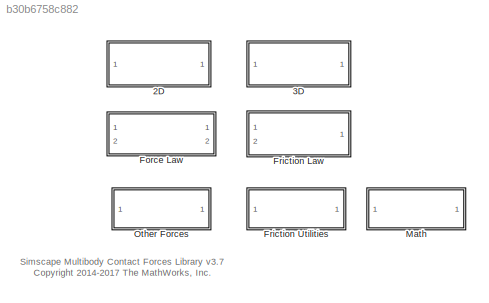
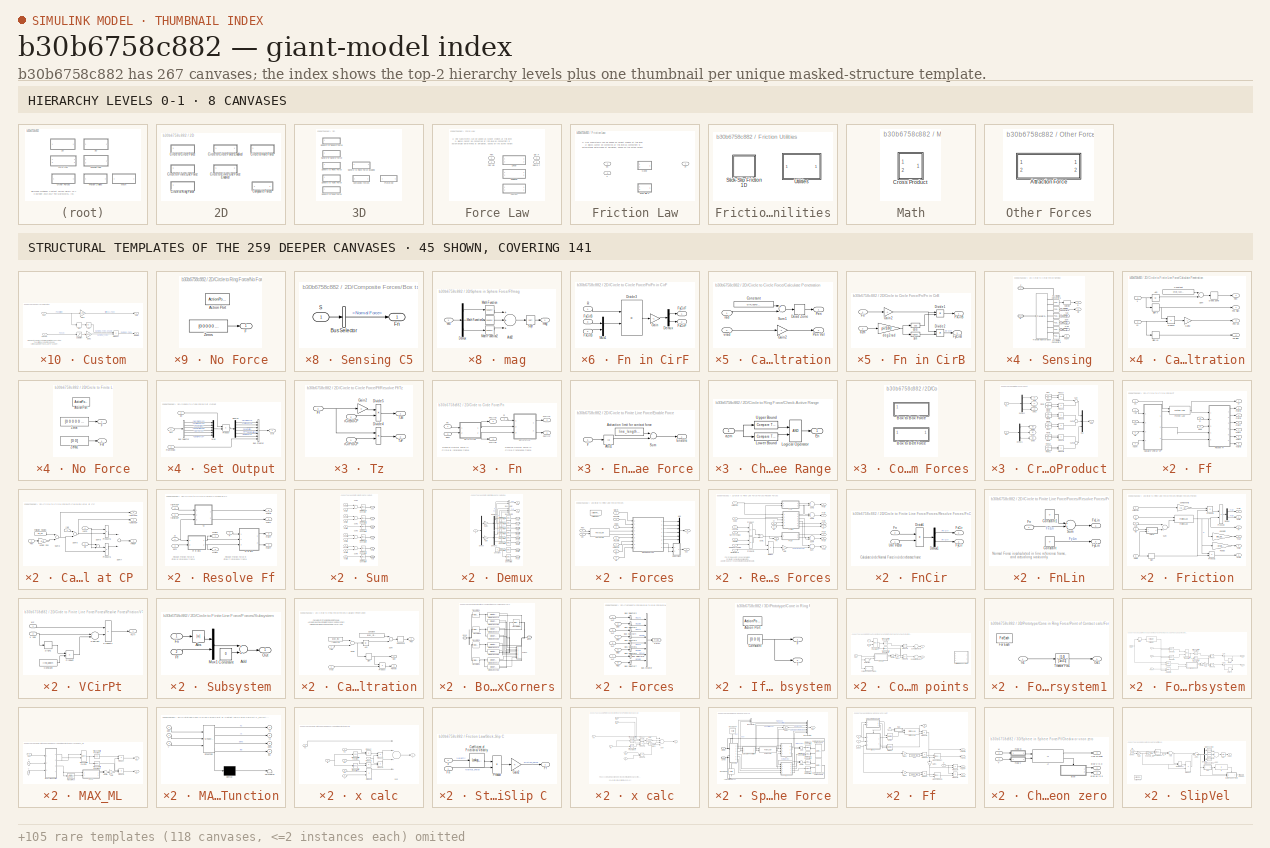
[diagram: thumbnail index - top-2 hierarchy levels (8 canvases) + 45 structural-template representatives of the remaining 259 canvases]
MODEL slx_b30b6758c882
KIND library
CONFIG AbsTol = auto
CONFIG EnableMultiTasking = on
CONFIG FixedStep = auto
CONFIG MaxStep = auto
CONFIG MinStep = auto
CONFIG RelTol = 1e-3
CONFIG SampleTimeConstraint = Unconstrained
CONFIG Solver = ode45
CONFIG SolverName = ode45
CONFIG StartTime = 0.0
CONFIG StopTime = 10.0
BLOCK [SubSystem] 2D
  Ports = []
  RequestExecContextInheritance = off
  Variant = off
BLOCK [SubSystem] 2D/Circle to Circle Force
  Ports = [0, 1, 0, 0, 0, 1, 1]
  RequestExecContextInheritance = off
  Variant = off
BLOCK [SubSystem] 2D/Circle to Circle Force Enabled
  Ports = [1, 1, 0, 0, 0, 1, 1]
  RequestExecContextInheritance = off
  Variant = off
BLOCK [BusCreator] 2D/Circle to Circle Force Enabled/Bus Creator
  DisplayOption = bar
  InheritFromInputs = on
  Inputs = 7
  Ports = [7, 1]
BLOCK [BusCreator] 2D/Circle to Circle Force Enabled/Bus Creator1
  DisplayOption = bar
  InheritFromInputs = on
  Inputs = 3
  Ports = [3, 1]
BLOCK [BusSelector] 2D/Circle to Circle Force Enabled/Bus Selector1
  OutputAsBus = off
  OutputSignals = Enable
  Ports = [1, 1]
BLOCK [SubSystem] 2D/Circle to Circle Force Enabled/Calculate Penetration
  Ports = [2, 2]
  RequestExecContextInheritance = off
  Variant = off
BLOCK [Constant] 2D/Circle to Circle Force Enabled/Calculate Penetration/Constant
  Value = cirF_rad+cirB_rad
BLOCK [DeadZone] 2D/Circle to Circle Force Enabled/Calculate Penetration/Dead Zone
  LowerValue = -inf
  UpperValue = 0
BLOCK [Gain] 2D/Circle to Circle Force Enabled/Calculate Penetration/Gain2
  Gain = -1
  OutDataTypeStr = Inherit: Inherit via internal rule
  ParamDataTypeStr = Inherit: Inherit via internal rule
  SaturateOnIntegerOverflow = off
BLOCK [Outport] 2D/Circle to Circle Force Enabled/Calculate Penetration/Pen
  IconDisplay = Port number
BLOCK [Outport] 2D/Circle to Circle Force Enabled/Calculate Penetration/Pen Vel
  IconDisplay = Port number
  Port = 2
BLOCK [Sum] 2D/Circle to Circle Force Enabled/Calculate Penetration/Sum1
  InputSameDT = off
  Inputs = +-
  OutDataTypeStr = Inherit: Inherit via internal rule
  Ports = [2, 1]
  SaturateOnIntegerOverflow = off
BLOCK [Inport] 2D/Circle to Circle Force Enabled/Calculate Penetration/rad
  IconDisplay = Port number
BLOCK [Inport] 2D/Circle to Circle Force Enabled/Calculate Penetration/vrad
  IconDisplay = Port number
  Port = 2
BLOCK [PMIOPort] 2D/Circle to Circle Force Enabled/CirB
  Port = 2
  Side = Right
  Tag = PMCPort
BLOCK [PMIOPort] 2D/Circle to Circle Force Enabled/CirF
  Port = 1
  Side = Left
  Tag = PMCPort
BLOCK [Reference] 2D/Circle to Circle Force Enabled/External Force and Torque CirB  REF=sm_lib/Forces and
Torques/External Force
and Torque
  Ports = [0, 0, 0, 0, 0, 3, 1]
  SourceBlock = sm_lib/Forces and\nTorques/External Force\nand Torque
  SourceProductBaseCode = MS
  SourceProductName = Simscape Multibody
  SourceType = External Force\nand Torque
BLOCK [Reference] 2D/Circle to Circle Force Enabled/External Force and Torque CirF  REF=sm_lib/Forces and
Torques/External Force
and Torque
  Ports = [0, 0, 0, 0, 0, 3, 1]
  SourceBlock = sm_lib/Forces and\nTorques/External Force\nand Torque
  SourceProductBaseCode = MS
  SourceProductName = Simscape Multibody
  SourceType = External Force\nand Torque
BLOCK [SubSystem] 2D/Circle to Circle Force Enabled/Ff
  Ports = [7, 7]
  RequestExecContextInheritance = off
  Variant = off
BLOCK [SubSystem] 2D/Circle to Circle Force Enabled/Ff/Calculate vRel at CP 
  Ports = [4, 3]
  RequestExecContextInheritance = off
  Variant = off
BLOCK [Constant] 2D/Circle to Circle Force Enabled/Ff/Calculate vRel at CP /Follower Radius
  Value = cirF_rad
BLOCK [Gain] 2D/Circle to Circle Force Enabled/Ff/Calculate vRel at CP /Midpt Pen
  Gain = 0.5
  OutDataTypeStr = Inherit: Inherit via internal rule
  ParamDataTypeStr = Inherit: Inherit via internal rule
  SaturateOnIntegerOverflow = off
BLOCK [Inport] 2D/Circle to Circle Force Enabled/Ff/Calculate vRel at CP /Pen
  IconDisplay = Port number
  Port = 2
BLOCK [Product] 2D/Circle to Circle Force Enabled/Ff/Calculate vRel at CP /Product5
  InputSameDT = off
  OutDataTypeStr = Inherit: Inherit via internal rule
  Ports = [2, 1]
  RndMeth = Floor
  SaturateOnIntegerOverflow = off
BLOCK [Product] 2D/Circle to Circle Force Enabled/Ff/Calculate vRel at CP /Product6
  InputSameDT = off
  OutDataTypeStr = Inherit: Inherit via internal rule
  Ports = [2, 1]
  RndMeth = Floor
  SaturateOnIntegerOverflow = off
BLOCK [Sum] 2D/Circle to Circle Force Enabled/Ff/Calculate vRel at CP /Sum3
  InputSameDT = off
  Inputs = +-
  OutDataTypeStr = Inherit: Inherit via internal rule
  Ports = [2, 1]
  SaturateOnIntegerOverflow = off
BLOCK [Sum] 2D/Circle to Circle Force Enabled/Ff/Calculate vRel at CP /Sum5
  InputSameDT = off
  Inputs = +-
  OutDataTypeStr = Inherit: Inherit via internal rule
  Ports = [2, 1]
  SaturateOnIntegerOverflow = off
BLOCK [Sum] 2D/Circle to Circle Force Enabled/Ff/Calculate vRel at CP /Sum6
  InputSameDT = off
  Inputs = +-
  OutDataTypeStr = Inherit: Inherit via internal rule
  Ports = [2, 1]
  SaturateOnIntegerOverflow = off
BLOCK [Sum] 2D/Circle to Circle Force Enabled/Ff/Calculate vRel at CP /Sum7
  InputSameDT = off
  Inputs = +-
  OutDataTypeStr = Inherit: Inherit via internal rule
  Ports = [2, 1]
  SaturateOnIntegerOverflow = off
BLOCK [Outport] 2D/Circle to Circle Force Enabled/Ff/Calculate vRel at CP /rCirBtoCP
  IconDisplay = Port number
  Port = 3
BLOCK [Outport] 2D/Circle to Circle Force Enabled/Ff/Calculate vRel at CP /rCirFtoCP
  IconDisplay = Port number
  Port = 2
BLOCK [Inport] 2D/Circle to Circle Force Enabled/Ff/Calculate vRel at CP /rad
  IconDisplay = Port number
BLOCK [Outport] 2D/Circle to Circle Force Enabled/Ff/Calculate vRel at CP /vRelCP
  IconDisplay = Port number
BLOCK [Inport] 2D/Circle to Circle Force Enabled/Ff/Calculate vRel at CP /vazm
  IconDisplay = Port number
  Port = 4
BLOCK [Inport] 2D/Circle to Circle Force Enabled/Ff/Calculate vRel at CP /wz
  IconDisplay = Port number
  Port = 3
BLOCK [Outport] 2D/Circle to Circle Force Enabled/Ff/Ff
  IconDisplay = Port number
  Port = 7
BLOCK [Inport] 2D/Circle to Circle Force Enabled/Ff/Fn
  IconDisplay = Port number
BLOCK [Reference] 2D/Circle to Circle Force Enabled/Ff/Friction Law  REF=Contact_Forces_Lib/Friction Law
  Ports = [2, 1]
  SourceBlock = Contact_Forces_Lib/Friction Law
  SourceProductName = Simscape Multibody Contact Forces Library
  SourceType = SubSystem
BLOCK [Outport] 2D/Circle to Circle Force Enabled/Ff/FxCirB
  IconDisplay = Port number
  Port = 3
BLOCK [Outport] 2D/Circle to Circle Force Enabled/Ff/FxCirF
  IconDisplay = Port number
BLOCK [Outport] 2D/Circle to Circle Force Enabled/Ff/FyCirB
  IconDisplay = Port number
  Port = 4
BLOCK [Outport] 2D/Circle to Circle Force Enabled/Ff/FyCirF
  IconDisplay = Port number
  Port = 2
BLOCK [Inport] 2D/Circle to Circle Force Enabled/Ff/Pen
  IconDisplay = Port number
  Port = 3
BLOCK [Inport] 2D/Circle to Circle Force Enabled/Ff/R
  IconDisplay = Port number
  Port = 5
BLOCK [SubSystem] 2D/Circle to Circle Force Enabled/Ff/Resolve Ff
  Ports = [5, 6]
  RequestExecContextInheritance = off
  Variant = off
BLOCK [Inport] 2D/Circle to Circle Force Enabled/Ff/Resolve Ff/Ff
  IconDisplay = Port number
BLOCK [SubSystem] 2D/Circle to Circle Force Enabled/Ff/Resolve Ff/Ff in CirB
  Ports = [2, 2]
  RequestExecContextInheritance = off
  Variant = off
BLOCK [Product] 2D/Circle to Circle Force Enabled/Ff/Resolve Ff/Ff in CirB/Divide1
  InputSameDT = off
  Inputs = **
  OutDataTypeStr = Inherit: Inherit via internal rule
  Ports = [2, 1]
  RndMeth = Floor
  SaturateOnIntegerOverflow = off
BLOCK [Product] 2D/Circle to Circle Force Enabled/Ff/Resolve Ff/Ff in CirB/Divide2
  InputSameDT = off
  Inputs = **
  OutDataTypeStr = Inherit: Inherit via internal rule
  Ports = [2, 1]
  RndMeth = Floor
  SaturateOnIntegerOverflow = off
BLOCK [Inport] 2D/Circle to Circle Force Enabled/Ff/Resolve Ff/Ff in CirB/Ff
  IconDisplay = Port number
BLOCK [Outport] 2D/Circle to Circle Force Enabled/Ff/Resolve Ff/Ff in CirB/FxCirB
  IconDisplay = Port number
BLOCK [Outport] 2D/Circle to Circle Force Enabled/Ff/Resolve Ff/Ff in CirB/FyCirB
  IconDisplay = Port number
  Port = 2
BLOCK [Gain] 2D/Circle to Circle Force Enabled/Ff/Resolve Ff/Ff in CirB/Gain3
  Gain = -1
  OutDataTypeStr = Inherit: Inherit via internal rule
  ParamDataTypeStr = Inherit: Inherit via internal rule
  SaturateOnIntegerOverflow = off
BLOCK [Inport] 2D/Circle to Circle Force Enabled/Ff/Resolve Ff/Ff in CirB/azm
  IconDisplay = Port number
  Port = 2
BLOCK [Trigonometry] 2D/Circle to Circle Force Enabled/Ff/Resolve Ff/Ff in CirB/cos
  Ports = [1, 1]
BLOCK [Gain] 2D/Circle to Circle Force Enabled/Ff/Resolve Ff/Ff in CirB/deg2rad
  Gain = pi/180
  OutDataTypeStr = Inherit: Inherit via internal rule
  ParamDataTypeStr = Inherit: Inherit via internal rule
  SaturateOnIntegerOverflow = off
BLOCK [Trigonometry] 2D/Circle to Circle Force Enabled/Ff/Resolve Ff/Ff in CirB/sin
  Operator = cos
  Ports = [1, 1]
BLOCK [SubSystem] 2D/Circle to Circle Force Enabled/Ff/Resolve Ff/Ff in CirF
  Ports = [3, 2]
  RequestExecContextInheritance = off
  Variant = off
BLOCK [Demux] 2D/Circle to Circle Force Enabled/Ff/Resolve Ff/Ff in CirF/Demux
  DisplayOption = bar
  Outputs = 2
  Ports = [1, 2]
BLOCK [Product] 2D/Circle to Circle Force Enabled/Ff/Resolve Ff/Ff in CirF/Divide3
  InputSameDT = off
  Inputs = **
  Multiplication = Matrix(*)
  OutDataTypeStr = Inherit: Inherit via internal rule
  Ports = [2, 1]
  RndMeth = Floor
  SaturateOnIntegerOverflow = off
BLOCK [Inport] 2D/Circle to Circle Force Enabled/Ff/Resolve Ff/Ff in CirF/FxCirB
  IconDisplay = Port number
  Port = 2
BLOCK [Outport] 2D/Circle to Circle Force Enabled/Ff/Resolve Ff/Ff in CirF/FxCirF
  IconDisplay = Port number
  Port = 2
BLOCK [Inport] 2D/Circle to Circle Force Enabled/Ff/Resolve Ff/Ff in CirF/FyCirB
  IconDisplay = Port number
  Port = 3
BLOCK [Outport] 2D/Circle to Circle Force Enabled/Ff/Resolve Ff/Ff in CirF/FyCirF
  IconDisplay = Port number
BLOCK [Gain] 2D/Circle to Circle Force Enabled/Ff/Resolve Ff/Ff in CirF/Gain1
  Gain = -1
  OutDataTypeStr = Inherit: Inherit via internal rule
  ParamDataTypeStr = Inherit: Inherit via internal rule
  SaturateOnIntegerOverflow = off
BLOCK [Mux] 2D/Circle to Circle Force Enabled/Ff/Resolve Ff/Ff in CirF/Mux1
  DisplayOption = bar
  Inputs = 2
  Ports = [2, 1]
BLOCK [Inport] 2D/Circle to Circle Force Enabled/Ff/Resolve Ff/Ff in CirF/R
  IconDisplay = Port number
BLOCK [Outport] 2D/Circle to Circle Force Enabled/Ff/Resolve Ff/FxCirB
  IconDisplay = Port number
BLOCK [Outport] 2D/Circle to Circle Force Enabled/Ff/Resolve Ff/FxCirF
  IconDisplay = Port number
  Port = 4
BLOCK [Outport] 2D/Circle to Circle Force Enabled/Ff/Resolve Ff/FyCirB
  IconDisplay = Port number
  Port = 2
BLOCK [Outport] 2D/Circle to Circle Force Enabled/Ff/Resolve Ff/FyCirF
  IconDisplay = Port number
  Port = 3
BLOCK [Inport] 2D/Circle to Circle Force Enabled/Ff/Resolve Ff/R
  IconDisplay = Port number
  Port = 2
BLOCK [SubSystem] 2D/Circle to Circle Force Enabled/Ff/Resolve Ff/Tz
  Ports = [3, 2]
  RequestExecContextInheritance = off
  Variant = off
BLOCK [Product] 2D/Circle to Circle Force Enabled/Ff/Resolve Ff/Tz/Divide4
  InputSameDT = off
  Inputs = **
  OutDataTypeStr = Inherit: Inherit via internal rule
  Ports = [2, 1]
  RndMeth = Floor
  SaturateOnIntegerOverflow = off
BLOCK [Product] 2D/Circle to Circle Force Enabled/Ff/Resolve Ff/Tz/Divide5
  InputSameDT = off
  Inputs = **
  OutDataTypeStr = Inherit: Inherit via internal rule
  Ports = [2, 1]
  RndMeth = Floor
  SaturateOnIntegerOverflow = off
BLOCK [Inport] 2D/Circle to Circle Force Enabled/Ff/Resolve Ff/Tz/Ff
  IconDisplay = Port number
  Port = 3
BLOCK [Gain] 2D/Circle to Circle Force Enabled/Ff/Resolve Ff/Tz/Gain2
  OutDataTypeStr = Inherit: Inherit via internal rule
  ParamDataTypeStr = Inherit: Inherit via internal rule
  SaturateOnIntegerOverflow = off
BLOCK [Outport] 2D/Circle to Circle Force Enabled/Ff/Resolve Ff/Tz/TzB
  IconDisplay = Port number
BLOCK [Outport] 2D/Circle to Circle Force Enabled/Ff/Resolve Ff/Tz/TzF
  IconDisplay = Port number
  Port = 2
BLOCK [Inport] 2D/Circle to Circle Force Enabled/Ff/Resolve Ff/Tz/rCirBtoCP
  IconDisplay = Port number
  Port = 2
BLOCK [Inport] 2D/Circle to Circle Force Enabled/Ff/Resolve Ff/Tz/rCirFtoCP
  IconDisplay = Port number
BLOCK [Outport] 2D/Circle to Circle Force Enabled/Ff/Resolve Ff/TzCirB
  IconDisplay = Port number
  Port = 6
BLOCK [Outport] 2D/Circle to Circle Force Enabled/Ff/Resolve Ff/TzCirF
  IconDisplay = Port number
  Port = 5
BLOCK [Inport] 2D/Circle to Circle Force Enabled/Ff/Resolve Ff/azm
  IconDisplay = Port number
  Port = 3
BLOCK [Inport] 2D/Circle to Circle Force Enabled/Ff/Resolve Ff/rCirBtoCP
  IconDisplay = Port number
  Port = 5
BLOCK [Inport] 2D/Circle to Circle Force Enabled/Ff/Resolve Ff/rCirFtoCP
  IconDisplay = Port number
  Port = 4
BLOCK [Outport] 2D/Circle to Circle Force Enabled/Ff/TzCirB
  IconDisplay = Port number
  Port = 6
BLOCK [Outport] 2D/Circle to Circle Force Enabled/Ff/TzCirF
  IconDisplay = Port number
  Port = 5
BLOCK [Inport] 2D/Circle to Circle Force Enabled/Ff/azm
  IconDisplay = Port number
  Port = 2
BLOCK [Inport] 2D/Circle to Circle Force Enabled/Ff/rad
  IconDisplay = Port number
  Port = 4
BLOCK [Inport] 2D/Circle to Circle Force Enabled/Ff/vazm
  IconDisplay = Port number
  Port = 7
BLOCK [Inport] 2D/Circle to Circle Force Enabled/Ff/wz
  IconDisplay = Port number
  Port = 6
BLOCK [SubSystem] 2D/Circle to Circle Force Enabled/Fn
  Ports = [3, 4]
  RequestExecContextInheritance = off
  Variant = off
BLOCK [Inport] 2D/Circle to Circle Force Enabled/Fn/Fn
  IconDisplay = Port number
BLOCK [SubSystem] 2D/Circle to Circle Force Enabled/Fn/Fn in CirB
  Ports = [2, 2]
  RequestExecContextInheritance = off
  Variant = off
BLOCK [Product] 2D/Circle to Circle Force Enabled/Fn/Fn in CirB/Divide1
  InputSameDT = off
  Inputs = **
  OutDataTypeStr = Inherit: Inherit via internal rule
  Ports = [2, 1]
  RndMeth = Floor
  SaturateOnIntegerOverflow = off
BLOCK [Product] 2D/Circle to Circle Force Enabled/Fn/Fn in CirB/Divide2
  InputSameDT = off
  Inputs = **
  OutDataTypeStr = Inherit: Inherit via internal rule
  Ports = [2, 1]
  RndMeth = Floor
  SaturateOnIntegerOverflow = off
BLOCK [Inport] 2D/Circle to Circle Force Enabled/Fn/Fn in CirB/Fn
  IconDisplay = Port number
BLOCK [Outport] 2D/Circle to Circle Force Enabled/Fn/Fn in CirB/FxCirB
  IconDisplay = Port number
BLOCK [Outport] 2D/Circle to Circle Force Enabled/Fn/Fn in CirB/FyCirB
  IconDisplay = Port number
  Port = 2
BLOCK [Gain] 2D/Circle to Circle Force Enabled/Fn/Fn in CirB/Gain2
  Gain = -1
  OutDataTypeStr = Inherit: Inherit via internal rule
  ParamDataTypeStr = Inherit: Inherit via internal rule
  SaturateOnIntegerOverflow = off
BLOCK [Inport] 2D/Circle to Circle Force Enabled/Fn/Fn in CirB/azm
  IconDisplay = Port number
  Port = 2
BLOCK [Trigonometry] 2D/Circle to Circle Force Enabled/Fn/Fn in CirB/cos
  Operator = cos
  Ports = [1, 1]
BLOCK [Gain] 2D/Circle to Circle Force Enabled/Fn/Fn in CirB/deg2rad
  Gain = pi/180
  OutDataTypeStr = Inherit: Inherit via internal rule
  ParamDataTypeStr = Inherit: Inherit via internal rule
  SaturateOnIntegerOverflow = off
BLOCK [Trigonometry] 2D/Circle to Circle Force Enabled/Fn/Fn in CirB/sin
  Ports = [1, 1]
BLOCK [SubSystem] 2D/Circle to Circle Force Enabled/Fn/Fn in CirF
  Ports = [3, 2]
  RequestExecContextInheritance = off
  Variant = off
BLOCK [Demux] 2D/Circle to Circle Force Enabled/Fn/Fn in CirF/Demux
  DisplayOption = bar
  Outputs = 2
  Ports = [1, 2]
BLOCK [Product] 2D/Circle to Circle Force Enabled/Fn/Fn in CirF/Divide3
  InputSameDT = off
  Inputs = **
  Multiplication = Matrix(*)
  OutDataTypeStr = Inherit: Inherit via internal rule
  Ports = [2, 1]
  RndMeth = Floor
  SaturateOnIntegerOverflow = off
BLOCK [Inport] 2D/Circle to Circle Force Enabled/Fn/Fn in CirF/FxCirB
  IconDisplay = Port number
  Port = 2
BLOCK [Outport] 2D/Circle to Circle Force Enabled/Fn/Fn in CirF/FxCirF
  IconDisplay = Port number
  Port = 2
BLOCK [Inport] 2D/Circle to Circle Force Enabled/Fn/Fn in CirF/FyCirB
  IconDisplay = Port number
  Port = 3
BLOCK [Outport] 2D/Circle to Circle Force Enabled/Fn/Fn in CirF/FyCirF
  IconDisplay = Port number
BLOCK [Gain] 2D/Circle to Circle Force Enabled/Fn/Fn in CirF/Gain
  Gain = -1
  OutDataTypeStr = Inherit: Inherit via internal rule
  ParamDataTypeStr = Inherit: Inherit via internal rule
  SaturateOnIntegerOverflow = off
BLOCK [Mux] 2D/Circle to Circle Force Enabled/Fn/Fn in CirF/Mux1
  DisplayOption = bar
  Inputs = 2
  Ports = [2, 1]
BLOCK [Inport] 2D/Circle to Circle Force Enabled/Fn/Fn in CirF/R
  IconDisplay = Port number
BLOCK [Outport] 2D/Circle to Circle Force Enabled/Fn/FxCirB
  IconDisplay = Port number
  Port = 3
BLOCK [Outport] 2D/Circle to Circle Force Enabled/Fn/FxCirF
  IconDisplay = Port number
BLOCK [Outport] 2D/Circle to Circle Force Enabled/Fn/FyCirB
  IconDisplay = Port number
  Port = 4
BLOCK [Outport] 2D/Circle to Circle Force Enabled/Fn/FyCirF
  IconDisplay = Port number
  Port = 2
BLOCK [Inport] 2D/Circle to Circle Force Enabled/Fn/R
  IconDisplay = Port number
  Port = 2
BLOCK [Inport] 2D/Circle to Circle Force Enabled/Fn/azm
  IconDisplay = Port number
  Port = 3
BLOCK [Reference] 2D/Circle to Circle Force Enabled/Force Law  REF=Contact_Forces_Lib/Force Law
  Ports = [2, 2]
  SourceBlock = Contact_Forces_Lib/Force Law
  SourceProductName = Simscape Multibody Contact Forces Library
  SourceType = SubSystem
BLOCK [Inport] 2D/Circle to Circle Force Enabled/In
  IconDisplay = Port number
BLOCK [Reference] 2D/Circle to Circle Force Enabled/Interval Test  REF=simulink/Logic and Bit
Operations/Interval Test
  Ports = [1, 1]
  SourceBlock = simulink/Logic and Bit\nOperations/Interval Test
  SourceProductBaseCode = SL
  SourceProductName = Simulink
  SourceType = Interval Test
BLOCK [Outport] 2D/Circle to Circle Force Enabled/Out
  IconDisplay = Port number
BLOCK [Product] 2D/Circle to Circle Force Enabled/Product2
  InputSameDT = off
  Inputs = 3
  OutDataTypeStr = Inherit: Inherit via internal rule
  Ports = [3, 1]
  RndMeth = Floor
  SaturateOnIntegerOverflow = off
BLOCK [SubSystem] 2D/Circle to Circle Force Enabled/Sensing
  Ports = [0, 6, 0, 0, 0, 2]
  RequestExecContextInheritance = off
  Variant = off
BLOCK [PMIOPort] 2D/Circle to Circle Force Enabled/Sensing/B
  Port = 2
  Side = Left
BLOCK [PMIOPort] 2D/Circle to Circle Force Enabled/Sensing/F
  Port = 1
  Side = Left
BLOCK [Reference] 2D/Circle to Circle Force Enabled/Sensing/PS-Simulink Converter1  REF=nesl_utility/PS-Simulink
Converter
  Ports = [0, 1, 0, 0, 0, 1]
  SourceBlock = nesl_utility/PS-Simulink\nConverter
  SourceProductBaseCode = SS
  SourceProductName = Simscape
  SourceType = PS-Simulink\nConverter
BLOCK [Reference] 2D/Circle to Circle Force Enabled/Sensing/PS-Simulink Converter4  REF=nesl_utility/PS-Simulink
Converter
  Ports = [0, 1, 0, 0, 0, 1]
  SourceBlock = nesl_utility/PS-Simulink\nConverter
  SourceProductBaseCode = SS
  SourceProductName = Simscape
  SourceType = PS-Simulink\nConverter
BLOCK [Reference] 2D/Circle to Circle Force Enabled/Sensing/PS-Simulink Converter5  REF=nesl_utility/PS-Simulink
Converter
  Ports = [0, 1, 0, 0, 0, 1]
  SourceBlock = nesl_utility/PS-Simulink\nConverter
  SourceProductBaseCode = SS
  SourceProductName = Simscape
  SourceType = PS-Simulink\nConverter
BLOCK [Reference] 2D/Circle to Circle Force Enabled/Sensing/PS-Simulink Converter6  REF=nesl_utility/PS-Simulink
Converter
  Ports = [0, 1, 0, 0, 0, 1]
  SourceBlock = nesl_utility/PS-Simulink\nConverter
  SourceProductBaseCode = SS
  SourceProductName = Simscape
  SourceType = PS-Simulink\nConverter
BLOCK [Reference] 2D/Circle to Circle Force Enabled/Sensing/PS-Simulink Converter8  REF=nesl_utility/PS-Simulink
Converter
  Ports = [0, 1, 0, 0, 0, 1]
  SourceBlock = nesl_utility/PS-Simulink\nConverter
  SourceProductBaseCode = SS
  SourceProductName = Simscape
  SourceType = PS-Simulink\nConverter
BLOCK [Reference] 2D/Circle to Circle Force Enabled/Sensing/PS-Simulink Converter9  REF=nesl_utility/PS-Simulink
Converter
  Ports = [0, 1, 0, 0, 0, 1]
  SourceBlock = nesl_utility/PS-Simulink\nConverter
  SourceProductBaseCode = SS
  SourceProductName = Simscape
  SourceType = PS-Simulink\nConverter
BLOCK [Outport] 2D/Circle to Circle Force Enabled/Sensing/R
  IconDisplay = Port number
  Port = 4
BLOCK [Selector] 2D/Circle to Circle Force Enabled/Sensing/Selector
  IndexOptions = Index vector (dialog),Index vector (dialog)
  Indices = [1,2],[1,2]
  InputPortWidth = 3
  NumberOfDimensions = 2
  OutputSizes = 1,1
  Ports = [1, 1]
BLOCK [Reference] 2D/Circle to Circle Force Enabled/Sensing/Transform Sensor Base  REF=sm_lib/Frames and
Transforms/Transform
Sensor
  Ports = [0, 0, 0, 0, 0, 1, 7]
  SourceBlock = sm_lib/Frames and\nTransforms/Transform\nSensor
  SourceProductBaseCode = MS
  SourceProductName = Simscape Multibody
  SourceType = Transform\nSensor
BLOCK [Outport] 2D/Circle to Circle Force Enabled/Sensing/azm
  IconDisplay = Port number
  Port = 3
BLOCK [Outport] 2D/Circle to Circle Force Enabled/Sensing/rad
  IconDisplay = Port number
BLOCK [Outport] 2D/Circle to Circle Force Enabled/Sensing/vazm
  IconDisplay = Port number
  Port = 6
BLOCK [Outport] 2D/Circle to Circle Force Enabled/Sensing/vrad
  IconDisplay = Port number
  Port = 2
BLOCK [Outport] 2D/Circle to Circle Force Enabled/Sensing/wz
  IconDisplay = Port number
  Port = 5
BLOCK [SubSystem] 2D/Circle to Circle Force Enabled/Sum
  Ports = [10, 0, 0, 0, 0, 0, 6]
  RequestExecContextInheritance = off
  Variant = off
BLOCK [Inport] 2D/Circle to Circle Force Enabled/Sum/FfxCirB
  IconDisplay = Port number
  Port = 7
BLOCK [Inport] 2D/Circle to Circle Force Enabled/Sum/FfxCirF
  IconDisplay = Port number
  Port = 5
BLOCK [Inport] 2D/Circle to Circle Force Enabled/Sum/FfyCirB
  IconDisplay = Port number
  Port = 8
BLOCK [Inport] 2D/Circle to Circle Force Enabled/Sum/FfyCirF
  IconDisplay = Port number
  Port = 6
BLOCK [Inport] 2D/Circle to Circle Force Enabled/Sum/FnxCirB
  IconDisplay = Port number
  Port = 3
BLOCK [Inport] 2D/Circle to Circle Force Enabled/Sum/FnxCirF
  IconDisplay = Port number
BLOCK [Inport] 2D/Circle to Circle Force Enabled/Sum/FnyCirB
  IconDisplay = Port number
  Port = 4
BLOCK [Inport] 2D/Circle to Circle Force Enabled/Sum/FnyCirF
  IconDisplay = Port number
  Port = 2
BLOCK [PMIOPort] 2D/Circle to Circle Force Enabled/Sum/FxB
  Port = 4
  Side = Right
BLOCK [PMIOPort] 2D/Circle to Circle Force Enabled/Sum/FxF
  Port = 1
  Side = Right
BLOCK [PMIOPort] 2D/Circle to Circle Force Enabled/Sum/FyB
  Port = 5
  Side = Right
BLOCK [PMIOPort] 2D/Circle to Circle Force Enabled/Sum/FyF
  Port = 2
  Side = Right
BLOCK [Reference] 2D/Circle to Circle Force Enabled/Sum/Simulink-PS Converter  REF=nesl_utility/Simulink-PS
Converter
  Ports = [1, 0, 0, 0, 0, 0, 1]
  SourceBlock = nesl_utility/Simulink-PS\nConverter
  SourceProductBaseCode = SS
  SourceProductName = Simscape
  SourceType = Simulink-PS\nConverter
BLOCK [Reference] 2D/Circle to Circle Force Enabled/Sum/Simulink-PS Converter3  REF=nesl_utility/Simulink-PS
Converter
  Ports = [1, 0, 0, 0, 0, 0, 1]
  SourceBlock = nesl_utility/Simulink-PS\nConverter
  SourceProductBaseCode = SS
  SourceProductName = Simscape
  SourceType = Simulink-PS\nConverter
BLOCK [Reference] 2D/Circle to Circle Force Enabled/Sum/Simulink-PS Converter4  REF=nesl_utility/Simulink-PS
Converter
  Ports = [1, 0, 0, 0, 0, 0, 1]
  SourceBlock = nesl_utility/Simulink-PS\nConverter
  SourceProductBaseCode = SS
  SourceProductName = Simscape
  SourceType = Simulink-PS\nConverter
BLOCK [Reference] 2D/Circle to Circle Force Enabled/Sum/Simulink-PS Converter5  REF=nesl_utility/Simulink-PS
Converter
  Ports = [1, 0, 0, 0, 0, 0, 1]
  SourceBlock = nesl_utility/Simulink-PS\nConverter
  SourceProductBaseCode = SS
  SourceProductName = Simscape
  SourceType = Simulink-PS\nConverter
BLOCK [Reference] 2D/Circle to Circle Force Enabled/Sum/Simulink-PS Converter6  REF=nesl_utility/Simulink-PS
Converter
  Ports = [1, 0, 0, 0, 0, 0, 1]
  SourceBlock = nesl_utility/Simulink-PS\nConverter
  SourceProductBaseCode = SS
  SourceProductName = Simscape
  SourceType = Simulink-PS\nConverter
BLOCK [Reference] 2D/Circle to Circle Force Enabled/Sum/Simulink-PS Converter7  REF=nesl_utility/Simulink-PS
Converter
  Ports = [1, 0, 0, 0, 0, 0, 1]
  SourceBlock = nesl_utility/Simulink-PS\nConverter
  SourceProductBaseCode = SS
  SourceProductName = Simscape
  SourceType = Simulink-PS\nConverter
BLOCK [Sum] 2D/Circle to Circle Force Enabled/Sum/Sum2
  InputSameDT = off
  OutDataTypeStr = Inherit: Inherit via internal rule
  Ports = [2, 1]
  SaturateOnIntegerOverflow = off
BLOCK [Sum] 2D/Circle to Circle Force Enabled/Sum/Sum3
  InputSameDT = off
  OutDataTypeStr = Inherit: Inherit via internal rule
  Ports = [2, 1]
  SaturateOnIntegerOverflow = off
BLOCK [Sum] 2D/Circle to Circle Force Enabled/Sum/Sum4
  InputSameDT = off
  OutDataTypeStr = Inherit: Inherit via internal rule
  Ports = [2, 1]
  SaturateOnIntegerOverflow = off
BLOCK [Sum] 2D/Circle to Circle Force Enabled/Sum/Sum5
  InputSameDT = off
  OutDataTypeStr = Inherit: Inherit via internal rule
  Ports = [2, 1]
  SaturateOnIntegerOverflow = off
BLOCK [PMIOPort] 2D/Circle to Circle Force Enabled/Sum/TzB
  Port = 6
  Side = Right
BLOCK [Inport] 2D/Circle to Circle Force Enabled/Sum/TzCirB
  IconDisplay = Port number
  Port = 10
BLOCK [Inport] 2D/Circle to Circle Force Enabled/Sum/TzCirF
  IconDisplay = Port number
  Port = 9
BLOCK [PMIOPort] 2D/Circle to Circle Force Enabled/Sum/TzF
  Port = 3
  Side = Right
BLOCK [Sum] 2D/Circle to Circle Force Enabled/Sum1
  InputSameDT = off
  Inputs = +-
  OutDataTypeStr = Inherit: Inherit via internal rule
  Ports = [2, 1]
  SaturateOnIntegerOverflow = off
BLOCK [Reference] 2D/Circle to Circle Force Enabled/Visual CirB  REF=sm_lib/Body Elements/Solid
  Ports = [0, 0, 0, 0, 0, 0, 1]
  SourceBlock = sm_lib/Body Elements/Solid
  SourceProductBaseCode = MS
  SourceProductName = Simscape Multibody
  SourceType = Solid
BLOCK [Reference] 2D/Circle to Circle Force Enabled/Visual CirF  REF=sm_lib/Body Elements/Solid
  Ports = [0, 0, 0, 0, 0, 0, 1]
  SourceBlock = sm_lib/Body Elements/Solid
  SourceProductBaseCode = MS
  SourceProductName = Simscape Multibody
  SourceType = Solid
BLOCK [BusCreator] 2D/Circle to Circle Force/Bus Creator
  DisplayOption = bar
  InheritFromInputs = on
  Inputs = 7
  Ports = [7, 1]
BLOCK [BusCreator] 2D/Circle to Circle Force/Bus Creator1
  DisplayOption = bar
  InheritFromInputs = on
  Inputs = 3
  Ports = [3, 1]
BLOCK [SubSystem] 2D/Circle to Circle Force/Calculate Penetration
  Ports = [2, 2]
  RequestExecContextInheritance = off
  Variant = off
BLOCK [Constant] 2D/Circle to Circle Force/Calculate Penetration/Constant
  Value = cirF_rad+cirB_rad
BLOCK [DeadZone] 2D/Circle to Circle Force/Calculate Penetration/Dead Zone
  LowerValue = -inf
  UpperValue = 0
BLOCK [Gain] 2D/Circle to Circle Force/Calculate Penetration/Gain2
  Gain = -1
  OutDataTypeStr = Inherit: Inherit via internal rule
  ParamDataTypeStr = Inherit: Inherit via internal rule
  SaturateOnIntegerOverflow = off
BLOCK [Outport] 2D/Circle to Circle Force/Calculate Penetration/Pen
  IconDisplay = Port number
BLOCK [Outport] 2D/Circle to Circle Force/Calculate Penetration/Pen Vel
  IconDisplay = Port number
  Port = 2
BLOCK [Sum] 2D/Circle to Circle Force/Calculate Penetration/Sum1
  InputSameDT = off
  Inputs = +-
  OutDataTypeStr = Inherit: Inherit via internal rule
  Ports = [2, 1]
  SaturateOnIntegerOverflow = off
BLOCK [Inport] 2D/Circle to Circle Force/Calculate Penetration/rad
  IconDisplay = Port number
BLOCK [Inport] 2D/Circle to Circle Force/Calculate Penetration/vrad
  IconDisplay = Port number
  Port = 2
BLOCK [PMIOPort] 2D/Circle to Circle Force/CirB
  Port = 2
  Side = Right
  Tag = PMCPort
BLOCK [PMIOPort] 2D/Circle to Circle Force/CirF
  Port = 1
  Side = Left
  Tag = PMCPort
BLOCK [Reference] 2D/Circle to Circle Force/External Force and Torque CirB  REF=sm_lib/Forces and
Torques/External Force
and Torque
  Ports = [0, 0, 0, 0, 0, 3, 1]
  SourceBlock = sm_lib/Forces and\nTorques/External Force\nand Torque
  SourceProductBaseCode = MS
  SourceProductName = Simscape Multibody
  SourceType = External Force\nand Torque
BLOCK [Reference] 2D/Circle to Circle Force/External Force and Torque CirF  REF=sm_lib/Forces and
Torques/External Force
and Torque
  Ports = [0, 0, 0, 0, 0, 3, 1]
  SourceBlock = sm_lib/Forces and\nTorques/External Force\nand Torque
  SourceProductBaseCode = MS
  SourceProductName = Simscape Multibody
  SourceType = External Force\nand Torque
BLOCK [SubSystem] 2D/Circle to Circle Force/Ff
  Ports = [7, 7]
  RequestExecContextInheritance = off
  Variant = off
BLOCK [SubSystem] 2D/Circle to Circle Force/Ff/Calculate vRel at CP 
  Ports = [4, 3]
  RequestExecContextInheritance = off
  Variant = off
BLOCK [Constant] 2D/Circle to Circle Force/Ff/Calculate vRel at CP /Follower Radius
  Value = cirF_rad
BLOCK [Gain] 2D/Circle to Circle Force/Ff/Calculate vRel at CP /Midpt Pen
  Gain = 0.5
  OutDataTypeStr = Inherit: Inherit via internal rule
  ParamDataTypeStr = Inherit: Inherit via internal rule
  SaturateOnIntegerOverflow = off
BLOCK [Inport] 2D/Circle to Circle Force/Ff/Calculate vRel at CP /Pen
  IconDisplay = Port number
  Port = 2
BLOCK [Product] 2D/Circle to Circle Force/Ff/Calculate vRel at CP /Product5
  InputSameDT = off
  OutDataTypeStr = Inherit: Inherit via internal rule
  Ports = [2, 1]
  RndMeth = Floor
  SaturateOnIntegerOverflow = off
BLOCK [Product] 2D/Circle to Circle Force/Ff/Calculate vRel at CP /Product6
  InputSameDT = off
  OutDataTypeStr = Inherit: Inherit via internal rule
  Ports = [2, 1]
  RndMeth = Floor
  SaturateOnIntegerOverflow = off
BLOCK [Sum] 2D/Circle to Circle Force/Ff/Calculate vRel at CP /Sum3
  InputSameDT = off
  Inputs = +-
  OutDataTypeStr = Inherit: Inherit via internal rule
  Ports = [2, 1]
  SaturateOnIntegerOverflow = off
BLOCK [Sum] 2D/Circle to Circle Force/Ff/Calculate vRel at CP /Sum5
  InputSameDT = off
  Inputs = +-
  OutDataTypeStr = Inherit: Inherit via internal rule
  Ports = [2, 1]
  SaturateOnIntegerOverflow = off
BLOCK [Sum] 2D/Circle to Circle Force/Ff/Calculate vRel at CP /Sum6
  InputSameDT = off
  Inputs = +-
  OutDataTypeStr = Inherit: Inherit via internal rule
  Ports = [2, 1]
  SaturateOnIntegerOverflow = off
BLOCK [Sum] 2D/Circle to Circle Force/Ff/Calculate vRel at CP /Sum7
  InputSameDT = off
  Inputs = +-
  OutDataTypeStr = Inherit: Inherit via internal rule
  Ports = [2, 1]
  SaturateOnIntegerOverflow = off
BLOCK [Outport] 2D/Circle to Circle Force/Ff/Calculate vRel at CP /rCirBtoCP
  IconDisplay = Port number
  Port = 3
BLOCK [Outport] 2D/Circle to Circle Force/Ff/Calculate vRel at CP /rCirFtoCP
  IconDisplay = Port number
  Port = 2
BLOCK [Inport] 2D/Circle to Circle Force/Ff/Calculate vRel at CP /rad
  IconDisplay = Port number
BLOCK [Outport] 2D/Circle to Circle Force/Ff/Calculate vRel at CP /vRelCP
  IconDisplay = Port number
BLOCK [Inport] 2D/Circle to Circle Force/Ff/Calculate vRel at CP /vazm
  IconDisplay = Port number
  Port = 4
BLOCK [Inport] 2D/Circle to Circle Force/Ff/Calculate vRel at CP /wz
  IconDisplay = Port number
  Port = 3
BLOCK [Outport] 2D/Circle to Circle Force/Ff/Ff
  IconDisplay = Port number
  Port = 7
BLOCK [Inport] 2D/Circle to Circle Force/Ff/Fn
  IconDisplay = Port number
BLOCK [Reference] 2D/Circle to Circle Force/Ff/Friction Law  REF=Contact_Forces_Lib/Friction Law
  Ports = [2, 1]
  SourceBlock = Contact_Forces_Lib/Friction Law
  SourceProductName = Simscape Multibody Contact Forces Library
  SourceType = SubSystem
BLOCK [Outport] 2D/Circle to Circle Force/Ff/FxCirB
  IconDisplay = Port number
  Port = 3
BLOCK [Outport] 2D/Circle to Circle Force/Ff/FxCirF
  IconDisplay = Port number
BLOCK [Outport] 2D/Circle to Circle Force/Ff/FyCirB
  IconDisplay = Port number
  Port = 4
BLOCK [Outport] 2D/Circle to Circle Force/Ff/FyCirF
  IconDisplay = Port number
  Port = 2
BLOCK [Inport] 2D/Circle to Circle Force/Ff/Pen
  IconDisplay = Port number
  Port = 3
BLOCK [Inport] 2D/Circle to Circle Force/Ff/R
  IconDisplay = Port number
  Port = 5
BLOCK [SubSystem] 2D/Circle to Circle Force/Ff/Resolve Ff
  Ports = [5, 6]
  RequestExecContextInheritance = off
  Variant = off
BLOCK [Inport] 2D/Circle to Circle Force/Ff/Resolve Ff/Ff
  IconDisplay = Port number
BLOCK [SubSystem] 2D/Circle to Circle Force/Ff/Resolve Ff/Ff in CirB
  Ports = [2, 2]
  RequestExecContextInheritance = off
  Variant = off
BLOCK [Product] 2D/Circle to Circle Force/Ff/Resolve Ff/Ff in CirB/Divide1
  InputSameDT = off
  Inputs = **
  OutDataTypeStr = Inherit: Inherit via internal rule
  Ports = [2, 1]
  RndMeth = Floor
  SaturateOnIntegerOverflow = off
BLOCK [Product] 2D/Circle to Circle Force/Ff/Resolve Ff/Ff in CirB/Divide2
  InputSameDT = off
  Inputs = **
  OutDataTypeStr = Inherit: Inherit via internal rule
  Ports = [2, 1]
  RndMeth = Floor
  SaturateOnIntegerOverflow = off
BLOCK [Inport] 2D/Circle to Circle Force/Ff/Resolve Ff/Ff in CirB/Ff
  IconDisplay = Port number
BLOCK [Outport] 2D/Circle to Circle Force/Ff/Resolve Ff/Ff in CirB/FxCirB
  IconDisplay = Port number
BLOCK [Outport] 2D/Circle to Circle Force/Ff/Resolve Ff/Ff in CirB/FyCirB
  IconDisplay = Port number
  Port = 2
BLOCK [Gain] 2D/Circle to Circle Force/Ff/Resolve Ff/Ff in CirB/Gain3
  Gain = -1
  OutDataTypeStr = Inherit: Inherit via internal rule
  ParamDataTypeStr = Inherit: Inherit via internal rule
  SaturateOnIntegerOverflow = off
BLOCK [Inport] 2D/Circle to Circle Force/Ff/Resolve Ff/Ff in CirB/azm
  IconDisplay = Port number
  Port = 2
BLOCK [Trigonometry] 2D/Circle to Circle Force/Ff/Resolve Ff/Ff in CirB/cos
  Ports = [1, 1]
BLOCK [Gain] 2D/Circle to Circle Force/Ff/Resolve Ff/Ff in CirB/deg2rad
  Gain = pi/180
  OutDataTypeStr = Inherit: Inherit via internal rule
  ParamDataTypeStr = Inherit: Inherit via internal rule
  SaturateOnIntegerOverflow = off
BLOCK [Trigonometry] 2D/Circle to Circle Force/Ff/Resolve Ff/Ff in CirB/sin
  Operator = cos
  Ports = [1, 1]
BLOCK [SubSystem] 2D/Circle to Circle Force/Ff/Resolve Ff/Ff in CirF
  Ports = [3, 2]
  RequestExecContextInheritance = off
  Variant = off
BLOCK [Demux] 2D/Circle to Circle Force/Ff/Resolve Ff/Ff in CirF/Demux
  DisplayOption = bar
  Outputs = 2
  Ports = [1, 2]
BLOCK [Product] 2D/Circle to Circle Force/Ff/Resolve Ff/Ff in CirF/Divide3
  InputSameDT = off
  Inputs = **
  Multiplication = Matrix(*)
  OutDataTypeStr = Inherit: Inherit via internal rule
  Ports = [2, 1]
  RndMeth = Floor
  SaturateOnIntegerOverflow = off
BLOCK [Inport] 2D/Circle to Circle Force/Ff/Resolve Ff/Ff in CirF/FxCirB
  IconDisplay = Port number
  Port = 2
BLOCK [Outport] 2D/Circle to Circle Force/Ff/Resolve Ff/Ff in CirF/FxCirF
  IconDisplay = Port number
  Port = 2
BLOCK [Inport] 2D/Circle to Circle Force/Ff/Resolve Ff/Ff in CirF/FyCirB
  IconDisplay = Port number
  Port = 3
BLOCK [Outport] 2D/Circle to Circle Force/Ff/Resolve Ff/Ff in CirF/FyCirF
  IconDisplay = Port number
BLOCK [Gain] 2D/Circle to Circle Force/Ff/Resolve Ff/Ff in CirF/Gain1
  Gain = -1
  OutDataTypeStr = Inherit: Inherit via internal rule
  ParamDataTypeStr = Inherit: Inherit via internal rule
  SaturateOnIntegerOverflow = off
BLOCK [Mux] 2D/Circle to Circle Force/Ff/Resolve Ff/Ff in CirF/Mux1
  DisplayOption = bar
  Inputs = 2
  Ports = [2, 1]
BLOCK [Inport] 2D/Circle to Circle Force/Ff/Resolve Ff/Ff in CirF/R
  IconDisplay = Port number
BLOCK [Outport] 2D/Circle to Circle Force/Ff/Resolve Ff/FxCirB
  IconDisplay = Port number
BLOCK [Outport] 2D/Circle to Circle Force/Ff/Resolve Ff/FxCirF
  IconDisplay = Port number
  Port = 4
BLOCK [Outport] 2D/Circle to Circle Force/Ff/Resolve Ff/FyCirB
  IconDisplay = Port number
  Port = 2
BLOCK [Outport] 2D/Circle to Circle Force/Ff/Resolve Ff/FyCirF
  IconDisplay = Port number
  Port = 3
BLOCK [Inport] 2D/Circle to Circle Force/Ff/Resolve Ff/R
  IconDisplay = Port number
  Port = 2
BLOCK [SubSystem] 2D/Circle to Circle Force/Ff/Resolve Ff/Tz
  Ports = [3, 2]
  RequestExecContextInheritance = off
  Variant = off
BLOCK [Product] 2D/Circle to Circle Force/Ff/Resolve Ff/Tz/Divide4
  InputSameDT = off
  Inputs = **
  OutDataTypeStr = Inherit: Inherit via internal rule
  Ports = [2, 1]
  RndMeth = Floor
  SaturateOnIntegerOverflow = off
BLOCK [Product] 2D/Circle to Circle Force/Ff/Resolve Ff/Tz/Divide5
  InputSameDT = off
  Inputs = **
  OutDataTypeStr = Inherit: Inherit via internal rule
  Ports = [2, 1]
  RndMeth = Floor
  SaturateOnIntegerOverflow = off
BLOCK [Inport] 2D/Circle to Circle Force/Ff/Resolve Ff/Tz/Ff
  IconDisplay = Port number
  Port = 3
BLOCK [Gain] 2D/Circle to Circle Force/Ff/Resolve Ff/Tz/Gain2
  OutDataTypeStr = Inherit: Inherit via internal rule
  ParamDataTypeStr = Inherit: Inherit via internal rule
  SaturateOnIntegerOverflow = off
BLOCK [Outport] 2D/Circle to Circle Force/Ff/Resolve Ff/Tz/TzB
  IconDisplay = Port number
BLOCK [Outport] 2D/Circle to Circle Force/Ff/Resolve Ff/Tz/TzF
  IconDisplay = Port number
  Port = 2
BLOCK [Inport] 2D/Circle to Circle Force/Ff/Resolve Ff/Tz/rCirBtoCP
  IconDisplay = Port number
  Port = 2
BLOCK [Inport] 2D/Circle to Circle Force/Ff/Resolve Ff/Tz/rCirFtoCP
  IconDisplay = Port number
BLOCK [Outport] 2D/Circle to Circle Force/Ff/Resolve Ff/TzCirB
  IconDisplay = Port number
  Port = 6
BLOCK [Outport] 2D/Circle to Circle Force/Ff/Resolve Ff/TzCirF
  IconDisplay = Port number
  Port = 5
BLOCK [Inport] 2D/Circle to Circle Force/Ff/Resolve Ff/azm
  IconDisplay = Port number
  Port = 3
BLOCK [Inport] 2D/Circle to Circle Force/Ff/Resolve Ff/rCirBtoCP
  IconDisplay = Port number
  Port = 5
BLOCK [Inport] 2D/Circle to Circle Force/Ff/Resolve Ff/rCirFtoCP
  IconDisplay = Port number
  Port = 4
BLOCK [Outport] 2D/Circle to Circle Force/Ff/TzCirB
  IconDisplay = Port number
  Port = 6
BLOCK [Outport] 2D/Circle to Circle Force/Ff/TzCirF
  IconDisplay = Port number
  Port = 5
BLOCK [Inport] 2D/Circle to Circle Force/Ff/azm
  IconDisplay = Port number
  Port = 2
BLOCK [Inport] 2D/Circle to Circle Force/Ff/rad
  IconDisplay = Port number
  Port = 4
BLOCK [Inport] 2D/Circle to Circle Force/Ff/vazm
  IconDisplay = Port number
  Port = 7
BLOCK [Inport] 2D/Circle to Circle Force/Ff/wz
  IconDisplay = Port number
  Port = 6
BLOCK [SubSystem] 2D/Circle to Circle Force/Fn
  Ports = [3, 4]
  RequestExecContextInheritance = off
  Variant = off
BLOCK [Inport] 2D/Circle to Circle Force/Fn/Fn
  IconDisplay = Port number
BLOCK [SubSystem] 2D/Circle to Circle Force/Fn/Fn in CirB
  Ports = [2, 2]
  RequestExecContextInheritance = off
  Variant = off
BLOCK [Product] 2D/Circle to Circle Force/Fn/Fn in CirB/Divide1
  InputSameDT = off
  Inputs = **
  OutDataTypeStr = Inherit: Inherit via internal rule
  Ports = [2, 1]
  RndMeth = Floor
  SaturateOnIntegerOverflow = off
BLOCK [Product] 2D/Circle to Circle Force/Fn/Fn in CirB/Divide2
  InputSameDT = off
  Inputs = **
  OutDataTypeStr = Inherit: Inherit via internal rule
  Ports = [2, 1]
  RndMeth = Floor
  SaturateOnIntegerOverflow = off
BLOCK [Inport] 2D/Circle to Circle Force/Fn/Fn in CirB/Fn
  IconDisplay = Port number
BLOCK [Outport] 2D/Circle to Circle Force/Fn/Fn in CirB/FxCirB
  IconDisplay = Port number
BLOCK [Outport] 2D/Circle to Circle Force/Fn/Fn in CirB/FyCirB
  IconDisplay = Port number
  Port = 2
BLOCK [Gain] 2D/Circle to Circle Force/Fn/Fn in CirB/Gain2
  Gain = -1
  OutDataTypeStr = Inherit: Inherit via internal rule
  ParamDataTypeStr = Inherit: Inherit via internal rule
  SaturateOnIntegerOverflow = off
BLOCK [Inport] 2D/Circle to Circle Force/Fn/Fn in CirB/azm
  IconDisplay = Port number
  Port = 2
BLOCK [Trigonometry] 2D/Circle to Circle Force/Fn/Fn in CirB/cos
  Operator = cos
  Ports = [1, 1]
BLOCK [Gain] 2D/Circle to Circle Force/Fn/Fn in CirB/deg2rad
  Gain = pi/180
  OutDataTypeStr = Inherit: Inherit via internal rule
  ParamDataTypeStr = Inherit: Inherit via internal rule
  SaturateOnIntegerOverflow = off
BLOCK [Trigonometry] 2D/Circle to Circle Force/Fn/Fn in CirB/sin
  Ports = [1, 1]
BLOCK [SubSystem] 2D/Circle to Circle Force/Fn/Fn in CirF
  Ports = [3, 2]
  RequestExecContextInheritance = off
  Variant = off
BLOCK [Demux] 2D/Circle to Circle Force/Fn/Fn in CirF/Demux
  DisplayOption = bar
  Outputs = 2
  Ports = [1, 2]
BLOCK [Product] 2D/Circle to Circle Force/Fn/Fn in CirF/Divide3
  InputSameDT = off
  Inputs = **
  Multiplication = Matrix(*)
  OutDataTypeStr = Inherit: Inherit via internal rule
  Ports = [2, 1]
  RndMeth = Floor
  SaturateOnIntegerOverflow = off
BLOCK [Inport] 2D/Circle to Circle Force/Fn/Fn in CirF/FxCirB
  IconDisplay = Port number
  Port = 2
BLOCK [Outport] 2D/Circle to Circle Force/Fn/Fn in CirF/FxCirF
  IconDisplay = Port number
  Port = 2
BLOCK [Inport] 2D/Circle to Circle Force/Fn/Fn in CirF/FyCirB
  IconDisplay = Port number
  Port = 3
BLOCK [Outport] 2D/Circle to Circle Force/Fn/Fn in CirF/FyCirF
  IconDisplay = Port number
BLOCK [Gain] 2D/Circle to Circle Force/Fn/Fn in CirF/Gain
  Gain = -1
  OutDataTypeStr = Inherit: Inherit via internal rule
  ParamDataTypeStr = Inherit: Inherit via internal rule
  SaturateOnIntegerOverflow = off
BLOCK [Mux] 2D/Circle to Circle Force/Fn/Fn in CirF/Mux1
  DisplayOption = bar
  Inputs = 2
  Ports = [2, 1]
BLOCK [Inport] 2D/Circle to Circle Force/Fn/Fn in CirF/R
  IconDisplay = Port number
BLOCK [Outport] 2D/Circle to Circle Force/Fn/FxCirB
  IconDisplay = Port number
  Port = 3
BLOCK [Outport] 2D/Circle to Circle Force/Fn/FxCirF
  IconDisplay = Port number
BLOCK [Outport] 2D/Circle to Circle Force/Fn/FyCirB
  IconDisplay = Port number
  Port = 4
BLOCK [Outport] 2D/Circle to Circle Force/Fn/FyCirF
  IconDisplay = Port number
  Port = 2
BLOCK [Inport] 2D/Circle to Circle Force/Fn/R
  IconDisplay = Port number
  Port = 2
BLOCK [Inport] 2D/Circle to Circle Force/Fn/azm
  IconDisplay = Port number
  Port = 3
BLOCK [Reference] 2D/Circle to Circle Force/Force Law  REF=Contact_Forces_Lib/Force Law
  Ports = [2, 2]
  SourceBlock = Contact_Forces_Lib/Force Law
  SourceProductName = Simscape Multibody Contact Forces Library
  SourceType = SubSystem
BLOCK [Reference] 2D/Circle to Circle Force/Interval Test  REF=simulink/Logic and Bit
Operations/Interval Test
  Ports = [1, 1]
  SourceBlock = simulink/Logic and Bit\nOperations/Interval Test
  SourceProductBaseCode = SL
  SourceProductName = Simulink
  SourceType = Interval Test
BLOCK [Outport] 2D/Circle to Circle Force/Out
  IconDisplay = Port number
BLOCK [Product] 2D/Circle to Circle Force/Product1
  InputSameDT = off
  OutDataTypeStr = Inherit: Inherit via internal rule
  Ports = [2, 1]
  RndMeth = Floor
  SaturateOnIntegerOverflow = off
BLOCK [SubSystem] 2D/Circle to Circle Force/Sensing
  Ports = [0, 6, 0, 0, 0, 2]
  RequestExecContextInheritance = off
  Variant = off
BLOCK [PMIOPort] 2D/Circle to Circle Force/Sensing/B
  Port = 2
  Side = Left
BLOCK [PMIOPort] 2D/Circle to Circle Force/Sensing/F
  Port = 1
  Side = Left
BLOCK [Reference] 2D/Circle to Circle Force/Sensing/PS-Simulink Converter1  REF=nesl_utility/PS-Simulink
Converter
  Ports = [0, 1, 0, 0, 0, 1]
  SourceBlock = nesl_utility/PS-Simulink\nConverter
  SourceProductBaseCode = SS
  SourceProductName = Simscape
  SourceType = PS-Simulink\nConverter
BLOCK [Reference] 2D/Circle to Circle Force/Sensing/PS-Simulink Converter4  REF=nesl_utility/PS-Simulink
Converter
  Ports = [0, 1, 0, 0, 0, 1]
  SourceBlock = nesl_utility/PS-Simulink\nConverter
  SourceProductBaseCode = SS
  SourceProductName = Simscape
  SourceType = PS-Simulink\nConverter
BLOCK [Reference] 2D/Circle to Circle Force/Sensing/PS-Simulink Converter5  REF=nesl_utility/PS-Simulink
Converter
  Ports = [0, 1, 0, 0, 0, 1]
  SourceBlock = nesl_utility/PS-Simulink\nConverter
  SourceProductBaseCode = SS
  SourceProductName = Simscape
  SourceType = PS-Simulink\nConverter
BLOCK [Reference] 2D/Circle to Circle Force/Sensing/PS-Simulink Converter6  REF=nesl_utility/PS-Simulink
Converter
  Ports = [0, 1, 0, 0, 0, 1]
  SourceBlock = nesl_utility/PS-Simulink\nConverter
  SourceProductBaseCode = SS
  SourceProductName = Simscape
  SourceType = PS-Simulink\nConverter
BLOCK [Reference] 2D/Circle to Circle Force/Sensing/PS-Simulink Converter8  REF=nesl_utility/PS-Simulink
Converter
  Ports = [0, 1, 0, 0, 0, 1]
  SourceBlock = nesl_utility/PS-Simulink\nConverter
  SourceProductBaseCode = SS
  SourceProductName = Simscape
  SourceType = PS-Simulink\nConverter
BLOCK [Reference] 2D/Circle to Circle Force/Sensing/PS-Simulink Converter9  REF=nesl_utility/PS-Simulink
Converter
  Ports = [0, 1, 0, 0, 0, 1]
  SourceBlock = nesl_utility/PS-Simulink\nConverter
  SourceProductBaseCode = SS
  SourceProductName = Simscape
  SourceType = PS-Simulink\nConverter
BLOCK [Outport] 2D/Circle to Circle Force/Sensing/R
  IconDisplay = Port number
  Port = 4
BLOCK [Selector] 2D/Circle to Circle Force/Sensing/Selector
  IndexOptions = Index vector (dialog),Index vector (dialog)
  Indices = [1,2],[1,2]
  InputPortWidth = 3
  NumberOfDimensions = 2
  OutputSizes = 1,1
  Ports = [1, 1]
BLOCK [Reference] 2D/Circle to Circle Force/Sensing/Transform Sensor Base  REF=sm_lib/Frames and
Transforms/Transform
Sensor
  Ports = [0, 0, 0, 0, 0, 1, 7]
  SourceBlock = sm_lib/Frames and\nTransforms/Transform\nSensor
  SourceProductBaseCode = MS
  SourceProductName = Simscape Multibody
  SourceType = Transform\nSensor
BLOCK [Outport] 2D/Circle to Circle Force/Sensing/azm
  IconDisplay = Port number
  Port = 3
BLOCK [Outport] 2D/Circle to Circle Force/Sensing/rad
  IconDisplay = Port number
BLOCK [Outport] 2D/Circle to Circle Force/Sensing/vazm
  IconDisplay = Port number
  Port = 6
BLOCK [Outport] 2D/Circle to Circle Force/Sensing/vrad
  IconDisplay = Port number
  Port = 2
BLOCK [Outport] 2D/Circle to Circle Force/Sensing/wz
  IconDisplay = Port number
  Port = 5
BLOCK [SubSystem] 2D/Circle to Circle Force/Sum
  Ports = [10, 0, 0, 0, 0, 0, 6]
  RequestExecContextInheritance = off
  Variant = off
BLOCK [Inport] 2D/Circle to Circle Force/Sum/FfxCirB
  IconDisplay = Port number
  Port = 7
BLOCK [Inport] 2D/Circle to Circle Force/Sum/FfxCirF
  IconDisplay = Port number
  Port = 5
BLOCK [Inport] 2D/Circle to Circle Force/Sum/FfyCirB
  IconDisplay = Port number
  Port = 8
BLOCK [Inport] 2D/Circle to Circle Force/Sum/FfyCirF
  IconDisplay = Port number
  Port = 6
BLOCK [Inport] 2D/Circle to Circle Force/Sum/FnxCirB
  IconDisplay = Port number
  Port = 3
BLOCK [Inport] 2D/Circle to Circle Force/Sum/FnxCirF
  IconDisplay = Port number
BLOCK [Inport] 2D/Circle to Circle Force/Sum/FnyCirB
  IconDisplay = Port number
  Port = 4
BLOCK [Inport] 2D/Circle to Circle Force/Sum/FnyCirF
  IconDisplay = Port number
  Port = 2
BLOCK [PMIOPort] 2D/Circle to Circle Force/Sum/FxB
  Port = 4
  Side = Right
BLOCK [PMIOPort] 2D/Circle to Circle Force/Sum/FxF
  Port = 1
  Side = Right
BLOCK [PMIOPort] 2D/Circle to Circle Force/Sum/FyB
  Port = 5
  Side = Right
BLOCK [PMIOPort] 2D/Circle to Circle Force/Sum/FyF
  Port = 2
  Side = Right
BLOCK [Reference] 2D/Circle to Circle Force/Sum/Simulink-PS Converter  REF=nesl_utility/Simulink-PS
Converter
  Ports = [1, 0, 0, 0, 0, 0, 1]
  SourceBlock = nesl_utility/Simulink-PS\nConverter
  SourceProductBaseCode = SS
  SourceProductName = Simscape
  SourceType = Simulink-PS\nConverter
BLOCK [Reference] 2D/Circle to Circle Force/Sum/Simulink-PS Converter3  REF=nesl_utility/Simulink-PS
Converter
  Ports = [1, 0, 0, 0, 0, 0, 1]
  SourceBlock = nesl_utility/Simulink-PS\nConverter
  SourceProductBaseCode = SS
  SourceProductName = Simscape
  SourceType = Simulink-PS\nConverter
BLOCK [Reference] 2D/Circle to Circle Force/Sum/Simulink-PS Converter4  REF=nesl_utility/Simulink-PS
Converter
  Ports = [1, 0, 0, 0, 0, 0, 1]
  SourceBlock = nesl_utility/Simulink-PS\nConverter
  SourceProductBaseCode = SS
  SourceProductName = Simscape
  SourceType = Simulink-PS\nConverter
BLOCK [Reference] 2D/Circle to Circle Force/Sum/Simulink-PS Converter5  REF=nesl_utility/Simulink-PS
Converter
  Ports = [1, 0, 0, 0, 0, 0, 1]
  SourceBlock = nesl_utility/Simulink-PS\nConverter
  SourceProductBaseCode = SS
  SourceProductName = Simscape
  SourceType = Simulink-PS\nConverter
BLOCK [Reference] 2D/Circle to Circle Force/Sum/Simulink-PS Converter6  REF=nesl_utility/Simulink-PS
Converter
  Ports = [1, 0, 0, 0, 0, 0, 1]
  SourceBlock = nesl_utility/Simulink-PS\nConverter
  SourceProductBaseCode = SS
  SourceProductName = Simscape
  SourceType = Simulink-PS\nConverter
BLOCK [Reference] 2D/Circle to Circle Force/Sum/Simulink-PS Converter7  REF=nesl_utility/Simulink-PS
Converter
  Ports = [1, 0, 0, 0, 0, 0, 1]
  SourceBlock = nesl_utility/Simulink-PS\nConverter
  SourceProductBaseCode = SS
  SourceProductName = Simscape
  SourceType = Simulink-PS\nConverter
BLOCK [Sum] 2D/Circle to Circle Force/Sum/Sum2
  InputSameDT = off
  OutDataTypeStr = Inherit: Inherit via internal rule
  Ports = [2, 1]
  SaturateOnIntegerOverflow = off
BLOCK [Sum] 2D/Circle to Circle Force/Sum/Sum3
  InputSameDT = off
  OutDataTypeStr = Inherit: Inherit via internal rule
  Ports = [2, 1]
  SaturateOnIntegerOverflow = off
BLOCK [Sum] 2D/Circle to Circle Force/Sum/Sum4
  InputSameDT = off
  OutDataTypeStr = Inherit: Inherit via internal rule
  Ports = [2, 1]
  SaturateOnIntegerOverflow = off
BLOCK [Sum] 2D/Circle to Circle Force/Sum/Sum5
  InputSameDT = off
  OutDataTypeStr = Inherit: Inherit via internal rule
  Ports = [2, 1]
  SaturateOnIntegerOverflow = off
BLOCK [PMIOPort] 2D/Circle to Circle Force/Sum/TzB
  Port = 6
  Side = Right
BLOCK [Inport] 2D/Circle to Circle Force/Sum/TzCirB
  IconDisplay = Port number
  Port = 10
BLOCK [Inport] 2D/Circle to Circle Force/Sum/TzCirF
  IconDisplay = Port number
  Port = 9
BLOCK [PMIOPort] 2D/Circle to Circle Force/Sum/TzF
  Port = 3
  Side = Right
BLOCK [Sum] 2D/Circle to Circle Force/Sum1
  InputSameDT = off
  Inputs = +-
  OutDataTypeStr = Inherit: Inherit via internal rule
  Ports = [2, 1]
  SaturateOnIntegerOverflow = off
BLOCK [Reference] 2D/Circle to Circle Force/Visual CirB  REF=sm_lib/Body Elements/Solid
  Ports = [0, 0, 0, 0, 0, 0, 1]
  SourceBlock = sm_lib/Body Elements/Solid
  SourceProductBaseCode = MS
  SourceProductName = Simscape Multibody
  SourceType = Solid
BLOCK [Reference] 2D/Circle to Circle Force/Visual CirF  REF=sm_lib/Body Elements/Solid
  Ports = [0, 0, 0, 0, 0, 0, 1]
  SourceBlock = sm_lib/Body Elements/Solid
  SourceProductBaseCode = MS
  SourceProductName = Simscape Multibody
  SourceType = Solid
BLOCK [SubSystem] 2D/Circle to Finite Line Force
  Ports = [0, 1, 0, 0, 0, 1, 1]
  RequestExecContextInheritance = off
  Variant = off
BLOCK [SubSystem] 2D/Circle to Finite Line Force Enabled
  Ports = [1, 1, 0, 0, 0, 1, 1]
  RequestExecContextInheritance = off
  Variant = off
BLOCK [BusCreator] 2D/Circle to Finite Line Force Enabled/Bus Creator
  DisplayOption = bar
  InheritFromInputs = on
  Inputs = 7
  Ports = [7, 1]
BLOCK [BusCreator] 2D/Circle to Finite Line Force Enabled/Bus Creator1
  DisplayOption = bar
  InheritFromInputs = on
  Inputs = 3
  Ports = [3, 1]
BLOCK [BusSelector] 2D/Circle to Finite Line Force Enabled/Bus Selector1
  OutputAsBus = off
  OutputSignals = Enable
  Ports = [1, 1]
BLOCK [SubSystem] 2D/Circle to Finite Line Force Enabled/Calculate Penetration
  Ports = [2, 4]
  RequestExecContextInheritance = off
  Variant = off
BLOCK [Abs] 2D/Circle to Finite Line Force Enabled/Calculate Penetration/Abs
  SaturateOnIntegerOverflow = off
  ZeroCross = off
BLOCK [Constant] 2D/Circle to Finite Line Force Enabled/Calculate Penetration/Constant
  Value = circle_rad+line_depth
BLOCK [DeadZone] 2D/Circle to Finite Line Force Enabled/Calculate Penetration/Dead Zone
  LowerValue = -inf
  UpperValue = 0
BLOCK [Gain] 2D/Circle to Finite Line Force Enabled/Calculate Penetration/Gain2
  Gain = -1
  OutDataTypeStr = Inherit: Inherit via internal rule
  ParamDataTypeStr = Inherit: Inherit via internal rule
  SaturateOnIntegerOverflow = off
BLOCK [Outport] 2D/Circle to Finite Line Force Enabled/Calculate Penetration/Pen
  IconDisplay = Port number
  Port = 2
BLOCK [Outport] 2D/Circle to Finite Line Force Enabled/Calculate Penetration/Pen Vel
  IconDisplay = Port number
  Port = 3
BLOCK [Outport] 2D/Circle to Finite Line Force Enabled/Calculate Penetration/Pos Sign
  IconDisplay = Port number
BLOCK [Product] 2D/Circle to Finite Line Force Enabled/Calculate Penetration/Product
  InputSameDT = off
  OutDataTypeStr = Inherit: Inherit via internal rule
  Ports = [2, 1]
  RndMeth = Floor
  SaturateOnIntegerOverflow = off
BLOCK [Signum] 2D/Circle to Finite Line Force Enabled/Calculate Penetration/Sign vx
  ZeroCross = off
BLOCK [Signum] 2D/Circle to Finite Line Force Enabled/Calculate Penetration/Sign x
  ZeroCross = off
BLOCK [Sum] 2D/Circle to Finite Line Force Enabled/Calculate Penetration/Sum
  InputSameDT = off
  Inputs = +-
  OutDataTypeStr = Inherit: Inherit via internal rule
  Ports = [2, 1]
  SaturateOnIntegerOverflow = off
BLOCK [Outport] 2D/Circle to Finite Line Force Enabled/Calculate Penetration/Vel Sign
  IconDisplay = Port number
  Port = 4
BLOCK [Inport] 2D/Circle to Finite Line Force Enabled/Calculate Penetration/vx
  IconDisplay = Port number
  Port = 2
BLOCK [Inport] 2D/Circle to Finite Line Force Enabled/Calculate Penetration/x
  IconDisplay = Port number
BLOCK [PMIOPort] 2D/Circle to Finite Line Force Enabled/CirF
  Port = 1
  Side = Left
  Tag = PMCPort
BLOCK [SubSystem] 2D/Circle to Finite Line Force Enabled/Demux
  Ports = [1, 2, 0, 0, 0, 0, 8]
  RequestExecContextInheritance = off
  Variant = off
BLOCK [BusCreator] 2D/Circle to Finite Line Force Enabled/Demux/Bus Creator
  DisplayOption = bar
  InheritFromInputs = on
  Inputs = 2
  Ports = [2, 1]
BLOCK [BusCreator] 2D/Circle to Finite Line Force Enabled/Demux/Bus Creator1
  DisplayOption = bar
  InheritFromInputs = on
  Inputs = 3
  Ports = [3, 1]
BLOCK [Constant] 2D/Circle to Finite Line Force Enabled/Demux/Constant
  Value = 0
BLOCK [Demux] 2D/Circle to Finite Line Force Enabled/Demux/Demux
  DisplayOption = bar
  Outputs = [3 3]
  Ports = [1, 2]
BLOCK [Demux] 2D/Circle to Finite Line Force Enabled/Demux/Demux1
  DisplayOption = bar
  Outputs = 3
  Ports = [1, 3]
BLOCK [Demux] 2D/Circle to Finite Line Force Enabled/Demux/Demux2
  DisplayOption = bar
  Outputs = 3
  Ports = [1, 3]
BLOCK [Inport] 2D/Circle to Finite Line Force Enabled/Demux/F
  IconDisplay = Port number
BLOCK [Outport] 2D/Circle to Finite Line Force Enabled/Demux/FCir
  IconDisplay = Port number
BLOCK [Outport] 2D/Circle to Finite Line Force Enabled/Demux/FLin
  IconDisplay = Port number
  Port = 2
BLOCK [PMIOPort] 2D/Circle to Finite Line Force Enabled/Demux/Fx Cir
  Port = 1
  Side = Right
BLOCK [PMIOPort] 2D/Circle to Finite Line Force Enabled/Demux/Fx Lin
  Port = 5
  Side = Right
BLOCK [PMIOPort] 2D/Circle to Finite Line Force Enabled/Demux/Fy Cir
  Port = 2
  Side = Right
BLOCK [PMIOPort] 2D/Circle to Finite Line Force Enabled/Demux/Fy Lin
  Port = 6
  Side = Right
BLOCK [PMIOPort] 2D/Circle to Finite Line Force Enabled/Demux/Fz Cir
  Port = 3
  Side = Right
BLOCK [PMIOPort] 2D/Circle to Finite Line Force Enabled/Demux/Fz Lin
  Port = 7
  Side = Right
BLOCK [Gain] 2D/Circle to Finite Line Force Enabled/Demux/Gain
  Gain = -1
  OutDataTypeStr = Inherit: Inherit via internal rule
  ParamDataTypeStr = Inherit: Inherit via internal rule
  SaturateOnIntegerOverflow = off
BLOCK [Gain] 2D/Circle to Finite Line Force Enabled/Demux/Gain1
  OutDataTypeStr = Inherit: Inherit via internal rule
  ParamDataTypeStr = Inherit: Inherit via internal rule
  SaturateOnIntegerOverflow = off
BLOCK [Reference] 2D/Circle to Finite Line Force Enabled/Demux/Simulink-PS Converter  REF=nesl_utility/Simulink-PS
Converter
  Ports = [1, 0, 0, 0, 0, 0, 1]
  SourceBlock = nesl_utility/Simulink-PS\nConverter
  SourceProductBaseCode = SS
  SourceProductName = Simscape
  SourceType = Simulink-PS\nConverter
BLOCK [Reference] 2D/Circle to Finite Line Force Enabled/Demux/Simulink-PS Converter1  REF=nesl_utility/Simulink-PS
Converter
  Ports = [1, 0, 0, 0, 0, 0, 1]
  SourceBlock = nesl_utility/Simulink-PS\nConverter
  SourceProductBaseCode = SS
  SourceProductName = Simscape
  SourceType = Simulink-PS\nConverter
BLOCK [Reference] 2D/Circle to Finite Line Force Enabled/Demux/Simulink-PS Converter2  REF=nesl_utility/Simulink-PS
Converter
  Ports = [1, 0, 0, 0, 0, 0, 1]
  SourceBlock = nesl_utility/Simulink-PS\nConverter
  SourceProductBaseCode = SS
  SourceProductName = Simscape
  SourceType = Simulink-PS\nConverter
BLOCK [Reference] 2D/Circle to Finite Line Force Enabled/Demux/Simulink-PS Converter3  REF=nesl_utility/Simulink-PS
Converter
  Ports = [1, 0, 0, 0, 0, 0, 1]
  SourceBlock = nesl_utility/Simulink-PS\nConverter
  SourceProductBaseCode = SS
  SourceProductName = Simscape
  SourceType = Simulink-PS\nConverter
BLOCK [Reference] 2D/Circle to Finite Line Force Enabled/Demux/Simulink-PS Converter4  REF=nesl_utility/Simulink-PS
Converter
  Ports = [1, 0, 0, 0, 0, 0, 1]
  SourceBlock = nesl_utility/Simulink-PS\nConverter
  SourceProductBaseCode = SS
  SourceProductName = Simscape
  SourceType = Simulink-PS\nConverter
BLOCK [Reference] 2D/Circle to Finite Line Force Enabled/Demux/Simulink-PS Converter5  REF=nesl_utility/Simulink-PS
Converter
  Ports = [1, 0, 0, 0, 0, 0, 1]
  SourceBlock = nesl_utility/Simulink-PS\nConverter
  SourceProductBaseCode = SS
  SourceProductName = Simscape
  SourceType = Simulink-PS\nConverter
BLOCK [Reference] 2D/Circle to Finite Line Force Enabled/Demux/Simulink-PS Converter6  REF=nesl_utility/Simulink-PS
Converter
  Ports = [1, 0, 0, 0, 0, 0, 1]
  SourceBlock = nesl_utility/Simulink-PS\nConverter
  SourceProductBaseCode = SS
  SourceProductName = Simscape
  SourceType = Simulink-PS\nConverter
BLOCK [Reference] 2D/Circle to Finite Line Force Enabled/Demux/Simulink-PS Converter7  REF=nesl_utility/Simulink-PS
Converter
  Ports = [1, 0, 0, 0, 0, 0, 1]
  SourceBlock = nesl_utility/Simulink-PS\nConverter
  SourceProductBaseCode = SS
  SourceProductName = Simscape
  SourceType = Simulink-PS\nConverter
BLOCK [PMIOPort] 2D/Circle to Finite Line Force Enabled/Demux/Tz Cir
  Port = 4
  Side = Right
BLOCK [PMIOPort] 2D/Circle to Finite Line Force Enabled/Demux/Tz Lin
  Port = 8
  Side = Right
BLOCK [Demux] 2D/Circle to Finite Line Force Enabled/Demux1
  DisplayOption = bar
  Outputs = 2
  Ports = [1, 2]
BLOCK [SubSystem] 2D/Circle to Finite Line Force Enabled/Enable Force
  Ports = [1, 1]
  RequestExecContextInheritance = off
  Variant = off
BLOCK [Abs] 2D/Circle to Finite Line Force Enabled/Enable Force/Abs1
  SaturateOnIntegerOverflow = off
  ZeroCross = off
BLOCK [Constant] 2D/Circle to Finite Line Force Enabled/Enable Force/Activation limit for contact force
  Value = line_length/2
BLOCK [Outport] 2D/Circle to Finite Line Force Enabled/Enable Force/Enable
  IconDisplay = Port number
BLOCK [Sum] 2D/Circle to Finite Line Force Enabled/Enable Force/Sum
  InputSameDT = off
  Inputs = +-
  OutDataTypeStr = Inherit: Inherit via internal rule
  Ports = [2, 1]
  SaturateOnIntegerOverflow = off
BLOCK [Inport] 2D/Circle to Finite Line Force Enabled/Enable Force/y
  IconDisplay = Port number
BLOCK [Reference] 2D/Circle to Finite Line Force Enabled/External Force and Torque Cir  REF=sm_lib/Forces and
Torques/External Force
and Torque
  Ports = [0, 0, 0, 0, 0, 4, 1]
  SourceBlock = sm_lib/Forces and\nTorques/External Force\nand Torque
  SourceProductBaseCode = MS
  SourceProductName = Simscape Multibody
  SourceType = External Force\nand Torque
BLOCK [Reference] 2D/Circle to Finite Line Force Enabled/External Force and Torque Lin  REF=sm_lib/Forces and
Torques/External Force
and Torque
  Ports = [0, 0, 0, 0, 0, 4, 1]
  SourceBlock = sm_lib/Forces and\nTorques/External Force\nand Torque
  SourceProductBaseCode = MS
  SourceProductName = Simscape Multibody
  SourceType = External Force\nand Torque
BLOCK [SubSystem] 2D/Circle to Finite Line Force Enabled/Forces
  Ports = [9, 2, 0, 0, 0, 0, 0, 1]
  RequestExecContextInheritance = off
  Variant = off
BLOCK [ActionPort] 2D/Circle to Finite Line Force Enabled/Forces/Action Port
  ActionType = then
BLOCK [Outport] 2D/Circle to Finite Line Force Enabled/Forces/F
  IconDisplay = Port number
  Port = 2
BLOCK [Outport] 2D/Circle to Finite Line Force Enabled/Forces/Fnf
  IconDisplay = Port number
  InitialOutput = [0]
BLOCK [Reference] 2D/Circle to Finite Line Force Enabled/Forces/Force Law  REF=Contact_Forces_Lib/Force Law
  Ports = [2, 2]
  SourceBlock = Contact_Forces_Lib/Force Law
  SourceProductName = Simscape Multibody Contact Forces Library
  SourceType = SubSystem
BLOCK [Inport] 2D/Circle to Finite Line Force Enabled/Forces/M arm
  IconDisplay = Port number
BLOCK [Mux] 2D/Circle to Finite Line Force Enabled/Forces/Mux
  DisplayOption = bar
  Inputs = 6
  Ports = [6, 1]
BLOCK [Inport] 2D/Circle to Finite Line Force Enabled/Forces/Pen
  IconDisplay = Port number
  Port = 4
BLOCK [Inport] 2D/Circle to Finite Line Force Enabled/Forces/Pos Cmp
  IconDisplay = Port number
  Port = 3
BLOCK [SubSystem] 2D/Circle to Finite Line Force Enabled/Forces/Resolve Forces
  Ports = [9, 8]
  RequestExecContextInheritance = off
  Variant = off
BLOCK [Inport] 2D/Circle to Finite Line Force Enabled/Forces/Resolve Forces/Damp Force Mag
  IconDisplay = Port number
  Port = 5
BLOCK [Product] 2D/Circle to Finite Line Force Enabled/Forces/Resolve Forces/Divide4
  InputSameDT = off
  Inputs = **
  OutDataTypeStr = Inherit: Inherit via internal rule
  Ports = [2, 1]
  RndMeth = Floor
  SaturateOnIntegerOverflow = off
BLOCK [Outport] 2D/Circle to Finite Line Force Enabled/Forces/Resolve Forces/Ff
  IconDisplay = Port number
  Port = 8
BLOCK [Outport] 2D/Circle to Finite Line Force Enabled/Forces/Resolve Forces/Fn
  IconDisplay = Port number
  Port = 7
BLOCK [SubSystem] 2D/Circle to Finite Line Force Enabled/Forces/Resolve Forces/FnCir
  Ports = [2, 2]
  RequestExecContextInheritance = off
  Variant = off
BLOCK [Demux] 2D/Circle to Finite Line Force Enabled/Forces/Resolve Forces/FnCir/Demux1
  DisplayOption = bar
  Outputs = 2
  Ports = [1, 2]
BLOCK [Product] 2D/Circle to Finite Line Force Enabled/Forces/Resolve Forces/FnCir/Divide1
  InputSameDT = off
  Inputs = **
  OutDataTypeStr = Inherit: Inherit via internal rule
  Ports = [2, 1]
  RndMeth = Floor
  SaturateOnIntegerOverflow = off
BLOCK [Inport] 2D/Circle to Finite Line Force Enabled/Forces/Resolve Forces/FnCir/Fn
  IconDisplay = Port number
  Port = 2
BLOCK [Outport] 2D/Circle to Finite Line Force Enabled/Forces/Resolve Forces/FnCir/FxCir
  IconDisplay = Port number
BLOCK [Outport] 2D/Circle to Finite Line Force Enabled/Forces/Resolve Forces/FnCir/FyCir
  IconDisplay = Port number
  Port = 2
BLOCK [Inport] 2D/Circle to Finite Line Force Enabled/Forces/Resolve Forces/FnCir/Unit Vector
  IconDisplay = Port number
BLOCK [SubSystem] 2D/Circle to Finite Line Force Enabled/Forces/Resolve Forces/FnLin
  Ports = [1, 2]
  RequestExecContextInheritance = off
  Variant = off
BLOCK [Constant] 2D/Circle to Finite Line Force Enabled/Forces/Resolve Forces/FnLin/Constant
  Value = 0
BLOCK [Constant] 2D/Circle to Finite Line Force Enabled/Forces/Resolve Forces/FnLin/Constant1
  Value = 0
BLOCK [Inport] 2D/Circle to Finite Line Force Enabled/Forces/Resolve Forces/FnLin/Fn
  IconDisplay = Port number
BLOCK [Outport] 2D/Circle to Finite Line Force Enabled/Forces/Resolve Forces/FnLin/FxLin
  IconDisplay = Port number
BLOCK [Outport] 2D/Circle to Finite Line Force Enabled/Forces/Resolve Forces/FnLin/FyLin
  IconDisplay = Port number
  Port = 2
BLOCK [Sum] 2D/Circle to Finite Line Force Enabled/Forces/Resolve Forces/FnLin/Sum
  InputSameDT = off
  OutDataTypeStr = Inherit: Inherit via internal rule
  Ports = [2, 1]
  SaturateOnIntegerOverflow = off
BLOCK [SubSystem] 2D/Circle to Finite Line Force Enabled/Forces/Resolve Forces/Friction
  Ports = [5, 6]
  RequestExecContextInheritance = off
  Variant = off
BLOCK [Gain] 2D/Circle to Finite Line Force Enabled/Forces/Resolve Forces/Friction/Components
  Gain = [1 -1]
  OutDataTypeStr = Inherit: Inherit via internal rule
  ParamDataTypeStr = Inherit: Inherit via internal rule
  SaturateOnIntegerOverflow = off
BLOCK [Demux] 2D/Circle to Finite Line Force Enabled/Forces/Resolve Forces/Friction/Demux
  DisplayOption = bar
  Outputs = 2
  Ports = [1, 2]
BLOCK [Outport] 2D/Circle to Finite Line Force Enabled/Forces/Resolve Forces/Friction/Ff
  IconDisplay = Port number
  Port = 6
BLOCK [Inport] 2D/Circle to Finite Line Force Enabled/Forces/Resolve Forces/Friction/Fn
  IconDisplay = Port number
  Port = 2
BLOCK [Reference] 2D/Circle to Finite Line Force Enabled/Forces/Resolve Forces/Friction/Friction Law  REF=Contact_Forces_Lib/Friction Law
  Ports = [2, 1]
  SourceBlock = Contact_Forces_Lib/Friction Law
  SourceProductName = Simscape Multibody Contact Forces Library
  SourceType = SubSystem
BLOCK [Outport] 2D/Circle to Finite Line Force Enabled/Forces/Resolve Forces/Friction/FxCir
  IconDisplay = Port number
BLOCK [Outport] 2D/Circle to Finite Line Force Enabled/Forces/Resolve Forces/Friction/FyCir
  IconDisplay = Port number
  Port = 2
BLOCK [Outport] 2D/Circle to Finite Line Force Enabled/Forces/Resolve Forces/Friction/FyLin
  IconDisplay = Port number
  Port = 3
BLOCK [Gain] 2D/Circle to Finite Line Force Enabled/Forces/Resolve Forces/Friction/Line Ref h
  Gain = line_depth
  OutDataTypeStr = Inherit: Inherit via internal rule
  ParamDataTypeStr = Inherit: Inherit via internal rule
  SaturateOnIntegerOverflow = off
BLOCK [Product] 2D/Circle to Finite Line Force Enabled/Forces/Resolve Forces/Friction/Product1
  InputSameDT = off
  OutDataTypeStr = Inherit: Inherit via internal rule
  Ports = [2, 1]
  RndMeth = Floor
  SaturateOnIntegerOverflow = off
BLOCK [Product] 2D/Circle to Finite Line Force Enabled/Forces/Resolve Forces/Friction/Product2
  InputSameDT = off
  OutDataTypeStr = Inherit: Inherit via internal rule
  Ports = [2, 1]
  RndMeth = Floor
  SaturateOnIntegerOverflow = off
BLOCK [Product] 2D/Circle to Finite Line Force Enabled/Forces/Resolve Forces/Friction/Product3
  InputSameDT = off
  OutDataTypeStr = Inherit: Inherit via internal rule
  Ports = [2, 1]
  RndMeth = Floor
  SaturateOnIntegerOverflow = off
BLOCK [Gain] 2D/Circle to Finite Line Force Enabled/Forces/Resolve Forces/Friction/Radius
  Gain = -circle_rad
  OutDataTypeStr = Inherit: Inherit via internal rule
  ParamDataTypeStr = Inherit: Inherit via internal rule
  SaturateOnIntegerOverflow = off
BLOCK [Signum] 2D/Circle to Finite Line Force Enabled/Forces/Resolve Forces/Friction/Sign
BLOCK [Sum] 2D/Circle to Finite Line Force Enabled/Forces/Resolve Forces/Friction/Sum
  InputSameDT = off
  Inputs = -+
  OutDataTypeStr = Inherit: Inherit via internal rule
  Ports = [2, 1]
  SaturateOnIntegerOverflow = off
BLOCK [Outport] 2D/Circle to Finite Line Force Enabled/Forces/Resolve Forces/Friction/TzCir
  IconDisplay = Port number
  Port = 5
BLOCK [Outport] 2D/Circle to Finite Line Force Enabled/Forces/Resolve Forces/Friction/TzLin
  IconDisplay = Port number
  Port = 4
BLOCK [Inport] 2D/Circle to Finite Line Force Enabled/Forces/Resolve Forces/Friction/Unit Vector
  IconDisplay = Port number
BLOCK [SubSystem] 2D/Circle to Finite Line Force Enabled/Forces/Resolve Forces/Friction/VCirPt
  Ports = [2, 1]
  RequestExecContextInheritance = off
  Variant = off
BLOCK [Constant] 2D/Circle to Finite Line Force Enabled/Forces/Resolve Forces/Friction/VCirPt/Constant
  Value = line_depth
BLOCK [Product] 2D/Circle to Finite Line Force Enabled/Forces/Resolve Forces/Friction/VCirPt/Product
  InputSameDT = off
  OutDataTypeStr = Inherit: Inherit via internal rule
  Ports = [2, 1]
  RndMeth = Floor
  SaturateOnIntegerOverflow = off
BLOCK [Product] 2D/Circle to Finite Line Force Enabled/Forces/Resolve Forces/Friction/VCirPt/Product1
  InputSameDT = off
  OutDataTypeStr = Inherit: Inherit via internal rule
  Ports = [2, 1]
  RndMeth = Floor
  SaturateOnIntegerOverflow = off
BLOCK [Signum] 2D/Circle to Finite Line Force Enabled/Forces/Resolve Forces/Friction/VCirPt/Sign1
BLOCK [Sum] 2D/Circle to Finite Line Force Enabled/Forces/Resolve Forces/Friction/VCirPt/Subtract
  InputSameDT = off
  Inputs = +-
  OutDataTypeStr = Inherit: Inherit via internal rule
  Ports = [2, 1]
  SaturateOnIntegerOverflow = off
BLOCK [Inport] 2D/Circle to Finite Line Force Enabled/Forces/Resolve Forces/Friction/VCirPt/X sep
  IconDisplay = Port number
  Port = 2
BLOCK [Outport] 2D/Circle to Finite Line Force Enabled/Forces/Resolve Forces/Friction/VCirPt/vCir
  IconDisplay = Port number
BLOCK [Inport] 2D/Circle to Finite Line Force Enabled/Forces/Resolve Forces/Friction/VCirPt/wz
  IconDisplay = Port number
BLOCK [Inport] 2D/Circle to Finite Line Force Enabled/Forces/Resolve Forces/Friction/X Sep
  IconDisplay = Port number
  Port = 3
BLOCK [Inport] 2D/Circle to Finite Line Force Enabled/Forces/Resolve Forces/Friction/vLin
  IconDisplay = Port number
  Port = 4
BLOCK [Inport] 2D/Circle to Finite Line Force Enabled/Forces/Resolve Forces/Friction/wz
  IconDisplay = Port number
  Port = 5
BLOCK [Outport] 2D/Circle to Finite Line Force Enabled/Forces/Resolve Forces/Fx Cir
  IconDisplay = Port number
BLOCK [Outport] 2D/Circle to Finite Line Force Enabled/Forces/Resolve Forces/Fx Lin
  IconDisplay = Port number
  Port = 4
BLOCK [Outport] 2D/Circle to Finite Line Force Enabled/Forces/Resolve Forces/Fy Cir
  IconDisplay = Port number
  Port = 2
BLOCK [Outport] 2D/Circle to Finite Line Force Enabled/Forces/Resolve Forces/Fy Lin
  IconDisplay = Port number
  Port = 5
BLOCK [Gain] 2D/Circle to Finite Line Force Enabled/Forces/Resolve Forces/Gain
  Gain = -1
  OutDataTypeStr = Inherit: Inherit via internal rule
  ParamDataTypeStr = Inherit: Inherit via internal rule
  SaturateOnIntegerOverflow = off
BLOCK [Inport] 2D/Circle to Finite Line Force Enabled/Forces/Resolve Forces/Moment arm
  IconDisplay = Port number
BLOCK [Inport] 2D/Circle to Finite Line Force Enabled/Forces/Resolve Forces/Pos Cmp
  IconDisplay = Port number
  Port = 2
BLOCK [Product] 2D/Circle to Finite Line Force Enabled/Forces/Resolve Forces/Product
  InputSameDT = off
  OutDataTypeStr = Inherit: Inherit via internal rule
  Ports = [2, 1]
  SaturateOnIntegerOverflow = off
BLOCK [Product] 2D/Circle to Finite Line Force Enabled/Forces/Resolve Forces/Product1
  InputSameDT = off
  OutDataTypeStr = Inherit: Inherit via internal rule
  Ports = [2, 1]
  SaturateOnIntegerOverflow = off
BLOCK [Inport] 2D/Circle to Finite Line Force Enabled/Forces/Resolve Forces/Spr Force Mag
  IconDisplay = Port number
  Port = 4
BLOCK [Sum] 2D/Circle to Finite Line Force Enabled/Forces/Resolve Forces/Sum
  InputSameDT = off
  OutDataTypeStr = Inherit: Inherit via internal rule
  Ports = [2, 1]
  SaturateOnIntegerOverflow = off
BLOCK [Sum] 2D/Circle to Finite Line Force Enabled/Forces/Resolve Forces/Sum1
  InputSameDT = off
  OutDataTypeStr = Inherit: Inherit via internal rule
  Ports = [2, 1]
  SaturateOnIntegerOverflow = off
BLOCK [Sum] 2D/Circle to Finite Line Force Enabled/Forces/Resolve Forces/Sum2
  InputSameDT = off
  OutDataTypeStr = Inherit: Inherit via internal rule
  Ports = [2, 1]
  SaturateOnIntegerOverflow = off
BLOCK [Sum] 2D/Circle to Finite Line Force Enabled/Forces/Resolve Forces/Sum3
  InputSameDT = off
  OutDataTypeStr = Inherit: Inherit via internal rule
  Ports = [2, 1]
  SaturateOnIntegerOverflow = off
BLOCK [Sum] 2D/Circle to Finite Line Force Enabled/Forces/Resolve Forces/Sum4
  InputSameDT = off
  OutDataTypeStr = Inherit: Inherit via internal rule
  Ports = [2, 1]
  SaturateOnIntegerOverflow = off
BLOCK [Outport] 2D/Circle to Finite Line Force Enabled/Forces/Resolve Forces/Tz Cir
  IconDisplay = Port number
  Port = 3
BLOCK [Outport] 2D/Circle to Finite Line Force Enabled/Forces/Resolve Forces/Tz Lin
  IconDisplay = Port number
  Port = 6
BLOCK [Inport] 2D/Circle to Finite Line Force Enabled/Forces/Resolve Forces/Unit Vector
  IconDisplay = Port number
  Port = 7
BLOCK [Inport] 2D/Circle to Finite Line Force Enabled/Forces/Resolve Forces/Vel Cmp
  IconDisplay = Port number
  Port = 6
BLOCK [Inport] 2D/Circle to Finite Line Force Enabled/Forces/Resolve Forces/X Sep
  IconDisplay = Port number
  Port = 3
BLOCK [Inport] 2D/Circle to Finite Line Force Enabled/Forces/Resolve Forces/vy
  IconDisplay = Port number
  Port = 8
BLOCK [Inport] 2D/Circle to Finite Line Force Enabled/Forces/Resolve Forces/wz
  IconDisplay = Port number
  Port = 9
BLOCK [SubSystem] 2D/Circle to Finite Line Force Enabled/Forces/Subsystem
  Ports = [2, 1]
  RequestExecContextInheritance = off
  Variant = off
BLOCK [Abs] 2D/Circle to Finite Line Force Enabled/Forces/Subsystem/Abs
  SaturateOnIntegerOverflow = off
  ZeroCross = off
BLOCK [Sum] 2D/Circle to Finite Line Force Enabled/Forces/Subsystem/Add
  InputSameDT = off
  OutDataTypeStr = Inherit: Inherit via internal rule
  Ports = [2, 1]
  SaturateOnIntegerOverflow = off
BLOCK [Constant] 2D/Circle to Finite Line Force Enabled/Forces/Subsystem/Constant
  Value = 0
BLOCK [Inport] 2D/Circle to Finite Line Force Enabled/Forces/Subsystem/Ff
  IconDisplay = Port number
  Port = 2
BLOCK [Inport] 2D/Circle to Finite Line Force Enabled/Forces/Subsystem/Fn
  IconDisplay = Port number
BLOCK [Mux] 2D/Circle to Finite Line Force Enabled/Forces/Subsystem/Mux1
  DisplayOption = bar
  Inputs = 2
  Ports = [2, 1]
BLOCK [Outport] 2D/Circle to Finite Line Force Enabled/Forces/Subsystem/Out
  IconDisplay = Port number
BLOCK [Inport] 2D/Circle to Finite Line Force Enabled/Forces/Unit Vector
  IconDisplay = Port number
  Port = 7
BLOCK [Inport] 2D/Circle to Finite Line Force Enabled/Forces/Vel
  IconDisplay = Port number
  Port = 5
BLOCK [Inport] 2D/Circle to Finite Line Force Enabled/Forces/Vel_Cmp
  IconDisplay = Port number
  Port = 6
BLOCK [Inport] 2D/Circle to Finite Line Force Enabled/Forces/X Sep
  IconDisplay = Port number
  Port = 2
BLOCK [Inport] 2D/Circle to Finite Line Force Enabled/Forces/vy
  IconDisplay = Port number
  Port = 8
BLOCK [Inport] 2D/Circle to Finite Line Force Enabled/Forces/wz
  IconDisplay = Port number
  Port = 9
BLOCK [If] 2D/Circle to Finite Line Force Enabled/If
  IfExpression = (u1 > 0 & u2>0 & u3>0)
  NumInputs = 3
  Ports = [3, 2]
BLOCK [Inport] 2D/Circle to Finite Line Force Enabled/In
  IconDisplay = Port number
BLOCK [InportShadow] 2D/Circle to Finite Line Force Enabled/In1
  IconDisplay = Port number
BLOCK [PMIOPort] 2D/Circle to Finite Line Force Enabled/LinB
  Port = 2
  Side = Right
  Tag = PMCPort
BLOCK [Merge] 2D/Circle to Finite Line Force Enabled/Merge
  InitialOutput = 0
  InputPortOffsets = 0
  Ports = [2, 1]
BLOCK [Merge] 2D/Circle to Finite Line Force Enabled/Merge1
  InitialOutput = 0
  InputPortOffsets = 0
  Ports = [2, 1]
BLOCK [SubSystem] 2D/Circle to Finite Line Force Enabled/No Force
  Ports = [0, 2, 0, 0, 0, 0, 0, 1]
  RequestExecContextInheritance = off
  Variant = off
BLOCK [ActionPort] 2D/Circle to Finite Line Force Enabled/No Force/Action Port
  ActionType = else
BLOCK [Outport] 2D/Circle to Finite Line Force Enabled/No Force/F
  IconDisplay = Port number
  InitialOutput = [0 0 0 0 0 0]
  Port = 2
BLOCK [Outport] 2D/Circle to Finite Line Force Enabled/No Force/Fnf
  IconDisplay = Port number
  InitialOutput = [0]
BLOCK [Constant] 2D/Circle to Finite Line Force Enabled/No Force/Zeros
  SampleTime = 0
  Value = [0 0 0 0 0 0]
BLOCK [Constant] 2D/Circle to Finite Line Force Enabled/No Force/Zeros1
  SampleTime = 0
  Value = [0 0]
BLOCK [Outport] 2D/Circle to Finite Line Force Enabled/Out
  IconDisplay = Port number
BLOCK [SubSystem] 2D/Circle to Finite Line Force Enabled/Sensing
  Ports = [1, 6, 0, 0, 0, 2]
  RequestExecContextInheritance = off
  Variant = off
BLOCK [PMIOPort] 2D/Circle to Finite Line Force Enabled/Sensing/B
  Port = 2
  Side = Left
BLOCK [BusSelector] 2D/Circle to Finite Line Force Enabled/Sensing/Bus Selector
  OutputAsBus = off
  OutputSignals = vy
  Ports = [1, 1]
BLOCK [PMIOPort] 2D/Circle to Finite Line Force Enabled/Sensing/F
  Port = 1
  Side = Left
BLOCK [Inport] 2D/Circle to Finite Line Force Enabled/Sensing/In
  IconDisplay = Port number
BLOCK [Reference] 2D/Circle to Finite Line Force Enabled/Sensing/PS-Simulink Converter  REF=nesl_utility/PS-Simulink
Converter
  Ports = [0, 1, 0, 0, 0, 1]
  SourceBlock = nesl_utility/PS-Simulink\nConverter
  SourceProductBaseCode = SS
  SourceProductName = Simscape
  SourceType = PS-Simulink\nConverter
BLOCK [Reference] 2D/Circle to Finite Line Force Enabled/Sensing/PS-Simulink Converter1  REF=nesl_utility/PS-Simulink
Converter
  Ports = [0, 1, 0, 0, 0, 1]
  SourceBlock = nesl_utility/PS-Simulink\nConverter
  SourceProductBaseCode = SS
  SourceProductName = Simscape
  SourceType = PS-Simulink\nConverter
BLOCK [Reference] 2D/Circle to Finite Line Force Enabled/Sensing/PS-Simulink Converter2  REF=nesl_utility/PS-Simulink
Converter
  Ports = [0, 1, 0, 0, 0, 1]
  SourceBlock = nesl_utility/PS-Simulink\nConverter
  SourceProductBaseCode = SS
  SourceProductName = Simscape
  SourceType = PS-Simulink\nConverter
BLOCK [Reference] 2D/Circle to Finite Line Force Enabled/Sensing/PS-Simulink Converter3  REF=nesl_utility/PS-Simulink
Converter
  Ports = [0, 1, 0, 0, 0, 1]
  SourceBlock = nesl_utility/PS-Simulink\nConverter
  SourceProductBaseCode = SS
  SourceProductName = Simscape
  SourceType = PS-Simulink\nConverter
BLOCK [Reference] 2D/Circle to Finite Line Force Enabled/Sensing/PS-Simulink Converter4  REF=nesl_utility/PS-Simulink
Converter
  Ports = [0, 1, 0, 0, 0, 1]
  SourceBlock = nesl_utility/PS-Simulink\nConverter
  SourceProductBaseCode = SS
  SourceProductName = Simscape
  SourceType = PS-Simulink\nConverter
BLOCK [Reference] 2D/Circle to Finite Line Force Enabled/Sensing/PS-Simulink Converter5  REF=nesl_utility/PS-Simulink
Converter
  Ports = [0, 1, 0, 0, 0, 1]
  SourceBlock = nesl_utility/PS-Simulink\nConverter
  SourceProductBaseCode = SS
  SourceProductName = Simscape
  SourceType = PS-Simulink\nConverter
BLOCK [Product] 2D/Circle to Finite Line Force Enabled/Sensing/Product
  InputSameDT = off
  OutDataTypeStr = Inherit: Inherit via internal rule
  Ports = [2, 1]
  RndMeth = Floor
  SaturateOnIntegerOverflow = off
BLOCK [Selector] 2D/Circle to Finite Line Force Enabled/Sensing/Selector
  IndexOptions = Index vector (dialog),Index vector (dialog)
  Indices = [1],[1,2]
  InputPortWidth = 3
  NumberOfDimensions = 2
  OutputSizes = 1,1
  Ports = [1, 1]
BLOCK [Signum] 2D/Circle to Finite Line Force Enabled/Sensing/Sign
  ZeroCross = off
BLOCK [Sum] 2D/Circle to Finite Line Force Enabled/Sensing/Sum
  IconShape = round
  InputSameDT = off
  Inputs = |+-
  OutDataTypeStr = Inherit: Inherit via internal rule
  Ports = [2, 1]
  SaturateOnIntegerOverflow = off
BLOCK [Reference] 2D/Circle to Finite Line Force Enabled/Sensing/Transform Sensor  REF=sm_lib/Frames and
Transforms/Transform
Sensor
  Ports = [0, 0, 0, 0, 0, 1, 7]
  SourceBlock = sm_lib/Frames and\nTransforms/Transform\nSensor
  SourceProductBaseCode = MS
  SourceProductName = Simscape Multibody
  SourceType = Transform\nSensor
BLOCK [Outport] 2D/Circle to Finite Line Force Enabled/Sensing/q
  IconDisplay = Port number
  Port = 4
BLOCK [Outport] 2D/Circle to Finite Line Force Enabled/Sensing/vx
  IconDisplay = Port number
  Port = 3
BLOCK [Outport] 2D/Circle to Finite Line Force Enabled/Sensing/vy
  IconDisplay = Port number
  Port = 5
BLOCK [Outport] 2D/Circle to Finite Line Force Enabled/Sensing/wz
  IconDisplay = Port number
  Port = 6
BLOCK [Outport] 2D/Circle to Finite Line Force Enabled/Sensing/x
  IconDisplay = Port number
  Port = 2
BLOCK [Outport] 2D/Circle to Finite Line Force Enabled/Sensing/y
  IconDisplay = Port number
BLOCK [Reference] 2D/Circle to Finite Line Force Enabled/Transform nX  REF=sm_lib/Frames and
Transforms/Rigid
Transform
  Ports = [0, 0, 0, 0, 0, 1, 1]
  SourceBlock = sm_lib/Frames and\nTransforms/Rigid\nTransform
  SourceProductBaseCode = MS
  SourceProductName = Simscape Multibody
  SourceType = Rigid\nTransform
BLOCK [Reference] 2D/Circle to Finite Line Force Enabled/Transform pX  REF=sm_lib/Frames and
Transforms/Rigid
Transform
  Ports = [0, 0, 0, 0, 0, 1, 1]
  SourceBlock = sm_lib/Frames and\nTransforms/Rigid\nTransform
  SourceProductBaseCode = MS
  SourceProductName = Simscape Multibody
  SourceType = Rigid\nTransform
BLOCK [Reference] 2D/Circle to Finite Line Force Enabled/Visual CirF  REF=sm_lib/Body Elements/Solid
  Ports = [0, 0, 0, 0, 0, 0, 1]
  SourceBlock = sm_lib/Body Elements/Solid
  SourceProductBaseCode = MS
  SourceProductName = Simscape Multibody
  SourceType = Solid
BLOCK [Reference] 2D/Circle to Finite Line Force Enabled/Visual LinBnX  REF=sm_lib/Body Elements/Solid
  Ports = [0, 0, 0, 0, 0, 0, 1]
  SourceBlock = sm_lib/Body Elements/Solid
  SourceProductBaseCode = MS
  SourceProductName = Simscape Multibody
  SourceType = Solid
BLOCK [Reference] 2D/Circle to Finite Line Force Enabled/Visual LinBpX  REF=sm_lib/Body Elements/Solid
  Ports = [0, 0, 0, 0, 0, 0, 1]
  SourceBlock = sm_lib/Body Elements/Solid
  SourceProductBaseCode = MS
  SourceProductName = Simscape Multibody
  SourceType = Solid
BLOCK [BusCreator] 2D/Circle to Finite Line Force/Bus Creator
  DisplayOption = bar
  InheritFromInputs = on
  Inputs = 7
  Ports = [7, 1]
BLOCK [BusCreator] 2D/Circle to Finite Line Force/Bus Creator1
  DisplayOption = bar
  InheritFromInputs = on
  Inputs = 3
  Ports = [3, 1]
BLOCK [SubSystem] 2D/Circle to Finite Line Force/Calculate Penetration
  Ports = [2, 4]
  RequestExecContextInheritance = off
  Variant = off
BLOCK [Abs] 2D/Circle to Finite Line Force/Calculate Penetration/Abs
  SaturateOnIntegerOverflow = off
  ZeroCross = off
BLOCK [Constant] 2D/Circle to Finite Line Force/Calculate Penetration/Constant
  Value = circle_rad+line_depth
BLOCK [DeadZone] 2D/Circle to Finite Line Force/Calculate Penetration/Dead Zone
  LowerValue = -inf
  UpperValue = 0
BLOCK [Gain] 2D/Circle to Finite Line Force/Calculate Penetration/Gain2
  Gain = -1
  OutDataTypeStr = Inherit: Inherit via internal rule
  ParamDataTypeStr = Inherit: Inherit via internal rule
  SaturateOnIntegerOverflow = off
BLOCK [Outport] 2D/Circle to Finite Line Force/Calculate Penetration/Pen
  IconDisplay = Port number
  Port = 2
BLOCK [Outport] 2D/Circle to Finite Line Force/Calculate Penetration/Pen Vel
  IconDisplay = Port number
  Port = 3
BLOCK [Outport] 2D/Circle to Finite Line Force/Calculate Penetration/Pos Sign
  IconDisplay = Port number
BLOCK [Product] 2D/Circle to Finite Line Force/Calculate Penetration/Product
  InputSameDT = off
  OutDataTypeStr = Inherit: Inherit via internal rule
  Ports = [2, 1]
  RndMeth = Floor
  SaturateOnIntegerOverflow = off
BLOCK [Signum] 2D/Circle to Finite Line Force/Calculate Penetration/Sign vx
  ZeroCross = off
BLOCK [Signum] 2D/Circle to Finite Line Force/Calculate Penetration/Sign x
  ZeroCross = off
BLOCK [Sum] 2D/Circle to Finite Line Force/Calculate Penetration/Sum
  InputSameDT = off
  Inputs = +-
  OutDataTypeStr = Inherit: Inherit via internal rule
  Ports = [2, 1]
  SaturateOnIntegerOverflow = off
BLOCK [Outport] 2D/Circle to Finite Line Force/Calculate Penetration/Vel Sign
  IconDisplay = Port number
  Port = 4
BLOCK [Inport] 2D/Circle to Finite Line Force/Calculate Penetration/vx
  IconDisplay = Port number
  Port = 2
BLOCK [Inport] 2D/Circle to Finite Line Force/Calculate Penetration/x
  IconDisplay = Port number
BLOCK [PMIOPort] 2D/Circle to Finite Line Force/CirF
  Port = 1
  Side = Left
  Tag = PMCPort
BLOCK [SubSystem] 2D/Circle to Finite Line Force/Demux
  Ports = [1, 2, 0, 0, 0, 0, 8]
  RequestExecContextInheritance = off
  Variant = off
BLOCK [BusCreator] 2D/Circle to Finite Line Force/Demux/Bus Creator
  DisplayOption = bar
  InheritFromInputs = on
  Inputs = 2
  Ports = [2, 1]
BLOCK [BusCreator] 2D/Circle to Finite Line Force/Demux/Bus Creator1
  DisplayOption = bar
  InheritFromInputs = on
  Inputs = 3
  Ports = [3, 1]
BLOCK [Constant] 2D/Circle to Finite Line Force/Demux/Constant
  Value = 0
BLOCK [Demux] 2D/Circle to Finite Line Force/Demux/Demux
  DisplayOption = bar
  Outputs = [3 3]
  Ports = [1, 2]
BLOCK [Demux] 2D/Circle to Finite Line Force/Demux/Demux1
  DisplayOption = bar
  Outputs = 3
  Ports = [1, 3]
BLOCK [Demux] 2D/Circle to Finite Line Force/Demux/Demux2
  DisplayOption = bar
  Outputs = 3
  Ports = [1, 3]
BLOCK [Inport] 2D/Circle to Finite Line Force/Demux/F
  IconDisplay = Port number
BLOCK [Outport] 2D/Circle to Finite Line Force/Demux/FCir
  IconDisplay = Port number
BLOCK [Outport] 2D/Circle to Finite Line Force/Demux/FLin
  IconDisplay = Port number
  Port = 2
BLOCK [PMIOPort] 2D/Circle to Finite Line Force/Demux/Fx Cir
  Port = 1
  Side = Right
BLOCK [PMIOPort] 2D/Circle to Finite Line Force/Demux/Fx Lin
  Port = 5
  Side = Right
BLOCK [PMIOPort] 2D/Circle to Finite Line Force/Demux/Fy Cir
  Port = 2
  Side = Right
BLOCK [PMIOPort] 2D/Circle to Finite Line Force/Demux/Fy Lin
  Port = 6
  Side = Right
BLOCK [PMIOPort] 2D/Circle to Finite Line Force/Demux/Fz Cir
  Port = 3
  Side = Right
BLOCK [PMIOPort] 2D/Circle to Finite Line Force/Demux/Fz Lin
  Port = 7
  Side = Right
BLOCK [Gain] 2D/Circle to Finite Line Force/Demux/Gain
  Gain = -1
  OutDataTypeStr = Inherit: Inherit via internal rule
  ParamDataTypeStr = Inherit: Inherit via internal rule
  SaturateOnIntegerOverflow = off
BLOCK [Gain] 2D/Circle to Finite Line Force/Demux/Gain1
  OutDataTypeStr = Inherit: Inherit via internal rule
  ParamDataTypeStr = Inherit: Inherit via internal rule
  SaturateOnIntegerOverflow = off
BLOCK [Reference] 2D/Circle to Finite Line Force/Demux/Simulink-PS Converter  REF=nesl_utility/Simulink-PS
Converter
  Ports = [1, 0, 0, 0, 0, 0, 1]
  SourceBlock = nesl_utility/Simulink-PS\nConverter
  SourceProductBaseCode = SS
  SourceProductName = Simscape
  SourceType = Simulink-PS\nConverter
BLOCK [Reference] 2D/Circle to Finite Line Force/Demux/Simulink-PS Converter1  REF=nesl_utility/Simulink-PS
Converter
  Ports = [1, 0, 0, 0, 0, 0, 1]
  SourceBlock = nesl_utility/Simulink-PS\nConverter
  SourceProductBaseCode = SS
  SourceProductName = Simscape
  SourceType = Simulink-PS\nConverter
BLOCK [Reference] 2D/Circle to Finite Line Force/Demux/Simulink-PS Converter2  REF=nesl_utility/Simulink-PS
Converter
  Ports = [1, 0, 0, 0, 0, 0, 1]
  SourceBlock = nesl_utility/Simulink-PS\nConverter
  SourceProductBaseCode = SS
  SourceProductName = Simscape
  SourceType = Simulink-PS\nConverter
BLOCK [Reference] 2D/Circle to Finite Line Force/Demux/Simulink-PS Converter3  REF=nesl_utility/Simulink-PS
Converter
  Ports = [1, 0, 0, 0, 0, 0, 1]
  SourceBlock = nesl_utility/Simulink-PS\nConverter
  SourceProductBaseCode = SS
  SourceProductName = Simscape
  SourceType = Simulink-PS\nConverter
BLOCK [Reference] 2D/Circle to Finite Line Force/Demux/Simulink-PS Converter4  REF=nesl_utility/Simulink-PS
Converter
  Ports = [1, 0, 0, 0, 0, 0, 1]
  SourceBlock = nesl_utility/Simulink-PS\nConverter
  SourceProductBaseCode = SS
  SourceProductName = Simscape
  SourceType = Simulink-PS\nConverter
BLOCK [Reference] 2D/Circle to Finite Line Force/Demux/Simulink-PS Converter5  REF=nesl_utility/Simulink-PS
Converter
  Ports = [1, 0, 0, 0, 0, 0, 1]
  SourceBlock = nesl_utility/Simulink-PS\nConverter
  SourceProductBaseCode = SS
  SourceProductName = Simscape
  SourceType = Simulink-PS\nConverter
BLOCK [Reference] 2D/Circle to Finite Line Force/Demux/Simulink-PS Converter6  REF=nesl_utility/Simulink-PS
Converter
  Ports = [1, 0, 0, 0, 0, 0, 1]
  SourceBlock = nesl_utility/Simulink-PS\nConverter
  SourceProductBaseCode = SS
  SourceProductName = Simscape
  SourceType = Simulink-PS\nConverter
BLOCK [Reference] 2D/Circle to Finite Line Force/Demux/Simulink-PS Converter7  REF=nesl_utility/Simulink-PS
Converter
  Ports = [1, 0, 0, 0, 0, 0, 1]
  SourceBlock = nesl_utility/Simulink-PS\nConverter
  SourceProductBaseCode = SS
  SourceProductName = Simscape
  SourceType = Simulink-PS\nConverter
BLOCK [PMIOPort] 2D/Circle to Finite Line Force/Demux/Tz Cir
  Port = 4
  Side = Right
BLOCK [PMIOPort] 2D/Circle to Finite Line Force/Demux/Tz Lin
  Port = 8
  Side = Right
BLOCK [Demux] 2D/Circle to Finite Line Force/Demux1
  DisplayOption = bar
  Outputs = 2
  Ports = [1, 2]
BLOCK [SubSystem] 2D/Circle to Finite Line Force/Enable Force
  Ports = [1, 1]
  RequestExecContextInheritance = off
  Variant = off
BLOCK [Abs] 2D/Circle to Finite Line Force/Enable Force/Abs1
  SaturateOnIntegerOverflow = off
  ZeroCross = off
BLOCK [Constant] 2D/Circle to Finite Line Force/Enable Force/Activation limit for contact force
  Value = line_length/2
BLOCK [Outport] 2D/Circle to Finite Line Force/Enable Force/Enable
  IconDisplay = Port number
BLOCK [Sum] 2D/Circle to Finite Line Force/Enable Force/Sum
  InputSameDT = off
  Inputs = +-
  OutDataTypeStr = Inherit: Inherit via internal rule
  Ports = [2, 1]
  SaturateOnIntegerOverflow = off
BLOCK [Inport] 2D/Circle to Finite Line Force/Enable Force/y
  IconDisplay = Port number
BLOCK [Reference] 2D/Circle to Finite Line Force/External Force and Torque Cir  REF=sm_lib/Forces and
Torques/External Force
and Torque
  Ports = [0, 0, 0, 0, 0, 4, 1]
  SourceBlock = sm_lib/Forces and\nTorques/External Force\nand Torque
  SourceProductBaseCode = MS
  SourceProductName = Simscape Multibody
  SourceType = External Force\nand Torque
BLOCK [Reference] 2D/Circle to Finite Line Force/External Force and Torque Lin  REF=sm_lib/Forces and
Torques/External Force
and Torque
  Ports = [0, 0, 0, 0, 0, 4, 1]
  SourceBlock = sm_lib/Forces and\nTorques/External Force\nand Torque
  SourceProductBaseCode = MS
  SourceProductName = Simscape Multibody
  SourceType = External Force\nand Torque
BLOCK [SubSystem] 2D/Circle to Finite Line Force/Forces
  Ports = [9, 2, 0, 0, 0, 0, 0, 1]
  RequestExecContextInheritance = off
  Variant = off
BLOCK [ActionPort] 2D/Circle to Finite Line Force/Forces/Action Port
BLOCK [Outport] 2D/Circle to Finite Line Force/Forces/F
  IconDisplay = Port number
  Port = 2
BLOCK [Outport] 2D/Circle to Finite Line Force/Forces/Fnf
  IconDisplay = Port number
  InitialOutput = [0]
BLOCK [Reference] 2D/Circle to Finite Line Force/Forces/Force Law  REF=Contact_Forces_Lib/Force Law
  Ports = [2, 2]
  SourceBlock = Contact_Forces_Lib/Force Law
  SourceProductName = Simscape Multibody Contact Forces Library
  SourceType = SubSystem
BLOCK [Inport] 2D/Circle to Finite Line Force/Forces/M arm
  IconDisplay = Port number
BLOCK [Mux] 2D/Circle to Finite Line Force/Forces/Mux
  DisplayOption = bar
  Inputs = 6
  Ports = [6, 1]
BLOCK [Inport] 2D/Circle to Finite Line Force/Forces/Pen
  IconDisplay = Port number
  Port = 4
BLOCK [Inport] 2D/Circle to Finite Line Force/Forces/Pos Cmp
  IconDisplay = Port number
  Port = 3
BLOCK [SubSystem] 2D/Circle to Finite Line Force/Forces/Resolve Forces
  Ports = [9, 8]
  RequestExecContextInheritance = off
  Variant = off
BLOCK [Inport] 2D/Circle to Finite Line Force/Forces/Resolve Forces/Damp Force Mag
  IconDisplay = Port number
  Port = 5
BLOCK [Product] 2D/Circle to Finite Line Force/Forces/Resolve Forces/Divide4
  InputSameDT = off
  Inputs = **
  OutDataTypeStr = Inherit: Inherit via internal rule
  Ports = [2, 1]
  RndMeth = Floor
  SaturateOnIntegerOverflow = off
BLOCK [Outport] 2D/Circle to Finite Line Force/Forces/Resolve Forces/Ff
  IconDisplay = Port number
  Port = 8
BLOCK [Outport] 2D/Circle to Finite Line Force/Forces/Resolve Forces/Fn
  IconDisplay = Port number
  Port = 7
BLOCK [SubSystem] 2D/Circle to Finite Line Force/Forces/Resolve Forces/FnCir
  Ports = [2, 2]
  RequestExecContextInheritance = off
  Variant = off
BLOCK [Demux] 2D/Circle to Finite Line Force/Forces/Resolve Forces/FnCir/Demux1
  DisplayOption = bar
  Outputs = 2
  Ports = [1, 2]
BLOCK [Product] 2D/Circle to Finite Line Force/Forces/Resolve Forces/FnCir/Divide1
  InputSameDT = off
  Inputs = **
  OutDataTypeStr = Inherit: Inherit via internal rule
  Ports = [2, 1]
  RndMeth = Floor
  SaturateOnIntegerOverflow = off
BLOCK [Inport] 2D/Circle to Finite Line Force/Forces/Resolve Forces/FnCir/Fn
  IconDisplay = Port number
  Port = 2
BLOCK [Outport] 2D/Circle to Finite Line Force/Forces/Resolve Forces/FnCir/FxCir
  IconDisplay = Port number
BLOCK [Outport] 2D/Circle to Finite Line Force/Forces/Resolve Forces/FnCir/FyCir
  IconDisplay = Port number
  Port = 2
BLOCK [Inport] 2D/Circle to Finite Line Force/Forces/Resolve Forces/FnCir/Unit Vector
  IconDisplay = Port number
BLOCK [SubSystem] 2D/Circle to Finite Line Force/Forces/Resolve Forces/FnLin
  Ports = [1, 2]
  RequestExecContextInheritance = off
  Variant = off
BLOCK [Constant] 2D/Circle to Finite Line Force/Forces/Resolve Forces/FnLin/Constant
  Value = 0
BLOCK [Constant] 2D/Circle to Finite Line Force/Forces/Resolve Forces/FnLin/Constant1
  Value = 0
BLOCK [Inport] 2D/Circle to Finite Line Force/Forces/Resolve Forces/FnLin/Fn
  IconDisplay = Port number
BLOCK [Outport] 2D/Circle to Finite Line Force/Forces/Resolve Forces/FnLin/FxLin
  IconDisplay = Port number
BLOCK [Outport] 2D/Circle to Finite Line Force/Forces/Resolve Forces/FnLin/FyLin
  IconDisplay = Port number
  Port = 2
BLOCK [Sum] 2D/Circle to Finite Line Force/Forces/Resolve Forces/FnLin/Sum
  InputSameDT = off
  OutDataTypeStr = Inherit: Inherit via internal rule
  Ports = [2, 1]
  SaturateOnIntegerOverflow = off
BLOCK [SubSystem] 2D/Circle to Finite Line Force/Forces/Resolve Forces/Friction
  Ports = [5, 6]
  RequestExecContextInheritance = off
  Variant = off
BLOCK [Gain] 2D/Circle to Finite Line Force/Forces/Resolve Forces/Friction/Components
  Gain = [1 -1]
  OutDataTypeStr = Inherit: Inherit via internal rule
  ParamDataTypeStr = Inherit: Inherit via internal rule
  SaturateOnIntegerOverflow = off
BLOCK [Demux] 2D/Circle to Finite Line Force/Forces/Resolve Forces/Friction/Demux
  DisplayOption = bar
  Outputs = 2
  Ports = [1, 2]
BLOCK [Outport] 2D/Circle to Finite Line Force/Forces/Resolve Forces/Friction/Ff
  IconDisplay = Port number
  Port = 6
BLOCK [Inport] 2D/Circle to Finite Line Force/Forces/Resolve Forces/Friction/Fn
  IconDisplay = Port number
  Port = 2
BLOCK [Reference] 2D/Circle to Finite Line Force/Forces/Resolve Forces/Friction/Friction Law  REF=Contact_Forces_Lib/Friction Law
  Ports = [2, 1]
  SourceBlock = Contact_Forces_Lib/Friction Law
  SourceProductName = Simscape Multibody Contact Forces Library
  SourceType = SubSystem
BLOCK [Outport] 2D/Circle to Finite Line Force/Forces/Resolve Forces/Friction/FxCir
  IconDisplay = Port number
BLOCK [Outport] 2D/Circle to Finite Line Force/Forces/Resolve Forces/Friction/FyCir
  IconDisplay = Port number
  Port = 2
BLOCK [Outport] 2D/Circle to Finite Line Force/Forces/Resolve Forces/Friction/FyLin
  IconDisplay = Port number
  Port = 3
BLOCK [Gain] 2D/Circle to Finite Line Force/Forces/Resolve Forces/Friction/Line Ref h
  Gain = line_depth
  OutDataTypeStr = Inherit: Inherit via internal rule
  ParamDataTypeStr = Inherit: Inherit via internal rule
  SaturateOnIntegerOverflow = off
BLOCK [Product] 2D/Circle to Finite Line Force/Forces/Resolve Forces/Friction/Product1
  InputSameDT = off
  OutDataTypeStr = Inherit: Inherit via internal rule
  Ports = [2, 1]
  RndMeth = Floor
  SaturateOnIntegerOverflow = off
BLOCK [Product] 2D/Circle to Finite Line Force/Forces/Resolve Forces/Friction/Product2
  InputSameDT = off
  OutDataTypeStr = Inherit: Inherit via internal rule
  Ports = [2, 1]
  RndMeth = Floor
  SaturateOnIntegerOverflow = off
BLOCK [Product] 2D/Circle to Finite Line Force/Forces/Resolve Forces/Friction/Product3
  InputSameDT = off
  OutDataTypeStr = Inherit: Inherit via internal rule
  Ports = [2, 1]
  RndMeth = Floor
  SaturateOnIntegerOverflow = off
BLOCK [Gain] 2D/Circle to Finite Line Force/Forces/Resolve Forces/Friction/Radius
  Gain = -circle_rad
  OutDataTypeStr = Inherit: Inherit via internal rule
  ParamDataTypeStr = Inherit: Inherit via internal rule
  SaturateOnIntegerOverflow = off
BLOCK [Signum] 2D/Circle to Finite Line Force/Forces/Resolve Forces/Friction/Sign
BLOCK [Sum] 2D/Circle to Finite Line Force/Forces/Resolve Forces/Friction/Sum
  InputSameDT = off
  Inputs = -+
  OutDataTypeStr = Inherit: Inherit via internal rule
  Ports = [2, 1]
  SaturateOnIntegerOverflow = off
BLOCK [Outport] 2D/Circle to Finite Line Force/Forces/Resolve Forces/Friction/TzCir
  IconDisplay = Port number
  Port = 5
BLOCK [Outport] 2D/Circle to Finite Line Force/Forces/Resolve Forces/Friction/TzLin
  IconDisplay = Port number
  Port = 4
BLOCK [Inport] 2D/Circle to Finite Line Force/Forces/Resolve Forces/Friction/Unit Vector
  IconDisplay = Port number
BLOCK [SubSystem] 2D/Circle to Finite Line Force/Forces/Resolve Forces/Friction/VCirPt
  Ports = [2, 1]
  RequestExecContextInheritance = off
  Variant = off
BLOCK [Constant] 2D/Circle to Finite Line Force/Forces/Resolve Forces/Friction/VCirPt/Constant
  Value = line_depth
BLOCK [Product] 2D/Circle to Finite Line Force/Forces/Resolve Forces/Friction/VCirPt/Product
  InputSameDT = off
  OutDataTypeStr = Inherit: Inherit via internal rule
  Ports = [2, 1]
  RndMeth = Floor
  SaturateOnIntegerOverflow = off
BLOCK [Product] 2D/Circle to Finite Line Force/Forces/Resolve Forces/Friction/VCirPt/Product1
  InputSameDT = off
  OutDataTypeStr = Inherit: Inherit via internal rule
  Ports = [2, 1]
  RndMeth = Floor
  SaturateOnIntegerOverflow = off
BLOCK [Signum] 2D/Circle to Finite Line Force/Forces/Resolve Forces/Friction/VCirPt/Sign1
BLOCK [Sum] 2D/Circle to Finite Line Force/Forces/Resolve Forces/Friction/VCirPt/Subtract
  InputSameDT = off
  Inputs = +-
  OutDataTypeStr = Inherit: Inherit via internal rule
  Ports = [2, 1]
  SaturateOnIntegerOverflow = off
BLOCK [Inport] 2D/Circle to Finite Line Force/Forces/Resolve Forces/Friction/VCirPt/X sep
  IconDisplay = Port number
  Port = 2
BLOCK [Outport] 2D/Circle to Finite Line Force/Forces/Resolve Forces/Friction/VCirPt/vCir
  IconDisplay = Port number
BLOCK [Inport] 2D/Circle to Finite Line Force/Forces/Resolve Forces/Friction/VCirPt/wz
  IconDisplay = Port number
BLOCK [Inport] 2D/Circle to Finite Line Force/Forces/Resolve Forces/Friction/X Sep
  IconDisplay = Port number
  Port = 3
BLOCK [Inport] 2D/Circle to Finite Line Force/Forces/Resolve Forces/Friction/vLin
  IconDisplay = Port number
  Port = 4
BLOCK [Inport] 2D/Circle to Finite Line Force/Forces/Resolve Forces/Friction/wz
  IconDisplay = Port number
  Port = 5
BLOCK [Outport] 2D/Circle to Finite Line Force/Forces/Resolve Forces/Fx Cir
  IconDisplay = Port number
BLOCK [Outport] 2D/Circle to Finite Line Force/Forces/Resolve Forces/Fx Lin
  IconDisplay = Port number
  Port = 4
BLOCK [Outport] 2D/Circle to Finite Line Force/Forces/Resolve Forces/Fy Cir
  IconDisplay = Port number
  Port = 2
BLOCK [Outport] 2D/Circle to Finite Line Force/Forces/Resolve Forces/Fy Lin
  IconDisplay = Port number
  Port = 5
BLOCK [Gain] 2D/Circle to Finite Line Force/Forces/Resolve Forces/Gain
  Gain = -1
  OutDataTypeStr = Inherit: Inherit via internal rule
  ParamDataTypeStr = Inherit: Inherit via internal rule
  SaturateOnIntegerOverflow = off
BLOCK [Inport] 2D/Circle to Finite Line Force/Forces/Resolve Forces/Moment arm
  IconDisplay = Port number
BLOCK [Inport] 2D/Circle to Finite Line Force/Forces/Resolve Forces/Pos Cmp
  IconDisplay = Port number
  Port = 2
BLOCK [Product] 2D/Circle to Finite Line Force/Forces/Resolve Forces/Product
  InputSameDT = off
  OutDataTypeStr = Inherit: Inherit via internal rule
  Ports = [2, 1]
  SaturateOnIntegerOverflow = off
BLOCK [Product] 2D/Circle to Finite Line Force/Forces/Resolve Forces/Product1
  InputSameDT = off
  OutDataTypeStr = Inherit: Inherit via internal rule
  Ports = [2, 1]
  SaturateOnIntegerOverflow = off
BLOCK [Inport] 2D/Circle to Finite Line Force/Forces/Resolve Forces/Spr Force Mag
  IconDisplay = Port number
  Port = 4
BLOCK [Sum] 2D/Circle to Finite Line Force/Forces/Resolve Forces/Sum
  InputSameDT = off
  OutDataTypeStr = Inherit: Inherit via internal rule
  Ports = [2, 1]
  SaturateOnIntegerOverflow = off
BLOCK [Sum] 2D/Circle to Finite Line Force/Forces/Resolve Forces/Sum1
  InputSameDT = off
  OutDataTypeStr = Inherit: Inherit via internal rule
  Ports = [2, 1]
  SaturateOnIntegerOverflow = off
BLOCK [Sum] 2D/Circle to Finite Line Force/Forces/Resolve Forces/Sum2
  InputSameDT = off
  OutDataTypeStr = Inherit: Inherit via internal rule
  Ports = [2, 1]
  SaturateOnIntegerOverflow = off
BLOCK [Sum] 2D/Circle to Finite Line Force/Forces/Resolve Forces/Sum3
  InputSameDT = off
  OutDataTypeStr = Inherit: Inherit via internal rule
  Ports = [2, 1]
  SaturateOnIntegerOverflow = off
BLOCK [Sum] 2D/Circle to Finite Line Force/Forces/Resolve Forces/Sum4
  InputSameDT = off
  OutDataTypeStr = Inherit: Inherit via internal rule
  Ports = [2, 1]
  SaturateOnIntegerOverflow = off
BLOCK [Outport] 2D/Circle to Finite Line Force/Forces/Resolve Forces/Tz Cir
  IconDisplay = Port number
  Port = 3
BLOCK [Outport] 2D/Circle to Finite Line Force/Forces/Resolve Forces/Tz Lin
  IconDisplay = Port number
  Port = 6
BLOCK [Inport] 2D/Circle to Finite Line Force/Forces/Resolve Forces/Unit Vector
  IconDisplay = Port number
  Port = 7
BLOCK [Inport] 2D/Circle to Finite Line Force/Forces/Resolve Forces/Vel Cmp
  IconDisplay = Port number
  Port = 6
BLOCK [Inport] 2D/Circle to Finite Line Force/Forces/Resolve Forces/X Sep
  IconDisplay = Port number
  Port = 3
BLOCK [Inport] 2D/Circle to Finite Line Force/Forces/Resolve Forces/vy
  IconDisplay = Port number
  Port = 8
BLOCK [Inport] 2D/Circle to Finite Line Force/Forces/Resolve Forces/wz
  IconDisplay = Port number
  Port = 9
BLOCK [SubSystem] 2D/Circle to Finite Line Force/Forces/Subsystem
  Ports = [2, 1]
  RequestExecContextInheritance = off
  Variant = off
BLOCK [Abs] 2D/Circle to Finite Line Force/Forces/Subsystem/Abs
  SaturateOnIntegerOverflow = off
  ZeroCross = off
BLOCK [Sum] 2D/Circle to Finite Line Force/Forces/Subsystem/Add
  InputSameDT = off
  OutDataTypeStr = Inherit: Inherit via internal rule
  Ports = [2, 1]
  SaturateOnIntegerOverflow = off
BLOCK [Constant] 2D/Circle to Finite Line Force/Forces/Subsystem/Constant
  Value = 0
BLOCK [Inport] 2D/Circle to Finite Line Force/Forces/Subsystem/Ff
  IconDisplay = Port number
  Port = 2
BLOCK [Inport] 2D/Circle to Finite Line Force/Forces/Subsystem/Fn
  IconDisplay = Port number
BLOCK [Mux] 2D/Circle to Finite Line Force/Forces/Subsystem/Mux1
  DisplayOption = bar
  Inputs = 2
  Ports = [2, 1]
BLOCK [Outport] 2D/Circle to Finite Line Force/Forces/Subsystem/Out
  IconDisplay = Port number
BLOCK [Inport] 2D/Circle to Finite Line Force/Forces/Unit Vector
  IconDisplay = Port number
  Port = 7
BLOCK [Inport] 2D/Circle to Finite Line Force/Forces/Vel
  IconDisplay = Port number
  Port = 5
BLOCK [Inport] 2D/Circle to Finite Line Force/Forces/Vel_Cmp
  IconDisplay = Port number
  Port = 6
BLOCK [Inport] 2D/Circle to Finite Line Force/Forces/X Sep
  IconDisplay = Port number
  Port = 2
BLOCK [Inport] 2D/Circle to Finite Line Force/Forces/vy
  IconDisplay = Port number
  Port = 8
BLOCK [Inport] 2D/Circle to Finite Line Force/Forces/wz
  IconDisplay = Port number
  Port = 9
BLOCK [If] 2D/Circle to Finite Line Force/If
  IfExpression = (u1 > 0 & u2>0)
  NumInputs = 2
  Ports = [2, 2]
BLOCK [PMIOPort] 2D/Circle to Finite Line Force/LinB
  Port = 2
  Side = Right
  Tag = PMCPort
BLOCK [Merge] 2D/Circle to Finite Line Force/Merge
  InitialOutput = 0
  InputPortOffsets = 0
  Ports = [2, 1]
BLOCK [Merge] 2D/Circle to Finite Line Force/Merge1
  InitialOutput = 0
  InputPortOffsets = 0
  Ports = [2, 1]
BLOCK [SubSystem] 2D/Circle to Finite Line Force/No Force
  Ports = [0, 2, 0, 0, 0, 0, 0, 1]
  RequestExecContextInheritance = off
  Variant = off
BLOCK [ActionPort] 2D/Circle to Finite Line Force/No Force/Action Port
BLOCK [Outport] 2D/Circle to Finite Line Force/No Force/F
  IconDisplay = Port number
  InitialOutput = [0 0 0 0 0 0]
  Port = 2
BLOCK [Outport] 2D/Circle to Finite Line Force/No Force/Fnf
  IconDisplay = Port number
  InitialOutput = [0]
BLOCK [Constant] 2D/Circle to Finite Line Force/No Force/Zeros
  SampleTime = 0
  Value = [0 0 0 0 0 0]
BLOCK [Constant] 2D/Circle to Finite Line Force/No Force/Zeros1
  SampleTime = 0
  Value = [0 0]
BLOCK [Outport] 2D/Circle to Finite Line Force/Out
  IconDisplay = Port number
BLOCK [SubSystem] 2D/Circle to Finite Line Force/Sensing
  Ports = [0, 6, 0, 0, 0, 2]
  RequestExecContextInheritance = off
  Variant = off
BLOCK [PMIOPort] 2D/Circle to Finite Line Force/Sensing/B
  Port = 2
  Side = Left
BLOCK [PMIOPort] 2D/Circle to Finite Line Force/Sensing/F
  Port = 1
  Side = Left
BLOCK [Reference] 2D/Circle to Finite Line Force/Sensing/PS-Simulink Converter  REF=nesl_utility/PS-Simulink
Converter
  Ports = [0, 1, 0, 0, 0, 1]
  SourceBlock = nesl_utility/PS-Simulink\nConverter
  SourceProductBaseCode = SS
  SourceProductName = Simscape
  SourceType = PS-Simulink\nConverter
BLOCK [Reference] 2D/Circle to Finite Line Force/Sensing/PS-Simulink Converter1  REF=nesl_utility/PS-Simulink
Converter
  Ports = [0, 1, 0, 0, 0, 1]
  SourceBlock = nesl_utility/PS-Simulink\nConverter
  SourceProductBaseCode = SS
  SourceProductName = Simscape
  SourceType = PS-Simulink\nConverter
BLOCK [Reference] 2D/Circle to Finite Line Force/Sensing/PS-Simulink Converter2  REF=nesl_utility/PS-Simulink
Converter
  Ports = [0, 1, 0, 0, 0, 1]
  SourceBlock = nesl_utility/PS-Simulink\nConverter
  SourceProductBaseCode = SS
  SourceProductName = Simscape
  SourceType = PS-Simulink\nConverter
BLOCK [Reference] 2D/Circle to Finite Line Force/Sensing/PS-Simulink Converter3  REF=nesl_utility/PS-Simulink
Converter
  Ports = [0, 1, 0, 0, 0, 1]
  SourceBlock = nesl_utility/PS-Simulink\nConverter
  SourceProductBaseCode = SS
  SourceProductName = Simscape
  SourceType = PS-Simulink\nConverter
BLOCK [Reference] 2D/Circle to Finite Line Force/Sensing/PS-Simulink Converter4  REF=nesl_utility/PS-Simulink
Converter
  Ports = [0, 1, 0, 0, 0, 1]
  SourceBlock = nesl_utility/PS-Simulink\nConverter
  SourceProductBaseCode = SS
  SourceProductName = Simscape
  SourceType = PS-Simulink\nConverter
BLOCK [Reference] 2D/Circle to Finite Line Force/Sensing/PS-Simulink Converter5  REF=nesl_utility/PS-Simulink
Converter
  Ports = [0, 1, 0, 0, 0, 1]
  SourceBlock = nesl_utility/PS-Simulink\nConverter
  SourceProductBaseCode = SS
  SourceProductName = Simscape
  SourceType = PS-Simulink\nConverter
BLOCK [Selector] 2D/Circle to Finite Line Force/Sensing/Selector
  IndexOptions = Index vector (dialog),Index vector (dialog)
  Indices = [1],[1,2]
  InputPortWidth = 3
  NumberOfDimensions = 2
  OutputSizes = 1,1
  Ports = [1, 1]
BLOCK [Reference] 2D/Circle to Finite Line Force/Sensing/Transform Sensor  REF=sm_lib/Frames and
Transforms/Transform
Sensor
  Ports = [0, 0, 0, 0, 0, 1, 7]
  SourceBlock = sm_lib/Frames and\nTransforms/Transform\nSensor
  SourceProductBaseCode = MS
  SourceProductName = Simscape Multibody
  SourceType = Transform\nSensor
BLOCK [Outport] 2D/Circle to Finite Line Force/Sensing/q
  IconDisplay = Port number
  Port = 4
BLOCK [Outport] 2D/Circle to Finite Line Force/Sensing/vx
  IconDisplay = Port number
  Port = 3
BLOCK [Outport] 2D/Circle to Finite Line Force/Sensing/vy
  IconDisplay = Port number
  Port = 5
BLOCK [Outport] 2D/Circle to Finite Line Force/Sensing/wz
  IconDisplay = Port number
  Port = 6
BLOCK [Outport] 2D/Circle to Finite Line Force/Sensing/x
  IconDisplay = Port number
  Port = 2
BLOCK [Outport] 2D/Circle to Finite Line Force/Sensing/y
  IconDisplay = Port number
BLOCK [Reference] 2D/Circle to Finite Line Force/Transform nX  REF=sm_lib/Frames and
Transforms/Rigid
Transform
  Ports = [0, 0, 0, 0, 0, 1, 1]
  SourceBlock = sm_lib/Frames and\nTransforms/Rigid\nTransform
  SourceProductBaseCode = MS
  SourceProductName = Simscape Multibody
  SourceType = Rigid\nTransform
BLOCK [Reference] 2D/Circle to Finite Line Force/Transform pX  REF=sm_lib/Frames and
Transforms/Rigid
Transform
  Ports = [0, 0, 0, 0, 0, 1, 1]
  SourceBlock = sm_lib/Frames and\nTransforms/Rigid\nTransform
  SourceProductBaseCode = MS
  SourceProductName = Simscape Multibody
  SourceType = Rigid\nTransform
BLOCK [Reference] 2D/Circle to Finite Line Force/Visual CirF  REF=sm_lib/Body Elements/Solid
  Ports = [0, 0, 0, 0, 0, 0, 1]
  SourceBlock = sm_lib/Body Elements/Solid
  SourceProductBaseCode = MS
  SourceProductName = Simscape Multibody
  SourceType = Solid
BLOCK [Reference] 2D/Circle to Finite Line Force/Visual LinBnX  REF=sm_lib/Body Elements/Solid
  Ports = [0, 0, 0, 0, 0, 0, 1]
  SourceBlock = sm_lib/Body Elements/Solid
  SourceProductBaseCode = MS
  SourceProductName = Simscape Multibody
  SourceType = Solid
BLOCK [Reference] 2D/Circle to Finite Line Force/Visual LinBpX  REF=sm_lib/Body Elements/Solid
  Ports = [0, 0, 0, 0, 0, 0, 1]
  SourceBlock = sm_lib/Body Elements/Solid
  SourceProductBaseCode = MS
  SourceProductName = Simscape Multibody
  SourceType = Solid
BLOCK [SubSystem] 2D/Circle to Hole Force
  Ports = [0, 1, 0, 0, 0, 1, 1]
  RequestExecContextInheritance = off
  Variant = off
BLOCK [Reference] 2D/Circle to Hole Force/Attraction Force  REF=Contact_Forces_Lib/Other Forces/Attraction Force
  Ports = [2, 2]
  SourceBlock = Contact_Forces_Lib/Other Forces/Attraction Force
  SourceProductName = Simscape Multibody Contact Forces Library
  SourceType = Attraction Force Law
BLOCK [BusCreator] 2D/Circle to Hole Force/Bus Creator
  DisplayOption = bar
  InheritFromInputs = on
  Inputs = 6
  Ports = [6, 1]
BLOCK [BusCreator] 2D/Circle to Hole Force/Bus Creator1
  DisplayOption = bar
  InheritFromInputs = on
  Inputs = 3
  Ports = [3, 1]
BLOCK [SubSystem] 2D/Circle to Hole Force/Calculate Penetration
  Ports = [2, 2]
  RequestExecContextInheritance = off
  Variant = off
BLOCK [Constant] 2D/Circle to Hole Force/Calculate Penetration/Constant
  Value = max_frame_sep
BLOCK [DeadZone] 2D/Circle to Hole Force/Calculate Penetration/Dead Zone Outside
  LowerValue = -inf
  UpperValue = 0
BLOCK [Gain] 2D/Circle to Hole Force/Calculate Penetration/Gain2
  Gain = -1
  OutDataTypeStr = Inherit: Inherit via internal rule
  ParamDataTypeStr = Inherit: Inherit via internal rule
  SaturateOnIntegerOverflow = off
BLOCK [Outport] 2D/Circle to Hole Force/Calculate Penetration/Pen
  IconDisplay = Port number
BLOCK [Outport] 2D/Circle to Hole Force/Calculate Penetration/Pen Vel
  IconDisplay = Port number
  Port = 2
BLOCK [Inport] 2D/Circle to Hole Force/Calculate Penetration/Pos
  IconDisplay = Port number
BLOCK [Sum] 2D/Circle to Hole Force/Calculate Penetration/Sum1
  IconShape = round
  InputSameDT = off
  Inputs = |-+
  OutDataTypeStr = Inherit: Inherit via internal rule
  Ports = [2, 1]
  SaturateOnIntegerOverflow = off
BLOCK [Inport] 2D/Circle to Hole Force/Calculate Penetration/Vel
  IconDisplay = Port number
  Port = 2
BLOCK [PMIOPort] 2D/Circle to Hole Force/CirB
  Port = 2
  Side = Right
  Tag = PMCPort
BLOCK [PMIOPort] 2D/Circle to Hole Force/CirF
  Port = 1
  Side = Left
  Tag = PMCPort
BLOCK [Reference] 2D/Circle to Hole Force/Internal Force  REF=sm_lib/Forces and
Torques/Internal Force
  Ports = [0, 0, 0, 0, 0, 2, 1]
  SourceBlock = sm_lib/Forces and\nTorques/Internal Force
  SourceProductBaseCode = MS
  SourceProductName = Simscape Multibody
  SourceType = Internal Force
BLOCK [Reference] 2D/Circle to Hole Force/Interval Test  REF=simulink/Logic and Bit
Operations/Interval Test
  Ports = [1, 1]
  SourceBlock = simulink/Logic and Bit\nOperations/Interval Test
  SourceProductBaseCode = SL
  SourceProductName = Simulink
  SourceType = Interval Test
BLOCK [Outport] 2D/Circle to Hole Force/Out
  IconDisplay = Port number
BLOCK [Product] 2D/Circle to Hole Force/Product
  InputSameDT = off
  OutDataTypeStr = Inherit: Inherit via internal rule
  Ports = [2, 1]
  RndMeth = Floor
  SaturateOnIntegerOverflow = off
BLOCK [SubSystem] 2D/Circle to Hole Force/Sensing
  Ports = [0, 4, 0, 0, 0, 2]
  RequestExecContextInheritance = off
  Variant = off
BLOCK [PMIOPort] 2D/Circle to Hole Force/Sensing/B
  Port = 2
  Side = Left
BLOCK [PMIOPort] 2D/Circle to Hole Force/Sensing/F
  Port = 1
  Side = Left
BLOCK [Reference] 2D/Circle to Hole Force/Sensing/PS-Simulink Converter1  REF=nesl_utility/PS-Simulink
Converter
  Ports = [0, 1, 0, 0, 0, 1]
  SourceBlock = nesl_utility/PS-Simulink\nConverter
  SourceProductBaseCode = SS
  SourceProductName = Simscape
  SourceType = PS-Simulink\nConverter
BLOCK [Reference] 2D/Circle to Hole Force/Sensing/PS-Simulink Converter4  REF=nesl_utility/PS-Simulink
Converter
  Ports = [0, 1, 0, 0, 0, 1]
  SourceBlock = nesl_utility/PS-Simulink\nConverter
  SourceProductBaseCode = SS
  SourceProductName = Simscape
  SourceType = PS-Simulink\nConverter
BLOCK [Reference] 2D/Circle to Hole Force/Sensing/PS-Simulink Converter5  REF=nesl_utility/PS-Simulink
Converter
  Ports = [0, 1, 0, 0, 0, 1]
  SourceBlock = nesl_utility/PS-Simulink\nConverter
  SourceProductBaseCode = SS
  SourceProductName = Simscape
  SourceType = PS-Simulink\nConverter
BLOCK [Reference] 2D/Circle to Hole Force/Sensing/PS-Simulink Converter6  REF=nesl_utility/PS-Simulink
Converter
  Ports = [0, 1, 0, 0, 0, 1]
  SourceBlock = nesl_utility/PS-Simulink\nConverter
  SourceProductBaseCode = SS
  SourceProductName = Simscape
  SourceType = PS-Simulink\nConverter
BLOCK [Selector] 2D/Circle to Hole Force/Sensing/Selector
  IndexOptions = Index vector (dialog),Index vector (dialog)
  Indices = [1],[1,2]
  InputPortWidth = 3
  NumberOfDimensions = 2
  OutputSizes = 1,1
  Ports = [1, 1]
BLOCK [Reference] 2D/Circle to Hole Force/Sensing/Transform Sensor  REF=sm_lib/Frames and
Transforms/Transform
Sensor
  Ports = [0, 0, 0, 0, 0, 1, 4]
  SourceBlock = sm_lib/Frames and\nTransforms/Transform\nSensor
  SourceProductBaseCode = MS
  SourceProductName = Simscape Multibody
  SourceType = Transform\nSensor
BLOCK [Reference] 2D/Circle to Hole Force/Sensing/Transform Sensor1  REF=sm_lib/Frames and
Transforms/Transform
Sensor
  Ports = [0, 0, 0, 0, 0, 1, 2]
  SourceBlock = sm_lib/Frames and\nTransforms/Transform\nSensor
  SourceProductBaseCode = MS
  SourceProductName = Simscape Multibody
  SourceType = Transform\nSensor
BLOCK [Outport] 2D/Circle to Hole Force/Sensing/azm
  IconDisplay = Port number
  Port = 4
BLOCK [Outport] 2D/Circle to Hole Force/Sensing/q
  IconDisplay = Port number
  Port = 3
BLOCK [Outport] 2D/Circle to Hole Force/Sensing/rad
  IconDisplay = Port number
BLOCK [Outport] 2D/Circle to Hole Force/Sensing/vrad
  IconDisplay = Port number
  Port = 2
BLOCK [Reference] 2D/Circle to Hole Force/Simulink-PS Converter2  REF=nesl_utility/Simulink-PS
Converter
  Ports = [1, 0, 0, 0, 0, 0, 1]
  SourceBlock = nesl_utility/Simulink-PS\nConverter
  SourceProductBaseCode = SS
  SourceProductName = Simscape
  SourceType = Simulink-PS\nConverter
BLOCK [Sum] 2D/Circle to Hole Force/Sum
  InputSameDT = off
  Inputs = +-
  OutDataTypeStr = Inherit: Inherit via internal rule
  Ports = [2, 1]
  SaturateOnIntegerOverflow = off
BLOCK [Terminator] 2D/Circle to Hole Force/Terminator
BLOCK [SubSystem] 2D/Circle to Ring Force
  Ports = [0, 1, 0, 0, 0, 1, 1]
  RequestExecContextInheritance = off
  Variant = off
BLOCK [BusCreator] 2D/Circle to Ring Force/Bus Creator1
  DisplayOption = bar
  InheritFromInputs = on
  Inputs = 3
  Ports = [3, 1]
BLOCK [SubSystem] 2D/Circle to Ring Force/Check Active
  Ports = [3, 1]
  RequestExecContextInheritance = off
  Variant = off
BLOCK [SubSystem] 2D/Circle to Ring Force/Check Active Range
  Ports = [1, 1]
  RequestExecContextInheritance = off
  Variant = off
BLOCK [Reference] 2D/Circle to Ring Force/Check Active Range/ Upper Bound  REF=simulink/Logic and Bit
Operations/Compare
To Constant
  Ports = [1, 1]
  SourceBlock = simulink/Logic and Bit\nOperations/Compare\nTo Constant
  SourceProductBaseCode = SL
  SourceProductName = Simulink
  SourceType = Compare To Constant
BLOCK [Outport] 2D/Circle to Ring Force/Check Active Range/En
  IconDisplay = Port number
BLOCK [Logic] 2D/Circle to Ring Force/Check Active Range/Logical Operator
  AllPortsSameDT = off
  OutDataTypeStr = boolean
  Ports = [2, 1]
BLOCK [Reference] 2D/Circle to Ring Force/Check Active Range/Lower Bound  REF=simulink/Logic and Bit
Operations/Compare
To Constant
  Ports = [1, 1]
  SourceBlock = simulink/Logic and Bit\nOperations/Compare\nTo Constant
  SourceProductBaseCode = SL
  SourceProductName = Simulink
  SourceType = Compare To Constant
BLOCK [Inport] 2D/Circle to Ring Force/Check Active Range/azm
  IconDisplay = Port number
BLOCK [Inport] 2D/Circle to Ring Force/Check Active/Active
  IconDisplay = Port number
  Port = 2
BLOCK [BusCreator] 2D/Circle to Ring Force/Check Active/Bus Creator
  DisplayOption = bar
  InheritFromInputs = on
  Inputs = 7
  Ports = [7, 1]
BLOCK [BusSelector] 2D/Circle to Ring Force/Check Active/Bus Selector
  OutputAsBus = off
  OutputSignals = Normal Force,Friction Force,Penetration,Penetration Vel,Spr Force,Damp Force
  Ports = [1, 6]
BLOCK [DataTypeConversion] 2D/Circle to Ring Force/Check Active/Data Type Conversion
  OutDataTypeStr = double
  RndMeth = Floor
  SaturateOnIntegerOverflow = off
BLOCK [Demux] 2D/Circle to Ring Force/Check Active/Demux
  DisplayOption = bar
  Outputs = 6
  Ports = [1, 6]
BLOCK [Inport] 2D/Circle to Ring Force/Check Active/Force
  IconDisplay = Port number
BLOCK [Mux] 2D/Circle to Ring Force/Check Active/Mux
  DisplayOption = bar
  Inputs = 6
  Ports = [6, 1]
BLOCK [Outport] 2D/Circle to Ring Force/Check Active/Out
  IconDisplay = Port number
BLOCK [Inport] 2D/Circle to Ring Force/Check Active/PosVel
  IconDisplay = Port number
  Port = 3
BLOCK [Product] 2D/Circle to Ring Force/Check Active/Product
  InputSameDT = off
  OutDataTypeStr = Inherit: Inherit via internal rule
  Ports = [2, 1]
  RndMeth = Floor
  SaturateOnIntegerOverflow = off
BLOCK [PMIOPort] 2D/Circle to Ring Force/CirF
  Port = 1
  Side = Left
  Tag = PMCPort
BLOCK [Reference] 2D/Circle to Ring Force/External Force and Torque CirF  REF=sm_lib/Forces and
Torques/External Force
and Torque
  Ports = [0, 0, 0, 0, 0, 3, 1]
  SourceBlock = sm_lib/Forces and\nTorques/External Force\nand Torque
  SourceProductBaseCode = MS
  SourceProductName = Simscape Multibody
  SourceType = External Force\nand Torque
BLOCK [Reference] 2D/Circle to Ring Force/External Force and Torque RinB  REF=sm_lib/Forces and
Torques/External Force
and Torque
  Ports = [0, 0, 0, 0, 0, 3, 1]
  SourceBlock = sm_lib/Forces and\nTorques/External Force\nand Torque
  SourceProductBaseCode = MS
  SourceProductName = Simscape Multibody
  SourceType = External Force\nand Torque
BLOCK [SubSystem] 2D/Circle to Ring Force/Forces
  Ports = [6, 2, 0, 0, 0, 0, 0, 1]
  RequestExecContextInheritance = off
  Variant = off
BLOCK [ActionPort] 2D/Circle to Ring Force/Forces/Action Port
BLOCK [BusCreator] 2D/Circle to Ring Force/Forces/Bus Creator
  DisplayOption = bar
  InheritFromInputs = on
  Inputs = 6
  Ports = [6, 1]
BLOCK [SubSystem] 2D/Circle to Ring Force/Forces/Calculate Penetration
  Ports = [2, 3]
  RequestExecContextInheritance = off
  Variant = off
BLOCK [Abs] 2D/Circle to Ring Force/Forces/Calculate Penetration/Abs
  SaturateOnIntegerOverflow = off
  ZeroCross = off
BLOCK [Constant] 2D/Circle to Ring Force/Forces/Calculate Penetration/Constant
  Value = radius_circle+d_ring/2
BLOCK [DeadZone] 2D/Circle to Ring Force/Forces/Calculate Penetration/Dead Zone
  LowerValue = -inf
  UpperValue = 0
BLOCK [Outport] 2D/Circle to Ring Force/Forces/Calculate Penetration/Pen
  IconDisplay = Port number
  Port = 2
BLOCK [Outport] 2D/Circle to Ring Force/Forces/Calculate Penetration/Pen Vel
  IconDisplay = Port number
  Port = 3
BLOCK [Product] 2D/Circle to Ring Force/Forces/Calculate Penetration/Product
  InputSameDT = off
  OutDataTypeStr = Inherit: Inherit via internal rule
  Ports = [2, 1]
  RndMeth = Floor
  SaturateOnIntegerOverflow = off
BLOCK [Signum] 2D/Circle to Ring Force/Forces/Calculate Penetration/Sign
  ZeroCross = off
BLOCK [Sum] 2D/Circle to Ring Force/Forces/Calculate Penetration/Sum
  InputSameDT = off
  Inputs = +-
  OutDataTypeStr = Inherit: Inherit via internal rule
  Ports = [2, 1]
  SaturateOnIntegerOverflow = off
BLOCK [Sum] 2D/Circle to Ring Force/Forces/Calculate Penetration/Sum1
  InputSameDT = off
  Inputs = +-
  OutDataTypeStr = Inherit: Inherit via internal rule
  Ports = [2, 1]
  SaturateOnIntegerOverflow = off
BLOCK [Inport] 2D/Circle to Ring Force/Forces/Calculate Penetration/rad
  IconDisplay = Port number
BLOCK [Constant] 2D/Circle to Ring Force/Forces/Calculate Penetration/radius ring
  Value = radius_ring
BLOCK [Outport] 2D/Circle to Ring Force/Forces/Calculate Penetration/sign
  IconDisplay = Port number
BLOCK [Inport] 2D/Circle to Ring Force/Forces/Calculate Penetration/vrad
  IconDisplay = Port number
  Port = 2
BLOCK [SubSystem] 2D/Circle to Ring Force/Forces/Ff
  Ports = [7, 7]
  RequestExecContextInheritance = off
  Variant = off
BLOCK [SubSystem] 2D/Circle to Ring Force/Forces/Ff/Calculate vRel at CP 
  Ports = [5, 3]
  RequestExecContextInheritance = off
  Variant = off
BLOCK [Constant] 2D/Circle to Ring Force/Forces/Ff/Calculate vRel at CP /Follower Radius
  Value = radius_circle
BLOCK [Inport] 2D/Circle to Ring Force/Forces/Ff/Calculate vRel at CP /InOut
  IconDisplay = Port number
BLOCK [Gain] 2D/Circle to Ring Force/Forces/Ff/Calculate vRel at CP /Midpt Pen
  Gain = 0.5
  OutDataTypeStr = Inherit: Inherit via internal rule
  ParamDataTypeStr = Inherit: Inherit via internal rule
  SaturateOnIntegerOverflow = off
BLOCK [Inport] 2D/Circle to Ring Force/Forces/Ff/Calculate vRel at CP /Pen
  IconDisplay = Port number
  Port = 3
BLOCK [Product] 2D/Circle to Ring Force/Forces/Ff/Calculate vRel at CP /Product1
  InputSameDT = off
  OutDataTypeStr = Inherit: Inherit via internal rule
  Ports = [2, 1]
  RndMeth = Floor
  SaturateOnIntegerOverflow = off
BLOCK [Product] 2D/Circle to Ring Force/Forces/Ff/Calculate vRel at CP /Product2
  InputSameDT = off
  OutDataTypeStr = Inherit: Inherit via internal rule
  Ports = [2, 1]
  RndMeth = Floor
  SaturateOnIntegerOverflow = off
BLOCK [Product] 2D/Circle to Ring Force/Forces/Ff/Calculate vRel at CP /Product3
  InputSameDT = off
  OutDataTypeStr = Inherit: Inherit via internal rule
  Ports = [2, 1]
  RndMeth = Floor
  SaturateOnIntegerOverflow = off
BLOCK [Sum] 2D/Circle to Ring Force/Forces/Ff/Calculate vRel at CP /Sum
  InputSameDT = off
  Inputs = +-
  OutDataTypeStr = Inherit: Inherit via internal rule
  Ports = [2, 1]
  SaturateOnIntegerOverflow = off
BLOCK [Sum] 2D/Circle to Ring Force/Forces/Ff/Calculate vRel at CP /Sum1
  InputSameDT = off
  Inputs = +-
  OutDataTypeStr = Inherit: Inherit via internal rule
  Ports = [2, 1]
  SaturateOnIntegerOverflow = off
BLOCK [Sum] 2D/Circle to Ring Force/Forces/Ff/Calculate vRel at CP /Sum2
  InputSameDT = off
  Inputs = +-
  OutDataTypeStr = Inherit: Inherit via internal rule
  Ports = [2, 1]
  SaturateOnIntegerOverflow = off
BLOCK [Sum] 2D/Circle to Ring Force/Forces/Ff/Calculate vRel at CP /Sum4
  InputSameDT = off
  Inputs = +-
  OutDataTypeStr = Inherit: Inherit via internal rule
  Ports = [2, 1]
  SaturateOnIntegerOverflow = off
BLOCK [Outport] 2D/Circle to Ring Force/Forces/Ff/Calculate vRel at CP /rCirFtoCP
  IconDisplay = Port number
  Port = 2
BLOCK [Outport] 2D/Circle to Ring Force/Forces/Ff/Calculate vRel at CP /rRinBtoCP
  IconDisplay = Port number
  Port = 3
BLOCK [Inport] 2D/Circle to Ring Force/Forces/Ff/Calculate vRel at CP /rad
  IconDisplay = Port number
  Port = 2
BLOCK [Outport] 2D/Circle to Ring Force/Forces/Ff/Calculate vRel at CP /vRelCP
  IconDisplay = Port number
BLOCK [Inport] 2D/Circle to Ring Force/Forces/Ff/Calculate vRel at CP /vazm
  IconDisplay = Port number
  Port = 4
BLOCK [Inport] 2D/Circle to Ring Force/Forces/Ff/Calculate vRel at CP /wzf
  IconDisplay = Port number
  Port = 5
BLOCK [Outport] 2D/Circle to Ring Force/Forces/Ff/Ff
  IconDisplay = Port number
  Port = 7
BLOCK [Inport] 2D/Circle to Ring Force/Forces/Ff/Fn
  IconDisplay = Port number
  Port = 5
BLOCK [Reference] 2D/Circle to Ring Force/Forces/Ff/Friction Law  REF=Contact_Forces_Lib/Friction Law
  Ports = [2, 1]
  SourceBlock = Contact_Forces_Lib/Friction Law
  SourceProductName = Simscape Multibody Contact Forces Library
  SourceType = SubSystem
BLOCK [From] 2D/Circle to Ring Force/Forces/Ff/From
  GotoTag = InOut
BLOCK [From] 2D/Circle to Ring Force/Forces/Ff/From1
  GotoTag = InOut
BLOCK [Outport] 2D/Circle to Ring Force/Forces/Ff/FxCirB
  IconDisplay = Port number
  Port = 3
BLOCK [Outport] 2D/Circle to Ring Force/Forces/Ff/FxCirF
  IconDisplay = Port number
BLOCK [Outport] 2D/Circle to Ring Force/Forces/Ff/FyCirB
  IconDisplay = Port number
  Port = 4
BLOCK [Outport] 2D/Circle to Ring Force/Forces/Ff/FyCirF
  IconDisplay = Port number
  Port = 2
BLOCK [Goto] 2D/Circle to Ring Force/Forces/Ff/Goto
  GotoTag = InOut
BLOCK [Inport] 2D/Circle to Ring Force/Forces/Ff/Pen
  IconDisplay = Port number
  Port = 6
BLOCK [Inport] 2D/Circle to Ring Force/Forces/Ff/R
  IconDisplay = Port number
BLOCK [SubSystem] 2D/Circle to Ring Force/Forces/Ff/Resolve Ff
  Ports = [6, 6]
  RequestExecContextInheritance = off
  Variant = off
BLOCK [Inport] 2D/Circle to Ring Force/Forces/Ff/Resolve Ff/Ff
  IconDisplay = Port number
  Port = 2
BLOCK [SubSystem] 2D/Circle to Ring Force/Forces/Ff/Resolve Ff/Ff in CirB
  Ports = [2, 2]
  RequestExecContextInheritance = off
  Variant = off
BLOCK [Product] 2D/Circle to Ring Force/Forces/Ff/Resolve Ff/Ff in CirB/Divide1
  InputSameDT = off
  Inputs = **
  OutDataTypeStr = Inherit: Inherit via internal rule
  Ports = [2, 1]
  RndMeth = Floor
  SaturateOnIntegerOverflow = off
BLOCK [Product] 2D/Circle to Ring Force/Forces/Ff/Resolve Ff/Ff in CirB/Divide2
  InputSameDT = off
  Inputs = **
  OutDataTypeStr = Inherit: Inherit via internal rule
  Ports = [2, 1]
  RndMeth = Floor
  SaturateOnIntegerOverflow = off
BLOCK [Inport] 2D/Circle to Ring Force/Forces/Ff/Resolve Ff/Ff in CirB/Ff
  IconDisplay = Port number
BLOCK [Outport] 2D/Circle to Ring Force/Forces/Ff/Resolve Ff/Ff in CirB/FxRinB
  IconDisplay = Port number
BLOCK [Outport] 2D/Circle to Ring Force/Forces/Ff/Resolve Ff/Ff in CirB/FyRinB
  IconDisplay = Port number
  Port = 2
BLOCK [Gain] 2D/Circle to Ring Force/Forces/Ff/Resolve Ff/Ff in CirB/Gain1
  OutDataTypeStr = Inherit: Inherit via internal rule
  ParamDataTypeStr = Inherit: Inherit via internal rule
  SaturateOnIntegerOverflow = off
BLOCK [Gain] 2D/Circle to Ring Force/Forces/Ff/Resolve Ff/Ff in CirB/Gain3
  Gain = -1
  OutDataTypeStr = Inherit: Inherit via internal rule
  ParamDataTypeStr = Inherit: Inherit via internal rule
  SaturateOnIntegerOverflow = off
BLOCK [Inport] 2D/Circle to Ring Force/Forces/Ff/Resolve Ff/Ff in CirB/azm
  IconDisplay = Port number
  Port = 2
BLOCK [Trigonometry] 2D/Circle to Ring Force/Forces/Ff/Resolve Ff/Ff in CirB/cos
  Ports = [1, 1]
BLOCK [Gain] 2D/Circle to Ring Force/Forces/Ff/Resolve Ff/Ff in CirB/deg2rad
  Gain = pi/180
  OutDataTypeStr = Inherit: Inherit via internal rule
  ParamDataTypeStr = Inherit: Inherit via internal rule
  SaturateOnIntegerOverflow = off
BLOCK [Trigonometry] 2D/Circle to Ring Force/Forces/Ff/Resolve Ff/Ff in CirB/sin
  Operator = cos
  Ports = [1, 1]
BLOCK [SubSystem] 2D/Circle to Ring Force/Forces/Ff/Resolve Ff/Ff in CirF
  Ports = [3, 2]
  RequestExecContextInheritance = off
  Variant = off
BLOCK [Demux] 2D/Circle to Ring Force/Forces/Ff/Resolve Ff/Ff in CirF/Demux
  DisplayOption = bar
  Outputs = 2
  Ports = [1, 2]
BLOCK [Product] 2D/Circle to Ring Force/Forces/Ff/Resolve Ff/Ff in CirF/Divide3
  InputSameDT = off
  Inputs = **
  Multiplication = Matrix(*)
  OutDataTypeStr = Inherit: Inherit via internal rule
  Ports = [2, 1]
  RndMeth = Floor
  SaturateOnIntegerOverflow = off
BLOCK [Outport] 2D/Circle to Ring Force/Forces/Ff/Resolve Ff/Ff in CirF/FxCirF
  IconDisplay = Port number
  Port = 2
BLOCK [Inport] 2D/Circle to Ring Force/Forces/Ff/Resolve Ff/Ff in CirF/FxRinB
  IconDisplay = Port number
  Port = 2
BLOCK [Outport] 2D/Circle to Ring Force/Forces/Ff/Resolve Ff/Ff in CirF/FyCirF
  IconDisplay = Port number
BLOCK [Inport] 2D/Circle to Ring Force/Forces/Ff/Resolve Ff/Ff in CirF/FyRinB
  IconDisplay = Port number
  Port = 3
BLOCK [Gain] 2D/Circle to Ring Force/Forces/Ff/Resolve Ff/Ff in CirF/Gain1
  Gain = -1
  OutDataTypeStr = Inherit: Inherit via internal rule
  ParamDataTypeStr = Inherit: Inherit via internal rule
  SaturateOnIntegerOverflow = off
BLOCK [Mux] 2D/Circle to Ring Force/Forces/Ff/Resolve Ff/Ff in CirF/Mux1
  DisplayOption = bar
  Inputs = 2
  Ports = [2, 1]
BLOCK [Inport] 2D/Circle to Ring Force/Forces/Ff/Resolve Ff/Ff in CirF/R
  IconDisplay = Port number
BLOCK [Inport] 2D/Circle to Ring Force/Forces/Ff/Resolve Ff/Fn
  IconDisplay = Port number
BLOCK [Outport] 2D/Circle to Ring Force/Forces/Ff/Resolve Ff/FxCirF
  IconDisplay = Port number
BLOCK [Outport] 2D/Circle to Ring Force/Forces/Ff/Resolve Ff/FxRinB
  IconDisplay = Port number
  Port = 4
BLOCK [Outport] 2D/Circle to Ring Force/Forces/Ff/Resolve Ff/FyCirF
  IconDisplay = Port number
  Port = 2
BLOCK [Outport] 2D/Circle to Ring Force/Forces/Ff/Resolve Ff/FyRinB
  IconDisplay = Port number
  Port = 5
BLOCK [Product] 2D/Circle to Ring Force/Forces/Ff/Resolve Ff/Product
  InputSameDT = off
  OutDataTypeStr = Inherit: Inherit via internal rule
  Ports = [2, 1]
  RndMeth = Floor
  SaturateOnIntegerOverflow = off
BLOCK [Inport] 2D/Circle to Ring Force/Forces/Ff/Resolve Ff/R
  IconDisplay = Port number
  Port = 3
BLOCK [Signum] 2D/Circle to Ring Force/Forces/Ff/Resolve Ff/Sign
  ZeroCross = off
BLOCK [SubSystem] 2D/Circle to Ring Force/Forces/Ff/Resolve Ff/Tz
  Ports = [3, 2]
  RequestExecContextInheritance = off
  Variant = off
BLOCK [Product] 2D/Circle to Ring Force/Forces/Ff/Resolve Ff/Tz/Divide4
  InputSameDT = off
  Inputs = **
  OutDataTypeStr = Inherit: Inherit via internal rule
  Ports = [2, 1]
  RndMeth = Floor
  SaturateOnIntegerOverflow = off
BLOCK [Product] 2D/Circle to Ring Force/Forces/Ff/Resolve Ff/Tz/Divide5
  InputSameDT = off
  Inputs = **
  OutDataTypeStr = Inherit: Inherit via internal rule
  Ports = [2, 1]
  RndMeth = Floor
  SaturateOnIntegerOverflow = off
BLOCK [Inport] 2D/Circle to Ring Force/Forces/Ff/Resolve Ff/Tz/Ff
  IconDisplay = Port number
  Port = 3
BLOCK [Gain] 2D/Circle to Ring Force/Forces/Ff/Resolve Ff/Tz/Gain2
  Gain = -1
  OutDataTypeStr = Inherit: Inherit via internal rule
  ParamDataTypeStr = Inherit: Inherit via internal rule
  SaturateOnIntegerOverflow = off
BLOCK [Outport] 2D/Circle to Ring Force/Forces/Ff/Resolve Ff/Tz/TzCirF
  IconDisplay = Port number
  Port = 2
BLOCK [Outport] 2D/Circle to Ring Force/Forces/Ff/Resolve Ff/Tz/TzRinB
  IconDisplay = Port number
BLOCK [Inport] 2D/Circle to Ring Force/Forces/Ff/Resolve Ff/Tz/rCirFtoCP
  IconDisplay = Port number
BLOCK [Inport] 2D/Circle to Ring Force/Forces/Ff/Resolve Ff/Tz/rRinBtoCP
  IconDisplay = Port number
  Port = 2
BLOCK [Outport] 2D/Circle to Ring Force/Forces/Ff/Resolve Ff/TzCirF
  IconDisplay = Port number
  Port = 3
BLOCK [Outport] 2D/Circle to Ring Force/Forces/Ff/Resolve Ff/TzRinB
  IconDisplay = Port number
  Port = 6
BLOCK [Inport] 2D/Circle to Ring Force/Forces/Ff/Resolve Ff/azm
  IconDisplay = Port number
  Port = 4
BLOCK [Inport] 2D/Circle to Ring Force/Forces/Ff/Resolve Ff/rCirFtoCP
  IconDisplay = Port number
  Port = 5
BLOCK [Inport] 2D/Circle to Ring Force/Forces/Ff/Resolve Ff/rRinBtoCP
  IconDisplay = Port number
  Port = 6
BLOCK [Signum] 2D/Circle to Ring Force/Forces/Ff/Sign
  ZeroCross = off
BLOCK [Outport] 2D/Circle to Ring Force/Forces/Ff/TzCirB
  IconDisplay = Port number
  Port = 6
BLOCK [Outport] 2D/Circle to Ring Force/Forces/Ff/TzCirF
  IconDisplay = Port number
  Port = 5
BLOCK [Inport] 2D/Circle to Ring Force/Forces/Ff/azm
  IconDisplay = Port number
  Port = 2
BLOCK [Inport] 2D/Circle to Ring Force/Forces/Ff/rad
  IconDisplay = Port number
  Port = 7
BLOCK [Inport] 2D/Circle to Ring Force/Forces/Ff/vazm
  IconDisplay = Port number
  Port = 3
BLOCK [Inport] 2D/Circle to Ring Force/Forces/Ff/wzf
  IconDisplay = Port number
  Port = 4
BLOCK [SubSystem] 2D/Circle to Ring Force/Forces/Fn
  Ports = [3, 4]
  RequestExecContextInheritance = off
  Variant = off
BLOCK [Inport] 2D/Circle to Ring Force/Forces/Fn/Fn
  IconDisplay = Port number
BLOCK [SubSystem] 2D/Circle to Ring Force/Forces/Fn/Fn in CirB
  Ports = [2, 2]
  RequestExecContextInheritance = off
  Variant = off
BLOCK [Product] 2D/Circle to Ring Force/Forces/Fn/Fn in CirB/Divide1
  InputSameDT = off
  Inputs = **
  OutDataTypeStr = Inherit: Inherit via internal rule
  Ports = [2, 1]
  RndMeth = Floor
  SaturateOnIntegerOverflow = off
BLOCK [Product] 2D/Circle to Ring Force/Forces/Fn/Fn in CirB/Divide2
  InputSameDT = off
  Inputs = **
  OutDataTypeStr = Inherit: Inherit via internal rule
  Ports = [2, 1]
  RndMeth = Floor
  SaturateOnIntegerOverflow = off
BLOCK [Inport] 2D/Circle to Ring Force/Forces/Fn/Fn in CirB/Fn
  IconDisplay = Port number
BLOCK [Outport] 2D/Circle to Ring Force/Forces/Fn/Fn in CirB/FxCirB
  IconDisplay = Port number
BLOCK [Outport] 2D/Circle to Ring Force/Forces/Fn/Fn in CirB/FyCirB
  IconDisplay = Port number
  Port = 2
BLOCK [Gain] 2D/Circle to Ring Force/Forces/Fn/Fn in CirB/Gain2
  Gain = -1
  OutDataTypeStr = Inherit: Inherit via internal rule
  ParamDataTypeStr = Inherit: Inherit via internal rule
  SaturateOnIntegerOverflow = off
BLOCK [Inport] 2D/Circle to Ring Force/Forces/Fn/Fn in CirB/azm
  IconDisplay = Port number
  Port = 2
BLOCK [Trigonometry] 2D/Circle to Ring Force/Forces/Fn/Fn in CirB/cos
  Operator = cos
  Ports = [1, 1]
BLOCK [Gain] 2D/Circle to Ring Force/Forces/Fn/Fn in CirB/deg2rad
  Gain = pi/180
  OutDataTypeStr = Inherit: Inherit via internal rule
  ParamDataTypeStr = Inherit: Inherit via internal rule
  SaturateOnIntegerOverflow = off
BLOCK [Trigonometry] 2D/Circle to Ring Force/Forces/Fn/Fn in CirB/sin
  Ports = [1, 1]
BLOCK [SubSystem] 2D/Circle to Ring Force/Forces/Fn/Fn in CirF
  Ports = [3, 2]
  RequestExecContextInheritance = off
  Variant = off
BLOCK [Demux] 2D/Circle to Ring Force/Forces/Fn/Fn in CirF/Demux
  DisplayOption = bar
  Outputs = 2
  Ports = [1, 2]
BLOCK [Product] 2D/Circle to Ring Force/Forces/Fn/Fn in CirF/Divide3
  InputSameDT = off
  Inputs = **
  Multiplication = Matrix(*)
  OutDataTypeStr = Inherit: Inherit via internal rule
  Ports = [2, 1]
  RndMeth = Floor
  SaturateOnIntegerOverflow = off
BLOCK [Inport] 2D/Circle to Ring Force/Forces/Fn/Fn in CirF/FxCirB
  IconDisplay = Port number
  Port = 2
BLOCK [Outport] 2D/Circle to Ring Force/Forces/Fn/Fn in CirF/FxCirF
  IconDisplay = Port number
  Port = 2
BLOCK [Inport] 2D/Circle to Ring Force/Forces/Fn/Fn in CirF/FyCirB
  IconDisplay = Port number
  Port = 3
BLOCK [Outport] 2D/Circle to Ring Force/Forces/Fn/Fn in CirF/FyCirF
  IconDisplay = Port number
BLOCK [Gain] 2D/Circle to Ring Force/Forces/Fn/Fn in CirF/Gain
  Gain = -1
  OutDataTypeStr = Inherit: Inherit via internal rule
  ParamDataTypeStr = Inherit: Inherit via internal rule
  SaturateOnIntegerOverflow = off
BLOCK [Mux] 2D/Circle to Ring Force/Forces/Fn/Fn in CirF/Mux1
  DisplayOption = bar
  Inputs = 2
  Ports = [2, 1]
BLOCK [Inport] 2D/Circle to Ring Force/Forces/Fn/Fn in CirF/R
  IconDisplay = Port number
BLOCK [Outport] 2D/Circle to Ring Force/Forces/Fn/FxCirB
  IconDisplay = Port number
  Port = 3
BLOCK [Outport] 2D/Circle to Ring Force/Forces/Fn/FxCirF
  IconDisplay = Port number
BLOCK [Outport] 2D/Circle to Ring Force/Forces/Fn/FyCirB
  IconDisplay = Port number
  Port = 4
BLOCK [Outport] 2D/Circle to Ring Force/Forces/Fn/FyCirF
  IconDisplay = Port number
  Port = 2
BLOCK [Inport] 2D/Circle to Ring Force/Forces/Fn/R
  IconDisplay = Port number
  Port = 2
BLOCK [Inport] 2D/Circle to Ring Force/Forces/Fn/azm
  IconDisplay = Port number
  Port = 3
BLOCK [Reference] 2D/Circle to Ring Force/Forces/Force Law  REF=Contact_Forces_Lib/Force Law
  Ports = [2, 2]
  SourceBlock = Contact_Forces_Lib/Force Law
  SourceProductName = Simscape Multibody Contact Forces Library
  SourceType = SubSystem
BLOCK [Outport] 2D/Circle to Ring Force/Forces/Frc
  IconDisplay = Port number
BLOCK [Gain] 2D/Circle to Ring Force/Forces/Gain1
  Gain = -1
  OutDataTypeStr = Inherit: Inherit via internal rule
  ParamDataTypeStr = Inherit: Inherit via internal rule
  SaturateOnIntegerOverflow = off
BLOCK [Mux] 2D/Circle to Ring Force/Forces/Mux
  DisplayOption = bar
  Inputs = 6
  Ports = [6, 1]
BLOCK [Outport] 2D/Circle to Ring Force/Forces/Out
  IconDisplay = Port number
  InitialOutput = [0]
  Port = 2
BLOCK [Product] 2D/Circle to Ring Force/Forces/Product
  InputSameDT = off
  OutDataTypeStr = Inherit: Inherit via internal rule
  Ports = [2, 1]
  RndMeth = Floor
  SaturateOnIntegerOverflow = off
BLOCK [Inport] 2D/Circle to Ring Force/Forces/R
  IconDisplay = Port number
  Port = 6
BLOCK [SubSystem] 2D/Circle to Ring Force/Forces/Sum
  Ports = [10, 6]
  RequestExecContextInheritance = off
  Variant = off
BLOCK [Inport] 2D/Circle to Ring Force/Forces/Sum/FfxCirB
  IconDisplay = Port number
  Port = 7
BLOCK [Inport] 2D/Circle to Ring Force/Forces/Sum/FfxCirF
  IconDisplay = Port number
  Port = 5
BLOCK [Inport] 2D/Circle to Ring Force/Forces/Sum/FfyCirB
  IconDisplay = Port number
  Port = 8
BLOCK [Inport] 2D/Circle to Ring Force/Forces/Sum/FfyCirF
  IconDisplay = Port number
  Port = 6
BLOCK [Inport] 2D/Circle to Ring Force/Forces/Sum/FnxCirB
  IconDisplay = Port number
  Port = 3
BLOCK [Inport] 2D/Circle to Ring Force/Forces/Sum/FnxCirF
  IconDisplay = Port number
BLOCK [Inport] 2D/Circle to Ring Force/Forces/Sum/FnyCirB
  IconDisplay = Port number
  Port = 4
BLOCK [Inport] 2D/Circle to Ring Force/Forces/Sum/FnyCirF
  IconDisplay = Port number
  Port = 2
BLOCK [Outport] 2D/Circle to Ring Force/Forces/Sum/FxB
  IconDisplay = Port number
  Port = 4
BLOCK [Outport] 2D/Circle to Ring Force/Forces/Sum/FxF
  IconDisplay = Port number
BLOCK [Outport] 2D/Circle to Ring Force/Forces/Sum/FyB
  IconDisplay = Port number
  Port = 5
BLOCK [Outport] 2D/Circle to Ring Force/Forces/Sum/FyF
  IconDisplay = Port number
  Port = 2
BLOCK [Sum] 2D/Circle to Ring Force/Forces/Sum/Sum2
  InputSameDT = off
  OutDataTypeStr = Inherit: Inherit via internal rule
  Ports = [2, 1]
  SaturateOnIntegerOverflow = off
BLOCK [Sum] 2D/Circle to Ring Force/Forces/Sum/Sum3
  InputSameDT = off
  OutDataTypeStr = Inherit: Inherit via internal rule
  Ports = [2, 1]
  SaturateOnIntegerOverflow = off
BLOCK [Sum] 2D/Circle to Ring Force/Forces/Sum/Sum4
  InputSameDT = off
  OutDataTypeStr = Inherit: Inherit via internal rule
  Ports = [2, 1]
  SaturateOnIntegerOverflow = off
BLOCK [Sum] 2D/Circle to Ring Force/Forces/Sum/Sum5
  InputSameDT = off
  OutDataTypeStr = Inherit: Inherit via internal rule
  Ports = [2, 1]
  SaturateOnIntegerOverflow = off
BLOCK [Outport] 2D/Circle to Ring Force/Forces/Sum/TzB
  IconDisplay = Port number
  Port = 6
BLOCK [Inport] 2D/Circle to Ring Force/Forces/Sum/TzCirB
  IconDisplay = Port number
  Port = 10
BLOCK [Inport] 2D/Circle to Ring Force/Forces/Sum/TzCirF
  IconDisplay = Port number
  Port = 9
BLOCK [Outport] 2D/Circle to Ring Force/Forces/Sum/TzF
  IconDisplay = Port number
  Port = 3
BLOCK [Sum] 2D/Circle to Ring Force/Forces/Sum1
  InputSameDT = off
  Inputs = +-
  OutDataTypeStr = Inherit: Inherit via internal rule
  Ports = [2, 1]
  SaturateOnIntegerOverflow = off
BLOCK [Inport] 2D/Circle to Ring Force/Forces/azm
  IconDisplay = Port number
  Port = 3
BLOCK [Inport] 2D/Circle to Ring Force/Forces/rad
  IconDisplay = Port number
BLOCK [Inport] 2D/Circle to Ring Force/Forces/vazm
  IconDisplay = Port number
  Port = 4
BLOCK [Inport] 2D/Circle to Ring Force/Forces/vrad
  IconDisplay = Port number
  Port = 2
BLOCK [Inport] 2D/Circle to Ring Force/Forces/wzf
  IconDisplay = Port number
  Port = 5
BLOCK [If] 2D/Circle to Ring Force/If
  IfExpression = u1
  Ports = [1, 2]
BLOCK [Merge] 2D/Circle to Ring Force/Merge
  InitialOutput = 0
  InputPortOffsets = 0
  Ports = [2, 1]
BLOCK [SubSystem] 2D/Circle to Ring Force/No Force
  Ports = [0, 1, 0, 0, 0, 0, 0, 1]
  RequestExecContextInheritance = off
  Variant = off
BLOCK [ActionPort] 2D/Circle to Ring Force/No Force/Action Port
BLOCK [Outport] 2D/Circle to Ring Force/No Force/F
  IconDisplay = Port number
  InitialOutput = [0]
BLOCK [Constant] 2D/Circle to Ring Force/No Force/Zeros
  SampleTime = 0
  Value = [0 0 0 0 0 0]
BLOCK [Outport] 2D/Circle to Ring Force/Out
  IconDisplay = Port number
BLOCK [PMIOPort] 2D/Circle to Ring Force/RinB
  Port = 2
  Side = Right
  Tag = PMCPort
BLOCK [SubSystem] 2D/Circle to Ring Force/Sensing
  Ports = [0, 6, 0, 0, 0, 2]
  RequestExecContextInheritance = off
  Variant = off
BLOCK [PMIOPort] 2D/Circle to Ring Force/Sensing/B
  Port = 2
  Side = Left
BLOCK [PMIOPort] 2D/Circle to Ring Force/Sensing/F
  Port = 1
  Side = Left
BLOCK [Reference] 2D/Circle to Ring Force/Sensing/PS-Simulink Converter1  REF=nesl_utility/PS-Simulink
Converter
  Ports = [0, 1, 0, 0, 0, 1]
  SourceBlock = nesl_utility/PS-Simulink\nConverter
  SourceProductBaseCode = SS
  SourceProductName = Simscape
  SourceType = PS-Simulink\nConverter
BLOCK [Reference] 2D/Circle to Ring Force/Sensing/PS-Simulink Converter2  REF=nesl_utility/PS-Simulink
Converter
  Ports = [0, 1, 0, 0, 0, 1]
  SourceBlock = nesl_utility/PS-Simulink\nConverter
  SourceProductBaseCode = SS
  SourceProductName = Simscape
  SourceType = PS-Simulink\nConverter
BLOCK [Reference] 2D/Circle to Ring Force/Sensing/PS-Simulink Converter3  REF=nesl_utility/PS-Simulink
Converter
  Ports = [0, 1, 0, 0, 0, 1]
  SourceBlock = nesl_utility/PS-Simulink\nConverter
  SourceProductBaseCode = SS
  SourceProductName = Simscape
  SourceType = PS-Simulink\nConverter
BLOCK [Reference] 2D/Circle to Ring Force/Sensing/PS-Simulink Converter4  REF=nesl_utility/PS-Simulink
Converter
  Ports = [0, 1, 0, 0, 0, 1]
  SourceBlock = nesl_utility/PS-Simulink\nConverter
  SourceProductBaseCode = SS
  SourceProductName = Simscape
  SourceType = PS-Simulink\nConverter
BLOCK [Reference] 2D/Circle to Ring Force/Sensing/PS-Simulink Converter5  REF=nesl_utility/PS-Simulink
Converter
  Ports = [0, 1, 0, 0, 0, 1]
  SourceBlock = nesl_utility/PS-Simulink\nConverter
  SourceProductBaseCode = SS
  SourceProductName = Simscape
  SourceType = PS-Simulink\nConverter
BLOCK [Reference] 2D/Circle to Ring Force/Sensing/PS-Simulink Converter6  REF=nesl_utility/PS-Simulink
Converter
  Ports = [0, 1, 0, 0, 0, 1]
  SourceBlock = nesl_utility/PS-Simulink\nConverter
  SourceProductBaseCode = SS
  SourceProductName = Simscape
  SourceType = PS-Simulink\nConverter
BLOCK [Outport] 2D/Circle to Ring Force/Sensing/R
  IconDisplay = Port number
  Port = 6
BLOCK [Selector] 2D/Circle to Ring Force/Sensing/Selector
  IndexOptions = Index vector (dialog),Index vector (dialog)
  Indices = [1,2],[1,2]
  InputPortWidth = 3
  NumberOfDimensions = 2
  OutputSizes = 1,1
  Ports = [1, 1]
BLOCK [Reference] 2D/Circle to Ring Force/Sensing/Transform Sensor Base  REF=sm_lib/Frames and
Transforms/Transform
Sensor
  Ports = [0, 0, 0, 0, 0, 1, 7]
  SourceBlock = sm_lib/Frames and\nTransforms/Transform\nSensor
  SourceProductBaseCode = MS
  SourceProductName = Simscape Multibody
  SourceType = Transform\nSensor
BLOCK [Outport] 2D/Circle to Ring Force/Sensing/azm
  IconDisplay = Port number
  Port = 3
BLOCK [Outport] 2D/Circle to Ring Force/Sensing/rad
  IconDisplay = Port number
BLOCK [Outport] 2D/Circle to Ring Force/Sensing/vazm
  IconDisplay = Port number
  Port = 4
BLOCK [Outport] 2D/Circle to Ring Force/Sensing/vrad
  IconDisplay = Port number
  Port = 2
BLOCK [Outport] 2D/Circle to Ring Force/Sensing/wzf
  IconDisplay = Port number
  Port = 5
BLOCK [SubSystem] 2D/Circle to Ring Force/Subsystem
  Ports = [1, 0, 0, 0, 0, 0, 6]
  RequestExecContextInheritance = off
  Variant = off
BLOCK [Demux] 2D/Circle to Ring Force/Subsystem/Demux
  DisplayOption = bar
  Outputs = 6
  Ports = [1, 6]
BLOCK [Inport] 2D/Circle to Ring Force/Subsystem/Frc
  IconDisplay = Port number
BLOCK [PMIOPort] 2D/Circle to Ring Force/Subsystem/FxB
  Port = 4
  Side = Right
BLOCK [PMIOPort] 2D/Circle to Ring Force/Subsystem/FxF
  Port = 1
  Side = Right
BLOCK [PMIOPort] 2D/Circle to Ring Force/Subsystem/FyB
  Port = 5
  Side = Right
BLOCK [PMIOPort] 2D/Circle to Ring Force/Subsystem/FyF
  Port = 2
  Side = Right
BLOCK [Reference] 2D/Circle to Ring Force/Subsystem/Simulink-PS Converter  REF=nesl_utility/Simulink-PS
Converter
  Ports = [1, 0, 0, 0, 0, 0, 1]
  SourceBlock = nesl_utility/Simulink-PS\nConverter
  SourceProductBaseCode = SS
  SourceProductName = Simscape
  SourceType = Simulink-PS\nConverter
BLOCK [Reference] 2D/Circle to Ring Force/Subsystem/Simulink-PS Converter1  REF=nesl_utility/Simulink-PS
Converter
  Ports = [1, 0, 0, 0, 0, 0, 1]
  SourceBlock = nesl_utility/Simulink-PS\nConverter
  SourceProductBaseCode = SS
  SourceProductName = Simscape
  SourceType = Simulink-PS\nConverter
BLOCK [Reference] 2D/Circle to Ring Force/Subsystem/Simulink-PS Converter2  REF=nesl_utility/Simulink-PS
Converter
  Ports = [1, 0, 0, 0, 0, 0, 1]
  SourceBlock = nesl_utility/Simulink-PS\nConverter
  SourceProductBaseCode = SS
  SourceProductName = Simscape
  SourceType = Simulink-PS\nConverter
BLOCK [Reference] 2D/Circle to Ring Force/Subsystem/Simulink-PS Converter3  REF=nesl_utility/Simulink-PS
Converter
  Ports = [1, 0, 0, 0, 0, 0, 1]
  SourceBlock = nesl_utility/Simulink-PS\nConverter
  SourceProductBaseCode = SS
  SourceProductName = Simscape
  SourceType = Simulink-PS\nConverter
BLOCK [Reference] 2D/Circle to Ring Force/Subsystem/Simulink-PS Converter4  REF=nesl_utility/Simulink-PS
Converter
  Ports = [1, 0, 0, 0, 0, 0, 1]
  SourceBlock = nesl_utility/Simulink-PS\nConverter
  SourceProductBaseCode = SS
  SourceProductName = Simscape
  SourceType = Simulink-PS\nConverter
BLOCK [Reference] 2D/Circle to Ring Force/Subsystem/Simulink-PS Converter5  REF=nesl_utility/Simulink-PS
Converter
  Ports = [1, 0, 0, 0, 0, 0, 1]
  SourceBlock = nesl_utility/Simulink-PS\nConverter
  SourceProductBaseCode = SS
  SourceProductName = Simscape
  SourceType = Simulink-PS\nConverter
BLOCK [PMIOPort] 2D/Circle to Ring Force/Subsystem/TzB
  Port = 6
  Side = Right
BLOCK [PMIOPort] 2D/Circle to Ring Force/Subsystem/TzF
  Port = 3
  Side = Right
BLOCK [Reference] 2D/Circle to Ring Force/Visual CirF Outer  REF=sm_lib/Body Elements/Solid
  Ports = [0, 0, 0, 0, 0, 0, 1]
  SourceBlock = sm_lib/Body Elements/Solid
  SourceProductBaseCode = MS
  SourceProductName = Simscape Multibody
  SourceType = Solid
BLOCK [Reference] 2D/Circle to Ring Force/Visual RinB Inner  REF=sm_lib/Body Elements/Solid
  Ports = [0, 0, 0, 0, 0, 0, 1]
  SourceBlock = sm_lib/Body Elements/Solid
  SourceProductBaseCode = MS
  SourceProductName = Simscape Multibody
  SourceType = Solid
BLOCK [Reference] 2D/Circle to Ring Force/Visual RinB Outer  REF=sm_lib/Body Elements/Solid
  Ports = [0, 0, 0, 0, 0, 0, 1]
  SourceBlock = sm_lib/Body Elements/Solid
  SourceProductBaseCode = MS
  SourceProductName = Simscape Multibody
  SourceType = Solid
BLOCK [SubSystem] 2D/Composite Forces
  Ports = []
  RequestExecContextInheritance = off
  Variant = off
BLOCK [SubSystem] 2D/Composite Forces/Box to Belt Force
  Ports = [1, 1, 0, 0, 0, 1, 1]
  RequestExecContextInheritance = off
  Variant = off
BLOCK [Sum] 2D/Composite Forces/Box to Belt Force/Add2
  InputSameDT = off
  OutDataTypeStr = Inherit: Inherit via internal rule
  Ports = [2, 1]
  SaturateOnIntegerOverflow = off
BLOCK [PMIOPort] 2D/Composite Forces/Box to Belt Force/Bel
  Port = 2
  Side = Left
BLOCK [SubSystem] 2D/Composite Forces/Box to Belt Force/Belt Ends
  Ports = [1, 1, 0, 0, 0, 1, 1]
  RequestExecContextInheritance = off
  Variant = off
BLOCK [Sum] 2D/Composite Forces/Box to Belt Force/Belt Ends/Add1
  InputSameDT = off
  Inputs = ++++
  OutDataTypeStr = Inherit: Inherit via internal rule
  Ports = [4, 1]
  SaturateOnIntegerOverflow = off
BLOCK [PMIOPort] 2D/Composite Forces/Box to Belt Force/Belt Ends/Bel
  Port = 2
  Side = Left
BLOCK [PMIOPort] 2D/Composite Forces/Box to Belt Force/Belt Ends/Box
  Port = 1
  Side = Right
BLOCK [Reference] 2D/Composite Forces/Box to Belt Force/Belt Ends/Circle to Finite Line E1 Front  REF=Contact_Forces_Lib/2D/Circle to Finite Line Force
Enabled
  Ports = [1, 1, 0, 0, 0, 1, 1]
  SourceBlock = Contact_Forces_Lib/2D/Circle to Finite Line Force\nEnabled
  SourceProductName = Simscape Multibody Contact Forces Library
  SourceType = Circle on Finite Line Force Enabled
BLOCK [Reference] 2D/Composite Forces/Box to Belt Force/Belt Ends/Circle to Finite Line E1 Top  REF=Contact_Forces_Lib/2D/Circle to Finite Line Force
Enabled
  Ports = [1, 1, 0, 0, 0, 1, 1]
  SourceBlock = Contact_Forces_Lib/2D/Circle to Finite Line Force\nEnabled
  SourceProductName = Simscape Multibody Contact Forces Library
  SourceType = Circle on Finite Line Force Enabled
BLOCK [Reference] 2D/Composite Forces/Box to Belt Force/Belt Ends/Circle to Finite Line E2 Front  REF=Contact_Forces_Lib/2D/Circle to Finite Line Force
Enabled
  Ports = [1, 1, 0, 0, 0, 1, 1]
  SourceBlock = Contact_Forces_Lib/2D/Circle to Finite Line Force\nEnabled
  SourceProductName = Simscape Multibody Contact Forces Library
  SourceType = Circle on Finite Line Force Enabled
BLOCK [Reference] 2D/Composite Forces/Box to Belt Force/Belt Ends/Circle to Finite Line E2 Top  REF=Contact_Forces_Lib/2D/Circle to Finite Line Force
Enabled
  Ports = [1, 1, 0, 0, 0, 1, 1]
  SourceBlock = Contact_Forces_Lib/2D/Circle to Finite Line Force\nEnabled
  SourceProductName = Simscape Multibody Contact Forces Library
  SourceType = Circle on Finite Line Force Enabled
BLOCK [Outport] 2D/Composite Forces/Box to Belt Force/Belt Ends/Fn
  IconDisplay = Port number
BLOCK [Inport] 2D/Composite Forces/Box to Belt Force/Belt Ends/In
  IconDisplay = Port number
BLOCK [SubSystem] 2D/Composite Forces/Box to Belt Force/Belt Ends/Sensing C5
  Ports = [1, 1]
  RequestExecContextInheritance = off
  Variant = off
BLOCK [BusSelector] 2D/Composite Forces/Box to Belt Force/Belt Ends/Sensing C5/Bus Selector
  OutputAsBus = off
  OutputSignals = Normal Force
  Ports = [1, 1]
BLOCK [Outport] 2D/Composite Forces/Box to Belt Force/Belt Ends/Sensing C5/Fn
  IconDisplay = Port number
BLOCK [Inport] 2D/Composite Forces/Box to Belt Force/Belt Ends/Sensing C5/S
  IconDisplay = Port number
BLOCK [SubSystem] 2D/Composite Forces/Box to Belt Force/Belt Ends/Sensing C6
  Ports = [1, 1]
  RequestExecContextInheritance = off
  Variant = off
BLOCK [BusSelector] 2D/Composite Forces/Box to Belt Force/Belt Ends/Sensing C6/Bus Selector
  OutputAsBus = off
  OutputSignals = Normal Force
  Ports = [1, 1]
BLOCK [Outport] 2D/Composite Forces/Box to Belt Force/Belt Ends/Sensing C6/Fn
  IconDisplay = Port number
BLOCK [Inport] 2D/Composite Forces/Box to Belt Force/Belt Ends/Sensing C6/S
  IconDisplay = Port number
BLOCK [SubSystem] 2D/Composite Forces/Box to Belt Force/Belt Ends/Sensing C7
  Ports = [1, 1]
  RequestExecContextInheritance = off
  Variant = off
BLOCK [BusSelector] 2D/Composite Forces/Box to Belt Force/Belt Ends/Sensing C7/Bus Selector
  OutputAsBus = off
  OutputSignals = Normal Force
  Ports = [1, 1]
BLOCK [Outport] 2D/Composite Forces/Box to Belt Force/Belt Ends/Sensing C7/Fn
  IconDisplay = Port number
BLOCK [Inport] 2D/Composite Forces/Box to Belt Force/Belt Ends/Sensing C7/S
  IconDisplay = Port number
BLOCK [SubSystem] 2D/Composite Forces/Box to Belt Force/Belt Ends/Sensing C8
  Ports = [1, 1]
  RequestExecContextInheritance = off
  Variant = off
BLOCK [BusSelector] 2D/Composite Forces/Box to Belt Force/Belt Ends/Sensing C8/Bus Selector
  OutputAsBus = off
  OutputSignals = Normal Force
  Ports = [1, 1]
BLOCK [Outport] 2D/Composite Forces/Box to Belt Force/Belt Ends/Sensing C8/Fn
  IconDisplay = Port number
BLOCK [Inport] 2D/Composite Forces/Box to Belt Force/Belt Ends/Sensing C8/S
  IconDisplay = Port number
BLOCK [Reference] 2D/Composite Forces/Box to Belt Force/Belt Ends/Transform Box Front Back  REF=sm_lib/Frames and
Transforms/Rigid
Transform
  Ports = [0, 0, 0, 0, 0, 1, 1]
  SourceBlock = sm_lib/Frames and\nTransforms/Rigid\nTransform
  SourceProductBaseCode = MS
  SourceProductName = Simscape Multibody
  SourceType = Rigid\nTransform
BLOCK [Reference] 2D/Composite Forces/Box to Belt Force/Belt Ends/Transform End 1  REF=sm_lib/Frames and
Transforms/Rigid
Transform
  Ports = [0, 0, 0, 0, 0, 1, 1]
  SourceBlock = sm_lib/Frames and\nTransforms/Rigid\nTransform
  SourceProductBaseCode = MS
  SourceProductName = Simscape Multibody
  SourceType = Rigid\nTransform
BLOCK [Reference] 2D/Composite Forces/Box to Belt Force/Belt Ends/Transform End 2  REF=sm_lib/Frames and
Transforms/Rigid
Transform
  Ports = [0, 0, 0, 0, 0, 1, 1]
  SourceBlock = sm_lib/Frames and\nTransforms/Rigid\nTransform
  SourceProductBaseCode = MS
  SourceProductName = Simscape Multibody
  SourceType = Rigid\nTransform
BLOCK [SubSystem] 2D/Composite Forces/Box to Belt Force/Belt Faces
  Ports = [1, 1, 0, 0, 0, 1, 1]
  RequestExecContextInheritance = off
  Variant = off
BLOCK [Sum] 2D/Composite Forces/Box to Belt Force/Belt Faces/Add
  InputSameDT = off
  Inputs = ++++
  OutDataTypeStr = Inherit: Inherit via internal rule
  Ports = [4, 1]
  SaturateOnIntegerOverflow = off
BLOCK [PMIOPort] 2D/Composite Forces/Box to Belt Force/Belt Faces/Bel
  Port = 2
  Side = Left
BLOCK [PMIOPort] 2D/Composite Forces/Box to Belt Force/Belt Faces/Box
  Port = 1
  Side = Right
BLOCK [Reference] 2D/Composite Forces/Box to Belt Force/Belt Faces/Circle to Finite Line Force C1  REF=Contact_Forces_Lib/2D/Circle to Finite Line Force
Enabled
  Ports = [1, 1, 0, 0, 0, 1, 1]
  SourceBlock = Contact_Forces_Lib/2D/Circle to Finite Line Force\nEnabled
  SourceProductName = Simscape Multibody Contact Forces Library
  SourceType = Circle on Finite Line Force Enabled
BLOCK [Reference] 2D/Composite Forces/Box to Belt Force/Belt Faces/Circle to Finite Line Force C2  REF=Contact_Forces_Lib/2D/Circle to Finite Line Force
Enabled
  Ports = [1, 1, 0, 0, 0, 1, 1]
  SourceBlock = Contact_Forces_Lib/2D/Circle to Finite Line Force\nEnabled
  SourceProductName = Simscape Multibody Contact Forces Library
  SourceType = Circle on Finite Line Force Enabled
BLOCK [Reference] 2D/Composite Forces/Box to Belt Force/Belt Faces/Circle to Finite Line Force C3  REF=Contact_Forces_Lib/2D/Circle to Finite Line Force
Enabled
  Ports = [1, 1, 0, 0, 0, 1, 1]
  SourceBlock = Contact_Forces_Lib/2D/Circle to Finite Line Force\nEnabled
  SourceProductName = Simscape Multibody Contact Forces Library
  SourceType = Circle on Finite Line Force Enabled
BLOCK [Reference] 2D/Composite Forces/Box to Belt Force/Belt Faces/Circle to Finite Line Force C4  REF=Contact_Forces_Lib/2D/Circle to Finite Line Force
Enabled
  Ports = [1, 1, 0, 0, 0, 1, 1]
  SourceBlock = Contact_Forces_Lib/2D/Circle to Finite Line Force\nEnabled
  SourceProductName = Simscape Multibody Contact Forces Library
  SourceType = Circle on Finite Line Force Enabled
BLOCK [Outport] 2D/Composite Forces/Box to Belt Force/Belt Faces/Fn
  IconDisplay = Port number
BLOCK [Inport] 2D/Composite Forces/Box to Belt Force/Belt Faces/In1
  IconDisplay = Port number
BLOCK [SubSystem] 2D/Composite Forces/Box to Belt Force/Belt Faces/Sensing C1
  Ports = [1, 1]
  RequestExecContextInheritance = off
  Variant = off
BLOCK [BusSelector] 2D/Composite Forces/Box to Belt Force/Belt Faces/Sensing C1/Bus Selector
  OutputAsBus = off
  OutputSignals = Normal Force
  Ports = [1, 1]
BLOCK [Outport] 2D/Composite Forces/Box to Belt Force/Belt Faces/Sensing C1/Fn
  IconDisplay = Port number
BLOCK [Inport] 2D/Composite Forces/Box to Belt Force/Belt Faces/Sensing C1/S
  IconDisplay = Port number
BLOCK [SubSystem] 2D/Composite Forces/Box to Belt Force/Belt Faces/Sensing C2
  Ports = [1, 1]
  RequestExecContextInheritance = off
  Variant = off
BLOCK [BusSelector] 2D/Composite Forces/Box to Belt Force/Belt Faces/Sensing C2/Bus Selector
  OutputAsBus = off
  OutputSignals = Normal Force
  Ports = [1, 1]
BLOCK [Outport] 2D/Composite Forces/Box to Belt Force/Belt Faces/Sensing C2/Fn
  IconDisplay = Port number
BLOCK [Inport] 2D/Composite Forces/Box to Belt Force/Belt Faces/Sensing C2/S
  IconDisplay = Port number
BLOCK [SubSystem] 2D/Composite Forces/Box to Belt Force/Belt Faces/Sensing C3
  Ports = [1, 1]
  RequestExecContextInheritance = off
  Variant = off
BLOCK [BusSelector] 2D/Composite Forces/Box to Belt Force/Belt Faces/Sensing C3/Bus Selector
  OutputAsBus = off
  OutputSignals = Normal Force
  Ports = [1, 1]
BLOCK [Outport] 2D/Composite Forces/Box to Belt Force/Belt Faces/Sensing C3/Fn
  IconDisplay = Port number
BLOCK [Inport] 2D/Composite Forces/Box to Belt Force/Belt Faces/Sensing C3/S
  IconDisplay = Port number
BLOCK [SubSystem] 2D/Composite Forces/Box to Belt Force/Belt Faces/Sensing C4
  Ports = [1, 1]
  RequestExecContextInheritance = off
  Variant = off
BLOCK [BusSelector] 2D/Composite Forces/Box to Belt Force/Belt Faces/Sensing C4/Bus Selector
  OutputAsBus = off
  OutputSignals = Normal Force
  Ports = [1, 1]
BLOCK [Outport] 2D/Composite Forces/Box to Belt Force/Belt Faces/Sensing C4/Fn
  IconDisplay = Port number
BLOCK [Inport] 2D/Composite Forces/Box to Belt Force/Belt Faces/Sensing C4/S
  IconDisplay = Port number
BLOCK [Reference] 2D/Composite Forces/Box to Belt Force/Belt Faces/Transform C1  REF=sm_lib/Frames and
Transforms/Rigid
Transform
  Ports = [0, 0, 0, 0, 0, 1, 1]
  SourceBlock = sm_lib/Frames and\nTransforms/Rigid\nTransform
  SourceProductBaseCode = MS
  SourceProductName = Simscape Multibody
  SourceType = Rigid\nTransform
BLOCK [Reference] 2D/Composite Forces/Box to Belt Force/Belt Faces/Transform C2  REF=sm_lib/Frames and
Transforms/Rigid
Transform
  Ports = [0, 0, 0, 0, 0, 1, 1]
  SourceBlock = sm_lib/Frames and\nTransforms/Rigid\nTransform
  SourceProductBaseCode = MS
  SourceProductName = Simscape Multibody
  SourceType = Rigid\nTransform
BLOCK [Reference] 2D/Composite Forces/Box to Belt Force/Belt Faces/Transform C3  REF=sm_lib/Frames and
Transforms/Rigid
Transform
  Ports = [0, 0, 0, 0, 0, 1, 1]
  SourceBlock = sm_lib/Frames and\nTransforms/Rigid\nTransform
  SourceProductBaseCode = MS
  SourceProductName = Simscape Multibody
  SourceType = Rigid\nTransform
BLOCK [Reference] 2D/Composite Forces/Box to Belt Force/Belt Faces/Transform C4  REF=sm_lib/Frames and
Transforms/Rigid
Transform
  Ports = [0, 0, 0, 0, 0, 1, 1]
  SourceBlock = sm_lib/Frames and\nTransforms/Rigid\nTransform
  SourceProductBaseCode = MS
  SourceProductName = Simscape Multibody
  SourceType = Rigid\nTransform
BLOCK [PMIOPort] 2D/Composite Forces/Box to Belt Force/Box
  Port = 1
  Side = Right
BLOCK [BusCreator] 2D/Composite Forces/Box to Belt Force/Bus Creator
  DisplayOption = bar
  InheritFromInputs = on
  Inputs = 2
  Ports = [2, 1]
BLOCK [Constant] 2D/Composite Forces/Box to Belt Force/Enable
BLOCK [Outport] 2D/Composite Forces/Box to Belt Force/Fn
  IconDisplay = Port number
BLOCK [Inport] 2D/Composite Forces/Box to Belt Force/Spd
  IconDisplay = Port number
BLOCK [SubSystem] 2D/Composite Forces/Box to Box Force
  Ports = [0, 1, 0, 0, 0, 1, 1]
  RequestExecContextInheritance = off
  Variant = off
BLOCK [Abs] 2D/Composite Forces/Box to Box Force/Abs
  SaturateOnIntegerOverflow = off
  ZeroCross = off
BLOCK [Abs] 2D/Composite Forces/Box to Box Force/Abs1
  SaturateOnIntegerOverflow = off
  ZeroCross = off
BLOCK [Sum] 2D/Composite Forces/Box to Box Force/Add
  InputSameDT = off
  OutDataTypeStr = Inherit: Inherit via internal rule
  Ports = [2, 1]
  SaturateOnIntegerOverflow = off
BLOCK [PMIOPort] 2D/Composite Forces/Box to Box Force/BoxB
  Port = 2
  Side = Right
BLOCK [SubSystem] 2D/Composite Forces/Box to Box Force/BoxB Corners
  Ports = [0, 0, 0, 0, 0, 1, 1]
  RequestExecContextInheritance = off
  Variant = off
BLOCK [PMIOPort] 2D/Composite Forces/Box to Box Force/BoxB Corners/BoxB
  Port = 1
  Side = Left
BLOCK [PMIOPort] 2D/Composite Forces/Box to Box Force/BoxB Corners/BoxF
  Port = 2
  Side = Right
BLOCK [Reference] 2D/Composite Forces/Box to Box Force/BoxB Corners/Circle to Line C1 AC  REF=Contact_Forces_Lib/2D/Circle to Finite Line Force
  Ports = [0, 1, 0, 0, 0, 1, 1]
  SourceBlock = Contact_Forces_Lib/2D/Circle to Finite Line Force
  SourceProductName = Simscape Multibody Contact Forces Library
  SourceType = Circle on Finite Line Force
BLOCK [Reference] 2D/Composite Forces/Box to Box Force/BoxB Corners/Circle to Line C1 BD  REF=Contact_Forces_Lib/2D/Circle to Finite Line Force
  Ports = [0, 1, 0, 0, 0, 1, 1]
  SourceBlock = Contact_Forces_Lib/2D/Circle to Finite Line Force
  SourceProductName = Simscape Multibody Contact Forces Library
  SourceType = Circle on Finite Line Force
BLOCK [Reference] 2D/Composite Forces/Box to Box Force/BoxB Corners/Circle to Line C2 AC  REF=Contact_Forces_Lib/2D/Circle to Finite Line Force
  Ports = [0, 1, 0, 0, 0, 1, 1]
  SourceBlock = Contact_Forces_Lib/2D/Circle to Finite Line Force
  SourceProductName = Simscape Multibody Contact Forces Library
  SourceType = Circle on Finite Line Force
BLOCK [Reference] 2D/Composite Forces/Box to Box Force/BoxB Corners/Circle to Line C2 BD  REF=Contact_Forces_Lib/2D/Circle to Finite Line Force
  Ports = [0, 1, 0, 0, 0, 1, 1]
  SourceBlock = Contact_Forces_Lib/2D/Circle to Finite Line Force
  SourceProductName = Simscape Multibody Contact Forces Library
  SourceType = Circle on Finite Line Force
BLOCK [Reference] 2D/Composite Forces/Box to Box Force/BoxB Corners/Circle to Line C3 AC  REF=Contact_Forces_Lib/2D/Circle to Finite Line Force
  Ports = [0, 1, 0, 0, 0, 1, 1]
  SourceBlock = Contact_Forces_Lib/2D/Circle to Finite Line Force
  SourceProductName = Simscape Multibody Contact Forces Library
  SourceType = Circle on Finite Line Force
BLOCK [Reference] 2D/Composite Forces/Box to Box Force/BoxB Corners/Circle to Line C3 BD  REF=Contact_Forces_Lib/2D/Circle to Finite Line Force
  Ports = [0, 1, 0, 0, 0, 1, 1]
  SourceBlock = Contact_Forces_Lib/2D/Circle to Finite Line Force
  SourceProductName = Simscape Multibody Contact Forces Library
  SourceType = Circle on Finite Line Force
BLOCK [Reference] 2D/Composite Forces/Box to Box Force/BoxB Corners/Circle to Line C4 AC  REF=Contact_Forces_Lib/2D/Circle to Finite Line Force
  Ports = [0, 1, 0, 0, 0, 1, 1]
  SourceBlock = Contact_Forces_Lib/2D/Circle to Finite Line Force
  SourceProductName = Simscape Multibody Contact Forces Library
  SourceType = Circle on Finite Line Force
BLOCK [Reference] 2D/Composite Forces/Box to Box Force/BoxB Corners/Circle to Line C4 BD  REF=Contact_Forces_Lib/2D/Circle to Finite Line Force
  Ports = [0, 1, 0, 0, 0, 1, 1]
  SourceBlock = Contact_Forces_Lib/2D/Circle to Finite Line Force
  SourceProductName = Simscape Multibody Contact Forces Library
  SourceType = Circle on Finite Line Force
BLOCK [SubSystem] 2D/Composite Forces/Box to Box Force/BoxB Corners/Forces
  Ports = [8]
  RequestExecContextInheritance = off
  Variant = off
BLOCK [Inport] 2D/Composite Forces/Box to Box Force/BoxB Corners/Forces/1AC
  IconDisplay = Port number
BLOCK [Inport] 2D/Composite Forces/Box to Box Force/BoxB Corners/Forces/1BD
  IconDisplay = Port number
  Port = 2
BLOCK [Inport] 2D/Composite Forces/Box to Box Force/BoxB Corners/Forces/2AC
  IconDisplay = Port number
  Port = 3
BLOCK [Inport] 2D/Composite Forces/Box to Box Force/BoxB Corners/Forces/2BD
  IconDisplay = Port number
  Port = 4
BLOCK [Inport] 2D/Composite Forces/Box to Box Force/BoxB Corners/Forces/3AC
  IconDisplay = Port number
  Port = 5
BLOCK [Inport] 2D/Composite Forces/Box to Box Force/BoxB Corners/Forces/3BD
  IconDisplay = Port number
  Port = 6
BLOCK [Inport] 2D/Composite Forces/Box to Box Force/BoxB Corners/Forces/4AC
  IconDisplay = Port number
  Port = 7
BLOCK [Inport] 2D/Composite Forces/Box to Box Force/BoxB Corners/Forces/4BD
  IconDisplay = Port number
  Port = 8
BLOCK [BusCreator] 2D/Composite Forces/Box to Box Force/BoxB Corners/Forces/Bus Creator
  DisplayOption = bar
  InheritFromInputs = on
  Inputs = 8
  Ports = [8, 1]
BLOCK [BusSelector] 2D/Composite Forces/Box to Box Force/BoxB Corners/Forces/Bus Selector1
  OutputAsBus = on
  OutputSignals = FLin.Fx
  Ports = [1, 1]
BLOCK [BusSelector] 2D/Composite Forces/Box to Box Force/BoxB Corners/Forces/Bus Selector2
  OutputAsBus = on
  OutputSignals = FLin.Fx
  Ports = [1, 1]
BLOCK [BusSelector] 2D/Composite Forces/Box to Box Force/BoxB Corners/Forces/Bus Selector3
  OutputAsBus = on
  OutputSignals = FLin.Fx
  Ports = [1, 1]
BLOCK [BusSelector] 2D/Composite Forces/Box to Box Force/BoxB Corners/Forces/Bus Selector4
  OutputAsBus = on
  OutputSignals = FLin.Fx
  Ports = [1, 1]
BLOCK [BusSelector] 2D/Composite Forces/Box to Box Force/BoxB Corners/Forces/Bus Selector5
  OutputAsBus = on
  OutputSignals = FLin.Fx
  Ports = [1, 1]
BLOCK [BusSelector] 2D/Composite Forces/Box to Box Force/BoxB Corners/Forces/Bus Selector6
  OutputAsBus = on
  OutputSignals = FLin.Fx
  Ports = [1, 1]
BLOCK [BusSelector] 2D/Composite Forces/Box to Box Force/BoxB Corners/Forces/Bus Selector7
  OutputAsBus = on
  OutputSignals = FLin.Fx
  Ports = [1, 1]
BLOCK [BusSelector] 2D/Composite Forces/Box to Box Force/BoxB Corners/Forces/Bus Selector8
  OutputAsBus = on
  OutputSignals = FLin.Fx
  Ports = [1, 1]
BLOCK [Goto] 2D/Composite Forces/Box to Box Force/BoxB Corners/Forces/Goto7
  GotoTag = FrcBC
  TagVisibility = scoped
BLOCK [Reference] 2D/Composite Forces/Box to Box Force/BoxB Corners/Transform  C1  REF=sm_lib/Frames and
Transforms/Rigid
Transform
  Ports = [0, 0, 0, 0, 0, 1, 1]
  SourceBlock = sm_lib/Frames and\nTransforms/Rigid\nTransform
  SourceProductBaseCode = MS
  SourceProductName = Simscape Multibody
  SourceType = Rigid\nTransform
BLOCK [Reference] 2D/Composite Forces/Box to Box Force/BoxB Corners/Transform  C2  REF=sm_lib/Frames and
Transforms/Rigid
Transform
  Ports = [0, 0, 0, 0, 0, 1, 1]
  SourceBlock = sm_lib/Frames and\nTransforms/Rigid\nTransform
  SourceProductBaseCode = MS
  SourceProductName = Simscape Multibody
  SourceType = Rigid\nTransform
BLOCK [Reference] 2D/Composite Forces/Box to Box Force/BoxB Corners/Transform  C3  REF=sm_lib/Frames and
Transforms/Rigid
Transform
  Ports = [0, 0, 0, 0, 0, 1, 1]
  SourceBlock = sm_lib/Frames and\nTransforms/Rigid\nTransform
  SourceProductBaseCode = MS
  SourceProductName = Simscape Multibody
  SourceType = Rigid\nTransform
BLOCK [Reference] 2D/Composite Forces/Box to Box Force/BoxB Corners/Transform  C4  REF=sm_lib/Frames and
Transforms/Rigid
Transform
  Ports = [0, 0, 0, 0, 0, 1, 1]
  SourceBlock = sm_lib/Frames and\nTransforms/Rigid\nTransform
  SourceProductBaseCode = MS
  SourceProductName = Simscape Multibody
  SourceType = Rigid\nTransform
BLOCK [Reference] 2D/Composite Forces/Box to Box Force/BoxB Corners/Transform BD  REF=sm_lib/Frames and
Transforms/Rigid
Transform
  Ports = [0, 0, 0, 0, 0, 1, 1]
  SourceBlock = sm_lib/Frames and\nTransforms/Rigid\nTransform
  SourceProductBaseCode = MS
  SourceProductName = Simscape Multibody
  SourceType = Rigid\nTransform
BLOCK [PMIOPort] 2D/Composite Forces/Box to Box Force/BoxF
  Port = 1
  Side = Left
BLOCK [SubSystem] 2D/Composite Forces/Box to Box Force/BoxF Corners
  Ports = [0, 0, 0, 0, 0, 1, 1]
  RequestExecContextInheritance = off
  Variant = off
BLOCK [PMIOPort] 2D/Composite Forces/Box to Box Force/BoxF Corners/BoxB
  Port = 1
  Side = Left
BLOCK [PMIOPort] 2D/Composite Forces/Box to Box Force/BoxF Corners/BoxF
  Port = 2
  Side = Right
BLOCK [Reference] 2D/Composite Forces/Box to Box Force/BoxF Corners/Circle to Line C1 AC  REF=Contact_Forces_Lib/2D/Circle to Finite Line Force
  Ports = [0, 1, 0, 0, 0, 1, 1]
  SourceBlock = Contact_Forces_Lib/2D/Circle to Finite Line Force
  SourceProductName = Simscape Multibody Contact Forces Library
  SourceType = Circle on Finite Line Force
BLOCK [Reference] 2D/Composite Forces/Box to Box Force/BoxF Corners/Circle to Line C1 BD  REF=Contact_Forces_Lib/2D/Circle to Finite Line Force
  Ports = [0, 1, 0, 0, 0, 1, 1]
  SourceBlock = Contact_Forces_Lib/2D/Circle to Finite Line Force
  SourceProductName = Simscape Multibody Contact Forces Library
  SourceType = Circle on Finite Line Force
BLOCK [Reference] 2D/Composite Forces/Box to Box Force/BoxF Corners/Circle to Line C2 AC  REF=Contact_Forces_Lib/2D/Circle to Finite Line Force
  Ports = [0, 1, 0, 0, 0, 1, 1]
  SourceBlock = Contact_Forces_Lib/2D/Circle to Finite Line Force
  SourceProductName = Simscape Multibody Contact Forces Library
  SourceType = Circle on Finite Line Force
BLOCK [Reference] 2D/Composite Forces/Box to Box Force/BoxF Corners/Circle to Line C2 BD  REF=Contact_Forces_Lib/2D/Circle to Finite Line Force
  Ports = [0, 1, 0, 0, 0, 1, 1]
  SourceBlock = Contact_Forces_Lib/2D/Circle to Finite Line Force
  SourceProductName = Simscape Multibody Contact Forces Library
  SourceType = Circle on Finite Line Force
BLOCK [Reference] 2D/Composite Forces/Box to Box Force/BoxF Corners/Circle to Line C3 AC  REF=Contact_Forces_Lib/2D/Circle to Finite Line Force
  Ports = [0, 1, 0, 0, 0, 1, 1]
  SourceBlock = Contact_Forces_Lib/2D/Circle to Finite Line Force
  SourceProductName = Simscape Multibody Contact Forces Library
  SourceType = Circle on Finite Line Force
BLOCK [Reference] 2D/Composite Forces/Box to Box Force/BoxF Corners/Circle to Line C3 BD  REF=Contact_Forces_Lib/2D/Circle to Finite Line Force
  Ports = [0, 1, 0, 0, 0, 1, 1]
  SourceBlock = Contact_Forces_Lib/2D/Circle to Finite Line Force
  SourceProductName = Simscape Multibody Contact Forces Library
  SourceType = Circle on Finite Line Force
BLOCK [Reference] 2D/Composite Forces/Box to Box Force/BoxF Corners/Circle to Line C4 AC  REF=Contact_Forces_Lib/2D/Circle to Finite Line Force
  Ports = [0, 1, 0, 0, 0, 1, 1]
  SourceBlock = Contact_Forces_Lib/2D/Circle to Finite Line Force
  SourceProductName = Simscape Multibody Contact Forces Library
  SourceType = Circle on Finite Line Force
BLOCK [Reference] 2D/Composite Forces/Box to Box Force/BoxF Corners/Circle to Line C4 BD  REF=Contact_Forces_Lib/2D/Circle to Finite Line Force
  Ports = [0, 1, 0, 0, 0, 1, 1]
  SourceBlock = Contact_Forces_Lib/2D/Circle to Finite Line Force
  SourceProductName = Simscape Multibody Contact Forces Library
  SourceType = Circle on Finite Line Force
BLOCK [SubSystem] 2D/Composite Forces/Box to Box Force/BoxF Corners/Forces
  Ports = [8]
  RequestExecContextInheritance = off
  Variant = off
BLOCK [Inport] 2D/Composite Forces/Box to Box Force/BoxF Corners/Forces/1AC
  IconDisplay = Port number
BLOCK [Inport] 2D/Composite Forces/Box to Box Force/BoxF Corners/Forces/1BD
  IconDisplay = Port number
  Port = 2
BLOCK [Inport] 2D/Composite Forces/Box to Box Force/BoxF Corners/Forces/2AC
  IconDisplay = Port number
  Port = 3
BLOCK [Inport] 2D/Composite Forces/Box to Box Force/BoxF Corners/Forces/2BD
  IconDisplay = Port number
  Port = 4
BLOCK [Inport] 2D/Composite Forces/Box to Box Force/BoxF Corners/Forces/3AC
  IconDisplay = Port number
  Port = 5
BLOCK [Inport] 2D/Composite Forces/Box to Box Force/BoxF Corners/Forces/3BD
  IconDisplay = Port number
  Port = 6
BLOCK [Inport] 2D/Composite Forces/Box to Box Force/BoxF Corners/Forces/4AC
  IconDisplay = Port number
  Port = 7
BLOCK [Inport] 2D/Composite Forces/Box to Box Force/BoxF Corners/Forces/4BD
  IconDisplay = Port number
  Port = 8
BLOCK [BusCreator] 2D/Composite Forces/Box to Box Force/BoxF Corners/Forces/Bus Creator
  DisplayOption = bar
  InheritFromInputs = on
  Inputs = 8
  Ports = [8, 1]
BLOCK [BusSelector] 2D/Composite Forces/Box to Box Force/BoxF Corners/Forces/Bus Selector1
  OutputAsBus = on
  OutputSignals = FLin.Fx
  Ports = [1, 1]
BLOCK [BusSelector] 2D/Composite Forces/Box to Box Force/BoxF Corners/Forces/Bus Selector2
  OutputAsBus = on
  OutputSignals = FLin.Fx
  Ports = [1, 1]
BLOCK [BusSelector] 2D/Composite Forces/Box to Box Force/BoxF Corners/Forces/Bus Selector3
  OutputAsBus = on
  OutputSignals = FLin.Fx
  Ports = [1, 1]
BLOCK [BusSelector] 2D/Composite Forces/Box to Box Force/BoxF Corners/Forces/Bus Selector4
  OutputAsBus = on
  OutputSignals = FLin.Fx
  Ports = [1, 1]
BLOCK [BusSelector] 2D/Composite Forces/Box to Box Force/BoxF Corners/Forces/Bus Selector5
  OutputAsBus = on
  OutputSignals = FLin.Fx
  Ports = [1, 1]
BLOCK [BusSelector] 2D/Composite Forces/Box to Box Force/BoxF Corners/Forces/Bus Selector6
  OutputAsBus = on
  OutputSignals = FLin.Fx
  Ports = [1, 1]
BLOCK [BusSelector] 2D/Composite Forces/Box to Box Force/BoxF Corners/Forces/Bus Selector7
  OutputAsBus = on
  OutputSignals = FLin.Fx
  Ports = [1, 1]
BLOCK [BusSelector] 2D/Composite Forces/Box to Box Force/BoxF Corners/Forces/Bus Selector8
  OutputAsBus = on
  OutputSignals = FLin.Fx
  Ports = [1, 1]
BLOCK [Goto] 2D/Composite Forces/Box to Box Force/BoxF Corners/Forces/Goto7
  GotoTag = FrcFC
  TagVisibility = scoped
BLOCK [Reference] 2D/Composite Forces/Box to Box Force/BoxF Corners/Transform BD  REF=sm_lib/Frames and
Transforms/Rigid
Transform
  Ports = [0, 0, 0, 0, 0, 1, 1]
  SourceBlock = sm_lib/Frames and\nTransforms/Rigid\nTransform
  SourceProductBaseCode = MS
  SourceProductName = Simscape Multibody
  SourceType = Rigid\nTransform
BLOCK [Reference] 2D/Composite Forces/Box to Box Force/BoxF Corners/Transform C1  REF=sm_lib/Frames and
Transforms/Rigid
Transform
  Ports = [0, 0, 0, 0, 0, 1, 1]
  SourceBlock = sm_lib/Frames and\nTransforms/Rigid\nTransform
  SourceProductBaseCode = MS
  SourceProductName = Simscape Multibody
  SourceType = Rigid\nTransform
BLOCK [Reference] 2D/Composite Forces/Box to Box Force/BoxF Corners/Transform C2  REF=sm_lib/Frames and
Transforms/Rigid
Transform
  Ports = [0, 0, 0, 0, 0, 1, 1]
  SourceBlock = sm_lib/Frames and\nTransforms/Rigid\nTransform
  SourceProductBaseCode = MS
  SourceProductName = Simscape Multibody
  SourceType = Rigid\nTransform
BLOCK [Reference] 2D/Composite Forces/Box to Box Force/BoxF Corners/Transform C3  REF=sm_lib/Frames and
Transforms/Rigid
Transform
  Ports = [0, 0, 0, 0, 0, 1, 1]
  SourceBlock = sm_lib/Frames and\nTransforms/Rigid\nTransform
  SourceProductBaseCode = MS
  SourceProductName = Simscape Multibody
  SourceType = Rigid\nTransform
BLOCK [Reference] 2D/Composite Forces/Box to Box Force/BoxF Corners/Transform C4  REF=sm_lib/Frames and
Transforms/Rigid
Transform
  Ports = [0, 0, 0, 0, 0, 1, 1]
  SourceBlock = sm_lib/Frames and\nTransforms/Rigid\nTransform
  SourceProductBaseCode = MS
  SourceProductName = Simscape Multibody
  SourceType = Rigid\nTransform
BLOCK [From] 2D/Composite Forces/Box to Box Force/From
  GotoTag = FrcFC
  TagVisibility = global
BLOCK [From] 2D/Composite Forces/Box to Box Force/From1
  GotoTag = FrcBC
  TagVisibility = global
BLOCK [GotoTagVisibility] 2D/Composite Forces/Box to Box Force/Goto Tag Visibility
  GotoTag = FrcFC
BLOCK [GotoTagVisibility] 2D/Composite Forces/Box to Box Force/Goto Tag Visibility1
  GotoTag = FrcBC
BLOCK [Outport] 2D/Composite Forces/Box to Box Force/Out
  IconDisplay = Port number
BLOCK [Sum] 2D/Composite Forces/Box to Box Force/Sum of Elements
  InputSameDT = off
  Inputs = +
  OutDataTypeStr = Inherit: Inherit via internal rule
  Ports = [1, 1]
  SaturateOnIntegerOverflow = off
BLOCK [Sum] 2D/Composite Forces/Box to Box Force/Sum of Elements1
  InputSameDT = off
  Inputs = +
  OutDataTypeStr = Inherit: Inherit via internal rule
  Ports = [1, 1]
  SaturateOnIntegerOverflow = off
BLOCK [SubSystem] 3D
  Ports = []
  RequestExecContextInheritance = off
  Variant = off
BLOCK [SubSystem] 3D/Composite Forces
  Ports = []
  RequestExecContextInheritance = off
  Variant = off
BLOCK [SubSystem] 3D/Composite Forces/Face to Belt Faces Force
  Ports = [1, 1, 0, 0, 0, 1, 1]
  RequestExecContextInheritance = off
  Variant = off
BLOCK [BusCreator] 3D/Composite Forces/Face to Belt Faces Force/Bus Creator
  DisplayOption = bar
  InheritFromInputs = on
  Inputs = 4
  Ports = [4, 1]
BLOCK [PMIOPort] 3D/Composite Forces/Face to Belt Faces Force/FacF
  Port = 2
  Side = Left
BLOCK [Inport] 3D/Composite Forces/Face to Belt Faces Force/In
  IconDisplay = Port number
BLOCK [Outport] 3D/Composite Forces/Face to Belt Faces Force/Out
  IconDisplay = Port number
BLOCK [PMIOPort] 3D/Composite Forces/Face to Belt Faces Force/PlaB
  Port = 1
  Side = Right
BLOCK [Reference] 3D/Composite Forces/Face to Belt Faces Force/Sphere to Plane Force Enabled nz1  REF=Contact_Forces_Lib/3D/Sphere to Plane Force
Enabled
  Ports = [1, 1, 0, 0, 0, 1, 1]
  SourceBlock = Contact_Forces_Lib/3D/Sphere to Plane Force\nEnabled
  SourceProductName = Simscape Multibody Contact Forces Library
  SourceType = Sphere to Plane Force
BLOCK [Reference] 3D/Composite Forces/Face to Belt Faces Force/Sphere to Plane Force Enabled nz2  REF=Contact_Forces_Lib/3D/Sphere to Plane Force
Enabled
  Ports = [1, 1, 0, 0, 0, 1, 1]
  SourceBlock = Contact_Forces_Lib/3D/Sphere to Plane Force\nEnabled
  SourceProductName = Simscape Multibody Contact Forces Library
  SourceType = Sphere to Plane Force
BLOCK [Reference] 3D/Composite Forces/Face to Belt Faces Force/Sphere to Plane Force Enabled nz3  REF=Contact_Forces_Lib/3D/Sphere to Plane Force
Enabled
  Ports = [1, 1, 0, 0, 0, 1, 1]
  SourceBlock = Contact_Forces_Lib/3D/Sphere to Plane Force\nEnabled
  SourceProductName = Simscape Multibody Contact Forces Library
  SourceType = Sphere to Plane Force
BLOCK [Reference] 3D/Composite Forces/Face to Belt Faces Force/Sphere to Plane Force Enabled nz4  REF=Contact_Forces_Lib/3D/Sphere to Plane Force
Enabled
  Ports = [1, 1, 0, 0, 0, 1, 1]
  SourceBlock = Contact_Forces_Lib/3D/Sphere to Plane Force\nEnabled
  SourceProductName = Simscape Multibody Contact Forces Library
  SourceType = Sphere to Plane Force
BLOCK [Reference] 3D/Composite Forces/Face to Belt Faces Force/Transform Fnz1  REF=sm_lib/Frames and
Transforms/Rigid
Transform
  Ports = [0, 0, 0, 0, 0, 1, 1]
  SourceBlock = sm_lib/Frames and\nTransforms/Rigid\nTransform
  SourceProductBaseCode = MS
  SourceProductName = Simscape Multibody
  SourceType = Rigid\nTransform
BLOCK [Reference] 3D/Composite Forces/Face to Belt Faces Force/Transform Fnz2  REF=sm_lib/Frames and
Transforms/Rigid
Transform
  Ports = [0, 0, 0, 0, 0, 1, 1]
  SourceBlock = sm_lib/Frames and\nTransforms/Rigid\nTransform
  SourceProductBaseCode = MS
  SourceProductName = Simscape Multibody
  SourceType = Rigid\nTransform
BLOCK [Reference] 3D/Composite Forces/Face to Belt Faces Force/Transform Fnz3  REF=sm_lib/Frames and
Transforms/Rigid
Transform
  Ports = [0, 0, 0, 0, 0, 1, 1]
  SourceBlock = sm_lib/Frames and\nTransforms/Rigid\nTransform
  SourceProductBaseCode = MS
  SourceProductName = Simscape Multibody
  SourceType = Rigid\nTransform
BLOCK [Reference] 3D/Composite Forces/Face to Belt Faces Force/Transform Fnz4  REF=sm_lib/Frames and
Transforms/Rigid
Transform
  Ports = [0, 0, 0, 0, 0, 1, 1]
  SourceBlock = sm_lib/Frames and\nTransforms/Rigid\nTransform
  SourceProductBaseCode = MS
  SourceProductName = Simscape Multibody
  SourceType = Rigid\nTransform
BLOCK [SubSystem] 3D/Composite Forces/Face to Plane Force
  Ports = [0, 1, 0, 0, 0, 1, 1]
  RequestExecContextInheritance = off
  Variant = off
BLOCK [BusCreator] 3D/Composite Forces/Face to Plane Force/Bus Creator
  DisplayOption = bar
  InheritFromInputs = on
  Inputs = 4
  Ports = [4, 1]
BLOCK [PMIOPort] 3D/Composite Forces/Face to Plane Force/FacF
  Port = 2
  Side = Left
BLOCK [Outport] 3D/Composite Forces/Face to Plane Force/Out
  IconDisplay = Port number
BLOCK [PMIOPort] 3D/Composite Forces/Face to Plane Force/PlaB
  Port = 1
  Side = Right
BLOCK [Reference] 3D/Composite Forces/Face to Plane Force/Sphere to Plane Force nz1  REF=Contact_Forces_Lib/3D/Sphere to Plane Force
  Ports = [0, 1, 0, 0, 0, 1, 1]
  SourceBlock = Contact_Forces_Lib/3D/Sphere to Plane Force
  SourceProductName = Simscape Multibody Contact Forces Library
  SourceType = Sphere to Plane Force
BLOCK [Reference] 3D/Composite Forces/Face to Plane Force/Sphere to Plane Force nz2  REF=Contact_Forces_Lib/3D/Sphere to Plane Force
  Ports = [0, 1, 0, 0, 0, 1, 1]
  SourceBlock = Contact_Forces_Lib/3D/Sphere to Plane Force
  SourceProductName = Simscape Multibody Contact Forces Library
  SourceType = Sphere to Plane Force
BLOCK [Reference] 3D/Composite Forces/Face to Plane Force/Sphere to Plane Force nz3  REF=Contact_Forces_Lib/3D/Sphere to Plane Force
  Ports = [0, 1, 0, 0, 0, 1, 1]
  SourceBlock = Contact_Forces_Lib/3D/Sphere to Plane Force
  SourceProductName = Simscape Multibody Contact Forces Library
  SourceType = Sphere to Plane Force
BLOCK [Reference] 3D/Composite Forces/Face to Plane Force/Sphere to Plane Force nz4  REF=Contact_Forces_Lib/3D/Sphere to Plane Force
  Ports = [0, 1, 0, 0, 0, 1, 1]
  SourceBlock = Contact_Forces_Lib/3D/Sphere to Plane Force
  SourceProductName = Simscape Multibody Contact Forces Library
  SourceType = Sphere to Plane Force
BLOCK [Reference] 3D/Composite Forces/Face to Plane Force/Transform Fnz1  REF=sm_lib/Frames and
Transforms/Rigid
Transform
  Ports = [0, 0, 0, 0, 0, 1, 1]
  SourceBlock = sm_lib/Frames and\nTransforms/Rigid\nTransform
  SourceProductBaseCode = MS
  SourceProductName = Simscape Multibody
  SourceType = Rigid\nTransform
BLOCK [Reference] 3D/Composite Forces/Face to Plane Force/Transform Fnz2  REF=sm_lib/Frames and
Transforms/Rigid
Transform
  Ports = [0, 0, 0, 0, 0, 1, 1]
  SourceBlock = sm_lib/Frames and\nTransforms/Rigid\nTransform
  SourceProductBaseCode = MS
  SourceProductName = Simscape Multibody
  SourceType = Rigid\nTransform
BLOCK [Reference] 3D/Composite Forces/Face to Plane Force/Transform Fnz3  REF=sm_lib/Frames and
Transforms/Rigid
Transform
  Ports = [0, 0, 0, 0, 0, 1, 1]
  SourceBlock = sm_lib/Frames and\nTransforms/Rigid\nTransform
  SourceProductBaseCode = MS
  SourceProductName = Simscape Multibody
  SourceType = Rigid\nTransform
BLOCK [Reference] 3D/Composite Forces/Face to Plane Force/Transform Fnz4  REF=sm_lib/Frames and
Transforms/Rigid
Transform
  Ports = [0, 0, 0, 0, 0, 1, 1]
  SourceBlock = sm_lib/Frames and\nTransforms/Rigid\nTransform
  SourceProductBaseCode = MS
  SourceProductName = Simscape Multibody
  SourceType = Rigid\nTransform
BLOCK [SubSystem] 3D/Prototype
  Ports = []
  RequestExecContextInheritance = off
  Variant = off
BLOCK [SubSystem] 3D/Prototype/Cone in Ring Force
  Ports = [0, 0, 0, 0, 0, 1, 1]
  RequestExecContextInheritance = off
  Variant = off
BLOCK [PMIOPort] 3D/Prototype/Cone in Ring Force/B
  Port = 1
  Side = Left
BLOCK [SubSystem] 3D/Prototype/Cone in Ring Force/Enable
  Ports = [2, 1]
  RequestExecContextInheritance = off
  Variant = off
BLOCK [Sum] 3D/Prototype/Cone in Ring Force/Enable/Add1
  InputSameDT = off
  Inputs = +-
  OutDataTypeStr = Inherit: Inherit via internal rule
  Ports = [2, 1]
  SaturateOnIntegerOverflow = off
BLOCK [Sum] 3D/Prototype/Cone in Ring Force/Enable/Add3
  InputSameDT = off
  Inputs = +-
  OutDataTypeStr = Inherit: Inherit via internal rule
  Ports = [2, 1]
  SaturateOnIntegerOverflow = off
BLOCK [Constant] 3D/Prototype/Cone in Ring Force/Enable/Constant1
  Value = l_cyl/2+lc
BLOCK [Constant] 3D/Prototype/Cone in Ring Force/Enable/Constant2
  Value = l_tube/2
BLOCK [Constant] 3D/Prototype/Cone in Ring Force/Enable/Constant4
  Value = l_cyl/2
BLOCK [Constant] 3D/Prototype/Cone in Ring Force/Enable/Constant5
  Value = l_tube/2
BLOCK [Outport] 3D/Prototype/Cone in Ring Force/Enable/Enable
  IconDisplay = Port number
BLOCK [Logic] 3D/Prototype/Cone in Ring Force/Enable/Logical Operator
  AllPortsSameDT = off
  OutDataTypeStr = boolean
  Ports = [2, 1]
BLOCK [Product] 3D/Prototype/Cone in Ring Force/Enable/Product
  InputSameDT = off
  OutDataTypeStr = Inherit: Inherit via internal rule
  Ports = [2, 1]
  RndMeth = Floor
  SaturateOnIntegerOverflow = off
BLOCK [Product] 3D/Prototype/Cone in Ring Force/Enable/Product1
  InputSameDT = off
  OutDataTypeStr = Inherit: Inherit via internal rule
  Ports = [2, 1]
  RndMeth = Floor
  SaturateOnIntegerOverflow = off
BLOCK [Inport] 3D/Prototype/Cone in Ring Force/Enable/R
  IconDisplay = Port number
  Port = 2
BLOCK [RelationalOperator] 3D/Prototype/Cone in Ring Force/Enable/Relational Operator1
  InputSameDT = off
  OutDataTypeStr = boolean
  Ports = [2, 1]
  ZeroCross = off
BLOCK [RelationalOperator] 3D/Prototype/Cone in Ring Force/Enable/Relational Operator2
  InputSameDT = off
  Operator = <=
  OutDataTypeStr = boolean
  Ports = [2, 1]
  ZeroCross = off
BLOCK [Selector] 3D/Prototype/Cone in Ring Force/Enable/Selector
  IndexOptions = Index vector (dialog),Index vector (dialog)
  Indices = 3,3
  InputPortWidth = 3
  NumberOfDimensions = 2
  OutputSizes = 1,1
  Ports = [1, 1]
BLOCK [Inport] 3D/Prototype/Cone in Ring Force/Enable/z
  IconDisplay = Port number
BLOCK [Reference] 3D/Prototype/Cone in Ring Force/External Force and Torque  REF=sm_lib/Forces and
Torques/External Force
and Torque
  Ports = [0, 0, 0, 0, 0, 2, 1]
  SourceBlock = sm_lib/Forces and\nTorques/External Force\nand Torque
  SourceProductBaseCode = MS
  SourceProductName = Simscape Multibody
  SourceType = External Force\nand Torque
BLOCK [PMIOPort] 3D/Prototype/Cone in Ring Force/F
  Port = 2
  Side = Right
BLOCK [If] 3D/Prototype/Cone in Ring Force/If
  IfExpression = u1
  Ports = [1, 2]
BLOCK [SubSystem] 3D/Prototype/Cone in Ring Force/If Action Subsystem
  Ports = [0, 2, 0, 0, 0, 0, 0, 1]
  RequestExecContextInheritance = off
  TreatAsAtomicUnit = on
  Variant = off
BLOCK [ActionPort] 3D/Prototype/Cone in Ring Force/If Action Subsystem/Action Port
BLOCK [Constant] 3D/Prototype/Cone in Ring Force/If Action Subsystem/Constant
  SampleTime = 0
  Value = [0 0 0]
BLOCK [Outport] 3D/Prototype/Cone in Ring Force/If Action Subsystem/F
  IconDisplay = Port number
BLOCK [Outport] 3D/Prototype/Cone in Ring Force/If Action Subsystem/T
  IconDisplay = Port number
  Port = 2
BLOCK [Merge] 3D/Prototype/Cone in Ring Force/Merge
  Ports = [2, 1]
BLOCK [Merge] 3D/Prototype/Cone in Ring Force/Merge1
  Ports = [2, 1]
BLOCK [Reference] 3D/Prototype/Cone in Ring Force/PS-Simulink Converter1  REF=nesl_utility/PS-Simulink
Converter
  Ports = [0, 1, 0, 0, 0, 1]
  SourceBlock = nesl_utility/PS-Simulink\nConverter
  SourceProductBaseCode = SS
  SourceProductName = Simscape
  SourceType = PS-Simulink\nConverter
BLOCK [Reference] 3D/Prototype/Cone in Ring Force/PS-Simulink Converter2  REF=nesl_utility/PS-Simulink
Converter
  Ports = [0, 1, 0, 0, 0, 1]
  SourceBlock = nesl_utility/PS-Simulink\nConverter
  SourceProductBaseCode = SS
  SourceProductName = Simscape
  SourceType = PS-Simulink\nConverter
BLOCK [Reference] 3D/Prototype/Cone in Ring Force/PS-Simulink Converter3  REF=nesl_utility/PS-Simulink
Converter
  Ports = [0, 1, 0, 0, 0, 1]
  SourceBlock = nesl_utility/PS-Simulink\nConverter
  SourceProductBaseCode = SS
  SourceProductName = Simscape
  SourceType = PS-Simulink\nConverter
BLOCK [Reference] 3D/Prototype/Cone in Ring Force/PS-Simulink Converter5  REF=nesl_utility/PS-Simulink
Converter
  Ports = [0, 1, 0, 0, 0, 1]
  SourceBlock = nesl_utility/PS-Simulink\nConverter
  SourceProductBaseCode = SS
  SourceProductName = Simscape
  SourceType = PS-Simulink\nConverter
BLOCK [SubSystem] 3D/Prototype/Cone in Ring Force/Point of Contact calc
  Ports = [4, 2, 0, 0, 0, 0, 0, 1]
  RequestExecContextInheritance = off
  Variant = off
BLOCK [ActionPort] 3D/Prototype/Cone in Ring Force/Point of Contact calc/Action Port
BLOCK [Constant] 3D/Prototype/Cone in Ring Force/Point of Contact calc/Constant1
  Value = [0:2*pi/n:2*pi]
BLOCK [SubSystem] 3D/Prototype/Cone in Ring Force/Point of Contact calc/Cross Product
  Ports = [2, 1]
  RequestExecContextInheritance = off
  Variant = off
BLOCK [Demux] 3D/Prototype/Cone in Ring Force/Point of Contact calc/Cross Product/Demux1
  DisplayOption = bar
  Outputs = 3
  Ports = [1, 3]
BLOCK [Demux] 3D/Prototype/Cone in Ring Force/Point of Contact calc/Cross Product/Demux2
  DisplayOption = bar
  Outputs = 3
  Ports = [1, 3]
BLOCK [From] 3D/Prototype/Cone in Ring Force/Point of Contact calc/Cross Product/From
  GotoTag = Ay
BLOCK [From] 3D/Prototype/Cone in Ring Force/Point of Contact calc/Cross Product/From1
  GotoTag = Bz
BLOCK [From] 3D/Prototype/Cone in Ring Force/Point of Contact calc/Cross Product/From10
  GotoTag = Ay
BLOCK [From] 3D/Prototype/Cone in Ring Force/Point of Contact calc/Cross Product/From11
  GotoTag = Bx
BLOCK [From] 3D/Prototype/Cone in Ring Force/Point of Contact calc/Cross Product/From2
  GotoTag = Az
BLOCK [From] 3D/Prototype/Cone in Ring Force/Point of Contact calc/Cross Product/From3
  GotoTag = By
BLOCK [From] 3D/Prototype/Cone in Ring Force/Point of Contact calc/Cross Product/From4
  GotoTag = Az
BLOCK [From] 3D/Prototype/Cone in Ring Force/Point of Contact calc/Cross Product/From5
  GotoTag = Bx
BLOCK [From] 3D/Prototype/Cone in Ring Force/Point of Contact calc/Cross Product/From6
  GotoTag = Ax
BLOCK [From] 3D/Prototype/Cone in Ring Force/Point of Contact calc/Cross Product/From7
  GotoTag = Bz
BLOCK [From] 3D/Prototype/Cone in Ring Force/Point of Contact calc/Cross Product/From8
  GotoTag = Ax
BLOCK [From] 3D/Prototype/Cone in Ring Force/Point of Contact calc/Cross Product/From9
  GotoTag = By
BLOCK [Goto] 3D/Prototype/Cone in Ring Force/Point of Contact calc/Cross Product/Goto
  GotoTag = Ax
BLOCK [Goto] 3D/Prototype/Cone in Ring Force/Point of Contact calc/Cross Product/Goto1
  GotoTag = Ay
BLOCK [Goto] 3D/Prototype/Cone in Ring Force/Point of Contact calc/Cross Product/Goto2
  GotoTag = Az
BLOCK [Goto] 3D/Prototype/Cone in Ring Force/Point of Contact calc/Cross Product/Goto3
  GotoTag = Bx
BLOCK [Goto] 3D/Prototype/Cone in Ring Force/Point of Contact calc/Cross Product/Goto4
  GotoTag = By
BLOCK [Goto] 3D/Prototype/Cone in Ring Force/Point of Contact calc/Cross Product/Goto5
  GotoTag = Bz
BLOCK [Inport] 3D/Prototype/Cone in Ring Force/Point of Contact calc/Cross Product/In1
  IconDisplay = Port number
BLOCK [Inport] 3D/Prototype/Cone in Ring Force/Point of Contact calc/Cross Product/In2
  IconDisplay = Port number
  Port = 2
BLOCK [Mux] 3D/Prototype/Cone in Ring Force/Point of Contact calc/Cross Product/Mux
  DisplayOption = bar
  Inputs = 3
  Ports = [3, 1]
BLOCK [Outport] 3D/Prototype/Cone in Ring Force/Point of Contact calc/Cross Product/Out1
  IconDisplay = Port number
BLOCK [Product] 3D/Prototype/Cone in Ring Force/Point of Contact calc/Cross Product/Product
  InputSameDT = off
  OutDataTypeStr = Inherit: Inherit via internal rule
  Ports = [2, 1]
  RndMeth = Floor
  SaturateOnIntegerOverflow = off
BLOCK [Product] 3D/Prototype/Cone in Ring Force/Point of Contact calc/Cross Product/Product1
  InputSameDT = off
  OutDataTypeStr = Inherit: Inherit via internal rule
  Ports = [2, 1]
  RndMeth = Floor
  SaturateOnIntegerOverflow = off
BLOCK [Product] 3D/Prototype/Cone in Ring Force/Point of Contact calc/Cross Product/Product2
  InputSameDT = off
  OutDataTypeStr = Inherit: Inherit via internal rule
  Ports = [2, 1]
  RndMeth = Floor
  SaturateOnIntegerOverflow = off
BLOCK [Product] 3D/Prototype/Cone in Ring Force/Point of Contact calc/Cross Product/Product3
  InputSameDT = off
  OutDataTypeStr = Inherit: Inherit via internal rule
  Ports = [2, 1]
  RndMeth = Floor
  SaturateOnIntegerOverflow = off
BLOCK [Product] 3D/Prototype/Cone in Ring Force/Point of Contact calc/Cross Product/Product4
  InputSameDT = off
  OutDataTypeStr = Inherit: Inherit via internal rule
  Ports = [2, 1]
  RndMeth = Floor
  SaturateOnIntegerOverflow = off
BLOCK [Product] 3D/Prototype/Cone in Ring Force/Point of Contact calc/Cross Product/Product5
  InputSameDT = off
  OutDataTypeStr = Inherit: Inherit via internal rule
  Ports = [2, 1]
  RndMeth = Floor
  SaturateOnIntegerOverflow = off
BLOCK [Sum] 3D/Prototype/Cone in Ring Force/Point of Contact calc/Cross Product/Sum
  IconShape = round
  InputSameDT = off
  Inputs = +|-
  OutDataTypeStr = Inherit: Inherit via internal rule
  Ports = [2, 1]
  SaturateOnIntegerOverflow = off
BLOCK [Sum] 3D/Prototype/Cone in Ring Force/Point of Contact calc/Cross Product/Sum1
  IconShape = round
  InputSameDT = off
  Inputs = +|-
  OutDataTypeStr = Inherit: Inherit via internal rule
  Ports = [2, 1]
  SaturateOnIntegerOverflow = off
BLOCK [Sum] 3D/Prototype/Cone in Ring Force/Point of Contact calc/Cross Product/Sum2
  IconShape = round
  InputSameDT = off
  Inputs = +|-
  OutDataTypeStr = Inherit: Inherit via internal rule
  Ports = [2, 1]
  SaturateOnIntegerOverflow = off
BLOCK [Demux] 3D/Prototype/Cone in Ring Force/Point of Contact calc/Demux
  DisplayOption = bar
  Outputs = 3
  Ports = [1, 3]
BLOCK [Demux] 3D/Prototype/Cone in Ring Force/Point of Contact calc/Demux1
  DisplayOption = bar
  Outputs = 3
  Ports = [1, 3]
BLOCK [Demux] 3D/Prototype/Cone in Ring Force/Point of Contact calc/Demux2
  DisplayOption = bar
  Outputs = 3
  Ports = [1, 3]
BLOCK [Outport] 3D/Prototype/Cone in Ring Force/Point of Contact calc/F
  IconDisplay = Port number
BLOCK [SubSystem] 3D/Prototype/Cone in Ring Force/Point of Contact calc/Force Calc
  Ports = [5, 4]
  RequestExecContextInheritance = off
  Variant = off
BLOCK [SubSystem] 3D/Prototype/Cone in Ring Force/Point of Contact calc/Force Calc/Computing Force from nonzero penetration points
  Commented = on
  Ports = [3, 2]
  RequestExecContextInheritance = off
  Variant = off
BLOCK [Derivative] 3D/Prototype/Cone in Ring Force/Point of Contact calc/Force Calc/Computing Force from nonzero penetration points/Derivative
  CoefficientInTFapproximation = 1e-4
  Commented = on
BLOCK [SubSystem] 3D/Prototype/Cone in Ring Force/Point of Contact calc/Force Calc/Computing Force from nonzero penetration points/For Each Subsystem1
  Commented = on
  Ports = [1, 1]
  RequestExecContextInheritance = off
  TreatAsAtomicUnit = on
  Variant = off
BLOCK [ForEach] 3D/Prototype/Cone in Ring Force/Point of Contact calc/Force Calc/Computing Force from nonzero penetration points/For Each Subsystem1/For Each
  DisableCoverage = on
  IndexMode = One-based
  Ports = []
BLOCK [Inport] 3D/Prototype/Cone in Ring Force/Point of Contact calc/Force Calc/Computing Force from nonzero penetration points/For Each Subsystem1/In1
  IconDisplay = Port number
  Partition = on
  PartitionDimension = 1
  PartitionWidth = 1
BLOCK [Outport] 3D/Prototype/Cone in Ring Force/Point of Contact calc/Force Calc/Computing Force from nonzero penetration points/For Each Subsystem1/Out1
  ConcatenationDimension = 1
  IconDisplay = Port number
BLOCK [TransferFcn] 3D/Prototype/Cone in Ring Force/Point of Contact calc/Force Calc/Computing Force from nonzero penetration points/For Each Subsystem1/Transfer Fcn1
  Denominator = [1e-4 1]
  Numerator = [1 0]
BLOCK [SubSystem] 3D/Prototype/Cone in Ring Force/Point of Contact calc/Force Calc/Computing Force from nonzero penetration points/For Iterator Subsystem
  Commented = on
  Ports = [4, 2]
  RequestExecContextInheritance = off
  TreatAsAtomicUnit = on
  Variant = off
BLOCK [Delay] 3D/Prototype/Cone in Ring Force/Point of Contact calc/Force Calc/Computing Force from nonzero penetration points/For Iterator Subsystem/Delay
  DelayLength = 1
  InitialCondition = 0
  InputPortMap = u0
  Ports = [1, 1]
BLOCK [Delay] 3D/Prototype/Cone in Ring Force/Point of Contact calc/Force Calc/Computing Force from nonzero penetration points/For Iterator Subsystem/Delay1
  DelayLength = 1
  InitialCondition = 0
  InputPortMap = u0
  Ports = [1, 1]
BLOCK [ForIterator] 3D/Prototype/Cone in Ring Force/Point of Contact calc/Force Calc/Computing Force from nonzero penetration points/For Iterator Subsystem/For Iterator
  IterationSource = external
  Ports = [1, 1]
  ResetStates = reset
BLOCK [Outport] 3D/Prototype/Cone in Ring Force/Point of Contact calc/Force Calc/Computing Force from nonzero penetration points/For Iterator Subsystem/Fx
  IconDisplay = Port number
BLOCK [Outport] 3D/Prototype/Cone in Ring Force/Point of Contact calc/Force Calc/Computing Force from nonzero penetration points/For Iterator Subsystem/Fy
  IconDisplay = Port number
  Port = 2
BLOCK [Gain] 3D/Prototype/Cone in Ring Force/Point of Contact calc/Force Calc/Computing Force from nonzero penetration points/For Iterator Subsystem/Gain
  Gain = -1
  OutDataTypeStr = Inherit: Inherit via internal rule
  ParamDataTypeStr = Inherit: Inherit via internal rule
  SaturateOnIntegerOverflow = off
BLOCK [SubSystem] 3D/Prototype/Cone in Ring Force/Point of Contact calc/Force Calc/Computing Force from nonzero penetration points/For Iterator Subsystem/Linear
  Ports = [2, 2]
  RequestExecContextInheritance = off
  Variant = off
  VariantControl = Linear
BLOCK [Abs] 3D/Prototype/Cone in Ring Force/Point of Contact calc/Force Calc/Computing Force from nonzero penetration points/For Iterator Subsystem/Linear/Abs
  SaturateOnIntegerOverflow = off
  ZeroCross = off
BLOCK [Outport] 3D/Prototype/Cone in Ring Force/Point of Contact calc/Force Calc/Computing Force from nonzero penetration points/For Iterator Subsystem/Linear/Damp F
  IconDisplay = Port number
  Port = 2
BLOCK [Gain] 3D/Prototype/Cone in Ring Force/Point of Contact calc/Force Calc/Computing Force from nonzero penetration points/For Iterator Subsystem/Linear/Gain1
  Gain = k_pen
  Multiplication = Matrix(K*u)
BLOCK [Gain] 3D/Prototype/Cone in Ring Force/Point of Contact calc/Force Calc/Computing Force from nonzero penetration points/For Iterator Subsystem/Linear/Gain2
  Gain = -b_penvel
  Multiplication = Matrix(K*u)
BLOCK [Inport] 3D/Prototype/Cone in Ring Force/Point of Contact calc/Force Calc/Computing Force from nonzero penetration points/For Iterator Subsystem/Linear/Pen
  IconDisplay = Port number
BLOCK [Inport] 3D/Prototype/Cone in Ring Force/Point of Contact calc/Force Calc/Computing Force from nonzero penetration points/For Iterator Subsystem/Linear/Pen Vel
  IconDisplay = Port number
  Port = 2
BLOCK [Product] 3D/Prototype/Cone in Ring Force/Point of Contact calc/Force Calc/Computing Force from nonzero penetration points/For Iterator Subsystem/Linear/Product
  InputSameDT = off
  OutDataTypeStr = Inherit: Inherit via internal rule
  Ports = [2, 1]
  SaturateOnIntegerOverflow = off
BLOCK [Saturate] 3D/Prototype/Cone in Ring Force/Point of Contact calc/Force Calc/Computing Force from nonzero penetration points/For Iterator Subsystem/Linear/Saturation
  InputPortMap = u0
  LowerLimit = 0
  Ports = [1, 1]
  UpperLimit = Inf
  ZeroCross = off
BLOCK [Signum] 3D/Prototype/Cone in Ring Force/Point of Contact calc/Force Calc/Computing Force from nonzero penetration points/For Iterator Subsystem/Linear/Sign
  ZeroCross = off
BLOCK [Outport] 3D/Prototype/Cone in Ring Force/Point of Contact calc/Force Calc/Computing Force from nonzero penetration points/For Iterator Subsystem/Linear/Spr F
  IconDisplay = Port number
BLOCK [Inport] 3D/Prototype/Cone in Ring Force/Point of Contact calc/Force Calc/Computing Force from nonzero penetration points/For Iterator Subsystem/Pen
  IconDisplay = Port number
BLOCK [Inport] 3D/Prototype/Cone in Ring Force/Point of Contact calc/Force Calc/Computing Force from nonzero penetration points/For Iterator Subsystem/Penv
  IconDisplay = Port number
  Port = 4
BLOCK [Product] 3D/Prototype/Cone in Ring Force/Point of Contact calc/Force Calc/Computing Force from nonzero penetration points/For Iterator Subsystem/Product
  InputSameDT = off
  OutDataTypeStr = Inherit: Inherit via internal rule
  Ports = [2, 1]
  RndMeth = Floor
  SaturateOnIntegerOverflow = off
BLOCK [Product] 3D/Prototype/Cone in Ring Force/Point of Contact calc/Force Calc/Computing Force from nonzero penetration points/For Iterator Subsystem/Product1
  InputSameDT = off
  OutDataTypeStr = Inherit: Inherit via internal rule
  Ports = [2, 1]
  RndMeth = Floor
  SaturateOnIntegerOverflow = off
BLOCK [Selector] 3D/Prototype/Cone in Ring Force/Point of Contact calc/Force Calc/Computing Force from nonzero penetration points/For Iterator Subsystem/Selector
  IndexOptions = Index vector (port)
  Indices = [1 3]
  OutputSizes = 1
  Ports = [2, 1]
BLOCK [Selector] 3D/Prototype/Cone in Ring Force/Point of Contact calc/Force Calc/Computing Force from nonzero penetration points/For Iterator Subsystem/Selector1
  IndexOptions = Index vector (port)
  Indices = [1 3]
  OutputSizes = 1
  Ports = [2, 1]
BLOCK [Selector] 3D/Prototype/Cone in Ring Force/Point of Contact calc/Force Calc/Computing Force from nonzero penetration points/For Iterator Subsystem/Selector2
  IndexOptions = Index vector (port)
  Indices = [1 3]
  OutputSizes = 1
  Ports = [2, 1]
BLOCK [Selector] 3D/Prototype/Cone in Ring Force/Point of Contact calc/Force Calc/Computing Force from nonzero penetration points/For Iterator Subsystem/Selector3
  IndexOptions = Index vector (port)
  Indices = [1 3]
  OutputSizes = 1
  Ports = [2, 1]
BLOCK [Sum] 3D/Prototype/Cone in Ring Force/Point of Contact calc/Force Calc/Computing Force from nonzero penetration points/For Iterator Subsystem/Sum
  IconShape = round
  InputSameDT = off
  Inputs = |++
  OutDataTypeStr = Inherit: Inherit via internal rule
  Ports = [2, 1]
  SaturateOnIntegerOverflow = off
BLOCK [Sum] 3D/Prototype/Cone in Ring Force/Point of Contact calc/Force Calc/Computing Force from nonzero penetration points/For Iterator Subsystem/Sum1
  IconShape = round
  InputSameDT = off
  Inputs = |++
  OutDataTypeStr = Inherit: Inherit via internal rule
  Ports = [2, 1]
  SaturateOnIntegerOverflow = off
BLOCK [Sum] 3D/Prototype/Cone in Ring Force/Point of Contact calc/Force Calc/Computing Force from nonzero penetration points/For Iterator Subsystem/Sum2
  IconShape = round
  InputSameDT = off
  Inputs = |+-
  OutDataTypeStr = Inherit: Inherit via internal rule
  Ports = [2, 1]
  SaturateOnIntegerOverflow = off
BLOCK [Trigonometry] 3D/Prototype/Cone in Ring Force/Point of Contact calc/Force Calc/Computing Force from nonzero penetration points/For Iterator Subsystem/Trigonometric Function
  Operator = atan2
  Ports = [2, 1]
BLOCK [Trigonometry] 3D/Prototype/Cone in Ring Force/Point of Contact calc/Force Calc/Computing Force from nonzero penetration points/For Iterator Subsystem/Trigonometric Function1
  Operator = cos
  Ports = [1, 1]
BLOCK [Trigonometry] 3D/Prototype/Cone in Ring Force/Point of Contact calc/Force Calc/Computing Force from nonzero penetration points/For Iterator Subsystem/Trigonometric Function2
  Ports = [1, 1]
BLOCK [Width] 3D/Prototype/Cone in Ring Force/Point of Contact calc/Force Calc/Computing Force from nonzero penetration points/For Iterator Subsystem/Width
BLOCK [Inport] 3D/Prototype/Cone in Ring Force/Point of Contact calc/Force Calc/Computing Force from nonzero penetration points/For Iterator Subsystem/X
  IconDisplay = Port number
  Port = 2
BLOCK [Inport] 3D/Prototype/Cone in Ring Force/Point of Contact calc/Force Calc/Computing Force from nonzero penetration points/For Iterator Subsystem/Y
  IconDisplay = Port number
  Port = 3
BLOCK [Outport] 3D/Prototype/Cone in Ring Force/Point of Contact calc/Force Calc/Computing Force from nonzero penetration points/Fx
  IconDisplay = Port number
BLOCK [Outport] 3D/Prototype/Cone in Ring Force/Point of Contact calc/Force Calc/Computing Force from nonzero penetration points/Fy
  IconDisplay = Port number
  Port = 2
BLOCK [Gain] 3D/Prototype/Cone in Ring Force/Point of Contact calc/Force Calc/Computing Force from nonzero penetration points/Gain1
  Commented = on
  Gain = -1
  OutDataTypeStr = Inherit: Inherit via internal rule
  ParamDataTypeStr = Inherit: Inherit via internal rule
  SaturateOnIntegerOverflow = off
BLOCK [SubSystem] 3D/Prototype/Cone in Ring Force/Point of Contact calc/Force Calc/Computing Force from nonzero penetration points/Linear1
  Commented = on
  Ports = [2, 2]
  RequestExecContextInheritance = off
  Variant = off
  VariantControl = Linear
BLOCK [Abs] 3D/Prototype/Cone in Ring Force/Point of Contact calc/Force Calc/Computing Force from nonzero penetration points/Linear1/Abs
  SaturateOnIntegerOverflow = off
  ZeroCross = off
BLOCK [Outport] 3D/Prototype/Cone in Ring Force/Point of Contact calc/Force Calc/Computing Force from nonzero penetration points/Linear1/Damp F
  IconDisplay = Port number
  Port = 2
BLOCK [Gain] 3D/Prototype/Cone in Ring Force/Point of Contact calc/Force Calc/Computing Force from nonzero penetration points/Linear1/Gain1
  Gain = k_pen
  Multiplication = Matrix(K*u)
BLOCK [Gain] 3D/Prototype/Cone in Ring Force/Point of Contact calc/Force Calc/Computing Force from nonzero penetration points/Linear1/Gain2
  Gain = -b_penvel
  Multiplication = Matrix(K*u)
BLOCK [Inport] 3D/Prototype/Cone in Ring Force/Point of Contact calc/Force Calc/Computing Force from nonzero penetration points/Linear1/Pen
  IconDisplay = Port number
BLOCK [Inport] 3D/Prototype/Cone in Ring Force/Point of Contact calc/Force Calc/Computing Force from nonzero penetration points/Linear1/Pen Vel
  IconDisplay = Port number
  Port = 2
BLOCK [Product] 3D/Prototype/Cone in Ring Force/Point of Contact calc/Force Calc/Computing Force from nonzero penetration points/Linear1/Product
  InputSameDT = off
  OutDataTypeStr = Inherit: Inherit via internal rule
  Ports = [2, 1]
  SaturateOnIntegerOverflow = off
BLOCK [Saturate] 3D/Prototype/Cone in Ring Force/Point of Contact calc/Force Calc/Computing Force from nonzero penetration points/Linear1/Saturation
  InputPortMap = u0
  LowerLimit = 0
  Ports = [1, 1]
  UpperLimit = Inf
  ZeroCross = off
BLOCK [Signum] 3D/Prototype/Cone in Ring Force/Point of Contact calc/Force Calc/Computing Force from nonzero penetration points/Linear1/Sign
  ZeroCross = off
BLOCK [Outport] 3D/Prototype/Cone in Ring Force/Point of Contact calc/Force Calc/Computing Force from nonzero penetration points/Linear1/Spr F
  IconDisplay = Port number
BLOCK [Inport] 3D/Prototype/Cone in Ring Force/Point of Contact calc/Force Calc/Computing Force from nonzero penetration points/Pen
  IconDisplay = Port number
  Port = 3
BLOCK [Product] 3D/Prototype/Cone in Ring Force/Point of Contact calc/Force Calc/Computing Force from nonzero penetration points/Product2
  Commented = on
  InputSameDT = off
  OutDataTypeStr = Inherit: Inherit via internal rule
  Ports = [2, 1]
  RndMeth = Floor
  SaturateOnIntegerOverflow = off
BLOCK [Product] 3D/Prototype/Cone in Ring Force/Point of Contact calc/Force Calc/Computing Force from nonzero penetration points/Product3
  Commented = on
  InputSameDT = off
  OutDataTypeStr = Inherit: Inherit via internal rule
  Ports = [2, 1]
  RndMeth = Floor
  SaturateOnIntegerOverflow = off
BLOCK [Sum] 3D/Prototype/Cone in Ring Force/Point of Contact calc/Force Calc/Computing Force from nonzero penetration points/Sum of Elements
  Commented = on
  InputSameDT = off
  Inputs = +
  OutDataTypeStr = Inherit: Inherit via internal rule
  Ports = [1, 1]
  SaturateOnIntegerOverflow = off
BLOCK [Sum] 3D/Prototype/Cone in Ring Force/Point of Contact calc/Force Calc/Computing Force from nonzero penetration points/Sum of Elements1
  Commented = on
  InputSameDT = off
  Inputs = +
  OutDataTypeStr = Inherit: Inherit via internal rule
  Ports = [1, 1]
  SaturateOnIntegerOverflow = off
BLOCK [Sum] 3D/Prototype/Cone in Ring Force/Point of Contact calc/Force Calc/Computing Force from nonzero penetration points/Sum3
  Commented = on
  IconShape = round
  InputSameDT = off
  Inputs = |+-
  OutDataTypeStr = Inherit: Inherit via internal rule
  Ports = [2, 1]
  SaturateOnIntegerOverflow = off
BLOCK [Trigonometry] 3D/Prototype/Cone in Ring Force/Point of Contact calc/Force Calc/Computing Force from nonzero penetration points/Trigonometric Function3
  Commented = on
  Operator = atan2
  Ports = [2, 1]
BLOCK [Trigonometry] 3D/Prototype/Cone in Ring Force/Point of Contact calc/Force Calc/Computing Force from nonzero penetration points/Trigonometric Function4
  Commented = on
  Operator = cos
  Ports = [1, 1]
BLOCK [Trigonometry] 3D/Prototype/Cone in Ring Force/Point of Contact calc/Force Calc/Computing Force from nonzero penetration points/Trigonometric Function5
  Commented = on
  Ports = [1, 1]
BLOCK [Inport] 3D/Prototype/Cone in Ring Force/Point of Contact calc/Force Calc/Computing Force from nonzero penetration points/X
  IconDisplay = Port number
  Port = 2
BLOCK [Inport] 3D/Prototype/Cone in Ring Force/Point of Contact calc/Force Calc/Computing Force from nonzero penetration points/Y
  IconDisplay = Port number
BLOCK [Constant] 3D/Prototype/Cone in Ring Force/Point of Contact calc/Force Calc/Constant2
  Value = r_tube
BLOCK [DeadZone] 3D/Prototype/Cone in Ring Force/Point of Contact calc/Force Calc/Dead Zone
  LowerValue = -inf
  UpperValue = 0
  ZeroCross = off
BLOCK [Outport] 3D/Prototype/Cone in Ring Force/Point of Contact calc/Force Calc/Fx
  IconDisplay = Port number
BLOCK [Outport] 3D/Prototype/Cone in Ring Force/Point of Contact calc/Force Calc/Fy
  IconDisplay = Port number
  Port = 2
BLOCK [Outport] 3D/Prototype/Cone in Ring Force/Point of Contact calc/Force Calc/Fz
  IconDisplay = Port number
  Port = 3
BLOCK [SubSystem] 3D/Prototype/Cone in Ring Force/Point of Contact calc/Force Calc/MAX_ML
  Commented = on
  Ports = [3, 2]
  RequestExecContextInheritance = off
  Variant = off
BLOCK [Outport] 3D/Prototype/Cone in Ring Force/Point of Contact calc/Force Calc/MAX_ML/Fx
  IconDisplay = Port number
BLOCK [Outport] 3D/Prototype/Cone in Ring Force/Point of Contact calc/Force Calc/MAX_ML/Fy
  IconDisplay = Port number
  Port = 2
BLOCK [Gain] 3D/Prototype/Cone in Ring Force/Point of Contact calc/Force Calc/MAX_ML/Gain
  Gain = -1
  OutDataTypeStr = Inherit: Inherit via internal rule
  ParamDataTypeStr = Inherit: Inherit via internal rule
  SaturateOnIntegerOverflow = off
BLOCK [SubSystem] 3D/Prototype/Cone in Ring Force/Point of Contact calc/Force Calc/MAX_ML/Linear
  Ports = [2, 2]
  RequestExecContextInheritance = off
  Variant = off
  VariantControl = Linear
BLOCK [Abs] 3D/Prototype/Cone in Ring Force/Point of Contact calc/Force Calc/MAX_ML/Linear/Abs
  SaturateOnIntegerOverflow = off
  ZeroCross = off
BLOCK [Outport] 3D/Prototype/Cone in Ring Force/Point of Contact calc/Force Calc/MAX_ML/Linear/Damp F
  IconDisplay = Port number
  Port = 2
BLOCK [Gain] 3D/Prototype/Cone in Ring Force/Point of Contact calc/Force Calc/MAX_ML/Linear/Gain1
  Gain = k_pen
  Multiplication = Matrix(K*u)
BLOCK [Gain] 3D/Prototype/Cone in Ring Force/Point of Contact calc/Force Calc/MAX_ML/Linear/Gain2
  Gain = -b_penvel
  Multiplication = Matrix(K*u)
BLOCK [Inport] 3D/Prototype/Cone in Ring Force/Point of Contact calc/Force Calc/MAX_ML/Linear/Pen
  IconDisplay = Port number
BLOCK [Inport] 3D/Prototype/Cone in Ring Force/Point of Contact calc/Force Calc/MAX_ML/Linear/Pen Vel
  IconDisplay = Port number
  Port = 2
BLOCK [Product] 3D/Prototype/Cone in Ring Force/Point of Contact calc/Force Calc/MAX_ML/Linear/Product
  InputSameDT = off
  OutDataTypeStr = Inherit: Inherit via internal rule
  Ports = [2, 1]
  SaturateOnIntegerOverflow = off
BLOCK [Saturate] 3D/Prototype/Cone in Ring Force/Point of Contact calc/Force Calc/MAX_ML/Linear/Saturation
  InputPortMap = u0
  LowerLimit = 0
  Ports = [1, 1]
  UpperLimit = Inf
  ZeroCross = off
BLOCK [Signum] 3D/Prototype/Cone in Ring Force/Point of Contact calc/Force Calc/MAX_ML/Linear/Sign
  ZeroCross = off
BLOCK [Outport] 3D/Prototype/Cone in Ring Force/Point of Contact calc/Force Calc/MAX_ML/Linear/Spr F
  IconDisplay = Port number
BLOCK [SubSystem] 3D/Prototype/Cone in Ring Force/Point of Contact calc/Force Calc/MAX_ML/MATLAB Function
  ErrorFcn = Stateflow.Translate.translate
  PermitHierarchicalResolution = ExplicitOnly
  Ports = [3, 4]
  RequestExecContextInheritance = off
  SFBlockType = MATLAB Function
  TreatAsAtomicUnit = on
  Variant = off
BLOCK [Demux] 3D/Prototype/Cone in Ring Force/Point of Contact calc/Force Calc/MAX_ML/MATLAB Function/ Demux 
  Outputs = 1
  Ports = [1, 1]
BLOCK [S-Function] 3D/Prototype/Cone in Ring Force/Point of Contact calc/Force Calc/MAX_ML/MATLAB Function/ SFunction 
  EnableBusSupport = off
  FunctionName = sf_sfun
  PortCounts = [3 5]
  Ports = [3, 5]
  SFcnIsStateOwnerBlock = off
  SFunctionDeploymentMode = off
  Tag = Stateflow S-Function Contact_Forces_Lib 2
BLOCK [Terminator] 3D/Prototype/Cone in Ring Force/Point of Contact calc/Force Calc/MAX_ML/MATLAB Function/ Terminator 
BLOCK [Outport] 3D/Prototype/Cone in Ring Force/Point of Contact calc/Force Calc/MAX_ML/MATLAB Function/ind
  IconDisplay = Port number
  Port = 4
BLOCK [Inport] 3D/Prototype/Cone in Ring Force/Point of Contact calc/Force Calc/MAX_ML/MATLAB Function/pen
  IconDisplay = Port number
BLOCK [Outport] 3D/Prototype/Cone in Ring Force/Point of Contact calc/Force Calc/MAX_ML/MATLAB Function/penc
  IconDisplay = Port number
  Port = 3
BLOCK [Inport] 3D/Prototype/Cone in Ring Force/Point of Contact calc/Force Calc/MAX_ML/MATLAB Function/x
  IconDisplay = Port number
  Port = 2
BLOCK [Outport] 3D/Prototype/Cone in Ring Force/Point of Contact calc/Force Calc/MAX_ML/MATLAB Function/xc
  IconDisplay = Port number
BLOCK [Inport] 3D/Prototype/Cone in Ring Force/Point of Contact calc/Force Calc/MAX_ML/MATLAB Function/y
  IconDisplay = Port number
  Port = 3
BLOCK [Outport] 3D/Prototype/Cone in Ring Force/Point of Contact calc/Force Calc/MAX_ML/MATLAB Function/yc
  IconDisplay = Port number
  Port = 2
BLOCK [Product] 3D/Prototype/Cone in Ring Force/Point of Contact calc/Force Calc/MAX_ML/Product
  InputSameDT = off
  OutDataTypeStr = Inherit: Inherit via internal rule
  Ports = [2, 1]
  RndMeth = Floor
  SaturateOnIntegerOverflow = off
BLOCK [Product] 3D/Prototype/Cone in Ring Force/Point of Contact calc/Force Calc/MAX_ML/Product1
  InputSameDT = off
  OutDataTypeStr = Inherit: Inherit via internal rule
  Ports = [2, 1]
  RndMeth = Floor
  SaturateOnIntegerOverflow = off
BLOCK [Sum] 3D/Prototype/Cone in Ring Force/Point of Contact calc/Force Calc/MAX_ML/Sum2
  IconShape = round
  InputSameDT = off
  Inputs = |+-
  OutDataTypeStr = Inherit: Inherit via internal rule
  Ports = [2, 1]
  SaturateOnIntegerOverflow = off
BLOCK [TransferFcn] 3D/Prototype/Cone in Ring Force/Point of Contact calc/Force Calc/MAX_ML/Transfer Fcn
  Denominator = [1e-4 1]
  Numerator = [1 0]
BLOCK [Trigonometry] 3D/Prototype/Cone in Ring Force/Point of Contact calc/Force Calc/MAX_ML/Trigonometric Function
  Operator = atan2
  Ports = [2, 1]
BLOCK [Trigonometry] 3D/Prototype/Cone in Ring Force/Point of Contact calc/Force Calc/MAX_ML/Trigonometric Function1
  Operator = cos
  Ports = [1, 1]
BLOCK [Trigonometry] 3D/Prototype/Cone in Ring Force/Point of Contact calc/Force Calc/MAX_ML/Trigonometric Function2
  Ports = [1, 1]
BLOCK [Inport] 3D/Prototype/Cone in Ring Force/Point of Contact calc/Force Calc/MAX_ML/X
  IconDisplay = Port number
  Port = 2
BLOCK [Inport] 3D/Prototype/Cone in Ring Force/Point of Contact calc/Force Calc/MAX_ML/Y
  IconDisplay = Port number
BLOCK [Inport] 3D/Prototype/Cone in Ring Force/Point of Contact calc/Force Calc/MAX_ML/pen
  IconDisplay = Port number
  Port = 3
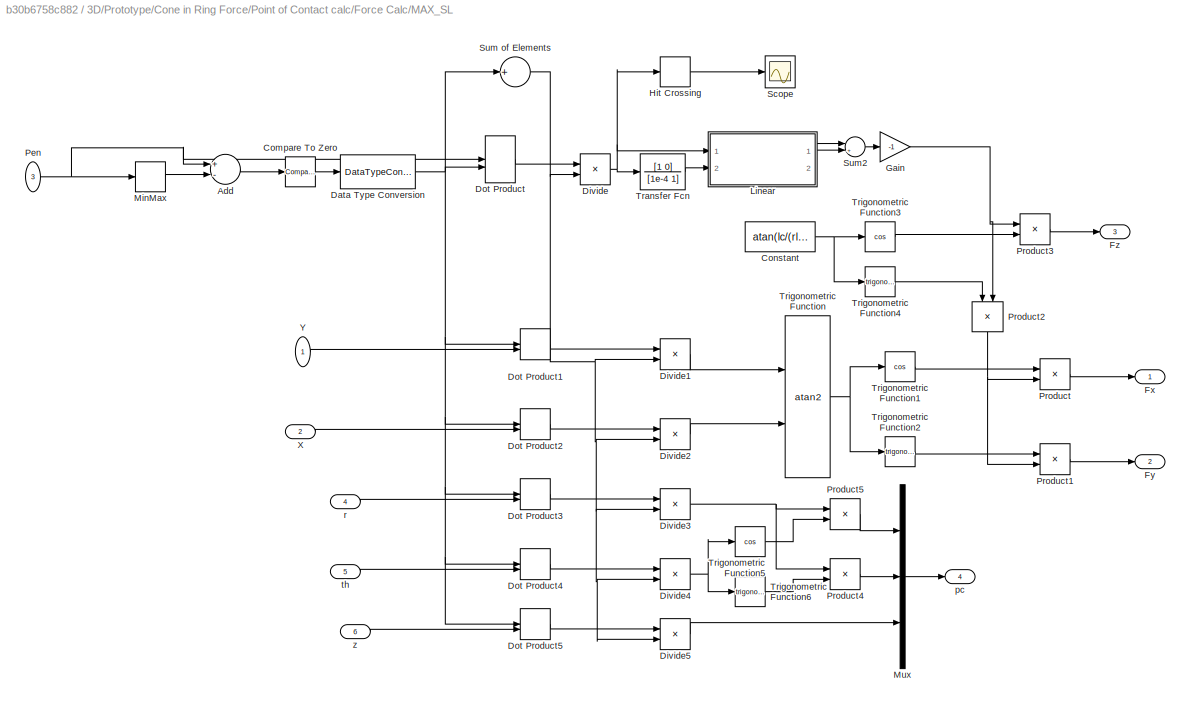
BLOCK [SubSystem] 3D/Prototype/Cone in Ring Force/Point of Contact calc/Force Calc/MAX_SL
  Ports = [6, 4]
  RequestExecContextInheritance = off
  Variant = off
BLOCK [Sum] 3D/Prototype/Cone in Ring Force/Point of Contact calc/Force Calc/MAX_SL/Add
  InputSameDT = off
  Inputs = +-
  OutDataTypeStr = Inherit: Inherit via internal rule
  Ports = [2, 1]
  SaturateOnIntegerOverflow = off
BLOCK [Reference] 3D/Prototype/Cone in Ring Force/Point of Contact calc/Force Calc/MAX_SL/Compare To Zero  REF=simulink/Logic and Bit
Operations/Compare
To Zero
  Ports = [1, 1]
  SourceBlock = simulink/Logic and Bit\nOperations/Compare\nTo Zero
  SourceProductBaseCode = SL
  SourceProductName = Simulink
  SourceType = Compare To Zero
BLOCK [Constant] 3D/Prototype/Cone in Ring Force/Point of Contact calc/Force Calc/MAX_SL/Constant
  Value = atan(lc/(rl-rs))
BLOCK [DataTypeConversion] 3D/Prototype/Cone in Ring Force/Point of Contact calc/Force Calc/MAX_SL/Data Type Conversion
  RndMeth = Floor
  SaturateOnIntegerOverflow = off
BLOCK [Product] 3D/Prototype/Cone in Ring Force/Point of Contact calc/Force Calc/MAX_SL/Divide
  InputSameDT = off
  Inputs = */
  OutDataTypeStr = Inherit: Inherit via internal rule
  Ports = [2, 1]
  RndMeth = Floor
  SaturateOnIntegerOverflow = off
BLOCK [Product] 3D/Prototype/Cone in Ring Force/Point of Contact calc/Force Calc/MAX_SL/Divide1
  InputSameDT = off
  Inputs = */
  OutDataTypeStr = Inherit: Inherit via internal rule
  Ports = [2, 1]
  RndMeth = Floor
  SaturateOnIntegerOverflow = off
BLOCK [Product] 3D/Prototype/Cone in Ring Force/Point of Contact calc/Force Calc/MAX_SL/Divide2
  InputSameDT = off
  Inputs = */
  OutDataTypeStr = Inherit: Inherit via internal rule
  Ports = [2, 1]
  RndMeth = Floor
  SaturateOnIntegerOverflow = off
BLOCK [Product] 3D/Prototype/Cone in Ring Force/Point of Contact calc/Force Calc/MAX_SL/Divide3
  InputSameDT = off
  Inputs = */
  OutDataTypeStr = Inherit: Inherit via internal rule
  Ports = [2, 1]
  RndMeth = Floor
  SaturateOnIntegerOverflow = off
BLOCK [Product] 3D/Prototype/Cone in Ring Force/Point of Contact calc/Force Calc/MAX_SL/Divide4
  InputSameDT = off
  Inputs = */
  OutDataTypeStr = Inherit: Inherit via internal rule
  Ports = [2, 1]
  RndMeth = Floor
  SaturateOnIntegerOverflow = off
BLOCK [Product] 3D/Prototype/Cone in Ring Force/Point of Contact calc/Force Calc/MAX_SL/Divide5
  InputSameDT = off
  Inputs = */
  OutDataTypeStr = Inherit: Inherit via internal rule
  Ports = [2, 1]
  RndMeth = Floor
  SaturateOnIntegerOverflow = off
BLOCK [DotProduct] 3D/Prototype/Cone in Ring Force/Point of Contact calc/Force Calc/MAX_SL/Dot Product
  OutDataTypeStr = Inherit: Inherit via internal rule
BLOCK [DotProduct] 3D/Prototype/Cone in Ring Force/Point of Contact calc/Force Calc/MAX_SL/Dot Product1
  OutDataTypeStr = Inherit: Inherit via internal rule
BLOCK [DotProduct] 3D/Prototype/Cone in Ring Force/Point of Contact calc/Force Calc/MAX_SL/Dot Product2
  OutDataTypeStr = Inherit: Inherit via internal rule
BLOCK [DotProduct] 3D/Prototype/Cone in Ring Force/Point of Contact calc/Force Calc/MAX_SL/Dot Product3
  OutDataTypeStr = Inherit: Inherit via internal rule
BLOCK [DotProduct] 3D/Prototype/Cone in Ring Force/Point of Contact calc/Force Calc/MAX_SL/Dot Product4
  OutDataTypeStr = Inherit: Inherit via internal rule
BLOCK [DotProduct] 3D/Prototype/Cone in Ring Force/Point of Contact calc/Force Calc/MAX_SL/Dot Product5
  OutDataTypeStr = Inherit: Inherit via internal rule
BLOCK [Outport] 3D/Prototype/Cone in Ring Force/Point of Contact calc/Force Calc/MAX_SL/Fx
  IconDisplay = Port number
BLOCK [Outport] 3D/Prototype/Cone in Ring Force/Point of Contact calc/Force Calc/MAX_SL/Fy
  IconDisplay = Port number
  Port = 2
BLOCK [Outport] 3D/Prototype/Cone in Ring Force/Point of Contact calc/Force Calc/MAX_SL/Fz
  IconDisplay = Port number
  Port = 3
BLOCK [Gain] 3D/Prototype/Cone in Ring Force/Point of Contact calc/Force Calc/MAX_SL/Gain
  Gain = -1
  OutDataTypeStr = Inherit: Inherit via internal rule
  ParamDataTypeStr = Inherit: Inherit via internal rule
  SaturateOnIntegerOverflow = off
BLOCK [HitCross] 3D/Prototype/Cone in Ring Force/Point of Contact calc/Force Calc/MAX_SL/Hit Crossing
  Ports = [1, 1]
BLOCK [SubSystem] 3D/Prototype/Cone in Ring Force/Point of Contact calc/Force Calc/MAX_SL/Linear
  Ports = [2, 2]
  RequestExecContextInheritance = off
  Variant = off
  VariantControl = Linear
BLOCK [Abs] 3D/Prototype/Cone in Ring Force/Point of Contact calc/Force Calc/MAX_SL/Linear/Abs
  SaturateOnIntegerOverflow = off
  ZeroCross = off
BLOCK [Outport] 3D/Prototype/Cone in Ring Force/Point of Contact calc/Force Calc/MAX_SL/Linear/Damp F
  IconDisplay = Port number
  Port = 2
BLOCK [Gain] 3D/Prototype/Cone in Ring Force/Point of Contact calc/Force Calc/MAX_SL/Linear/Gain1
  Gain = k_pen
  Multiplication = Matrix(K*u)
BLOCK [Gain] 3D/Prototype/Cone in Ring Force/Point of Contact calc/Force Calc/MAX_SL/Linear/Gain2
  Gain = -b_penvel
  Multiplication = Matrix(K*u)
BLOCK [Inport] 3D/Prototype/Cone in Ring Force/Point of Contact calc/Force Calc/MAX_SL/Linear/Pen
  IconDisplay = Port number
BLOCK [Inport] 3D/Prototype/Cone in Ring Force/Point of Contact calc/Force Calc/MAX_SL/Linear/Pen Vel
  IconDisplay = Port number
  Port = 2
BLOCK [Product] 3D/Prototype/Cone in Ring Force/Point of Contact calc/Force Calc/MAX_SL/Linear/Product
  InputSameDT = off
  OutDataTypeStr = Inherit: Inherit via internal rule
  Ports = [2, 1]
  SaturateOnIntegerOverflow = off
BLOCK [Saturate] 3D/Prototype/Cone in Ring Force/Point of Contact calc/Force Calc/MAX_SL/Linear/Saturation
  InputPortMap = u0
  LowerLimit = 0
  Ports = [1, 1]
  UpperLimit = Inf
  ZeroCross = off
BLOCK [Signum] 3D/Prototype/Cone in Ring Force/Point of Contact calc/Force Calc/MAX_SL/Linear/Sign
  ZeroCross = off
BLOCK [Outport] 3D/Prototype/Cone in Ring Force/Point of Contact calc/Force Calc/MAX_SL/Linear/Spr F
  IconDisplay = Port number
BLOCK [MinMax] 3D/Prototype/Cone in Ring Force/Point of Contact calc/Force Calc/MAX_SL/MinMax
  Function = max
  InputSameDT = off
  Ports = [1, 1]
  SaturateOnIntegerOverflow = off
  ZeroCross = off
BLOCK [Mux] 3D/Prototype/Cone in Ring Force/Point of Contact calc/Force Calc/MAX_SL/Mux
  DisplayOption = bar
  Inputs = 3
  Ports = [3, 1]
BLOCK [Inport] 3D/Prototype/Cone in Ring Force/Point of Contact calc/Force Calc/MAX_SL/Pen
  IconDisplay = Port number
  Port = 3
BLOCK [Product] 3D/Prototype/Cone in Ring Force/Point of Contact calc/Force Calc/MAX_SL/Product
  InputSameDT = off
  OutDataTypeStr = Inherit: Inherit via internal rule
  Ports = [2, 1]
  RndMeth = Floor
  SaturateOnIntegerOverflow = off
BLOCK [Product] 3D/Prototype/Cone in Ring Force/Point of Contact calc/Force Calc/MAX_SL/Product1
  InputSameDT = off
  OutDataTypeStr = Inherit: Inherit via internal rule
  Ports = [2, 1]
  RndMeth = Floor
  SaturateOnIntegerOverflow = off
BLOCK [Product] 3D/Prototype/Cone in Ring Force/Point of Contact calc/Force Calc/MAX_SL/Product2
  InputSameDT = off
  OutDataTypeStr = Inherit: Inherit via internal rule
  Ports = [2, 1]
  RndMeth = Floor
  SaturateOnIntegerOverflow = off
BLOCK [Product] 3D/Prototype/Cone in Ring Force/Point of Contact calc/Force Calc/MAX_SL/Product3
  InputSameDT = off
  OutDataTypeStr = Inherit: Inherit via internal rule
  Ports = [2, 1]
  RndMeth = Floor
  SaturateOnIntegerOverflow = off
BLOCK [Product] 3D/Prototype/Cone in Ring Force/Point of Contact calc/Force Calc/MAX_SL/Product4
  InputSameDT = off
  OutDataTypeStr = Inherit: Inherit via internal rule
  Ports = [2, 1]
  RndMeth = Floor
  SaturateOnIntegerOverflow = off
BLOCK [Product] 3D/Prototype/Cone in Ring Force/Point of Contact calc/Force Calc/MAX_SL/Product5
  InputSameDT = off
  OutDataTypeStr = Inherit: Inherit via internal rule
  Ports = [2, 1]
  RndMeth = Floor
  SaturateOnIntegerOverflow = off
BLOCK [Scope] 3D/Prototype/Cone in Ring Force/Point of Contact calc/Force Calc/MAX_SL/Scope
  NumInputPorts = 1
  Ports = [1]
  ScopeSpecificationString = C++SS(StrPVP('Location','[188, 365, 512, 604]'),StrPVP('Open','off'),MxPVP('AxesTitles',53,'struct(''axes1'',''%<SignalLabel>'')'),MxPVP('ScopeGraphics',56,'struct(''FigureColor'',''[0.156862745098039 0.156862745098039 0.156862745098039]'',''AxesColor'',''[0 0 0]'',''AxesTickColor'',''[0.686274509803922 0.686274509803922 0.686274509803922]'',''LineColors'',''[1 1 0;1 0 1;0 1 1;1 0 0;0 1 0;0 0 1]''...<+471ch>
BLOCK [Sum] 3D/Prototype/Cone in Ring Force/Point of Contact calc/Force Calc/MAX_SL/Sum of Elements
  InputSameDT = off
  Inputs = +
  OutDataTypeStr = Inherit: Inherit via internal rule
  Ports = [1, 1]
  SaturateOnIntegerOverflow = off
BLOCK [Sum] 3D/Prototype/Cone in Ring Force/Point of Contact calc/Force Calc/MAX_SL/Sum2
  IconShape = round
  InputSameDT = off
  Inputs = |+-
  OutDataTypeStr = Inherit: Inherit via internal rule
  Ports = [2, 1]
  SaturateOnIntegerOverflow = off
BLOCK [TransferFcn] 3D/Prototype/Cone in Ring Force/Point of Contact calc/Force Calc/MAX_SL/Transfer Fcn
  Denominator = [1e-4 1]
  Numerator = [1 0]
BLOCK [Trigonometry] 3D/Prototype/Cone in Ring Force/Point of Contact calc/Force Calc/MAX_SL/Trigonometric Function
  Operator = atan2
  Ports = [2, 1]
BLOCK [Trigonometry] 3D/Prototype/Cone in Ring Force/Point of Contact calc/Force Calc/MAX_SL/Trigonometric Function1
  Operator = cos
  Ports = [1, 1]
BLOCK [Trigonometry] 3D/Prototype/Cone in Ring Force/Point of Contact calc/Force Calc/MAX_SL/Trigonometric Function2
  Ports = [1, 1]
BLOCK [Trigonometry] 3D/Prototype/Cone in Ring Force/Point of Contact calc/Force Calc/MAX_SL/Trigonometric Function3
  Operator = cos
  Ports = [1, 1]
BLOCK [Trigonometry] 3D/Prototype/Cone in Ring Force/Point of Contact calc/Force Calc/MAX_SL/Trigonometric Function4
  Ports = [1, 1]
BLOCK [Trigonometry] 3D/Prototype/Cone in Ring Force/Point of Contact calc/Force Calc/MAX_SL/Trigonometric Function5
  Operator = cos
  Ports = [1, 1]
BLOCK [Trigonometry] 3D/Prototype/Cone in Ring Force/Point of Contact calc/Force Calc/MAX_SL/Trigonometric Function6
  Ports = [1, 1]
BLOCK [Inport] 3D/Prototype/Cone in Ring Force/Point of Contact calc/Force Calc/MAX_SL/X
  IconDisplay = Port number
  Port = 2
BLOCK [Inport] 3D/Prototype/Cone in Ring Force/Point of Contact calc/Force Calc/MAX_SL/Y
  IconDisplay = Port number
BLOCK [Outport] 3D/Prototype/Cone in Ring Force/Point of Contact calc/Force Calc/MAX_SL/pc
  IconDisplay = Port number
  Port = 4
BLOCK [Inport] 3D/Prototype/Cone in Ring Force/Point of Contact calc/Force Calc/MAX_SL/r
  IconDisplay = Port number
  Port = 4
BLOCK [Inport] 3D/Prototype/Cone in Ring Force/Point of Contact calc/Force Calc/MAX_SL/th
  IconDisplay = Port number
  Port = 5
BLOCK [Inport] 3D/Prototype/Cone in Ring Force/Point of Contact calc/Force Calc/MAX_SL/z
  IconDisplay = Port number
  Port = 6
BLOCK [Math] 3D/Prototype/Cone in Ring Force/Point of Contact calc/Force Calc/Math Function
  Operator = square
  Ports = [1, 1]
BLOCK [Math] 3D/Prototype/Cone in Ring Force/Point of Contact calc/Force Calc/Math Function1
  Operator = square
  Ports = [1, 1]
BLOCK [Sqrt] 3D/Prototype/Cone in Ring Force/Point of Contact calc/Force Calc/Reciprocal Sqrt
BLOCK [Sum] 3D/Prototype/Cone in Ring Force/Point of Contact calc/Force Calc/Sum
  IconShape = round
  InputSameDT = off
  Inputs = |++
  OutDataTypeStr = Inherit: Inherit via internal rule
  Ports = [2, 1]
  SaturateOnIntegerOverflow = off
BLOCK [Sum] 3D/Prototype/Cone in Ring Force/Point of Contact calc/Force Calc/Sum1
  IconShape = round
  InputSameDT = off
  Inputs = |+-
  OutDataTypeStr = Inherit: Inherit via internal rule
  Ports = [2, 1]
  SaturateOnIntegerOverflow = off
BLOCK [Outport] 3D/Prototype/Cone in Ring Force/Point of Contact calc/Force Calc/pc
  IconDisplay = Port number
  Port = 4
BLOCK [Inport] 3D/Prototype/Cone in Ring Force/Point of Contact calc/Force Calc/r
  IconDisplay = Port number
  Port = 3
BLOCK [Inport] 3D/Prototype/Cone in Ring Force/Point of Contact calc/Force Calc/th
  IconDisplay = Port number
  Port = 5
BLOCK [Inport] 3D/Prototype/Cone in Ring Force/Point of Contact calc/Force Calc/x
  IconDisplay = Port number
BLOCK [Inport] 3D/Prototype/Cone in Ring Force/Point of Contact calc/Force Calc/y
  IconDisplay = Port number
  Port = 2
BLOCK [Inport] 3D/Prototype/Cone in Ring Force/Point of Contact calc/Force Calc/z
  IconDisplay = Port number
  Port = 4
BLOCK [Mux] 3D/Prototype/Cone in Ring Force/Point of Contact calc/Mux
  DisplayOption = bar
  Inputs = 3
  Ports = [3, 1]
BLOCK [Inport] 3D/Prototype/Cone in Ring Force/Point of Contact calc/R
  IconDisplay = Port number
BLOCK [InportShadow] 3D/Prototype/Cone in Ring Force/Point of Contact calc/R1
  IconDisplay = Port number
BLOCK [Selector] 3D/Prototype/Cone in Ring Force/Point of Contact calc/Selector
  IndexOptions = Index vector (dialog),Index vector (dialog)
  Indices = 1,[1:3]
  InputPortWidth = 3
  NumberOfDimensions = 2
  OutputSizes = 1,1
  Ports = [1, 1]
BLOCK [Selector] 3D/Prototype/Cone in Ring Force/Point of Contact calc/Selector1
  IndexOptions = Index vector (dialog),Index vector (dialog)
  Indices = 2,[1:3]
  InputPortWidth = 3
  NumberOfDimensions = 2
  OutputSizes = 1,1
  Ports = [1, 1]
BLOCK [Selector] 3D/Prototype/Cone in Ring Force/Point of Contact calc/Selector2
  IndexOptions = Index vector (dialog),Index vector (dialog)
  Indices = 3,[1:3]
  InputPortWidth = 3
  NumberOfDimensions = 2
  OutputSizes = 1,1
  Ports = [1, 1]
BLOCK [Outport] 3D/Prototype/Cone in Ring Force/Point of Contact calc/T
  IconDisplay = Port number
  Port = 2
BLOCK [SubSystem] 3D/Prototype/Cone in Ring Force/Point of Contact calc/r calc
  Ports = [1, 1]
  RequestExecContextInheritance = off
  Variant = off
BLOCK [Constant] 3D/Prototype/Cone in Ring Force/Point of Contact calc/r calc/Constant4
  Value = (rl + (l_cyl*(rl - rs))/(2*lc))
BLOCK [Gain] 3D/Prototype/Cone in Ring Force/Point of Contact calc/r calc/Gain1
  Gain = (rl - rs)/lc
  OutDataTypeStr = Inherit: Inherit via internal rule
  ParamDataTypeStr = Inherit: Inherit via internal rule
  SaturateOnIntegerOverflow = off
BLOCK [Sum] 3D/Prototype/Cone in Ring Force/Point of Contact calc/r calc/Sum1
  IconShape = round
  InputSameDT = off
  Inputs = |++
  OutDataTypeStr = Inherit: Inherit via internal rule
  Ports = [2, 1]
  SaturateOnIntegerOverflow = off
BLOCK [Outport] 3D/Prototype/Cone in Ring Force/Point of Contact calc/r calc/r
  IconDisplay = Port number
BLOCK [Inport] 3D/Prototype/Cone in Ring Force/Point of Contact calc/r calc/z
  IconDisplay = Port number
BLOCK [Inport] 3D/Prototype/Cone in Ring Force/Point of Contact calc/x
  IconDisplay = Port number
  Port = 2
BLOCK [SubSystem] 3D/Prototype/Cone in Ring Force/Point of Contact calc/x calc
  Ports = [7, 1]
  RequestExecContextInheritance = off
  Variant = off
BLOCK [Product] 3D/Prototype/Cone in Ring Force/Point of Contact calc/x calc/Product
  InputSameDT = off
  OutDataTypeStr = Inherit: Inherit via internal rule
  Ports = [2, 1]
  RndMeth = Floor
  SaturateOnIntegerOverflow = off
BLOCK [Product] 3D/Prototype/Cone in Ring Force/Point of Contact calc/x calc/Product1
  InputSameDT = off
  OutDataTypeStr = Inherit: Inherit via internal rule
  Ports = [2, 1]
  RndMeth = Floor
  SaturateOnIntegerOverflow = off
BLOCK [Product] 3D/Prototype/Cone in Ring Force/Point of Contact calc/x calc/Product2
  InputSameDT = off
  OutDataTypeStr = Inherit: Inherit via internal rule
  Ports = [2, 1]
  RndMeth = Floor
  SaturateOnIntegerOverflow = off
BLOCK [Product] 3D/Prototype/Cone in Ring Force/Point of Contact calc/x calc/Product3
  InputSameDT = off
  OutDataTypeStr = Inherit: Inherit via internal rule
  Ports = [2, 1]
  RndMeth = Floor
  SaturateOnIntegerOverflow = off
BLOCK [Product] 3D/Prototype/Cone in Ring Force/Point of Contact calc/x calc/Product4
  InputSameDT = off
  OutDataTypeStr = Inherit: Inherit via internal rule
  Ports = [2, 1]
  RndMeth = Floor
  SaturateOnIntegerOverflow = off
BLOCK [Sum] 3D/Prototype/Cone in Ring Force/Point of Contact calc/x calc/Sum
  InputSameDT = off
  Inputs = |++++
  OutDataTypeStr = Inherit: Inherit via internal rule
  Ports = [4, 1]
  SaturateOnIntegerOverflow = off
BLOCK [Trigonometry] 3D/Prototype/Cone in Ring Force/Point of Contact calc/x calc/Trigonometric Function
  Operator = cos
  Ports = [1, 1]
BLOCK [Trigonometry] 3D/Prototype/Cone in Ring Force/Point of Contact calc/x calc/Trigonometric Function1
  Ports = [1, 1]
BLOCK [Inport] 3D/Prototype/Cone in Ring Force/Point of Contact calc/x calc/r
  IconDisplay = Port number
  Port = 7
BLOCK [Inport] 3D/Prototype/Cone in Ring Force/Point of Contact calc/x calc/r11
  IconDisplay = Port number
BLOCK [Inport] 3D/Prototype/Cone in Ring Force/Point of Contact calc/x calc/r12
  IconDisplay = Port number
  Port = 2
BLOCK [Inport] 3D/Prototype/Cone in Ring Force/Point of Contact calc/x calc/r13
  IconDisplay = Port number
  Port = 3
BLOCK [Inport] 3D/Prototype/Cone in Ring Force/Point of Contact calc/x calc/th
  IconDisplay = Port number
  Port = 5
BLOCK [Outport] 3D/Prototype/Cone in Ring Force/Point of Contact calc/x calc/x
  IconDisplay = Port number
BLOCK [Inport] 3D/Prototype/Cone in Ring Force/Point of Contact calc/x calc/xc
  IconDisplay = Port number
  Port = 4
BLOCK [Inport] 3D/Prototype/Cone in Ring Force/Point of Contact calc/x calc/z
  IconDisplay = Port number
  Port = 6
BLOCK [Inport] 3D/Prototype/Cone in Ring Force/Point of Contact calc/y
  IconDisplay = Port number
  Port = 3
BLOCK [SubSystem] 3D/Prototype/Cone in Ring Force/Point of Contact calc/y calc
  Ports = [7, 1]
  RequestExecContextInheritance = off
  Variant = off
BLOCK [Product] 3D/Prototype/Cone in Ring Force/Point of Contact calc/y calc/Product
  InputSameDT = off
  OutDataTypeStr = Inherit: Inherit via internal rule
  Ports = [2, 1]
  RndMeth = Floor
  SaturateOnIntegerOverflow = off
BLOCK [Product] 3D/Prototype/Cone in Ring Force/Point of Contact calc/y calc/Product1
  InputSameDT = off
  OutDataTypeStr = Inherit: Inherit via internal rule
  Ports = [2, 1]
  RndMeth = Floor
  SaturateOnIntegerOverflow = off
BLOCK [Product] 3D/Prototype/Cone in Ring Force/Point of Contact calc/y calc/Product2
  InputSameDT = off
  OutDataTypeStr = Inherit: Inherit via internal rule
  Ports = [2, 1]
  RndMeth = Floor
  SaturateOnIntegerOverflow = off
BLOCK [Product] 3D/Prototype/Cone in Ring Force/Point of Contact calc/y calc/Product3
  InputSameDT = off
  OutDataTypeStr = Inherit: Inherit via internal rule
  Ports = [2, 1]
  RndMeth = Floor
  SaturateOnIntegerOverflow = off
BLOCK [Product] 3D/Prototype/Cone in Ring Force/Point of Contact calc/y calc/Product4
  InputSameDT = off
  OutDataTypeStr = Inherit: Inherit via internal rule
  Ports = [2, 1]
  RndMeth = Floor
  SaturateOnIntegerOverflow = off
BLOCK [Sum] 3D/Prototype/Cone in Ring Force/Point of Contact calc/y calc/Sum
  InputSameDT = off
  Inputs = |++++
  OutDataTypeStr = Inherit: Inherit via internal rule
  Ports = [4, 1]
  SaturateOnIntegerOverflow = off
BLOCK [Trigonometry] 3D/Prototype/Cone in Ring Force/Point of Contact calc/y calc/Trigonometric Function
  Operator = cos
  Ports = [1, 1]
BLOCK [Trigonometry] 3D/Prototype/Cone in Ring Force/Point of Contact calc/y calc/Trigonometric Function1
  Ports = [1, 1]
BLOCK [Inport] 3D/Prototype/Cone in Ring Force/Point of Contact calc/y calc/r
  IconDisplay = Port number
  Port = 7
BLOCK [Inport] 3D/Prototype/Cone in Ring Force/Point of Contact calc/y calc/r21
  IconDisplay = Port number
BLOCK [Inport] 3D/Prototype/Cone in Ring Force/Point of Contact calc/y calc/r22
  IconDisplay = Port number
  Port = 2
BLOCK [Inport] 3D/Prototype/Cone in Ring Force/Point of Contact calc/y calc/r23
  IconDisplay = Port number
  Port = 3
BLOCK [Inport] 3D/Prototype/Cone in Ring Force/Point of Contact calc/y calc/th
  IconDisplay = Port number
  Port = 5
BLOCK [Outport] 3D/Prototype/Cone in Ring Force/Point of Contact calc/y calc/y
  IconDisplay = Port number
BLOCK [Inport] 3D/Prototype/Cone in Ring Force/Point of Contact calc/y calc/yc
  IconDisplay = Port number
  Port = 4
BLOCK [Inport] 3D/Prototype/Cone in Ring Force/Point of Contact calc/y calc/z
  IconDisplay = Port number
  Port = 6
BLOCK [Inport] 3D/Prototype/Cone in Ring Force/Point of Contact calc/z
  IconDisplay = Port number
  Port = 4
BLOCK [SubSystem] 3D/Prototype/Cone in Ring Force/Point of Contact calc/z calc
  Ports = [5, 1]
  RequestExecContextInheritance = off
  Variant = off
BLOCK [Constant] 3D/Prototype/Cone in Ring Force/Point of Contact calc/z calc/Constant
  Value = (rl + (l_cyl*(rl - rs))/(2*lc))
BLOCK [Constant] 3D/Prototype/Cone in Ring Force/Point of Contact calc/z calc/Constant1
  Value = l_tube/2
BLOCK [Constant] 3D/Prototype/Cone in Ring Force/Point of Contact calc/z calc/Constant2
  Value = (rl - rs)/lc
BLOCK [Product] 3D/Prototype/Cone in Ring Force/Point of Contact calc/z calc/Divide
  InputSameDT = off
  Inputs = */
  OutDataTypeStr = Inherit: Inherit via internal rule
  Ports = [2, 1]
  RndMeth = Floor
  SaturateOnIntegerOverflow = off
BLOCK [Gain] 3D/Prototype/Cone in Ring Force/Point of Contact calc/z calc/Gain
  Gain = -1
  OutDataTypeStr = Inherit: Inherit via internal rule
  ParamDataTypeStr = Inherit: Inherit via internal rule
  SaturateOnIntegerOverflow = off
BLOCK [Product] 3D/Prototype/Cone in Ring Force/Point of Contact calc/z calc/Product
  InputSameDT = off
  OutDataTypeStr = Inherit: Inherit via internal rule
  Ports = [2, 1]
  RndMeth = Floor
  SaturateOnIntegerOverflow = off
BLOCK [Product] 3D/Prototype/Cone in Ring Force/Point of Contact calc/z calc/Product1
  InputSameDT = off
  OutDataTypeStr = Inherit: Inherit via internal rule
  Ports = [2, 1]
  RndMeth = Floor
  SaturateOnIntegerOverflow = off
BLOCK [Product] 3D/Prototype/Cone in Ring Force/Point of Contact calc/z calc/Product2
  InputSameDT = off
  OutDataTypeStr = Inherit: Inherit via internal rule
  Ports = [2, 1]
  RndMeth = Floor
  SaturateOnIntegerOverflow = off
BLOCK [Product] 3D/Prototype/Cone in Ring Force/Point of Contact calc/z calc/Product3
  InputSameDT = off
  OutDataTypeStr = Inherit: Inherit via internal rule
  Ports = [2, 1]
  RndMeth = Floor
  SaturateOnIntegerOverflow = off
BLOCK [Product] 3D/Prototype/Cone in Ring Force/Point of Contact calc/z calc/Product4
  InputSameDT = off
  OutDataTypeStr = Inherit: Inherit via internal rule
  Ports = [2, 1]
  RndMeth = Floor
  SaturateOnIntegerOverflow = off
BLOCK [Product] 3D/Prototype/Cone in Ring Force/Point of Contact calc/z calc/Product5
  InputSameDT = off
  OutDataTypeStr = Inherit: Inherit via internal rule
  Ports = [2, 1]
  RndMeth = Floor
  SaturateOnIntegerOverflow = off
BLOCK [Sum] 3D/Prototype/Cone in Ring Force/Point of Contact calc/z calc/Sum
  InputSameDT = off
  Inputs = +-++
  OutDataTypeStr = Inherit: Inherit via internal rule
  Ports = [4, 1]
  SaturateOnIntegerOverflow = off
BLOCK [Sum] 3D/Prototype/Cone in Ring Force/Point of Contact calc/z calc/Sum1
  InputSameDT = off
  Inputs = +++
  OutDataTypeStr = Inherit: Inherit via internal rule
  Ports = [3, 1]
  SaturateOnIntegerOverflow = off
BLOCK [Trigonometry] 3D/Prototype/Cone in Ring Force/Point of Contact calc/z calc/Trigonometric Function
  Operator = cos
  Ports = [1, 1]
BLOCK [Trigonometry] 3D/Prototype/Cone in Ring Force/Point of Contact calc/z calc/Trigonometric Function1
  Ports = [1, 1]
BLOCK [Inport] 3D/Prototype/Cone in Ring Force/Point of Contact calc/z calc/r31
  IconDisplay = Port number
BLOCK [Inport] 3D/Prototype/Cone in Ring Force/Point of Contact calc/z calc/r32
  IconDisplay = Port number
  Port = 2
BLOCK [Inport] 3D/Prototype/Cone in Ring Force/Point of Contact calc/z calc/r33
  IconDisplay = Port number
  Port = 3
BLOCK [Inport] 3D/Prototype/Cone in Ring Force/Point of Contact calc/z calc/th
  IconDisplay = Port number
  Port = 5
BLOCK [Outport] 3D/Prototype/Cone in Ring Force/Point of Contact calc/z calc/z
  IconDisplay = Port number
BLOCK [Inport] 3D/Prototype/Cone in Ring Force/Point of Contact calc/z calc/zc
  IconDisplay = Port number
  Port = 4
BLOCK [Reference] 3D/Prototype/Cone in Ring Force/Simulink-PS Converter  REF=nesl_utility/Simulink-PS
Converter
  Ports = [1, 0, 0, 0, 0, 0, 1]
  SourceBlock = nesl_utility/Simulink-PS\nConverter
  SourceProductBaseCode = SS
  SourceProductName = Simscape
  SourceType = Simulink-PS\nConverter
BLOCK [Reference] 3D/Prototype/Cone in Ring Force/Simulink-PS Converter1  REF=nesl_utility/Simulink-PS
Converter
  Ports = [1, 0, 0, 0, 0, 0, 1]
  SourceBlock = nesl_utility/Simulink-PS\nConverter
  SourceProductBaseCode = SS
  SourceProductName = Simscape
  SourceType = Simulink-PS\nConverter
BLOCK [Reference] 3D/Prototype/Cone in Ring Force/Transform Sensor  REF=sm_lib/Frames and
Transforms/Transform
Sensor
  Ports = [0, 0, 0, 0, 0, 1, 5]
  SourceBlock = sm_lib/Frames and\nTransforms/Transform\nSensor
  SourceProductBaseCode = MS
  SourceProductName = Simscape Multibody
  SourceType = Transform\nSensor
BLOCK [SubSystem] 3D/Prototype/Cylinder In Ring Force
  Ports = [0, 1, 0, 0, 0, 1, 1]
  RequestExecContextInheritance = off
  Variant = off
BLOCK [PMIOPort] 3D/Prototype/Cylinder In Ring Force/B
  Port = 1
  Side = Left
BLOCK [BusCreator] 3D/Prototype/Cylinder In Ring Force/Bus Creator
  DisplayOption = bar
  InheritFromInputs = on
  Inputs = 1
  Ports = [1, 1]
BLOCK [SubSystem] 3D/Prototype/Cylinder In Ring Force/Enable
  Ports = [2, 1]
  RequestExecContextInheritance = off
  Variant = off
BLOCK [Abs] 3D/Prototype/Cylinder In Ring Force/Enable/Abs
  SaturateOnIntegerOverflow = off
  ZeroCross = off
BLOCK [Sum] 3D/Prototype/Cylinder In Ring Force/Enable/Add2
  InputSameDT = off
  OutDataTypeStr = Inherit: Inherit via internal rule
  Ports = [2, 1]
  SaturateOnIntegerOverflow = off
BLOCK [Sum] 3D/Prototype/Cylinder In Ring Force/Enable/Add3
  InputSameDT = off
  Inputs = +-
  OutDataTypeStr = Inherit: Inherit via internal rule
  Ports = [2, 1]
  SaturateOnIntegerOverflow = off
BLOCK [Constant] 3D/Prototype/Cylinder In Ring Force/Enable/Constant2
  Value = l_tube/2
BLOCK [Constant] 3D/Prototype/Cylinder In Ring Force/Enable/Constant3
  Value = l_cyl/2
BLOCK [Constant] 3D/Prototype/Cylinder In Ring Force/Enable/Constant4
  Value = l_cyl/2
BLOCK [Constant] 3D/Prototype/Cylinder In Ring Force/Enable/Constant5
  Value = l_tube/2
BLOCK [Outport] 3D/Prototype/Cylinder In Ring Force/Enable/Enable
  IconDisplay = Port number
BLOCK [Logic] 3D/Prototype/Cylinder In Ring Force/Enable/Logical Operator
  AllPortsSameDT = off
  OutDataTypeStr = boolean
  Ports = [2, 1]
BLOCK [Product] 3D/Prototype/Cylinder In Ring Force/Enable/Product
  InputSameDT = off
  OutDataTypeStr = Inherit: Inherit via internal rule
  Ports = [2, 1]
  RndMeth = Floor
  SaturateOnIntegerOverflow = off
BLOCK [Product] 3D/Prototype/Cylinder In Ring Force/Enable/Product1
  InputSameDT = off
  OutDataTypeStr = Inherit: Inherit via internal rule
  Ports = [2, 1]
  RndMeth = Floor
  SaturateOnIntegerOverflow = off
BLOCK [Inport] 3D/Prototype/Cylinder In Ring Force/Enable/R
  IconDisplay = Port number
  Port = 2
BLOCK [RelationalOperator] 3D/Prototype/Cylinder In Ring Force/Enable/Relational Operator
  InputSameDT = off
  OutDataTypeStr = boolean
  Ports = [2, 1]
  ZeroCross = off
BLOCK [RelationalOperator] 3D/Prototype/Cylinder In Ring Force/Enable/Relational Operator1
  InputSameDT = off
  Operator = <=
  OutDataTypeStr = boolean
  Ports = [2, 1]
  ZeroCross = off
BLOCK [Selector] 3D/Prototype/Cylinder In Ring Force/Enable/Selector
  IndexOptions = Index vector (dialog),Index vector (dialog)
  Indices = 3,3
  InputPortWidth = 3
  NumberOfDimensions = 2
  OutputSizes = 1,1
  Ports = [1, 1]
BLOCK [Inport] 3D/Prototype/Cylinder In Ring Force/Enable/z
  IconDisplay = Port number
BLOCK [Reference] 3D/Prototype/Cylinder In Ring Force/External Force and Torque  REF=sm_lib/Forces and
Torques/External Force
and Torque
  Ports = [0, 0, 0, 0, 0, 2, 1]
  SourceBlock = sm_lib/Forces and\nTorques/External Force\nand Torque
  SourceProductBaseCode = MS
  SourceProductName = Simscape Multibody
  SourceType = External Force\nand Torque
BLOCK [PMIOPort] 3D/Prototype/Cylinder In Ring Force/F
  Port = 2
  Side = Right
BLOCK [If] 3D/Prototype/Cylinder In Ring Force/If
  IfExpression = u1
  Ports = [1, 2]
BLOCK [SubSystem] 3D/Prototype/Cylinder In Ring Force/If Action Subsystem
  Ports = [0, 2, 0, 0, 0, 0, 0, 1]
  RequestExecContextInheritance = off
  TreatAsAtomicUnit = on
  Variant = off
BLOCK [ActionPort] 3D/Prototype/Cylinder In Ring Force/If Action Subsystem/Action Port
BLOCK [Constant] 3D/Prototype/Cylinder In Ring Force/If Action Subsystem/Constant
  SampleTime = 0
  Value = [0 0 0]
BLOCK [Outport] 3D/Prototype/Cylinder In Ring Force/If Action Subsystem/F
  IconDisplay = Port number
BLOCK [Outport] 3D/Prototype/Cylinder In Ring Force/If Action Subsystem/T
  IconDisplay = Port number
  Port = 2
BLOCK [Merge] 3D/Prototype/Cylinder In Ring Force/Merge
  Ports = [2, 1]
BLOCK [Merge] 3D/Prototype/Cylinder In Ring Force/Merge1
  Ports = [2, 1]
BLOCK [Outport] 3D/Prototype/Cylinder In Ring Force/Out
  IconDisplay = Port number
BLOCK [Reference] 3D/Prototype/Cylinder In Ring Force/PS-Simulink Converter1  REF=nesl_utility/PS-Simulink
Converter
  Ports = [0, 1, 0, 0, 0, 1]
  SourceBlock = nesl_utility/PS-Simulink\nConverter
  SourceProductBaseCode = SS
  SourceProductName = Simscape
  SourceType = PS-Simulink\nConverter
BLOCK [Reference] 3D/Prototype/Cylinder In Ring Force/PS-Simulink Converter2  REF=nesl_utility/PS-Simulink
Converter
  Ports = [0, 1, 0, 0, 0, 1]
  SourceBlock = nesl_utility/PS-Simulink\nConverter
  SourceProductBaseCode = SS
  SourceProductName = Simscape
  SourceType = PS-Simulink\nConverter
BLOCK [Reference] 3D/Prototype/Cylinder In Ring Force/PS-Simulink Converter3  REF=nesl_utility/PS-Simulink
Converter
  Ports = [0, 1, 0, 0, 0, 1]
  SourceBlock = nesl_utility/PS-Simulink\nConverter
  SourceProductBaseCode = SS
  SourceProductName = Simscape
  SourceType = PS-Simulink\nConverter
BLOCK [Reference] 3D/Prototype/Cylinder In Ring Force/PS-Simulink Converter4  REF=nesl_utility/PS-Simulink
Converter
  Ports = [0, 1, 0, 0, 0, 1]
  SourceBlock = nesl_utility/PS-Simulink\nConverter
  SourceProductBaseCode = SS
  SourceProductName = Simscape
  SourceType = PS-Simulink\nConverter
BLOCK [Reference] 3D/Prototype/Cylinder In Ring Force/PS-Simulink Converter5  REF=nesl_utility/PS-Simulink
Converter
  Ports = [0, 1, 0, 0, 0, 1]
  SourceBlock = nesl_utility/PS-Simulink\nConverter
  SourceProductBaseCode = SS
  SourceProductName = Simscape
  SourceType = PS-Simulink\nConverter
BLOCK [SubSystem] 3D/Prototype/Cylinder In Ring Force/Point of Contact calc
  Ports = [5, 3, 0, 0, 0, 0, 0, 1]
  RequestExecContextInheritance = off
  Variant = off
BLOCK [ActionPort] 3D/Prototype/Cylinder In Ring Force/Point of Contact calc/Action Port
BLOCK [Constant] 3D/Prototype/Cylinder In Ring Force/Point of Contact calc/Constant1
  Value = [0:2*pi/n:2*pi]
BLOCK [SubSystem] 3D/Prototype/Cylinder In Ring Force/Point of Contact calc/Cross Product
  Ports = [2, 1]
  RequestExecContextInheritance = off
  Variant = off
BLOCK [Demux] 3D/Prototype/Cylinder In Ring Force/Point of Contact calc/Cross Product/Demux1
  DisplayOption = bar
  Outputs = 3
  Ports = [1, 3]
BLOCK [Demux] 3D/Prototype/Cylinder In Ring Force/Point of Contact calc/Cross Product/Demux2
  DisplayOption = bar
  Outputs = 3
  Ports = [1, 3]
BLOCK [From] 3D/Prototype/Cylinder In Ring Force/Point of Contact calc/Cross Product/From
  GotoTag = Ay
BLOCK [From] 3D/Prototype/Cylinder In Ring Force/Point of Contact calc/Cross Product/From1
  GotoTag = Bz
BLOCK [From] 3D/Prototype/Cylinder In Ring Force/Point of Contact calc/Cross Product/From10
  GotoTag = Ay
BLOCK [From] 3D/Prototype/Cylinder In Ring Force/Point of Contact calc/Cross Product/From11
  GotoTag = Bx
BLOCK [From] 3D/Prototype/Cylinder In Ring Force/Point of Contact calc/Cross Product/From2
  GotoTag = Az
BLOCK [From] 3D/Prototype/Cylinder In Ring Force/Point of Contact calc/Cross Product/From3
  GotoTag = By
BLOCK [From] 3D/Prototype/Cylinder In Ring Force/Point of Contact calc/Cross Product/From4
  GotoTag = Az
BLOCK [From] 3D/Prototype/Cylinder In Ring Force/Point of Contact calc/Cross Product/From5
  GotoTag = Bx
BLOCK [From] 3D/Prototype/Cylinder In Ring Force/Point of Contact calc/Cross Product/From6
  GotoTag = Ax
BLOCK [From] 3D/Prototype/Cylinder In Ring Force/Point of Contact calc/Cross Product/From7
  GotoTag = Bz
BLOCK [From] 3D/Prototype/Cylinder In Ring Force/Point of Contact calc/Cross Product/From8
  GotoTag = Ax
BLOCK [From] 3D/Prototype/Cylinder In Ring Force/Point of Contact calc/Cross Product/From9
  GotoTag = By
BLOCK [Goto] 3D/Prototype/Cylinder In Ring Force/Point of Contact calc/Cross Product/Goto
  GotoTag = Ax
BLOCK [Goto] 3D/Prototype/Cylinder In Ring Force/Point of Contact calc/Cross Product/Goto1
  GotoTag = Ay
BLOCK [Goto] 3D/Prototype/Cylinder In Ring Force/Point of Contact calc/Cross Product/Goto2
  GotoTag = Az
BLOCK [Goto] 3D/Prototype/Cylinder In Ring Force/Point of Contact calc/Cross Product/Goto3
  GotoTag = Bx
BLOCK [Goto] 3D/Prototype/Cylinder In Ring Force/Point of Contact calc/Cross Product/Goto4
  GotoTag = By
BLOCK [Goto] 3D/Prototype/Cylinder In Ring Force/Point of Contact calc/Cross Product/Goto5
  GotoTag = Bz
BLOCK [Inport] 3D/Prototype/Cylinder In Ring Force/Point of Contact calc/Cross Product/In1
  IconDisplay = Port number
BLOCK [Inport] 3D/Prototype/Cylinder In Ring Force/Point of Contact calc/Cross Product/In2
  IconDisplay = Port number
  Port = 2
BLOCK [Mux] 3D/Prototype/Cylinder In Ring Force/Point of Contact calc/Cross Product/Mux
  DisplayOption = bar
  Inputs = 3
  Ports = [3, 1]
BLOCK [Outport] 3D/Prototype/Cylinder In Ring Force/Point of Contact calc/Cross Product/Out1
  IconDisplay = Port number
BLOCK [Product] 3D/Prototype/Cylinder In Ring Force/Point of Contact calc/Cross Product/Product
  InputSameDT = off
  OutDataTypeStr = Inherit: Inherit via internal rule
  Ports = [2, 1]
  RndMeth = Floor
  SaturateOnIntegerOverflow = off
BLOCK [Product] 3D/Prototype/Cylinder In Ring Force/Point of Contact calc/Cross Product/Product1
  InputSameDT = off
  OutDataTypeStr = Inherit: Inherit via internal rule
  Ports = [2, 1]
  RndMeth = Floor
  SaturateOnIntegerOverflow = off
BLOCK [Product] 3D/Prototype/Cylinder In Ring Force/Point of Contact calc/Cross Product/Product2
  InputSameDT = off
  OutDataTypeStr = Inherit: Inherit via internal rule
  Ports = [2, 1]
  RndMeth = Floor
  SaturateOnIntegerOverflow = off
BLOCK [Product] 3D/Prototype/Cylinder In Ring Force/Point of Contact calc/Cross Product/Product3
  InputSameDT = off
  OutDataTypeStr = Inherit: Inherit via internal rule
  Ports = [2, 1]
  RndMeth = Floor
  SaturateOnIntegerOverflow = off
BLOCK [Product] 3D/Prototype/Cylinder In Ring Force/Point of Contact calc/Cross Product/Product4
  InputSameDT = off
  OutDataTypeStr = Inherit: Inherit via internal rule
  Ports = [2, 1]
  RndMeth = Floor
  SaturateOnIntegerOverflow = off
BLOCK [Product] 3D/Prototype/Cylinder In Ring Force/Point of Contact calc/Cross Product/Product5
  InputSameDT = off
  OutDataTypeStr = Inherit: Inherit via internal rule
  Ports = [2, 1]
  RndMeth = Floor
  SaturateOnIntegerOverflow = off
BLOCK [Sum] 3D/Prototype/Cylinder In Ring Force/Point of Contact calc/Cross Product/Sum
  IconShape = round
  InputSameDT = off
  Inputs = +|-
  OutDataTypeStr = Inherit: Inherit via internal rule
  Ports = [2, 1]
  SaturateOnIntegerOverflow = off
BLOCK [Sum] 3D/Prototype/Cylinder In Ring Force/Point of Contact calc/Cross Product/Sum1
  IconShape = round
  InputSameDT = off
  Inputs = +|-
  OutDataTypeStr = Inherit: Inherit via internal rule
  Ports = [2, 1]
  SaturateOnIntegerOverflow = off
BLOCK [Sum] 3D/Prototype/Cylinder In Ring Force/Point of Contact calc/Cross Product/Sum2
  IconShape = round
  InputSameDT = off
  Inputs = +|-
  OutDataTypeStr = Inherit: Inherit via internal rule
  Ports = [2, 1]
  SaturateOnIntegerOverflow = off
BLOCK [Demux] 3D/Prototype/Cylinder In Ring Force/Point of Contact calc/Demux
  DisplayOption = bar
  Outputs = 3
  Ports = [1, 3]
BLOCK [Demux] 3D/Prototype/Cylinder In Ring Force/Point of Contact calc/Demux1
  DisplayOption = bar
  Outputs = 3
  Ports = [1, 3]
BLOCK [Demux] 3D/Prototype/Cylinder In Ring Force/Point of Contact calc/Demux2
  DisplayOption = bar
  Outputs = 3
  Ports = [1, 3]
BLOCK [Product] 3D/Prototype/Cylinder In Ring Force/Point of Contact calc/Divide
  InputSameDT = off
  Inputs = /*
  Multiplication = Matrix(*)
  OutDataTypeStr = Inherit: Inherit via internal rule
  Ports = [2, 1]
  RndMeth = Floor
  SaturateOnIntegerOverflow = off
BLOCK [Outport] 3D/Prototype/Cylinder In Ring Force/Point of Contact calc/F
  IconDisplay = Port number
BLOCK [SubSystem] 3D/Prototype/Cylinder In Ring Force/Point of Contact calc/Force Calc
  Ports = [5, 5]
  RequestExecContextInheritance = off
  Variant = off
BLOCK [SubSystem] 3D/Prototype/Cylinder In Ring Force/Point of Contact calc/Force Calc/Computing Force from nonzero penetration points
  Commented = on
  Ports = [3, 2]
  RequestExecContextInheritance = off
  Variant = off
BLOCK [Derivative] 3D/Prototype/Cylinder In Ring Force/Point of Contact calc/Force Calc/Computing Force from nonzero penetration points/Derivative
  CoefficientInTFapproximation = 1e-4
  Commented = on
BLOCK [SubSystem] 3D/Prototype/Cylinder In Ring Force/Point of Contact calc/Force Calc/Computing Force from nonzero penetration points/For Each Subsystem1
  Commented = on
  Ports = [1, 1]
  RequestExecContextInheritance = off
  TreatAsAtomicUnit = on
  Variant = off
BLOCK [ForEach] 3D/Prototype/Cylinder In Ring Force/Point of Contact calc/Force Calc/Computing Force from nonzero penetration points/For Each Subsystem1/For Each
  DisableCoverage = on
  IndexMode = One-based
  Ports = []
BLOCK [Inport] 3D/Prototype/Cylinder In Ring Force/Point of Contact calc/Force Calc/Computing Force from nonzero penetration points/For Each Subsystem1/In1
  IconDisplay = Port number
  Partition = on
  PartitionDimension = 1
  PartitionWidth = 1
BLOCK [Outport] 3D/Prototype/Cylinder In Ring Force/Point of Contact calc/Force Calc/Computing Force from nonzero penetration points/For Each Subsystem1/Out1
  ConcatenationDimension = 1
  IconDisplay = Port number
BLOCK [TransferFcn] 3D/Prototype/Cylinder In Ring Force/Point of Contact calc/Force Calc/Computing Force from nonzero penetration points/For Each Subsystem1/Transfer Fcn1
  Denominator = [1e-4 1]
  Numerator = [1 0]
BLOCK [SubSystem] 3D/Prototype/Cylinder In Ring Force/Point of Contact calc/Force Calc/Computing Force from nonzero penetration points/For Iterator Subsystem
  Commented = on
  Ports = [4, 2]
  RequestExecContextInheritance = off
  TreatAsAtomicUnit = on
  Variant = off
BLOCK [Delay] 3D/Prototype/Cylinder In Ring Force/Point of Contact calc/Force Calc/Computing Force from nonzero penetration points/For Iterator Subsystem/Delay
  DelayLength = 1
  InitialCondition = 0
  InputPortMap = u0
  Ports = [1, 1]
BLOCK [Delay] 3D/Prototype/Cylinder In Ring Force/Point of Contact calc/Force Calc/Computing Force from nonzero penetration points/For Iterator Subsystem/Delay1
  DelayLength = 1
  InitialCondition = 0
  InputPortMap = u0
  Ports = [1, 1]
BLOCK [ForIterator] 3D/Prototype/Cylinder In Ring Force/Point of Contact calc/Force Calc/Computing Force from nonzero penetration points/For Iterator Subsystem/For Iterator
  IterationSource = external
  Ports = [1, 1]
  ResetStates = reset
BLOCK [Outport] 3D/Prototype/Cylinder In Ring Force/Point of Contact calc/Force Calc/Computing Force from nonzero penetration points/For Iterator Subsystem/Fx
  IconDisplay = Port number
BLOCK [Outport] 3D/Prototype/Cylinder In Ring Force/Point of Contact calc/Force Calc/Computing Force from nonzero penetration points/For Iterator Subsystem/Fy
  IconDisplay = Port number
  Port = 2
BLOCK [Gain] 3D/Prototype/Cylinder In Ring Force/Point of Contact calc/Force Calc/Computing Force from nonzero penetration points/For Iterator Subsystem/Gain
  Gain = -1
  OutDataTypeStr = Inherit: Inherit via internal rule
  ParamDataTypeStr = Inherit: Inherit via internal rule
  SaturateOnIntegerOverflow = off
BLOCK [SubSystem] 3D/Prototype/Cylinder In Ring Force/Point of Contact calc/Force Calc/Computing Force from nonzero penetration points/For Iterator Subsystem/Linear
  Ports = [2, 2]
  RequestExecContextInheritance = off
  Variant = off
  VariantControl = Linear
BLOCK [Abs] 3D/Prototype/Cylinder In Ring Force/Point of Contact calc/Force Calc/Computing Force from nonzero penetration points/For Iterator Subsystem/Linear/Abs
  SaturateOnIntegerOverflow = off
  ZeroCross = off
BLOCK [Outport] 3D/Prototype/Cylinder In Ring Force/Point of Contact calc/Force Calc/Computing Force from nonzero penetration points/For Iterator Subsystem/Linear/Damp F
  IconDisplay = Port number
  Port = 2
BLOCK [Gain] 3D/Prototype/Cylinder In Ring Force/Point of Contact calc/Force Calc/Computing Force from nonzero penetration points/For Iterator Subsystem/Linear/Gain1
  Gain = k_pen
  Multiplication = Matrix(K*u)
BLOCK [Gain] 3D/Prototype/Cylinder In Ring Force/Point of Contact calc/Force Calc/Computing Force from nonzero penetration points/For Iterator Subsystem/Linear/Gain2
  Gain = -b_penvel
  Multiplication = Matrix(K*u)
BLOCK [Inport] 3D/Prototype/Cylinder In Ring Force/Point of Contact calc/Force Calc/Computing Force from nonzero penetration points/For Iterator Subsystem/Linear/Pen
  IconDisplay = Port number
BLOCK [Inport] 3D/Prototype/Cylinder In Ring Force/Point of Contact calc/Force Calc/Computing Force from nonzero penetration points/For Iterator Subsystem/Linear/Pen Vel
  IconDisplay = Port number
  Port = 2
BLOCK [Product] 3D/Prototype/Cylinder In Ring Force/Point of Contact calc/Force Calc/Computing Force from nonzero penetration points/For Iterator Subsystem/Linear/Product
  InputSameDT = off
  OutDataTypeStr = Inherit: Inherit via internal rule
  Ports = [2, 1]
  SaturateOnIntegerOverflow = off
BLOCK [Saturate] 3D/Prototype/Cylinder In Ring Force/Point of Contact calc/Force Calc/Computing Force from nonzero penetration points/For Iterator Subsystem/Linear/Saturation
  InputPortMap = u0
  LowerLimit = 0
  Ports = [1, 1]
  UpperLimit = Inf
  ZeroCross = off
BLOCK [Signum] 3D/Prototype/Cylinder In Ring Force/Point of Contact calc/Force Calc/Computing Force from nonzero penetration points/For Iterator Subsystem/Linear/Sign
  ZeroCross = off
BLOCK [Outport] 3D/Prototype/Cylinder In Ring Force/Point of Contact calc/Force Calc/Computing Force from nonzero penetration points/For Iterator Subsystem/Linear/Spr F
  IconDisplay = Port number
BLOCK [Inport] 3D/Prototype/Cylinder In Ring Force/Point of Contact calc/Force Calc/Computing Force from nonzero penetration points/For Iterator Subsystem/Pen
  IconDisplay = Port number
BLOCK [Inport] 3D/Prototype/Cylinder In Ring Force/Point of Contact calc/Force Calc/Computing Force from nonzero penetration points/For Iterator Subsystem/Penv
  IconDisplay = Port number
  Port = 4
BLOCK [Product] 3D/Prototype/Cylinder In Ring Force/Point of Contact calc/Force Calc/Computing Force from nonzero penetration points/For Iterator Subsystem/Product
  InputSameDT = off
  OutDataTypeStr = Inherit: Inherit via internal rule
  Ports = [2, 1]
  RndMeth = Floor
  SaturateOnIntegerOverflow = off
BLOCK [Product] 3D/Prototype/Cylinder In Ring Force/Point of Contact calc/Force Calc/Computing Force from nonzero penetration points/For Iterator Subsystem/Product1
  InputSameDT = off
  OutDataTypeStr = Inherit: Inherit via internal rule
  Ports = [2, 1]
  RndMeth = Floor
  SaturateOnIntegerOverflow = off
BLOCK [Selector] 3D/Prototype/Cylinder In Ring Force/Point of Contact calc/Force Calc/Computing Force from nonzero penetration points/For Iterator Subsystem/Selector
  IndexOptions = Index vector (port)
  Indices = [1 3]
  OutputSizes = 1
  Ports = [2, 1]
BLOCK [Selector] 3D/Prototype/Cylinder In Ring Force/Point of Contact calc/Force Calc/Computing Force from nonzero penetration points/For Iterator Subsystem/Selector1
  IndexOptions = Index vector (port)
  Indices = [1 3]
  OutputSizes = 1
  Ports = [2, 1]
BLOCK [Selector] 3D/Prototype/Cylinder In Ring Force/Point of Contact calc/Force Calc/Computing Force from nonzero penetration points/For Iterator Subsystem/Selector2
  IndexOptions = Index vector (port)
  Indices = [1 3]
  OutputSizes = 1
  Ports = [2, 1]
BLOCK [Selector] 3D/Prototype/Cylinder In Ring Force/Point of Contact calc/Force Calc/Computing Force from nonzero penetration points/For Iterator Subsystem/Selector3
  IndexOptions = Index vector (port)
  Indices = [1 3]
  OutputSizes = 1
  Ports = [2, 1]
BLOCK [Sum] 3D/Prototype/Cylinder In Ring Force/Point of Contact calc/Force Calc/Computing Force from nonzero penetration points/For Iterator Subsystem/Sum
  IconShape = round
  InputSameDT = off
  Inputs = |++
  OutDataTypeStr = Inherit: Inherit via internal rule
  Ports = [2, 1]
  SaturateOnIntegerOverflow = off
BLOCK [Sum] 3D/Prototype/Cylinder In Ring Force/Point of Contact calc/Force Calc/Computing Force from nonzero penetration points/For Iterator Subsystem/Sum1
  IconShape = round
  InputSameDT = off
  Inputs = |++
  OutDataTypeStr = Inherit: Inherit via internal rule
  Ports = [2, 1]
  SaturateOnIntegerOverflow = off
BLOCK [Sum] 3D/Prototype/Cylinder In Ring Force/Point of Contact calc/Force Calc/Computing Force from nonzero penetration points/For Iterator Subsystem/Sum2
  IconShape = round
  InputSameDT = off
  Inputs = |+-
  OutDataTypeStr = Inherit: Inherit via internal rule
  Ports = [2, 1]
  SaturateOnIntegerOverflow = off
BLOCK [Trigonometry] 3D/Prototype/Cylinder In Ring Force/Point of Contact calc/Force Calc/Computing Force from nonzero penetration points/For Iterator Subsystem/Trigonometric Function
  Operator = atan2
  Ports = [2, 1]
BLOCK [Trigonometry] 3D/Prototype/Cylinder In Ring Force/Point of Contact calc/Force Calc/Computing Force from nonzero penetration points/For Iterator Subsystem/Trigonometric Function1
  Operator = cos
  Ports = [1, 1]
BLOCK [Trigonometry] 3D/Prototype/Cylinder In Ring Force/Point of Contact calc/Force Calc/Computing Force from nonzero penetration points/For Iterator Subsystem/Trigonometric Function2
  Ports = [1, 1]
BLOCK [Width] 3D/Prototype/Cylinder In Ring Force/Point of Contact calc/Force Calc/Computing Force from nonzero penetration points/For Iterator Subsystem/Width
BLOCK [Inport] 3D/Prototype/Cylinder In Ring Force/Point of Contact calc/Force Calc/Computing Force from nonzero penetration points/For Iterator Subsystem/X
  IconDisplay = Port number
  Port = 2
BLOCK [Inport] 3D/Prototype/Cylinder In Ring Force/Point of Contact calc/Force Calc/Computing Force from nonzero penetration points/For Iterator Subsystem/Y
  IconDisplay = Port number
  Port = 3
BLOCK [Outport] 3D/Prototype/Cylinder In Ring Force/Point of Contact calc/Force Calc/Computing Force from nonzero penetration points/Fx
  IconDisplay = Port number
BLOCK [Outport] 3D/Prototype/Cylinder In Ring Force/Point of Contact calc/Force Calc/Computing Force from nonzero penetration points/Fy
  IconDisplay = Port number
  Port = 2
BLOCK [Gain] 3D/Prototype/Cylinder In Ring Force/Point of Contact calc/Force Calc/Computing Force from nonzero penetration points/Gain1
  Commented = on
  Gain = -1
  OutDataTypeStr = Inherit: Inherit via internal rule
  ParamDataTypeStr = Inherit: Inherit via internal rule
  SaturateOnIntegerOverflow = off
BLOCK [SubSystem] 3D/Prototype/Cylinder In Ring Force/Point of Contact calc/Force Calc/Computing Force from nonzero penetration points/Linear1
  Commented = on
  Ports = [2, 2]
  RequestExecContextInheritance = off
  Variant = off
  VariantControl = Linear
BLOCK [Abs] 3D/Prototype/Cylinder In Ring Force/Point of Contact calc/Force Calc/Computing Force from nonzero penetration points/Linear1/Abs
  SaturateOnIntegerOverflow = off
  ZeroCross = off
BLOCK [Outport] 3D/Prototype/Cylinder In Ring Force/Point of Contact calc/Force Calc/Computing Force from nonzero penetration points/Linear1/Damp F
  IconDisplay = Port number
  Port = 2
BLOCK [Gain] 3D/Prototype/Cylinder In Ring Force/Point of Contact calc/Force Calc/Computing Force from nonzero penetration points/Linear1/Gain1
  Gain = k_pen
  Multiplication = Matrix(K*u)
BLOCK [Gain] 3D/Prototype/Cylinder In Ring Force/Point of Contact calc/Force Calc/Computing Force from nonzero penetration points/Linear1/Gain2
  Gain = -b_penvel
  Multiplication = Matrix(K*u)
BLOCK [Inport] 3D/Prototype/Cylinder In Ring Force/Point of Contact calc/Force Calc/Computing Force from nonzero penetration points/Linear1/Pen
  IconDisplay = Port number
BLOCK [Inport] 3D/Prototype/Cylinder In Ring Force/Point of Contact calc/Force Calc/Computing Force from nonzero penetration points/Linear1/Pen Vel
  IconDisplay = Port number
  Port = 2
BLOCK [Product] 3D/Prototype/Cylinder In Ring Force/Point of Contact calc/Force Calc/Computing Force from nonzero penetration points/Linear1/Product
  InputSameDT = off
  OutDataTypeStr = Inherit: Inherit via internal rule
  Ports = [2, 1]
  SaturateOnIntegerOverflow = off
BLOCK [Saturate] 3D/Prototype/Cylinder In Ring Force/Point of Contact calc/Force Calc/Computing Force from nonzero penetration points/Linear1/Saturation
  InputPortMap = u0
  LowerLimit = 0
  Ports = [1, 1]
  UpperLimit = Inf
  ZeroCross = off
BLOCK [Signum] 3D/Prototype/Cylinder In Ring Force/Point of Contact calc/Force Calc/Computing Force from nonzero penetration points/Linear1/Sign
  ZeroCross = off
BLOCK [Outport] 3D/Prototype/Cylinder In Ring Force/Point of Contact calc/Force Calc/Computing Force from nonzero penetration points/Linear1/Spr F
  IconDisplay = Port number
BLOCK [Inport] 3D/Prototype/Cylinder In Ring Force/Point of Contact calc/Force Calc/Computing Force from nonzero penetration points/Pen
  IconDisplay = Port number
  Port = 3
BLOCK [Product] 3D/Prototype/Cylinder In Ring Force/Point of Contact calc/Force Calc/Computing Force from nonzero penetration points/Product2
  Commented = on
  InputSameDT = off
  OutDataTypeStr = Inherit: Inherit via internal rule
  Ports = [2, 1]
  RndMeth = Floor
  SaturateOnIntegerOverflow = off
BLOCK [Product] 3D/Prototype/Cylinder In Ring Force/Point of Contact calc/Force Calc/Computing Force from nonzero penetration points/Product3
  Commented = on
  InputSameDT = off
  OutDataTypeStr = Inherit: Inherit via internal rule
  Ports = [2, 1]
  RndMeth = Floor
  SaturateOnIntegerOverflow = off
BLOCK [Sum] 3D/Prototype/Cylinder In Ring Force/Point of Contact calc/Force Calc/Computing Force from nonzero penetration points/Sum of Elements
  Commented = on
  InputSameDT = off
  Inputs = +
  OutDataTypeStr = Inherit: Inherit via internal rule
  Ports = [1, 1]
  SaturateOnIntegerOverflow = off
BLOCK [Sum] 3D/Prototype/Cylinder In Ring Force/Point of Contact calc/Force Calc/Computing Force from nonzero penetration points/Sum of Elements1
  Commented = on
  InputSameDT = off
  Inputs = +
  OutDataTypeStr = Inherit: Inherit via internal rule
  Ports = [1, 1]
  SaturateOnIntegerOverflow = off
BLOCK [Sum] 3D/Prototype/Cylinder In Ring Force/Point of Contact calc/Force Calc/Computing Force from nonzero penetration points/Sum3
  Commented = on
  IconShape = round
  InputSameDT = off
  Inputs = |+-
  OutDataTypeStr = Inherit: Inherit via internal rule
  Ports = [2, 1]
  SaturateOnIntegerOverflow = off
BLOCK [Trigonometry] 3D/Prototype/Cylinder In Ring Force/Point of Contact calc/Force Calc/Computing Force from nonzero penetration points/Trigonometric Function3
  Commented = on
  Operator = atan2
  Ports = [2, 1]
BLOCK [Trigonometry] 3D/Prototype/Cylinder In Ring Force/Point of Contact calc/Force Calc/Computing Force from nonzero penetration points/Trigonometric Function4
  Commented = on
  Operator = cos
  Ports = [1, 1]
BLOCK [Trigonometry] 3D/Prototype/Cylinder In Ring Force/Point of Contact calc/Force Calc/Computing Force from nonzero penetration points/Trigonometric Function5
  Commented = on
  Ports = [1, 1]
BLOCK [Inport] 3D/Prototype/Cylinder In Ring Force/Point of Contact calc/Force Calc/Computing Force from nonzero penetration points/X
  IconDisplay = Port number
  Port = 2
BLOCK [Inport] 3D/Prototype/Cylinder In Ring Force/Point of Contact calc/Force Calc/Computing Force from nonzero penetration points/Y
  IconDisplay = Port number
BLOCK [Constant] 3D/Prototype/Cylinder In Ring Force/Point of Contact calc/Force Calc/Constant2
  Value = r_tube
BLOCK [DeadZone] 3D/Prototype/Cylinder In Ring Force/Point of Contact calc/Force Calc/Dead Zone
  LowerValue = -inf
  UpperValue = 0
  ZeroCross = off
BLOCK [Outport] 3D/Prototype/Cylinder In Ring Force/Point of Contact calc/Force Calc/Fx
  IconDisplay = Port number
BLOCK [Outport] 3D/Prototype/Cylinder In Ring Force/Point of Contact calc/Force Calc/Fy
  IconDisplay = Port number
  Port = 2
BLOCK [Outport] 3D/Prototype/Cylinder In Ring Force/Point of Contact calc/Force Calc/Fz
  IconDisplay = Port number
  Port = 3
BLOCK [SubSystem] 3D/Prototype/Cylinder In Ring Force/Point of Contact calc/Force Calc/MAX_ML
  Commented = on
  Ports = [3, 2]
  RequestExecContextInheritance = off
  Variant = off
BLOCK [Outport] 3D/Prototype/Cylinder In Ring Force/Point of Contact calc/Force Calc/MAX_ML/Fx
  IconDisplay = Port number
BLOCK [Outport] 3D/Prototype/Cylinder In Ring Force/Point of Contact calc/Force Calc/MAX_ML/Fy
  IconDisplay = Port number
  Port = 2
BLOCK [Gain] 3D/Prototype/Cylinder In Ring Force/Point of Contact calc/Force Calc/MAX_ML/Gain
  Gain = -1
  OutDataTypeStr = Inherit: Inherit via internal rule
  ParamDataTypeStr = Inherit: Inherit via internal rule
  SaturateOnIntegerOverflow = off
BLOCK [SubSystem] 3D/Prototype/Cylinder In Ring Force/Point of Contact calc/Force Calc/MAX_ML/Linear
  Ports = [2, 2]
  RequestExecContextInheritance = off
  Variant = off
  VariantControl = Linear
BLOCK [Abs] 3D/Prototype/Cylinder In Ring Force/Point of Contact calc/Force Calc/MAX_ML/Linear/Abs
  SaturateOnIntegerOverflow = off
  ZeroCross = off
BLOCK [Outport] 3D/Prototype/Cylinder In Ring Force/Point of Contact calc/Force Calc/MAX_ML/Linear/Damp F
  IconDisplay = Port number
  Port = 2
BLOCK [Gain] 3D/Prototype/Cylinder In Ring Force/Point of Contact calc/Force Calc/MAX_ML/Linear/Gain1
  Gain = k_pen
  Multiplication = Matrix(K*u)
BLOCK [Gain] 3D/Prototype/Cylinder In Ring Force/Point of Contact calc/Force Calc/MAX_ML/Linear/Gain2
  Gain = -b_penvel
  Multiplication = Matrix(K*u)
BLOCK [Inport] 3D/Prototype/Cylinder In Ring Force/Point of Contact calc/Force Calc/MAX_ML/Linear/Pen
  IconDisplay = Port number
BLOCK [Inport] 3D/Prototype/Cylinder In Ring Force/Point of Contact calc/Force Calc/MAX_ML/Linear/Pen Vel
  IconDisplay = Port number
  Port = 2
BLOCK [Product] 3D/Prototype/Cylinder In Ring Force/Point of Contact calc/Force Calc/MAX_ML/Linear/Product
  InputSameDT = off
  OutDataTypeStr = Inherit: Inherit via internal rule
  Ports = [2, 1]
  SaturateOnIntegerOverflow = off
BLOCK [Saturate] 3D/Prototype/Cylinder In Ring Force/Point of Contact calc/Force Calc/MAX_ML/Linear/Saturation
  InputPortMap = u0
  LowerLimit = 0
  Ports = [1, 1]
  UpperLimit = Inf
  ZeroCross = off
BLOCK [Signum] 3D/Prototype/Cylinder In Ring Force/Point of Contact calc/Force Calc/MAX_ML/Linear/Sign
  ZeroCross = off
BLOCK [Outport] 3D/Prototype/Cylinder In Ring Force/Point of Contact calc/Force Calc/MAX_ML/Linear/Spr F
  IconDisplay = Port number
BLOCK [SubSystem] 3D/Prototype/Cylinder In Ring Force/Point of Contact calc/Force Calc/MAX_ML/MATLAB Function
  ErrorFcn = Stateflow.Translate.translate
  PermitHierarchicalResolution = ExplicitOnly
  Ports = [3, 4]
  RequestExecContextInheritance = off
  SFBlockType = MATLAB Function
  TreatAsAtomicUnit = on
  Variant = off
BLOCK [Demux] 3D/Prototype/Cylinder In Ring Force/Point of Contact calc/Force Calc/MAX_ML/MATLAB Function/ Demux 
  Outputs = 1
  Ports = [1, 1]
BLOCK [S-Function] 3D/Prototype/Cylinder In Ring Force/Point of Contact calc/Force Calc/MAX_ML/MATLAB Function/ SFunction 
  EnableBusSupport = off
  FunctionName = sf_sfun
  PortCounts = [3 5]
  Ports = [3, 5]
  SFcnIsStateOwnerBlock = off
  SFunctionDeploymentMode = off
  Tag = Stateflow S-Function Contact_Forces_Lib 1
BLOCK [Terminator] 3D/Prototype/Cylinder In Ring Force/Point of Contact calc/Force Calc/MAX_ML/MATLAB Function/ Terminator 
BLOCK [Outport] 3D/Prototype/Cylinder In Ring Force/Point of Contact calc/Force Calc/MAX_ML/MATLAB Function/ind
  IconDisplay = Port number
  Port = 4
BLOCK [Inport] 3D/Prototype/Cylinder In Ring Force/Point of Contact calc/Force Calc/MAX_ML/MATLAB Function/pen
  IconDisplay = Port number
BLOCK [Outport] 3D/Prototype/Cylinder In Ring Force/Point of Contact calc/Force Calc/MAX_ML/MATLAB Function/penc
  IconDisplay = Port number
  Port = 3
BLOCK [Inport] 3D/Prototype/Cylinder In Ring Force/Point of Contact calc/Force Calc/MAX_ML/MATLAB Function/x
  IconDisplay = Port number
  Port = 2
BLOCK [Outport] 3D/Prototype/Cylinder In Ring Force/Point of Contact calc/Force Calc/MAX_ML/MATLAB Function/xc
  IconDisplay = Port number
BLOCK [Inport] 3D/Prototype/Cylinder In Ring Force/Point of Contact calc/Force Calc/MAX_ML/MATLAB Function/y
  IconDisplay = Port number
  Port = 3
BLOCK [Outport] 3D/Prototype/Cylinder In Ring Force/Point of Contact calc/Force Calc/MAX_ML/MATLAB Function/yc
  IconDisplay = Port number
  Port = 2
BLOCK [Product] 3D/Prototype/Cylinder In Ring Force/Point of Contact calc/Force Calc/MAX_ML/Product
  InputSameDT = off
  OutDataTypeStr = Inherit: Inherit via internal rule
  Ports = [2, 1]
  RndMeth = Floor
  SaturateOnIntegerOverflow = off
BLOCK [Product] 3D/Prototype/Cylinder In Ring Force/Point of Contact calc/Force Calc/MAX_ML/Product1
  InputSameDT = off
  OutDataTypeStr = Inherit: Inherit via internal rule
  Ports = [2, 1]
  RndMeth = Floor
  SaturateOnIntegerOverflow = off
BLOCK [Sum] 3D/Prototype/Cylinder In Ring Force/Point of Contact calc/Force Calc/MAX_ML/Sum2
  IconShape = round
  InputSameDT = off
  Inputs = |+-
  OutDataTypeStr = Inherit: Inherit via internal rule
  Ports = [2, 1]
  SaturateOnIntegerOverflow = off
BLOCK [TransferFcn] 3D/Prototype/Cylinder In Ring Force/Point of Contact calc/Force Calc/MAX_ML/Transfer Fcn
  Denominator = [1e-4 1]
  Numerator = [1 0]
BLOCK [Trigonometry] 3D/Prototype/Cylinder In Ring Force/Point of Contact calc/Force Calc/MAX_ML/Trigonometric Function
  Operator = atan2
  Ports = [2, 1]
BLOCK [Trigonometry] 3D/Prototype/Cylinder In Ring Force/Point of Contact calc/Force Calc/MAX_ML/Trigonometric Function1
  Operator = cos
  Ports = [1, 1]
BLOCK [Trigonometry] 3D/Prototype/Cylinder In Ring Force/Point of Contact calc/Force Calc/MAX_ML/Trigonometric Function2
  Ports = [1, 1]
BLOCK [Inport] 3D/Prototype/Cylinder In Ring Force/Point of Contact calc/Force Calc/MAX_ML/X
  IconDisplay = Port number
  Port = 2
BLOCK [Inport] 3D/Prototype/Cylinder In Ring Force/Point of Contact calc/Force Calc/MAX_ML/Y
  IconDisplay = Port number
BLOCK [Inport] 3D/Prototype/Cylinder In Ring Force/Point of Contact calc/Force Calc/MAX_ML/pen
  IconDisplay = Port number
  Port = 3
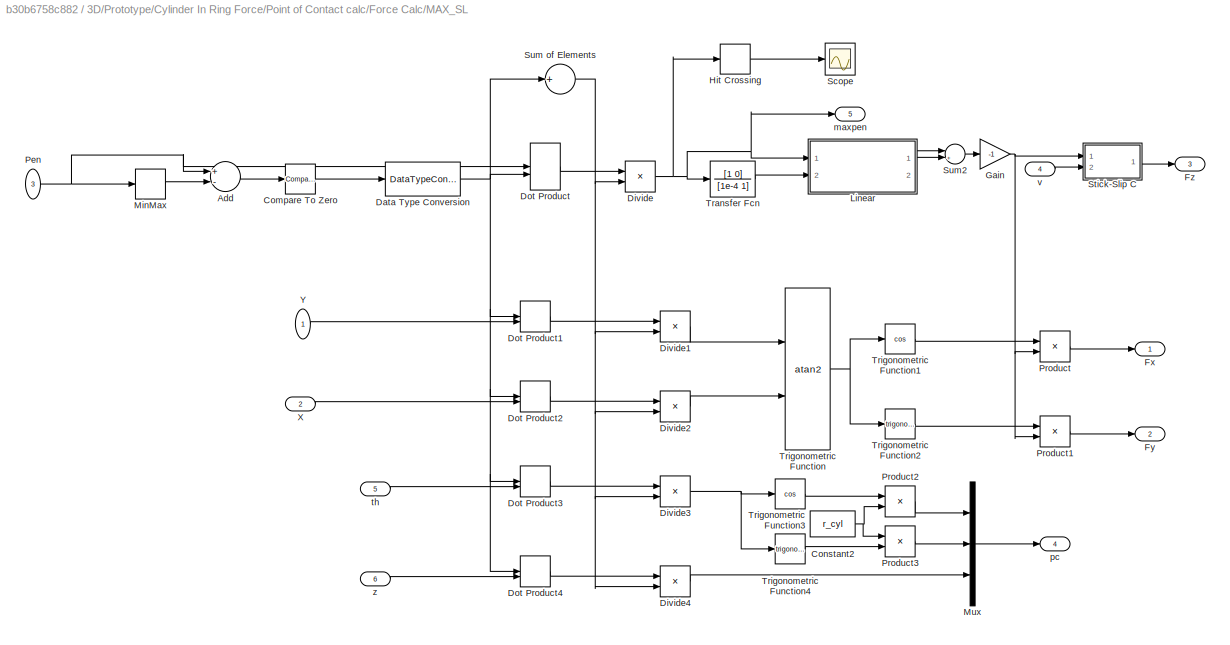
BLOCK [SubSystem] 3D/Prototype/Cylinder In Ring Force/Point of Contact calc/Force Calc/MAX_SL
  Ports = [6, 5]
  RequestExecContextInheritance = off
  Variant = off
BLOCK [Sum] 3D/Prototype/Cylinder In Ring Force/Point of Contact calc/Force Calc/MAX_SL/Add
  InputSameDT = off
  Inputs = +-
  OutDataTypeStr = Inherit: Inherit via internal rule
  Ports = [2, 1]
  SaturateOnIntegerOverflow = off
BLOCK [Reference] 3D/Prototype/Cylinder In Ring Force/Point of Contact calc/Force Calc/MAX_SL/Compare To Zero  REF=simulink/Logic and Bit
Operations/Compare
To Zero
  Ports = [1, 1]
  SourceBlock = simulink/Logic and Bit\nOperations/Compare\nTo Zero
  SourceProductBaseCode = SL
  SourceProductName = Simulink
  SourceType = Compare To Zero
BLOCK [Constant] 3D/Prototype/Cylinder In Ring Force/Point of Contact calc/Force Calc/MAX_SL/Constant2
  Value = r_cyl
BLOCK [DataTypeConversion] 3D/Prototype/Cylinder In Ring Force/Point of Contact calc/Force Calc/MAX_SL/Data Type Conversion
  RndMeth = Floor
  SaturateOnIntegerOverflow = off
BLOCK [Product] 3D/Prototype/Cylinder In Ring Force/Point of Contact calc/Force Calc/MAX_SL/Divide
  InputSameDT = off
  Inputs = */
  OutDataTypeStr = Inherit: Inherit via internal rule
  Ports = [2, 1]
  RndMeth = Floor
  SaturateOnIntegerOverflow = off
BLOCK [Product] 3D/Prototype/Cylinder In Ring Force/Point of Contact calc/Force Calc/MAX_SL/Divide1
  InputSameDT = off
  Inputs = */
  OutDataTypeStr = Inherit: Inherit via internal rule
  Ports = [2, 1]
  RndMeth = Floor
  SaturateOnIntegerOverflow = off
BLOCK [Product] 3D/Prototype/Cylinder In Ring Force/Point of Contact calc/Force Calc/MAX_SL/Divide2
  InputSameDT = off
  Inputs = */
  OutDataTypeStr = Inherit: Inherit via internal rule
  Ports = [2, 1]
  RndMeth = Floor
  SaturateOnIntegerOverflow = off
BLOCK [Product] 3D/Prototype/Cylinder In Ring Force/Point of Contact calc/Force Calc/MAX_SL/Divide3
  InputSameDT = off
  Inputs = */
  OutDataTypeStr = Inherit: Inherit via internal rule
  Ports = [2, 1]
  RndMeth = Floor
  SaturateOnIntegerOverflow = off
BLOCK [Product] 3D/Prototype/Cylinder In Ring Force/Point of Contact calc/Force Calc/MAX_SL/Divide4
  InputSameDT = off
  Inputs = */
  OutDataTypeStr = Inherit: Inherit via internal rule
  Ports = [2, 1]
  RndMeth = Floor
  SaturateOnIntegerOverflow = off
BLOCK [DotProduct] 3D/Prototype/Cylinder In Ring Force/Point of Contact calc/Force Calc/MAX_SL/Dot Product
  OutDataTypeStr = Inherit: Inherit via internal rule
BLOCK [DotProduct] 3D/Prototype/Cylinder In Ring Force/Point of Contact calc/Force Calc/MAX_SL/Dot Product1
  OutDataTypeStr = Inherit: Inherit via internal rule
BLOCK [DotProduct] 3D/Prototype/Cylinder In Ring Force/Point of Contact calc/Force Calc/MAX_SL/Dot Product2
  OutDataTypeStr = Inherit: Inherit via internal rule
BLOCK [DotProduct] 3D/Prototype/Cylinder In Ring Force/Point of Contact calc/Force Calc/MAX_SL/Dot Product3
  OutDataTypeStr = Inherit: Inherit via internal rule
BLOCK [DotProduct] 3D/Prototype/Cylinder In Ring Force/Point of Contact calc/Force Calc/MAX_SL/Dot Product4
  OutDataTypeStr = Inherit: Inherit via internal rule
BLOCK [Outport] 3D/Prototype/Cylinder In Ring Force/Point of Contact calc/Force Calc/MAX_SL/Fx
  IconDisplay = Port number
BLOCK [Outport] 3D/Prototype/Cylinder In Ring Force/Point of Contact calc/Force Calc/MAX_SL/Fy
  IconDisplay = Port number
  Port = 2
BLOCK [Outport] 3D/Prototype/Cylinder In Ring Force/Point of Contact calc/Force Calc/MAX_SL/Fz
  IconDisplay = Port number
  Port = 3
BLOCK [Gain] 3D/Prototype/Cylinder In Ring Force/Point of Contact calc/Force Calc/MAX_SL/Gain
  Gain = -1
  OutDataTypeStr = Inherit: Inherit via internal rule
  ParamDataTypeStr = Inherit: Inherit via internal rule
  SaturateOnIntegerOverflow = off
BLOCK [HitCross] 3D/Prototype/Cylinder In Ring Force/Point of Contact calc/Force Calc/MAX_SL/Hit Crossing
  Ports = [1, 1]
BLOCK [SubSystem] 3D/Prototype/Cylinder In Ring Force/Point of Contact calc/Force Calc/MAX_SL/Linear
  Ports = [2, 2]
  RequestExecContextInheritance = off
  Variant = off
  VariantControl = Linear
BLOCK [Abs] 3D/Prototype/Cylinder In Ring Force/Point of Contact calc/Force Calc/MAX_SL/Linear/Abs
  SaturateOnIntegerOverflow = off
  ZeroCross = off
BLOCK [Outport] 3D/Prototype/Cylinder In Ring Force/Point of Contact calc/Force Calc/MAX_SL/Linear/Damp F
  IconDisplay = Port number
  Port = 2
BLOCK [Gain] 3D/Prototype/Cylinder In Ring Force/Point of Contact calc/Force Calc/MAX_SL/Linear/Gain1
  Gain = k_pen
  Multiplication = Matrix(K*u)
BLOCK [Gain] 3D/Prototype/Cylinder In Ring Force/Point of Contact calc/Force Calc/MAX_SL/Linear/Gain2
  Gain = -b_penvel
  Multiplication = Matrix(K*u)
BLOCK [Inport] 3D/Prototype/Cylinder In Ring Force/Point of Contact calc/Force Calc/MAX_SL/Linear/Pen
  IconDisplay = Port number
BLOCK [Inport] 3D/Prototype/Cylinder In Ring Force/Point of Contact calc/Force Calc/MAX_SL/Linear/Pen Vel
  IconDisplay = Port number
  Port = 2
BLOCK [Product] 3D/Prototype/Cylinder In Ring Force/Point of Contact calc/Force Calc/MAX_SL/Linear/Product
  InputSameDT = off
  OutDataTypeStr = Inherit: Inherit via internal rule
  Ports = [2, 1]
  SaturateOnIntegerOverflow = off
BLOCK [Saturate] 3D/Prototype/Cylinder In Ring Force/Point of Contact calc/Force Calc/MAX_SL/Linear/Saturation
  InputPortMap = u0
  LowerLimit = 0
  Ports = [1, 1]
  UpperLimit = Inf
  ZeroCross = off
BLOCK [Signum] 3D/Prototype/Cylinder In Ring Force/Point of Contact calc/Force Calc/MAX_SL/Linear/Sign
  ZeroCross = off
BLOCK [Outport] 3D/Prototype/Cylinder In Ring Force/Point of Contact calc/Force Calc/MAX_SL/Linear/Spr F
  IconDisplay = Port number
BLOCK [MinMax] 3D/Prototype/Cylinder In Ring Force/Point of Contact calc/Force Calc/MAX_SL/MinMax
  Function = max
  InputSameDT = off
  Ports = [1, 1]
  SaturateOnIntegerOverflow = off
  ZeroCross = off
BLOCK [Mux] 3D/Prototype/Cylinder In Ring Force/Point of Contact calc/Force Calc/MAX_SL/Mux
  DisplayOption = bar
  Inputs = 3
  Ports = [3, 1]
BLOCK [Inport] 3D/Prototype/Cylinder In Ring Force/Point of Contact calc/Force Calc/MAX_SL/Pen
  IconDisplay = Port number
  Port = 3
BLOCK [Product] 3D/Prototype/Cylinder In Ring Force/Point of Contact calc/Force Calc/MAX_SL/Product
  InputSameDT = off
  OutDataTypeStr = Inherit: Inherit via internal rule
  Ports = [2, 1]
  RndMeth = Floor
  SaturateOnIntegerOverflow = off
BLOCK [Product] 3D/Prototype/Cylinder In Ring Force/Point of Contact calc/Force Calc/MAX_SL/Product1
  InputSameDT = off
  OutDataTypeStr = Inherit: Inherit via internal rule
  Ports = [2, 1]
  RndMeth = Floor
  SaturateOnIntegerOverflow = off
BLOCK [Product] 3D/Prototype/Cylinder In Ring Force/Point of Contact calc/Force Calc/MAX_SL/Product2
  InputSameDT = off
  OutDataTypeStr = Inherit: Inherit via internal rule
  Ports = [2, 1]
  RndMeth = Floor
  SaturateOnIntegerOverflow = off
BLOCK [Product] 3D/Prototype/Cylinder In Ring Force/Point of Contact calc/Force Calc/MAX_SL/Product3
  InputSameDT = off
  OutDataTypeStr = Inherit: Inherit via internal rule
  Ports = [2, 1]
  RndMeth = Floor
  SaturateOnIntegerOverflow = off
BLOCK [Scope] 3D/Prototype/Cylinder In Ring Force/Point of Contact calc/Force Calc/MAX_SL/Scope
  NumInputPorts = 1
  Ports = [1]
  ScopeSpecificationString = C++SS(StrPVP('Location','[188, 365, 512, 604]'),StrPVP('Open','off'),MxPVP('AxesTitles',53,'struct(''axes1'',''%<SignalLabel>'')'),MxPVP('ScopeGraphics',56,'struct(''FigureColor'',''[0.156862745098039 0.156862745098039 0.156862745098039]'',''AxesColor'',''[0 0 0]'',''AxesTickColor'',''[0.686274509803922 0.686274509803922 0.686274509803922]'',''LineColors'',''[1 1 0;1 0 1;0 1 1;1 0 0;0 1 0;0 0 1]''...<+471ch>
BLOCK [SubSystem] 3D/Prototype/Cylinder In Ring Force/Point of Contact calc/Force Calc/MAX_SL/Stick-Slip C 
  Ports = [2, 1]
  RequestExecContextInheritance = off
  Variant = off
  VariantControl = Stick_Slip_C
BLOCK [Lookup_n-D] 3D/Prototype/Cylinder In Ring Force/Point of Contact calc/Force Calc/MAX_SL/Stick-Slip C /Coefficient of Friction vs Velocity
  BreakpointsForDimension1 = [-3 -1.5 -1 1 1.5 3]*vth
  InternalRulePriority = Speed
  NumberOfTableDimensions = 1
  Ports = [1, 1]
  Table = [-muk -muk -mus mus  muk muk]
BLOCK [Outport] 3D/Prototype/Cylinder In Ring Force/Point of Contact calc/Force Calc/MAX_SL/Stick-Slip C /Ff
  IconDisplay = Port number
BLOCK [Inport] 3D/Prototype/Cylinder In Ring Force/Point of Contact calc/Force Calc/MAX_SL/Stick-Slip C /Fn
  IconDisplay = Port number
BLOCK [Gain] 3D/Prototype/Cylinder In Ring Force/Point of Contact calc/Force Calc/MAX_SL/Stick-Slip C /Gain2
  Multiplication = Matrix(K*u)
BLOCK [Product] 3D/Prototype/Cylinder In Ring Force/Point of Contact calc/Force Calc/MAX_SL/Stick-Slip C /Product
  InputSameDT = off
  OutDataTypeStr = Inherit: Inherit via internal rule
  Ports = [2, 1]
  SaturateOnIntegerOverflow = off
BLOCK [Inport] 3D/Prototype/Cylinder In Ring Force/Point of Contact calc/Force Calc/MAX_SL/Stick-Slip C /v
  IconDisplay = Port number
  Port = 2
BLOCK [Sum] 3D/Prototype/Cylinder In Ring Force/Point of Contact calc/Force Calc/MAX_SL/Sum of Elements
  InputSameDT = off
  Inputs = +
  OutDataTypeStr = Inherit: Inherit via internal rule
  Ports = [1, 1]
  SaturateOnIntegerOverflow = off
BLOCK [Sum] 3D/Prototype/Cylinder In Ring Force/Point of Contact calc/Force Calc/MAX_SL/Sum2
  IconShape = round
  InputSameDT = off
  Inputs = |+-
  OutDataTypeStr = Inherit: Inherit via internal rule
  Ports = [2, 1]
  SaturateOnIntegerOverflow = off
BLOCK [TransferFcn] 3D/Prototype/Cylinder In Ring Force/Point of Contact calc/Force Calc/MAX_SL/Transfer Fcn
  Denominator = [1e-4 1]
  Numerator = [1 0]
BLOCK [Trigonometry] 3D/Prototype/Cylinder In Ring Force/Point of Contact calc/Force Calc/MAX_SL/Trigonometric Function
  Operator = atan2
  Ports = [2, 1]
BLOCK [Trigonometry] 3D/Prototype/Cylinder In Ring Force/Point of Contact calc/Force Calc/MAX_SL/Trigonometric Function1
  Operator = cos
  Ports = [1, 1]
BLOCK [Trigonometry] 3D/Prototype/Cylinder In Ring Force/Point of Contact calc/Force Calc/MAX_SL/Trigonometric Function2
  Ports = [1, 1]
BLOCK [Trigonometry] 3D/Prototype/Cylinder In Ring Force/Point of Contact calc/Force Calc/MAX_SL/Trigonometric Function3
  Operator = cos
  Ports = [1, 1]
BLOCK [Trigonometry] 3D/Prototype/Cylinder In Ring Force/Point of Contact calc/Force Calc/MAX_SL/Trigonometric Function4
  Ports = [1, 1]
BLOCK [Inport] 3D/Prototype/Cylinder In Ring Force/Point of Contact calc/Force Calc/MAX_SL/X
  IconDisplay = Port number
  Port = 2
BLOCK [Inport] 3D/Prototype/Cylinder In Ring Force/Point of Contact calc/Force Calc/MAX_SL/Y
  IconDisplay = Port number
BLOCK [Outport] 3D/Prototype/Cylinder In Ring Force/Point of Contact calc/Force Calc/MAX_SL/maxpen
  IconDisplay = Port number
  Port = 5
BLOCK [Outport] 3D/Prototype/Cylinder In Ring Force/Point of Contact calc/Force Calc/MAX_SL/pc
  IconDisplay = Port number
  Port = 4
BLOCK [Inport] 3D/Prototype/Cylinder In Ring Force/Point of Contact calc/Force Calc/MAX_SL/th
  IconDisplay = Port number
  Port = 5
BLOCK [Inport] 3D/Prototype/Cylinder In Ring Force/Point of Contact calc/Force Calc/MAX_SL/v
  IconDisplay = Port number
  Port = 4
BLOCK [Inport] 3D/Prototype/Cylinder In Ring Force/Point of Contact calc/Force Calc/MAX_SL/z
  IconDisplay = Port number
  Port = 6
BLOCK [Math] 3D/Prototype/Cylinder In Ring Force/Point of Contact calc/Force Calc/Math Function
  Operator = square
  Ports = [1, 1]
BLOCK [Math] 3D/Prototype/Cylinder In Ring Force/Point of Contact calc/Force Calc/Math Function1
  Operator = square
  Ports = [1, 1]
BLOCK [Sqrt] 3D/Prototype/Cylinder In Ring Force/Point of Contact calc/Force Calc/Reciprocal Sqrt
BLOCK [Sum] 3D/Prototype/Cylinder In Ring Force/Point of Contact calc/Force Calc/Sum
  IconShape = round
  InputSameDT = off
  Inputs = |++
  OutDataTypeStr = Inherit: Inherit via internal rule
  Ports = [2, 1]
  SaturateOnIntegerOverflow = off
BLOCK [Sum] 3D/Prototype/Cylinder In Ring Force/Point of Contact calc/Force Calc/Sum1
  IconShape = round
  InputSameDT = off
  Inputs = |+-
  OutDataTypeStr = Inherit: Inherit via internal rule
  Ports = [2, 1]
  SaturateOnIntegerOverflow = off
BLOCK [Outport] 3D/Prototype/Cylinder In Ring Force/Point of Contact calc/Force Calc/maxpen
  IconDisplay = Port number
  Port = 5
BLOCK [Outport] 3D/Prototype/Cylinder In Ring Force/Point of Contact calc/Force Calc/pc
  IconDisplay = Port number
  Port = 4
BLOCK [Inport] 3D/Prototype/Cylinder In Ring Force/Point of Contact calc/Force Calc/th
  IconDisplay = Port number
  Port = 5
BLOCK [Inport] 3D/Prototype/Cylinder In Ring Force/Point of Contact calc/Force Calc/v
  IconDisplay = Port number
  Port = 3
BLOCK [Inport] 3D/Prototype/Cylinder In Ring Force/Point of Contact calc/Force Calc/x
  IconDisplay = Port number
BLOCK [Inport] 3D/Prototype/Cylinder In Ring Force/Point of Contact calc/Force Calc/y
  IconDisplay = Port number
  Port = 2
BLOCK [Inport] 3D/Prototype/Cylinder In Ring Force/Point of Contact calc/Force Calc/z
  IconDisplay = Port number
  Port = 4
BLOCK [Mux] 3D/Prototype/Cylinder In Ring Force/Point of Contact calc/Mux
  DisplayOption = bar
  Inputs = 3
  Ports = [3, 1]
BLOCK [Inport] 3D/Prototype/Cylinder In Ring Force/Point of Contact calc/R
  IconDisplay = Port number
BLOCK [InportShadow] 3D/Prototype/Cylinder In Ring Force/Point of Contact calc/R1
  IconDisplay = Port number
BLOCK [Selector] 3D/Prototype/Cylinder In Ring Force/Point of Contact calc/Selector
  IndexOptions = Index vector (dialog),Index vector (dialog)
  Indices = 1,[1:3]
  InputPortWidth = 3
  NumberOfDimensions = 2
  OutputSizes = 1,1
  Ports = [1, 1]
BLOCK [Selector] 3D/Prototype/Cylinder In Ring Force/Point of Contact calc/Selector1
  IndexOptions = Index vector (dialog),Index vector (dialog)
  Indices = 2,[1:3]
  InputPortWidth = 3
  NumberOfDimensions = 2
  OutputSizes = 1,1
  Ports = [1, 1]
BLOCK [Selector] 3D/Prototype/Cylinder In Ring Force/Point of Contact calc/Selector2
  IndexOptions = Index vector (dialog),Index vector (dialog)
  Indices = 3,[1:3]
  InputPortWidth = 3
  NumberOfDimensions = 2
  OutputSizes = 1,1
  Ports = [1, 1]
BLOCK [Outport] 3D/Prototype/Cylinder In Ring Force/Point of Contact calc/T
  IconDisplay = Port number
  Port = 2
BLOCK [Outport] 3D/Prototype/Cylinder In Ring Force/Point of Contact calc/pen
  IconDisplay = Port number
  Port = 3
BLOCK [Inport] 3D/Prototype/Cylinder In Ring Force/Point of Contact calc/vz
  IconDisplay = Port number
  Port = 5
BLOCK [Inport] 3D/Prototype/Cylinder In Ring Force/Point of Contact calc/x
  IconDisplay = Port number
  Port = 2
BLOCK [SubSystem] 3D/Prototype/Cylinder In Ring Force/Point of Contact calc/x calc
  Ports = [6, 1]
  RequestExecContextInheritance = off
  Variant = off
BLOCK [Gain] 3D/Prototype/Cylinder In Ring Force/Point of Contact calc/x calc/Gain
  Gain = r_cyl
  OutDataTypeStr = Inherit: Inherit via internal rule
  ParamDataTypeStr = Inherit: Inherit via internal rule
  SaturateOnIntegerOverflow = off
BLOCK [Gain] 3D/Prototype/Cylinder In Ring Force/Point of Contact calc/x calc/Gain1
  Gain = r_cyl
  OutDataTypeStr = Inherit: Inherit via internal rule
  ParamDataTypeStr = Inherit: Inherit via internal rule
  SaturateOnIntegerOverflow = off
BLOCK [Product] 3D/Prototype/Cylinder In Ring Force/Point of Contact calc/x calc/Product
  InputSameDT = off
  OutDataTypeStr = Inherit: Inherit via internal rule
  Ports = [2, 1]
  RndMeth = Floor
  SaturateOnIntegerOverflow = off
BLOCK [Product] 3D/Prototype/Cylinder In Ring Force/Point of Contact calc/x calc/Product1
  InputSameDT = off
  OutDataTypeStr = Inherit: Inherit via internal rule
  Ports = [2, 1]
  RndMeth = Floor
  SaturateOnIntegerOverflow = off
BLOCK [Product] 3D/Prototype/Cylinder In Ring Force/Point of Contact calc/x calc/Product2
  InputSameDT = off
  OutDataTypeStr = Inherit: Inherit via internal rule
  Ports = [2, 1]
  RndMeth = Floor
  SaturateOnIntegerOverflow = off
BLOCK [Sum] 3D/Prototype/Cylinder In Ring Force/Point of Contact calc/x calc/Sum
  InputSameDT = off
  Inputs = |++++
  OutDataTypeStr = Inherit: Inherit via internal rule
  Ports = [4, 1]
  SaturateOnIntegerOverflow = off
BLOCK [Trigonometry] 3D/Prototype/Cylinder In Ring Force/Point of Contact calc/x calc/Trigonometric Function
  Operator = cos
  Ports = [1, 1]
BLOCK [Trigonometry] 3D/Prototype/Cylinder In Ring Force/Point of Contact calc/x calc/Trigonometric Function1
  Ports = [1, 1]
BLOCK [Inport] 3D/Prototype/Cylinder In Ring Force/Point of Contact calc/x calc/r11
  IconDisplay = Port number
BLOCK [Inport] 3D/Prototype/Cylinder In Ring Force/Point of Contact calc/x calc/r12
  IconDisplay = Port number
  Port = 2
BLOCK [Inport] 3D/Prototype/Cylinder In Ring Force/Point of Contact calc/x calc/r13
  IconDisplay = Port number
  Port = 3
BLOCK [Inport] 3D/Prototype/Cylinder In Ring Force/Point of Contact calc/x calc/th
  IconDisplay = Port number
  Port = 5
BLOCK [Outport] 3D/Prototype/Cylinder In Ring Force/Point of Contact calc/x calc/x
  IconDisplay = Port number
BLOCK [Inport] 3D/Prototype/Cylinder In Ring Force/Point of Contact calc/x calc/xc
  IconDisplay = Port number
  Port = 4
BLOCK [Inport] 3D/Prototype/Cylinder In Ring Force/Point of Contact calc/x calc/z
  IconDisplay = Port number
  Port = 6
BLOCK [Inport] 3D/Prototype/Cylinder In Ring Force/Point of Contact calc/y
  IconDisplay = Port number
  Port = 3
BLOCK [SubSystem] 3D/Prototype/Cylinder In Ring Force/Point of Contact calc/y calc
  Ports = [6, 1]
  RequestExecContextInheritance = off
  Variant = off
BLOCK [Gain] 3D/Prototype/Cylinder In Ring Force/Point of Contact calc/y calc/Gain
  Gain = r_cyl
  OutDataTypeStr = Inherit: Inherit via internal rule
  ParamDataTypeStr = Inherit: Inherit via internal rule
  SaturateOnIntegerOverflow = off
BLOCK [Gain] 3D/Prototype/Cylinder In Ring Force/Point of Contact calc/y calc/Gain1
  Gain = r_cyl
  OutDataTypeStr = Inherit: Inherit via internal rule
  ParamDataTypeStr = Inherit: Inherit via internal rule
  SaturateOnIntegerOverflow = off
BLOCK [Product] 3D/Prototype/Cylinder In Ring Force/Point of Contact calc/y calc/Product
  InputSameDT = off
  OutDataTypeStr = Inherit: Inherit via internal rule
  Ports = [2, 1]
  RndMeth = Floor
  SaturateOnIntegerOverflow = off
BLOCK [Product] 3D/Prototype/Cylinder In Ring Force/Point of Contact calc/y calc/Product1
  InputSameDT = off
  OutDataTypeStr = Inherit: Inherit via internal rule
  Ports = [2, 1]
  RndMeth = Floor
  SaturateOnIntegerOverflow = off
BLOCK [Product] 3D/Prototype/Cylinder In Ring Force/Point of Contact calc/y calc/Product2
  InputSameDT = off
  OutDataTypeStr = Inherit: Inherit via internal rule
  Ports = [2, 1]
  RndMeth = Floor
  SaturateOnIntegerOverflow = off
BLOCK [Sum] 3D/Prototype/Cylinder In Ring Force/Point of Contact calc/y calc/Sum
  InputSameDT = off
  Inputs = |++++
  OutDataTypeStr = Inherit: Inherit via internal rule
  Ports = [4, 1]
  SaturateOnIntegerOverflow = off
BLOCK [Trigonometry] 3D/Prototype/Cylinder In Ring Force/Point of Contact calc/y calc/Trigonometric Function
  Operator = cos
  Ports = [1, 1]
BLOCK [Trigonometry] 3D/Prototype/Cylinder In Ring Force/Point of Contact calc/y calc/Trigonometric Function1
  Ports = [1, 1]
BLOCK [Inport] 3D/Prototype/Cylinder In Ring Force/Point of Contact calc/y calc/r21
  IconDisplay = Port number
BLOCK [Inport] 3D/Prototype/Cylinder In Ring Force/Point of Contact calc/y calc/r22
  IconDisplay = Port number
  Port = 2
BLOCK [Inport] 3D/Prototype/Cylinder In Ring Force/Point of Contact calc/y calc/r23
  IconDisplay = Port number
  Port = 3
BLOCK [Inport] 3D/Prototype/Cylinder In Ring Force/Point of Contact calc/y calc/th
  IconDisplay = Port number
  Port = 5
BLOCK [Outport] 3D/Prototype/Cylinder In Ring Force/Point of Contact calc/y calc/y
  IconDisplay = Port number
BLOCK [Inport] 3D/Prototype/Cylinder In Ring Force/Point of Contact calc/y calc/yc
  IconDisplay = Port number
  Port = 4
BLOCK [Inport] 3D/Prototype/Cylinder In Ring Force/Point of Contact calc/y calc/z
  IconDisplay = Port number
  Port = 6
BLOCK [Inport] 3D/Prototype/Cylinder In Ring Force/Point of Contact calc/z
  IconDisplay = Port number
  Port = 4
BLOCK [SubSystem] 3D/Prototype/Cylinder In Ring Force/Point of Contact calc/z calc
  Ports = [5, 1]
  RequestExecContextInheritance = off
  Variant = off
BLOCK [Constant] 3D/Prototype/Cylinder In Ring Force/Point of Contact calc/z calc/Constant
  Value = l_tube/2
BLOCK [Product] 3D/Prototype/Cylinder In Ring Force/Point of Contact calc/z calc/Divide
  InputSameDT = off
  Inputs = */
  OutDataTypeStr = Inherit: Inherit via internal rule
  Ports = [2, 1]
  RndMeth = Floor
  SaturateOnIntegerOverflow = off
BLOCK [Gain] 3D/Prototype/Cylinder In Ring Force/Point of Contact calc/z calc/Gain
  Gain = r_cyl
  OutDataTypeStr = Inherit: Inherit via internal rule
  ParamDataTypeStr = Inherit: Inherit via internal rule
  SaturateOnIntegerOverflow = off
BLOCK [Gain] 3D/Prototype/Cylinder In Ring Force/Point of Contact calc/z calc/Gain1
  Gain = r_cyl
  OutDataTypeStr = Inherit: Inherit via internal rule
  ParamDataTypeStr = Inherit: Inherit via internal rule
  SaturateOnIntegerOverflow = off
BLOCK [Product] 3D/Prototype/Cylinder In Ring Force/Point of Contact calc/z calc/Product
  InputSameDT = off
  OutDataTypeStr = Inherit: Inherit via internal rule
  Ports = [2, 1]
  RndMeth = Floor
  SaturateOnIntegerOverflow = off
BLOCK [Product] 3D/Prototype/Cylinder In Ring Force/Point of Contact calc/z calc/Product1
  InputSameDT = off
  OutDataTypeStr = Inherit: Inherit via internal rule
  Ports = [2, 1]
  RndMeth = Floor
  SaturateOnIntegerOverflow = off
BLOCK [Sum] 3D/Prototype/Cylinder In Ring Force/Point of Contact calc/z calc/Sum
  InputSameDT = off
  Inputs = |---+
  OutDataTypeStr = Inherit: Inherit via internal rule
  Ports = [4, 1]
  SaturateOnIntegerOverflow = off
BLOCK [Trigonometry] 3D/Prototype/Cylinder In Ring Force/Point of Contact calc/z calc/Trigonometric Function
  Operator = cos
  Ports = [1, 1]
BLOCK [Trigonometry] 3D/Prototype/Cylinder In Ring Force/Point of Contact calc/z calc/Trigonometric Function1
  Ports = [1, 1]
BLOCK [Inport] 3D/Prototype/Cylinder In Ring Force/Point of Contact calc/z calc/r31
  IconDisplay = Port number
BLOCK [Inport] 3D/Prototype/Cylinder In Ring Force/Point of Contact calc/z calc/r32
  IconDisplay = Port number
  Port = 2
BLOCK [Inport] 3D/Prototype/Cylinder In Ring Force/Point of Contact calc/z calc/r33
  IconDisplay = Port number
  Port = 3
BLOCK [Inport] 3D/Prototype/Cylinder In Ring Force/Point of Contact calc/z calc/th
  IconDisplay = Port number
  Port = 5
BLOCK [Outport] 3D/Prototype/Cylinder In Ring Force/Point of Contact calc/z calc/z
  IconDisplay = Port number
BLOCK [Inport] 3D/Prototype/Cylinder In Ring Force/Point of Contact calc/z calc/zc
  IconDisplay = Port number
  Port = 4
BLOCK [Reference] 3D/Prototype/Cylinder In Ring Force/Simulink-PS Converter  REF=nesl_utility/Simulink-PS
Converter
  Ports = [1, 0, 0, 0, 0, 0, 1]
  SourceBlock = nesl_utility/Simulink-PS\nConverter
  SourceProductBaseCode = SS
  SourceProductName = Simscape
  SourceType = Simulink-PS\nConverter
BLOCK [Reference] 3D/Prototype/Cylinder In Ring Force/Simulink-PS Converter1  REF=nesl_utility/Simulink-PS
Converter
  Ports = [1, 0, 0, 0, 0, 0, 1]
  SourceBlock = nesl_utility/Simulink-PS\nConverter
  SourceProductBaseCode = SS
  SourceProductName = Simscape
  SourceType = Simulink-PS\nConverter
BLOCK [Reference] 3D/Prototype/Cylinder In Ring Force/Transform Sensor  REF=sm_lib/Frames and
Transforms/Transform
Sensor
  Ports = [0, 0, 0, 0, 0, 1, 6]
  SourceBlock = sm_lib/Frames and\nTransforms/Transform\nSensor
  SourceProductBaseCode = MS
  SourceProductName = Simscape Multibody
  SourceType = Transform\nSensor
BLOCK [SubSystem] 3D/Sphere in Sphere Force
  Ports = [0, 1, 0, 0, 0, 1, 1]
  RequestExecContextInheritance = off
  Variant = off
BLOCK [BusCreator] 3D/Sphere in Sphere Force/Bus Creator
  DisplayOption = bar
  InheritFromInputs = on
  Inputs = 2
  Ports = [2, 1]
BLOCK [BusCreator] 3D/Sphere in Sphere Force/Bus Creator1
  DisplayOption = bar
  InheritFromInputs = on
  Inputs = 7
  Ports = [7, 1]
BLOCK [SubSystem] 3D/Sphere in Sphere Force/Calculate Penetration
  Ports = [2, 2]
  RequestExecContextInheritance = off
  Variant = off
BLOCK [Constant] 3D/Sphere in Sphere Force/Calculate Penetration/Constant
  Value = sphB_rad-sphF_rad
BLOCK [DeadZone] 3D/Sphere in Sphere Force/Calculate Penetration/Dead Zone
  LowerValue = -inf
  UpperValue = 0
BLOCK [Gain] 3D/Sphere in Sphere Force/Calculate Penetration/Gain
  OutDataTypeStr = Inherit: Inherit via internal rule
  ParamDataTypeStr = Inherit: Inherit via internal rule
  SaturateOnIntegerOverflow = off
BLOCK [Outport] 3D/Sphere in Sphere Force/Calculate Penetration/Pen
  IconDisplay = Port number
BLOCK [Outport] 3D/Sphere in Sphere Force/Calculate Penetration/Pen Vel
  IconDisplay = Port number
  Port = 2
BLOCK [Sum] 3D/Sphere in Sphere Force/Calculate Penetration/Sum
  InputSameDT = off
  Inputs = -+
  OutDataTypeStr = Inherit: Inherit via internal rule
  Ports = [2, 1]
  SaturateOnIntegerOverflow = off
BLOCK [Inport] 3D/Sphere in Sphere Force/Calculate Penetration/dst
  IconDisplay = Port number
BLOCK [Inport] 3D/Sphere in Sphere Force/Calculate Penetration/vdst
  IconDisplay = Port number
  Port = 2
BLOCK [Reference] 3D/Sphere in Sphere Force/External Force and Torque SphB  REF=sm_lib/Forces and
Torques/External Force
and Torque
  Ports = [0, 0, 0, 0, 0, 2, 1]
  SourceBlock = sm_lib/Forces and\nTorques/External Force\nand Torque
  SourceProductBaseCode = MS
  SourceProductName = Simscape Multibody
  SourceType = External Force\nand Torque
BLOCK [Reference] 3D/Sphere in Sphere Force/External Force and Torque SphF  REF=sm_lib/Forces and
Torques/External Force
and Torque
  Ports = [0, 0, 0, 0, 0, 2, 1]
  SourceBlock = sm_lib/Forces and\nTorques/External Force\nand Torque
  SourceProductBaseCode = MS
  SourceProductName = Simscape Multibody
  SourceType = External Force\nand Torque
BLOCK [SubSystem] 3D/Sphere in Sphere Force/Ff
  Ports = [5, 5]
  RequestExecContextInheritance = off
  Variant = off
BLOCK [SubSystem] 3D/Sphere in Sphere Force/Ff/Check w or v non zero
  Ports = [2, 3]
  RequestExecContextInheritance = off
  Variant = off
BLOCK [SubSystem] 3D/Sphere in Sphere Force/Ff/Check w or v non zero/Else
  Ports = [0, 2, 0, 0, 0, 0, 0, 1]
  RequestExecContextInheritance = off
  TreatAsAtomicUnit = on
  Variant = off
BLOCK [ActionPort] 3D/Sphere in Sphere Force/Ff/Check w or v non zero/Else/Action Port
BLOCK [Outport] 3D/Sphere in Sphere Force/Ff/Check w or v non zero/Else/vabs
  IconDisplay = Port number
  InitialOutput = 0
BLOCK [Constant] 3D/Sphere in Sphere Force/Ff/Check w or v non zero/Else/vabs_zero
  SampleTime = 0
  Value = 0
BLOCK [Outport] 3D/Sphere in Sphere Force/Ff/Check w or v non zero/Else/vuvect
  IconDisplay = Port number
  InitialOutput = 0
  Port = 2
BLOCK [Constant] 3D/Sphere in Sphere Force/Ff/Check w or v non zero/Else/vuvect_zero
  SampleTime = 0
  Value = [0 0 0]
BLOCK [If] 3D/Sphere in Sphere Force/Ff/Check w or v non zero/If
  IfExpression = u1 ~= 0 | u2~=0
  NumInputs = 2
  Ports = [2, 2]
BLOCK [Outport] 3D/Sphere in Sphere Force/Ff/Check w or v non zero/Use SlipVel
  IconDisplay = Port number
  Port = 3
BLOCK [Outport] 3D/Sphere in Sphere Force/Ff/Check w or v non zero/else uv is 0
  IconDisplay = Port number
  Port = 2
BLOCK [Outport] 3D/Sphere in Sphere Force/Ff/Check w or v non zero/else v is 0
  IconDisplay = Port number
BLOCK [SubSystem] 3D/Sphere in Sphere Force/Ff/Check w or v non zero/mag v
  Ports = [1, 1]
  RequestExecContextInheritance = off
  Variant = off
BLOCK [Sum] 3D/Sphere in Sphere Force/Ff/Check w or v non zero/mag v/Add2
  InputSameDT = off
  Inputs = +++
  OutDataTypeStr = Inherit: Inherit via internal rule
  Ports = [3, 1]
  SaturateOnIntegerOverflow = off
BLOCK [Demux] 3D/Sphere in Sphere Force/Ff/Check w or v non zero/mag v/Demux
  DisplayOption = bar
  Outputs = 3
  Ports = [1, 3]
BLOCK [Math] 3D/Sphere in Sphere Force/Ff/Check w or v non zero/mag v/Math Function
  Operator = square
  Ports = [1, 1]
BLOCK [Math] 3D/Sphere in Sphere Force/Ff/Check w or v non zero/mag v/Math Function1
  Operator = square
  Ports = [1, 1]
BLOCK [Math] 3D/Sphere in Sphere Force/Ff/Check w or v non zero/mag v/Math Function2
  Operator = square
  Ports = [1, 1]
BLOCK [Sqrt] 3D/Sphere in Sphere Force/Ff/Check w or v non zero/mag v/Sqrt
BLOCK [Outport] 3D/Sphere in Sphere Force/Ff/Check w or v non zero/mag v/mag
  IconDisplay = Port number
BLOCK [Inport] 3D/Sphere in Sphere Force/Ff/Check w or v non zero/mag v/vect
  IconDisplay = Port number
BLOCK [SubSystem] 3D/Sphere in Sphere Force/Ff/Check w or v non zero/mag w
  Ports = [1, 1]
  RequestExecContextInheritance = off
  Variant = off
BLOCK [Sum] 3D/Sphere in Sphere Force/Ff/Check w or v non zero/mag w/Add
  InputSameDT = off
  Inputs = +++
  OutDataTypeStr = Inherit: Inherit via internal rule
  Ports = [3, 1]
  SaturateOnIntegerOverflow = off
BLOCK [Demux] 3D/Sphere in Sphere Force/Ff/Check w or v non zero/mag w/Demux
  DisplayOption = bar
  Outputs = 3
  Ports = [1, 3]
BLOCK [Math] 3D/Sphere in Sphere Force/Ff/Check w or v non zero/mag w/Math Function
  Operator = square
  Ports = [1, 1]
BLOCK [Math] 3D/Sphere in Sphere Force/Ff/Check w or v non zero/mag w/Math Function1
  Operator = square
  Ports = [1, 1]
BLOCK [Math] 3D/Sphere in Sphere Force/Ff/Check w or v non zero/mag w/Math Function2
  Operator = square
  Ports = [1, 1]
BLOCK [Sqrt] 3D/Sphere in Sphere Force/Ff/Check w or v non zero/mag w/Sqrt
BLOCK [Outport] 3D/Sphere in Sphere Force/Ff/Check w or v non zero/mag w/mag
  IconDisplay = Port number
BLOCK [Inport] 3D/Sphere in Sphere Force/Ff/Check w or v non zero/mag w/vect
  IconDisplay = Port number
BLOCK [Inport] 3D/Sphere in Sphere Force/Ff/Check w or v non zero/v
  IconDisplay = Port number
  Port = 2
BLOCK [Inport] 3D/Sphere in Sphere Force/Ff/Check w or v non zero/w
  IconDisplay = Port number
BLOCK [Reference] 3D/Sphere in Sphere Force/Ff/Cross Product  REF=Contact_Forces_Lib/Math/Cross
Product
  Ports = [2, 1]
  SourceBlock = Contact_Forces_Lib/Math/Cross\nProduct
  SourceProductName = Simscape Multibody Contact Forces Library
  SourceType = SubSystem
BLOCK [Reference] 3D/Sphere in Sphere Force/Ff/Cross Product1  REF=Contact_Forces_Lib/Math/Cross
Product
  Ports = [2, 1]
  SourceBlock = Contact_Forces_Lib/Math/Cross\nProduct
  SourceProductName = Simscape Multibody Contact Forces Library
  SourceType = SubSystem
BLOCK [Outport] 3D/Sphere in Sphere Force/Ff/FSphB
  IconDisplay = Port number
  Port = 3
BLOCK [Outport] 3D/Sphere in Sphere Force/Ff/FSphF
  IconDisplay = Port number
BLOCK [Outport] 3D/Sphere in Sphere Force/Ff/Ff
  IconDisplay = Port number
  Port = 5
BLOCK [Inport] 3D/Sphere in Sphere Force/Ff/Fn
  IconDisplay = Port number
BLOCK [Reference] 3D/Sphere in Sphere Force/Ff/Friction Law  REF=Contact_Forces_Lib/Friction Law
  Ports = [2, 1]
  SourceBlock = Contact_Forces_Lib/Friction Law
  SourceProductName = Simscape Multibody Contact Forces Library
  SourceType = SubSystem
BLOCK [Constant] 3D/Sphere in Sphere Force/Ff/Fx1
  Value = sphB_rad
BLOCK [Constant] 3D/Sphere in Sphere Force/Ff/Fx2
  Value = sphF_rad
BLOCK [Gain] 3D/Sphere in Sphere Force/Ff/Gain1
  Gain = -1
  OutDataTypeStr = Inherit: Inherit via internal rule
  ParamDataTypeStr = Inherit: Inherit via internal rule
  SaturateOnIntegerOverflow = off
BLOCK [Gain] 3D/Sphere in Sphere Force/Ff/Gain2
  OutDataTypeStr = Inherit: Inherit via internal rule
  ParamDataTypeStr = Inherit: Inherit via internal rule
  SaturateOnIntegerOverflow = off
BLOCK [Gain] 3D/Sphere in Sphere Force/Ff/Gain3
  OutDataTypeStr = Inherit: Inherit via internal rule
  ParamDataTypeStr = Inherit: Inherit via internal rule
  SaturateOnIntegerOverflow = off
BLOCK [Merge] 3D/Sphere in Sphere Force/Ff/Merge
  Ports = [2, 1]
BLOCK [Merge] 3D/Sphere in Sphere Force/Ff/Merge1
  Ports = [2, 1]
BLOCK [Product] 3D/Sphere in Sphere Force/Ff/Product
  InputSameDT = off
  OutDataTypeStr = Inherit: Inherit via internal rule
  Ports = [2, 1]
  RndMeth = Floor
  SaturateOnIntegerOverflow = off
BLOCK [Product] 3D/Sphere in Sphere Force/Ff/Product1
  InputSameDT = off
  OutDataTypeStr = Inherit: Inherit via internal rule
  Ports = [2, 1]
  RndMeth = Floor
  SaturateOnIntegerOverflow = off
BLOCK [Product] 3D/Sphere in Sphere Force/Ff/Product2
  InputSameDT = off
  Inputs = /*
  Multiplication = Matrix(*)
  OutDataTypeStr = Inherit: Inherit via internal rule
  Ports = [2, 1]
  RndMeth = Floor
  SaturateOnIntegerOverflow = off
BLOCK [Product] 3D/Sphere in Sphere Force/Ff/Product3
  InputSameDT = off
  OutDataTypeStr = Inherit: Inherit via internal rule
  Ports = [2, 1]
  RndMeth = Floor
  SaturateOnIntegerOverflow = off
BLOCK [Product] 3D/Sphere in Sphere Force/Ff/Product4
  InputSameDT = off
  Inputs = /*
  Multiplication = Matrix(*)
  OutDataTypeStr = Inherit: Inherit via internal rule
  Ports = [2, 1]
  RndMeth = Floor
  SaturateOnIntegerOverflow = off
BLOCK [Inport] 3D/Sphere in Sphere Force/Ff/R
  IconDisplay = Port number
  Port = 2
BLOCK [SubSystem] 3D/Sphere in Sphere Force/Ff/SlipVel
  Ports = [3, 2, 0, 0, 0, 0, 0, 1]
  RequestExecContextInheritance = off
  Variant = off
BLOCK [ActionPort] 3D/Sphere in Sphere Force/Ff/SlipVel/Action Port
BLOCK [Sum] 3D/Sphere in Sphere Force/Ff/SlipVel/Add
  InputSameDT = off
  OutDataTypeStr = Inherit: Inherit via internal rule
  Ports = [2, 1]
  SaturateOnIntegerOverflow = off
BLOCK [Sum] 3D/Sphere in Sphere Force/Ff/SlipVel/Add1
  InputSameDT = off
  Inputs = +-
  OutDataTypeStr = Inherit: Inherit via internal rule
  Ports = [2, 1]
  SaturateOnIntegerOverflow = off
BLOCK [Sum] 3D/Sphere in Sphere Force/Ff/SlipVel/Add2
  InputSameDT = off
  Inputs = +++
  OutDataTypeStr = Inherit: Inherit via internal rule
  Ports = [3, 1]
  SaturateOnIntegerOverflow = off
BLOCK [Reference] 3D/Sphere in Sphere Force/Ff/SlipVel/Cross Product  REF=Contact_Forces_Lib/Math/Cross
Product
  Ports = [2, 1]
  SourceBlock = Contact_Forces_Lib/Math/Cross\nProduct
  SourceProductName = Simscape Multibody Contact Forces Library
  SourceType = SubSystem
BLOCK [Demux] 3D/Sphere in Sphere Force/Ff/SlipVel/Demux
  DisplayOption = bar
  Outputs = 3
  Ports = [1, 3]
BLOCK [DotProduct] 3D/Sphere in Sphere Force/Ff/SlipVel/Dot Product
  OutDataTypeStr = Inherit: Inherit via internal rule
BLOCK [Gain] 3D/Sphere in Sphere Force/Ff/SlipVel/Fsphere_rad
  Gain = sphF_rad
  OutDataTypeStr = Inherit: Inherit via internal rule
  ParamDataTypeStr = Inherit: Inherit via internal rule
  SaturateOnIntegerOverflow = off
BLOCK [Gain] 3D/Sphere in Sphere Force/Ff/SlipVel/Gain
  OutDataTypeStr = Inherit: Inherit via internal rule
  ParamDataTypeStr = Inherit: Inherit via internal rule
  SaturateOnIntegerOverflow = off
BLOCK [If] 3D/Sphere in Sphere Force/Ff/SlipVel/If
  Ports = [1, 1]
  ShowElse = off
BLOCK [SubSystem] 3D/Sphere in Sphere Force/Ff/SlipVel/If Action Subsystem
  Ports = [2, 1, 0, 0, 0, 0, 0, 1]
  RequestExecContextInheritance = off
  TreatAsAtomicUnit = on
  Variant = off
BLOCK [ActionPort] 3D/Sphere in Sphere Force/Ff/SlipVel/If Action Subsystem/Action Port
BLOCK [Product] 3D/Sphere in Sphere Force/Ff/SlipVel/If Action Subsystem/Divide
  InputSameDT = off
  Inputs = /*
  OutDataTypeStr = Inherit: Inherit via internal rule
  Ports = [2, 1]
  RndMeth = Floor
  SaturateOnIntegerOverflow = off
BLOCK [Inport] 3D/Sphere in Sphere Force/Ff/SlipVel/If Action Subsystem/In1
  IconDisplay = Port number
BLOCK [Inport] 3D/Sphere in Sphere Force/Ff/SlipVel/If Action Subsystem/In2
  IconDisplay = Port number
  Port = 2
BLOCK [Outport] 3D/Sphere in Sphere Force/Ff/SlipVel/If Action Subsystem/Out1
  IconDisplay = Port number
BLOCK [Math] 3D/Sphere in Sphere Force/Ff/SlipVel/Math Function
  Operator = square
  Ports = [1, 1]
BLOCK [Math] 3D/Sphere in Sphere Force/Ff/SlipVel/Math Function1
  Operator = square
  Ports = [1, 1]
BLOCK [Math] 3D/Sphere in Sphere Force/Ff/SlipVel/Math Function2
  Operator = square
  Ports = [1, 1]
BLOCK [Product] 3D/Sphere in Sphere Force/Ff/SlipVel/Product
  InputSameDT = off
  OutDataTypeStr = Inherit: Inherit via internal rule
  Ports = [2, 1]
  RndMeth = Floor
  SaturateOnIntegerOverflow = off
BLOCK [Sqrt] 3D/Sphere in Sphere Force/Ff/SlipVel/Sqrt
BLOCK [Inport] 3D/Sphere in Sphere Force/Ff/SlipVel/dvect
  IconDisplay = Port number
  Port = 3
BLOCK [SubSystem] 3D/Sphere in Sphere Force/Ff/SlipVel/mag
  Ports = [1, 1]
  RequestExecContextInheritance = off
  Variant = off
BLOCK [Sum] 3D/Sphere in Sphere Force/Ff/SlipVel/mag/Add2
  InputSameDT = off
  Inputs = +++
  OutDataTypeStr = Inherit: Inherit via internal rule
  Ports = [3, 1]
  SaturateOnIntegerOverflow = off
BLOCK [Demux] 3D/Sphere in Sphere Force/Ff/SlipVel/mag/Demux
  DisplayOption = bar
  Outputs = 3
  Ports = [1, 3]
BLOCK [Math] 3D/Sphere in Sphere Force/Ff/SlipVel/mag/Math Function
  Operator = square
  Ports = [1, 1]
BLOCK [Math] 3D/Sphere in Sphere Force/Ff/SlipVel/mag/Math Function1
  Operator = square
  Ports = [1, 1]
BLOCK [Math] 3D/Sphere in Sphere Force/Ff/SlipVel/mag/Math Function2
  Operator = square
  Ports = [1, 1]
BLOCK [Sqrt] 3D/Sphere in Sphere Force/Ff/SlipVel/mag/Sqrt
BLOCK [Outport] 3D/Sphere in Sphere Force/Ff/SlipVel/mag/mag
  IconDisplay = Port number
BLOCK [Inport] 3D/Sphere in Sphere Force/Ff/SlipVel/mag/vect
  IconDisplay = Port number
BLOCK [Inport] 3D/Sphere in Sphere Force/Ff/SlipVel/v
  IconDisplay = Port number
  Port = 2
BLOCK [Outport] 3D/Sphere in Sphere Force/Ff/SlipVel/vabs
  IconDisplay = Port number
  InitialOutput = 0
BLOCK [Outport] 3D/Sphere in Sphere Force/Ff/SlipVel/vuvect
  IconDisplay = Port number
  InitialOutput = 0
  Port = 2
BLOCK [Inport] 3D/Sphere in Sphere Force/Ff/SlipVel/w
  IconDisplay = Port number
BLOCK [Outport] 3D/Sphere in Sphere Force/Ff/TSphB
  IconDisplay = Port number
  Port = 4
BLOCK [Outport] 3D/Sphere in Sphere Force/Ff/TSphF
  IconDisplay = Port number
  Port = 2
BLOCK [Inport] 3D/Sphere in Sphere Force/Ff/dvect
  IconDisplay = Port number
  Port = 3
BLOCK [SubSystem] 3D/Sphere in Sphere Force/Ff/mag
  Ports = [1, 1]
  RequestExecContextInheritance = off
  Variant = off
BLOCK [Sum] 3D/Sphere in Sphere Force/Ff/mag/Add2
  InputSameDT = off
  Inputs = +++
  OutDataTypeStr = Inherit: Inherit via internal rule
  Ports = [3, 1]
  SaturateOnIntegerOverflow = off
BLOCK [Demux] 3D/Sphere in Sphere Force/Ff/mag/Demux
  DisplayOption = bar
  Outputs = 3
  Ports = [1, 3]
BLOCK [Math] 3D/Sphere in Sphere Force/Ff/mag/Math Function
  Operator = square
  Ports = [1, 1]
BLOCK [Math] 3D/Sphere in Sphere Force/Ff/mag/Math Function1
  Operator = square
  Ports = [1, 1]
BLOCK [Math] 3D/Sphere in Sphere Force/Ff/mag/Math Function2
  Operator = square
  Ports = [1, 1]
BLOCK [Sqrt] 3D/Sphere in Sphere Force/Ff/mag/Sqrt
BLOCK [Outport] 3D/Sphere in Sphere Force/Ff/mag/mag
  IconDisplay = Port number
BLOCK [Inport] 3D/Sphere in Sphere Force/Ff/mag/vect
  IconDisplay = Port number
BLOCK [Inport] 3D/Sphere in Sphere Force/Ff/v
  IconDisplay = Port number
  Port = 4
BLOCK [Inport] 3D/Sphere in Sphere Force/Ff/w
  IconDisplay = Port number
  Port = 5
BLOCK [SubSystem] 3D/Sphere in Sphere Force/Fn
  Ports = [4, 3]
  RequestExecContextInheritance = off
  Variant = off
BLOCK [Inport] 3D/Sphere in Sphere Force/Fn/DamF
  IconDisplay = Port number
  Port = 3
BLOCK [Outport] 3D/Sphere in Sphere Force/Fn/FSphB
  IconDisplay = Port number
  Port = 3
BLOCK [Outport] 3D/Sphere in Sphere Force/Fn/FSphF
  IconDisplay = Port number
  Port = 2
BLOCK [Outport] 3D/Sphere in Sphere Force/Fn/Fn
  IconDisplay = Port number
BLOCK [Gain] 3D/Sphere in Sphere Force/Fn/Gain
  Gain = -1
  OutDataTypeStr = Inherit: Inherit via internal rule
  ParamDataTypeStr = Inherit: Inherit via internal rule
  SaturateOnIntegerOverflow = off
BLOCK [Gain] 3D/Sphere in Sphere Force/Fn/Gain1
  Gain = -1
  OutDataTypeStr = Inherit: Inherit via internal rule
  ParamDataTypeStr = Inherit: Inherit via internal rule
  SaturateOnIntegerOverflow = off
BLOCK [Product] 3D/Sphere in Sphere Force/Fn/Product
  InputSameDT = off
  OutDataTypeStr = Inherit: Inherit via internal rule
  Ports = [2, 1]
  RndMeth = Floor
  SaturateOnIntegerOverflow = off
BLOCK [Product] 3D/Sphere in Sphere Force/Fn/Product2
  InputSameDT = off
  Inputs = /*
  Multiplication = Matrix(*)
  OutDataTypeStr = Inherit: Inherit via internal rule
  Ports = [2, 1]
  RndMeth = Floor
  SaturateOnIntegerOverflow = off
BLOCK [Inport] 3D/Sphere in Sphere Force/Fn/R
  IconDisplay = Port number
BLOCK [Inport] 3D/Sphere in Sphere Force/Fn/SprF
  IconDisplay = Port number
  Port = 2
BLOCK [Sum] 3D/Sphere in Sphere Force/Fn/Sum
  IconShape = round
  InputSameDT = off
  Inputs = |+-
  OutDataTypeStr = Inherit: Inherit via internal rule
  Ports = [2, 1]
  SaturateOnIntegerOverflow = off
BLOCK [Inport] 3D/Sphere in Sphere Force/Fn/dvect
  IconDisplay = Port number
  Port = 4
BLOCK [Reference] 3D/Sphere in Sphere Force/Force Law  REF=Contact_Forces_Lib/Force Law
  Ports = [2, 2]
  SourceBlock = Contact_Forces_Lib/Force Law
  SourceProductName = Simscape Multibody Contact Forces Library
  SourceType = SubSystem
BLOCK [Gain] 3D/Sphere in Sphere Force/Gain1
  Gain = -1
  OutDataTypeStr = Inherit: Inherit via internal rule
  ParamDataTypeStr = Inherit: Inherit via internal rule
  SaturateOnIntegerOverflow = off
BLOCK [Outport] 3D/Sphere in Sphere Force/Out
  IconDisplay = Port number
BLOCK [SubSystem] 3D/Sphere in Sphere Force/Sensing
  Ports = [0, 6, 0, 0, 0, 2]
  RequestExecContextInheritance = off
  Variant = off
BLOCK [PMIOPort] 3D/Sphere in Sphere Force/Sensing/B
  Port = 2
  Side = Left
BLOCK [Product] 3D/Sphere in Sphere Force/Sensing/Divide
  InputSameDT = off
  Inputs = */
  OutDataTypeStr = Inherit: Inherit via internal rule
  Ports = [2, 1]
  RndMeth = Floor
  SaturateOnIntegerOverflow = off
BLOCK [PMIOPort] 3D/Sphere in Sphere Force/Sensing/F
  Port = 1
  Side = Left
BLOCK [Mux] 3D/Sphere in Sphere Force/Sensing/Mux
  DisplayOption = bar
  Inputs = 3
  Ports = [3, 1]
BLOCK [Mux] 3D/Sphere in Sphere Force/Sensing/Mux1
  DisplayOption = bar
  Inputs = 3
  Ports = [3, 1]
BLOCK [Mux] 3D/Sphere in Sphere Force/Sensing/Mux2
  DisplayOption = bar
  Inputs = 3
  Ports = [3, 1]
BLOCK [Reference] 3D/Sphere in Sphere Force/Sensing/PS-Simulink Converter10  REF=nesl_utility/PS-Simulink
Converter
  Ports = [0, 1, 0, 0, 0, 1]
  SourceBlock = nesl_utility/PS-Simulink\nConverter
  SourceProductBaseCode = SS
  SourceProductName = Simscape
  SourceType = PS-Simulink\nConverter
BLOCK [Reference] 3D/Sphere in Sphere Force/Sensing/PS-Simulink Converter11  REF=nesl_utility/PS-Simulink
Converter
  Ports = [0, 1, 0, 0, 0, 1]
  SourceBlock = nesl_utility/PS-Simulink\nConverter
  SourceProductBaseCode = SS
  SourceProductName = Simscape
  SourceType = PS-Simulink\nConverter
BLOCK [Reference] 3D/Sphere in Sphere Force/Sensing/PS-Simulink Converter12  REF=nesl_utility/PS-Simulink
Converter
  Ports = [0, 1, 0, 0, 0, 1]
  SourceBlock = nesl_utility/PS-Simulink\nConverter
  SourceProductBaseCode = SS
  SourceProductName = Simscape
  SourceType = PS-Simulink\nConverter
BLOCK [Reference] 3D/Sphere in Sphere Force/Sensing/PS-Simulink Converter13  REF=nesl_utility/PS-Simulink
Converter
  Ports = [0, 1, 0, 0, 0, 1]
  SourceBlock = nesl_utility/PS-Simulink\nConverter
  SourceProductBaseCode = SS
  SourceProductName = Simscape
  SourceType = PS-Simulink\nConverter
BLOCK [Reference] 3D/Sphere in Sphere Force/Sensing/PS-Simulink Converter14  REF=nesl_utility/PS-Simulink
Converter
  Ports = [0, 1, 0, 0, 0, 1]
  SourceBlock = nesl_utility/PS-Simulink\nConverter
  SourceProductBaseCode = SS
  SourceProductName = Simscape
  SourceType = PS-Simulink\nConverter
BLOCK [Reference] 3D/Sphere in Sphere Force/Sensing/PS-Simulink Converter15  REF=nesl_utility/PS-Simulink
Converter
  Ports = [0, 1, 0, 0, 0, 1]
  SourceBlock = nesl_utility/PS-Simulink\nConverter
  SourceProductBaseCode = SS
  SourceProductName = Simscape
  SourceType = PS-Simulink\nConverter
BLOCK [Reference] 3D/Sphere in Sphere Force/Sensing/PS-Simulink Converter2  REF=nesl_utility/PS-Simulink
Converter
  Ports = [0, 1, 0, 0, 0, 1]
  SourceBlock = nesl_utility/PS-Simulink\nConverter
  SourceProductBaseCode = SS
  SourceProductName = Simscape
  SourceType = PS-Simulink\nConverter
BLOCK [Reference] 3D/Sphere in Sphere Force/Sensing/PS-Simulink Converter3  REF=nesl_utility/PS-Simulink
Converter
  Ports = [0, 1, 0, 0, 0, 1]
  SourceBlock = nesl_utility/PS-Simulink\nConverter
  SourceProductBaseCode = SS
  SourceProductName = Simscape
  SourceType = PS-Simulink\nConverter
BLOCK [Reference] 3D/Sphere in Sphere Force/Sensing/PS-Simulink Converter4  REF=nesl_utility/PS-Simulink
Converter
  Ports = [0, 1, 0, 0, 0, 1]
  SourceBlock = nesl_utility/PS-Simulink\nConverter
  SourceProductBaseCode = SS
  SourceProductName = Simscape
  SourceType = PS-Simulink\nConverter
BLOCK [Reference] 3D/Sphere in Sphere Force/Sensing/PS-Simulink Converter7  REF=nesl_utility/PS-Simulink
Converter
  Ports = [0, 1, 0, 0, 0, 1]
  SourceBlock = nesl_utility/PS-Simulink\nConverter
  SourceProductBaseCode = SS
  SourceProductName = Simscape
  SourceType = PS-Simulink\nConverter
BLOCK [Reference] 3D/Sphere in Sphere Force/Sensing/PS-Simulink Converter8  REF=nesl_utility/PS-Simulink
Converter
  Ports = [0, 1, 0, 0, 0, 1]
  SourceBlock = nesl_utility/PS-Simulink\nConverter
  SourceProductBaseCode = SS
  SourceProductName = Simscape
  SourceType = PS-Simulink\nConverter
BLOCK [Reference] 3D/Sphere in Sphere Force/Sensing/PS-Simulink Converter9  REF=nesl_utility/PS-Simulink
Converter
  Ports = [0, 1, 0, 0, 0, 1]
  SourceBlock = nesl_utility/PS-Simulink\nConverter
  SourceProductBaseCode = SS
  SourceProductName = Simscape
  SourceType = PS-Simulink\nConverter
BLOCK [Outport] 3D/Sphere in Sphere Force/Sensing/R
  IconDisplay = Port number
BLOCK [Reference] 3D/Sphere in Sphere Force/Sensing/Transform Sensor  REF=sm_lib/Frames and
Transforms/Transform
Sensor
  Ports = [0, 0, 0, 0, 0, 1, 13]
  SourceBlock = sm_lib/Frames and\nTransforms/Transform\nSensor
  SourceProductBaseCode = MS
  SourceProductName = Simscape Multibody
  SourceType = Transform\nSensor
BLOCK [Outport] 3D/Sphere in Sphere Force/Sensing/dst
  IconDisplay = Port number
  Port = 2
BLOCK [Outport] 3D/Sphere in Sphere Force/Sensing/dvect
  IconDisplay = Port number
  Port = 4
BLOCK [Outport] 3D/Sphere in Sphere Force/Sensing/v
  IconDisplay = Port number
  Port = 5
BLOCK [Outport] 3D/Sphere in Sphere Force/Sensing/vdst
  IconDisplay = Port number
  Port = 3
BLOCK [Outport] 3D/Sphere in Sphere Force/Sensing/w
  IconDisplay = Port number
  Port = 6
BLOCK [Reference] 3D/Sphere in Sphere Force/Simulink-PS Converter1  REF=nesl_utility/Simulink-PS
Converter
  Ports = [1, 0, 0, 0, 0, 0, 1]
  SourceBlock = nesl_utility/Simulink-PS\nConverter
  SourceProductBaseCode = SS
  SourceProductName = Simscape
  SourceType = Simulink-PS\nConverter
BLOCK [Reference] 3D/Sphere in Sphere Force/Simulink-PS Converter2  REF=nesl_utility/Simulink-PS
Converter
  Ports = [1, 0, 0, 0, 0, 0, 1]
  SourceBlock = nesl_utility/Simulink-PS\nConverter
  SourceProductBaseCode = SS
  SourceProductName = Simscape
  SourceType = Simulink-PS\nConverter
BLOCK [Reference] 3D/Sphere in Sphere Force/Simulink-PS Converter3  REF=nesl_utility/Simulink-PS
Converter
  Ports = [1, 0, 0, 0, 0, 0, 1]
  SourceBlock = nesl_utility/Simulink-PS\nConverter
  SourceProductBaseCode = SS
  SourceProductName = Simscape
  SourceType = Simulink-PS\nConverter
BLOCK [Reference] 3D/Sphere in Sphere Force/Simulink-PS Converter4  REF=nesl_utility/Simulink-PS
Converter
  Ports = [1, 0, 0, 0, 0, 0, 1]
  SourceBlock = nesl_utility/Simulink-PS\nConverter
  SourceProductBaseCode = SS
  SourceProductName = Simscape
  SourceType = Simulink-PS\nConverter
BLOCK [PMIOPort] 3D/Sphere in Sphere Force/SphB
  Port = 2
  Side = Right
BLOCK [PMIOPort] 3D/Sphere in Sphere Force/SphF
  Port = 1
  Side = Left
BLOCK [Sum] 3D/Sphere in Sphere Force/Sum
  InputSameDT = off
  OutDataTypeStr = Inherit: Inherit via internal rule
  Ports = [2, 1]
  SaturateOnIntegerOverflow = off
BLOCK [Sum] 3D/Sphere in Sphere Force/Sum2
  InputSameDT = off
  OutDataTypeStr = Inherit: Inherit via internal rule
  Ports = [2, 1]
  SaturateOnIntegerOverflow = off
BLOCK [Reference] 3D/Sphere in Sphere Force/Visual SphB  REF=sm_lib/Body Elements/Solid
  Ports = [0, 0, 0, 0, 0, 0, 1]
  SourceBlock = sm_lib/Body Elements/Solid
  SourceProductBaseCode = MS
  SourceProductName = Simscape Multibody
  SourceType = Solid
BLOCK [Reference] 3D/Sphere in Sphere Force/Visual SphF  REF=sm_lib/Body Elements/Solid
  Ports = [0, 0, 0, 0, 0, 0, 1]
  SourceBlock = sm_lib/Body Elements/Solid
  SourceProductBaseCode = MS
  SourceProductName = Simscape Multibody
  SourceType = Solid
BLOCK [SubSystem] 3D/Sphere to Cone Force
  Ports = [0, 1, 0, 0, 0, 1, 1]
  RequestExecContextInheritance = off
  Variant = off
BLOCK [BusCreator] 3D/Sphere to Cone Force/Bus Creator1
  DisplayOption = bar
  InheritFromInputs = on
  Inputs = 3
  Ports = [3, 1]
BLOCK [SubSystem] 3D/Sphere to Cone Force/Check Active
  Ports = [2, 1]
  RequestExecContextInheritance = off
  Variant = off
BLOCK [SubSystem] 3D/Sphere to Cone Force/Check Active/Check Active Range
  Ports = [1, 1]
  RequestExecContextInheritance = off
  Variant = off
BLOCK [Reference] 3D/Sphere to Cone Force/Check Active/Check Active Range/ Upper Bound  REF=simulink/Logic and Bit
Operations/Compare
To Constant
  Ports = [1, 1]
  SourceBlock = simulink/Logic and Bit\nOperations/Compare\nTo Constant
  SourceProductBaseCode = SL
  SourceProductName = Simulink
  SourceType = Compare To Constant
BLOCK [Outport] 3D/Sphere to Cone Force/Check Active/Check Active Range/En
  IconDisplay = Port number
BLOCK [Logic] 3D/Sphere to Cone Force/Check Active/Check Active Range/Logical Operator
  AllPortsSameDT = off
  OutDataTypeStr = boolean
  Ports = [2, 1]
BLOCK [Reference] 3D/Sphere to Cone Force/Check Active/Check Active Range/Lower Bound  REF=simulink/Logic and Bit
Operations/Compare
To Constant
  Ports = [1, 1]
  SourceBlock = simulink/Logic and Bit\nOperations/Compare\nTo Constant
  SourceProductBaseCode = SL
  SourceProductName = Simulink
  SourceType = Compare To Constant
BLOCK [Inport] 3D/Sphere to Cone Force/Check Active/Check Active Range/azm
  IconDisplay = Port number
BLOCK [DataTypeConversion] 3D/Sphere to Cone Force/Check Active/Data Type Conversion
  RndMeth = Floor
  SaturateOnIntegerOverflow = off
BLOCK [Outport] 3D/Sphere to Cone Force/Check Active/En
  IconDisplay = Port number
BLOCK [SubSystem] 3D/Sphere to Cone Force/Check Active/In Tube
  Ports = [1, 1]
  RequestExecContextInheritance = off
  Variant = off
BLOCK [Abs] 3D/Sphere to Cone Force/Check Active/In Tube/Abs
  SaturateOnIntegerOverflow = off
  ZeroCross = off
BLOCK [Constant] 3D/Sphere to Cone Force/Check Active/In Tube/Activation limit for contact force
  Value = cone_h/2
BLOCK [Bias] 3D/Sphere to Cone Force/Check Active/In Tube/Bias
  Bias = -cone_h/2
  SaturateOnIntegerOverflow = off
BLOCK [Reference] 3D/Sphere to Cone Force/Check Active/In Tube/Compare To Zero  REF=simulink/Logic and Bit
Operations/Compare
To Zero
  Ports = [1, 1]
  SourceBlock = simulink/Logic and Bit\nOperations/Compare\nTo Zero
  SourceProductBaseCode = SL
  SourceProductName = Simulink
  SourceType = Compare To Zero
BLOCK [Outport] 3D/Sphere to Cone Force/Check Active/In Tube/En
  IconDisplay = Port number
BLOCK [Scope] 3D/Sphere to Cone Force/Check Active/In Tube/Scope
  NumInputPorts = 4
  Ports = [4]
  ScopeSpecificationString = Simulink.scopes.TimeScopeBlockCfg('CurrentConfiguration', extmgr.ConfigurationSet(extmgr.Configuration('Core','General UI',true),extmgr.Configuration('Core','Source UI',true),extmgr.Configuration('Sources','WiredSimulink',true,'DataLoggingVariableName','ScopeData1'),extmgr.Configuration('Visuals','Time Domain',true,'SerializedDisplays',{struct('MinYLimReal','-6.25','MaxYLimReal','6.25','YLabelReal...<+1408ch>
BLOCK [Sum] 3D/Sphere to Cone Force/Check Active/In Tube/Sum
  InputSameDT = off
  Inputs = +-
  OutDataTypeStr = Inherit: Inherit via internal rule
  Ports = [2, 1]
  SaturateOnIntegerOverflow = off
BLOCK [Inport] 3D/Sphere to Cone Force/Check Active/In Tube/z
  IconDisplay = Port number
BLOCK [Logic] 3D/Sphere to Cone Force/Check Active/Logical Operator
  AllPortsSameDT = off
  OutDataTypeStr = boolean
  Ports = [2, 1]
BLOCK [Inport] 3D/Sphere to Cone Force/Check Active/azm
  IconDisplay = Port number
  Port = 2
BLOCK [Inport] 3D/Sphere to Cone Force/Check Active/z
  IconDisplay = Port number
BLOCK [PMIOPort] 3D/Sphere to Cone Force/ConB
  Port = 2
  Side = Right
  Tag = PMCPort
BLOCK [SubSystem] 3D/Sphere to Cone Force/Demux
  Ports = [1, 0, 0, 0, 0, 0, 8]
  RequestExecContextInheritance = off
  Variant = off
BLOCK [Scope] 3D/Sphere to Cone Force/Demux/Cone Forces
  NumInputPorts = 6
  Ports = [6]
  ScopeSpecificationString = Simulink.scopes.TimeScopeBlockCfg('CurrentConfiguration', extmgr.ConfigurationSet(extmgr.Configuration('Core','General UI',true),extmgr.Configuration('Core','Source UI',true),extmgr.Configuration('Sources','WiredSimulink',true,'DataLoggingVariableName','ScopeData1'),extmgr.Configuration('Visuals','Time Domain',true,'SerializedDisplays',{struct('MinYLimReal','-7507031.09533','MaxYLimReal','872315.2...<+4987ch>
BLOCK [Demux] 3D/Sphere to Cone Force/Demux/Demux
  DisplayOption = bar
  Outputs = 8
  Ports = [1, 8]
BLOCK [Demux] 3D/Sphere to Cone Force/Demux/Demux1
  DisplayOption = bar
  Outputs = 3
  Ports = [1, 3]
BLOCK [Demux] 3D/Sphere to Cone Force/Demux/Demux2
  DisplayOption = bar
  Outputs = 3
  Ports = [1, 3]
BLOCK [Inport] 3D/Sphere to Cone Force/Demux/Frc
  IconDisplay = Port number
BLOCK [PMIOPort] 3D/Sphere to Cone Force/Demux/FxB
  Port = 5
  Side = Right
BLOCK [PMIOPort] 3D/Sphere to Cone Force/Demux/FxF
  Port = 1
  Side = Right
BLOCK [PMIOPort] 3D/Sphere to Cone Force/Demux/FyB
  Port = 6
  Side = Right
BLOCK [PMIOPort] 3D/Sphere to Cone Force/Demux/FyF
  Port = 2
  Side = Right
BLOCK [PMIOPort] 3D/Sphere to Cone Force/Demux/FzB
  Port = 7
  Side = Right
BLOCK [PMIOPort] 3D/Sphere to Cone Force/Demux/FzF
  Port = 3
  Side = Right
BLOCK [Reference] 3D/Sphere to Cone Force/Demux/Simulink-PS Converter  REF=nesl_utility/Simulink-PS
Converter
  Ports = [1, 0, 0, 0, 0, 0, 1]
  SourceBlock = nesl_utility/Simulink-PS\nConverter
  SourceProductBaseCode = SS
  SourceProductName = Simscape
  SourceType = Simulink-PS\nConverter
BLOCK [Reference] 3D/Sphere to Cone Force/Demux/Simulink-PS Converter1  REF=nesl_utility/Simulink-PS
Converter
  Ports = [1, 0, 0, 0, 0, 0, 1]
  SourceBlock = nesl_utility/Simulink-PS\nConverter
  SourceProductBaseCode = SS
  SourceProductName = Simscape
  SourceType = Simulink-PS\nConverter
BLOCK [Reference] 3D/Sphere to Cone Force/Demux/Simulink-PS Converter2  REF=nesl_utility/Simulink-PS
Converter
  Ports = [1, 0, 0, 0, 0, 0, 1]
  SourceBlock = nesl_utility/Simulink-PS\nConverter
  SourceProductBaseCode = SS
  SourceProductName = Simscape
  SourceType = Simulink-PS\nConverter
BLOCK [Reference] 3D/Sphere to Cone Force/Demux/Simulink-PS Converter3  REF=nesl_utility/Simulink-PS
Converter
  Ports = [1, 0, 0, 0, 0, 0, 1]
  SourceBlock = nesl_utility/Simulink-PS\nConverter
  SourceProductBaseCode = SS
  SourceProductName = Simscape
  SourceType = Simulink-PS\nConverter
BLOCK [Reference] 3D/Sphere to Cone Force/Demux/Simulink-PS Converter4  REF=nesl_utility/Simulink-PS
Converter
  Ports = [1, 0, 0, 0, 0, 0, 1]
  SourceBlock = nesl_utility/Simulink-PS\nConverter
  SourceProductBaseCode = SS
  SourceProductName = Simscape
  SourceType = Simulink-PS\nConverter
BLOCK [Reference] 3D/Sphere to Cone Force/Demux/Simulink-PS Converter5  REF=nesl_utility/Simulink-PS
Converter
  Ports = [1, 0, 0, 0, 0, 0, 1]
  SourceBlock = nesl_utility/Simulink-PS\nConverter
  SourceProductBaseCode = SS
  SourceProductName = Simscape
  SourceType = Simulink-PS\nConverter
BLOCK [Reference] 3D/Sphere to Cone Force/Demux/Simulink-PS Converter6  REF=nesl_utility/Simulink-PS
Converter
  Ports = [1, 0, 0, 0, 0, 0, 1]
  SourceBlock = nesl_utility/Simulink-PS\nConverter
  SourceProductBaseCode = SS
  SourceProductName = Simscape
  SourceType = Simulink-PS\nConverter
BLOCK [Reference] 3D/Sphere to Cone Force/Demux/Simulink-PS Converter7  REF=nesl_utility/Simulink-PS
Converter
  Ports = [1, 0, 0, 0, 0, 0, 1]
  SourceBlock = nesl_utility/Simulink-PS\nConverter
  SourceProductBaseCode = SS
  SourceProductName = Simscape
  SourceType = Simulink-PS\nConverter
BLOCK [Scope] 3D/Sphere to Cone Force/Demux/Sphere Forces
  NumInputPorts = 6
  Ports = [6]
  ScopeSpecificationString = Simulink.scopes.TimeScopeBlockCfg('CurrentConfiguration', extmgr.ConfigurationSet(extmgr.Configuration('Core','General UI',true),extmgr.Configuration('Core','Source UI',true),extmgr.Configuration('Sources','WiredSimulink',true,'DataLoggingVariableName','ScopeData1'),extmgr.Configuration('Visuals','Time Domain',true,'SerializedDisplays',{struct('MinYLimReal','-114928.22843','MaxYLimReal','94591.097...<+4965ch>
BLOCK [PMIOPort] 3D/Sphere to Cone Force/Demux/TB
  Port = 8
  Side = Right
BLOCK [PMIOPort] 3D/Sphere to Cone Force/Demux/TF
  Port = 4
  Side = Right
BLOCK [Reference] 3D/Sphere to Cone Force/External Force and Torque SphF  REF=sm_lib/Forces and
Torques/External Force
and Torque
  Ports = [0, 0, 0, 0, 0, 4, 1]
  SourceBlock = sm_lib/Forces and\nTorques/External Force\nand Torque
  SourceProductBaseCode = MS
  SourceProductName = Simscape Multibody
  SourceType = External Force\nand Torque
BLOCK [Reference] 3D/Sphere to Cone Force/External Force and Torque TubB  REF=sm_lib/Forces and
Torques/External Force
and Torque
  Ports = [0, 0, 0, 0, 0, 4, 1]
  SourceBlock = sm_lib/Forces and\nTorques/External Force\nand Torque
  SourceProductBaseCode = MS
  SourceProductName = Simscape Multibody
  SourceType = External Force\nand Torque
BLOCK [SubSystem] 3D/Sphere to Cone Force/Forces
  Ports = [12, 2, 0, 0, 0, 0, 0, 1]
  RequestExecContextInheritance = off
  Variant = off
BLOCK [ActionPort] 3D/Sphere to Cone Force/Forces/Action Port
BLOCK [BusCreator] 3D/Sphere to Cone Force/Forces/Bus Creator
  DisplayOption = bar
  InheritFromInputs = on
  Inputs = 6
  Ports = [6, 1]
BLOCK [SubSystem] 3D/Sphere to Cone Force/Forces/Calculate Penetration
  Ports = [4, 3]
  RequestExecContextInheritance = off
  Variant = off
BLOCK [Abs] 3D/Sphere to Cone Force/Forces/Calculate Penetration/Abs
  SaturateOnIntegerOverflow = off
  ZeroCross = off
BLOCK [Constant] 3D/Sphere to Cone Force/Forces/Calculate Penetration/Constant
  Value = radius_sphere+d_cone/2*sinConeTh
BLOCK [Constant] 3D/Sphere to Cone Force/Forces/Calculate Penetration/Constant1
  Value = sinConeTh
BLOCK [Constant] 3D/Sphere to Cone Force/Forces/Calculate Penetration/Constant2
  Value = cosConeTh
BLOCK [DeadZone] 3D/Sphere to Cone Force/Forces/Calculate Penetration/Dead Zone
  LowerValue = -inf
  UpperValue = 0
BLOCK [Outport] 3D/Sphere to Cone Force/Forces/Calculate Penetration/Pen
  IconDisplay = Port number
  Port = 2
BLOCK [Outport] 3D/Sphere to Cone Force/Forces/Calculate Penetration/Pen Vel
  IconDisplay = Port number
  Port = 3
BLOCK [Product] 3D/Sphere to Cone Force/Forces/Calculate Penetration/Product
  InputSameDT = off
  OutDataTypeStr = Inherit: Inherit via internal rule
  Ports = [2, 1]
  RndMeth = Floor
  SaturateOnIntegerOverflow = off
BLOCK [Product] 3D/Sphere to Cone Force/Forces/Calculate Penetration/Product1
  InputSameDT = off
  OutDataTypeStr = Inherit: Inherit via internal rule
  Ports = [2, 1]
  RndMeth = Floor
  SaturateOnIntegerOverflow = off
BLOCK [Product] 3D/Sphere to Cone Force/Forces/Calculate Penetration/Product2
  InputSameDT = off
  OutDataTypeStr = Inherit: Inherit via internal rule
  Ports = [2, 1]
  RndMeth = Floor
  SaturateOnIntegerOverflow = off
BLOCK [Product] 3D/Sphere to Cone Force/Forces/Calculate Penetration/Product3
  InputSameDT = off
  OutDataTypeStr = Inherit: Inherit via internal rule
  Ports = [2, 1]
  RndMeth = Floor
  SaturateOnIntegerOverflow = off
BLOCK [Product] 3D/Sphere to Cone Force/Forces/Calculate Penetration/Product4
  InputSameDT = off
  OutDataTypeStr = Inherit: Inherit via internal rule
  Ports = [2, 1]
  RndMeth = Floor
  SaturateOnIntegerOverflow = off
BLOCK [Product] 3D/Sphere to Cone Force/Forces/Calculate Penetration/Product5
  InputSameDT = off
  OutDataTypeStr = Inherit: Inherit via internal rule
  Ports = [2, 1]
  RndMeth = Floor
  SaturateOnIntegerOverflow = off
BLOCK [Signum] 3D/Sphere to Cone Force/Forces/Calculate Penetration/Sign
  ZeroCross = off
BLOCK [Sum] 3D/Sphere to Cone Force/Forces/Calculate Penetration/Sum
  InputSameDT = off
  Inputs = +-
  OutDataTypeStr = Inherit: Inherit via internal rule
  Ports = [2, 1]
  SaturateOnIntegerOverflow = off
BLOCK [Sum] 3D/Sphere to Cone Force/Forces/Calculate Penetration/Sum1
  InputSameDT = off
  Inputs = +--
  OutDataTypeStr = Inherit: Inherit via internal rule
  Ports = [3, 1]
  SaturateOnIntegerOverflow = off
BLOCK [Sum] 3D/Sphere to Cone Force/Forces/Calculate Penetration/Sum2
  InputSameDT = off
  OutDataTypeStr = Inherit: Inherit via internal rule
  Ports = [2, 1]
  SaturateOnIntegerOverflow = off
BLOCK [Inport] 3D/Sphere to Cone Force/Forces/Calculate Penetration/rad
  IconDisplay = Port number
BLOCK [Constant] 3D/Sphere to Cone Force/Forces/Calculate Penetration/radius ring
  Value = r_cone
BLOCK [Outport] 3D/Sphere to Cone Force/Forces/Calculate Penetration/sign
  IconDisplay = Port number
BLOCK [Inport] 3D/Sphere to Cone Force/Forces/Calculate Penetration/vrad
  IconDisplay = Port number
  Port = 2
BLOCK [Inport] 3D/Sphere to Cone Force/Forces/Calculate Penetration/vzf
  IconDisplay = Port number
  Port = 4
BLOCK [Inport] 3D/Sphere to Cone Force/Forces/Calculate Penetration/z
  IconDisplay = Port number
  Port = 3
BLOCK [SubSystem] 3D/Sphere to Cone Force/Forces/Ff
  Ports = [14, 9]
  RequestExecContextInheritance = off
  Variant = off
BLOCK [Outport] 3D/Sphere to Cone Force/Forces/Ff/Ff
  IconDisplay = Port number
  Port = 9
BLOCK [Inport] 3D/Sphere to Cone Force/Forces/Ff/Fn
  IconDisplay = Port number
BLOCK [Reference] 3D/Sphere to Cone Force/Forces/Ff/Friction Law  REF=Contact_Forces_Lib/Friction Law
  Ports = [2, 1]
  SourceBlock = Contact_Forces_Lib/Friction Law
  SourceProductName = Simscape Multibody Contact Forces Library
  SourceType = SubSystem
BLOCK [From] 3D/Sphere to Cone Force/Forces/Ff/From
  GotoTag = InOut
BLOCK [From] 3D/Sphere to Cone Force/Forces/Ff/From1
  GotoTag = InOut
BLOCK [Outport] 3D/Sphere to Cone Force/Forces/Ff/FxConB
  IconDisplay = Port number
  Port = 4
BLOCK [Outport] 3D/Sphere to Cone Force/Forces/Ff/FxSphF
  IconDisplay = Port number
BLOCK [Outport] 3D/Sphere to Cone Force/Forces/Ff/FyConB
  IconDisplay = Port number
  Port = 5
BLOCK [Outport] 3D/Sphere to Cone Force/Forces/Ff/FySphF
  IconDisplay = Port number
  Port = 2
BLOCK [Outport] 3D/Sphere to Cone Force/Forces/Ff/FzConB
  IconDisplay = Port number
  Port = 6
BLOCK [Outport] 3D/Sphere to Cone Force/Forces/Ff/FzSphF
  IconDisplay = Port number
  Port = 3
BLOCK [Goto] 3D/Sphere to Cone Force/Forces/Ff/Goto
  GotoTag = InOut
BLOCK [Inport] 3D/Sphere to Cone Force/Forces/Ff/Pen
  IconDisplay = Port number
  Port = 7
BLOCK [Inport] 3D/Sphere to Cone Force/Forces/Ff/R
  IconDisplay = Port number
  Port = 3
BLOCK [SubSystem] 3D/Sphere to Cone Force/Forces/Ff/Relative vel at CP
  Ports = [12, 4]
  RequestExecContextInheritance = off
  Variant = off
BLOCK [SubSystem] 3D/Sphere to Cone Force/Forces/Ff/Relative vel at CP/Calculate vRelFace
  Ports = [6, 1]
  RequestExecContextInheritance = off
  Variant = off
BLOCK [Gain] 3D/Sphere to Cone Force/Forces/Ff/Relative vel at CP/Calculate vRelFace/Gain
  Gain = cosConeTh
  OutDataTypeStr = Inherit: Inherit via internal rule
  ParamDataTypeStr = Inherit: Inherit via internal rule
  SaturateOnIntegerOverflow = off
BLOCK [Gain] 3D/Sphere to Cone Force/Forces/Ff/Relative vel at CP/Calculate vRelFace/Gain1
  Gain = -1
  OutDataTypeStr = Inherit: Inherit via internal rule
  ParamDataTypeStr = Inherit: Inherit via internal rule
  SaturateOnIntegerOverflow = off
BLOCK [Gain] 3D/Sphere to Cone Force/Forces/Ff/Relative vel at CP/Calculate vRelFace/Gain2
  Gain = -1
  OutDataTypeStr = Inherit: Inherit via internal rule
  ParamDataTypeStr = Inherit: Inherit via internal rule
  SaturateOnIntegerOverflow = off
BLOCK [Gain] 3D/Sphere to Cone Force/Forces/Ff/Relative vel at CP/Calculate vRelFace/Gain3
  Gain = sinConeTh
  OutDataTypeStr = Inherit: Inherit via internal rule
  ParamDataTypeStr = Inherit: Inherit via internal rule
  SaturateOnIntegerOverflow = off
BLOCK [Gain] 3D/Sphere to Cone Force/Forces/Ff/Relative vel at CP/Calculate vRelFace/Gain4
  Gain = -1
  OutDataTypeStr = Inherit: Inherit via internal rule
  ParamDataTypeStr = Inherit: Inherit via internal rule
  SaturateOnIntegerOverflow = off
BLOCK [Gain] 3D/Sphere to Cone Force/Forces/Ff/Relative vel at CP/Calculate vRelFace/Gain5
  Gain = -1
  OutDataTypeStr = Inherit: Inherit via internal rule
  ParamDataTypeStr = Inherit: Inherit via internal rule
  SaturateOnIntegerOverflow = off
BLOCK [Product] 3D/Sphere to Cone Force/Forces/Ff/Relative vel at CP/Calculate vRelFace/Product
  InputSameDT = off
  OutDataTypeStr = Inherit: Inherit via internal rule
  Ports = [2, 1]
  RndMeth = Floor
  SaturateOnIntegerOverflow = off
BLOCK [Product] 3D/Sphere to Cone Force/Forces/Ff/Relative vel at CP/Calculate vRelFace/Product1
  InputSameDT = off
  OutDataTypeStr = Inherit: Inherit via internal rule
  Ports = [2, 1]
  RndMeth = Floor
  SaturateOnIntegerOverflow = off
BLOCK [Product] 3D/Sphere to Cone Force/Forces/Ff/Relative vel at CP/Calculate vRelFace/Product2
  InputSameDT = off
  OutDataTypeStr = Inherit: Inherit via internal rule
  Ports = [2, 1]
  RndMeth = Floor
  SaturateOnIntegerOverflow = off
BLOCK [Sum] 3D/Sphere to Cone Force/Forces/Ff/Relative vel at CP/Calculate vRelFace/Sum
  InputSameDT = off
  OutDataTypeStr = Inherit: Inherit via internal rule
  Ports = [2, 1]
  SaturateOnIntegerOverflow = off
BLOCK [Sum] 3D/Sphere to Cone Force/Forces/Ff/Relative vel at CP/Calculate vRelFace/Sum1
  InputSameDT = off
  OutDataTypeStr = Inherit: Inherit via internal rule
  Ports = [2, 1]
  SaturateOnIntegerOverflow = off
BLOCK [Sum] 3D/Sphere to Cone Force/Forces/Ff/Relative vel at CP/Calculate vRelFace/Sum3
  InputSameDT = off
  OutDataTypeStr = Inherit: Inherit via internal rule
  Ports = [2, 1]
  SaturateOnIntegerOverflow = off
BLOCK [Trigonometry] 3D/Sphere to Cone Force/Forces/Ff/Relative vel at CP/Calculate vRelFace/Trigonometric Function3
  Operator = cos
  Ports = [1, 1]
BLOCK [Trigonometry] 3D/Sphere to Cone Force/Forces/Ff/Relative vel at CP/Calculate vRelFace/Trigonometric Function4
  Ports = [1, 1]
BLOCK [Inport] 3D/Sphere to Cone Force/Forces/Ff/Relative vel at CP/Calculate vRelFace/azm
  IconDisplay = Port number
  Port = 2
BLOCK [Inport] 3D/Sphere to Cone Force/Forces/Ff/Relative vel at CP/Calculate vRelFace/rSphtoCP sign
  IconDisplay = Port number
BLOCK [Outport] 3D/Sphere to Cone Force/Forces/Ff/Relative vel at CP/Calculate vRelFace/vRelFace
  IconDisplay = Port number
BLOCK [Inport] 3D/Sphere to Cone Force/Forces/Ff/Relative vel at CP/Calculate vRelFace/vrad
  IconDisplay = Port number
  Port = 6
BLOCK [Inport] 3D/Sphere to Cone Force/Forces/Ff/Relative vel at CP/Calculate vRelFace/vzf
  IconDisplay = Port number
  Port = 5
BLOCK [Inport] 3D/Sphere to Cone Force/Forces/Ff/Relative vel at CP/Calculate vRelFace/wxf
  IconDisplay = Port number
  Port = 3
BLOCK [Inport] 3D/Sphere to Cone Force/Forces/Ff/Relative vel at CP/Calculate vRelFace/wyf
  IconDisplay = Port number
  Port = 4
BLOCK [SubSystem] 3D/Sphere to Cone Force/Forces/Ff/Relative vel at CP/Calculate vRelRing
  Ports = [9, 2]
  RequestExecContextInheritance = off
  Variant = off
BLOCK [SubSystem] 3D/Sphere to Cone Force/Forces/Ff/Relative vel at CP/Calculate vRelRing/Alternate Calculation Method
  Commented = on
  Ports = [6]
  RequestExecContextInheritance = off
  Variant = off
BLOCK [Sum] 3D/Sphere to Cone Force/Forces/Ff/Relative vel at CP/Calculate vRelRing/Alternate Calculation Method/Sum3
  InputSameDT = off
  Inputs = +-
  OutDataTypeStr = Inherit: Inherit via internal rule
  Ports = [2, 1]
  SaturateOnIntegerOverflow = off
BLOCK [Sum] 3D/Sphere to Cone Force/Forces/Ff/Relative vel at CP/Calculate vRelRing/Alternate Calculation Method/Sum7
  InputSameDT = off
  Inputs = +-
  OutDataTypeStr = Inherit: Inherit via internal rule
  Ports = [2, 1]
  SaturateOnIntegerOverflow = off
BLOCK [Terminator] 3D/Sphere to Cone Force/Forces/Ff/Relative vel at CP/Calculate vRelRing/Alternate Calculation Method/Terminator
BLOCK [Terminator] 3D/Sphere to Cone Force/Forces/Ff/Relative vel at CP/Calculate vRelRing/Alternate Calculation Method/Terminator1
BLOCK [Trigonometry] 3D/Sphere to Cone Force/Forces/Ff/Relative vel at CP/Calculate vRelRing/Alternate Calculation Method/Trigonometric Function3
  Operator = cos
  Ports = [1, 1]
BLOCK [Trigonometry] 3D/Sphere to Cone Force/Forces/Ff/Relative vel at CP/Calculate vRelRing/Alternate Calculation Method/Trigonometric Function4
  Ports = [1, 1]
BLOCK [Inport] 3D/Sphere to Cone Force/Forces/Ff/Relative vel at CP/Calculate vRelRing/Alternate Calculation Method/azm
  IconDisplay = Port number
  Port = 4
BLOCK [Inport] 3D/Sphere to Cone Force/Forces/Ff/Relative vel at CP/Calculate vRelRing/Alternate Calculation Method/rSphtoCP sign
  IconDisplay = Port number
BLOCK [SubSystem] 3D/Sphere to Cone Force/Forces/Ff/Relative vel at CP/Calculate vRelRing/Alternate Calculation Method/vCPinRingWx
  Ports = [3, 1]
  RequestExecContextInheritance = off
  Variant = off
BLOCK [Constant] 3D/Sphere to Cone Force/Forces/Ff/Relative vel at CP/Calculate vRelRing/Alternate Calculation Method/vCPinRingWx/Constant
  Value = pi/2
BLOCK [Constant] 3D/Sphere to Cone Force/Forces/Ff/Relative vel at CP/Calculate vRelRing/Alternate Calculation Method/vCPinRingWx/Constant1
  Value = sinConeTh
BLOCK [Constant] 3D/Sphere to Cone Force/Forces/Ff/Relative vel at CP/Calculate vRelRing/Alternate Calculation Method/vCPinRingWx/Constant2
  Value = cosConeTh
BLOCK [Gain] 3D/Sphere to Cone Force/Forces/Ff/Relative vel at CP/Calculate vRelRing/Alternate Calculation Method/vCPinRingWx/Gain
  Gain = -1
  OutDataTypeStr = Inherit: Inherit via internal rule
  ParamDataTypeStr = Inherit: Inherit via internal rule
  SaturateOnIntegerOverflow = off
BLOCK [Math] 3D/Sphere to Cone Force/Forces/Ff/Relative vel at CP/Calculate vRelRing/Alternate Calculation Method/vCPinRingWx/Math Function
  Operator = square
  Ports = [1, 1]
BLOCK [Math] 3D/Sphere to Cone Force/Forces/Ff/Relative vel at CP/Calculate vRelRing/Alternate Calculation Method/vCPinRingWx/Math Function1
  Operator = square
  Ports = [1, 1]
BLOCK [Product] 3D/Sphere to Cone Force/Forces/Ff/Relative vel at CP/Calculate vRelRing/Alternate Calculation Method/vCPinRingWx/Product
  InputSameDT = off
  Inputs = 4
  OutDataTypeStr = Inherit: Inherit via internal rule
  Ports = [4, 1]
  RndMeth = Floor
  SaturateOnIntegerOverflow = off
BLOCK [Product] 3D/Sphere to Cone Force/Forces/Ff/Relative vel at CP/Calculate vRelRing/Alternate Calculation Method/vCPinRingWx/Product1
  InputSameDT = off
  Inputs = 3
  OutDataTypeStr = Inherit: Inherit via internal rule
  Ports = [3, 1]
  RndMeth = Floor
  SaturateOnIntegerOverflow = off
BLOCK [Product] 3D/Sphere to Cone Force/Forces/Ff/Relative vel at CP/Calculate vRelRing/Alternate Calculation Method/vCPinRingWx/Product2
  InputSameDT = off
  OutDataTypeStr = Inherit: Inherit via internal rule
  Ports = [2, 1]
  RndMeth = Floor
  SaturateOnIntegerOverflow = off
BLOCK [Sqrt] 3D/Sphere to Cone Force/Forces/Ff/Relative vel at CP/Calculate vRelRing/Alternate Calculation Method/vCPinRingWx/Sqrt
BLOCK [Sum] 3D/Sphere to Cone Force/Forces/Ff/Relative vel at CP/Calculate vRelRing/Alternate Calculation Method/vCPinRingWx/Subtract
  InputSameDT = off
  Inputs = +-
  OutDataTypeStr = Inherit: Inherit via internal rule
  Ports = [2, 1]
  SaturateOnIntegerOverflow = off
BLOCK [Sum] 3D/Sphere to Cone Force/Forces/Ff/Relative vel at CP/Calculate vRelRing/Alternate Calculation Method/vCPinRingWx/Subtract1
  InputSameDT = off
  OutDataTypeStr = Inherit: Inherit via internal rule
  Ports = [2, 1]
  SaturateOnIntegerOverflow = off
BLOCK [Trigonometry] 3D/Sphere to Cone Force/Forces/Ff/Relative vel at CP/Calculate vRelRing/Alternate Calculation Method/vCPinRingWx/Trigonometric Function
  Operator = cos
  Ports = [1, 1]
BLOCK [Trigonometry] 3D/Sphere to Cone Force/Forces/Ff/Relative vel at CP/Calculate vRelRing/Alternate Calculation Method/vCPinRingWx/Trigonometric Function1
  Operator = atan2
  Ports = [2, 1]
BLOCK [Inport] 3D/Sphere to Cone Force/Forces/Ff/Relative vel at CP/Calculate vRelRing/Alternate Calculation Method/vCPinRingWx/cosazm
  IconDisplay = Port number
BLOCK [Inport] 3D/Sphere to Cone Force/Forces/Ff/Relative vel at CP/Calculate vRelRing/Alternate Calculation Method/vCPinRingWx/rSphtoCP sign
  IconDisplay = Port number
  Port = 2
BLOCK [Outport] 3D/Sphere to Cone Force/Forces/Ff/Relative vel at CP/Calculate vRelRing/Alternate Calculation Method/vCPinRingWx/vCPinRingWx
  IconDisplay = Port number
BLOCK [Inport] 3D/Sphere to Cone Force/Forces/Ff/Relative vel at CP/Calculate vRelRing/Alternate Calculation Method/vCPinRingWx/wx
  IconDisplay = Port number
  Port = 3
BLOCK [SubSystem] 3D/Sphere to Cone Force/Forces/Ff/Relative vel at CP/Calculate vRelRing/Alternate Calculation Method/vCPinRingWy
  Ports = [3, 1]
  RequestExecContextInheritance = off
  Variant = off
BLOCK [Constant] 3D/Sphere to Cone Force/Forces/Ff/Relative vel at CP/Calculate vRelRing/Alternate Calculation Method/vCPinRingWy/Constant
  Value = pi/2
BLOCK [Constant] 3D/Sphere to Cone Force/Forces/Ff/Relative vel at CP/Calculate vRelRing/Alternate Calculation Method/vCPinRingWy/Constant1
  Value = sinConeTh
BLOCK [Constant] 3D/Sphere to Cone Force/Forces/Ff/Relative vel at CP/Calculate vRelRing/Alternate Calculation Method/vCPinRingWy/Constant2
  Value = cosConeTh
BLOCK [Gain] 3D/Sphere to Cone Force/Forces/Ff/Relative vel at CP/Calculate vRelRing/Alternate Calculation Method/vCPinRingWy/Gain
  Gain = -1
  OutDataTypeStr = Inherit: Inherit via internal rule
  ParamDataTypeStr = Inherit: Inherit via internal rule
  SaturateOnIntegerOverflow = off
BLOCK [Math] 3D/Sphere to Cone Force/Forces/Ff/Relative vel at CP/Calculate vRelRing/Alternate Calculation Method/vCPinRingWy/Math Function
  Operator = square
  Ports = [1, 1]
BLOCK [Math] 3D/Sphere to Cone Force/Forces/Ff/Relative vel at CP/Calculate vRelRing/Alternate Calculation Method/vCPinRingWy/Math Function1
  Operator = square
  Ports = [1, 1]
BLOCK [Product] 3D/Sphere to Cone Force/Forces/Ff/Relative vel at CP/Calculate vRelRing/Alternate Calculation Method/vCPinRingWy/Product
  InputSameDT = off
  Inputs = 4
  OutDataTypeStr = Inherit: Inherit via internal rule
  Ports = [4, 1]
  RndMeth = Floor
  SaturateOnIntegerOverflow = off
BLOCK [Product] 3D/Sphere to Cone Force/Forces/Ff/Relative vel at CP/Calculate vRelRing/Alternate Calculation Method/vCPinRingWy/Product1
  InputSameDT = off
  Inputs = 3
  OutDataTypeStr = Inherit: Inherit via internal rule
  Ports = [3, 1]
  RndMeth = Floor
  SaturateOnIntegerOverflow = off
BLOCK [Product] 3D/Sphere to Cone Force/Forces/Ff/Relative vel at CP/Calculate vRelRing/Alternate Calculation Method/vCPinRingWy/Product2
  InputSameDT = off
  OutDataTypeStr = Inherit: Inherit via internal rule
  Ports = [2, 1]
  RndMeth = Floor
  SaturateOnIntegerOverflow = off
BLOCK [Sqrt] 3D/Sphere to Cone Force/Forces/Ff/Relative vel at CP/Calculate vRelRing/Alternate Calculation Method/vCPinRingWy/Sqrt
BLOCK [Sum] 3D/Sphere to Cone Force/Forces/Ff/Relative vel at CP/Calculate vRelRing/Alternate Calculation Method/vCPinRingWy/Subtract
  InputSameDT = off
  Inputs = +-
  OutDataTypeStr = Inherit: Inherit via internal rule
  Ports = [2, 1]
  SaturateOnIntegerOverflow = off
BLOCK [Sum] 3D/Sphere to Cone Force/Forces/Ff/Relative vel at CP/Calculate vRelRing/Alternate Calculation Method/vCPinRingWy/Subtract1
  InputSameDT = off
  OutDataTypeStr = Inherit: Inherit via internal rule
  Ports = [2, 1]
  SaturateOnIntegerOverflow = off
BLOCK [Trigonometry] 3D/Sphere to Cone Force/Forces/Ff/Relative vel at CP/Calculate vRelRing/Alternate Calculation Method/vCPinRingWy/Trigonometric Function
  Operator = cos
  Ports = [1, 1]
BLOCK [Trigonometry] 3D/Sphere to Cone Force/Forces/Ff/Relative vel at CP/Calculate vRelRing/Alternate Calculation Method/vCPinRingWy/Trigonometric Function1
  Operator = atan2
  Ports = [2, 1]
BLOCK [Inport] 3D/Sphere to Cone Force/Forces/Ff/Relative vel at CP/Calculate vRelRing/Alternate Calculation Method/vCPinRingWy/rSphtoCP sign
  IconDisplay = Port number
  Port = 2
BLOCK [Inport] 3D/Sphere to Cone Force/Forces/Ff/Relative vel at CP/Calculate vRelRing/Alternate Calculation Method/vCPinRingWy/sinazm
  IconDisplay = Port number
BLOCK [Outport] 3D/Sphere to Cone Force/Forces/Ff/Relative vel at CP/Calculate vRelRing/Alternate Calculation Method/vCPinRingWy/vCPinRingWy
  IconDisplay = Port number
BLOCK [Inport] 3D/Sphere to Cone Force/Forces/Ff/Relative vel at CP/Calculate vRelRing/Alternate Calculation Method/vCPinRingWy/wy
  IconDisplay = Port number
  Port = 3
BLOCK [Inport] 3D/Sphere to Cone Force/Forces/Ff/Relative vel at CP/Calculate vRelRing/Alternate Calculation Method/vazmx
  IconDisplay = Port number
  Port = 2
BLOCK [Inport] 3D/Sphere to Cone Force/Forces/Ff/Relative vel at CP/Calculate vRelRing/Alternate Calculation Method/vazmy
  IconDisplay = Port number
  Port = 3
BLOCK [Inport] 3D/Sphere to Cone Force/Forces/Ff/Relative vel at CP/Calculate vRelRing/Alternate Calculation Method/wxf
  IconDisplay = Port number
  Port = 5
BLOCK [Inport] 3D/Sphere to Cone Force/Forces/Ff/Relative vel at CP/Calculate vRelRing/Alternate Calculation Method/wyf
  IconDisplay = Port number
  Port = 6
BLOCK [Gain] 3D/Sphere to Cone Force/Forces/Ff/Relative vel at CP/Calculate vRelRing/Gain
  Gain = -1
  OutDataTypeStr = Inherit: Inherit via internal rule
  ParamDataTypeStr = Inherit: Inherit via internal rule
  SaturateOnIntegerOverflow = off
BLOCK [Gain] 3D/Sphere to Cone Force/Forces/Ff/Relative vel at CP/Calculate vRelRing/Gain1
  Gain = sinConeTh
  OutDataTypeStr = Inherit: Inherit via internal rule
  ParamDataTypeStr = Inherit: Inherit via internal rule
  SaturateOnIntegerOverflow = off
BLOCK [Gain] 3D/Sphere to Cone Force/Forces/Ff/Relative vel at CP/Calculate vRelRing/Gain3
  Gain = cosConeTh
  OutDataTypeStr = Inherit: Inherit via internal rule
  ParamDataTypeStr = Inherit: Inherit via internal rule
  SaturateOnIntegerOverflow = off
BLOCK [Gain] 3D/Sphere to Cone Force/Forces/Ff/Relative vel at CP/Calculate vRelRing/Gain4
  Gain = -1
  OutDataTypeStr = Inherit: Inherit via internal rule
  ParamDataTypeStr = Inherit: Inherit via internal rule
  SaturateOnIntegerOverflow = off
BLOCK [Product] 3D/Sphere to Cone Force/Forces/Ff/Relative vel at CP/Calculate vRelRing/Product
  InputSameDT = off
  Inputs = 3
  OutDataTypeStr = Inherit: Inherit via internal rule
  Ports = [3, 1]
  RndMeth = Floor
  SaturateOnIntegerOverflow = off
BLOCK [Product] 3D/Sphere to Cone Force/Forces/Ff/Relative vel at CP/Calculate vRelRing/Product1
  InputSameDT = off
  Inputs = 3
  OutDataTypeStr = Inherit: Inherit via internal rule
  Ports = [3, 1]
  RndMeth = Floor
  SaturateOnIntegerOverflow = off
BLOCK [Product] 3D/Sphere to Cone Force/Forces/Ff/Relative vel at CP/Calculate vRelRing/Product2
  InputSameDT = off
  OutDataTypeStr = Inherit: Inherit via internal rule
  Ports = [2, 1]
  RndMeth = Floor
  SaturateOnIntegerOverflow = off
BLOCK [Product] 3D/Sphere to Cone Force/Forces/Ff/Relative vel at CP/Calculate vRelRing/Product3
  InputSameDT = off
  OutDataTypeStr = Inherit: Inherit via internal rule
  Ports = [2, 1]
  RndMeth = Floor
  SaturateOnIntegerOverflow = off
BLOCK [Sum] 3D/Sphere to Cone Force/Forces/Ff/Relative vel at CP/Calculate vRelRing/Sum
  InputSameDT = off
  Inputs = +-
  OutDataTypeStr = Inherit: Inherit via internal rule
  Ports = [2, 1]
  SaturateOnIntegerOverflow = off
BLOCK [Sum] 3D/Sphere to Cone Force/Forces/Ff/Relative vel at CP/Calculate vRelRing/Sum1
  InputSameDT = off
  Inputs = +++
  OutDataTypeStr = Inherit: Inherit via internal rule
  Ports = [3, 1]
  SaturateOnIntegerOverflow = off
BLOCK [Sum] 3D/Sphere to Cone Force/Forces/Ff/Relative vel at CP/Calculate vRelRing/Sum2
  InputSameDT = off
  Inputs = +-
  OutDataTypeStr = Inherit: Inherit via internal rule
  Ports = [2, 1]
  SaturateOnIntegerOverflow = off
BLOCK [Sum] 3D/Sphere to Cone Force/Forces/Ff/Relative vel at CP/Calculate vRelRing/Sum4
  InputSameDT = off
  Inputs = +-
  OutDataTypeStr = Inherit: Inherit via internal rule
  Ports = [2, 1]
  SaturateOnIntegerOverflow = off
BLOCK [Sum] 3D/Sphere to Cone Force/Forces/Ff/Relative vel at CP/Calculate vRelRing/Sum5
  InputSameDT = off
  Inputs = +-
  OutDataTypeStr = Inherit: Inherit via internal rule
  Ports = [2, 1]
  SaturateOnIntegerOverflow = off
BLOCK [Sum] 3D/Sphere to Cone Force/Forces/Ff/Relative vel at CP/Calculate vRelRing/Sum6
  InputSameDT = off
  Inputs = +-
  OutDataTypeStr = Inherit: Inherit via internal rule
  Ports = [2, 1]
  SaturateOnIntegerOverflow = off
BLOCK [Trigonometry] 3D/Sphere to Cone Force/Forces/Ff/Relative vel at CP/Calculate vRelRing/Trigonometric Function1
  Ports = [1, 1]
BLOCK [Trigonometry] 3D/Sphere to Cone Force/Forces/Ff/Relative vel at CP/Calculate vRelRing/Trigonometric Function2
  Operator = cos
  Ports = [1, 1]
BLOCK [Inport] 3D/Sphere to Cone Force/Forces/Ff/Relative vel at CP/Calculate vRelRing/azm
  IconDisplay = Port number
  Port = 7
BLOCK [InportShadow] 3D/Sphere to Cone Force/Forces/Ff/Relative vel at CP/Calculate vRelRing/azm1
  IconDisplay = Port number
  Port = 7
BLOCK [Outport] 3D/Sphere to Cone Force/Forces/Ff/Relative vel at CP/Calculate vRelRing/rConAxtoCP
  IconDisplay = Port number
BLOCK [Inport] 3D/Sphere to Cone Force/Forces/Ff/Relative vel at CP/Calculate vRelRing/rSphtoCP sign
  IconDisplay = Port number
BLOCK [InportShadow] 3D/Sphere to Cone Force/Forces/Ff/Relative vel at CP/Calculate vRelRing/rSphtoCP sign1
  IconDisplay = Port number
BLOCK [Inport] 3D/Sphere to Cone Force/Forces/Ff/Relative vel at CP/Calculate vRelRing/rad
  IconDisplay = Port number
  Port = 2
BLOCK [Outport] 3D/Sphere to Cone Force/Forces/Ff/Relative vel at CP/Calculate vRelRing/vRelRing
  IconDisplay = Port number
  Port = 2
BLOCK [Inport] 3D/Sphere to Cone Force/Forces/Ff/Relative vel at CP/Calculate vRelRing/vazm
  IconDisplay = Port number
  Port = 3
BLOCK [Inport] 3D/Sphere to Cone Force/Forces/Ff/Relative vel at CP/Calculate vRelRing/vazmx
  IconDisplay = Port number
  Port = 5
BLOCK [InportShadow] 3D/Sphere to Cone Force/Forces/Ff/Relative vel at CP/Calculate vRelRing/vazmx1
  IconDisplay = Port number
  Port = 5
BLOCK [Inport] 3D/Sphere to Cone Force/Forces/Ff/Relative vel at CP/Calculate vRelRing/vazmy
  IconDisplay = Port number
  Port = 6
BLOCK [InportShadow] 3D/Sphere to Cone Force/Forces/Ff/Relative vel at CP/Calculate vRelRing/vazmy1
  IconDisplay = Port number
  Port = 6
BLOCK [Inport] 3D/Sphere to Cone Force/Forces/Ff/Relative vel at CP/Calculate vRelRing/wxf
  IconDisplay = Port number
  Port = 8
BLOCK [InportShadow] 3D/Sphere to Cone Force/Forces/Ff/Relative vel at CP/Calculate vRelRing/wxf1
  IconDisplay = Port number
  Port = 8
BLOCK [Inport] 3D/Sphere to Cone Force/Forces/Ff/Relative vel at CP/Calculate vRelRing/wyf
  IconDisplay = Port number
  Port = 9
BLOCK [InportShadow] 3D/Sphere to Cone Force/Forces/Ff/Relative vel at CP/Calculate vRelRing/wyf1
  IconDisplay = Port number
  Port = 9
BLOCK [Inport] 3D/Sphere to Cone Force/Forces/Ff/Relative vel at CP/Calculate vRelRing/wzf
  IconDisplay = Port number
  Port = 4
BLOCK [Constant] 3D/Sphere to Cone Force/Forces/Ff/Relative vel at CP/Follower Radius
  Value = radius_sphere
BLOCK [Inport] 3D/Sphere to Cone Force/Forces/Ff/Relative vel at CP/InOut
  IconDisplay = Port number
BLOCK [Math] 3D/Sphere to Cone Force/Forces/Ff/Relative vel at CP/Math Function
  Operator = square
  Ports = [1, 1]
BLOCK [Math] 3D/Sphere to Cone Force/Forces/Ff/Relative vel at CP/Math Function1
  Operator = square
  Ports = [1, 1]
BLOCK [Gain] 3D/Sphere to Cone Force/Forces/Ff/Relative vel at CP/Midpt Pen
  Gain = 0.5
  OutDataTypeStr = Inherit: Inherit via internal rule
  ParamDataTypeStr = Inherit: Inherit via internal rule
  SaturateOnIntegerOverflow = off
BLOCK [Inport] 3D/Sphere to Cone Force/Forces/Ff/Relative vel at CP/Pen
  IconDisplay = Port number
  Port = 4
BLOCK [Product] 3D/Sphere to Cone Force/Forces/Ff/Relative vel at CP/Product1
  InputSameDT = off
  OutDataTypeStr = Inherit: Inherit via internal rule
  Ports = [2, 1]
  RndMeth = Floor
  SaturateOnIntegerOverflow = off
BLOCK [Sqrt] 3D/Sphere to Cone Force/Forces/Ff/Relative vel at CP/Sqrt
BLOCK [Sum] 3D/Sphere to Cone Force/Forces/Ff/Relative vel at CP/Sum1
  InputSameDT = off
  Inputs = +-
  OutDataTypeStr = Inherit: Inherit via internal rule
  Ports = [2, 1]
  SaturateOnIntegerOverflow = off
BLOCK [Sum] 3D/Sphere to Cone Force/Forces/Ff/Relative vel at CP/Sum3
  IconShape = round
  InputSameDT = off
  Inputs = |++
  OutDataTypeStr = Inherit: Inherit via internal rule
  Ports = [2, 1]
  SaturateOnIntegerOverflow = off
BLOCK [Trigonometry] 3D/Sphere to Cone Force/Forces/Ff/Relative vel at CP/Trigonometric Function
  Operator = atan2
  Ports = [2, 1]
BLOCK [Outport] 3D/Sphere to Cone Force/Forces/Ff/Relative vel at CP/alpha
  IconDisplay = Port number
  Port = 4
BLOCK [Inport] 3D/Sphere to Cone Force/Forces/Ff/Relative vel at CP/azm
  IconDisplay = Port number
  Port = 12
BLOCK [Outport] 3D/Sphere to Cone Force/Forces/Ff/Relative vel at CP/rConAxtoCP
  IconDisplay = Port number
  Port = 3
BLOCK [Outport] 3D/Sphere to Cone Force/Forces/Ff/Relative vel at CP/rSphtoCP
  IconDisplay = Port number
  Port = 2
BLOCK [Inport] 3D/Sphere to Cone Force/Forces/Ff/Relative vel at CP/rad
  IconDisplay = Port number
  Port = 2
BLOCK [Outport] 3D/Sphere to Cone Force/Forces/Ff/Relative vel at CP/vRelAbs
  IconDisplay = Port number
BLOCK [Inport] 3D/Sphere to Cone Force/Forces/Ff/Relative vel at CP/vazm
  IconDisplay = Port number
  Port = 5
BLOCK [Inport] 3D/Sphere to Cone Force/Forces/Ff/Relative vel at CP/vazmx
  IconDisplay = Port number
  Port = 6
BLOCK [Inport] 3D/Sphere to Cone Force/Forces/Ff/Relative vel at CP/vazmy
  IconDisplay = Port number
  Port = 7
BLOCK [Inport] 3D/Sphere to Cone Force/Forces/Ff/Relative vel at CP/vrad
  IconDisplay = Port number
  Port = 3
BLOCK [Inport] 3D/Sphere to Cone Force/Forces/Ff/Relative vel at CP/vzf
  IconDisplay = Port number
  Port = 9
BLOCK [Inport] 3D/Sphere to Cone Force/Forces/Ff/Relative vel at CP/wxf
  IconDisplay = Port number
  Port = 10
BLOCK [Inport] 3D/Sphere to Cone Force/Forces/Ff/Relative vel at CP/wyf
  IconDisplay = Port number
  Port = 11
BLOCK [Inport] 3D/Sphere to Cone Force/Forces/Ff/Relative vel at CP/wzf
  IconDisplay = Port number
  Port = 8
BLOCK [SubSystem] 3D/Sphere to Cone Force/Forces/Ff/Resolve Ff
  Ports = [8, 8]
  RequestExecContextInheritance = off
  Variant = off
BLOCK [Inport] 3D/Sphere to Cone Force/Forces/Ff/Resolve Ff/Ff
  IconDisplay = Port number
  Port = 2
BLOCK [SubSystem] 3D/Sphere to Cone Force/Forces/Ff/Resolve Ff/Ff in ConB
  Ports = [7, 5]
  RequestExecContextInheritance = off
  Variant = off
BLOCK [Product] 3D/Sphere to Cone Force/Forces/Ff/Resolve Ff/Ff in ConB/Divide3
  InputSameDT = off
  Inputs = **
  OutDataTypeStr = Inherit: Inherit via internal rule
  Ports = [2, 1]
  RndMeth = Floor
  SaturateOnIntegerOverflow = off
BLOCK [Product] 3D/Sphere to Cone Force/Forces/Ff/Resolve Ff/Ff in ConB/Divide4
  InputSameDT = off
  Inputs = **
  OutDataTypeStr = Inherit: Inherit via internal rule
  Ports = [2, 1]
  RndMeth = Floor
  SaturateOnIntegerOverflow = off
BLOCK [Product] 3D/Sphere to Cone Force/Forces/Ff/Resolve Ff/Ff in ConB/Divide5
  InputSameDT = off
  Inputs = **
  OutDataTypeStr = Inherit: Inherit via internal rule
  Ports = [2, 1]
  RndMeth = Floor
  SaturateOnIntegerOverflow = off
BLOCK [Product] 3D/Sphere to Cone Force/Forces/Ff/Resolve Ff/Ff in ConB/Divide6
  InputSameDT = off
  Inputs = **
  OutDataTypeStr = Inherit: Inherit via internal rule
  Ports = [2, 1]
  RndMeth = Floor
  SaturateOnIntegerOverflow = off
BLOCK [Product] 3D/Sphere to Cone Force/Forces/Ff/Resolve Ff/Ff in ConB/Divide7
  InputSameDT = off
  Inputs = **
  OutDataTypeStr = Inherit: Inherit via internal rule
  Ports = [2, 1]
  RndMeth = Floor
  SaturateOnIntegerOverflow = off
BLOCK [Product] 3D/Sphere to Cone Force/Forces/Ff/Resolve Ff/Ff in ConB/Divide9
  InputSameDT = off
  Inputs = **
  OutDataTypeStr = Inherit: Inherit via internal rule
  Ports = [2, 1]
  RndMeth = Floor
  SaturateOnIntegerOverflow = off
BLOCK [SubSystem] 3D/Sphere to Cone Force/Forces/Ff/Resolve Ff/Ff in ConB/FConB
  Ports = [4, 3]
  RequestExecContextInheritance = off
  Variant = off
BLOCK [Product] 3D/Sphere to Cone Force/Forces/Ff/Resolve Ff/Ff in ConB/FConB/Divide1
  InputSameDT = off
  Inputs = **
  OutDataTypeStr = Inherit: Inherit via internal rule
  Ports = [2, 1]
  RndMeth = Floor
  SaturateOnIntegerOverflow = off
BLOCK [Product] 3D/Sphere to Cone Force/Forces/Ff/Resolve Ff/Ff in ConB/FConB/Divide2
  InputSameDT = off
  Inputs = **
  OutDataTypeStr = Inherit: Inherit via internal rule
  Ports = [2, 1]
  RndMeth = Floor
  SaturateOnIntegerOverflow = off
BLOCK [Product] 3D/Sphere to Cone Force/Forces/Ff/Resolve Ff/Ff in ConB/FConB/Divide3
  InputSameDT = off
  Inputs = **
  OutDataTypeStr = Inherit: Inherit via internal rule
  Ports = [2, 1]
  RndMeth = Floor
  SaturateOnIntegerOverflow = off
BLOCK [Product] 3D/Sphere to Cone Force/Forces/Ff/Resolve Ff/Ff in ConB/FConB/Divide4
  InputSameDT = off
  Inputs = **
  OutDataTypeStr = Inherit: Inherit via internal rule
  Ports = [2, 1]
  RndMeth = Floor
  SaturateOnIntegerOverflow = off
BLOCK [Inport] 3D/Sphere to Cone Force/Forces/Ff/Resolve Ff/Ff in ConB/FConB/FAxis
  IconDisplay = Port number
  Port = 4
BLOCK [Inport] 3D/Sphere to Cone Force/Forces/Ff/Resolve Ff/Ff in ConB/FConB/FRing
  IconDisplay = Port number
  Port = 3
BLOCK [Outport] 3D/Sphere to Cone Force/Forces/Ff/Resolve Ff/Ff in ConB/FConB/FxConB
  IconDisplay = Port number
BLOCK [Outport] 3D/Sphere to Cone Force/Forces/Ff/Resolve Ff/Ff in ConB/FConB/FyConB
  IconDisplay = Port number
  Port = 2
BLOCK [Outport] 3D/Sphere to Cone Force/Forces/Ff/Resolve Ff/Ff in ConB/FConB/FzConB
  IconDisplay = Port number
  Port = 3
BLOCK [Gain] 3D/Sphere to Cone Force/Forces/Ff/Resolve Ff/Ff in ConB/FConB/Gain
  Gain = cosConeTh
  OutDataTypeStr = Inherit: Inherit via internal rule
  ParamDataTypeStr = Inherit: Inherit via internal rule
  SaturateOnIntegerOverflow = off
BLOCK [Gain] 3D/Sphere to Cone Force/Forces/Ff/Resolve Ff/Ff in ConB/FConB/Gain1
  Gain = sinConeTh
  OutDataTypeStr = Inherit: Inherit via internal rule
  ParamDataTypeStr = Inherit: Inherit via internal rule
  SaturateOnIntegerOverflow = off
BLOCK [Gain] 3D/Sphere to Cone Force/Forces/Ff/Resolve Ff/Ff in ConB/FConB/Gain2
  Gain = -1
  OutDataTypeStr = Inherit: Inherit via internal rule
  ParamDataTypeStr = Inherit: Inherit via internal rule
  SaturateOnIntegerOverflow = off
BLOCK [Gain] 3D/Sphere to Cone Force/Forces/Ff/Resolve Ff/Ff in ConB/FConB/Gain3
  Gain = -1
  OutDataTypeStr = Inherit: Inherit via internal rule
  ParamDataTypeStr = Inherit: Inherit via internal rule
  SaturateOnIntegerOverflow = off
BLOCK [Gain] 3D/Sphere to Cone Force/Forces/Ff/Resolve Ff/Ff in ConB/FConB/Gain4
  Gain = -1
  OutDataTypeStr = Inherit: Inherit via internal rule
  ParamDataTypeStr = Inherit: Inherit via internal rule
  SaturateOnIntegerOverflow = off
BLOCK [Sum] 3D/Sphere to Cone Force/Forces/Ff/Resolve Ff/Ff in ConB/FConB/Sum
  InputSameDT = off
  OutDataTypeStr = Inherit: Inherit via internal rule
  Ports = [2, 1]
  SaturateOnIntegerOverflow = off
BLOCK [Sum] 3D/Sphere to Cone Force/Forces/Ff/Resolve Ff/Ff in ConB/FConB/Sum1
  InputSameDT = off
  OutDataTypeStr = Inherit: Inherit via internal rule
  Ports = [2, 1]
  SaturateOnIntegerOverflow = off
BLOCK [Inport] 3D/Sphere to Cone Force/Forces/Ff/Resolve Ff/Ff in ConB/FConB/cosazm
  IconDisplay = Port number
  Port = 2
BLOCK [Inport] 3D/Sphere to Cone Force/Forces/Ff/Resolve Ff/Ff in ConB/FConB/sinazm
  IconDisplay = Port number
BLOCK [Inport] 3D/Sphere to Cone Force/Forces/Ff/Resolve Ff/Ff in ConB/Ff
  IconDisplay = Port number
  Port = 2
BLOCK [From] 3D/Sphere to Cone Force/Forces/Ff/Resolve Ff/Ff in ConB/From
  GotoTag = inOut
BLOCK [From] 3D/Sphere to Cone Force/Forces/Ff/Resolve Ff/Ff in ConB/From1
  GotoTag = inOut
BLOCK [From] 3D/Sphere to Cone Force/Forces/Ff/Resolve Ff/Ff in ConB/From2
  GotoTag = inOut
BLOCK [From] 3D/Sphere to Cone Force/Forces/Ff/Resolve Ff/Ff in ConB/From4
  GotoTag = inOut
BLOCK [Outport] 3D/Sphere to Cone Force/Forces/Ff/Resolve Ff/Ff in ConB/FxConB
  IconDisplay = Port number
BLOCK [Outport] 3D/Sphere to Cone Force/Forces/Ff/Resolve Ff/Ff in ConB/FyConB
  IconDisplay = Port number
  Port = 2
BLOCK [Outport] 3D/Sphere to Cone Force/Forces/Ff/Resolve Ff/Ff in ConB/FzConB
  IconDisplay = Port number
  Port = 3
BLOCK [Goto] 3D/Sphere to Cone Force/Forces/Ff/Resolve Ff/Ff in ConB/Goto
  GotoTag = inOut
BLOCK [Inport] 3D/Sphere to Cone Force/Forces/Ff/Resolve Ff/Ff in ConB/InOut
  IconDisplay = Port number
BLOCK [Mux] 3D/Sphere to Cone Force/Forces/Ff/Resolve Ff/Ff in ConB/Mux
  DisplayOption = bar
  Inputs = 3
  Ports = [3, 1]
BLOCK [Mux] 3D/Sphere to Cone Force/Forces/Ff/Resolve Ff/Ff in ConB/Mux1
  DisplayOption = bar
  Inputs = 3
  Ports = [3, 1]
BLOCK [Outport] 3D/Sphere to Cone Force/Forces/Ff/Resolve Ff/Ff in ConB/TConB
  IconDisplay = Port number
  Port = 5
BLOCK [Outport] 3D/Sphere to Cone Force/Forces/Ff/Resolve Ff/Ff in ConB/TSphF_B
  IconDisplay = Port number
  Port = 4
BLOCK [SubSystem] 3D/Sphere to Cone Force/Forces/Ff/Resolve Ff/Ff in ConB/Tx in B
  Ports = [6, 2]
  RequestExecContextInheritance = off
  Variant = off
BLOCK [Product] 3D/Sphere to Cone Force/Forces/Ff/Resolve Ff/Ff in ConB/Tx in B/Divide1
  InputSameDT = off
  Inputs = ***
  OutDataTypeStr = Inherit: Inherit via internal rule
  Ports = [3, 1]
  RndMeth = Floor
  SaturateOnIntegerOverflow = off
BLOCK [Product] 3D/Sphere to Cone Force/Forces/Ff/Resolve Ff/Ff in ConB/Tx in B/Divide2
  InputSameDT = off
  Inputs = **
  OutDataTypeStr = Inherit: Inherit via internal rule
  Ports = [2, 1]
  RndMeth = Floor
  SaturateOnIntegerOverflow = off
BLOCK [Product] 3D/Sphere to Cone Force/Forces/Ff/Resolve Ff/Ff in ConB/Tx in B/Divide3
  InputSameDT = off
  Inputs = **
  OutDataTypeStr = Inherit: Inherit via internal rule
  Ports = [2, 1]
  RndMeth = Floor
  SaturateOnIntegerOverflow = off
BLOCK [Product] 3D/Sphere to Cone Force/Forces/Ff/Resolve Ff/Ff in ConB/Tx in B/Divide4
  InputSameDT = off
  Inputs = **
  OutDataTypeStr = Inherit: Inherit via internal rule
  Ports = [2, 1]
  RndMeth = Floor
  SaturateOnIntegerOverflow = off
BLOCK [Product] 3D/Sphere to Cone Force/Forces/Ff/Resolve Ff/Ff in ConB/Tx in B/Divide5
  InputSameDT = off
  Inputs = **
  OutDataTypeStr = Inherit: Inherit via internal rule
  Ports = [2, 1]
  RndMeth = Floor
  SaturateOnIntegerOverflow = off
BLOCK [Inport] 3D/Sphere to Cone Force/Forces/Ff/Resolve Ff/Ff in ConB/Tx in B/FyConB
  IconDisplay = Port number
BLOCK [Inport] 3D/Sphere to Cone Force/Forces/Ff/Resolve Ff/Ff in ConB/Tx in B/FzConB
  IconDisplay = Port number
  Port = 2
BLOCK [Gain] 3D/Sphere to Cone Force/Forces/Ff/Resolve Ff/Ff in ConB/Tx in B/Gain
  Gain = cosConeTh
  OutDataTypeStr = Inherit: Inherit via internal rule
  ParamDataTypeStr = Inherit: Inherit via internal rule
  SaturateOnIntegerOverflow = off
BLOCK [Gain] 3D/Sphere to Cone Force/Forces/Ff/Resolve Ff/Ff in ConB/Tx in B/Gain1
  Gain = sinConeTh
  OutDataTypeStr = Inherit: Inherit via internal rule
  ParamDataTypeStr = Inherit: Inherit via internal rule
  SaturateOnIntegerOverflow = off
BLOCK [Gain] 3D/Sphere to Cone Force/Forces/Ff/Resolve Ff/Ff in ConB/Tx in B/Gain2
  Gain = -1
  OutDataTypeStr = Inherit: Inherit via internal rule
  ParamDataTypeStr = Inherit: Inherit via internal rule
  SaturateOnIntegerOverflow = off
BLOCK [Gain] 3D/Sphere to Cone Force/Forces/Ff/Resolve Ff/Ff in ConB/Tx in B/Gain3
  Gain = -1
  OutDataTypeStr = Inherit: Inherit via internal rule
  ParamDataTypeStr = Inherit: Inherit via internal rule
  SaturateOnIntegerOverflow = off
BLOCK [Sum] 3D/Sphere to Cone Force/Forces/Ff/Resolve Ff/Ff in ConB/Tx in B/Sum
  InputSameDT = off
  OutDataTypeStr = Inherit: Inherit via internal rule
  Ports = [2, 1]
  SaturateOnIntegerOverflow = off
BLOCK [Sum] 3D/Sphere to Cone Force/Forces/Ff/Resolve Ff/Ff in ConB/Tx in B/Sum1
  InputSameDT = off
  OutDataTypeStr = Inherit: Inherit via internal rule
  Ports = [2, 1]
  SaturateOnIntegerOverflow = off
BLOCK [Outport] 3D/Sphere to Cone Force/Forces/Ff/Resolve Ff/Ff in ConB/Tx in B/TxConB
  IconDisplay = Port number
BLOCK [Outport] 3D/Sphere to Cone Force/Forces/Ff/Resolve Ff/Ff in ConB/Tx in B/TxSph_B
  IconDisplay = Port number
  Port = 2
BLOCK [Inport] 3D/Sphere to Cone Force/Forces/Ff/Resolve Ff/Ff in ConB/Tx in B/rConAxtoCP
  IconDisplay = Port number
  Port = 5
BLOCK [Inport] 3D/Sphere to Cone Force/Forces/Ff/Resolve Ff/Ff in ConB/Tx in B/rSphtoCP
  IconDisplay = Port number
  Port = 6
BLOCK [Inport] 3D/Sphere to Cone Force/Forces/Ff/Resolve Ff/Ff in ConB/Tx in B/sinazm
  IconDisplay = Port number
  Port = 3
BLOCK [Inport] 3D/Sphere to Cone Force/Forces/Ff/Resolve Ff/Ff in ConB/Tx in B/z
  IconDisplay = Port number
  Port = 4
BLOCK [SubSystem] 3D/Sphere to Cone Force/Forces/Ff/Resolve Ff/Ff in ConB/Ty in B
  Ports = [6, 2]
  RequestExecContextInheritance = off
  Variant = off
BLOCK [Product] 3D/Sphere to Cone Force/Forces/Ff/Resolve Ff/Ff in ConB/Ty in B/Divide1
  InputSameDT = off
  Inputs = ***
  OutDataTypeStr = Inherit: Inherit via internal rule
  Ports = [3, 1]
  RndMeth = Floor
  SaturateOnIntegerOverflow = off
BLOCK [Product] 3D/Sphere to Cone Force/Forces/Ff/Resolve Ff/Ff in ConB/Ty in B/Divide2
  InputSameDT = off
  Inputs = **
  OutDataTypeStr = Inherit: Inherit via internal rule
  Ports = [2, 1]
  RndMeth = Floor
  SaturateOnIntegerOverflow = off
BLOCK [Product] 3D/Sphere to Cone Force/Forces/Ff/Resolve Ff/Ff in ConB/Ty in B/Divide4
  InputSameDT = off
  Inputs = ***
  OutDataTypeStr = Inherit: Inherit via internal rule
  Ports = [3, 1]
  RndMeth = Floor
  SaturateOnIntegerOverflow = off
BLOCK [Product] 3D/Sphere to Cone Force/Forces/Ff/Resolve Ff/Ff in ConB/Ty in B/Divide5
  InputSameDT = off
  Inputs = **
  OutDataTypeStr = Inherit: Inherit via internal rule
  Ports = [2, 1]
  RndMeth = Floor
  SaturateOnIntegerOverflow = off
BLOCK [Inport] 3D/Sphere to Cone Force/Forces/Ff/Resolve Ff/Ff in ConB/Ty in B/FxConB
  IconDisplay = Port number
BLOCK [Inport] 3D/Sphere to Cone Force/Forces/Ff/Resolve Ff/Ff in ConB/Ty in B/FzConB
  IconDisplay = Port number
  Port = 2
BLOCK [Gain] 3D/Sphere to Cone Force/Forces/Ff/Resolve Ff/Ff in ConB/Ty in B/Gain
  Gain = cosConeTh
  OutDataTypeStr = Inherit: Inherit via internal rule
  ParamDataTypeStr = Inherit: Inherit via internal rule
  SaturateOnIntegerOverflow = off
BLOCK [Gain] 3D/Sphere to Cone Force/Forces/Ff/Resolve Ff/Ff in ConB/Ty in B/Gain1
  Gain = sinConeTh
  OutDataTypeStr = Inherit: Inherit via internal rule
  ParamDataTypeStr = Inherit: Inherit via internal rule
  SaturateOnIntegerOverflow = off
BLOCK [Gain] 3D/Sphere to Cone Force/Forces/Ff/Resolve Ff/Ff in ConB/Ty in B/Gain2
  Gain = -1
  OutDataTypeStr = Inherit: Inherit via internal rule
  ParamDataTypeStr = Inherit: Inherit via internal rule
  SaturateOnIntegerOverflow = off
BLOCK [Gain] 3D/Sphere to Cone Force/Forces/Ff/Resolve Ff/Ff in ConB/Ty in B/Gain3
  Gain = -1
  OutDataTypeStr = Inherit: Inherit via internal rule
  ParamDataTypeStr = Inherit: Inherit via internal rule
  SaturateOnIntegerOverflow = off
BLOCK [Sum] 3D/Sphere to Cone Force/Forces/Ff/Resolve Ff/Ff in ConB/Ty in B/Sum
  InputSameDT = off
  OutDataTypeStr = Inherit: Inherit via internal rule
  Ports = [2, 1]
  SaturateOnIntegerOverflow = off
BLOCK [Sum] 3D/Sphere to Cone Force/Forces/Ff/Resolve Ff/Ff in ConB/Ty in B/Sum1
  InputSameDT = off
  OutDataTypeStr = Inherit: Inherit via internal rule
  Ports = [2, 1]
  SaturateOnIntegerOverflow = off
BLOCK [Outport] 3D/Sphere to Cone Force/Forces/Ff/Resolve Ff/Ff in ConB/Ty in B/TyConB
  IconDisplay = Port number
BLOCK [Outport] 3D/Sphere to Cone Force/Forces/Ff/Resolve Ff/Ff in ConB/Ty in B/TySph_B
  IconDisplay = Port number
  Port = 2
BLOCK [Inport] 3D/Sphere to Cone Force/Forces/Ff/Resolve Ff/Ff in ConB/Ty in B/cosazm
  IconDisplay = Port number
  Port = 3
BLOCK [Inport] 3D/Sphere to Cone Force/Forces/Ff/Resolve Ff/Ff in ConB/Ty in B/rConAxtoCP
  IconDisplay = Port number
  Port = 5
BLOCK [Inport] 3D/Sphere to Cone Force/Forces/Ff/Resolve Ff/Ff in ConB/Ty in B/rSphtoCP
  IconDisplay = Port number
  Port = 6
BLOCK [Inport] 3D/Sphere to Cone Force/Forces/Ff/Resolve Ff/Ff in ConB/Ty in B/z
  IconDisplay = Port number
  Port = 4
BLOCK [SubSystem] 3D/Sphere to Cone Force/Forces/Ff/Resolve Ff/Ff in ConB/Tz in B
  Ports = [7, 2]
  RequestExecContextInheritance = off
  Variant = off
BLOCK [Product] 3D/Sphere to Cone Force/Forces/Ff/Resolve Ff/Ff in ConB/Tz in B/Divide2
  InputSameDT = off
  Inputs = **
  OutDataTypeStr = Inherit: Inherit via internal rule
  Ports = [2, 1]
  RndMeth = Floor
  SaturateOnIntegerOverflow = off
BLOCK [Product] 3D/Sphere to Cone Force/Forces/Ff/Resolve Ff/Ff in ConB/Tz in B/Divide4
  InputSameDT = off
  Inputs = ***
  OutDataTypeStr = Inherit: Inherit via internal rule
  Ports = [3, 1]
  RndMeth = Floor
  SaturateOnIntegerOverflow = off
BLOCK [Product] 3D/Sphere to Cone Force/Forces/Ff/Resolve Ff/Ff in ConB/Tz in B/Divide5
  InputSameDT = off
  Inputs = ***
  OutDataTypeStr = Inherit: Inherit via internal rule
  Ports = [3, 1]
  RndMeth = Floor
  SaturateOnIntegerOverflow = off
BLOCK [Inport] 3D/Sphere to Cone Force/Forces/Ff/Resolve Ff/Ff in ConB/Tz in B/FRing
  IconDisplay = Port number
  Port = 7
BLOCK [Inport] 3D/Sphere to Cone Force/Forces/Ff/Resolve Ff/Ff in ConB/Tz in B/FxConB
  IconDisplay = Port number
BLOCK [Inport] 3D/Sphere to Cone Force/Forces/Ff/Resolve Ff/Ff in ConB/Tz in B/FyConB
  IconDisplay = Port number
  Port = 2
BLOCK [Gain] 3D/Sphere to Cone Force/Forces/Ff/Resolve Ff/Ff in ConB/Tz in B/Gain1
  Gain = sinConeTh
  OutDataTypeStr = Inherit: Inherit via internal rule
  ParamDataTypeStr = Inherit: Inherit via internal rule
  SaturateOnIntegerOverflow = off
BLOCK [Gain] 3D/Sphere to Cone Force/Forces/Ff/Resolve Ff/Ff in ConB/Tz in B/Gain4
  Gain = -1
  OutDataTypeStr = Inherit: Inherit via internal rule
  ParamDataTypeStr = Inherit: Inherit via internal rule
  SaturateOnIntegerOverflow = off
BLOCK [Sum] 3D/Sphere to Cone Force/Forces/Ff/Resolve Ff/Ff in ConB/Tz in B/Sum1
  InputSameDT = off
  OutDataTypeStr = Inherit: Inherit via internal rule
  Ports = [2, 1]
  SaturateOnIntegerOverflow = off
BLOCK [Outport] 3D/Sphere to Cone Force/Forces/Ff/Resolve Ff/Ff in ConB/Tz in B/TzConB
  IconDisplay = Port number
BLOCK [Outport] 3D/Sphere to Cone Force/Forces/Ff/Resolve Ff/Ff in ConB/Tz in B/TzSph_B
  IconDisplay = Port number
  Port = 2
BLOCK [Inport] 3D/Sphere to Cone Force/Forces/Ff/Resolve Ff/Ff in ConB/Tz in B/cosazm
  IconDisplay = Port number
  Port = 4
BLOCK [Inport] 3D/Sphere to Cone Force/Forces/Ff/Resolve Ff/Ff in ConB/Tz in B/rConAxtoCP
  IconDisplay = Port number
  Port = 5
BLOCK [Inport] 3D/Sphere to Cone Force/Forces/Ff/Resolve Ff/Ff in ConB/Tz in B/rSphtoCP
  IconDisplay = Port number
  Port = 6
BLOCK [Inport] 3D/Sphere to Cone Force/Forces/Ff/Resolve Ff/Ff in ConB/Tz in B/sinazm
  IconDisplay = Port number
  Port = 3
BLOCK [Inport] 3D/Sphere to Cone Force/Forces/Ff/Resolve Ff/Ff in ConB/alpha
  IconDisplay = Port number
  Port = 4
BLOCK [Inport] 3D/Sphere to Cone Force/Forces/Ff/Resolve Ff/Ff in ConB/azm
  IconDisplay = Port number
  Port = 3
BLOCK [Trigonometry] 3D/Sphere to Cone Force/Forces/Ff/Resolve Ff/Ff in ConB/cos
  Ports = [1, 1]
BLOCK [Trigonometry] 3D/Sphere to Cone Force/Forces/Ff/Resolve Ff/Ff in ConB/cos1
  Ports = [1, 1]
BLOCK [Inport] 3D/Sphere to Cone Force/Forces/Ff/Resolve Ff/Ff in ConB/rConAxtoCP
  IconDisplay = Port number
  Port = 6
BLOCK [Inport] 3D/Sphere to Cone Force/Forces/Ff/Resolve Ff/Ff in ConB/rSphtoCP
  IconDisplay = Port number
  Port = 5
BLOCK [Trigonometry] 3D/Sphere to Cone Force/Forces/Ff/Resolve Ff/Ff in ConB/sin
  Operator = cos
  Ports = [1, 1]
BLOCK [Trigonometry] 3D/Sphere to Cone Force/Forces/Ff/Resolve Ff/Ff in ConB/sin1
  Operator = cos
  Ports = [1, 1]
BLOCK [Inport] 3D/Sphere to Cone Force/Forces/Ff/Resolve Ff/Ff in ConB/z
  IconDisplay = Port number
  Port = 7
BLOCK [SubSystem] 3D/Sphere to Cone Force/Forces/Ff/Resolve Ff/Ff in SphF
  Ports = [5, 4]
  RequestExecContextInheritance = off
  Variant = off
BLOCK [Demux] 3D/Sphere to Cone Force/Forces/Ff/Resolve Ff/Ff in SphF/Demux
  DisplayOption = bar
  Outputs = 3
  Ports = [1, 3]
BLOCK [Product] 3D/Sphere to Cone Force/Forces/Ff/Resolve Ff/Ff in SphF/Divide1
  InputSameDT = off
  Inputs = /*
  Multiplication = Matrix(*)
  OutDataTypeStr = Inherit: Inherit via internal rule
  Ports = [2, 1]
  RndMeth = Floor
  SaturateOnIntegerOverflow = off
BLOCK [Product] 3D/Sphere to Cone Force/Forces/Ff/Resolve Ff/Ff in SphF/Divide3
  InputSameDT = off
  Inputs = /*
  Multiplication = Matrix(*)
  OutDataTypeStr = Inherit: Inherit via internal rule
  Ports = [2, 1]
  RndMeth = Floor
  SaturateOnIntegerOverflow = off
BLOCK [Inport] 3D/Sphere to Cone Force/Forces/Ff/Resolve Ff/Ff in SphF/FxConB
  IconDisplay = Port number
BLOCK [Outport] 3D/Sphere to Cone Force/Forces/Ff/Resolve Ff/Ff in SphF/FxSphF
  IconDisplay = Port number
  Port = 2
BLOCK [Inport] 3D/Sphere to Cone Force/Forces/Ff/Resolve Ff/Ff in SphF/FyConB
  IconDisplay = Port number
  Port = 2
BLOCK [Outport] 3D/Sphere to Cone Force/Forces/Ff/Resolve Ff/Ff in SphF/FySphF
  IconDisplay = Port number
BLOCK [Inport] 3D/Sphere to Cone Force/Forces/Ff/Resolve Ff/Ff in SphF/FzConB
  IconDisplay = Port number
  Port = 3
BLOCK [Outport] 3D/Sphere to Cone Force/Forces/Ff/Resolve Ff/Ff in SphF/FzSphF
  IconDisplay = Port number
  Port = 3
BLOCK [Gain] 3D/Sphere to Cone Force/Forces/Ff/Resolve Ff/Ff in SphF/Gain1
  Gain = -1
  OutDataTypeStr = Inherit: Inherit via internal rule
  ParamDataTypeStr = Inherit: Inherit via internal rule
  SaturateOnIntegerOverflow = off
BLOCK [Mux] 3D/Sphere to Cone Force/Forces/Ff/Resolve Ff/Ff in SphF/Mux1
  DisplayOption = bar
  Inputs = 3
  Ports = [3, 1]
BLOCK [Inport] 3D/Sphere to Cone Force/Forces/Ff/Resolve Ff/Ff in SphF/R
  IconDisplay = Port number
  Port = 5
BLOCK [Outport] 3D/Sphere to Cone Force/Forces/Ff/Resolve Ff/Ff in SphF/TSphF
  IconDisplay = Port number
  Port = 4
BLOCK [Inport] 3D/Sphere to Cone Force/Forces/Ff/Resolve Ff/Ff in SphF/TSphF_B
  IconDisplay = Port number
  Port = 4
BLOCK [Outport] 3D/Sphere to Cone Force/Forces/Ff/Resolve Ff/FxConB
  IconDisplay = Port number
  Port = 5
BLOCK [Outport] 3D/Sphere to Cone Force/Forces/Ff/Resolve Ff/FxSphF
  IconDisplay = Port number
BLOCK [Outport] 3D/Sphere to Cone Force/Forces/Ff/Resolve Ff/FyConB
  IconDisplay = Port number
  Port = 6
BLOCK [Outport] 3D/Sphere to Cone Force/Forces/Ff/Resolve Ff/FySphF
  IconDisplay = Port number
  Port = 2
BLOCK [Outport] 3D/Sphere to Cone Force/Forces/Ff/Resolve Ff/FzConB
  IconDisplay = Port number
  Port = 7
BLOCK [Outport] 3D/Sphere to Cone Force/Forces/Ff/Resolve Ff/FzSphF
  IconDisplay = Port number
  Port = 3
BLOCK [Inport] 3D/Sphere to Cone Force/Forces/Ff/Resolve Ff/InOut
  IconDisplay = Port number
BLOCK [Inport] 3D/Sphere to Cone Force/Forces/Ff/Resolve Ff/R
  IconDisplay = Port number
  Port = 3
BLOCK [Outport] 3D/Sphere to Cone Force/Forces/Ff/Resolve Ff/TConB
  IconDisplay = Port number
  Port = 8
BLOCK [Outport] 3D/Sphere to Cone Force/Forces/Ff/Resolve Ff/TSphF
  IconDisplay = Port number
  Port = 4
BLOCK [Inport] 3D/Sphere to Cone Force/Forces/Ff/Resolve Ff/alpha
  IconDisplay = Port number
  Port = 7
BLOCK [Inport] 3D/Sphere to Cone Force/Forces/Ff/Resolve Ff/azm
  IconDisplay = Port number
  Port = 8
BLOCK [Inport] 3D/Sphere to Cone Force/Forces/Ff/Resolve Ff/rConAxtoCP
  IconDisplay = Port number
  Port = 6
BLOCK [Inport] 3D/Sphere to Cone Force/Forces/Ff/Resolve Ff/rSphtoCP
  IconDisplay = Port number
  Port = 5
BLOCK [Inport] 3D/Sphere to Cone Force/Forces/Ff/Resolve Ff/z
  IconDisplay = Port number
  Port = 4
BLOCK [Signum] 3D/Sphere to Cone Force/Forces/Ff/Sign
  ZeroCross = off
BLOCK [Outport] 3D/Sphere to Cone Force/Forces/Ff/TConB
  IconDisplay = Port number
  Port = 8
BLOCK [Outport] 3D/Sphere to Cone Force/Forces/Ff/TSphF
  IconDisplay = Port number
  Port = 7
BLOCK [Inport] 3D/Sphere to Cone Force/Forces/Ff/azm
  IconDisplay = Port number
  Port = 4
BLOCK [Inport] 3D/Sphere to Cone Force/Forces/Ff/rad
  IconDisplay = Port number
  Port = 8
BLOCK [Inport] 3D/Sphere to Cone Force/Forces/Ff/vazm
  IconDisplay = Port number
  Port = 5
BLOCK [Inport] 3D/Sphere to Cone Force/Forces/Ff/vazmx
  IconDisplay = Port number
  Port = 13
BLOCK [Inport] 3D/Sphere to Cone Force/Forces/Ff/vazmy
  IconDisplay = Port number
  Port = 14
BLOCK [Inport] 3D/Sphere to Cone Force/Forces/Ff/vrad
  IconDisplay = Port number
  Port = 9
BLOCK [Inport] 3D/Sphere to Cone Force/Forces/Ff/vzf
  IconDisplay = Port number
  Port = 10
BLOCK [Inport] 3D/Sphere to Cone Force/Forces/Ff/wxf
  IconDisplay = Port number
  Port = 11
BLOCK [Inport] 3D/Sphere to Cone Force/Forces/Ff/wyf
  IconDisplay = Port number
  Port = 12
BLOCK [Inport] 3D/Sphere to Cone Force/Forces/Ff/wzf
  IconDisplay = Port number
  Port = 6
BLOCK [Inport] 3D/Sphere to Cone Force/Forces/Ff/z
  IconDisplay = Port number
  Port = 2
BLOCK [SubSystem] 3D/Sphere to Cone Force/Forces/Fn
  Ports = [5, 8]
  RequestExecContextInheritance = off
  Variant = off
BLOCK [SubSystem] 3D/Sphere to Cone Force/Forces/Fn/Equiv Torques
  Ports = [6, 2]
  RequestExecContextInheritance = off
  Variant = off
BLOCK [Constant] 3D/Sphere to Cone Force/Forces/Fn/Equiv Torques/Constant
  Value = radius_sphere*sinConeTh
BLOCK [Constant] 3D/Sphere to Cone Force/Forces/Fn/Equiv Torques/Constant1
  Value = radius_sphere*cosConeTh
BLOCK [Inport] 3D/Sphere to Cone Force/Forces/Fn/Equiv Torques/FxConB
  IconDisplay = Port number
  Port = 2
BLOCK [Inport] 3D/Sphere to Cone Force/Forces/Fn/Equiv Torques/FyConB
  IconDisplay = Port number
  Port = 3
BLOCK [Inport] 3D/Sphere to Cone Force/Forces/Fn/Equiv Torques/FzConB
  IconDisplay = Port number
  Port = 4
BLOCK [Product] 3D/Sphere to Cone Force/Forces/Fn/Equiv Torques/Product
  InputSameDT = off
  Inputs = 3
  OutDataTypeStr = Inherit: Inherit via internal rule
  Ports = [3, 1]
  RndMeth = Floor
  SaturateOnIntegerOverflow = off
BLOCK [Product] 3D/Sphere to Cone Force/Forces/Fn/Equiv Torques/Product1
  InputSameDT = off
  OutDataTypeStr = Inherit: Inherit via internal rule
  Ports = [2, 1]
  RndMeth = Floor
  SaturateOnIntegerOverflow = off
BLOCK [Product] 3D/Sphere to Cone Force/Forces/Fn/Equiv Torques/Product2
  InputSameDT = off
  Inputs = 3
  OutDataTypeStr = Inherit: Inherit via internal rule
  Ports = [3, 1]
  RndMeth = Floor
  SaturateOnIntegerOverflow = off
BLOCK [Product] 3D/Sphere to Cone Force/Forces/Fn/Equiv Torques/Product3
  InputSameDT = off
  OutDataTypeStr = Inherit: Inherit via internal rule
  Ports = [2, 1]
  RndMeth = Floor
  SaturateOnIntegerOverflow = off
BLOCK [Sum] 3D/Sphere to Cone Force/Forces/Fn/Equiv Torques/Sum
  InputSameDT = off
  OutDataTypeStr = Inherit: Inherit via internal rule
  Ports = [2, 1]
  SaturateOnIntegerOverflow = off
BLOCK [Sum] 3D/Sphere to Cone Force/Forces/Fn/Equiv Torques/Sum1
  InputSameDT = off
  Inputs = +-
  OutDataTypeStr = Inherit: Inherit via internal rule
  Ports = [2, 1]
  SaturateOnIntegerOverflow = off
BLOCK [Sum] 3D/Sphere to Cone Force/Forces/Fn/Equiv Torques/Sum2
  InputSameDT = off
  OutDataTypeStr = Inherit: Inherit via internal rule
  Ports = [2, 1]
  SaturateOnIntegerOverflow = off
BLOCK [Sum] 3D/Sphere to Cone Force/Forces/Fn/Equiv Torques/Sum3
  InputSameDT = off
  Inputs = +-
  OutDataTypeStr = Inherit: Inherit via internal rule
  Ports = [2, 1]
  SaturateOnIntegerOverflow = off
BLOCK [Outport] 3D/Sphere to Cone Force/Forces/Fn/Equiv Torques/TxConB
  IconDisplay = Port number
BLOCK [Outport] 3D/Sphere to Cone Force/Forces/Fn/Equiv Torques/TyConB
  IconDisplay = Port number
  Port = 2
BLOCK [Inport] 3D/Sphere to Cone Force/Forces/Fn/Equiv Torques/azm
  IconDisplay = Port number
BLOCK [Inport] 3D/Sphere to Cone Force/Forces/Fn/Equiv Torques/rad
  IconDisplay = Port number
  Port = 5
BLOCK [Trigonometry] 3D/Sphere to Cone Force/Forces/Fn/Equiv Torques/sin
  Ports = [1, 1]
BLOCK [Trigonometry] 3D/Sphere to Cone Force/Forces/Fn/Equiv Torques/sin1
  Operator = cos
  Ports = [1, 1]
BLOCK [Inport] 3D/Sphere to Cone Force/Forces/Fn/Equiv Torques/z
  IconDisplay = Port number
  Port = 6
BLOCK [Outport] 3D/Sphere to Cone Force/Forces/Fn/FZSphF
  IconDisplay = Port number
  Port = 3
BLOCK [Inport] 3D/Sphere to Cone Force/Forces/Fn/Fn
  IconDisplay = Port number
BLOCK [SubSystem] 3D/Sphere to Cone Force/Forces/Fn/Fn in SphF
  Ports = [4, 3]
  RequestExecContextInheritance = off
  Variant = off
BLOCK [Demux] 3D/Sphere to Cone Force/Forces/Fn/Fn in SphF/Demux
  DisplayOption = bar
  Outputs = 3
  Ports = [1, 3]
BLOCK [Product] 3D/Sphere to Cone Force/Forces/Fn/Fn in SphF/Divide3
  InputSameDT = off
  Inputs = /*
  Multiplication = Matrix(*)
  OutDataTypeStr = Inherit: Inherit via internal rule
  Ports = [2, 1]
  RndMeth = Floor
  SaturateOnIntegerOverflow = off
BLOCK [Inport] 3D/Sphere to Cone Force/Forces/Fn/Fn in SphF/FxConB
  IconDisplay = Port number
  Port = 2
BLOCK [Outport] 3D/Sphere to Cone Force/Forces/Fn/Fn in SphF/FxSphF
  IconDisplay = Port number
  Port = 2
BLOCK [Inport] 3D/Sphere to Cone Force/Forces/Fn/Fn in SphF/FyConB
  IconDisplay = Port number
  Port = 3
BLOCK [Outport] 3D/Sphere to Cone Force/Forces/Fn/Fn in SphF/FySphF
  IconDisplay = Port number
BLOCK [Inport] 3D/Sphere to Cone Force/Forces/Fn/Fn in SphF/FzConB
  IconDisplay = Port number
  Port = 4
BLOCK [Outport] 3D/Sphere to Cone Force/Forces/Fn/Fn in SphF/FzSphF
  IconDisplay = Port number
  Port = 3
BLOCK [Gain] 3D/Sphere to Cone Force/Forces/Fn/Fn in SphF/Gain
  Gain = -1
  OutDataTypeStr = Inherit: Inherit via internal rule
  ParamDataTypeStr = Inherit: Inherit via internal rule
  SaturateOnIntegerOverflow = off
BLOCK [Mux] 3D/Sphere to Cone Force/Forces/Fn/Fn in SphF/Mux1
  DisplayOption = bar
  Inputs = 3
  Ports = [3, 1]
BLOCK [Inport] 3D/Sphere to Cone Force/Forces/Fn/Fn in SphF/R
  IconDisplay = Port number
BLOCK [SubSystem] 3D/Sphere to Cone Force/Forces/Fn/Fn in TubB
  Ports = [2, 3]
  RequestExecContextInheritance = off
  Variant = off
BLOCK [Product] 3D/Sphere to Cone Force/Forces/Fn/Fn in TubB/Divide1
  InputSameDT = off
  Inputs = **
  OutDataTypeStr = Inherit: Inherit via internal rule
  Ports = [2, 1]
  RndMeth = Floor
  SaturateOnIntegerOverflow = off
BLOCK [Product] 3D/Sphere to Cone Force/Forces/Fn/Fn in TubB/Divide2
  InputSameDT = off
  Inputs = **
  OutDataTypeStr = Inherit: Inherit via internal rule
  Ports = [2, 1]
  RndMeth = Floor
  SaturateOnIntegerOverflow = off
BLOCK [Inport] 3D/Sphere to Cone Force/Forces/Fn/Fn in TubB/Fn
  IconDisplay = Port number
BLOCK [Outport] 3D/Sphere to Cone Force/Forces/Fn/Fn in TubB/FxConB
  IconDisplay = Port number
BLOCK [Outport] 3D/Sphere to Cone Force/Forces/Fn/Fn in TubB/FyConB
  IconDisplay = Port number
  Port = 2
BLOCK [Outport] 3D/Sphere to Cone Force/Forces/Fn/Fn in TubB/FzConB
  IconDisplay = Port number
  Port = 3
BLOCK [Gain] 3D/Sphere to Cone Force/Forces/Fn/Fn in TubB/Gain
  Gain = sinConeTh
  OutDataTypeStr = Inherit: Inherit via internal rule
  ParamDataTypeStr = Inherit: Inherit via internal rule
  SaturateOnIntegerOverflow = off
BLOCK [Gain] 3D/Sphere to Cone Force/Forces/Fn/Fn in TubB/Gain1
  Gain = sinConeTh
  OutDataTypeStr = Inherit: Inherit via internal rule
  ParamDataTypeStr = Inherit: Inherit via internal rule
  SaturateOnIntegerOverflow = off
BLOCK [Inport] 3D/Sphere to Cone Force/Forces/Fn/Fn in TubB/azm
  IconDisplay = Port number
  Port = 2
BLOCK [Trigonometry] 3D/Sphere to Cone Force/Forces/Fn/Fn in TubB/cos
  Operator = cos
  Ports = [1, 1]
BLOCK [Trigonometry] 3D/Sphere to Cone Force/Forces/Fn/Fn in TubB/sin
  Ports = [1, 1]
BLOCK [Outport] 3D/Sphere to Cone Force/Forces/Fn/FxConB
  IconDisplay = Port number
  Port = 4
BLOCK [Outport] 3D/Sphere to Cone Force/Forces/Fn/FxSphF
  IconDisplay = Port number
BLOCK [Outport] 3D/Sphere to Cone Force/Forces/Fn/FyConB
  IconDisplay = Port number
  Port = 5
BLOCK [Outport] 3D/Sphere to Cone Force/Forces/Fn/FySphF
  IconDisplay = Port number
  Port = 2
BLOCK [Outport] 3D/Sphere to Cone Force/Forces/Fn/FzConB
  IconDisplay = Port number
  Port = 6
BLOCK [Inport] 3D/Sphere to Cone Force/Forces/Fn/R
  IconDisplay = Port number
  Port = 4
BLOCK [Outport] 3D/Sphere to Cone Force/Forces/Fn/TxConB
  IconDisplay = Port number
  Port = 7
BLOCK [Outport] 3D/Sphere to Cone Force/Forces/Fn/TyConB
  IconDisplay = Port number
  Port = 8
BLOCK [Inport] 3D/Sphere to Cone Force/Forces/Fn/azm
  IconDisplay = Port number
  Port = 5
BLOCK [Inport] 3D/Sphere to Cone Force/Forces/Fn/rad
  IconDisplay = Port number
  Port = 3
BLOCK [Inport] 3D/Sphere to Cone Force/Forces/Fn/z
  IconDisplay = Port number
  Port = 2
BLOCK [Reference] 3D/Sphere to Cone Force/Forces/Force Law  REF=Contact_Forces_Lib/Force Law
  Ports = [2, 2]
  SourceBlock = Contact_Forces_Lib/Force Law
  SourceProductName = Simscape Multibody Contact Forces Library
  SourceType = SubSystem
BLOCK [Outport] 3D/Sphere to Cone Force/Forces/Frc
  IconDisplay = Port number
BLOCK [Gain] 3D/Sphere to Cone Force/Forces/Gain
  Gain = -1
  OutDataTypeStr = Inherit: Inherit via internal rule
  ParamDataTypeStr = Inherit: Inherit via internal rule
  SaturateOnIntegerOverflow = off
BLOCK [Mux] 3D/Sphere to Cone Force/Forces/Mux
  DisplayOption = bar
  Inputs = 8
  Ports = [8, 1]
BLOCK [Outport] 3D/Sphere to Cone Force/Forces/Out
  IconDisplay = Port number
  InitialOutput = [0]
  Port = 2
BLOCK [Product] 3D/Sphere to Cone Force/Forces/Product
  InputSameDT = off
  OutDataTypeStr = Inherit: Inherit via internal rule
  Ports = [2, 1]
  RndMeth = Floor
  SaturateOnIntegerOverflow = off
BLOCK [Inport] 3D/Sphere to Cone Force/Forces/R
  IconDisplay = Port number
  Port = 8
BLOCK [SubSystem] 3D/Sphere to Cone Force/Forces/Sum
  Ports = [16, 8]
  RequestExecContextInheritance = off
  Variant = off
BLOCK [Constant] 3D/Sphere to Cone Force/Forces/Sum/Constant
  Value = 0
BLOCK [Inport] 3D/Sphere to Cone Force/Forces/Sum/FfxConB
  IconDisplay = Port number
  Port = 12
BLOCK [Inport] 3D/Sphere to Cone Force/Forces/Sum/FfxSphF
  IconDisplay = Port number
  Port = 9
BLOCK [Inport] 3D/Sphere to Cone Force/Forces/Sum/FfyConB
  IconDisplay = Port number
  Port = 13
BLOCK [Inport] 3D/Sphere to Cone Force/Forces/Sum/FfySphF
  IconDisplay = Port number
  Port = 10
BLOCK [Inport] 3D/Sphere to Cone Force/Forces/Sum/FfzConB
  IconDisplay = Port number
  Port = 14
BLOCK [Inport] 3D/Sphere to Cone Force/Forces/Sum/FfzSphF
  IconDisplay = Port number
  Port = 11
BLOCK [Inport] 3D/Sphere to Cone Force/Forces/Sum/FnxConB
  IconDisplay = Port number
  Port = 4
BLOCK [Inport] 3D/Sphere to Cone Force/Forces/Sum/FnxSphF
  IconDisplay = Port number
BLOCK [Inport] 3D/Sphere to Cone Force/Forces/Sum/FnyConB
  IconDisplay = Port number
  Port = 5
BLOCK [Inport] 3D/Sphere to Cone Force/Forces/Sum/FnySphF
  IconDisplay = Port number
  Port = 2
BLOCK [Inport] 3D/Sphere to Cone Force/Forces/Sum/FnzConB
  IconDisplay = Port number
  Port = 6
BLOCK [Inport] 3D/Sphere to Cone Force/Forces/Sum/FnzSphF
  IconDisplay = Port number
  Port = 3
BLOCK [Outport] 3D/Sphere to Cone Force/Forces/Sum/FxB
  IconDisplay = Port number
  Port = 5
BLOCK [Outport] 3D/Sphere to Cone Force/Forces/Sum/FxF
  IconDisplay = Port number
BLOCK [Outport] 3D/Sphere to Cone Force/Forces/Sum/FyB
  IconDisplay = Port number
  Port = 6
BLOCK [Outport] 3D/Sphere to Cone Force/Forces/Sum/FyF
  IconDisplay = Port number
  Port = 2
BLOCK [Outport] 3D/Sphere to Cone Force/Forces/Sum/FzB
  IconDisplay = Port number
  Port = 7
BLOCK [Outport] 3D/Sphere to Cone Force/Forces/Sum/FzF
  IconDisplay = Port number
  Port = 3
BLOCK [Mux] 3D/Sphere to Cone Force/Forces/Sum/Mux
  DisplayOption = bar
  Inputs = 3
  Ports = [3, 1]
BLOCK [Sum] 3D/Sphere to Cone Force/Forces/Sum/Sum1
  InputSameDT = off
  OutDataTypeStr = Inherit: Inherit via internal rule
  Ports = [2, 1]
  SaturateOnIntegerOverflow = off
BLOCK [Sum] 3D/Sphere to Cone Force/Forces/Sum/Sum2
  InputSameDT = off
  OutDataTypeStr = Inherit: Inherit via internal rule
  Ports = [2, 1]
  SaturateOnIntegerOverflow = off
BLOCK [Sum] 3D/Sphere to Cone Force/Forces/Sum/Sum3
  InputSameDT = off
  OutDataTypeStr = Inherit: Inherit via internal rule
  Ports = [2, 1]
  SaturateOnIntegerOverflow = off
BLOCK [Sum] 3D/Sphere to Cone Force/Forces/Sum/Sum4
  InputSameDT = off
  OutDataTypeStr = Inherit: Inherit via internal rule
  Ports = [2, 1]
  SaturateOnIntegerOverflow = off
BLOCK [Sum] 3D/Sphere to Cone Force/Forces/Sum/Sum5
  InputSameDT = off
  OutDataTypeStr = Inherit: Inherit via internal rule
  Ports = [2, 1]
  SaturateOnIntegerOverflow = off
BLOCK [Sum] 3D/Sphere to Cone Force/Forces/Sum/Sum6
  InputSameDT = off
  OutDataTypeStr = Inherit: Inherit via internal rule
  Ports = [2, 1]
  SaturateOnIntegerOverflow = off
BLOCK [Sum] 3D/Sphere to Cone Force/Forces/Sum/Sum7
  InputSameDT = off
  OutDataTypeStr = Inherit: Inherit via internal rule
  Ports = [2, 1]
  SaturateOnIntegerOverflow = off
BLOCK [Outport] 3D/Sphere to Cone Force/Forces/Sum/TB
  IconDisplay = Port number
  Port = 8
BLOCK [Inport] 3D/Sphere to Cone Force/Forces/Sum/TConB
  IconDisplay = Port number
  Port = 16
BLOCK [Inport] 3D/Sphere to Cone Force/Forces/Sum/TnxConB
  IconDisplay = Port number
  Port = 7
BLOCK [Inport] 3D/Sphere to Cone Force/Forces/Sum/TnyConB
  IconDisplay = Port number
  Port = 8
BLOCK [Outport] 3D/Sphere to Cone Force/Forces/Sum/TzF
  IconDisplay = Port number
  Port = 4
BLOCK [Inport] 3D/Sphere to Cone Force/Forces/Sum/TzSphF
  IconDisplay = Port number
  Port = 15
BLOCK [Sum] 3D/Sphere to Cone Force/Forces/Sum1
  InputSameDT = off
  Inputs = +-
  OutDataTypeStr = Inherit: Inherit via internal rule
  Ports = [2, 1]
  SaturateOnIntegerOverflow = off
BLOCK [Inport] 3D/Sphere to Cone Force/Forces/azm
  IconDisplay = Port number
  Port = 4
BLOCK [Inport] 3D/Sphere to Cone Force/Forces/rad
  IconDisplay = Port number
  Port = 2
BLOCK [Inport] 3D/Sphere to Cone Force/Forces/vazm
  IconDisplay = Port number
  Port = 5
BLOCK [Inport] 3D/Sphere to Cone Force/Forces/vazmx
  IconDisplay = Port number
  Port = 11
BLOCK [Inport] 3D/Sphere to Cone Force/Forces/vazmy
  IconDisplay = Port number
  Port = 12
BLOCK [Inport] 3D/Sphere to Cone Force/Forces/vrad
  IconDisplay = Port number
  Port = 3
BLOCK [Inport] 3D/Sphere to Cone Force/Forces/vzf
  IconDisplay = Port number
  Port = 6
BLOCK [Inport] 3D/Sphere to Cone Force/Forces/wxf
  IconDisplay = Port number
  Port = 9
BLOCK [Inport] 3D/Sphere to Cone Force/Forces/wyf
  IconDisplay = Port number
  Port = 10
BLOCK [Inport] 3D/Sphere to Cone Force/Forces/wzf
  IconDisplay = Port number
  Port = 7
BLOCK [Inport] 3D/Sphere to Cone Force/Forces/z
  IconDisplay = Port number
BLOCK [If] 3D/Sphere to Cone Force/If1
  Ports = [1, 2]
BLOCK [Merge] 3D/Sphere to Cone Force/Merge
  InitialOutput = 0
  InputPortOffsets = 0
  Ports = [2, 1]
BLOCK [SubSystem] 3D/Sphere to Cone Force/No Force
  Ports = [0, 1, 0, 0, 0, 0, 0, 1]
  RequestExecContextInheritance = off
  Variant = off
BLOCK [ActionPort] 3D/Sphere to Cone Force/No Force/Action Port
BLOCK [Outport] 3D/Sphere to Cone Force/No Force/F
  IconDisplay = Port number
  InitialOutput = [0]
BLOCK [Constant] 3D/Sphere to Cone Force/No Force/Zeros
  SampleTime = 0
  Value = [0 0 0 0 0 0 0 0 0 0 0 0]
BLOCK [Outport] 3D/Sphere to Cone Force/Out
  IconDisplay = Port number
BLOCK [SubSystem] 3D/Sphere to Cone Force/Sensing
  Ports = [0, 12, 0, 0, 0, 2]
  RequestExecContextInheritance = off
  Variant = off
BLOCK [PMIOPort] 3D/Sphere to Cone Force/Sensing/B
  Port = 2
  Side = Left
BLOCK [PMIOPort] 3D/Sphere to Cone Force/Sensing/F
  Port = 1
  Side = Left
BLOCK [Reference] 3D/Sphere to Cone Force/Sensing/PS-Simulink Converter1  REF=nesl_utility/PS-Simulink
Converter
  Ports = [0, 1, 0, 0, 0, 1]
  SourceBlock = nesl_utility/PS-Simulink\nConverter
  SourceProductBaseCode = SS
  SourceProductName = Simscape
  SourceType = PS-Simulink\nConverter
BLOCK [Reference] 3D/Sphere to Cone Force/Sensing/PS-Simulink Converter10  REF=nesl_utility/PS-Simulink
Converter
  Ports = [0, 1, 0, 0, 0, 1]
  SourceBlock = nesl_utility/PS-Simulink\nConverter
  SourceProductBaseCode = SS
  SourceProductName = Simscape
  SourceType = PS-Simulink\nConverter
BLOCK [Reference] 3D/Sphere to Cone Force/Sensing/PS-Simulink Converter11  REF=nesl_utility/PS-Simulink
Converter
  Ports = [0, 1, 0, 0, 0, 1]
  SourceBlock = nesl_utility/PS-Simulink\nConverter
  SourceProductBaseCode = SS
  SourceProductName = Simscape
  SourceType = PS-Simulink\nConverter
BLOCK [Reference] 3D/Sphere to Cone Force/Sensing/PS-Simulink Converter2  REF=nesl_utility/PS-Simulink
Converter
  Ports = [0, 1, 0, 0, 0, 1]
  SourceBlock = nesl_utility/PS-Simulink\nConverter
  SourceProductBaseCode = SS
  SourceProductName = Simscape
  SourceType = PS-Simulink\nConverter
BLOCK [Reference] 3D/Sphere to Cone Force/Sensing/PS-Simulink Converter3  REF=nesl_utility/PS-Simulink
Converter
  Ports = [0, 1, 0, 0, 0, 1]
  SourceBlock = nesl_utility/PS-Simulink\nConverter
  SourceProductBaseCode = SS
  SourceProductName = Simscape
  SourceType = PS-Simulink\nConverter
BLOCK [Reference] 3D/Sphere to Cone Force/Sensing/PS-Simulink Converter4  REF=nesl_utility/PS-Simulink
Converter
  Ports = [0, 1, 0, 0, 0, 1]
  SourceBlock = nesl_utility/PS-Simulink\nConverter
  SourceProductBaseCode = SS
  SourceProductName = Simscape
  SourceType = PS-Simulink\nConverter
BLOCK [Reference] 3D/Sphere to Cone Force/Sensing/PS-Simulink Converter6  REF=nesl_utility/PS-Simulink
Converter
  Ports = [0, 1, 0, 0, 0, 1]
  SourceBlock = nesl_utility/PS-Simulink\nConverter
  SourceProductBaseCode = SS
  SourceProductName = Simscape
  SourceType = PS-Simulink\nConverter
BLOCK [Reference] 3D/Sphere to Cone Force/Sensing/PS-Simulink Converter7  REF=nesl_utility/PS-Simulink
Converter
  Ports = [0, 1, 0, 0, 0, 1]
  SourceBlock = nesl_utility/PS-Simulink\nConverter
  SourceProductBaseCode = SS
  SourceProductName = Simscape
  SourceType = PS-Simulink\nConverter
BLOCK [Reference] 3D/Sphere to Cone Force/Sensing/PS-Simulink Converter8  REF=nesl_utility/PS-Simulink
Converter
  Ports = [0, 1, 0, 0, 0, 1]
  SourceBlock = nesl_utility/PS-Simulink\nConverter
  SourceProductBaseCode = SS
  SourceProductName = Simscape
  SourceType = PS-Simulink\nConverter
BLOCK [Reference] 3D/Sphere to Cone Force/Sensing/PS-Simulink Converter9  REF=nesl_utility/PS-Simulink
Converter
  Ports = [0, 1, 0, 0, 0, 1]
  SourceBlock = nesl_utility/PS-Simulink\nConverter
  SourceProductBaseCode = SS
  SourceProductName = Simscape
  SourceType = PS-Simulink\nConverter
BLOCK [Outport] 3D/Sphere to Cone Force/Sensing/R
  IconDisplay = Port number
  Port = 8
BLOCK [Reference] 3D/Sphere to Cone Force/Sensing/Transform Sensor Base  REF=sm_lib/Frames and
Transforms/Transform
Sensor
  Ports = [0, 0, 0, 0, 0, 1, 11]
  SourceBlock = sm_lib/Frames and\nTransforms/Transform\nSensor
  SourceProductBaseCode = MS
  SourceProductName = Simscape Multibody
  SourceType = Transform\nSensor
BLOCK [Outport] 3D/Sphere to Cone Force/Sensing/azm
  IconDisplay = Port number
  Port = 4
BLOCK [Outport] 3D/Sphere to Cone Force/Sensing/rad
  IconDisplay = Port number
  Port = 2
BLOCK [SubSystem] 3D/Sphere to Cone Force/Sensing/rad_azm_cal
  Ports = [6, 6]
  RequestExecContextInheritance = off
  Variant = off
BLOCK [Demux] 3D/Sphere to Cone Force/Sensing/rad_azm_cal/Demux
  DisplayOption = bar
  Ports = [1, 4]
BLOCK [If] 3D/Sphere to Cone Force/Sensing/rad_azm_cal/If not on x axis
  IfExpression = (u1 > 0)
  Ports = [1, 2]
BLOCK [If] 3D/Sphere to Cone Force/Sensing/rad_azm_cal/If not on y axis
  IfExpression = (u1 > 0)
  Ports = [1, 2]
BLOCK [If] 3D/Sphere to Cone Force/Sensing/rad_azm_cal/If not on z axis
  IfExpression = (u1 > 0)
  Ports = [1, 2]
BLOCK [Math] 3D/Sphere to Cone Force/Sensing/rad_azm_cal/Math Function
  Operator = square
  Ports = [1, 1]
BLOCK [Math] 3D/Sphere to Cone Force/Sensing/rad_azm_cal/Math Function1
  Operator = square
  Ports = [1, 1]
BLOCK [Math] 3D/Sphere to Cone Force/Sensing/rad_azm_cal/Math Function2
  Operator = square
  Ports = [1, 1]
BLOCK [Math] 3D/Sphere to Cone Force/Sensing/rad_azm_cal/Math Function3
  Operator = square
  Ports = [1, 1]
BLOCK [Math] 3D/Sphere to Cone Force/Sensing/rad_azm_cal/Math Function4
  Operator = square
  Ports = [1, 1]
BLOCK [Math] 3D/Sphere to Cone Force/Sensing/rad_azm_cal/Math Function5
  Operator = square
  Ports = [1, 1]
BLOCK [Merge] 3D/Sphere to Cone Force/Sensing/rad_azm_cal/Merge
  InitialOutput = 0
  InputPortOffsets = 0
  Ports = [2, 1]
BLOCK [Merge] 3D/Sphere to Cone Force/Sensing/rad_azm_cal/Merge1
  InitialOutput = 0
  InputPortOffsets = 0
  Ports = [2, 1]
BLOCK [Merge] 3D/Sphere to Cone Force/Sensing/rad_azm_cal/Merge2
  InitialOutput = 0
  InputPortOffsets = 0
  Ports = [2, 1]
BLOCK [Sum] 3D/Sphere to Cone Force/Sensing/rad_azm_cal/Sum
  IconShape = round
  InputSameDT = off
  Inputs = |++
  OutDataTypeStr = Inherit: Inherit via internal rule
  Ports = [2, 1]
  SaturateOnIntegerOverflow = off
BLOCK [Sum] 3D/Sphere to Cone Force/Sensing/rad_azm_cal/Sum1
  IconShape = round
  InputSameDT = off
  Inputs = ++|
  OutDataTypeStr = Inherit: Inherit via internal rule
  Ports = [2, 1]
  SaturateOnIntegerOverflow = off
BLOCK [Sum] 3D/Sphere to Cone Force/Sensing/rad_azm_cal/Sum2
  IconShape = round
  InputSameDT = off
  Inputs = ++|
  OutDataTypeStr = Inherit: Inherit via internal rule
  Ports = [2, 1]
  SaturateOnIntegerOverflow = off
BLOCK [Outport] 3D/Sphere to Cone Force/Sensing/rad_azm_cal/azm
  IconDisplay = Port number
  Port = 2
BLOCK [Outport] 3D/Sphere to Cone Force/Sensing/rad_azm_cal/azmv
  IconDisplay = Port number
  Port = 4
BLOCK [Outport] 3D/Sphere to Cone Force/Sensing/rad_azm_cal/rad
  IconDisplay = Port number
BLOCK [SubSystem] 3D/Sphere to Cone Force/Sensing/rad_azm_cal/rad_0
  Ports = [0, 1, 0, 0, 0, 0, 0, 1]
  RequestExecContextInheritance = off
  Variant = off
BLOCK [ActionPort] 3D/Sphere to Cone Force/Sensing/rad_azm_cal/rad_0/Action Port
BLOCK [Outport] 3D/Sphere to Cone Force/Sensing/rad_azm_cal/rad_0/F
  IconDisplay = Port number
  InitialOutput = [0]
BLOCK [Constant] 3D/Sphere to Cone Force/Sensing/rad_azm_cal/rad_0/Zeros
  SampleTime = 0
  Value = [0 0 0 0]
BLOCK [SubSystem] 3D/Sphere to Cone Force/Sensing/rad_azm_cal/rad_azm_cal
  Ports = [4, 1, 0, 0, 0, 0, 0, 1]
  RequestExecContextInheritance = off
  Variant = off
BLOCK [ActionPort] 3D/Sphere to Cone Force/Sensing/rad_azm_cal/rad_azm_cal/Action Port
BLOCK [Sum] 3D/Sphere to Cone Force/Sensing/rad_azm_cal/rad_azm_cal/Add
  InputSameDT = off
  OutDataTypeStr = Inherit: Inherit via internal rule
  Ports = [2, 1]
  SaturateOnIntegerOverflow = off
BLOCK [Sum] 3D/Sphere to Cone Force/Sensing/rad_azm_cal/rad_azm_cal/Add1
  InputSameDT = off
  Inputs = +-
  OutDataTypeStr = Inherit: Inherit via internal rule
  Ports = [2, 1]
  SaturateOnIntegerOverflow = off
BLOCK [Product] 3D/Sphere to Cone Force/Sensing/rad_azm_cal/rad_azm_cal/Divide
  InputSameDT = off
  Inputs = */
  OutDataTypeStr = Inherit: Inherit via internal rule
  Ports = [2, 1]
  RndMeth = Floor
  SaturateOnIntegerOverflow = off
BLOCK [Product] 3D/Sphere to Cone Force/Sensing/rad_azm_cal/rad_azm_cal/Divide1
  InputSameDT = off
  Inputs = */
  OutDataTypeStr = Inherit: Inherit via internal rule
  Ports = [2, 1]
  RndMeth = Floor
  SaturateOnIntegerOverflow = off
BLOCK [Outport] 3D/Sphere to Cone Force/Sensing/rad_azm_cal/rad_azm_cal/F
  IconDisplay = Port number
BLOCK [Math] 3D/Sphere to Cone Force/Sensing/rad_azm_cal/rad_azm_cal/Math Function
  Operator = square
  Ports = [1, 1]
BLOCK [Math] 3D/Sphere to Cone Force/Sensing/rad_azm_cal/rad_azm_cal/Math Function1
  Operator = square
  Ports = [1, 1]
BLOCK [Mux] 3D/Sphere to Cone Force/Sensing/rad_azm_cal/rad_azm_cal/Mux
  DisplayOption = bar
  Ports = [4, 1]
BLOCK [Product] 3D/Sphere to Cone Force/Sensing/rad_azm_cal/rad_azm_cal/Product
  InputSameDT = off
  OutDataTypeStr = Inherit: Inherit via internal rule
  Ports = [2, 1]
  RndMeth = Floor
  SaturateOnIntegerOverflow = off
BLOCK [Product] 3D/Sphere to Cone Force/Sensing/rad_azm_cal/rad_azm_cal/Product1
  InputSameDT = off
  OutDataTypeStr = Inherit: Inherit via internal rule
  Ports = [2, 1]
  RndMeth = Floor
  SaturateOnIntegerOverflow = off
BLOCK [Product] 3D/Sphere to Cone Force/Sensing/rad_azm_cal/rad_azm_cal/Product2
  InputSameDT = off
  OutDataTypeStr = Inherit: Inherit via internal rule
  Ports = [2, 1]
  RndMeth = Floor
  SaturateOnIntegerOverflow = off
BLOCK [Product] 3D/Sphere to Cone Force/Sensing/rad_azm_cal/rad_azm_cal/Product3
  InputSameDT = off
  OutDataTypeStr = Inherit: Inherit via internal rule
  Ports = [2, 1]
  RndMeth = Floor
  SaturateOnIntegerOverflow = off
BLOCK [Sqrt] 3D/Sphere to Cone Force/Sensing/rad_azm_cal/rad_azm_cal/Sqrt
BLOCK [Sum] 3D/Sphere to Cone Force/Sensing/rad_azm_cal/rad_azm_cal/Sum
  InputSameDT = off
  OutDataTypeStr = Inherit: Inherit via internal rule
  Ports = [2, 1]
  SaturateOnIntegerOverflow = off
BLOCK [Trigonometry] 3D/Sphere to Cone Force/Sensing/rad_azm_cal/rad_azm_cal/Trigonometric Function
  Operator = atan2
  Ports = [2, 1]
BLOCK [Inport] 3D/Sphere to Cone Force/Sensing/rad_azm_cal/rad_azm_cal/vx
  IconDisplay = Port number
  Port = 3
BLOCK [Inport] 3D/Sphere to Cone Force/Sensing/rad_azm_cal/rad_azm_cal/vy
  IconDisplay = Port number
  Port = 4
BLOCK [Inport] 3D/Sphere to Cone Force/Sensing/rad_azm_cal/rad_azm_cal/x
  IconDisplay = Port number
BLOCK [Inport] 3D/Sphere to Cone Force/Sensing/rad_azm_cal/rad_azm_cal/y
  IconDisplay = Port number
  Port = 2
BLOCK [Outport] 3D/Sphere to Cone Force/Sensing/rad_azm_cal/radv
  IconDisplay = Port number
  Port = 3
BLOCK [Outport] 3D/Sphere to Cone Force/Sensing/rad_azm_cal/vazmx
  IconDisplay = Port number
  Port = 5
BLOCK [SubSystem] 3D/Sphere to Cone Force/Sensing/rad_azm_cal/vazmx_0
  Ports = [0, 1, 0, 0, 0, 0, 0, 1]
  RequestExecContextInheritance = off
  Variant = off
BLOCK [ActionPort] 3D/Sphere to Cone Force/Sensing/rad_azm_cal/vazmx_0/Action Port
BLOCK [Outport] 3D/Sphere to Cone Force/Sensing/rad_azm_cal/vazmx_0/F
  IconDisplay = Port number
  InitialOutput = [0]
BLOCK [Constant] 3D/Sphere to Cone Force/Sensing/rad_azm_cal/vazmx_0/Zeros
  SampleTime = 0
  Value = 0
BLOCK [SubSystem] 3D/Sphere to Cone Force/Sensing/rad_azm_cal/vazmx_cal
  Ports = [4, 1, 0, 0, 0, 0, 0, 1]
  RequestExecContextInheritance = off
  Variant = off
BLOCK [ActionPort] 3D/Sphere to Cone Force/Sensing/rad_azm_cal/vazmx_cal/Action Port
BLOCK [Sum] 3D/Sphere to Cone Force/Sensing/rad_azm_cal/vazmx_cal/Add2
  InputSameDT = off
  Inputs = +-
  OutDataTypeStr = Inherit: Inherit via internal rule
  Ports = [2, 1]
  SaturateOnIntegerOverflow = off
BLOCK [Product] 3D/Sphere to Cone Force/Sensing/rad_azm_cal/vazmx_cal/Divide2
  InputSameDT = off
  Inputs = */
  OutDataTypeStr = Inherit: Inherit via internal rule
  Ports = [2, 1]
  RndMeth = Floor
  SaturateOnIntegerOverflow = off
BLOCK [Math] 3D/Sphere to Cone Force/Sensing/rad_azm_cal/vazmx_cal/Math Function1
  Operator = square
  Ports = [1, 1]
BLOCK [Math] 3D/Sphere to Cone Force/Sensing/rad_azm_cal/vazmx_cal/Math Function2
  Operator = square
  Ports = [1, 1]
BLOCK [Product] 3D/Sphere to Cone Force/Sensing/rad_azm_cal/vazmx_cal/Product4
  InputSameDT = off
  OutDataTypeStr = Inherit: Inherit via internal rule
  Ports = [2, 1]
  RndMeth = Floor
  SaturateOnIntegerOverflow = off
BLOCK [Product] 3D/Sphere to Cone Force/Sensing/rad_azm_cal/vazmx_cal/Product5
  InputSameDT = off
  OutDataTypeStr = Inherit: Inherit via internal rule
  Ports = [2, 1]
  RndMeth = Floor
  SaturateOnIntegerOverflow = off
BLOCK [Sum] 3D/Sphere to Cone Force/Sensing/rad_azm_cal/vazmx_cal/Sum1
  InputSameDT = off
  OutDataTypeStr = Inherit: Inherit via internal rule
  Ports = [2, 1]
  SaturateOnIntegerOverflow = off
BLOCK [Outport] 3D/Sphere to Cone Force/Sensing/rad_azm_cal/vazmx_cal/vazmx
  IconDisplay = Port number
BLOCK [Inport] 3D/Sphere to Cone Force/Sensing/rad_azm_cal/vazmx_cal/vy
  IconDisplay = Port number
  Port = 3
BLOCK [Inport] 3D/Sphere to Cone Force/Sensing/rad_azm_cal/vazmx_cal/vz
  IconDisplay = Port number
  Port = 4
BLOCK [Inport] 3D/Sphere to Cone Force/Sensing/rad_azm_cal/vazmx_cal/y
  IconDisplay = Port number
BLOCK [Inport] 3D/Sphere to Cone Force/Sensing/rad_azm_cal/vazmx_cal/z
  IconDisplay = Port number
  Port = 2
BLOCK [Outport] 3D/Sphere to Cone Force/Sensing/rad_azm_cal/vazmy
  IconDisplay = Port number
  Port = 6
BLOCK [SubSystem] 3D/Sphere to Cone Force/Sensing/rad_azm_cal/vazmy_0
  Ports = [0, 1, 0, 0, 0, 0, 0, 1]
  RequestExecContextInheritance = off
  Variant = off
BLOCK [ActionPort] 3D/Sphere to Cone Force/Sensing/rad_azm_cal/vazmy_0/Action Port
BLOCK [Outport] 3D/Sphere to Cone Force/Sensing/rad_azm_cal/vazmy_0/F
  IconDisplay = Port number
  InitialOutput = [0]
BLOCK [Constant] 3D/Sphere to Cone Force/Sensing/rad_azm_cal/vazmy_0/Zeros
  SampleTime = 0
  Value = 0
BLOCK [SubSystem] 3D/Sphere to Cone Force/Sensing/rad_azm_cal/vazmy_cal
  Ports = [4, 1, 0, 0, 0, 0, 0, 1]
  RequestExecContextInheritance = off
  Variant = off
BLOCK [ActionPort] 3D/Sphere to Cone Force/Sensing/rad_azm_cal/vazmy_cal/Action Port
BLOCK [Sum] 3D/Sphere to Cone Force/Sensing/rad_azm_cal/vazmy_cal/Add3
  InputSameDT = off
  Inputs = +-
  OutDataTypeStr = Inherit: Inherit via internal rule
  Ports = [2, 1]
  SaturateOnIntegerOverflow = off
BLOCK [Product] 3D/Sphere to Cone Force/Sensing/rad_azm_cal/vazmy_cal/Divide3
  InputSameDT = off
  Inputs = */
  OutDataTypeStr = Inherit: Inherit via internal rule
  Ports = [2, 1]
  RndMeth = Floor
  SaturateOnIntegerOverflow = off
BLOCK [Math] 3D/Sphere to Cone Force/Sensing/rad_azm_cal/vazmy_cal/Math Function
  Operator = square
  Ports = [1, 1]
BLOCK [Math] 3D/Sphere to Cone Force/Sensing/rad_azm_cal/vazmy_cal/Math Function2
  Operator = square
  Ports = [1, 1]
BLOCK [Product] 3D/Sphere to Cone Force/Sensing/rad_azm_cal/vazmy_cal/Product6
  InputSameDT = off
  OutDataTypeStr = Inherit: Inherit via internal rule
  Ports = [2, 1]
  RndMeth = Floor
  SaturateOnIntegerOverflow = off
BLOCK [Product] 3D/Sphere to Cone Force/Sensing/rad_azm_cal/vazmy_cal/Product7
  InputSameDT = off
  OutDataTypeStr = Inherit: Inherit via internal rule
  Ports = [2, 1]
  RndMeth = Floor
  SaturateOnIntegerOverflow = off
BLOCK [Sum] 3D/Sphere to Cone Force/Sensing/rad_azm_cal/vazmy_cal/Sum2
  InputSameDT = off
  OutDataTypeStr = Inherit: Inherit via internal rule
  Ports = [2, 1]
  SaturateOnIntegerOverflow = off
BLOCK [Outport] 3D/Sphere to Cone Force/Sensing/rad_azm_cal/vazmy_cal/vazmy
  IconDisplay = Port number
BLOCK [Inport] 3D/Sphere to Cone Force/Sensing/rad_azm_cal/vazmy_cal/vx
  IconDisplay = Port number
  Port = 3
BLOCK [Inport] 3D/Sphere to Cone Force/Sensing/rad_azm_cal/vazmy_cal/vz
  IconDisplay = Port number
  Port = 4
BLOCK [Inport] 3D/Sphere to Cone Force/Sensing/rad_azm_cal/vazmy_cal/x
  IconDisplay = Port number
BLOCK [Inport] 3D/Sphere to Cone Force/Sensing/rad_azm_cal/vazmy_cal/z
  IconDisplay = Port number
  Port = 2
BLOCK [Inport] 3D/Sphere to Cone Force/Sensing/rad_azm_cal/vx
  IconDisplay = Port number
  Port = 4
BLOCK [Inport] 3D/Sphere to Cone Force/Sensing/rad_azm_cal/vy
  IconDisplay = Port number
  Port = 5
BLOCK [Inport] 3D/Sphere to Cone Force/Sensing/rad_azm_cal/vz
  IconDisplay = Port number
  Port = 6
BLOCK [Inport] 3D/Sphere to Cone Force/Sensing/rad_azm_cal/x
  IconDisplay = Port number
BLOCK [Inport] 3D/Sphere to Cone Force/Sensing/rad_azm_cal/y
  IconDisplay = Port number
  Port = 2
BLOCK [Inport] 3D/Sphere to Cone Force/Sensing/rad_azm_cal/z
  IconDisplay = Port number
  Port = 3
BLOCK [Outport] 3D/Sphere to Cone Force/Sensing/vazm
  IconDisplay = Port number
  Port = 5
BLOCK [Outport] 3D/Sphere to Cone Force/Sensing/vazmx
  IconDisplay = Port number
  Port = 11
BLOCK [Outport] 3D/Sphere to Cone Force/Sensing/vazmy
  IconDisplay = Port number
  Port = 12
BLOCK [Outport] 3D/Sphere to Cone Force/Sensing/vrad
  IconDisplay = Port number
  Port = 3
BLOCK [Outport] 3D/Sphere to Cone Force/Sensing/vzf
  IconDisplay = Port number
  Port = 6
BLOCK [Outport] 3D/Sphere to Cone Force/Sensing/wxf
  IconDisplay = Port number
  Port = 9
BLOCK [Outport] 3D/Sphere to Cone Force/Sensing/wyf
  IconDisplay = Port number
  Port = 10
BLOCK [Outport] 3D/Sphere to Cone Force/Sensing/wzf
  IconDisplay = Port number
  Port = 7
BLOCK [Outport] 3D/Sphere to Cone Force/Sensing/z
  IconDisplay = Port number
BLOCK [SubSystem] 3D/Sphere to Cone Force/Set Output
  Ports = [3, 1]
  RequestExecContextInheritance = off
  Variant = off
BLOCK [BusCreator] 3D/Sphere to Cone Force/Set Output/Bus Creator
  DisplayOption = bar
  InheritFromInputs = on
  Inputs = 7
  Ports = [7, 1]
BLOCK [BusSelector] 3D/Sphere to Cone Force/Set Output/Bus Selector
  OutputAsBus = off
  OutputSignals = Normal Force,Friction Force,Penetration,Penetration Vel,Spr Force,Damp Force
  Ports = [1, 6]
BLOCK [Demux] 3D/Sphere to Cone Force/Set Output/Demux
  DisplayOption = bar
  Outputs = 6
  Ports = [1, 6]
BLOCK [Inport] 3D/Sphere to Cone Force/Set Output/En
  IconDisplay = Port number
  Port = 2
BLOCK [Inport] 3D/Sphere to Cone Force/Set Output/FrameSep
  IconDisplay = Port number
  Port = 3
BLOCK [Inport] 3D/Sphere to Cone Force/Set Output/Frc
  IconDisplay = Port number
BLOCK [Mux] 3D/Sphere to Cone Force/Set Output/Mux
  DisplayOption = bar
  Inputs = 6
  Ports = [6, 1]
BLOCK [Outport] 3D/Sphere to Cone Force/Set Output/Out
  IconDisplay = Port number
BLOCK [Product] 3D/Sphere to Cone Force/Set Output/Product
  InputSameDT = off
  OutDataTypeStr = Inherit: Inherit via internal rule
  Ports = [2, 1]
  RndMeth = Floor
  SaturateOnIntegerOverflow = off
BLOCK [PMIOPort] 3D/Sphere to Cone Force/SphF
  Port = 1
  Side = Left
  Tag = PMCPort
BLOCK [Reference] 3D/Sphere to Cone Force/Transform Active Angle  REF=sm_lib/Frames and
Transforms/Rigid
Transform
  Ports = [0, 0, 0, 0, 0, 1, 1]
  SourceBlock = sm_lib/Frames and\nTransforms/Rigid\nTransform
  SourceProductBaseCode = MS
  SourceProductName = Simscape Multibody
  SourceType = Rigid\nTransform
BLOCK [Reference] 3D/Sphere to Cone Force/Visual ConB Inner  REF=sm_lib/Body Elements/Solid
  Ports = [0, 0, 0, 0, 0, 0, 1]
  SourceBlock = sm_lib/Body Elements/Solid
  SourceProductBaseCode = MS
  SourceProductName = Simscape Multibody
  SourceType = Solid
BLOCK [Reference] 3D/Sphere to Cone Force/Visual ConB Outer  REF=sm_lib/Body Elements/Solid
  Ports = [0, 0, 0, 0, 0, 0, 1]
  SourceBlock = sm_lib/Body Elements/Solid
  SourceProductBaseCode = MS
  SourceProductName = Simscape Multibody
  SourceType = Solid
BLOCK [Reference] 3D/Sphere to Cone Force/Visual SphF  REF=sm_lib/Body Elements/Solid
  Ports = [0, 0, 0, 0, 0, 0, 1]
  SourceBlock = sm_lib/Body Elements/Solid
  SourceProductBaseCode = MS
  SourceProductName = Simscape Multibody
  SourceType = Solid
BLOCK [SubSystem] 3D/Sphere to Plane Force
  Ports = [0, 1, 0, 0, 0, 1, 1]
  RequestExecContextInheritance = off
  Variant = off
BLOCK [SubSystem] 3D/Sphere to Plane Force Enabled
  Ports = [1, 1, 0, 0, 0, 1, 1]
  RequestExecContextInheritance = off
  Variant = off
BLOCK [BusCreator] 3D/Sphere to Plane Force Enabled/Bus Creator
  DisplayOption = bar
  InheritFromInputs = on
  Inputs = 3
  Ports = [3, 1]
BLOCK [BusSelector] 3D/Sphere to Plane Force Enabled/Bus Selector1
  OutputAsBus = off
  OutputSignals = Enable
  Ports = [1, 1]
BLOCK [SubSystem] 3D/Sphere to Plane Force Enabled/Check Sphere on Plane
  Ports = [2, 1]
  RequestExecContextInheritance = off
  Variant = off
BLOCK [Abs] 3D/Sphere to Plane Force Enabled/Check Sphere on Plane/Abs
  SaturateOnIntegerOverflow = off
  ZeroCross = off
BLOCK [Abs] 3D/Sphere to Plane Force Enabled/Check Sphere on Plane/Abs1
  SaturateOnIntegerOverflow = off
  ZeroCross = off
BLOCK [Reference] 3D/Sphere to Plane Force Enabled/Check Sphere on Plane/Check loc x-axis  REF=simulink/Logic and Bit
Operations/Compare
To Constant
  Ports = [1, 1]
  SourceBlock = simulink/Logic and Bit\nOperations/Compare\nTo Constant
  SourceProductBaseCode = SL
  SourceProductName = Simulink
  SourceType = Compare To Constant
BLOCK [Reference] 3D/Sphere to Plane Force Enabled/Check Sphere on Plane/Check loc y-axis  REF=simulink/Logic and Bit
Operations/Compare
To Constant
  Ports = [1, 1]
  SourceBlock = simulink/Logic and Bit\nOperations/Compare\nTo Constant
  SourceProductBaseCode = SL
  SourceProductName = Simulink
  SourceType = Compare To Constant
BLOCK [DataTypeConversion] 3D/Sphere to Plane Force Enabled/Check Sphere on Plane/Data Type Conversion
  RndMeth = Floor
  SaturateOnIntegerOverflow = off
BLOCK [Outport] 3D/Sphere to Plane Force Enabled/Check Sphere on Plane/En
  IconDisplay = Port number
BLOCK [Gain] 3D/Sphere to Plane Force Enabled/Check Sphere on Plane/Gain
  Gain = 2
  OutDataTypeStr = Inherit: Inherit via internal rule
  ParamDataTypeStr = Inherit: Inherit via internal rule
  SaturateOnIntegerOverflow = off
BLOCK [Gain] 3D/Sphere to Plane Force Enabled/Check Sphere on Plane/Gain1
  Gain = 2
  OutDataTypeStr = Inherit: Inherit via internal rule
  ParamDataTypeStr = Inherit: Inherit via internal rule
  SaturateOnIntegerOverflow = off
BLOCK [Logic] 3D/Sphere to Plane Force Enabled/Check Sphere on Plane/Logical Operator
  AllPortsSameDT = off
  OutDataTypeStr = boolean
  Ports = [2, 1]
BLOCK [Inport] 3D/Sphere to Plane Force Enabled/Check Sphere on Plane/x
  IconDisplay = Port number
BLOCK [Inport] 3D/Sphere to Plane Force Enabled/Check Sphere on Plane/y
  IconDisplay = Port number
  Port = 2
BLOCK [SubSystem] 3D/Sphere to Plane Force Enabled/Demux
  Ports = [1, 0, 0, 0, 0, 0, 4]
  RequestExecContextInheritance = off
  Variant = off
BLOCK [Demux] 3D/Sphere to Plane Force Enabled/Demux/Demux
  DisplayOption = bar
  Ports = [1, 4]
BLOCK [PMIOPort] 3D/Sphere to Plane Force Enabled/Demux/FPla
  Port = 3
  Side = Right
BLOCK [PMIOPort] 3D/Sphere to Plane Force Enabled/Demux/FSph
  Port = 1
  Side = Right
BLOCK [Inport] 3D/Sphere to Plane Force Enabled/Demux/Frc
  IconDisplay = Port number
BLOCK [Reference] 3D/Sphere to Plane Force Enabled/Demux/Simulink-PS Converter  REF=nesl_utility/Simulink-PS
Converter
  Ports = [1, 0, 0, 0, 0, 0, 1]
  SourceBlock = nesl_utility/Simulink-PS\nConverter
  SourceProductBaseCode = SS
  SourceProductName = Simscape
  SourceType = Simulink-PS\nConverter
BLOCK [Reference] 3D/Sphere to Plane Force Enabled/Demux/Simulink-PS Converter1  REF=nesl_utility/Simulink-PS
Converter
  Ports = [1, 0, 0, 0, 0, 0, 1]
  SourceBlock = nesl_utility/Simulink-PS\nConverter
  SourceProductBaseCode = SS
  SourceProductName = Simscape
  SourceType = Simulink-PS\nConverter
BLOCK [Reference] 3D/Sphere to Plane Force Enabled/Demux/Simulink-PS Converter2  REF=nesl_utility/Simulink-PS
Converter
  Ports = [1, 0, 0, 0, 0, 0, 1]
  SourceBlock = nesl_utility/Simulink-PS\nConverter
  SourceProductBaseCode = SS
  SourceProductName = Simscape
  SourceType = Simulink-PS\nConverter
BLOCK [Reference] 3D/Sphere to Plane Force Enabled/Demux/Simulink-PS Converter6  REF=nesl_utility/Simulink-PS
Converter
  Ports = [1, 0, 0, 0, 0, 0, 1]
  SourceBlock = nesl_utility/Simulink-PS\nConverter
  SourceProductBaseCode = SS
  SourceProductName = Simscape
  SourceType = Simulink-PS\nConverter
BLOCK [PMIOPort] 3D/Sphere to Plane Force Enabled/Demux/TPla
  Port = 4
  Side = Right
BLOCK [PMIOPort] 3D/Sphere to Plane Force Enabled/Demux/TSph
  Port = 2
  Side = Right
BLOCK [SubSystem] 3D/Sphere to Plane Force Enabled/Enable Outputs
  Ports = [3, 1]
  RequestExecContextInheritance = off
  Variant = off
BLOCK [BusCreator] 3D/Sphere to Plane Force Enabled/Enable Outputs/Bus Creator1
  DisplayOption = bar
  InheritFromInputs = on
  Inputs = 7
  Ports = [7, 1]
BLOCK [BusSelector] 3D/Sphere to Plane Force Enabled/Enable Outputs/Bus Selector
  OutputAsBus = off
  OutputSignals = Normal Force,Friction Force,Penetration,Penetration Vel,Spr Force,Damp Force
  Ports = [1, 6]
BLOCK [Demux] 3D/Sphere to Plane Force Enabled/Enable Outputs/Demux
  DisplayOption = bar
  Outputs = [1 3 1 1 1 1]
  Ports = [1, 6]
BLOCK [Inport] 3D/Sphere to Plane Force Enabled/Enable Outputs/En
  IconDisplay = Port number
  Port = 2
BLOCK [Inport] 3D/Sphere to Plane Force Enabled/Enable Outputs/FrameSep
  IconDisplay = Port number
  Port = 3
BLOCK [Inport] 3D/Sphere to Plane Force Enabled/Enable Outputs/Frc
  IconDisplay = Port number
BLOCK [Mux] 3D/Sphere to Plane Force Enabled/Enable Outputs/Mux
  DisplayOption = bar
  Inputs = 6
  Ports = [6, 1]
BLOCK [Outport] 3D/Sphere to Plane Force Enabled/Enable Outputs/Out
  IconDisplay = Port number
BLOCK [Product] 3D/Sphere to Plane Force Enabled/Enable Outputs/Product
  InputSameDT = off
  OutDataTypeStr = Inherit: Inherit via internal rule
  Ports = [2, 1]
  RndMeth = Floor
  SaturateOnIntegerOverflow = off
BLOCK [Reference] 3D/Sphere to Plane Force Enabled/External Force and Torque PlaB  REF=sm_lib/Forces and
Torques/External Force
and Torque
  Ports = [0, 0, 0, 0, 0, 2, 1]
  SourceBlock = sm_lib/Forces and\nTorques/External Force\nand Torque
  SourceProductBaseCode = MS
  SourceProductName = Simscape Multibody
  SourceType = External Force\nand Torque
BLOCK [Reference] 3D/Sphere to Plane Force Enabled/External Force and Torque SphF  REF=sm_lib/Forces and
Torques/External Force
and Torque
  Ports = [0, 0, 0, 0, 0, 2, 1]
  SourceBlock = sm_lib/Forces and\nTorques/External Force\nand Torque
  SourceProductBaseCode = MS
  SourceProductName = Simscape Multibody
  SourceType = External Force\nand Torque
BLOCK [SubSystem] 3D/Sphere to Plane Force Enabled/Forces
  Ports = [9, 2, 0, 0, 0, 0, 0, 1]
  RequestExecContextInheritance = off
  Variant = off
BLOCK [ActionPort] 3D/Sphere to Plane Force Enabled/Forces/Action Port
  ActionType = then
BLOCK [BusCreator] 3D/Sphere to Plane Force Enabled/Forces/Bus Creator
  DisplayOption = bar
  InheritFromInputs = on
  Inputs = 6
  Ports = [6, 1]
BLOCK [SubSystem] 3D/Sphere to Plane Force Enabled/Forces/Calculate Penetration
  Ports = [2, 4]
  RequestExecContextInheritance = off
  Variant = off
BLOCK [Abs] 3D/Sphere to Plane Force Enabled/Forces/Calculate Penetration/Abs
  SaturateOnIntegerOverflow = off
  ZeroCross = off
BLOCK [Constant] 3D/Sphere to Plane Force Enabled/Forces/Calculate Penetration/Constant
  Value = sphere_rad+plane_depth
BLOCK [DeadZone] 3D/Sphere to Plane Force Enabled/Forces/Calculate Penetration/Dead Zone
  LowerValue = -inf
  UpperValue = 0
BLOCK [Gain] 3D/Sphere to Plane Force Enabled/Forces/Calculate Penetration/Gain2
  Gain = -1
  OutDataTypeStr = Inherit: Inherit via internal rule
  ParamDataTypeStr = Inherit: Inherit via internal rule
  SaturateOnIntegerOverflow = off
BLOCK [Outport] 3D/Sphere to Plane Force Enabled/Forces/Calculate Penetration/Pen
  IconDisplay = Port number
  Port = 2
BLOCK [Outport] 3D/Sphere to Plane Force Enabled/Forces/Calculate Penetration/Pen Vel
  IconDisplay = Port number
  Port = 3
BLOCK [Outport] 3D/Sphere to Plane Force Enabled/Forces/Calculate Penetration/Pos Sign
  IconDisplay = Port number
BLOCK [Product] 3D/Sphere to Plane Force Enabled/Forces/Calculate Penetration/Product
  InputSameDT = off
  OutDataTypeStr = Inherit: Inherit via internal rule
  Ports = [2, 1]
  RndMeth = Floor
  SaturateOnIntegerOverflow = off
BLOCK [Signum] 3D/Sphere to Plane Force Enabled/Forces/Calculate Penetration/Sign vx
  ZeroCross = off
BLOCK [Signum] 3D/Sphere to Plane Force Enabled/Forces/Calculate Penetration/Sign x
  ZeroCross = off
BLOCK [Sum] 3D/Sphere to Plane Force Enabled/Forces/Calculate Penetration/Sum
  InputSameDT = off
  Inputs = +-
  OutDataTypeStr = Inherit: Inherit via internal rule
  Ports = [2, 1]
  SaturateOnIntegerOverflow = off
BLOCK [Outport] 3D/Sphere to Plane Force Enabled/Forces/Calculate Penetration/Vel Sign
  IconDisplay = Port number
  Port = 4
BLOCK [Inport] 3D/Sphere to Plane Force Enabled/Forces/Calculate Penetration/vz
  IconDisplay = Port number
  Port = 2
BLOCK [Inport] 3D/Sphere to Plane Force Enabled/Forces/Calculate Penetration/z
  IconDisplay = Port number
BLOCK [SignalConversion] 3D/Sphere to Plane Force Enabled/Forces/Copy for Merge
  OverrideOpt = off
BLOCK [Reference] 3D/Sphere to Plane Force Enabled/Forces/Cross Product  REF=Contact_Forces_Lib/Math/Cross
Product
  Ports = [2, 1]
  SourceBlock = Contact_Forces_Lib/Math/Cross\nProduct
  SourceProductName = Simscape Multibody Contact Forces Library
  SourceType = SubSystem
BLOCK [SubSystem] 3D/Sphere to Plane Force Enabled/Forces/Ff
  Ports = [7, 3]
  RequestExecContextInheritance = off
  Variant = off
BLOCK [Reference] 3D/Sphere to Plane Force Enabled/Forces/Ff/Cross Product  REF=Contact_Forces_Lib/Math/Cross
Product
  Ports = [2, 1]
  SourceBlock = Contact_Forces_Lib/Math/Cross\nProduct
  SourceProductName = Simscape Multibody Contact Forces Library
  SourceType = SubSystem
BLOCK [Outport] 3D/Sphere to Plane Force Enabled/Forces/Ff/Ff Pla
  IconDisplay = Port number
  Port = 3
BLOCK [Outport] 3D/Sphere to Plane Force Enabled/Forces/Ff/Ff Sph
  IconDisplay = Port number
BLOCK [Inport] 3D/Sphere to Plane Force Enabled/Forces/Ff/Fn
  IconDisplay = Port number
BLOCK [Reference] 3D/Sphere to Plane Force Enabled/Forces/Ff/Friction Law  REF=Contact_Forces_Lib/Friction Law
  Ports = [2, 1]
  SourceBlock = Contact_Forces_Lib/Friction Law
  SourceProductName = Simscape Multibody Contact Forces Library
  SourceType = SubSystem
BLOCK [Constant] 3D/Sphere to Plane Force Enabled/Forces/Ff/Fx1
  Value = 0
BLOCK [Constant] 3D/Sphere to Plane Force Enabled/Forces/Ff/Fx2
  Value = [0 0 -sphere_rad]
BLOCK [Gain] 3D/Sphere to Plane Force Enabled/Forces/Ff/Gain
  Gain = -1
  OutDataTypeStr = Inherit: Inherit via internal rule
  ParamDataTypeStr = Inherit: Inherit via internal rule
  SaturateOnIntegerOverflow = off
BLOCK [Mux] 3D/Sphere to Plane Force Enabled/Forces/Ff/Mux1
  DisplayOption = bar
  Inputs = 3
  Ports = [3, 1]
BLOCK [Product] 3D/Sphere to Plane Force Enabled/Forces/Ff/Product1
  InputSameDT = off
  Inputs = /*
  Multiplication = Matrix(*)
  OutDataTypeStr = Inherit: Inherit via internal rule
  Ports = [2, 1]
  RndMeth = Floor
  SaturateOnIntegerOverflow = off
BLOCK [Product] 3D/Sphere to Plane Force Enabled/Forces/Ff/Product2
  InputSameDT = off
  Inputs = /*
  Multiplication = Matrix(*)
  OutDataTypeStr = Inherit: Inherit via internal rule
  Ports = [2, 1]
  RndMeth = Floor
  SaturateOnIntegerOverflow = off
BLOCK [Product] 3D/Sphere to Plane Force Enabled/Forces/Ff/Product3
  InputSameDT = off
  OutDataTypeStr = Inherit: Inherit via internal rule
  Ports = [2, 1]
  RndMeth = Floor
  SaturateOnIntegerOverflow = off
BLOCK [Product] 3D/Sphere to Plane Force Enabled/Forces/Ff/Product4
  InputSameDT = off
  OutDataTypeStr = Inherit: Inherit via internal rule
  Ports = [2, 1]
  RndMeth = Floor
  SaturateOnIntegerOverflow = off
BLOCK [Product] 3D/Sphere to Plane Force Enabled/Forces/Ff/Product5
  InputSameDT = off
  OutDataTypeStr = Inherit: Inherit via internal rule
  Ports = [2, 1]
  RndMeth = Floor
  SaturateOnIntegerOverflow = off
BLOCK [Product] 3D/Sphere to Plane Force Enabled/Forces/Ff/Product6
  InputSameDT = off
  OutDataTypeStr = Inherit: Inherit via internal rule
  Ports = [2, 1]
  RndMeth = Floor
  SaturateOnIntegerOverflow = off
BLOCK [Product] 3D/Sphere to Plane Force Enabled/Forces/Ff/Product7
  InputSameDT = off
  OutDataTypeStr = Inherit: Inherit via internal rule
  Ports = [2, 1]
  RndMeth = Floor
  SaturateOnIntegerOverflow = off
BLOCK [Inport] 3D/Sphere to Plane Force Enabled/Forces/Ff/R
  IconDisplay = Port number
  Port = 2
BLOCK [Selector] 3D/Sphere to Plane Force Enabled/Forces/Ff/Selector
  IndexOptions = Index vector (dialog)
  Indices = 3
  InputPortWidth = 3
  OutputSizes = 1
  Ports = [1, 1]
BLOCK [SubSystem] 3D/Sphere to Plane Force Enabled/Forces/Ff/SlipVel
  Ports = [4, 2]
  RequestExecContextInheritance = off
  Variant = off
BLOCK [Constant] 3D/Sphere to Plane Force Enabled/Forces/Ff/SlipVel/Fx1
  Value = sphere_rad
BLOCK [Math] 3D/Sphere to Plane Force Enabled/Forces/Ff/SlipVel/Math Function
  Operator = square
  Ports = [1, 1]
BLOCK [Math] 3D/Sphere to Plane Force Enabled/Forces/Ff/SlipVel/Math Function1
  Operator = square
  Ports = [1, 1]
BLOCK [Product] 3D/Sphere to Plane Force Enabled/Forces/Ff/SlipVel/Product3
  InputSameDT = off
  OutDataTypeStr = Inherit: Inherit via internal rule
  Ports = [2, 1]
  RndMeth = Floor
  SaturateOnIntegerOverflow = off
BLOCK [Product] 3D/Sphere to Plane Force Enabled/Forces/Ff/SlipVel/Product4
  InputSameDT = off
  OutDataTypeStr = Inherit: Inherit via internal rule
  Ports = [2, 1]
  RndMeth = Floor
  SaturateOnIntegerOverflow = off
BLOCK [Sqrt] 3D/Sphere to Plane Force Enabled/Forces/Ff/SlipVel/Sqrt
BLOCK [Sum] 3D/Sphere to Plane Force Enabled/Forces/Ff/SlipVel/Sum1
  IconShape = round
  InputSameDT = off
  Inputs = |++
  OutDataTypeStr = Inherit: Inherit via internal rule
  Ports = [2, 1]
  SaturateOnIntegerOverflow = off
BLOCK [Sum] 3D/Sphere to Plane Force Enabled/Forces/Ff/SlipVel/Sum2
  IconShape = round
  InputSameDT = off
  Inputs = |-+
  OutDataTypeStr = Inherit: Inherit via internal rule
  Ports = [2, 1]
  SaturateOnIntegerOverflow = off
BLOCK [Sum] 3D/Sphere to Plane Force Enabled/Forces/Ff/SlipVel/Sum3
  IconShape = round
  InputSameDT = off
  Inputs = |++
  OutDataTypeStr = Inherit: Inherit via internal rule
  Ports = [2, 1]
  SaturateOnIntegerOverflow = off
BLOCK [Trigonometry] 3D/Sphere to Plane Force Enabled/Forces/Ff/SlipVel/Trigonometric Function
  Operator = atan2
  Ports = [2, 1]
BLOCK [Outport] 3D/Sphere to Plane Force Enabled/Forces/Ff/SlipVel/alpha
  IconDisplay = Port number
  Port = 2
BLOCK [Outport] 3D/Sphere to Plane Force Enabled/Forces/Ff/SlipVel/vabs
  IconDisplay = Port number
BLOCK [Inport] 3D/Sphere to Plane Force Enabled/Forces/Ff/SlipVel/vx
  IconDisplay = Port number
  Port = 3
BLOCK [Inport] 3D/Sphere to Plane Force Enabled/Forces/Ff/SlipVel/vy
  IconDisplay = Port number
  Port = 4
BLOCK [Inport] 3D/Sphere to Plane Force Enabled/Forces/Ff/SlipVel/wx
  IconDisplay = Port number
BLOCK [Inport] 3D/Sphere to Plane Force Enabled/Forces/Ff/SlipVel/wy
  IconDisplay = Port number
  Port = 2
BLOCK [Outport] 3D/Sphere to Plane Force Enabled/Forces/Ff/T Sph
  IconDisplay = Port number
  Port = 2
BLOCK [Trigonometry] 3D/Sphere to Plane Force Enabled/Forces/Ff/Trigonometric Function
  Ports = [1, 1]
BLOCK [Trigonometry] 3D/Sphere to Plane Force Enabled/Forces/Ff/Trigonometric Function1
  Operator = cos
  Ports = [1, 1]
BLOCK [Inport] 3D/Sphere to Plane Force Enabled/Forces/Ff/vx
  IconDisplay = Port number
  Port = 6
BLOCK [Inport] 3D/Sphere to Plane Force Enabled/Forces/Ff/vy
  IconDisplay = Port number
  Port = 7
BLOCK [Inport] 3D/Sphere to Plane Force Enabled/Forces/Ff/wx
  IconDisplay = Port number
  Port = 4
BLOCK [Inport] 3D/Sphere to Plane Force Enabled/Forces/Ff/wy
  IconDisplay = Port number
  Port = 5
BLOCK [Inport] 3D/Sphere to Plane Force Enabled/Forces/Ff/zSign
  IconDisplay = Port number
  Port = 3
BLOCK [InportShadow] 3D/Sphere to Plane Force Enabled/Forces/Ff/zSign1
  IconDisplay = Port number
  Port = 3
BLOCK [SubSystem] 3D/Sphere to Plane Force Enabled/Forces/Fn
  Ports = [3, 3]
  RequestExecContextInheritance = off
  Variant = off
BLOCK [Inport] 3D/Sphere to Plane Force Enabled/Forces/Fn/DamF
  IconDisplay = Port number
  Port = 3
BLOCK [Outport] 3D/Sphere to Plane Force Enabled/Forces/Fn/Fn
  IconDisplay = Port number
BLOCK [Outport] 3D/Sphere to Plane Force Enabled/Forces/Fn/FnB
  IconDisplay = Port number
  Port = 3
BLOCK [Outport] 3D/Sphere to Plane Force Enabled/Forces/Fn/FnF
  IconDisplay = Port number
  Port = 2
BLOCK [Constant] 3D/Sphere to Plane Force Enabled/Forces/Fn/Fx
  Value = 0
BLOCK [Gain] 3D/Sphere to Plane Force Enabled/Forces/Fn/Gain
  Gain = -1
  OutDataTypeStr = Inherit: Inherit via internal rule
  ParamDataTypeStr = Inherit: Inherit via internal rule
  SaturateOnIntegerOverflow = off
BLOCK [Mux] 3D/Sphere to Plane Force Enabled/Forces/Fn/Mux
  DisplayOption = bar
  Inputs = 3
  Ports = [3, 1]
BLOCK [Product] 3D/Sphere to Plane Force Enabled/Forces/Fn/Product2
  InputSameDT = off
  Inputs = /*
  Multiplication = Matrix(*)
  OutDataTypeStr = Inherit: Inherit via internal rule
  Ports = [2, 1]
  RndMeth = Floor
  SaturateOnIntegerOverflow = off
BLOCK [Inport] 3D/Sphere to Plane Force Enabled/Forces/Fn/R
  IconDisplay = Port number
BLOCK [Inport] 3D/Sphere to Plane Force Enabled/Forces/Fn/SprF
  IconDisplay = Port number
  Port = 2
BLOCK [Sum] 3D/Sphere to Plane Force Enabled/Forces/Fn/Sum
  InputSameDT = off
  OutDataTypeStr = Inherit: Inherit via internal rule
  Ports = [2, 1]
  SaturateOnIntegerOverflow = off
BLOCK [Reference] 3D/Sphere to Plane Force Enabled/Forces/Force Law  REF=Contact_Forces_Lib/Force Law
  Ports = [2, 2]
  SourceBlock = Contact_Forces_Lib/Force Law
  SourceProductName = Simscape Multibody Contact Forces Library
  SourceType = SubSystem
BLOCK [Outport] 3D/Sphere to Plane Force Enabled/Forces/Frc
  IconDisplay = Port number
BLOCK [Mux] 3D/Sphere to Plane Force Enabled/Forces/Mux
  DisplayOption = bar
  Ports = [4, 1]
BLOCK [Mux] 3D/Sphere to Plane Force Enabled/Forces/Mux2
  DisplayOption = bar
  Inputs = 3
  Ports = [3, 1]
BLOCK [Outport] 3D/Sphere to Plane Force Enabled/Forces/Out
  IconDisplay = Port number
  Port = 2
BLOCK [Product] 3D/Sphere to Plane Force Enabled/Forces/Product
  InputSameDT = off
  OutDataTypeStr = Inherit: Inherit via internal rule
  Ports = [2, 1]
  RndMeth = Floor
  SaturateOnIntegerOverflow = off
BLOCK [Product] 3D/Sphere to Plane Force Enabled/Forces/Product1
  InputSameDT = off
  OutDataTypeStr = Inherit: Inherit via internal rule
  Ports = [2, 1]
  RndMeth = Floor
  SaturateOnIntegerOverflow = off
BLOCK [Inport] 3D/Sphere to Plane Force Enabled/Forces/R
  IconDisplay = Port number
  Port = 5
BLOCK [Sum] 3D/Sphere to Plane Force Enabled/Forces/Sum
  InputSameDT = off
  OutDataTypeStr = Inherit: Inherit via internal rule
  Ports = [2, 1]
  SaturateOnIntegerOverflow = off
BLOCK [Sum] 3D/Sphere to Plane Force Enabled/Forces/Sum1
  InputSameDT = off
  OutDataTypeStr = Inherit: Inherit via internal rule
  Ports = [2, 1]
  SaturateOnIntegerOverflow = off
BLOCK [Inport] 3D/Sphere to Plane Force Enabled/Forces/vx
  IconDisplay = Port number
  Port = 8
BLOCK [Inport] 3D/Sphere to Plane Force Enabled/Forces/vy
  IconDisplay = Port number
  Port = 9
BLOCK [Inport] 3D/Sphere to Plane Force Enabled/Forces/vz
  IconDisplay = Port number
  Port = 4
BLOCK [Inport] 3D/Sphere to Plane Force Enabled/Forces/wx
  IconDisplay = Port number
  Port = 6
BLOCK [Inport] 3D/Sphere to Plane Force Enabled/Forces/wy
  IconDisplay = Port number
  Port = 7
BLOCK [Inport] 3D/Sphere to Plane Force Enabled/Forces/x
  IconDisplay = Port number
BLOCK [Inport] 3D/Sphere to Plane Force Enabled/Forces/y
  IconDisplay = Port number
  Port = 2
BLOCK [Inport] 3D/Sphere to Plane Force Enabled/Forces/z
  IconDisplay = Port number
  Port = 3
BLOCK [InportShadow] 3D/Sphere to Plane Force Enabled/Forces/z1
  IconDisplay = Port number
  Port = 3
BLOCK [If] 3D/Sphere to Plane Force Enabled/If
  IfExpression = (u1 > 0 & u2>0)
  NumInputs = 2
  Ports = [2, 2]
BLOCK [Inport] 3D/Sphere to Plane Force Enabled/In
  IconDisplay = Port number
BLOCK [InportShadow] 3D/Sphere to Plane Force Enabled/In1
  IconDisplay = Port number
BLOCK [Merge] 3D/Sphere to Plane Force Enabled/Merge
  Ports = [2, 1]
BLOCK [SubSystem] 3D/Sphere to Plane Force Enabled/No Force
  Ports = [0, 1, 0, 0, 0, 0, 0, 1]
  RequestExecContextInheritance = off
  TreatAsAtomicUnit = on
  Variant = off
BLOCK [ActionPort] 3D/Sphere to Plane Force Enabled/No Force/Action Port
  ActionType = else
BLOCK [Outport] 3D/Sphere to Plane Force Enabled/No Force/Frc
  IconDisplay = Port number
  InitialOutput = [0 0 0 0 0 0 0 0 0 0 0 0]
BLOCK [Constant] 3D/Sphere to Plane Force Enabled/No Force/Zeros
  SampleTime = 0
  Value = [0 0 0 0 0 0 0 0 0 0 0 0]
BLOCK [Outport] 3D/Sphere to Plane Force Enabled/Out
  IconDisplay = Port number
BLOCK [PMIOPort] 3D/Sphere to Plane Force Enabled/PlaB
  Port = 2
  Side = Right
BLOCK [SubSystem] 3D/Sphere to Plane Force Enabled/Sensing
  Ports = [1, 9, 0, 0, 0, 2]
  RequestExecContextInheritance = off
  Variant = off
BLOCK [PMIOPort] 3D/Sphere to Plane Force Enabled/Sensing/B
  Port = 2
  Side = Left
BLOCK [BusSelector] 3D/Sphere to Plane Force Enabled/Sensing/Bus Selector
  OutputAsBus = off
  OutputSignals = vy,vx
  Ports = [1, 2]
BLOCK [PMIOPort] 3D/Sphere to Plane Force Enabled/Sensing/F
  Port = 1
  Side = Left
BLOCK [Inport] 3D/Sphere to Plane Force Enabled/Sensing/In
  IconDisplay = Port number
BLOCK [Reference] 3D/Sphere to Plane Force Enabled/Sensing/PS-Simulink Converter  REF=nesl_utility/PS-Simulink
Converter
  Ports = [0, 1, 0, 0, 0, 1]
  SourceBlock = nesl_utility/PS-Simulink\nConverter
  SourceProductBaseCode = SS
  SourceProductName = Simscape
  SourceType = PS-Simulink\nConverter
BLOCK [Reference] 3D/Sphere to Plane Force Enabled/Sensing/PS-Simulink Converter1  REF=nesl_utility/PS-Simulink
Converter
  Ports = [0, 1, 0, 0, 0, 1]
  SourceBlock = nesl_utility/PS-Simulink\nConverter
  SourceProductBaseCode = SS
  SourceProductName = Simscape
  SourceType = PS-Simulink\nConverter
BLOCK [Reference] 3D/Sphere to Plane Force Enabled/Sensing/PS-Simulink Converter2  REF=nesl_utility/PS-Simulink
Converter
  Ports = [0, 1, 0, 0, 0, 1]
  SourceBlock = nesl_utility/PS-Simulink\nConverter
  SourceProductBaseCode = SS
  SourceProductName = Simscape
  SourceType = PS-Simulink\nConverter
BLOCK [Reference] 3D/Sphere to Plane Force Enabled/Sensing/PS-Simulink Converter3  REF=nesl_utility/PS-Simulink
Converter
  Ports = [0, 1, 0, 0, 0, 1]
  SourceBlock = nesl_utility/PS-Simulink\nConverter
  SourceProductBaseCode = SS
  SourceProductName = Simscape
  SourceType = PS-Simulink\nConverter
BLOCK [Reference] 3D/Sphere to Plane Force Enabled/Sensing/PS-Simulink Converter4  REF=nesl_utility/PS-Simulink
Converter
  Ports = [0, 1, 0, 0, 0, 1]
  SourceBlock = nesl_utility/PS-Simulink\nConverter
  SourceProductBaseCode = SS
  SourceProductName = Simscape
  SourceType = PS-Simulink\nConverter
BLOCK [Reference] 3D/Sphere to Plane Force Enabled/Sensing/PS-Simulink Converter5  REF=nesl_utility/PS-Simulink
Converter
  Ports = [0, 1, 0, 0, 0, 1]
  SourceBlock = nesl_utility/PS-Simulink\nConverter
  SourceProductBaseCode = SS
  SourceProductName = Simscape
  SourceType = PS-Simulink\nConverter
BLOCK [Reference] 3D/Sphere to Plane Force Enabled/Sensing/PS-Simulink Converter6  REF=nesl_utility/PS-Simulink
Converter
  Ports = [0, 1, 0, 0, 0, 1]
  SourceBlock = nesl_utility/PS-Simulink\nConverter
  SourceProductBaseCode = SS
  SourceProductName = Simscape
  SourceType = PS-Simulink\nConverter
BLOCK [Reference] 3D/Sphere to Plane Force Enabled/Sensing/PS-Simulink Converter7  REF=nesl_utility/PS-Simulink
Converter
  Ports = [0, 1, 0, 0, 0, 1]
  SourceBlock = nesl_utility/PS-Simulink\nConverter
  SourceProductBaseCode = SS
  SourceProductName = Simscape
  SourceType = PS-Simulink\nConverter
BLOCK [Reference] 3D/Sphere to Plane Force Enabled/Sensing/PS-Simulink Converter8  REF=nesl_utility/PS-Simulink
Converter
  Ports = [0, 1, 0, 0, 0, 1]
  SourceBlock = nesl_utility/PS-Simulink\nConverter
  SourceProductBaseCode = SS
  SourceProductName = Simscape
  SourceType = PS-Simulink\nConverter
BLOCK [Product] 3D/Sphere to Plane Force Enabled/Sensing/Product
  InputSameDT = off
  OutDataTypeStr = Inherit: Inherit via internal rule
  Ports = [2, 1]
  RndMeth = Floor
  SaturateOnIntegerOverflow = off
BLOCK [Product] 3D/Sphere to Plane Force Enabled/Sensing/Product1
  InputSameDT = off
  OutDataTypeStr = Inherit: Inherit via internal rule
  Ports = [2, 1]
  RndMeth = Floor
  SaturateOnIntegerOverflow = off
BLOCK [Outport] 3D/Sphere to Plane Force Enabled/Sensing/R
  IconDisplay = Port number
  Port = 5
BLOCK [Signum] 3D/Sphere to Plane Force Enabled/Sensing/Sign
  ZeroCross = off
BLOCK [Sum] 3D/Sphere to Plane Force Enabled/Sensing/Sum
  IconShape = round
  InputSameDT = off
  Inputs = |+-
  OutDataTypeStr = Inherit: Inherit via internal rule
  Ports = [2, 1]
  SaturateOnIntegerOverflow = off
BLOCK [Sum] 3D/Sphere to Plane Force Enabled/Sensing/Sum1
  IconShape = round
  InputSameDT = off
  Inputs = |+-
  OutDataTypeStr = Inherit: Inherit via internal rule
  Ports = [2, 1]
  SaturateOnIntegerOverflow = off
BLOCK [Reference] 3D/Sphere to Plane Force Enabled/Sensing/Transform Sensor  REF=sm_lib/Frames and
Transforms/Transform
Sensor
  Ports = [0, 0, 0, 0, 0, 1, 10]
  SourceBlock = sm_lib/Frames and\nTransforms/Transform\nSensor
  SourceProductBaseCode = MS
  SourceProductName = Simscape Multibody
  SourceType = Transform\nSensor
BLOCK [Outport] 3D/Sphere to Plane Force Enabled/Sensing/vx
  IconDisplay = Port number
  Port = 8
BLOCK [Outport] 3D/Sphere to Plane Force Enabled/Sensing/vy
  IconDisplay = Port number
  Port = 9
BLOCK [Outport] 3D/Sphere to Plane Force Enabled/Sensing/vz
  IconDisplay = Port number
  Port = 4
BLOCK [Outport] 3D/Sphere to Plane Force Enabled/Sensing/wx
  IconDisplay = Port number
  Port = 6
BLOCK [Outport] 3D/Sphere to Plane Force Enabled/Sensing/wy
  IconDisplay = Port number
  Port = 7
BLOCK [Outport] 3D/Sphere to Plane Force Enabled/Sensing/x
  IconDisplay = Port number
BLOCK [Outport] 3D/Sphere to Plane Force Enabled/Sensing/y
  IconDisplay = Port number
  Port = 2
BLOCK [Outport] 3D/Sphere to Plane Force Enabled/Sensing/z
  IconDisplay = Port number
  Port = 3
BLOCK [PMIOPort] 3D/Sphere to Plane Force Enabled/SphF
  Port = 1
  Side = Left
BLOCK [Reference] 3D/Sphere to Plane Force Enabled/Transform nZ  REF=sm_lib/Frames and
Transforms/Rigid
Transform
  Ports = [0, 0, 0, 0, 0, 1, 1]
  SourceBlock = sm_lib/Frames and\nTransforms/Rigid\nTransform
  SourceProductBaseCode = MS
  SourceProductName = Simscape Multibody
  SourceType = Rigid\nTransform
BLOCK [Reference] 3D/Sphere to Plane Force Enabled/Transform pZ  REF=sm_lib/Frames and
Transforms/Rigid
Transform
  Ports = [0, 0, 0, 0, 0, 1, 1]
  SourceBlock = sm_lib/Frames and\nTransforms/Rigid\nTransform
  SourceProductBaseCode = MS
  SourceProductName = Simscape Multibody
  SourceType = Rigid\nTransform
BLOCK [Reference] 3D/Sphere to Plane Force Enabled/Visual CirF  REF=sm_lib/Body Elements/Solid
  Ports = [0, 0, 0, 0, 0, 0, 1]
  SourceBlock = sm_lib/Body Elements/Solid
  SourceProductBaseCode = MS
  SourceProductName = Simscape Multibody
  SourceType = Solid
BLOCK [Reference] 3D/Sphere to Plane Force Enabled/Visual PlaBnZ  REF=sm_lib/Body Elements/Solid
  Ports = [0, 0, 0, 0, 0, 0, 1]
  SourceBlock = sm_lib/Body Elements/Solid
  SourceProductBaseCode = MS
  SourceProductName = Simscape Multibody
  SourceType = Solid
BLOCK [Reference] 3D/Sphere to Plane Force Enabled/Visual PlaBpZ  REF=sm_lib/Body Elements/Solid
  Ports = [0, 0, 0, 0, 0, 0, 1]
  SourceBlock = sm_lib/Body Elements/Solid
  SourceProductBaseCode = MS
  SourceProductName = Simscape Multibody
  SourceType = Solid
BLOCK [BusCreator] 3D/Sphere to Plane Force/Bus Creator
  DisplayOption = bar
  InheritFromInputs = on
  Inputs = 3
  Ports = [3, 1]
BLOCK [SubSystem] 3D/Sphere to Plane Force/Check Sphere on Plane
  Ports = [2, 1]
  RequestExecContextInheritance = off
  Variant = off
BLOCK [Abs] 3D/Sphere to Plane Force/Check Sphere on Plane/Abs
  SaturateOnIntegerOverflow = off
  ZeroCross = off
BLOCK [Abs] 3D/Sphere to Plane Force/Check Sphere on Plane/Abs1
  SaturateOnIntegerOverflow = off
  ZeroCross = off
BLOCK [Reference] 3D/Sphere to Plane Force/Check Sphere on Plane/Check loc x-axis  REF=simulink/Logic and Bit
Operations/Compare
To Constant
  Ports = [1, 1]
  SourceBlock = simulink/Logic and Bit\nOperations/Compare\nTo Constant
  SourceProductBaseCode = SL
  SourceProductName = Simulink
  SourceType = Compare To Constant
BLOCK [Reference] 3D/Sphere to Plane Force/Check Sphere on Plane/Check loc y-axis  REF=simulink/Logic and Bit
Operations/Compare
To Constant
  Ports = [1, 1]
  SourceBlock = simulink/Logic and Bit\nOperations/Compare\nTo Constant
  SourceProductBaseCode = SL
  SourceProductName = Simulink
  SourceType = Compare To Constant
BLOCK [DataTypeConversion] 3D/Sphere to Plane Force/Check Sphere on Plane/Data Type Conversion
  RndMeth = Floor
  SaturateOnIntegerOverflow = off
BLOCK [Outport] 3D/Sphere to Plane Force/Check Sphere on Plane/En
  IconDisplay = Port number
BLOCK [Gain] 3D/Sphere to Plane Force/Check Sphere on Plane/Gain
  Gain = 2
  OutDataTypeStr = Inherit: Inherit via internal rule
  ParamDataTypeStr = Inherit: Inherit via internal rule
  SaturateOnIntegerOverflow = off
BLOCK [Gain] 3D/Sphere to Plane Force/Check Sphere on Plane/Gain1
  Gain = 2
  OutDataTypeStr = Inherit: Inherit via internal rule
  ParamDataTypeStr = Inherit: Inherit via internal rule
  SaturateOnIntegerOverflow = off
BLOCK [Logic] 3D/Sphere to Plane Force/Check Sphere on Plane/Logical Operator
  AllPortsSameDT = off
  OutDataTypeStr = boolean
  Ports = [2, 1]
BLOCK [Inport] 3D/Sphere to Plane Force/Check Sphere on Plane/x
  IconDisplay = Port number
BLOCK [Inport] 3D/Sphere to Plane Force/Check Sphere on Plane/y
  IconDisplay = Port number
  Port = 2
BLOCK [SubSystem] 3D/Sphere to Plane Force/Demux
  Ports = [1, 0, 0, 0, 0, 0, 4]
  RequestExecContextInheritance = off
  Variant = off
BLOCK [Demux] 3D/Sphere to Plane Force/Demux/Demux
  DisplayOption = bar
  Ports = [1, 4]
BLOCK [PMIOPort] 3D/Sphere to Plane Force/Demux/FPla
  Port = 3
  Side = Right
BLOCK [PMIOPort] 3D/Sphere to Plane Force/Demux/FSph
  Port = 1
  Side = Right
BLOCK [Inport] 3D/Sphere to Plane Force/Demux/Frc
  IconDisplay = Port number
BLOCK [Reference] 3D/Sphere to Plane Force/Demux/Simulink-PS Converter  REF=nesl_utility/Simulink-PS
Converter
  Ports = [1, 0, 0, 0, 0, 0, 1]
  SourceBlock = nesl_utility/Simulink-PS\nConverter
  SourceProductBaseCode = SS
  SourceProductName = Simscape
  SourceType = Simulink-PS\nConverter
BLOCK [Reference] 3D/Sphere to Plane Force/Demux/Simulink-PS Converter1  REF=nesl_utility/Simulink-PS
Converter
  Ports = [1, 0, 0, 0, 0, 0, 1]
  SourceBlock = nesl_utility/Simulink-PS\nConverter
  SourceProductBaseCode = SS
  SourceProductName = Simscape
  SourceType = Simulink-PS\nConverter
BLOCK [Reference] 3D/Sphere to Plane Force/Demux/Simulink-PS Converter2  REF=nesl_utility/Simulink-PS
Converter
  Ports = [1, 0, 0, 0, 0, 0, 1]
  SourceBlock = nesl_utility/Simulink-PS\nConverter
  SourceProductBaseCode = SS
  SourceProductName = Simscape
  SourceType = Simulink-PS\nConverter
BLOCK [Reference] 3D/Sphere to Plane Force/Demux/Simulink-PS Converter6  REF=nesl_utility/Simulink-PS
Converter
  Ports = [1, 0, 0, 0, 0, 0, 1]
  SourceBlock = nesl_utility/Simulink-PS\nConverter
  SourceProductBaseCode = SS
  SourceProductName = Simscape
  SourceType = Simulink-PS\nConverter
BLOCK [PMIOPort] 3D/Sphere to Plane Force/Demux/TPla
  Port = 4
  Side = Right
BLOCK [PMIOPort] 3D/Sphere to Plane Force/Demux/TSph
  Port = 2
  Side = Right
BLOCK [SubSystem] 3D/Sphere to Plane Force/Enable Outputs
  Ports = [3, 1]
  RequestExecContextInheritance = off
  Variant = off
BLOCK [BusCreator] 3D/Sphere to Plane Force/Enable Outputs/Bus Creator1
  DisplayOption = bar
  InheritFromInputs = on
  Inputs = 7
  Ports = [7, 1]
BLOCK [BusSelector] 3D/Sphere to Plane Force/Enable Outputs/Bus Selector
  OutputAsBus = off
  OutputSignals = Normal Force,Friction Force,Penetration,Penetration Vel,Spr Force,Damp Force
  Ports = [1, 6]
BLOCK [Demux] 3D/Sphere to Plane Force/Enable Outputs/Demux
  DisplayOption = bar
  Outputs = [1 3 1 1 1 1]
  Ports = [1, 6]
BLOCK [Inport] 3D/Sphere to Plane Force/Enable Outputs/En
  IconDisplay = Port number
  Port = 2
BLOCK [Inport] 3D/Sphere to Plane Force/Enable Outputs/FrameSep
  IconDisplay = Port number
  Port = 3
BLOCK [Inport] 3D/Sphere to Plane Force/Enable Outputs/Frc
  IconDisplay = Port number
BLOCK [Mux] 3D/Sphere to Plane Force/Enable Outputs/Mux
  DisplayOption = bar
  Inputs = 6
  Ports = [6, 1]
BLOCK [Outport] 3D/Sphere to Plane Force/Enable Outputs/Out
  IconDisplay = Port number
BLOCK [Product] 3D/Sphere to Plane Force/Enable Outputs/Product
  InputSameDT = off
  OutDataTypeStr = Inherit: Inherit via internal rule
  Ports = [2, 1]
  RndMeth = Floor
  SaturateOnIntegerOverflow = off
BLOCK [Reference] 3D/Sphere to Plane Force/External Force and Torque PlaB  REF=sm_lib/Forces and
Torques/External Force
and Torque
  Ports = [0, 0, 0, 0, 0, 2, 1]
  SourceBlock = sm_lib/Forces and\nTorques/External Force\nand Torque
  SourceProductBaseCode = MS
  SourceProductName = Simscape Multibody
  SourceType = External Force\nand Torque
BLOCK [Reference] 3D/Sphere to Plane Force/External Force and Torque SphF  REF=sm_lib/Forces and
Torques/External Force
and Torque
  Ports = [0, 0, 0, 0, 0, 2, 1]
  SourceBlock = sm_lib/Forces and\nTorques/External Force\nand Torque
  SourceProductBaseCode = MS
  SourceProductName = Simscape Multibody
  SourceType = External Force\nand Torque
BLOCK [SubSystem] 3D/Sphere to Plane Force/Forces
  Ports = [9, 2, 0, 0, 0, 0, 0, 1]
  RequestExecContextInheritance = off
  Variant = off
BLOCK [ActionPort] 3D/Sphere to Plane Force/Forces/Action Port
  ActionType = then
BLOCK [BusCreator] 3D/Sphere to Plane Force/Forces/Bus Creator
  DisplayOption = bar
  InheritFromInputs = on
  Inputs = 6
  Ports = [6, 1]
BLOCK [SubSystem] 3D/Sphere to Plane Force/Forces/Calculate Penetration
  Ports = [2, 4]
  RequestExecContextInheritance = off
  Variant = off
BLOCK [Abs] 3D/Sphere to Plane Force/Forces/Calculate Penetration/Abs
  SaturateOnIntegerOverflow = off
  ZeroCross = off
BLOCK [Constant] 3D/Sphere to Plane Force/Forces/Calculate Penetration/Constant
  Value = sphere_rad+plane_depth
BLOCK [DeadZone] 3D/Sphere to Plane Force/Forces/Calculate Penetration/Dead Zone
  LowerValue = -inf
  UpperValue = 0
BLOCK [Gain] 3D/Sphere to Plane Force/Forces/Calculate Penetration/Gain2
  Gain = -1
  OutDataTypeStr = Inherit: Inherit via internal rule
  ParamDataTypeStr = Inherit: Inherit via internal rule
  SaturateOnIntegerOverflow = off
BLOCK [Outport] 3D/Sphere to Plane Force/Forces/Calculate Penetration/Pen
  IconDisplay = Port number
  Port = 2
BLOCK [Outport] 3D/Sphere to Plane Force/Forces/Calculate Penetration/Pen Vel
  IconDisplay = Port number
  Port = 3
BLOCK [Outport] 3D/Sphere to Plane Force/Forces/Calculate Penetration/Pos Sign
  IconDisplay = Port number
BLOCK [Product] 3D/Sphere to Plane Force/Forces/Calculate Penetration/Product
  InputSameDT = off
  OutDataTypeStr = Inherit: Inherit via internal rule
  Ports = [2, 1]
  RndMeth = Floor
  SaturateOnIntegerOverflow = off
BLOCK [Signum] 3D/Sphere to Plane Force/Forces/Calculate Penetration/Sign vx
  ZeroCross = off
BLOCK [Signum] 3D/Sphere to Plane Force/Forces/Calculate Penetration/Sign x
  ZeroCross = off
BLOCK [Sum] 3D/Sphere to Plane Force/Forces/Calculate Penetration/Sum
  InputSameDT = off
  Inputs = +-
  OutDataTypeStr = Inherit: Inherit via internal rule
  Ports = [2, 1]
  SaturateOnIntegerOverflow = off
BLOCK [Outport] 3D/Sphere to Plane Force/Forces/Calculate Penetration/Vel Sign
  IconDisplay = Port number
  Port = 4
BLOCK [Inport] 3D/Sphere to Plane Force/Forces/Calculate Penetration/vz
  IconDisplay = Port number
  Port = 2
BLOCK [Inport] 3D/Sphere to Plane Force/Forces/Calculate Penetration/z
  IconDisplay = Port number
BLOCK [SignalConversion] 3D/Sphere to Plane Force/Forces/Copy for Merge
  OverrideOpt = off
BLOCK [Reference] 3D/Sphere to Plane Force/Forces/Cross Product  REF=Contact_Forces_Lib/Math/Cross
Product
  Ports = [2, 1]
  SourceBlock = Contact_Forces_Lib/Math/Cross\nProduct
  SourceProductName = Simscape Multibody Contact Forces Library
  SourceType = SubSystem
BLOCK [SubSystem] 3D/Sphere to Plane Force/Forces/Ff
  Ports = [7, 3]
  RequestExecContextInheritance = off
  Variant = off
BLOCK [Reference] 3D/Sphere to Plane Force/Forces/Ff/Cross Product  REF=Contact_Forces_Lib/Math/Cross
Product
  Ports = [2, 1]
  SourceBlock = Contact_Forces_Lib/Math/Cross\nProduct
  SourceProductName = Simscape Multibody Contact Forces Library
  SourceType = SubSystem
BLOCK [Outport] 3D/Sphere to Plane Force/Forces/Ff/Ff Pla
  IconDisplay = Port number
  Port = 3
BLOCK [Outport] 3D/Sphere to Plane Force/Forces/Ff/Ff Sph
  IconDisplay = Port number
BLOCK [Inport] 3D/Sphere to Plane Force/Forces/Ff/Fn
  IconDisplay = Port number
BLOCK [Reference] 3D/Sphere to Plane Force/Forces/Ff/Friction Law  REF=Contact_Forces_Lib/Friction Law
  Ports = [2, 1]
  SourceBlock = Contact_Forces_Lib/Friction Law
  SourceProductName = Simscape Multibody Contact Forces Library
  SourceType = SubSystem
BLOCK [Constant] 3D/Sphere to Plane Force/Forces/Ff/Fx1
  Value = 0
BLOCK [Constant] 3D/Sphere to Plane Force/Forces/Ff/Fx2
  Value = [0 0 -sphere_rad]
BLOCK [Gain] 3D/Sphere to Plane Force/Forces/Ff/Gain
  Gain = -1
  OutDataTypeStr = Inherit: Inherit via internal rule
  ParamDataTypeStr = Inherit: Inherit via internal rule
  SaturateOnIntegerOverflow = off
BLOCK [Mux] 3D/Sphere to Plane Force/Forces/Ff/Mux1
  DisplayOption = bar
  Inputs = 3
  Ports = [3, 1]
BLOCK [Product] 3D/Sphere to Plane Force/Forces/Ff/Product1
  InputSameDT = off
  Inputs = /*
  Multiplication = Matrix(*)
  OutDataTypeStr = Inherit: Inherit via internal rule
  Ports = [2, 1]
  RndMeth = Floor
  SaturateOnIntegerOverflow = off
BLOCK [Product] 3D/Sphere to Plane Force/Forces/Ff/Product2
  InputSameDT = off
  Inputs = /*
  Multiplication = Matrix(*)
  OutDataTypeStr = Inherit: Inherit via internal rule
  Ports = [2, 1]
  RndMeth = Floor
  SaturateOnIntegerOverflow = off
BLOCK [Product] 3D/Sphere to Plane Force/Forces/Ff/Product3
  InputSameDT = off
  OutDataTypeStr = Inherit: Inherit via internal rule
  Ports = [2, 1]
  RndMeth = Floor
  SaturateOnIntegerOverflow = off
BLOCK [Product] 3D/Sphere to Plane Force/Forces/Ff/Product4
  InputSameDT = off
  OutDataTypeStr = Inherit: Inherit via internal rule
  Ports = [2, 1]
  RndMeth = Floor
  SaturateOnIntegerOverflow = off
BLOCK [Product] 3D/Sphere to Plane Force/Forces/Ff/Product5
  InputSameDT = off
  OutDataTypeStr = Inherit: Inherit via internal rule
  Ports = [2, 1]
  RndMeth = Floor
  SaturateOnIntegerOverflow = off
BLOCK [Product] 3D/Sphere to Plane Force/Forces/Ff/Product6
  InputSameDT = off
  OutDataTypeStr = Inherit: Inherit via internal rule
  Ports = [2, 1]
  RndMeth = Floor
  SaturateOnIntegerOverflow = off
BLOCK [Product] 3D/Sphere to Plane Force/Forces/Ff/Product7
  InputSameDT = off
  OutDataTypeStr = Inherit: Inherit via internal rule
  Ports = [2, 1]
  RndMeth = Floor
  SaturateOnIntegerOverflow = off
BLOCK [Inport] 3D/Sphere to Plane Force/Forces/Ff/R
  IconDisplay = Port number
  Port = 2
BLOCK [Selector] 3D/Sphere to Plane Force/Forces/Ff/Selector
  IndexOptions = Index vector (dialog)
  Indices = 3
  InputPortWidth = 3
  OutputSizes = 1
  Ports = [1, 1]
BLOCK [SubSystem] 3D/Sphere to Plane Force/Forces/Ff/SlipVel
  Ports = [4, 2]
  RequestExecContextInheritance = off
  Variant = off
BLOCK [Constant] 3D/Sphere to Plane Force/Forces/Ff/SlipVel/Fx1
  Value = sphere_rad
BLOCK [Math] 3D/Sphere to Plane Force/Forces/Ff/SlipVel/Math Function
  Operator = square
  Ports = [1, 1]
BLOCK [Math] 3D/Sphere to Plane Force/Forces/Ff/SlipVel/Math Function1
  Operator = square
  Ports = [1, 1]
BLOCK [Product] 3D/Sphere to Plane Force/Forces/Ff/SlipVel/Product3
  InputSameDT = off
  OutDataTypeStr = Inherit: Inherit via internal rule
  Ports = [2, 1]
  RndMeth = Floor
  SaturateOnIntegerOverflow = off
BLOCK [Product] 3D/Sphere to Plane Force/Forces/Ff/SlipVel/Product4
  InputSameDT = off
  OutDataTypeStr = Inherit: Inherit via internal rule
  Ports = [2, 1]
  RndMeth = Floor
  SaturateOnIntegerOverflow = off
BLOCK [Sqrt] 3D/Sphere to Plane Force/Forces/Ff/SlipVel/Sqrt
BLOCK [Sum] 3D/Sphere to Plane Force/Forces/Ff/SlipVel/Sum1
  IconShape = round
  InputSameDT = off
  Inputs = |++
  OutDataTypeStr = Inherit: Inherit via internal rule
  Ports = [2, 1]
  SaturateOnIntegerOverflow = off
BLOCK [Sum] 3D/Sphere to Plane Force/Forces/Ff/SlipVel/Sum2
  IconShape = round
  InputSameDT = off
  Inputs = |-+
  OutDataTypeStr = Inherit: Inherit via internal rule
  Ports = [2, 1]
  SaturateOnIntegerOverflow = off
BLOCK [Sum] 3D/Sphere to Plane Force/Forces/Ff/SlipVel/Sum3
  IconShape = round
  InputSameDT = off
  Inputs = |++
  OutDataTypeStr = Inherit: Inherit via internal rule
  Ports = [2, 1]
  SaturateOnIntegerOverflow = off
BLOCK [Trigonometry] 3D/Sphere to Plane Force/Forces/Ff/SlipVel/Trigonometric Function
  Operator = atan2
  Ports = [2, 1]
BLOCK [Outport] 3D/Sphere to Plane Force/Forces/Ff/SlipVel/alpha
  IconDisplay = Port number
  Port = 2
BLOCK [Outport] 3D/Sphere to Plane Force/Forces/Ff/SlipVel/vabs
  IconDisplay = Port number
BLOCK [Inport] 3D/Sphere to Plane Force/Forces/Ff/SlipVel/vx
  IconDisplay = Port number
  Port = 3
BLOCK [Inport] 3D/Sphere to Plane Force/Forces/Ff/SlipVel/vy
  IconDisplay = Port number
  Port = 4
BLOCK [Inport] 3D/Sphere to Plane Force/Forces/Ff/SlipVel/wx
  IconDisplay = Port number
BLOCK [Inport] 3D/Sphere to Plane Force/Forces/Ff/SlipVel/wy
  IconDisplay = Port number
  Port = 2
BLOCK [Outport] 3D/Sphere to Plane Force/Forces/Ff/T Sph
  IconDisplay = Port number
  Port = 2
BLOCK [Trigonometry] 3D/Sphere to Plane Force/Forces/Ff/Trigonometric Function
  Ports = [1, 1]
BLOCK [Trigonometry] 3D/Sphere to Plane Force/Forces/Ff/Trigonometric Function1
  Operator = cos
  Ports = [1, 1]
BLOCK [Inport] 3D/Sphere to Plane Force/Forces/Ff/vx
  IconDisplay = Port number
  Port = 6
BLOCK [Inport] 3D/Sphere to Plane Force/Forces/Ff/vy
  IconDisplay = Port number
  Port = 7
BLOCK [Inport] 3D/Sphere to Plane Force/Forces/Ff/wx
  IconDisplay = Port number
  Port = 4
BLOCK [Inport] 3D/Sphere to Plane Force/Forces/Ff/wy
  IconDisplay = Port number
  Port = 5
BLOCK [Inport] 3D/Sphere to Plane Force/Forces/Ff/zSign
  IconDisplay = Port number
  Port = 3
BLOCK [InportShadow] 3D/Sphere to Plane Force/Forces/Ff/zSign1
  IconDisplay = Port number
  Port = 3
BLOCK [SubSystem] 3D/Sphere to Plane Force/Forces/Fn
  Ports = [3, 3]
  RequestExecContextInheritance = off
  Variant = off
BLOCK [Inport] 3D/Sphere to Plane Force/Forces/Fn/DamF
  IconDisplay = Port number
  Port = 3
BLOCK [Outport] 3D/Sphere to Plane Force/Forces/Fn/Fn
  IconDisplay = Port number
BLOCK [Outport] 3D/Sphere to Plane Force/Forces/Fn/FnB
  IconDisplay = Port number
  Port = 3
BLOCK [Outport] 3D/Sphere to Plane Force/Forces/Fn/FnF
  IconDisplay = Port number
  Port = 2
BLOCK [Constant] 3D/Sphere to Plane Force/Forces/Fn/Fx
  Value = 0
BLOCK [Gain] 3D/Sphere to Plane Force/Forces/Fn/Gain
  Gain = -1
  OutDataTypeStr = Inherit: Inherit via internal rule
  ParamDataTypeStr = Inherit: Inherit via internal rule
  SaturateOnIntegerOverflow = off
BLOCK [Mux] 3D/Sphere to Plane Force/Forces/Fn/Mux
  DisplayOption = bar
  Inputs = 3
  Ports = [3, 1]
BLOCK [Product] 3D/Sphere to Plane Force/Forces/Fn/Product2
  InputSameDT = off
  Inputs = /*
  Multiplication = Matrix(*)
  OutDataTypeStr = Inherit: Inherit via internal rule
  Ports = [2, 1]
  RndMeth = Floor
  SaturateOnIntegerOverflow = off
BLOCK [Inport] 3D/Sphere to Plane Force/Forces/Fn/R
  IconDisplay = Port number
BLOCK [Inport] 3D/Sphere to Plane Force/Forces/Fn/SprF
  IconDisplay = Port number
  Port = 2
BLOCK [Sum] 3D/Sphere to Plane Force/Forces/Fn/Sum
  InputSameDT = off
  OutDataTypeStr = Inherit: Inherit via internal rule
  Ports = [2, 1]
  SaturateOnIntegerOverflow = off
BLOCK [Reference] 3D/Sphere to Plane Force/Forces/Force Law  REF=Contact_Forces_Lib/Force Law
  Ports = [2, 2]
  SourceBlock = Contact_Forces_Lib/Force Law
  SourceProductName = Simscape Multibody Contact Forces Library
  SourceType = SubSystem
BLOCK [Outport] 3D/Sphere to Plane Force/Forces/Frc
  IconDisplay = Port number
BLOCK [Mux] 3D/Sphere to Plane Force/Forces/Mux
  DisplayOption = bar
  Ports = [4, 1]
BLOCK [Mux] 3D/Sphere to Plane Force/Forces/Mux2
  DisplayOption = bar
  Inputs = 3
  Ports = [3, 1]
BLOCK [Outport] 3D/Sphere to Plane Force/Forces/Out
  IconDisplay = Port number
  Port = 2
BLOCK [Product] 3D/Sphere to Plane Force/Forces/Product
  InputSameDT = off
  OutDataTypeStr = Inherit: Inherit via internal rule
  Ports = [2, 1]
  RndMeth = Floor
  SaturateOnIntegerOverflow = off
BLOCK [Product] 3D/Sphere to Plane Force/Forces/Product1
  InputSameDT = off
  OutDataTypeStr = Inherit: Inherit via internal rule
  Ports = [2, 1]
  RndMeth = Floor
  SaturateOnIntegerOverflow = off
BLOCK [Inport] 3D/Sphere to Plane Force/Forces/R
  IconDisplay = Port number
  Port = 5
BLOCK [Sum] 3D/Sphere to Plane Force/Forces/Sum
  InputSameDT = off
  OutDataTypeStr = Inherit: Inherit via internal rule
  Ports = [2, 1]
  SaturateOnIntegerOverflow = off
BLOCK [Sum] 3D/Sphere to Plane Force/Forces/Sum1
  InputSameDT = off
  OutDataTypeStr = Inherit: Inherit via internal rule
  Ports = [2, 1]
  SaturateOnIntegerOverflow = off
BLOCK [Inport] 3D/Sphere to Plane Force/Forces/vx
  IconDisplay = Port number
  Port = 8
BLOCK [Inport] 3D/Sphere to Plane Force/Forces/vy
  IconDisplay = Port number
  Port = 9
BLOCK [Inport] 3D/Sphere to Plane Force/Forces/vz
  IconDisplay = Port number
  Port = 4
BLOCK [Inport] 3D/Sphere to Plane Force/Forces/wx
  IconDisplay = Port number
  Port = 6
BLOCK [Inport] 3D/Sphere to Plane Force/Forces/wy
  IconDisplay = Port number
  Port = 7
BLOCK [Inport] 3D/Sphere to Plane Force/Forces/x
  IconDisplay = Port number
BLOCK [Inport] 3D/Sphere to Plane Force/Forces/y
  IconDisplay = Port number
  Port = 2
BLOCK [Inport] 3D/Sphere to Plane Force/Forces/z
  IconDisplay = Port number
  Port = 3
BLOCK [InportShadow] 3D/Sphere to Plane Force/Forces/z1
  IconDisplay = Port number
  Port = 3
BLOCK [If] 3D/Sphere to Plane Force/If1
  IfExpression = u1>0
  Ports = [1, 2]
BLOCK [Merge] 3D/Sphere to Plane Force/Merge
  Ports = [2, 1]
BLOCK [SubSystem] 3D/Sphere to Plane Force/No Force
  Ports = [0, 1, 0, 0, 0, 0, 0, 1]
  RequestExecContextInheritance = off
  TreatAsAtomicUnit = on
  Variant = off
BLOCK [ActionPort] 3D/Sphere to Plane Force/No Force/Action Port
  ActionType = else
BLOCK [Outport] 3D/Sphere to Plane Force/No Force/Frc
  IconDisplay = Port number
  InitialOutput = [0 0 0 0 0 0 0 0 0 0 0 0]
BLOCK [Constant] 3D/Sphere to Plane Force/No Force/Zeros
  SampleTime = 0
  Value = [0 0 0 0 0 0 0 0 0 0 0 0]
BLOCK [Outport] 3D/Sphere to Plane Force/Out
  IconDisplay = Port number
BLOCK [PMIOPort] 3D/Sphere to Plane Force/PlaB
  Port = 2
  Side = Right
BLOCK [SubSystem] 3D/Sphere to Plane Force/Sensing
  Ports = [0, 9, 0, 0, 0, 2]
  RequestExecContextInheritance = off
  Variant = off
BLOCK [PMIOPort] 3D/Sphere to Plane Force/Sensing/B
  Port = 2
  Side = Left
BLOCK [PMIOPort] 3D/Sphere to Plane Force/Sensing/F
  Port = 1
  Side = Left
BLOCK [Reference] 3D/Sphere to Plane Force/Sensing/PS-Simulink Converter  REF=nesl_utility/PS-Simulink
Converter
  Ports = [0, 1, 0, 0, 0, 1]
  SourceBlock = nesl_utility/PS-Simulink\nConverter
  SourceProductBaseCode = SS
  SourceProductName = Simscape
  SourceType = PS-Simulink\nConverter
BLOCK [Reference] 3D/Sphere to Plane Force/Sensing/PS-Simulink Converter1  REF=nesl_utility/PS-Simulink
Converter
  Ports = [0, 1, 0, 0, 0, 1]
  SourceBlock = nesl_utility/PS-Simulink\nConverter
  SourceProductBaseCode = SS
  SourceProductName = Simscape
  SourceType = PS-Simulink\nConverter
BLOCK [Reference] 3D/Sphere to Plane Force/Sensing/PS-Simulink Converter2  REF=nesl_utility/PS-Simulink
Converter
  Ports = [0, 1, 0, 0, 0, 1]
  SourceBlock = nesl_utility/PS-Simulink\nConverter
  SourceProductBaseCode = SS
  SourceProductName = Simscape
  SourceType = PS-Simulink\nConverter
BLOCK [Reference] 3D/Sphere to Plane Force/Sensing/PS-Simulink Converter3  REF=nesl_utility/PS-Simulink
Converter
  Ports = [0, 1, 0, 0, 0, 1]
  SourceBlock = nesl_utility/PS-Simulink\nConverter
  SourceProductBaseCode = SS
  SourceProductName = Simscape
  SourceType = PS-Simulink\nConverter
BLOCK [Reference] 3D/Sphere to Plane Force/Sensing/PS-Simulink Converter4  REF=nesl_utility/PS-Simulink
Converter
  Ports = [0, 1, 0, 0, 0, 1]
  SourceBlock = nesl_utility/PS-Simulink\nConverter
  SourceProductBaseCode = SS
  SourceProductName = Simscape
  SourceType = PS-Simulink\nConverter
BLOCK [Reference] 3D/Sphere to Plane Force/Sensing/PS-Simulink Converter5  REF=nesl_utility/PS-Simulink
Converter
  Ports = [0, 1, 0, 0, 0, 1]
  SourceBlock = nesl_utility/PS-Simulink\nConverter
  SourceProductBaseCode = SS
  SourceProductName = Simscape
  SourceType = PS-Simulink\nConverter
BLOCK [Reference] 3D/Sphere to Plane Force/Sensing/PS-Simulink Converter6  REF=nesl_utility/PS-Simulink
Converter
  Ports = [0, 1, 0, 0, 0, 1]
  SourceBlock = nesl_utility/PS-Simulink\nConverter
  SourceProductBaseCode = SS
  SourceProductName = Simscape
  SourceType = PS-Simulink\nConverter
BLOCK [Reference] 3D/Sphere to Plane Force/Sensing/PS-Simulink Converter7  REF=nesl_utility/PS-Simulink
Converter
  Ports = [0, 1, 0, 0, 0, 1]
  SourceBlock = nesl_utility/PS-Simulink\nConverter
  SourceProductBaseCode = SS
  SourceProductName = Simscape
  SourceType = PS-Simulink\nConverter
BLOCK [Reference] 3D/Sphere to Plane Force/Sensing/PS-Simulink Converter8  REF=nesl_utility/PS-Simulink
Converter
  Ports = [0, 1, 0, 0, 0, 1]
  SourceBlock = nesl_utility/PS-Simulink\nConverter
  SourceProductBaseCode = SS
  SourceProductName = Simscape
  SourceType = PS-Simulink\nConverter
BLOCK [Outport] 3D/Sphere to Plane Force/Sensing/R
  IconDisplay = Port number
  Port = 5
BLOCK [Reference] 3D/Sphere to Plane Force/Sensing/Transform Sensor  REF=sm_lib/Frames and
Transforms/Transform
Sensor
  Ports = [0, 0, 0, 0, 0, 1, 10]
  SourceBlock = sm_lib/Frames and\nTransforms/Transform\nSensor
  SourceProductBaseCode = MS
  SourceProductName = Simscape Multibody
  SourceType = Transform\nSensor
BLOCK [Outport] 3D/Sphere to Plane Force/Sensing/vx
  IconDisplay = Port number
  Port = 8
BLOCK [Outport] 3D/Sphere to Plane Force/Sensing/vy
  IconDisplay = Port number
  Port = 9
BLOCK [Outport] 3D/Sphere to Plane Force/Sensing/vz
  IconDisplay = Port number
  Port = 4
BLOCK [Outport] 3D/Sphere to Plane Force/Sensing/wx
  IconDisplay = Port number
  Port = 6
BLOCK [Outport] 3D/Sphere to Plane Force/Sensing/wy
  IconDisplay = Port number
  Port = 7
BLOCK [Outport] 3D/Sphere to Plane Force/Sensing/x
  IconDisplay = Port number
BLOCK [Outport] 3D/Sphere to Plane Force/Sensing/y
  IconDisplay = Port number
  Port = 2
BLOCK [Outport] 3D/Sphere to Plane Force/Sensing/z
  IconDisplay = Port number
  Port = 3
BLOCK [PMIOPort] 3D/Sphere to Plane Force/SphF
  Port = 1
  Side = Left
BLOCK [Reference] 3D/Sphere to Plane Force/Transform nZ  REF=sm_lib/Frames and
Transforms/Rigid
Transform
  Ports = [0, 0, 0, 0, 0, 1, 1]
  SourceBlock = sm_lib/Frames and\nTransforms/Rigid\nTransform
  SourceProductBaseCode = MS
  SourceProductName = Simscape Multibody
  SourceType = Rigid\nTransform
BLOCK [Reference] 3D/Sphere to Plane Force/Transform pZ  REF=sm_lib/Frames and
Transforms/Rigid
Transform
  Ports = [0, 0, 0, 0, 0, 1, 1]
  SourceBlock = sm_lib/Frames and\nTransforms/Rigid\nTransform
  SourceProductBaseCode = MS
  SourceProductName = Simscape Multibody
  SourceType = Rigid\nTransform
BLOCK [Reference] 3D/Sphere to Plane Force/Visual PlaBnZ  REF=sm_lib/Body Elements/Solid
  Ports = [0, 0, 0, 0, 0, 0, 1]
  SourceBlock = sm_lib/Body Elements/Solid
  SourceProductBaseCode = MS
  SourceProductName = Simscape Multibody
  SourceType = Solid
BLOCK [Reference] 3D/Sphere to Plane Force/Visual PlaBpZ  REF=sm_lib/Body Elements/Solid
  Ports = [0, 0, 0, 0, 0, 0, 1]
  SourceBlock = sm_lib/Body Elements/Solid
  SourceProductBaseCode = MS
  SourceProductName = Simscape Multibody
  SourceType = Solid
BLOCK [Reference] 3D/Sphere to Plane Force/Visual SphF  REF=sm_lib/Body Elements/Solid
  Ports = [0, 0, 0, 0, 0, 0, 1]
  SourceBlock = sm_lib/Body Elements/Solid
  SourceProductBaseCode = MS
  SourceProductName = Simscape Multibody
  SourceType = Solid
BLOCK [SubSystem] 3D/Sphere to Sphere Force
  Ports = [0, 1, 0, 0, 0, 1, 1]
  RequestExecContextInheritance = off
  Variant = off
BLOCK [BusCreator] 3D/Sphere to Sphere Force/Bus Creator
  DisplayOption = bar
  InheritFromInputs = on
  Inputs = 2
  Ports = [2, 1]
BLOCK [BusCreator] 3D/Sphere to Sphere Force/Bus Creator1
  DisplayOption = bar
  InheritFromInputs = on
  Inputs = 7
  Ports = [7, 1]
BLOCK [SubSystem] 3D/Sphere to Sphere Force/Calculate Penetration
  Ports = [2, 2]
  RequestExecContextInheritance = off
  Variant = off
BLOCK [Constant] 3D/Sphere to Sphere Force/Calculate Penetration/Constant
  Value = sphB_rad+sphF_rad
BLOCK [DeadZone] 3D/Sphere to Sphere Force/Calculate Penetration/Dead Zone
  LowerValue = -inf
  UpperValue = 0
BLOCK [Gain] 3D/Sphere to Sphere Force/Calculate Penetration/Gain
  Gain = -1
  OutDataTypeStr = Inherit: Inherit via internal rule
  ParamDataTypeStr = Inherit: Inherit via internal rule
  SaturateOnIntegerOverflow = off
BLOCK [Outport] 3D/Sphere to Sphere Force/Calculate Penetration/Pen
  IconDisplay = Port number
BLOCK [Outport] 3D/Sphere to Sphere Force/Calculate Penetration/Pen Vel
  IconDisplay = Port number
  Port = 2
BLOCK [Sum] 3D/Sphere to Sphere Force/Calculate Penetration/Sum
  InputSameDT = off
  Inputs = +-
  OutDataTypeStr = Inherit: Inherit via internal rule
  Ports = [2, 1]
  SaturateOnIntegerOverflow = off
BLOCK [Inport] 3D/Sphere to Sphere Force/Calculate Penetration/dst
  IconDisplay = Port number
BLOCK [Inport] 3D/Sphere to Sphere Force/Calculate Penetration/vdst
  IconDisplay = Port number
  Port = 2
BLOCK [Reference] 3D/Sphere to Sphere Force/External Force and Torque SphB  REF=sm_lib/Forces and
Torques/External Force
and Torque
  Ports = [0, 0, 0, 0, 0, 2, 1]
  SourceBlock = sm_lib/Forces and\nTorques/External Force\nand Torque
  SourceProductBaseCode = MS
  SourceProductName = Simscape Multibody
  SourceType = External Force\nand Torque
BLOCK [Reference] 3D/Sphere to Sphere Force/External Force and Torque SphF  REF=sm_lib/Forces and
Torques/External Force
and Torque
  Ports = [0, 0, 0, 0, 0, 2, 1]
  SourceBlock = sm_lib/Forces and\nTorques/External Force\nand Torque
  SourceProductBaseCode = MS
  SourceProductName = Simscape Multibody
  SourceType = External Force\nand Torque
BLOCK [SubSystem] 3D/Sphere to Sphere Force/Ff
  Ports = [5, 5]
  RequestExecContextInheritance = off
  Variant = off
BLOCK [SubSystem] 3D/Sphere to Sphere Force/Ff/Check w or v non zero
  Ports = [2, 3]
  RequestExecContextInheritance = off
  Variant = off
BLOCK [SubSystem] 3D/Sphere to Sphere Force/Ff/Check w or v non zero/Else
  Ports = [0, 2, 0, 0, 0, 0, 0, 1]
  RequestExecContextInheritance = off
  TreatAsAtomicUnit = on
  Variant = off
BLOCK [ActionPort] 3D/Sphere to Sphere Force/Ff/Check w or v non zero/Else/Action Port
BLOCK [Constant] 3D/Sphere to Sphere Force/Ff/Check w or v non zero/Else/Constant
  SampleTime = 0
  Value = 0
BLOCK [Constant] 3D/Sphere to Sphere Force/Ff/Check w or v non zero/Else/Constant1
  SampleTime = 0
  Value = [0 0 0]
BLOCK [Outport] 3D/Sphere to Sphere Force/Ff/Check w or v non zero/Else/vabs
  IconDisplay = Port number
  InitialOutput = 0
BLOCK [Outport] 3D/Sphere to Sphere Force/Ff/Check w or v non zero/Else/vuvect
  IconDisplay = Port number
  InitialOutput = 0
  Port = 2
BLOCK [If] 3D/Sphere to Sphere Force/Ff/Check w or v non zero/If
  IfExpression = u1 ~= 0 | u2~=0
  NumInputs = 2
  Ports = [2, 2]
BLOCK [Outport] 3D/Sphere to Sphere Force/Ff/Check w or v non zero/Use SlipVel
  IconDisplay = Port number
  Port = 3
BLOCK [Outport] 3D/Sphere to Sphere Force/Ff/Check w or v non zero/else uv is 0
  IconDisplay = Port number
  Port = 2
BLOCK [Outport] 3D/Sphere to Sphere Force/Ff/Check w or v non zero/else v is 0
  IconDisplay = Port number
BLOCK [SubSystem] 3D/Sphere to Sphere Force/Ff/Check w or v non zero/mag v
  Ports = [1, 1]
  RequestExecContextInheritance = off
  Variant = off
BLOCK [Sum] 3D/Sphere to Sphere Force/Ff/Check w or v non zero/mag v/Add2
  InputSameDT = off
  Inputs = +++
  OutDataTypeStr = Inherit: Inherit via internal rule
  Ports = [3, 1]
  SaturateOnIntegerOverflow = off
BLOCK [Demux] 3D/Sphere to Sphere Force/Ff/Check w or v non zero/mag v/Demux
  DisplayOption = bar
  Outputs = 3
  Ports = [1, 3]
BLOCK [Math] 3D/Sphere to Sphere Force/Ff/Check w or v non zero/mag v/Math Function
  Operator = square
  Ports = [1, 1]
BLOCK [Math] 3D/Sphere to Sphere Force/Ff/Check w or v non zero/mag v/Math Function1
  Operator = square
  Ports = [1, 1]
BLOCK [Math] 3D/Sphere to Sphere Force/Ff/Check w or v non zero/mag v/Math Function2
  Operator = square
  Ports = [1, 1]
BLOCK [Sqrt] 3D/Sphere to Sphere Force/Ff/Check w or v non zero/mag v/Sqrt
BLOCK [Outport] 3D/Sphere to Sphere Force/Ff/Check w or v non zero/mag v/mag
  IconDisplay = Port number
BLOCK [Inport] 3D/Sphere to Sphere Force/Ff/Check w or v non zero/mag v/vect
  IconDisplay = Port number
BLOCK [SubSystem] 3D/Sphere to Sphere Force/Ff/Check w or v non zero/mag w
  Ports = [1, 1]
  RequestExecContextInheritance = off
  Variant = off
BLOCK [Sum] 3D/Sphere to Sphere Force/Ff/Check w or v non zero/mag w/Add
  InputSameDT = off
  Inputs = +++
  OutDataTypeStr = Inherit: Inherit via internal rule
  Ports = [3, 1]
  SaturateOnIntegerOverflow = off
BLOCK [Demux] 3D/Sphere to Sphere Force/Ff/Check w or v non zero/mag w/Demux
  DisplayOption = bar
  Outputs = 3
  Ports = [1, 3]
BLOCK [Math] 3D/Sphere to Sphere Force/Ff/Check w or v non zero/mag w/Math Function
  Operator = square
  Ports = [1, 1]
BLOCK [Math] 3D/Sphere to Sphere Force/Ff/Check w or v non zero/mag w/Math Function1
  Operator = square
  Ports = [1, 1]
BLOCK [Math] 3D/Sphere to Sphere Force/Ff/Check w or v non zero/mag w/Math Function2
  Operator = square
  Ports = [1, 1]
BLOCK [Sqrt] 3D/Sphere to Sphere Force/Ff/Check w or v non zero/mag w/Sqrt
BLOCK [Outport] 3D/Sphere to Sphere Force/Ff/Check w or v non zero/mag w/mag
  IconDisplay = Port number
BLOCK [Inport] 3D/Sphere to Sphere Force/Ff/Check w or v non zero/mag w/vect
  IconDisplay = Port number
BLOCK [Inport] 3D/Sphere to Sphere Force/Ff/Check w or v non zero/v
  IconDisplay = Port number
  Port = 2
BLOCK [Inport] 3D/Sphere to Sphere Force/Ff/Check w or v non zero/w
  IconDisplay = Port number
BLOCK [Reference] 3D/Sphere to Sphere Force/Ff/Cross Product  REF=Contact_Forces_Lib/Math/Cross
Product
  Ports = [2, 1]
  SourceBlock = Contact_Forces_Lib/Math/Cross\nProduct
  SourceProductName = Simscape Multibody Contact Forces Library
  SourceType = SubSystem
BLOCK [Reference] 3D/Sphere to Sphere Force/Ff/Cross Product1  REF=Contact_Forces_Lib/Math/Cross
Product
  Ports = [2, 1]
  SourceBlock = Contact_Forces_Lib/Math/Cross\nProduct
  SourceProductName = Simscape Multibody Contact Forces Library
  SourceType = SubSystem
BLOCK [Outport] 3D/Sphere to Sphere Force/Ff/FSphB
  IconDisplay = Port number
  Port = 3
BLOCK [Outport] 3D/Sphere to Sphere Force/Ff/FSphF
  IconDisplay = Port number
BLOCK [Outport] 3D/Sphere to Sphere Force/Ff/Ff
  IconDisplay = Port number
  Port = 5
BLOCK [Inport] 3D/Sphere to Sphere Force/Ff/Fn
  IconDisplay = Port number
BLOCK [Reference] 3D/Sphere to Sphere Force/Ff/Friction Law  REF=Contact_Forces_Lib/Friction Law
  Ports = [2, 1]
  SourceBlock = Contact_Forces_Lib/Friction Law
  SourceProductName = Simscape Multibody Contact Forces Library
  SourceType = SubSystem
BLOCK [Constant] 3D/Sphere to Sphere Force/Ff/Fx1
  Value = sphB_rad
BLOCK [Constant] 3D/Sphere to Sphere Force/Ff/Fx2
  Value = sphF_rad
BLOCK [Gain] 3D/Sphere to Sphere Force/Ff/Gain1
  Gain = -1
  OutDataTypeStr = Inherit: Inherit via internal rule
  ParamDataTypeStr = Inherit: Inherit via internal rule
  SaturateOnIntegerOverflow = off
BLOCK [Gain] 3D/Sphere to Sphere Force/Ff/Gain2
  OutDataTypeStr = Inherit: Inherit via internal rule
  ParamDataTypeStr = Inherit: Inherit via internal rule
  SaturateOnIntegerOverflow = off
BLOCK [Gain] 3D/Sphere to Sphere Force/Ff/Gain3
  Gain = -1
  OutDataTypeStr = Inherit: Inherit via internal rule
  ParamDataTypeStr = Inherit: Inherit via internal rule
  SaturateOnIntegerOverflow = off
BLOCK [Merge] 3D/Sphere to Sphere Force/Ff/Merge
  Ports = [2, 1]
BLOCK [Merge] 3D/Sphere to Sphere Force/Ff/Merge1
  Ports = [2, 1]
BLOCK [Product] 3D/Sphere to Sphere Force/Ff/Product
  InputSameDT = off
  OutDataTypeStr = Inherit: Inherit via internal rule
  Ports = [2, 1]
  RndMeth = Floor
  SaturateOnIntegerOverflow = off
BLOCK [Product] 3D/Sphere to Sphere Force/Ff/Product1
  InputSameDT = off
  OutDataTypeStr = Inherit: Inherit via internal rule
  Ports = [2, 1]
  RndMeth = Floor
  SaturateOnIntegerOverflow = off
BLOCK [Product] 3D/Sphere to Sphere Force/Ff/Product2
  InputSameDT = off
  Inputs = /*
  Multiplication = Matrix(*)
  OutDataTypeStr = Inherit: Inherit via internal rule
  Ports = [2, 1]
  RndMeth = Floor
  SaturateOnIntegerOverflow = off
BLOCK [Product] 3D/Sphere to Sphere Force/Ff/Product3
  InputSameDT = off
  OutDataTypeStr = Inherit: Inherit via internal rule
  Ports = [2, 1]
  RndMeth = Floor
  SaturateOnIntegerOverflow = off
BLOCK [Product] 3D/Sphere to Sphere Force/Ff/Product4
  InputSameDT = off
  Inputs = /*
  Multiplication = Matrix(*)
  OutDataTypeStr = Inherit: Inherit via internal rule
  Ports = [2, 1]
  RndMeth = Floor
  SaturateOnIntegerOverflow = off
BLOCK [Inport] 3D/Sphere to Sphere Force/Ff/R
  IconDisplay = Port number
  Port = 2
BLOCK [SubSystem] 3D/Sphere to Sphere Force/Ff/SlipVel
  Ports = [3, 2, 0, 0, 0, 0, 0, 1]
  RequestExecContextInheritance = off
  Variant = off
BLOCK [ActionPort] 3D/Sphere to Sphere Force/Ff/SlipVel/Action Port
BLOCK [Sum] 3D/Sphere to Sphere Force/Ff/SlipVel/Add
  InputSameDT = off
  OutDataTypeStr = Inherit: Inherit via internal rule
  Ports = [2, 1]
  SaturateOnIntegerOverflow = off
BLOCK [Sum] 3D/Sphere to Sphere Force/Ff/SlipVel/Add1
  InputSameDT = off
  Inputs = +-
  OutDataTypeStr = Inherit: Inherit via internal rule
  Ports = [2, 1]
  SaturateOnIntegerOverflow = off
BLOCK [Sum] 3D/Sphere to Sphere Force/Ff/SlipVel/Add2
  InputSameDT = off
  Inputs = +++
  OutDataTypeStr = Inherit: Inherit via internal rule
  Ports = [3, 1]
  SaturateOnIntegerOverflow = off
BLOCK [Reference] 3D/Sphere to Sphere Force/Ff/SlipVel/Cross Product  REF=Contact_Forces_Lib/Math/Cross
Product
  Ports = [2, 1]
  SourceBlock = Contact_Forces_Lib/Math/Cross\nProduct
  SourceProductName = Simscape Multibody Contact Forces Library
  SourceType = SubSystem
BLOCK [Demux] 3D/Sphere to Sphere Force/Ff/SlipVel/Demux
  DisplayOption = bar
  Outputs = 3
  Ports = [1, 3]
BLOCK [DotProduct] 3D/Sphere to Sphere Force/Ff/SlipVel/Dot Product
  OutDataTypeStr = Inherit: Inherit via internal rule
BLOCK [Gain] 3D/Sphere to Sphere Force/Ff/SlipVel/Fsphere_rad
  Gain = sphF_rad
  OutDataTypeStr = Inherit: Inherit via internal rule
  ParamDataTypeStr = Inherit: Inherit via internal rule
  SaturateOnIntegerOverflow = off
BLOCK [Gain] 3D/Sphere to Sphere Force/Ff/SlipVel/Gain
  Gain = -1
  OutDataTypeStr = Inherit: Inherit via internal rule
  ParamDataTypeStr = Inherit: Inherit via internal rule
  SaturateOnIntegerOverflow = off
BLOCK [If] 3D/Sphere to Sphere Force/Ff/SlipVel/If
  Ports = [1, 1]
  ShowElse = off
BLOCK [SubSystem] 3D/Sphere to Sphere Force/Ff/SlipVel/If Action Subsystem
  Ports = [2, 1, 0, 0, 0, 0, 0, 1]
  RequestExecContextInheritance = off
  TreatAsAtomicUnit = on
  Variant = off
BLOCK [ActionPort] 3D/Sphere to Sphere Force/Ff/SlipVel/If Action Subsystem/Action Port
BLOCK [Product] 3D/Sphere to Sphere Force/Ff/SlipVel/If Action Subsystem/Divide
  InputSameDT = off
  Inputs = /*
  OutDataTypeStr = Inherit: Inherit via internal rule
  Ports = [2, 1]
  RndMeth = Floor
  SaturateOnIntegerOverflow = off
BLOCK [Inport] 3D/Sphere to Sphere Force/Ff/SlipVel/If Action Subsystem/In1
  IconDisplay = Port number
BLOCK [Inport] 3D/Sphere to Sphere Force/Ff/SlipVel/If Action Subsystem/In2
  IconDisplay = Port number
  Port = 2
BLOCK [Outport] 3D/Sphere to Sphere Force/Ff/SlipVel/If Action Subsystem/Out1
  IconDisplay = Port number
BLOCK [Math] 3D/Sphere to Sphere Force/Ff/SlipVel/Math Function
  Operator = square
  Ports = [1, 1]
BLOCK [Math] 3D/Sphere to Sphere Force/Ff/SlipVel/Math Function1
  Operator = square
  Ports = [1, 1]
BLOCK [Math] 3D/Sphere to Sphere Force/Ff/SlipVel/Math Function2
  Operator = square
  Ports = [1, 1]
BLOCK [Product] 3D/Sphere to Sphere Force/Ff/SlipVel/Product
  InputSameDT = off
  OutDataTypeStr = Inherit: Inherit via internal rule
  Ports = [2, 1]
  RndMeth = Floor
  SaturateOnIntegerOverflow = off
BLOCK [Sqrt] 3D/Sphere to Sphere Force/Ff/SlipVel/Sqrt
BLOCK [Inport] 3D/Sphere to Sphere Force/Ff/SlipVel/dvect
  IconDisplay = Port number
  Port = 3
BLOCK [SubSystem] 3D/Sphere to Sphere Force/Ff/SlipVel/mag
  Ports = [1, 1]
  RequestExecContextInheritance = off
  Variant = off
BLOCK [Sum] 3D/Sphere to Sphere Force/Ff/SlipVel/mag/Add2
  InputSameDT = off
  Inputs = +++
  OutDataTypeStr = Inherit: Inherit via internal rule
  Ports = [3, 1]
  SaturateOnIntegerOverflow = off
BLOCK [Demux] 3D/Sphere to Sphere Force/Ff/SlipVel/mag/Demux
  DisplayOption = bar
  Outputs = 3
  Ports = [1, 3]
BLOCK [Math] 3D/Sphere to Sphere Force/Ff/SlipVel/mag/Math Function
  Operator = square
  Ports = [1, 1]
BLOCK [Math] 3D/Sphere to Sphere Force/Ff/SlipVel/mag/Math Function1
  Operator = square
  Ports = [1, 1]
BLOCK [Math] 3D/Sphere to Sphere Force/Ff/SlipVel/mag/Math Function2
  Operator = square
  Ports = [1, 1]
BLOCK [Sqrt] 3D/Sphere to Sphere Force/Ff/SlipVel/mag/Sqrt
BLOCK [Outport] 3D/Sphere to Sphere Force/Ff/SlipVel/mag/mag
  IconDisplay = Port number
BLOCK [Inport] 3D/Sphere to Sphere Force/Ff/SlipVel/mag/vect
  IconDisplay = Port number
BLOCK [Inport] 3D/Sphere to Sphere Force/Ff/SlipVel/v
  IconDisplay = Port number
  Port = 2
BLOCK [Outport] 3D/Sphere to Sphere Force/Ff/SlipVel/vabs
  IconDisplay = Port number
  InitialOutput = 0
BLOCK [Outport] 3D/Sphere to Sphere Force/Ff/SlipVel/vuvect
  IconDisplay = Port number
  InitialOutput = 0
  Port = 2
BLOCK [Inport] 3D/Sphere to Sphere Force/Ff/SlipVel/w
  IconDisplay = Port number
BLOCK [Outport] 3D/Sphere to Sphere Force/Ff/TSphB
  IconDisplay = Port number
  Port = 4
BLOCK [Outport] 3D/Sphere to Sphere Force/Ff/TSphF
  IconDisplay = Port number
  Port = 2
BLOCK [Inport] 3D/Sphere to Sphere Force/Ff/dvect
  IconDisplay = Port number
  Port = 3
BLOCK [SubSystem] 3D/Sphere to Sphere Force/Ff/mag
  Ports = [1, 1]
  RequestExecContextInheritance = off
  Variant = off
BLOCK [Sum] 3D/Sphere to Sphere Force/Ff/mag/Add2
  InputSameDT = off
  Inputs = +++
  OutDataTypeStr = Inherit: Inherit via internal rule
  Ports = [3, 1]
  SaturateOnIntegerOverflow = off
BLOCK [Demux] 3D/Sphere to Sphere Force/Ff/mag/Demux
  DisplayOption = bar
  Outputs = 3
  Ports = [1, 3]
BLOCK [Math] 3D/Sphere to Sphere Force/Ff/mag/Math Function
  Operator = square
  Ports = [1, 1]
BLOCK [Math] 3D/Sphere to Sphere Force/Ff/mag/Math Function1
  Operator = square
  Ports = [1, 1]
BLOCK [Math] 3D/Sphere to Sphere Force/Ff/mag/Math Function2
  Operator = square
  Ports = [1, 1]
BLOCK [Sqrt] 3D/Sphere to Sphere Force/Ff/mag/Sqrt
BLOCK [Outport] 3D/Sphere to Sphere Force/Ff/mag/mag
  IconDisplay = Port number
BLOCK [Inport] 3D/Sphere to Sphere Force/Ff/mag/vect
  IconDisplay = Port number
BLOCK [Inport] 3D/Sphere to Sphere Force/Ff/v
  IconDisplay = Port number
  Port = 4
BLOCK [Inport] 3D/Sphere to Sphere Force/Ff/w
  IconDisplay = Port number
  Port = 5
BLOCK [SubSystem] 3D/Sphere to Sphere Force/Fn
  Ports = [4, 3]
  RequestExecContextInheritance = off
  Variant = off
BLOCK [Inport] 3D/Sphere to Sphere Force/Fn/DamF
  IconDisplay = Port number
  Port = 3
BLOCK [Outport] 3D/Sphere to Sphere Force/Fn/FSphB
  IconDisplay = Port number
  Port = 3
BLOCK [Outport] 3D/Sphere to Sphere Force/Fn/FSphF
  IconDisplay = Port number
  Port = 2
BLOCK [Outport] 3D/Sphere to Sphere Force/Fn/Fn
  IconDisplay = Port number
BLOCK [Gain] 3D/Sphere to Sphere Force/Fn/Gain
  Gain = -1
  OutDataTypeStr = Inherit: Inherit via internal rule
  ParamDataTypeStr = Inherit: Inherit via internal rule
  SaturateOnIntegerOverflow = off
BLOCK [Product] 3D/Sphere to Sphere Force/Fn/Product
  InputSameDT = off
  OutDataTypeStr = Inherit: Inherit via internal rule
  Ports = [2, 1]
  RndMeth = Floor
  SaturateOnIntegerOverflow = off
BLOCK [Product] 3D/Sphere to Sphere Force/Fn/Product2
  InputSameDT = off
  Inputs = /*
  Multiplication = Matrix(*)
  OutDataTypeStr = Inherit: Inherit via internal rule
  Ports = [2, 1]
  RndMeth = Floor
  SaturateOnIntegerOverflow = off
BLOCK [Inport] 3D/Sphere to Sphere Force/Fn/R
  IconDisplay = Port number
BLOCK [Inport] 3D/Sphere to Sphere Force/Fn/SprF
  IconDisplay = Port number
  Port = 2
BLOCK [Sum] 3D/Sphere to Sphere Force/Fn/Sum
  IconShape = round
  InputSameDT = off
  Inputs = |+-
  OutDataTypeStr = Inherit: Inherit via internal rule
  Ports = [2, 1]
  SaturateOnIntegerOverflow = off
BLOCK [Inport] 3D/Sphere to Sphere Force/Fn/dvect
  IconDisplay = Port number
  Port = 4
BLOCK [Reference] 3D/Sphere to Sphere Force/Force Law  REF=Contact_Forces_Lib/Force Law
  Ports = [2, 2]
  SourceBlock = Contact_Forces_Lib/Force Law
  SourceProductName = Simscape Multibody Contact Forces Library
  SourceType = SubSystem
BLOCK [Gain] 3D/Sphere to Sphere Force/Gain1
  Gain = -1
  OutDataTypeStr = Inherit: Inherit via internal rule
  ParamDataTypeStr = Inherit: Inherit via internal rule
  SaturateOnIntegerOverflow = off
BLOCK [Outport] 3D/Sphere to Sphere Force/Out
  IconDisplay = Port number
BLOCK [SubSystem] 3D/Sphere to Sphere Force/Sensing
  Ports = [0, 6, 0, 0, 0, 2]
  RequestExecContextInheritance = off
  Variant = off
BLOCK [PMIOPort] 3D/Sphere to Sphere Force/Sensing/B
  Port = 2
  Side = Left
BLOCK [Product] 3D/Sphere to Sphere Force/Sensing/Divide
  InputSameDT = off
  Inputs = */
  OutDataTypeStr = Inherit: Inherit via internal rule
  Ports = [2, 1]
  RndMeth = Floor
  SaturateOnIntegerOverflow = off
BLOCK [PMIOPort] 3D/Sphere to Sphere Force/Sensing/F
  Port = 1
  Side = Left
BLOCK [Mux] 3D/Sphere to Sphere Force/Sensing/Mux
  DisplayOption = bar
  Inputs = 3
  Ports = [3, 1]
BLOCK [Mux] 3D/Sphere to Sphere Force/Sensing/Mux1
  DisplayOption = bar
  Inputs = 3
  Ports = [3, 1]
BLOCK [Mux] 3D/Sphere to Sphere Force/Sensing/Mux2
  DisplayOption = bar
  Inputs = 3
  Ports = [3, 1]
BLOCK [Reference] 3D/Sphere to Sphere Force/Sensing/PS-Simulink Converter10  REF=nesl_utility/PS-Simulink
Converter
  Ports = [0, 1, 0, 0, 0, 1]
  SourceBlock = nesl_utility/PS-Simulink\nConverter
  SourceProductBaseCode = SS
  SourceProductName = Simscape
  SourceType = PS-Simulink\nConverter
BLOCK [Reference] 3D/Sphere to Sphere Force/Sensing/PS-Simulink Converter11  REF=nesl_utility/PS-Simulink
Converter
  Ports = [0, 1, 0, 0, 0, 1]
  SourceBlock = nesl_utility/PS-Simulink\nConverter
  SourceProductBaseCode = SS
  SourceProductName = Simscape
  SourceType = PS-Simulink\nConverter
BLOCK [Reference] 3D/Sphere to Sphere Force/Sensing/PS-Simulink Converter12  REF=nesl_utility/PS-Simulink
Converter
  Ports = [0, 1, 0, 0, 0, 1]
  SourceBlock = nesl_utility/PS-Simulink\nConverter
  SourceProductBaseCode = SS
  SourceProductName = Simscape
  SourceType = PS-Simulink\nConverter
BLOCK [Reference] 3D/Sphere to Sphere Force/Sensing/PS-Simulink Converter13  REF=nesl_utility/PS-Simulink
Converter
  Ports = [0, 1, 0, 0, 0, 1]
  SourceBlock = nesl_utility/PS-Simulink\nConverter
  SourceProductBaseCode = SS
  SourceProductName = Simscape
  SourceType = PS-Simulink\nConverter
BLOCK [Reference] 3D/Sphere to Sphere Force/Sensing/PS-Simulink Converter14  REF=nesl_utility/PS-Simulink
Converter
  Ports = [0, 1, 0, 0, 0, 1]
  SourceBlock = nesl_utility/PS-Simulink\nConverter
  SourceProductBaseCode = SS
  SourceProductName = Simscape
  SourceType = PS-Simulink\nConverter
BLOCK [Reference] 3D/Sphere to Sphere Force/Sensing/PS-Simulink Converter15  REF=nesl_utility/PS-Simulink
Converter
  Ports = [0, 1, 0, 0, 0, 1]
  SourceBlock = nesl_utility/PS-Simulink\nConverter
  SourceProductBaseCode = SS
  SourceProductName = Simscape
  SourceType = PS-Simulink\nConverter
BLOCK [Reference] 3D/Sphere to Sphere Force/Sensing/PS-Simulink Converter2  REF=nesl_utility/PS-Simulink
Converter
  Ports = [0, 1, 0, 0, 0, 1]
  SourceBlock = nesl_utility/PS-Simulink\nConverter
  SourceProductBaseCode = SS
  SourceProductName = Simscape
  SourceType = PS-Simulink\nConverter
BLOCK [Reference] 3D/Sphere to Sphere Force/Sensing/PS-Simulink Converter3  REF=nesl_utility/PS-Simulink
Converter
  Ports = [0, 1, 0, 0, 0, 1]
  SourceBlock = nesl_utility/PS-Simulink\nConverter
  SourceProductBaseCode = SS
  SourceProductName = Simscape
  SourceType = PS-Simulink\nConverter
BLOCK [Reference] 3D/Sphere to Sphere Force/Sensing/PS-Simulink Converter4  REF=nesl_utility/PS-Simulink
Converter
  Ports = [0, 1, 0, 0, 0, 1]
  SourceBlock = nesl_utility/PS-Simulink\nConverter
  SourceProductBaseCode = SS
  SourceProductName = Simscape
  SourceType = PS-Simulink\nConverter
BLOCK [Reference] 3D/Sphere to Sphere Force/Sensing/PS-Simulink Converter7  REF=nesl_utility/PS-Simulink
Converter
  Ports = [0, 1, 0, 0, 0, 1]
  SourceBlock = nesl_utility/PS-Simulink\nConverter
  SourceProductBaseCode = SS
  SourceProductName = Simscape
  SourceType = PS-Simulink\nConverter
BLOCK [Reference] 3D/Sphere to Sphere Force/Sensing/PS-Simulink Converter8  REF=nesl_utility/PS-Simulink
Converter
  Ports = [0, 1, 0, 0, 0, 1]
  SourceBlock = nesl_utility/PS-Simulink\nConverter
  SourceProductBaseCode = SS
  SourceProductName = Simscape
  SourceType = PS-Simulink\nConverter
BLOCK [Reference] 3D/Sphere to Sphere Force/Sensing/PS-Simulink Converter9  REF=nesl_utility/PS-Simulink
Converter
  Ports = [0, 1, 0, 0, 0, 1]
  SourceBlock = nesl_utility/PS-Simulink\nConverter
  SourceProductBaseCode = SS
  SourceProductName = Simscape
  SourceType = PS-Simulink\nConverter
BLOCK [Outport] 3D/Sphere to Sphere Force/Sensing/R
  IconDisplay = Port number
BLOCK [Reference] 3D/Sphere to Sphere Force/Sensing/Transform Sensor  REF=sm_lib/Frames and
Transforms/Transform
Sensor
  Ports = [0, 0, 0, 0, 0, 1, 13]
  SourceBlock = sm_lib/Frames and\nTransforms/Transform\nSensor
  SourceProductBaseCode = MS
  SourceProductName = Simscape Multibody
  SourceType = Transform\nSensor
BLOCK [Outport] 3D/Sphere to Sphere Force/Sensing/dst
  IconDisplay = Port number
  Port = 2
BLOCK [Outport] 3D/Sphere to Sphere Force/Sensing/dvect
  IconDisplay = Port number
  Port = 4
BLOCK [Outport] 3D/Sphere to Sphere Force/Sensing/v
  IconDisplay = Port number
  Port = 5
BLOCK [Outport] 3D/Sphere to Sphere Force/Sensing/vdst
  IconDisplay = Port number
  Port = 3
BLOCK [Outport] 3D/Sphere to Sphere Force/Sensing/w
  IconDisplay = Port number
  Port = 6
BLOCK [Reference] 3D/Sphere to Sphere Force/Simulink-PS Converter1  REF=nesl_utility/Simulink-PS
Converter
  Ports = [1, 0, 0, 0, 0, 0, 1]
  SourceBlock = nesl_utility/Simulink-PS\nConverter
  SourceProductBaseCode = SS
  SourceProductName = Simscape
  SourceType = Simulink-PS\nConverter
BLOCK [Reference] 3D/Sphere to Sphere Force/Simulink-PS Converter2  REF=nesl_utility/Simulink-PS
Converter
  Ports = [1, 0, 0, 0, 0, 0, 1]
  SourceBlock = nesl_utility/Simulink-PS\nConverter
  SourceProductBaseCode = SS
  SourceProductName = Simscape
  SourceType = Simulink-PS\nConverter
BLOCK [Reference] 3D/Sphere to Sphere Force/Simulink-PS Converter3  REF=nesl_utility/Simulink-PS
Converter
  Ports = [1, 0, 0, 0, 0, 0, 1]
  SourceBlock = nesl_utility/Simulink-PS\nConverter
  SourceProductBaseCode = SS
  SourceProductName = Simscape
  SourceType = Simulink-PS\nConverter
BLOCK [Reference] 3D/Sphere to Sphere Force/Simulink-PS Converter4  REF=nesl_utility/Simulink-PS
Converter
  Ports = [1, 0, 0, 0, 0, 0, 1]
  SourceBlock = nesl_utility/Simulink-PS\nConverter
  SourceProductBaseCode = SS
  SourceProductName = Simscape
  SourceType = Simulink-PS\nConverter
BLOCK [PMIOPort] 3D/Sphere to Sphere Force/SphB
  Port = 2
  Side = Right
BLOCK [PMIOPort] 3D/Sphere to Sphere Force/SphF
  Port = 1
  Side = Left
BLOCK [Sum] 3D/Sphere to Sphere Force/Sum
  InputSameDT = off
  OutDataTypeStr = Inherit: Inherit via internal rule
  Ports = [2, 1]
  SaturateOnIntegerOverflow = off
BLOCK [Sum] 3D/Sphere to Sphere Force/Sum2
  InputSameDT = off
  OutDataTypeStr = Inherit: Inherit via internal rule
  Ports = [2, 1]
  SaturateOnIntegerOverflow = off
BLOCK [Reference] 3D/Sphere to Sphere Force/Visual SphB  REF=sm_lib/Body Elements/Solid
  Ports = [0, 0, 0, 0, 0, 0, 1]
  SourceBlock = sm_lib/Body Elements/Solid
  SourceProductBaseCode = MS
  SourceProductName = Simscape Multibody
  SourceType = Solid
BLOCK [Reference] 3D/Sphere to Sphere Force/Visual SphF  REF=sm_lib/Body Elements/Solid
  Ports = [0, 0, 0, 0, 0, 0, 1]
  SourceBlock = sm_lib/Body Elements/Solid
  SourceProductBaseCode = MS
  SourceProductName = Simscape Multibody
  SourceType = Solid
BLOCK [SubSystem] 3D/Sphere to Tube Force
  Ports = [0, 1, 0, 0, 0, 1, 1]
  RequestExecContextInheritance = off
  Variant = off
BLOCK [BusCreator] 3D/Sphere to Tube Force/Bus Creator1
  DisplayOption = bar
  InheritFromInputs = on
  Inputs = 3
  Ports = [3, 1]
BLOCK [SubSystem] 3D/Sphere to Tube Force/Check Active
  Ports = [2, 1]
  RequestExecContextInheritance = off
  Variant = off
BLOCK [SubSystem] 3D/Sphere to Tube Force/Check Active/Check Active Range
  Ports = [1, 1]
  RequestExecContextInheritance = off
  Variant = off
BLOCK [Reference] 3D/Sphere to Tube Force/Check Active/Check Active Range/ Upper Bound  REF=simulink/Logic and Bit
Operations/Compare
To Constant
  Ports = [1, 1]
  SourceBlock = simulink/Logic and Bit\nOperations/Compare\nTo Constant
  SourceProductBaseCode = SL
  SourceProductName = Simulink
  SourceType = Compare To Constant
BLOCK [Outport] 3D/Sphere to Tube Force/Check Active/Check Active Range/En
  IconDisplay = Port number
BLOCK [Logic] 3D/Sphere to Tube Force/Check Active/Check Active Range/Logical Operator
  AllPortsSameDT = off
  OutDataTypeStr = boolean
  Ports = [2, 1]
BLOCK [Reference] 3D/Sphere to Tube Force/Check Active/Check Active Range/Lower Bound  REF=simulink/Logic and Bit
Operations/Compare
To Constant
  Ports = [1, 1]
  SourceBlock = simulink/Logic and Bit\nOperations/Compare\nTo Constant
  SourceProductBaseCode = SL
  SourceProductName = Simulink
  SourceType = Compare To Constant
BLOCK [Inport] 3D/Sphere to Tube Force/Check Active/Check Active Range/azm
  IconDisplay = Port number
BLOCK [Reference] 3D/Sphere to Tube Force/Check Active/Compare To Zero  REF=simulink/Logic and Bit
Operations/Compare
To Zero
  Ports = [1, 1]
  SourceBlock = simulink/Logic and Bit\nOperations/Compare\nTo Zero
  SourceProductBaseCode = SL
  SourceProductName = Simulink
  SourceType = Compare To Zero
BLOCK [DataTypeConversion] 3D/Sphere to Tube Force/Check Active/Data Type Conversion
  RndMeth = Floor
  SaturateOnIntegerOverflow = off
BLOCK [Outport] 3D/Sphere to Tube Force/Check Active/En
  IconDisplay = Port number
BLOCK [SubSystem] 3D/Sphere to Tube Force/Check Active/In Tube
  Ports = [1, 1]
  RequestExecContextInheritance = off
  Variant = off
BLOCK [Abs] 3D/Sphere to Tube Force/Check Active/In Tube/Abs1
  SaturateOnIntegerOverflow = off
  ZeroCross = off
BLOCK [Constant] 3D/Sphere to Tube Force/Check Active/In Tube/Activation limit for contact force
  Value = l_tube/2
BLOCK [Outport] 3D/Sphere to Tube Force/Check Active/In Tube/En
  IconDisplay = Port number
BLOCK [Sum] 3D/Sphere to Tube Force/Check Active/In Tube/Sum
  InputSameDT = off
  Inputs = +-
  OutDataTypeStr = Inherit: Inherit via internal rule
  Ports = [2, 1]
  SaturateOnIntegerOverflow = off
BLOCK [Inport] 3D/Sphere to Tube Force/Check Active/In Tube/z
  IconDisplay = Port number
BLOCK [Logic] 3D/Sphere to Tube Force/Check Active/Logical Operator
  AllPortsSameDT = off
  OutDataTypeStr = boolean
  Ports = [2, 1]
BLOCK [Inport] 3D/Sphere to Tube Force/Check Active/azm
  IconDisplay = Port number
  Port = 2
BLOCK [Inport] 3D/Sphere to Tube Force/Check Active/z
  IconDisplay = Port number
BLOCK [SubSystem] 3D/Sphere to Tube Force/Demux
  Ports = [1, 0, 0, 0, 0, 0, 8]
  RequestExecContextInheritance = off
  Variant = off
BLOCK [Demux] 3D/Sphere to Tube Force/Demux/Demux
  DisplayOption = bar
  Outputs = 8
  Ports = [1, 8]
BLOCK [Demux] 3D/Sphere to Tube Force/Demux/Demux1
  DisplayOption = bar
  Outputs = 3
  Ports = [1, 3]
BLOCK [Inport] 3D/Sphere to Tube Force/Demux/Frc
  IconDisplay = Port number
BLOCK [PMIOPort] 3D/Sphere to Tube Force/Demux/FxB
  Port = 5
  Side = Right
BLOCK [PMIOPort] 3D/Sphere to Tube Force/Demux/FxF
  Port = 1
  Side = Right
BLOCK [PMIOPort] 3D/Sphere to Tube Force/Demux/FyB
  Port = 6
  Side = Right
BLOCK [PMIOPort] 3D/Sphere to Tube Force/Demux/FyF
  Port = 2
  Side = Right
BLOCK [PMIOPort] 3D/Sphere to Tube Force/Demux/FzB
  Port = 7
  Side = Right
BLOCK [PMIOPort] 3D/Sphere to Tube Force/Demux/FzF
  Port = 3
  Side = Right
BLOCK [Scope] 3D/Sphere to Tube Force/Demux/Scope
  NumInputPorts = 6
  Ports = [6]
  ScopeSpecificationString = Simulink.scopes.TimeScopeBlockCfg('CurrentConfiguration', extmgr.ConfigurationSet(extmgr.Configuration('Core','General UI',true),extmgr.Configuration('Core','Source UI',true),extmgr.Configuration('Sources','WiredSimulink',true,'DataLoggingVariableName','ScopeData1'),extmgr.Configuration('Visuals','Time Domain',true,'SerializedDisplays',{struct('MinYLimReal','-242589.77791','MaxYLimReal','277348.80...<+4971ch>
BLOCK [Reference] 3D/Sphere to Tube Force/Demux/Simulink-PS Converter  REF=nesl_utility/Simulink-PS
Converter
  Ports = [1, 0, 0, 0, 0, 0, 1]
  SourceBlock = nesl_utility/Simulink-PS\nConverter
  SourceProductBaseCode = SS
  SourceProductName = Simscape
  SourceType = Simulink-PS\nConverter
BLOCK [Reference] 3D/Sphere to Tube Force/Demux/Simulink-PS Converter1  REF=nesl_utility/Simulink-PS
Converter
  Ports = [1, 0, 0, 0, 0, 0, 1]
  SourceBlock = nesl_utility/Simulink-PS\nConverter
  SourceProductBaseCode = SS
  SourceProductName = Simscape
  SourceType = Simulink-PS\nConverter
BLOCK [Reference] 3D/Sphere to Tube Force/Demux/Simulink-PS Converter2  REF=nesl_utility/Simulink-PS
Converter
  Ports = [1, 0, 0, 0, 0, 0, 1]
  SourceBlock = nesl_utility/Simulink-PS\nConverter
  SourceProductBaseCode = SS
  SourceProductName = Simscape
  SourceType = Simulink-PS\nConverter
BLOCK [Reference] 3D/Sphere to Tube Force/Demux/Simulink-PS Converter3  REF=nesl_utility/Simulink-PS
Converter
  Ports = [1, 0, 0, 0, 0, 0, 1]
  SourceBlock = nesl_utility/Simulink-PS\nConverter
  SourceProductBaseCode = SS
  SourceProductName = Simscape
  SourceType = Simulink-PS\nConverter
BLOCK [Reference] 3D/Sphere to Tube Force/Demux/Simulink-PS Converter4  REF=nesl_utility/Simulink-PS
Converter
  Ports = [1, 0, 0, 0, 0, 0, 1]
  SourceBlock = nesl_utility/Simulink-PS\nConverter
  SourceProductBaseCode = SS
  SourceProductName = Simscape
  SourceType = Simulink-PS\nConverter
BLOCK [Reference] 3D/Sphere to Tube Force/Demux/Simulink-PS Converter5  REF=nesl_utility/Simulink-PS
Converter
  Ports = [1, 0, 0, 0, 0, 0, 1]
  SourceBlock = nesl_utility/Simulink-PS\nConverter
  SourceProductBaseCode = SS
  SourceProductName = Simscape
  SourceType = Simulink-PS\nConverter
BLOCK [Reference] 3D/Sphere to Tube Force/Demux/Simulink-PS Converter6  REF=nesl_utility/Simulink-PS
Converter
  Ports = [1, 0, 0, 0, 0, 0, 1]
  SourceBlock = nesl_utility/Simulink-PS\nConverter
  SourceProductBaseCode = SS
  SourceProductName = Simscape
  SourceType = Simulink-PS\nConverter
BLOCK [Reference] 3D/Sphere to Tube Force/Demux/Simulink-PS Converter7  REF=nesl_utility/Simulink-PS
Converter
  Ports = [1, 0, 0, 0, 0, 0, 1]
  SourceBlock = nesl_utility/Simulink-PS\nConverter
  SourceProductBaseCode = SS
  SourceProductName = Simscape
  SourceType = Simulink-PS\nConverter
BLOCK [PMIOPort] 3D/Sphere to Tube Force/Demux/TB
  Port = 8
  Side = Right
BLOCK [PMIOPort] 3D/Sphere to Tube Force/Demux/TF
  Port = 4
  Side = Right
BLOCK [Reference] 3D/Sphere to Tube Force/External Force and Torque SphF  REF=sm_lib/Forces and
Torques/External Force
and Torque
  Ports = [0, 0, 0, 0, 0, 4, 1]
  SourceBlock = sm_lib/Forces and\nTorques/External Force\nand Torque
  SourceProductBaseCode = MS
  SourceProductName = Simscape Multibody
  SourceType = External Force\nand Torque
BLOCK [Reference] 3D/Sphere to Tube Force/External Force and Torque TubB  REF=sm_lib/Forces and
Torques/External Force
and Torque
  Ports = [0, 0, 0, 0, 0, 4, 1]
  SourceBlock = sm_lib/Forces and\nTorques/External Force\nand Torque
  SourceProductBaseCode = MS
  SourceProductName = Simscape Multibody
  SourceType = External Force\nand Torque
BLOCK [SubSystem] 3D/Sphere to Tube Force/Forces
  Ports = [10, 2, 0, 0, 0, 0, 0, 1]
  RequestExecContextInheritance = off
  Variant = off
BLOCK [ActionPort] 3D/Sphere to Tube Force/Forces/Action Port
BLOCK [BusCreator] 3D/Sphere to Tube Force/Forces/Bus Creator
  DisplayOption = bar
  InheritFromInputs = on
  Inputs = 6
  Ports = [6, 1]
BLOCK [SubSystem] 3D/Sphere to Tube Force/Forces/Calculate Penetration
  Ports = [2, 3]
  RequestExecContextInheritance = off
  Variant = off
BLOCK [Abs] 3D/Sphere to Tube Force/Forces/Calculate Penetration/Abs
  SaturateOnIntegerOverflow = off
  ZeroCross = off
BLOCK [Constant] 3D/Sphere to Tube Force/Forces/Calculate Penetration/Constant
  Value = radius_sphere+d_tube/2
BLOCK [DeadZone] 3D/Sphere to Tube Force/Forces/Calculate Penetration/Dead Zone
  LowerValue = -inf
  UpperValue = 0
BLOCK [Outport] 3D/Sphere to Tube Force/Forces/Calculate Penetration/Pen
  IconDisplay = Port number
  Port = 2
BLOCK [Outport] 3D/Sphere to Tube Force/Forces/Calculate Penetration/Pen Vel
  IconDisplay = Port number
  Port = 3
BLOCK [Product] 3D/Sphere to Tube Force/Forces/Calculate Penetration/Product
  InputSameDT = off
  OutDataTypeStr = Inherit: Inherit via internal rule
  Ports = [2, 1]
  RndMeth = Floor
  SaturateOnIntegerOverflow = off
BLOCK [Signum] 3D/Sphere to Tube Force/Forces/Calculate Penetration/Sign
  ZeroCross = off
BLOCK [Sum] 3D/Sphere to Tube Force/Forces/Calculate Penetration/Sum
  InputSameDT = off
  Inputs = +-
  OutDataTypeStr = Inherit: Inherit via internal rule
  Ports = [2, 1]
  SaturateOnIntegerOverflow = off
BLOCK [Sum] 3D/Sphere to Tube Force/Forces/Calculate Penetration/Sum1
  InputSameDT = off
  Inputs = +-
  OutDataTypeStr = Inherit: Inherit via internal rule
  Ports = [2, 1]
  SaturateOnIntegerOverflow = off
BLOCK [Inport] 3D/Sphere to Tube Force/Forces/Calculate Penetration/rad
  IconDisplay = Port number
BLOCK [Constant] 3D/Sphere to Tube Force/Forces/Calculate Penetration/radius ring
  Value = radius_tube
BLOCK [Outport] 3D/Sphere to Tube Force/Forces/Calculate Penetration/sign
  IconDisplay = Port number
BLOCK [Inport] 3D/Sphere to Tube Force/Forces/Calculate Penetration/vrad
  IconDisplay = Port number
  Port = 2
BLOCK [SubSystem] 3D/Sphere to Tube Force/Forces/Ff
  Ports = [11, 9]
  RequestExecContextInheritance = off
  Variant = off
BLOCK [Outport] 3D/Sphere to Tube Force/Forces/Ff/Ff
  IconDisplay = Port number
  Port = 9
BLOCK [Inport] 3D/Sphere to Tube Force/Forces/Ff/Fn
  IconDisplay = Port number
BLOCK [Reference] 3D/Sphere to Tube Force/Forces/Ff/Friction Law  REF=Contact_Forces_Lib/Friction Law
  Ports = [2, 1]
  SourceBlock = Contact_Forces_Lib/Friction Law
  SourceProductName = Simscape Multibody Contact Forces Library
  SourceType = SubSystem
BLOCK [Outport] 3D/Sphere to Tube Force/Forces/Ff/FxSphF
  IconDisplay = Port number
BLOCK [Outport] 3D/Sphere to Tube Force/Forces/Ff/FxTubB
  IconDisplay = Port number
  Port = 4
BLOCK [Outport] 3D/Sphere to Tube Force/Forces/Ff/FySohF
  IconDisplay = Port number
  Port = 2
BLOCK [Outport] 3D/Sphere to Tube Force/Forces/Ff/FyTubB
  IconDisplay = Port number
  Port = 5
BLOCK [Outport] 3D/Sphere to Tube Force/Forces/Ff/FzSphF
  IconDisplay = Port number
  Port = 3
BLOCK [Outport] 3D/Sphere to Tube Force/Forces/Ff/FzTubB
  IconDisplay = Port number
  Port = 6
BLOCK [Inport] 3D/Sphere to Tube Force/Forces/Ff/Pen
  IconDisplay = Port number
  Port = 7
BLOCK [Inport] 3D/Sphere to Tube Force/Forces/Ff/R
  IconDisplay = Port number
  Port = 3
BLOCK [SubSystem] 3D/Sphere to Tube Force/Forces/Ff/Relative vel at CP
  Ports = [9, 4]
  RequestExecContextInheritance = off
  Variant = off
BLOCK [SubSystem] 3D/Sphere to Tube Force/Forces/Ff/Relative vel at CP/Calculate vRelAxis
  Ports = [5, 1]
  RequestExecContextInheritance = off
  Variant = off
BLOCK [Gain] 3D/Sphere to Tube Force/Forces/Ff/Relative vel at CP/Calculate vRelAxis/ 
  Gain = -1
  OutDataTypeStr = Inherit: Inherit via internal rule
  ParamDataTypeStr = Inherit: Inherit via internal rule
  SaturateOnIntegerOverflow = off
BLOCK [Product] 3D/Sphere to Tube Force/Forces/Ff/Relative vel at CP/Calculate vRelAxis/Product4
  InputSameDT = off
  OutDataTypeStr = Inherit: Inherit via internal rule
  Ports = [2, 1]
  RndMeth = Floor
  SaturateOnIntegerOverflow = off
BLOCK [Product] 3D/Sphere to Tube Force/Forces/Ff/Relative vel at CP/Calculate vRelAxis/Product5
  InputSameDT = off
  OutDataTypeStr = Inherit: Inherit via internal rule
  Ports = [2, 1]
  RndMeth = Floor
  SaturateOnIntegerOverflow = off
BLOCK [Product] 3D/Sphere to Tube Force/Forces/Ff/Relative vel at CP/Calculate vRelAxis/Product6
  InputSameDT = off
  OutDataTypeStr = Inherit: Inherit via internal rule
  Ports = [2, 1]
  RndMeth = Floor
  SaturateOnIntegerOverflow = off
BLOCK [Sum] 3D/Sphere to Tube Force/Forces/Ff/Relative vel at CP/Calculate vRelAxis/Sum4
  InputSameDT = off
  Inputs = +-
  OutDataTypeStr = Inherit: Inherit via internal rule
  Ports = [2, 1]
  SaturateOnIntegerOverflow = off
BLOCK [Sum] 3D/Sphere to Tube Force/Forces/Ff/Relative vel at CP/Calculate vRelAxis/Sum5
  InputSameDT = off
  OutDataTypeStr = Inherit: Inherit via internal rule
  Ports = [2, 1]
  SaturateOnIntegerOverflow = off
BLOCK [Trigonometry] 3D/Sphere to Tube Force/Forces/Ff/Relative vel at CP/Calculate vRelAxis/Trigonometric Function1
  Ports = [1, 1]
BLOCK [Trigonometry] 3D/Sphere to Tube Force/Forces/Ff/Relative vel at CP/Calculate vRelAxis/Trigonometric Function2
  Operator = cos
  Ports = [1, 1]
BLOCK [Inport] 3D/Sphere to Tube Force/Forces/Ff/Relative vel at CP/Calculate vRelAxis/azm
  IconDisplay = Port number
  Port = 4
BLOCK [Inport] 3D/Sphere to Tube Force/Forces/Ff/Relative vel at CP/Calculate vRelAxis/rSphtoCP sign
  IconDisplay = Port number
BLOCK [Outport] 3D/Sphere to Tube Force/Forces/Ff/Relative vel at CP/Calculate vRelAxis/vRelAxis
  IconDisplay = Port number
BLOCK [Inport] 3D/Sphere to Tube Force/Forces/Ff/Relative vel at CP/Calculate vRelAxis/vzf
  IconDisplay = Port number
  Port = 3
BLOCK [Inport] 3D/Sphere to Tube Force/Forces/Ff/Relative vel at CP/Calculate vRelAxis/wxf
  IconDisplay = Port number
  Port = 2
BLOCK [Inport] 3D/Sphere to Tube Force/Forces/Ff/Relative vel at CP/Calculate vRelAxis/wyf
  IconDisplay = Port number
  Port = 5
BLOCK [SubSystem] 3D/Sphere to Tube Force/Forces/Ff/Relative vel at CP/Calculate vRelRing
  Ports = [4, 2]
  RequestExecContextInheritance = off
  Variant = off
BLOCK [Product] 3D/Sphere to Tube Force/Forces/Ff/Relative vel at CP/Calculate vRelRing/Product1
  InputSameDT = off
  OutDataTypeStr = Inherit: Inherit via internal rule
  Ports = [2, 1]
  RndMeth = Floor
  SaturateOnIntegerOverflow = off
BLOCK [Product] 3D/Sphere to Tube Force/Forces/Ff/Relative vel at CP/Calculate vRelRing/Product2
  InputSameDT = off
  OutDataTypeStr = Inherit: Inherit via internal rule
  Ports = [2, 1]
  RndMeth = Floor
  SaturateOnIntegerOverflow = off
BLOCK [Sum] 3D/Sphere to Tube Force/Forces/Ff/Relative vel at CP/Calculate vRelRing/Sum
  InputSameDT = off
  Inputs = +-
  OutDataTypeStr = Inherit: Inherit via internal rule
  Ports = [2, 1]
  SaturateOnIntegerOverflow = off
BLOCK [Sum] 3D/Sphere to Tube Force/Forces/Ff/Relative vel at CP/Calculate vRelRing/Sum1
  InputSameDT = off
  Inputs = +-
  OutDataTypeStr = Inherit: Inherit via internal rule
  Ports = [2, 1]
  SaturateOnIntegerOverflow = off
BLOCK [Sum] 3D/Sphere to Tube Force/Forces/Ff/Relative vel at CP/Calculate vRelRing/Sum2
  InputSameDT = off
  Inputs = +-
  OutDataTypeStr = Inherit: Inherit via internal rule
  Ports = [2, 1]
  SaturateOnIntegerOverflow = off
BLOCK [Outport] 3D/Sphere to Tube Force/Forces/Ff/Relative vel at CP/Calculate vRelRing/rCyltoCP
  IconDisplay = Port number
BLOCK [Inport] 3D/Sphere to Tube Force/Forces/Ff/Relative vel at CP/Calculate vRelRing/rSphtoCP sign
  IconDisplay = Port number
  Port = 4
BLOCK [Inport] 3D/Sphere to Tube Force/Forces/Ff/Relative vel at CP/Calculate vRelRing/rad
  IconDisplay = Port number
BLOCK [Outport] 3D/Sphere to Tube Force/Forces/Ff/Relative vel at CP/Calculate vRelRing/vRelRing
  IconDisplay = Port number
  Port = 2
BLOCK [Inport] 3D/Sphere to Tube Force/Forces/Ff/Relative vel at CP/Calculate vRelRing/vazm
  IconDisplay = Port number
  Port = 2
BLOCK [Inport] 3D/Sphere to Tube Force/Forces/Ff/Relative vel at CP/Calculate vRelRing/wzf
  IconDisplay = Port number
  Port = 3
BLOCK [Inport] 3D/Sphere to Tube Force/Forces/Ff/Relative vel at CP/Fn
  IconDisplay = Port number
BLOCK [Constant] 3D/Sphere to Tube Force/Forces/Ff/Relative vel at CP/Follower Radius
  Value = radius_sphere
BLOCK [Math] 3D/Sphere to Tube Force/Forces/Ff/Relative vel at CP/Math Function
  Operator = square
  Ports = [1, 1]
BLOCK [Math] 3D/Sphere to Tube Force/Forces/Ff/Relative vel at CP/Math Function1
  Operator = square
  Ports = [1, 1]
BLOCK [Gain] 3D/Sphere to Tube Force/Forces/Ff/Relative vel at CP/Midpt Pen
  Gain = 0.5
  OutDataTypeStr = Inherit: Inherit via internal rule
  ParamDataTypeStr = Inherit: Inherit via internal rule
  SaturateOnIntegerOverflow = off
BLOCK [Inport] 3D/Sphere to Tube Force/Forces/Ff/Relative vel at CP/Pen
  IconDisplay = Port number
  Port = 3
BLOCK [Product] 3D/Sphere to Tube Force/Forces/Ff/Relative vel at CP/Product1
  InputSameDT = off
  OutDataTypeStr = Inherit: Inherit via internal rule
  Ports = [2, 1]
  RndMeth = Floor
  SaturateOnIntegerOverflow = off
BLOCK [Signum] 3D/Sphere to Tube Force/Forces/Ff/Relative vel at CP/Sign
  ZeroCross = off
BLOCK [Sqrt] 3D/Sphere to Tube Force/Forces/Ff/Relative vel at CP/Sqrt
BLOCK [Sum] 3D/Sphere to Tube Force/Forces/Ff/Relative vel at CP/Sum1
  InputSameDT = off
  Inputs = +-
  OutDataTypeStr = Inherit: Inherit via internal rule
  Ports = [2, 1]
  SaturateOnIntegerOverflow = off
BLOCK [Sum] 3D/Sphere to Tube Force/Forces/Ff/Relative vel at CP/Sum3
  IconShape = round
  InputSameDT = off
  Inputs = |++
  OutDataTypeStr = Inherit: Inherit via internal rule
  Ports = [2, 1]
  SaturateOnIntegerOverflow = off
BLOCK [Trigonometry] 3D/Sphere to Tube Force/Forces/Ff/Relative vel at CP/Trigonometric Function
  Operator = atan2
  Ports = [2, 1]
BLOCK [Outport] 3D/Sphere to Tube Force/Forces/Ff/Relative vel at CP/alpha
  IconDisplay = Port number
  Port = 4
BLOCK [Inport] 3D/Sphere to Tube Force/Forces/Ff/Relative vel at CP/azm
  IconDisplay = Port number
  Port = 9
BLOCK [Outport] 3D/Sphere to Tube Force/Forces/Ff/Relative vel at CP/rCyltoCP
  IconDisplay = Port number
  Port = 3
BLOCK [Outport] 3D/Sphere to Tube Force/Forces/Ff/Relative vel at CP/rSphtoCP
  IconDisplay = Port number
  Port = 2
BLOCK [Inport] 3D/Sphere to Tube Force/Forces/Ff/Relative vel at CP/rad
  IconDisplay = Port number
  Port = 2
BLOCK [Outport] 3D/Sphere to Tube Force/Forces/Ff/Relative vel at CP/vRelAbs
  IconDisplay = Port number
BLOCK [Inport] 3D/Sphere to Tube Force/Forces/Ff/Relative vel at CP/vazm
  IconDisplay = Port number
  Port = 4
BLOCK [Inport] 3D/Sphere to Tube Force/Forces/Ff/Relative vel at CP/vzf
  IconDisplay = Port number
  Port = 6
BLOCK [Inport] 3D/Sphere to Tube Force/Forces/Ff/Relative vel at CP/wxf
  IconDisplay = Port number
  Port = 7
BLOCK [Inport] 3D/Sphere to Tube Force/Forces/Ff/Relative vel at CP/wyf
  IconDisplay = Port number
  Port = 8
BLOCK [Inport] 3D/Sphere to Tube Force/Forces/Ff/Relative vel at CP/wzf
  IconDisplay = Port number
  Port = 5
BLOCK [SubSystem] 3D/Sphere to Tube Force/Forces/Ff/Resolve Ff
  Ports = [8, 8]
  RequestExecContextInheritance = off
  Variant = off
BLOCK [Inport] 3D/Sphere to Tube Force/Forces/Ff/Resolve Ff/Ff
  IconDisplay = Port number
  Port = 2
BLOCK [SubSystem] 3D/Sphere to Tube Force/Forces/Ff/Resolve Ff/Ff in SphF
  Ports = [5, 4]
  RequestExecContextInheritance = off
  Variant = off
BLOCK [Demux] 3D/Sphere to Tube Force/Forces/Ff/Resolve Ff/Ff in SphF/Demux
  DisplayOption = bar
  Outputs = 3
  Ports = [1, 3]
BLOCK [Product] 3D/Sphere to Tube Force/Forces/Ff/Resolve Ff/Ff in SphF/Divide1
  InputSameDT = off
  Inputs = /*
  Multiplication = Matrix(*)
  OutDataTypeStr = Inherit: Inherit via internal rule
  Ports = [2, 1]
  RndMeth = Floor
  SaturateOnIntegerOverflow = off
BLOCK [Product] 3D/Sphere to Tube Force/Forces/Ff/Resolve Ff/Ff in SphF/Divide3
  InputSameDT = off
  Inputs = /*
  Multiplication = Matrix(*)
  OutDataTypeStr = Inherit: Inherit via internal rule
  Ports = [2, 1]
  RndMeth = Floor
  SaturateOnIntegerOverflow = off
BLOCK [Outport] 3D/Sphere to Tube Force/Forces/Ff/Resolve Ff/Ff in SphF/FxSphF
  IconDisplay = Port number
  Port = 2
BLOCK [Inport] 3D/Sphere to Tube Force/Forces/Ff/Resolve Ff/Ff in SphF/FxTubB
  IconDisplay = Port number
BLOCK [Outport] 3D/Sphere to Tube Force/Forces/Ff/Resolve Ff/Ff in SphF/FySphF
  IconDisplay = Port number
BLOCK [Inport] 3D/Sphere to Tube Force/Forces/Ff/Resolve Ff/Ff in SphF/FyTubB
  IconDisplay = Port number
  Port = 2
BLOCK [Outport] 3D/Sphere to Tube Force/Forces/Ff/Resolve Ff/Ff in SphF/FzSphF
  IconDisplay = Port number
  Port = 3
BLOCK [Inport] 3D/Sphere to Tube Force/Forces/Ff/Resolve Ff/Ff in SphF/FzTubB
  IconDisplay = Port number
  Port = 3
BLOCK [Gain] 3D/Sphere to Tube Force/Forces/Ff/Resolve Ff/Ff in SphF/Gain1
  Gain = -1
  OutDataTypeStr = Inherit: Inherit via internal rule
  ParamDataTypeStr = Inherit: Inherit via internal rule
  SaturateOnIntegerOverflow = off
BLOCK [Mux] 3D/Sphere to Tube Force/Forces/Ff/Resolve Ff/Ff in SphF/Mux1
  DisplayOption = bar
  Inputs = 3
  Ports = [3, 1]
BLOCK [Inport] 3D/Sphere to Tube Force/Forces/Ff/Resolve Ff/Ff in SphF/R
  IconDisplay = Port number
  Port = 5
BLOCK [Outport] 3D/Sphere to Tube Force/Forces/Ff/Resolve Ff/Ff in SphF/TSphF
  IconDisplay = Port number
  Port = 4
BLOCK [Inport] 3D/Sphere to Tube Force/Forces/Ff/Resolve Ff/Ff in SphF/TSphF_B
  IconDisplay = Port number
  Port = 4
BLOCK [SubSystem] 3D/Sphere to Tube Force/Forces/Ff/Resolve Ff/Ff in TubB
  Ports = [7, 5]
  RequestExecContextInheritance = off
  Variant = off
BLOCK [Product] 3D/Sphere to Tube Force/Forces/Ff/Resolve Ff/Ff in TubB/Divide1
  InputSameDT = off
  Inputs = **
  OutDataTypeStr = Inherit: Inherit via internal rule
  Ports = [2, 1]
  RndMeth = Floor
  SaturateOnIntegerOverflow = off
BLOCK [Product] 3D/Sphere to Tube Force/Forces/Ff/Resolve Ff/Ff in TubB/Divide2
  InputSameDT = off
  Inputs = **
  OutDataTypeStr = Inherit: Inherit via internal rule
  Ports = [2, 1]
  RndMeth = Floor
  SaturateOnIntegerOverflow = off
BLOCK [Product] 3D/Sphere to Tube Force/Forces/Ff/Resolve Ff/Ff in TubB/Divide3
  InputSameDT = off
  Inputs = **
  OutDataTypeStr = Inherit: Inherit via internal rule
  Ports = [2, 1]
  RndMeth = Floor
  SaturateOnIntegerOverflow = off
BLOCK [Product] 3D/Sphere to Tube Force/Forces/Ff/Resolve Ff/Ff in TubB/Divide4
  InputSameDT = off
  Inputs = **
  OutDataTypeStr = Inherit: Inherit via internal rule
  Ports = [2, 1]
  RndMeth = Floor
  SaturateOnIntegerOverflow = off
BLOCK [Product] 3D/Sphere to Tube Force/Forces/Ff/Resolve Ff/Ff in TubB/Divide5
  InputSameDT = off
  Inputs = **
  OutDataTypeStr = Inherit: Inherit via internal rule
  Ports = [2, 1]
  RndMeth = Floor
  SaturateOnIntegerOverflow = off
BLOCK [Product] 3D/Sphere to Tube Force/Forces/Ff/Resolve Ff/Ff in TubB/Divide6
  InputSameDT = off
  Inputs = **
  OutDataTypeStr = Inherit: Inherit via internal rule
  Ports = [2, 1]
  RndMeth = Floor
  SaturateOnIntegerOverflow = off
BLOCK [Product] 3D/Sphere to Tube Force/Forces/Ff/Resolve Ff/Ff in TubB/Divide7
  InputSameDT = off
  Inputs = **
  OutDataTypeStr = Inherit: Inherit via internal rule
  Ports = [2, 1]
  RndMeth = Floor
  SaturateOnIntegerOverflow = off
BLOCK [Product] 3D/Sphere to Tube Force/Forces/Ff/Resolve Ff/Ff in TubB/Divide9
  InputSameDT = off
  Inputs = **
  OutDataTypeStr = Inherit: Inherit via internal rule
  Ports = [2, 1]
  RndMeth = Floor
  SaturateOnIntegerOverflow = off
BLOCK [Inport] 3D/Sphere to Tube Force/Forces/Ff/Resolve Ff/Ff in TubB/Ff
  IconDisplay = Port number
  Port = 2
BLOCK [From] 3D/Sphere to Tube Force/Forces/Ff/Resolve Ff/Ff in TubB/From
  GotoTag = inOut
BLOCK [From] 3D/Sphere to Tube Force/Forces/Ff/Resolve Ff/Ff in TubB/From1
  GotoTag = inOut
BLOCK [From] 3D/Sphere to Tube Force/Forces/Ff/Resolve Ff/Ff in TubB/From2
  GotoTag = inOut
BLOCK [From] 3D/Sphere to Tube Force/Forces/Ff/Resolve Ff/Ff in TubB/From4
  GotoTag = inOut
BLOCK [Outport] 3D/Sphere to Tube Force/Forces/Ff/Resolve Ff/Ff in TubB/FxTubB
  IconDisplay = Port number
BLOCK [Outport] 3D/Sphere to Tube Force/Forces/Ff/Resolve Ff/Ff in TubB/FyTubB
  IconDisplay = Port number
  Port = 2
BLOCK [Outport] 3D/Sphere to Tube Force/Forces/Ff/Resolve Ff/Ff in TubB/FzTubB
  IconDisplay = Port number
  Port = 3
BLOCK [Gain] 3D/Sphere to Tube Force/Forces/Ff/Resolve Ff/Ff in TubB/Gain1
  Gain = -1
  OutDataTypeStr = Inherit: Inherit via internal rule
  ParamDataTypeStr = Inherit: Inherit via internal rule
  SaturateOnIntegerOverflow = off
BLOCK [Gain] 3D/Sphere to Tube Force/Forces/Ff/Resolve Ff/Ff in TubB/Gain3
  Gain = -1
  OutDataTypeStr = Inherit: Inherit via internal rule
  ParamDataTypeStr = Inherit: Inherit via internal rule
  SaturateOnIntegerOverflow = off
BLOCK [Goto] 3D/Sphere to Tube Force/Forces/Ff/Resolve Ff/Ff in TubB/Goto
  GotoTag = inOut
BLOCK [Inport] 3D/Sphere to Tube Force/Forces/Ff/Resolve Ff/Ff in TubB/InOut
  IconDisplay = Port number
BLOCK [Mux] 3D/Sphere to Tube Force/Forces/Ff/Resolve Ff/Ff in TubB/Mux
  DisplayOption = bar
  Inputs = 3
  Ports = [3, 1]
BLOCK [Mux] 3D/Sphere to Tube Force/Forces/Ff/Resolve Ff/Ff in TubB/Mux1
  DisplayOption = bar
  Inputs = 3
  Ports = [3, 1]
BLOCK [Outport] 3D/Sphere to Tube Force/Forces/Ff/Resolve Ff/Ff in TubB/TSphF_B
  IconDisplay = Port number
  Port = 4
BLOCK [Outport] 3D/Sphere to Tube Force/Forces/Ff/Resolve Ff/Ff in TubB/TTubB
  IconDisplay = Port number
  Port = 5
BLOCK [SubSystem] 3D/Sphere to Tube Force/Forces/Ff/Resolve Ff/Ff in TubB/Tx in B
  Ports = [6, 2]
  RequestExecContextInheritance = off
  Variant = off
BLOCK [Product] 3D/Sphere to Tube Force/Forces/Ff/Resolve Ff/Ff in TubB/Tx in B/Divide1
  InputSameDT = off
  Inputs = **
  OutDataTypeStr = Inherit: Inherit via internal rule
  Ports = [2, 1]
  RndMeth = Floor
  SaturateOnIntegerOverflow = off
BLOCK [Product] 3D/Sphere to Tube Force/Forces/Ff/Resolve Ff/Ff in TubB/Tx in B/Divide2
  InputSameDT = off
  Inputs = **
  OutDataTypeStr = Inherit: Inherit via internal rule
  Ports = [2, 1]
  RndMeth = Floor
  SaturateOnIntegerOverflow = off
BLOCK [Product] 3D/Sphere to Tube Force/Forces/Ff/Resolve Ff/Ff in TubB/Tx in B/Divide5
  InputSameDT = off
  Inputs = **
  OutDataTypeStr = Inherit: Inherit via internal rule
  Ports = [2, 1]
  RndMeth = Floor
  SaturateOnIntegerOverflow = off
BLOCK [Product] 3D/Sphere to Tube Force/Forces/Ff/Resolve Ff/Ff in TubB/Tx in B/Divide6
  InputSameDT = off
  Inputs = **
  OutDataTypeStr = Inherit: Inherit via internal rule
  Ports = [2, 1]
  RndMeth = Floor
  SaturateOnIntegerOverflow = off
BLOCK [Inport] 3D/Sphere to Tube Force/Forces/Ff/Resolve Ff/Ff in TubB/Tx in B/FyTubB
  IconDisplay = Port number
  Port = 2
BLOCK [Inport] 3D/Sphere to Tube Force/Forces/Ff/Resolve Ff/Ff in TubB/Tx in B/FzTubB
  IconDisplay = Port number
  Port = 3
BLOCK [Sum] 3D/Sphere to Tube Force/Forces/Ff/Resolve Ff/Ff in TubB/Tx in B/Sum
  InputSameDT = off
  OutDataTypeStr = Inherit: Inherit via internal rule
  Ports = [2, 1]
  SaturateOnIntegerOverflow = off
BLOCK [Outport] 3D/Sphere to Tube Force/Forces/Ff/Resolve Ff/Ff in TubB/Tx in B/TxSph_B
  IconDisplay = Port number
  Port = 2
BLOCK [Outport] 3D/Sphere to Tube Force/Forces/Ff/Resolve Ff/Ff in TubB/Tx in B/TxTubB
  IconDisplay = Port number
BLOCK [Inport] 3D/Sphere to Tube Force/Forces/Ff/Resolve Ff/Ff in TubB/Tx in B/rCyltoCp
  IconDisplay = Port number
  Port = 5
BLOCK [Inport] 3D/Sphere to Tube Force/Forces/Ff/Resolve Ff/Ff in TubB/Tx in B/rSphtoCP
  IconDisplay = Port number
  Port = 6
BLOCK [Inport] 3D/Sphere to Tube Force/Forces/Ff/Resolve Ff/Ff in TubB/Tx in B/sinazm
  IconDisplay = Port number
BLOCK [Inport] 3D/Sphere to Tube Force/Forces/Ff/Resolve Ff/Ff in TubB/Tx in B/z
  IconDisplay = Port number
  Port = 4
BLOCK [SubSystem] 3D/Sphere to Tube Force/Forces/Ff/Resolve Ff/Ff in TubB/Ty in B
  Ports = [6, 2]
  RequestExecContextInheritance = off
  Variant = off
BLOCK [Product] 3D/Sphere to Tube Force/Forces/Ff/Resolve Ff/Ff in TubB/Ty in B/Divide1
  InputSameDT = off
  Inputs = **
  OutDataTypeStr = Inherit: Inherit via internal rule
  Ports = [2, 1]
  RndMeth = Floor
  SaturateOnIntegerOverflow = off
BLOCK [Product] 3D/Sphere to Tube Force/Forces/Ff/Resolve Ff/Ff in TubB/Ty in B/Divide2
  InputSameDT = off
  Inputs = **
  OutDataTypeStr = Inherit: Inherit via internal rule
  Ports = [2, 1]
  RndMeth = Floor
  SaturateOnIntegerOverflow = off
BLOCK [Product] 3D/Sphere to Tube Force/Forces/Ff/Resolve Ff/Ff in TubB/Ty in B/Divide5
  InputSameDT = off
  Inputs = **
  OutDataTypeStr = Inherit: Inherit via internal rule
  Ports = [2, 1]
  RndMeth = Floor
  SaturateOnIntegerOverflow = off
BLOCK [Product] 3D/Sphere to Tube Force/Forces/Ff/Resolve Ff/Ff in TubB/Ty in B/Divide6
  InputSameDT = off
  Inputs = **
  OutDataTypeStr = Inherit: Inherit via internal rule
  Ports = [2, 1]
  RndMeth = Floor
  SaturateOnIntegerOverflow = off
BLOCK [Inport] 3D/Sphere to Tube Force/Forces/Ff/Resolve Ff/Ff in TubB/Ty in B/FxTubB
  IconDisplay = Port number
  Port = 2
BLOCK [Inport] 3D/Sphere to Tube Force/Forces/Ff/Resolve Ff/Ff in TubB/Ty in B/FzTubB
  IconDisplay = Port number
  Port = 3
BLOCK [Gain] 3D/Sphere to Tube Force/Forces/Ff/Resolve Ff/Ff in TubB/Ty in B/Gain2
  Gain = -1
  OutDataTypeStr = Inherit: Inherit via internal rule
  ParamDataTypeStr = Inherit: Inherit via internal rule
  SaturateOnIntegerOverflow = off
BLOCK [Sum] 3D/Sphere to Tube Force/Forces/Ff/Resolve Ff/Ff in TubB/Ty in B/Sum
  InputSameDT = off
  OutDataTypeStr = Inherit: Inherit via internal rule
  Ports = [2, 1]
  SaturateOnIntegerOverflow = off
BLOCK [Outport] 3D/Sphere to Tube Force/Forces/Ff/Resolve Ff/Ff in TubB/Ty in B/TySph_B
  IconDisplay = Port number
  Port = 2
BLOCK [Outport] 3D/Sphere to Tube Force/Forces/Ff/Resolve Ff/Ff in TubB/Ty in B/TyTubB
  IconDisplay = Port number
BLOCK [Inport] 3D/Sphere to Tube Force/Forces/Ff/Resolve Ff/Ff in TubB/Ty in B/cosazm
  IconDisplay = Port number
BLOCK [Inport] 3D/Sphere to Tube Force/Forces/Ff/Resolve Ff/Ff in TubB/Ty in B/rCyltoCp
  IconDisplay = Port number
  Port = 5
BLOCK [Inport] 3D/Sphere to Tube Force/Forces/Ff/Resolve Ff/Ff in TubB/Ty in B/rSphtoCP
  IconDisplay = Port number
  Port = 6
BLOCK [Inport] 3D/Sphere to Tube Force/Forces/Ff/Resolve Ff/Ff in TubB/Ty in B/z
  IconDisplay = Port number
  Port = 4
BLOCK [SubSystem] 3D/Sphere to Tube Force/Forces/Ff/Resolve Ff/Ff in TubB/Tz in B
  Ports = [3, 2]
  RequestExecContextInheritance = off
  Variant = off
BLOCK [Product] 3D/Sphere to Tube Force/Forces/Ff/Resolve Ff/Ff in TubB/Tz in B/Divide7
  InputSameDT = off
  Inputs = **
  OutDataTypeStr = Inherit: Inherit via internal rule
  Ports = [2, 1]
  RndMeth = Floor
  SaturateOnIntegerOverflow = off
BLOCK [Product] 3D/Sphere to Tube Force/Forces/Ff/Resolve Ff/Ff in TubB/Tz in B/Divide8
  InputSameDT = off
  Inputs = **
  OutDataTypeStr = Inherit: Inherit via internal rule
  Ports = [2, 1]
  RndMeth = Floor
  SaturateOnIntegerOverflow = off
BLOCK [Inport] 3D/Sphere to Tube Force/Forces/Ff/Resolve Ff/Ff in TubB/Tz in B/FRing
  IconDisplay = Port number
BLOCK [Outport] 3D/Sphere to Tube Force/Forces/Ff/Resolve Ff/Ff in TubB/Tz in B/TzSphB
  IconDisplay = Port number
  Port = 2
BLOCK [Outport] 3D/Sphere to Tube Force/Forces/Ff/Resolve Ff/Ff in TubB/Tz in B/TzTubB
  IconDisplay = Port number
BLOCK [Inport] 3D/Sphere to Tube Force/Forces/Ff/Resolve Ff/Ff in TubB/Tz in B/rSphToCP
  IconDisplay = Port number
  Port = 3
BLOCK [Inport] 3D/Sphere to Tube Force/Forces/Ff/Resolve Ff/Ff in TubB/Tz in B/rTubToCP
  IconDisplay = Port number
  Port = 2
BLOCK [Inport] 3D/Sphere to Tube Force/Forces/Ff/Resolve Ff/Ff in TubB/alpha
  IconDisplay = Port number
  Port = 4
BLOCK [Inport] 3D/Sphere to Tube Force/Forces/Ff/Resolve Ff/Ff in TubB/azm
  IconDisplay = Port number
  Port = 3
BLOCK [Trigonometry] 3D/Sphere to Tube Force/Forces/Ff/Resolve Ff/Ff in TubB/cos
  Ports = [1, 1]
BLOCK [Trigonometry] 3D/Sphere to Tube Force/Forces/Ff/Resolve Ff/Ff in TubB/cos1
  Ports = [1, 1]
BLOCK [Inport] 3D/Sphere to Tube Force/Forces/Ff/Resolve Ff/Ff in TubB/rCyltoCP
  IconDisplay = Port number
  Port = 6
BLOCK [Inport] 3D/Sphere to Tube Force/Forces/Ff/Resolve Ff/Ff in TubB/rSphtoCP
  IconDisplay = Port number
  Port = 5
BLOCK [Trigonometry] 3D/Sphere to Tube Force/Forces/Ff/Resolve Ff/Ff in TubB/sin
  Operator = cos
  Ports = [1, 1]
BLOCK [Trigonometry] 3D/Sphere to Tube Force/Forces/Ff/Resolve Ff/Ff in TubB/sin1
  Operator = cos
  Ports = [1, 1]
BLOCK [Inport] 3D/Sphere to Tube Force/Forces/Ff/Resolve Ff/Ff in TubB/z
  IconDisplay = Port number
  Port = 7
BLOCK [Outport] 3D/Sphere to Tube Force/Forces/Ff/Resolve Ff/FxSphB
  IconDisplay = Port number
  Port = 5
BLOCK [Outport] 3D/Sphere to Tube Force/Forces/Ff/Resolve Ff/FxSphF
  IconDisplay = Port number
BLOCK [Outport] 3D/Sphere to Tube Force/Forces/Ff/Resolve Ff/FySphF
  IconDisplay = Port number
  Port = 2
BLOCK [Outport] 3D/Sphere to Tube Force/Forces/Ff/Resolve Ff/FyTubB
  IconDisplay = Port number
  Port = 6
BLOCK [Outport] 3D/Sphere to Tube Force/Forces/Ff/Resolve Ff/FzSphF
  IconDisplay = Port number
  Port = 3
BLOCK [Outport] 3D/Sphere to Tube Force/Forces/Ff/Resolve Ff/FzTubB
  IconDisplay = Port number
  Port = 7
BLOCK [Inport] 3D/Sphere to Tube Force/Forces/Ff/Resolve Ff/InOut
  IconDisplay = Port number
BLOCK [Inport] 3D/Sphere to Tube Force/Forces/Ff/Resolve Ff/R
  IconDisplay = Port number
  Port = 7
BLOCK [Outport] 3D/Sphere to Tube Force/Forces/Ff/Resolve Ff/TSphF
  IconDisplay = Port number
  Port = 4
BLOCK [Outport] 3D/Sphere to Tube Force/Forces/Ff/Resolve Ff/TTubB
  IconDisplay = Port number
  Port = 8
BLOCK [Inport] 3D/Sphere to Tube Force/Forces/Ff/Resolve Ff/alpha
  IconDisplay = Port number
  Port = 5
BLOCK [Inport] 3D/Sphere to Tube Force/Forces/Ff/Resolve Ff/azm
  IconDisplay = Port number
  Port = 8
BLOCK [Inport] 3D/Sphere to Tube Force/Forces/Ff/Resolve Ff/rCyltoCP
  IconDisplay = Port number
  Port = 4
BLOCK [Inport] 3D/Sphere to Tube Force/Forces/Ff/Resolve Ff/rSphtoCP
  IconDisplay = Port number
  Port = 3
BLOCK [Inport] 3D/Sphere to Tube Force/Forces/Ff/Resolve Ff/z
  IconDisplay = Port number
  Port = 6
BLOCK [Signum] 3D/Sphere to Tube Force/Forces/Ff/Sign
  ZeroCross = off
BLOCK [Outport] 3D/Sphere to Tube Force/Forces/Ff/TSphF
  IconDisplay = Port number
  Port = 7
BLOCK [Outport] 3D/Sphere to Tube Force/Forces/Ff/TTubB
  IconDisplay = Port number
  Port = 8
BLOCK [Inport] 3D/Sphere to Tube Force/Forces/Ff/azm
  IconDisplay = Port number
  Port = 4
BLOCK [Inport] 3D/Sphere to Tube Force/Forces/Ff/rad
  IconDisplay = Port number
  Port = 8
BLOCK [Inport] 3D/Sphere to Tube Force/Forces/Ff/vazm
  IconDisplay = Port number
  Port = 5
BLOCK [Inport] 3D/Sphere to Tube Force/Forces/Ff/vzf
  IconDisplay = Port number
  Port = 9
BLOCK [Inport] 3D/Sphere to Tube Force/Forces/Ff/wxf
  IconDisplay = Port number
  Port = 10
BLOCK [Inport] 3D/Sphere to Tube Force/Forces/Ff/wyf
  IconDisplay = Port number
  Port = 11
BLOCK [Inport] 3D/Sphere to Tube Force/Forces/Ff/wzf
  IconDisplay = Port number
  Port = 6
BLOCK [Inport] 3D/Sphere to Tube Force/Forces/Ff/z
  IconDisplay = Port number
  Port = 2
BLOCK [SubSystem] 3D/Sphere to Tube Force/Forces/Fn
  Ports = [4, 7]
  RequestExecContextInheritance = off
  Variant = off
BLOCK [Outport] 3D/Sphere to Tube Force/Forces/Fn/FZSphF
  IconDisplay = Port number
  Port = 3
BLOCK [Inport] 3D/Sphere to Tube Force/Forces/Fn/Fn
  IconDisplay = Port number
BLOCK [SubSystem] 3D/Sphere to Tube Force/Forces/Fn/Fn in SphF
  Ports = [3, 3]
  RequestExecContextInheritance = off
  Variant = off
BLOCK [Constant] 3D/Sphere to Tube Force/Forces/Fn/Fn in SphF/Constant
  Value = 0
BLOCK [Demux] 3D/Sphere to Tube Force/Forces/Fn/Fn in SphF/Demux
  DisplayOption = bar
  Outputs = 3
  Ports = [1, 3]
BLOCK [Product] 3D/Sphere to Tube Force/Forces/Fn/Fn in SphF/Divide3
  InputSameDT = off
  Inputs = /*
  Multiplication = Matrix(*)
  OutDataTypeStr = Inherit: Inherit via internal rule
  Ports = [2, 1]
  RndMeth = Floor
  SaturateOnIntegerOverflow = off
BLOCK [Outport] 3D/Sphere to Tube Force/Forces/Fn/Fn in SphF/FxSphF
  IconDisplay = Port number
  Port = 2
BLOCK [Inport] 3D/Sphere to Tube Force/Forces/Fn/Fn in SphF/FxTubB
  IconDisplay = Port number
  Port = 2
BLOCK [Outport] 3D/Sphere to Tube Force/Forces/Fn/Fn in SphF/FySphF
  IconDisplay = Port number
BLOCK [Inport] 3D/Sphere to Tube Force/Forces/Fn/Fn in SphF/FyTubB
  IconDisplay = Port number
  Port = 3
BLOCK [Outport] 3D/Sphere to Tube Force/Forces/Fn/Fn in SphF/FzSphF
  IconDisplay = Port number
  Port = 3
BLOCK [Gain] 3D/Sphere to Tube Force/Forces/Fn/Fn in SphF/Gain
  Gain = -1
  OutDataTypeStr = Inherit: Inherit via internal rule
  ParamDataTypeStr = Inherit: Inherit via internal rule
  SaturateOnIntegerOverflow = off
BLOCK [Mux] 3D/Sphere to Tube Force/Forces/Fn/Fn in SphF/Mux1
  DisplayOption = bar
  Inputs = 3
  Ports = [3, 1]
BLOCK [Inport] 3D/Sphere to Tube Force/Forces/Fn/Fn in SphF/R
  IconDisplay = Port number
BLOCK [SubSystem] 3D/Sphere to Tube Force/Forces/Fn/Fn in TubB
  Ports = [2, 2]
  RequestExecContextInheritance = off
  Variant = off
BLOCK [Product] 3D/Sphere to Tube Force/Forces/Fn/Fn in TubB/Divide1
  InputSameDT = off
  Inputs = **
  OutDataTypeStr = Inherit: Inherit via internal rule
  Ports = [2, 1]
  RndMeth = Floor
  SaturateOnIntegerOverflow = off
BLOCK [Product] 3D/Sphere to Tube Force/Forces/Fn/Fn in TubB/Divide2
  InputSameDT = off
  Inputs = **
  OutDataTypeStr = Inherit: Inherit via internal rule
  Ports = [2, 1]
  RndMeth = Floor
  SaturateOnIntegerOverflow = off
BLOCK [Inport] 3D/Sphere to Tube Force/Forces/Fn/Fn in TubB/Fn
  IconDisplay = Port number
BLOCK [Outport] 3D/Sphere to Tube Force/Forces/Fn/Fn in TubB/FxTubB
  IconDisplay = Port number
BLOCK [Outport] 3D/Sphere to Tube Force/Forces/Fn/Fn in TubB/FyTubB
  IconDisplay = Port number
  Port = 2
BLOCK [Inport] 3D/Sphere to Tube Force/Forces/Fn/Fn in TubB/azm
  IconDisplay = Port number
  Port = 2
BLOCK [Trigonometry] 3D/Sphere to Tube Force/Forces/Fn/Fn in TubB/cos
  Operator = cos
  Ports = [1, 1]
BLOCK [Trigonometry] 3D/Sphere to Tube Force/Forces/Fn/Fn in TubB/sin
  Ports = [1, 1]
BLOCK [Outport] 3D/Sphere to Tube Force/Forces/Fn/FxSphF
  IconDisplay = Port number
BLOCK [Outport] 3D/Sphere to Tube Force/Forces/Fn/FxTubB
  IconDisplay = Port number
  Port = 4
BLOCK [Outport] 3D/Sphere to Tube Force/Forces/Fn/FySphF
  IconDisplay = Port number
  Port = 2
BLOCK [Outport] 3D/Sphere to Tube Force/Forces/Fn/FyTubB
  IconDisplay = Port number
  Port = 5
BLOCK [Gain] 3D/Sphere to Tube Force/Forces/Fn/Gain
  Gain = -1
  OutDataTypeStr = Inherit: Inherit via internal rule
  ParamDataTypeStr = Inherit: Inherit via internal rule
  SaturateOnIntegerOverflow = off
BLOCK [Product] 3D/Sphere to Tube Force/Forces/Fn/Product
  InputSameDT = off
  OutDataTypeStr = Inherit: Inherit via internal rule
  Ports = [2, 1]
  RndMeth = Floor
  SaturateOnIntegerOverflow = off
BLOCK [Product] 3D/Sphere to Tube Force/Forces/Fn/Product1
  InputSameDT = off
  OutDataTypeStr = Inherit: Inherit via internal rule
  Ports = [2, 1]
  RndMeth = Floor
  SaturateOnIntegerOverflow = off
BLOCK [Inport] 3D/Sphere to Tube Force/Forces/Fn/R
  IconDisplay = Port number
  Port = 3
BLOCK [Outport] 3D/Sphere to Tube Force/Forces/Fn/TxTubB
  IconDisplay = Port number
  Port = 6
BLOCK [Outport] 3D/Sphere to Tube Force/Forces/Fn/TyTubB
  IconDisplay = Port number
  Port = 7
BLOCK [Inport] 3D/Sphere to Tube Force/Forces/Fn/azm
  IconDisplay = Port number
  Port = 4
BLOCK [Inport] 3D/Sphere to Tube Force/Forces/Fn/z
  IconDisplay = Port number
  Port = 2
BLOCK [Reference] 3D/Sphere to Tube Force/Forces/Force Law  REF=Contact_Forces_Lib/Force Law
  Ports = [2, 2]
  SourceBlock = Contact_Forces_Lib/Force Law
  SourceProductName = Simscape Multibody Contact Forces Library
  SourceType = SubSystem
BLOCK [Outport] 3D/Sphere to Tube Force/Forces/Frc
  IconDisplay = Port number
BLOCK [Gain] 3D/Sphere to Tube Force/Forces/Gain
  Gain = -1
  OutDataTypeStr = Inherit: Inherit via internal rule
  ParamDataTypeStr = Inherit: Inherit via internal rule
  SaturateOnIntegerOverflow = off
BLOCK [Mux] 3D/Sphere to Tube Force/Forces/Mux
  DisplayOption = bar
  Inputs = 8
  Ports = [8, 1]
BLOCK [Outport] 3D/Sphere to Tube Force/Forces/Out
  IconDisplay = Port number
  InitialOutput = [0]
  Port = 2
BLOCK [Product] 3D/Sphere to Tube Force/Forces/Product
  InputSameDT = off
  OutDataTypeStr = Inherit: Inherit via internal rule
  Ports = [2, 1]
  RndMeth = Floor
  SaturateOnIntegerOverflow = off
BLOCK [Inport] 3D/Sphere to Tube Force/Forces/R
  IconDisplay = Port number
  Port = 7
BLOCK [SubSystem] 3D/Sphere to Tube Force/Forces/Sum
  Ports = [15, 8]
  RequestExecContextInheritance = off
  Variant = off
BLOCK [Constant] 3D/Sphere to Tube Force/Forces/Sum/Constant
  Value = 0
BLOCK [Inport] 3D/Sphere to Tube Force/Forces/Sum/FfxSphF
  IconDisplay = Port number
  Port = 8
BLOCK [Inport] 3D/Sphere to Tube Force/Forces/Sum/FfxTubB
  IconDisplay = Port number
  Port = 11
BLOCK [Inport] 3D/Sphere to Tube Force/Forces/Sum/FfySphF
  IconDisplay = Port number
  Port = 9
BLOCK [Inport] 3D/Sphere to Tube Force/Forces/Sum/FfyTubB
  IconDisplay = Port number
  Port = 12
BLOCK [Inport] 3D/Sphere to Tube Force/Forces/Sum/FfzSphF
  IconDisplay = Port number
  Port = 10
BLOCK [Inport] 3D/Sphere to Tube Force/Forces/Sum/FfzTubB
  IconDisplay = Port number
  Port = 13
BLOCK [Inport] 3D/Sphere to Tube Force/Forces/Sum/FnxSphF
  IconDisplay = Port number
BLOCK [Inport] 3D/Sphere to Tube Force/Forces/Sum/FnxTubB
  IconDisplay = Port number
  Port = 4
BLOCK [Inport] 3D/Sphere to Tube Force/Forces/Sum/FnySphF
  IconDisplay = Port number
  Port = 2
BLOCK [Inport] 3D/Sphere to Tube Force/Forces/Sum/FnyTubB
  IconDisplay = Port number
  Port = 5
BLOCK [Inport] 3D/Sphere to Tube Force/Forces/Sum/FnzSphF
  IconDisplay = Port number
  Port = 3
BLOCK [Outport] 3D/Sphere to Tube Force/Forces/Sum/FxB
  IconDisplay = Port number
  Port = 5
BLOCK [Outport] 3D/Sphere to Tube Force/Forces/Sum/FxF
  IconDisplay = Port number
BLOCK [Outport] 3D/Sphere to Tube Force/Forces/Sum/FyB
  IconDisplay = Port number
  Port = 6
BLOCK [Outport] 3D/Sphere to Tube Force/Forces/Sum/FyF
  IconDisplay = Port number
  Port = 2
BLOCK [Outport] 3D/Sphere to Tube Force/Forces/Sum/FzB
  IconDisplay = Port number
  Port = 7
BLOCK [Outport] 3D/Sphere to Tube Force/Forces/Sum/FzF
  IconDisplay = Port number
  Port = 3
BLOCK [Mux] 3D/Sphere to Tube Force/Forces/Sum/Mux
  DisplayOption = bar
  Inputs = 3
  Ports = [3, 1]
BLOCK [Sum] 3D/Sphere to Tube Force/Forces/Sum/Sum1
  InputSameDT = off
  OutDataTypeStr = Inherit: Inherit via internal rule
  Ports = [2, 1]
  SaturateOnIntegerOverflow = off
BLOCK [Sum] 3D/Sphere to Tube Force/Forces/Sum/Sum2
  InputSameDT = off
  OutDataTypeStr = Inherit: Inherit via internal rule
  Ports = [2, 1]
  SaturateOnIntegerOverflow = off
BLOCK [Sum] 3D/Sphere to Tube Force/Forces/Sum/Sum3
  InputSameDT = off
  OutDataTypeStr = Inherit: Inherit via internal rule
  Ports = [2, 1]
  SaturateOnIntegerOverflow = off
BLOCK [Sum] 3D/Sphere to Tube Force/Forces/Sum/Sum4
  InputSameDT = off
  OutDataTypeStr = Inherit: Inherit via internal rule
  Ports = [2, 1]
  SaturateOnIntegerOverflow = off
BLOCK [Sum] 3D/Sphere to Tube Force/Forces/Sum/Sum5
  InputSameDT = off
  OutDataTypeStr = Inherit: Inherit via internal rule
  Ports = [2, 1]
  SaturateOnIntegerOverflow = off
BLOCK [Sum] 3D/Sphere to Tube Force/Forces/Sum/Sum6
  InputSameDT = off
  OutDataTypeStr = Inherit: Inherit via internal rule
  Ports = [2, 1]
  SaturateOnIntegerOverflow = off
BLOCK [Outport] 3D/Sphere to Tube Force/Forces/Sum/TB
  IconDisplay = Port number
  Port = 8
BLOCK [Inport] 3D/Sphere to Tube Force/Forces/Sum/TTubB
  IconDisplay = Port number
  Port = 15
BLOCK [Inport] 3D/Sphere to Tube Force/Forces/Sum/TnxTubB
  IconDisplay = Port number
  Port = 6
BLOCK [Inport] 3D/Sphere to Tube Force/Forces/Sum/TnyTubB
  IconDisplay = Port number
  Port = 7
BLOCK [Outport] 3D/Sphere to Tube Force/Forces/Sum/TzF
  IconDisplay = Port number
  Port = 4
BLOCK [Inport] 3D/Sphere to Tube Force/Forces/Sum/TzSphF
  IconDisplay = Port number
  Port = 14
BLOCK [Sum] 3D/Sphere to Tube Force/Forces/Sum1
  InputSameDT = off
  Inputs = +-
  OutDataTypeStr = Inherit: Inherit via internal rule
  Ports = [2, 1]
  SaturateOnIntegerOverflow = off
BLOCK [Inport] 3D/Sphere to Tube Force/Forces/azm
  IconDisplay = Port number
  Port = 4
BLOCK [Inport] 3D/Sphere to Tube Force/Forces/rad
  IconDisplay = Port number
  Port = 2
BLOCK [Inport] 3D/Sphere to Tube Force/Forces/vazm
  IconDisplay = Port number
  Port = 5
BLOCK [Inport] 3D/Sphere to Tube Force/Forces/vrad
  IconDisplay = Port number
  Port = 3
BLOCK [Inport] 3D/Sphere to Tube Force/Forces/vzf
  IconDisplay = Port number
  Port = 8
BLOCK [Inport] 3D/Sphere to Tube Force/Forces/wxf
  IconDisplay = Port number
  Port = 9
BLOCK [Inport] 3D/Sphere to Tube Force/Forces/wyf
  IconDisplay = Port number
  Port = 10
BLOCK [Inport] 3D/Sphere to Tube Force/Forces/wzf
  IconDisplay = Port number
  Port = 6
BLOCK [Inport] 3D/Sphere to Tube Force/Forces/z
  IconDisplay = Port number
BLOCK [If] 3D/Sphere to Tube Force/If1
  Ports = [1, 2]
BLOCK [Merge] 3D/Sphere to Tube Force/Merge
  InitialOutput = 0
  InputPortOffsets = 0
  Ports = [2, 1]
BLOCK [SubSystem] 3D/Sphere to Tube Force/No Force
  Ports = [0, 1, 0, 0, 0, 0, 0, 1]
  RequestExecContextInheritance = off
  Variant = off
BLOCK [ActionPort] 3D/Sphere to Tube Force/No Force/Action Port
BLOCK [Outport] 3D/Sphere to Tube Force/No Force/F
  IconDisplay = Port number
  InitialOutput = [0]
BLOCK [Constant] 3D/Sphere to Tube Force/No Force/Zeros
  SampleTime = 0
  Value = [0 0 0 0 0 0 0 0 0 0 0 0]
BLOCK [Outport] 3D/Sphere to Tube Force/Out
  IconDisplay = Port number
BLOCK [SubSystem] 3D/Sphere to Tube Force/Sensing
  Ports = [0, 10, 0, 0, 0, 2]
  RequestExecContextInheritance = off
  Variant = off
BLOCK [PMIOPort] 3D/Sphere to Tube Force/Sensing/B
  Port = 2
  Side = Left
BLOCK [PMIOPort] 3D/Sphere to Tube Force/Sensing/F
  Port = 1
  Side = Left
BLOCK [Reference] 3D/Sphere to Tube Force/Sensing/PS-Simulink Converter1  REF=nesl_utility/PS-Simulink
Converter
  Ports = [0, 1, 0, 0, 0, 1]
  SourceBlock = nesl_utility/PS-Simulink\nConverter
  SourceProductBaseCode = SS
  SourceProductName = Simscape
  SourceType = PS-Simulink\nConverter
BLOCK [Reference] 3D/Sphere to Tube Force/Sensing/PS-Simulink Converter10  REF=nesl_utility/PS-Simulink
Converter
  Ports = [0, 1, 0, 0, 0, 1]
  SourceBlock = nesl_utility/PS-Simulink\nConverter
  SourceProductBaseCode = SS
  SourceProductName = Simscape
  SourceType = PS-Simulink\nConverter
BLOCK [Reference] 3D/Sphere to Tube Force/Sensing/PS-Simulink Converter11  REF=nesl_utility/PS-Simulink
Converter
  Ports = [0, 1, 0, 0, 0, 1]
  SourceBlock = nesl_utility/PS-Simulink\nConverter
  SourceProductBaseCode = SS
  SourceProductName = Simscape
  SourceType = PS-Simulink\nConverter
BLOCK [Reference] 3D/Sphere to Tube Force/Sensing/PS-Simulink Converter2  REF=nesl_utility/PS-Simulink
Converter
  Ports = [0, 1, 0, 0, 0, 1]
  SourceBlock = nesl_utility/PS-Simulink\nConverter
  SourceProductBaseCode = SS
  SourceProductName = Simscape
  SourceType = PS-Simulink\nConverter
BLOCK [Reference] 3D/Sphere to Tube Force/Sensing/PS-Simulink Converter3  REF=nesl_utility/PS-Simulink
Converter
  Ports = [0, 1, 0, 0, 0, 1]
  SourceBlock = nesl_utility/PS-Simulink\nConverter
  SourceProductBaseCode = SS
  SourceProductName = Simscape
  SourceType = PS-Simulink\nConverter
BLOCK [Reference] 3D/Sphere to Tube Force/Sensing/PS-Simulink Converter4  REF=nesl_utility/PS-Simulink
Converter
  Ports = [0, 1, 0, 0, 0, 1]
  SourceBlock = nesl_utility/PS-Simulink\nConverter
  SourceProductBaseCode = SS
  SourceProductName = Simscape
  SourceType = PS-Simulink\nConverter
BLOCK [Reference] 3D/Sphere to Tube Force/Sensing/PS-Simulink Converter6  REF=nesl_utility/PS-Simulink
Converter
  Ports = [0, 1, 0, 0, 0, 1]
  SourceBlock = nesl_utility/PS-Simulink\nConverter
  SourceProductBaseCode = SS
  SourceProductName = Simscape
  SourceType = PS-Simulink\nConverter
BLOCK [Reference] 3D/Sphere to Tube Force/Sensing/PS-Simulink Converter7  REF=nesl_utility/PS-Simulink
Converter
  Ports = [0, 1, 0, 0, 0, 1]
  SourceBlock = nesl_utility/PS-Simulink\nConverter
  SourceProductBaseCode = SS
  SourceProductName = Simscape
  SourceType = PS-Simulink\nConverter
BLOCK [Reference] 3D/Sphere to Tube Force/Sensing/PS-Simulink Converter8  REF=nesl_utility/PS-Simulink
Converter
  Ports = [0, 1, 0, 0, 0, 1]
  SourceBlock = nesl_utility/PS-Simulink\nConverter
  SourceProductBaseCode = SS
  SourceProductName = Simscape
  SourceType = PS-Simulink\nConverter
BLOCK [Reference] 3D/Sphere to Tube Force/Sensing/PS-Simulink Converter9  REF=nesl_utility/PS-Simulink
Converter
  Ports = [0, 1, 0, 0, 0, 1]
  SourceBlock = nesl_utility/PS-Simulink\nConverter
  SourceProductBaseCode = SS
  SourceProductName = Simscape
  SourceType = PS-Simulink\nConverter
BLOCK [Outport] 3D/Sphere to Tube Force/Sensing/R
  IconDisplay = Port number
  Port = 7
BLOCK [Reference] 3D/Sphere to Tube Force/Sensing/Transform Sensor Base  REF=sm_lib/Frames and
Transforms/Transform
Sensor
  Ports = [0, 0, 0, 0, 0, 1, 11]
  SourceBlock = sm_lib/Frames and\nTransforms/Transform\nSensor
  SourceProductBaseCode = MS
  SourceProductName = Simscape Multibody
  SourceType = Transform\nSensor
BLOCK [Outport] 3D/Sphere to Tube Force/Sensing/azm
  IconDisplay = Port number
  Port = 4
BLOCK [Outport] 3D/Sphere to Tube Force/Sensing/rad
  IconDisplay = Port number
  Port = 2
BLOCK [SubSystem] 3D/Sphere to Tube Force/Sensing/rad_azm_cal
  Ports = [4, 4]
  RequestExecContextInheritance = off
  Variant = off
BLOCK [Demux] 3D/Sphere to Tube Force/Sensing/rad_azm_cal/Demux
  DisplayOption = bar
  Ports = [1, 4]
BLOCK [If] 3D/Sphere to Tube Force/Sensing/rad_azm_cal/If centers are not colocated
  IfExpression = (u1 > 0)
  Ports = [1, 2]
BLOCK [Math] 3D/Sphere to Tube Force/Sensing/rad_azm_cal/Math Function
  Operator = square
  Ports = [1, 1]
BLOCK [Math] 3D/Sphere to Tube Force/Sensing/rad_azm_cal/Math Function1
  Operator = square
  Ports = [1, 1]
BLOCK [Merge] 3D/Sphere to Tube Force/Sensing/rad_azm_cal/Merge
  InitialOutput = 0
  InputPortOffsets = 0
  Ports = [2, 1]
BLOCK [Sum] 3D/Sphere to Tube Force/Sensing/rad_azm_cal/Sum
  IconShape = round
  InputSameDT = off
  Inputs = |++
  OutDataTypeStr = Inherit: Inherit via internal rule
  Ports = [2, 1]
  SaturateOnIntegerOverflow = off
BLOCK [Inport] 3D/Sphere to Tube Force/Sensing/rad_azm_cal/X
  IconDisplay = Port number
BLOCK [Inport] 3D/Sphere to Tube Force/Sensing/rad_azm_cal/Xdot
  IconDisplay = Port number
  Port = 3
BLOCK [Inport] 3D/Sphere to Tube Force/Sensing/rad_azm_cal/Y
  IconDisplay = Port number
  Port = 2
BLOCK [Inport] 3D/Sphere to Tube Force/Sensing/rad_azm_cal/Ydot
  IconDisplay = Port number
  Port = 4
BLOCK [Outport] 3D/Sphere to Tube Force/Sensing/rad_azm_cal/azm
  IconDisplay = Port number
  Port = 2
BLOCK [Outport] 3D/Sphere to Tube Force/Sensing/rad_azm_cal/azmv
  IconDisplay = Port number
  Port = 4
BLOCK [Outport] 3D/Sphere to Tube Force/Sensing/rad_azm_cal/rad
  IconDisplay = Port number
BLOCK [SubSystem] 3D/Sphere to Tube Force/Sensing/rad_azm_cal/rad_0
  Ports = [0, 1, 0, 0, 0, 0, 0, 1]
  RequestExecContextInheritance = off
  Variant = off
BLOCK [ActionPort] 3D/Sphere to Tube Force/Sensing/rad_azm_cal/rad_0/Action Port
BLOCK [Outport] 3D/Sphere to Tube Force/Sensing/rad_azm_cal/rad_0/F
  IconDisplay = Port number
  InitialOutput = [0]
BLOCK [Constant] 3D/Sphere to Tube Force/Sensing/rad_azm_cal/rad_0/Zeros
  SampleTime = 0
  Value = [0 0 0 0]
BLOCK [SubSystem] 3D/Sphere to Tube Force/Sensing/rad_azm_cal/rad_azm_cal
  Ports = [4, 1, 0, 0, 0, 0, 0, 1]
  RequestExecContextInheritance = off
  Variant = off
BLOCK [ActionPort] 3D/Sphere to Tube Force/Sensing/rad_azm_cal/rad_azm_cal/Action Port
BLOCK [Sum] 3D/Sphere to Tube Force/Sensing/rad_azm_cal/rad_azm_cal/Add
  InputSameDT = off
  OutDataTypeStr = Inherit: Inherit via internal rule
  Ports = [2, 1]
  SaturateOnIntegerOverflow = off
BLOCK [Sum] 3D/Sphere to Tube Force/Sensing/rad_azm_cal/rad_azm_cal/Add1
  InputSameDT = off
  Inputs = +-
  OutDataTypeStr = Inherit: Inherit via internal rule
  Ports = [2, 1]
  SaturateOnIntegerOverflow = off
BLOCK [Product] 3D/Sphere to Tube Force/Sensing/rad_azm_cal/rad_azm_cal/Divide
  InputSameDT = off
  Inputs = */
  OutDataTypeStr = Inherit: Inherit via internal rule
  Ports = [2, 1]
  RndMeth = Floor
  SaturateOnIntegerOverflow = off
BLOCK [Product] 3D/Sphere to Tube Force/Sensing/rad_azm_cal/rad_azm_cal/Divide1
  InputSameDT = off
  Inputs = */
  OutDataTypeStr = Inherit: Inherit via internal rule
  Ports = [2, 1]
  RndMeth = Floor
  SaturateOnIntegerOverflow = off
BLOCK [Outport] 3D/Sphere to Tube Force/Sensing/rad_azm_cal/rad_azm_cal/F
  IconDisplay = Port number
BLOCK [Math] 3D/Sphere to Tube Force/Sensing/rad_azm_cal/rad_azm_cal/Math Function
  Operator = square
  Ports = [1, 1]
BLOCK [Math] 3D/Sphere to Tube Force/Sensing/rad_azm_cal/rad_azm_cal/Math Function1
  Operator = square
  Ports = [1, 1]
BLOCK [Mux] 3D/Sphere to Tube Force/Sensing/rad_azm_cal/rad_azm_cal/Mux
  DisplayOption = bar
  Ports = [4, 1]
BLOCK [Product] 3D/Sphere to Tube Force/Sensing/rad_azm_cal/rad_azm_cal/Product
  InputSameDT = off
  OutDataTypeStr = Inherit: Inherit via internal rule
  Ports = [2, 1]
  RndMeth = Floor
  SaturateOnIntegerOverflow = off
BLOCK [Product] 3D/Sphere to Tube Force/Sensing/rad_azm_cal/rad_azm_cal/Product1
  InputSameDT = off
  OutDataTypeStr = Inherit: Inherit via internal rule
  Ports = [2, 1]
  RndMeth = Floor
  SaturateOnIntegerOverflow = off
BLOCK [Product] 3D/Sphere to Tube Force/Sensing/rad_azm_cal/rad_azm_cal/Product2
  InputSameDT = off
  OutDataTypeStr = Inherit: Inherit via internal rule
  Ports = [2, 1]
  RndMeth = Floor
  SaturateOnIntegerOverflow = off
BLOCK [Product] 3D/Sphere to Tube Force/Sensing/rad_azm_cal/rad_azm_cal/Product3
  InputSameDT = off
  OutDataTypeStr = Inherit: Inherit via internal rule
  Ports = [2, 1]
  RndMeth = Floor
  SaturateOnIntegerOverflow = off
BLOCK [Sqrt] 3D/Sphere to Tube Force/Sensing/rad_azm_cal/rad_azm_cal/Sqrt
BLOCK [Sum] 3D/Sphere to Tube Force/Sensing/rad_azm_cal/rad_azm_cal/Sum
  IconShape = round
  InputSameDT = off
  Inputs = |++
  OutDataTypeStr = Inherit: Inherit via internal rule
  Ports = [2, 1]
  SaturateOnIntegerOverflow = off
BLOCK [Trigonometry] 3D/Sphere to Tube Force/Sensing/rad_azm_cal/rad_azm_cal/Trigonometric Function
  Operator = atan2
  Ports = [2, 1]
BLOCK [Inport] 3D/Sphere to Tube Force/Sensing/rad_azm_cal/rad_azm_cal/X
  IconDisplay = Port number
BLOCK [Inport] 3D/Sphere to Tube Force/Sensing/rad_azm_cal/rad_azm_cal/Xdot
  IconDisplay = Port number
  Port = 3
BLOCK [Inport] 3D/Sphere to Tube Force/Sensing/rad_azm_cal/rad_azm_cal/Y
  IconDisplay = Port number
  Port = 2
BLOCK [Inport] 3D/Sphere to Tube Force/Sensing/rad_azm_cal/rad_azm_cal/Ydot
  IconDisplay = Port number
  Port = 4
BLOCK [Outport] 3D/Sphere to Tube Force/Sensing/rad_azm_cal/radv
  IconDisplay = Port number
  Port = 3
BLOCK [Outport] 3D/Sphere to Tube Force/Sensing/vazm
  IconDisplay = Port number
  Port = 5
BLOCK [Outport] 3D/Sphere to Tube Force/Sensing/vrad
  IconDisplay = Port number
  Port = 3
BLOCK [Outport] 3D/Sphere to Tube Force/Sensing/vzf
  IconDisplay = Port number
  Port = 8
BLOCK [Outport] 3D/Sphere to Tube Force/Sensing/wxf
  IconDisplay = Port number
  Port = 9
BLOCK [Outport] 3D/Sphere to Tube Force/Sensing/wyf
  IconDisplay = Port number
  Port = 10
BLOCK [Outport] 3D/Sphere to Tube Force/Sensing/wzf
  IconDisplay = Port number
  Port = 6
BLOCK [Outport] 3D/Sphere to Tube Force/Sensing/z
  IconDisplay = Port number
BLOCK [SubSystem] 3D/Sphere to Tube Force/Set Output
  Ports = [3, 1]
  RequestExecContextInheritance = off
  Variant = off
BLOCK [BusCreator] 3D/Sphere to Tube Force/Set Output/Bus Creator
  DisplayOption = bar
  InheritFromInputs = on
  Inputs = 7
  Ports = [7, 1]
BLOCK [BusSelector] 3D/Sphere to Tube Force/Set Output/Bus Selector
  OutputAsBus = off
  OutputSignals = Normal Force,Friction Force,Penetration,Penetration Vel,Spr Force,Damp Force
  Ports = [1, 6]
BLOCK [Demux] 3D/Sphere to Tube Force/Set Output/Demux
  DisplayOption = bar
  Outputs = 6
  Ports = [1, 6]
BLOCK [Inport] 3D/Sphere to Tube Force/Set Output/En
  IconDisplay = Port number
  Port = 2
BLOCK [Inport] 3D/Sphere to Tube Force/Set Output/FrameSep
  IconDisplay = Port number
  Port = 3
BLOCK [Inport] 3D/Sphere to Tube Force/Set Output/Frc
  IconDisplay = Port number
BLOCK [Mux] 3D/Sphere to Tube Force/Set Output/Mux
  DisplayOption = bar
  Inputs = 6
  Ports = [6, 1]
BLOCK [Outport] 3D/Sphere to Tube Force/Set Output/Out
  IconDisplay = Port number
BLOCK [Product] 3D/Sphere to Tube Force/Set Output/Product
  InputSameDT = off
  OutDataTypeStr = Inherit: Inherit via internal rule
  Ports = [2, 1]
  RndMeth = Floor
  SaturateOnIntegerOverflow = off
BLOCK [PMIOPort] 3D/Sphere to Tube Force/SphF
  Port = 1
  Side = Left
  Tag = PMCPort
BLOCK [PMIOPort] 3D/Sphere to Tube Force/TubB
  Port = 2
  Side = Right
  Tag = PMCPort
BLOCK [Reference] 3D/Sphere to Tube Force/Visual SphF  REF=sm_lib/Body Elements/Solid
  Ports = [0, 0, 0, 0, 0, 0, 1]
  SourceBlock = sm_lib/Body Elements/Solid
  SourceProductBaseCode = MS
  SourceProductName = Simscape Multibody
  SourceType = Solid
BLOCK [Reference] 3D/Sphere to Tube Force/Visual TubB Inner  REF=sm_lib/Body Elements/Solid
  Ports = [0, 0, 0, 0, 0, 0, 1]
  SourceBlock = sm_lib/Body Elements/Solid
  SourceProductBaseCode = MS
  SourceProductName = Simscape Multibody
  SourceType = Solid
BLOCK [Reference] 3D/Sphere to Tube Force/Visual TubB Outer  REF=sm_lib/Body Elements/Solid
  Ports = [0, 0, 0, 0, 0, 0, 1]
  SourceBlock = sm_lib/Body Elements/Solid
  SourceProductBaseCode = MS
  SourceProductName = Simscape Multibody
  SourceType = Solid
BLOCK [SubSystem] Force Law
  Ports = [2, 2]
  RequestExecContextInheritance = off
  Variant = on
BLOCK [SubSystem] Force Law/Custom
  Ports = [2, 2]
  RequestExecContextInheritance = off
  Variant = off
  VariantControl = Custom
BLOCK [Abs] Force Law/Custom/Abs
  SaturateOnIntegerOverflow = off
  ZeroCross = off
BLOCK [Outport] Force Law/Custom/Damp F
  IconDisplay = Port number
  Port = 2
BLOCK [Gain] Force Law/Custom/Gain1
  Gain = k_pen
  Multiplication = Matrix(K*u)
BLOCK [Gain] Force Law/Custom/Gain2
  Gain = -b_penvel
  Multiplication = Matrix(K*u)
BLOCK [Inport] Force Law/Custom/Pen
  IconDisplay = Port number
BLOCK [Inport] Force Law/Custom/Pen Vel
  IconDisplay = Port number
  Port = 2
BLOCK [Product] Force Law/Custom/Product
  InputSameDT = off
  OutDataTypeStr = Inherit: Inherit via internal rule
  Ports = [2, 1]
  SaturateOnIntegerOverflow = off
BLOCK [Saturate] Force Law/Custom/Saturation
  InputPortMap = u0
  LowerLimit = 0
  Ports = [1, 1]
  UpperLimit = Inf
  ZeroCross = off
BLOCK [Signum] Force Law/Custom/Sign
  ZeroCross = off
BLOCK [Outport] Force Law/Custom/Spr F
  IconDisplay = Port number
BLOCK [Outport] Force Law/Damp F
  IconDisplay = Port number
  Port = 2
BLOCK [SubSystem] Force Law/Linear
  Ports = [2, 2]
  RequestExecContextInheritance = off
  Variant = off
  VariantControl = Linear
BLOCK [Abs] Force Law/Linear/Abs
  SaturateOnIntegerOverflow = off
  ZeroCross = off
BLOCK [Outport] Force Law/Linear/Damp F
  IconDisplay = Port number
  Port = 2
BLOCK [Gain] Force Law/Linear/Gain1
  Gain = k_pen
  Multiplication = Matrix(K*u)
BLOCK [Gain] Force Law/Linear/Gain2
  Gain = -b_penvel
  Multiplication = Matrix(K*u)
BLOCK [Inport] Force Law/Linear/Pen
  IconDisplay = Port number
BLOCK [Inport] Force Law/Linear/Pen Vel
  IconDisplay = Port number
  Port = 2
BLOCK [Product] Force Law/Linear/Product
  InputSameDT = off
  OutDataTypeStr = Inherit: Inherit via internal rule
  Ports = [2, 1]
  SaturateOnIntegerOverflow = off
BLOCK [Saturate] Force Law/Linear/Saturation
  InputPortMap = u0
  LowerLimit = 0
  Ports = [1, 1]
  UpperLimit = Inf
  ZeroCross = off
BLOCK [Signum] Force Law/Linear/Sign
  ZeroCross = off
BLOCK [Outport] Force Law/Linear/Spr F
  IconDisplay = Port number
BLOCK [SubSystem] Force Law/Nonlinear
  Ports = [2, 2]
  RequestExecContextInheritance = off
  Variant = off
  VariantControl = Nonlinear
BLOCK [Constant] Force Law/Nonlinear/Constant
  Value = pen_exp
BLOCK [Outport] Force Law/Nonlinear/Damp F
  IconDisplay = Port number
  Port = 2
BLOCK [Gain] Force Law/Nonlinear/Gain1
  Gain = k_pen
  Multiplication = Matrix(K*u)
BLOCK [Gain] Force Law/Nonlinear/Gain2
  Gain = -b_penvel
  Multiplication = Matrix(K*u)
BLOCK [Math] Force Law/Nonlinear/Math Function
  Operator = pow
  Ports = [2, 1]
BLOCK [Inport] Force Law/Nonlinear/Pen
  IconDisplay = Port number
BLOCK [Inport] Force Law/Nonlinear/Pen Vel
  IconDisplay = Port number
  Port = 2
BLOCK [Product] Force Law/Nonlinear/Product1
  InputSameDT = off
  OutDataTypeStr = Inherit: Inherit via internal rule
  Ports = [2, 1]
  SaturateOnIntegerOverflow = off
BLOCK [Saturate] Force Law/Nonlinear/Saturation
  InputPortMap = u0
  LowerLimit = 0
  Ports = [1, 1]
  UpperLimit = Inf
  ZeroCross = off
BLOCK [SubSystem] Force Law/Nonlinear/Smoothstep
  Ports = [1, 1]
  RequestExecContextInheritance = off
  Variant = off
BLOCK [Saturate] Force Law/Nonlinear/Smoothstep/Clamp
  InputPortMap = u0
  LowerLimit = step_start
  Ports = [1, 1]
  UpperLimit = step_finish
BLOCK [Constant] Force Law/Nonlinear/Smoothstep/Constant
  Value = 3
BLOCK [Product] Force Law/Nonlinear/Smoothstep/Divide
  InputSameDT = off
  Inputs = */
  OutDataTypeStr = Inherit: Inherit via internal rule
  Ports = [2, 1]
  RndMeth = Floor
  SaturateOnIntegerOverflow = off
BLOCK [Product] Force Law/Nonlinear/Smoothstep/Divide1
  InputSameDT = off
  Inputs = ****
  OutDataTypeStr = Inherit: Inherit via internal rule
  Ports = [4, 1]
  RndMeth = Floor
  SaturateOnIntegerOverflow = off
BLOCK [Gain] Force Law/Nonlinear/Smoothstep/Gain
  Gain = 2
  OutDataTypeStr = Inherit: Inherit via internal rule
  ParamDataTypeStr = Inherit: Inherit via internal rule
  SaturateOnIntegerOverflow = off
BLOCK [Inport] Force Law/Nonlinear/Smoothstep/In1
  IconDisplay = Port number
BLOCK [Outport] Force Law/Nonlinear/Smoothstep/Out1
  IconDisplay = Port number
BLOCK [Sum] Force Law/Nonlinear/Smoothstep/Subtract
  InputSameDT = off
  Inputs = +-
  OutDataTypeStr = Inherit: Inherit via internal rule
  Ports = [2, 1]
  SaturateOnIntegerOverflow = off
BLOCK [Sum] Force Law/Nonlinear/Smoothstep/Subtract1
  InputSameDT = off
  Inputs = -+
  OutDataTypeStr = Inherit: Inherit via internal rule
  Ports = [2, 1]
  SaturateOnIntegerOverflow = off
BLOCK [Sum] Force Law/Nonlinear/Smoothstep/Subtract2
  InputSameDT = off
  OutDataTypeStr = Inherit: Inherit via internal rule
  Ports = [2, 1]
  SaturateOnIntegerOverflow = off
BLOCK [Sum] Force Law/Nonlinear/Smoothstep/Subtract3
  InputSameDT = off
  Inputs = +-
  OutDataTypeStr = Inherit: Inherit via internal rule
  Ports = [2, 1]
  SaturateOnIntegerOverflow = off
BLOCK [Sum] Force Law/Nonlinear/Smoothstep/Subtract4
  InputSameDT = off
  Inputs = +-
  OutDataTypeStr = Inherit: Inherit via internal rule
  Ports = [2, 1]
  SaturateOnIntegerOverflow = off
BLOCK [Constant] Force Law/Nonlinear/Smoothstep/max out
  Value = max_out
BLOCK [Constant] Force Law/Nonlinear/Smoothstep/min out
  Value = min_out
BLOCK [Constant] Force Law/Nonlinear/Smoothstep/step finish
  Value = step_finish
BLOCK [Constant] Force Law/Nonlinear/Smoothstep/step start
  Value = step_start
BLOCK [Outport] Force Law/Nonlinear/Spr F
  IconDisplay = Port number
BLOCK [Inport] Force Law/Pen
  IconDisplay = Port number
BLOCK [Inport] Force Law/Pen Vel
  IconDisplay = Port number
  Port = 2
BLOCK [Outport] Force Law/Spr F
  IconDisplay = Port number
BLOCK [SubSystem] Friction Law
  Ports = [2, 1]
  RequestExecContextInheritance = off
  Variant = on
BLOCK [Outport] Friction Law/Ff
  IconDisplay = Port number
BLOCK [Inport] Friction Law/Fn
  IconDisplay = Port number
BLOCK [SubSystem] Friction Law/None
  Ports = [2, 1]
  RequestExecContextInheritance = off
  Variant = off
  VariantControl = None
BLOCK [Constant] Friction Law/None/Constant
  Value = 0
BLOCK [Outport] Friction Law/None/Ff
  IconDisplay = Port number
BLOCK [Inport] Friction Law/None/Fn
  IconDisplay = Port number
BLOCK [Terminator] Friction Law/None/Terminator
BLOCK [Terminator] Friction Law/None/Terminator1
BLOCK [Inport] Friction Law/None/v
  IconDisplay = Port number
  Port = 2
BLOCK [SubSystem] Friction Law/Stick-Slip C 
  Ports = [2, 1]
  RequestExecContextInheritance = off
  Variant = off
  VariantControl = Stick_Slip_C
BLOCK [Lookup_n-D] Friction Law/Stick-Slip C /Coefficient of Friction vs Velocity
  BreakpointsForDimension1 = [-3 -1.5 -1 1 1.5 3]*vth
  InternalRulePriority = Speed
  NumberOfTableDimensions = 1
  Ports = [1, 1]
  Table = [-muk -muk -mus mus  muk muk]
BLOCK [Outport] Friction Law/Stick-Slip C /Ff
  IconDisplay = Port number
BLOCK [Inport] Friction Law/Stick-Slip C /Fn
  IconDisplay = Port number
BLOCK [Gain] Friction Law/Stick-Slip C /Gain2
  Multiplication = Matrix(K*u)
BLOCK [Product] Friction Law/Stick-Slip C /Product
  InputSameDT = off
  OutDataTypeStr = Inherit: Inherit via internal rule
  Ports = [2, 1]
  SaturateOnIntegerOverflow = off
BLOCK [Inport] Friction Law/Stick-Slip C /v
  IconDisplay = Port number
  Port = 2
BLOCK [Inport] Friction Law/v
  IconDisplay = Port number
  Port = 2
BLOCK [SubSystem] Friction Utilities
  Ports = []
  RequestExecContextInheritance = off
  Variant = off
BLOCK [SubSystem] Friction Utilities/Stick-Slip Friction 1D
  Ports = [0, 0, 0, 0, 0, 2, 1]
  RequestExecContextInheritance = off
  Variant = off
BLOCK [Abs] Friction Utilities/Stick-Slip Friction 1D/Abs
  SaturateOnIntegerOverflow = off
  ZeroCross = off
BLOCK [PMIOPort] Friction Utilities/Stick-Slip Friction 1D/Fc
  Port = 2
  Side = Left
BLOCK [Gain] Friction Utilities/Stick-Slip Friction 1D/Gain
  Gain = -1
  OutDataTypeStr = Inherit: Inherit via internal rule
  ParamDataTypeStr = Inherit: Inherit via internal rule
  SaturateOnIntegerOverflow = off
BLOCK [SubSystem] Friction Utilities/Stick-Slip Friction 1D/Lag Filter
  Ports = [1, 1]
  RequestExecContextInheritance = off
  Variant = off
BLOCK [Gain] Friction Utilities/Stick-Slip Friction 1D/Lag Filter/Gain
  Gain = 1/b
  OutDataTypeStr = Inherit: Inherit via internal rule
  ParamDataTypeStr = Inherit: Inherit via internal rule
  SaturateOnIntegerOverflow = off
BLOCK [Inport] Friction Utilities/Stick-Slip Friction 1D/Lag Filter/In
  IconDisplay = Port number
BLOCK [Integrator] Friction Utilities/Stick-Slip Friction 1D/Lag Filter/Integrator
  InitialCondition = x_initial
  Ports = [1, 1]
BLOCK [Outport] Friction Utilities/Stick-Slip Friction 1D/Lag Filter/Out
  IconDisplay = Port number
BLOCK [Sum] Friction Utilities/Stick-Slip Friction 1D/Lag Filter/Sum
  IconShape = round
  Inputs = |+-
  Ports = [2, 1]
BLOCK [Reference] Friction Utilities/Stick-Slip Friction 1D/PS-Simulink Converter  REF=nesl_utility/PS-Simulink
Converter
  Ports = [0, 1, 0, 0, 0, 1]
  SourceBlock = nesl_utility/PS-Simulink\nConverter
  SourceProductBaseCode = SS
  SourceProductName = Simscape
  SourceType = PS-Simulink\nConverter
BLOCK [Reference] Friction Utilities/Stick-Slip Friction 1D/PS-Simulink Converter1  REF=nesl_utility/PS-Simulink
Converter
  Ports = [0, 1, 0, 0, 0, 1]
  SourceBlock = nesl_utility/PS-Simulink\nConverter
  SourceProductBaseCode = SS
  SourceProductName = Simscape
  SourceType = PS-Simulink\nConverter
BLOCK [Reference] Friction Utilities/Stick-Slip Friction 1D/Product  REF=Contact_Forces_Lib/Friction Utilities/Utilities/Product
  Ports = [0, 0, 0, 0, 0, 0, 2]
  SourceBlock = Contact_Forces_Lib/Friction Utilities/Utilities/Product
  SourceProductName = Simscape Multibody Contact Forces Library
  SourceType = SubSystem
BLOCK [Selector] Friction Utilities/Stick-Slip Friction 1D/Selector
  IndexOptions = Index vector (dialog)
  Indices = [1]
  InputPortWidth = 3
  OutputSizes = 1
  Ports = [1, 1]
BLOCK [Reference] Friction Utilities/Stick-Slip Friction 1D/Simulink-PS Converter1  REF=nesl_utility/Simulink-PS
Converter
  Ports = [1, 0, 0, 0, 0, 0, 1]
  SourceBlock = nesl_utility/Simulink-PS\nConverter
  SourceProductBaseCode = SS
  SourceProductName = Simscape
  SourceType = Simulink-PS\nConverter
BLOCK [Reference] Friction Utilities/Stick-Slip Friction 1D/Stick-Slip C   REF=Contact_Forces_Lib/Friction Law/Stick-Slip C

  Ports = [2, 1]
  SourceBlock = Contact_Forces_Lib/Friction Law/Stick-Slip C
  SourceProductName = Simscape Multibody Contact Forces Library
  SourceType = Stick-Slip Friction, Continuous
BLOCK [Gain] Friction Utilities/Stick-Slip Friction 1D/Vectorize
  Gain = [1 1 1]
  OutDataTypeStr = Inherit: Inherit via internal rule
  ParamDataTypeStr = Inherit: Inherit via internal rule
  SaturateOnIntegerOverflow = off
BLOCK [PMIOPort] Friction Utilities/Stick-Slip Friction 1D/f
  Port = 1
  Side = Right
BLOCK [PMIOPort] Friction Utilities/Stick-Slip Friction 1D/v
  Port = 3
  Side = Left
BLOCK [SubSystem] Friction Utilities/Utilities
  Ports = []
  RequestExecContextInheritance = off
  Variant = off
BLOCK [SubSystem] Friction Utilities/Utilities/Product
  Ports = [0, 0, 0, 0, 0, 0, 2]
  RequestExecContextInheritance = off
  Variant = on
BLOCK [PMIOPort] Friction Utilities/Utilities/Product/Fc
  Port = 1
  Side = Right
BLOCK [SubSystem] Friction Utilities/Utilities/Product/FcConst
  Ports = [0, 0, 0, 0, 0, 0, 2]
  RequestExecContextInheritance = off
  Variant = off
  VariantControl = FcConst
BLOCK [PMIOPort] Friction Utilities/Utilities/Product/FcConst/Fc
  Port = 1
  Side = Right
BLOCK [Reference] Friction Utilities/Utilities/Product/FcConst/PS Product  REF=fl_lib/Physical Signals/Functions/PS Product
  Ports = [0, 0, 0, 0, 0, 2, 1]
  SourceBlock = fl_lib/Physical Signals/Functions/PS Product
  SourceProductBaseCode = SS
  SourceProductName = Simscape
  SourceType = PS Product
BLOCK [Reference] Friction Utilities/Utilities/Product/FcConst/PS-Simulink Converter2  REF=nesl_utility/PS-Simulink
Converter
  Ports = [0, 1, 0, 0, 0, 1]
  SourceBlock = nesl_utility/PS-Simulink\nConverter
  SourceProductBaseCode = SS
  SourceProductName = Simscape
  SourceType = PS-Simulink\nConverter
BLOCK [Terminator] Friction Utilities/Utilities/Product/FcConst/Terminator
BLOCK [PMIOPort] Friction Utilities/Utilities/Product/FcConst/v
  Port = 2
  Side = Right
BLOCK [SubSystem] Friction Utilities/Utilities/Product/FcVect
  Ports = [0, 0, 0, 0, 0, 0, 2]
  RequestExecContextInheritance = off
  Variant = off
  VariantControl = FcVect
BLOCK [PMIOPort] Friction Utilities/Utilities/Product/FcVect/Fc
  Port = 1
  Side = Right
BLOCK [Reference] Friction Utilities/Utilities/Product/FcVect/PS-Simulink Converter1  REF=nesl_utility/PS-Simulink
Converter
  Ports = [0, 1, 0, 0, 0, 1]
  SourceBlock = nesl_utility/PS-Simulink\nConverter
  SourceProductBaseCode = SS
  SourceProductName = Simscape
  SourceType = PS-Simulink\nConverter
BLOCK [Reference] Friction Utilities/Utilities/Product/FcVect/PS-Simulink Converter2  REF=nesl_utility/PS-Simulink
Converter
  Ports = [0, 1, 0, 0, 0, 1]
  SourceBlock = nesl_utility/PS-Simulink\nConverter
  SourceProductBaseCode = SS
  SourceProductName = Simscape
  SourceType = PS-Simulink\nConverter
BLOCK [Terminator] Friction Utilities/Utilities/Product/FcVect/Terminator
BLOCK [Terminator] Friction Utilities/Utilities/Product/FcVect/Terminator1
BLOCK [PMIOPort] Friction Utilities/Utilities/Product/FcVect/v
  Port = 2
  Side = Right
BLOCK [PMIOPort] Friction Utilities/Utilities/Product/v
  Port = 2
  Side = Right
BLOCK [SubSystem] Math
  Ports = []
  RequestExecContextInheritance = off
  Variant = off
BLOCK [SubSystem] Math/Cross Product
  Ports = [2, 1]
  RequestExecContextInheritance = off
  Variant = off
BLOCK [Demux] Math/Cross Product/Demux1
  DisplayOption = bar
  Outputs = 3
  Ports = [1, 3]
BLOCK [Demux] Math/Cross Product/Demux2
  DisplayOption = bar
  Outputs = 3
  Ports = [1, 3]
BLOCK [From] Math/Cross Product/From
  GotoTag = Ay
BLOCK [From] Math/Cross Product/From1
  GotoTag = Bz
BLOCK [From] Math/Cross Product/From10
  GotoTag = Ay
BLOCK [From] Math/Cross Product/From11
  GotoTag = Bx
BLOCK [From] Math/Cross Product/From2
  GotoTag = Az
BLOCK [From] Math/Cross Product/From3
  GotoTag = By
BLOCK [From] Math/Cross Product/From4
  GotoTag = Az
BLOCK [From] Math/Cross Product/From5
  GotoTag = Bx
BLOCK [From] Math/Cross Product/From6
  GotoTag = Ax
BLOCK [From] Math/Cross Product/From7
  GotoTag = Bz
BLOCK [From] Math/Cross Product/From8
  GotoTag = Ax
BLOCK [From] Math/Cross Product/From9
  GotoTag = By
BLOCK [Goto] Math/Cross Product/Goto
  GotoTag = Ax
BLOCK [Goto] Math/Cross Product/Goto1
  GotoTag = Ay
BLOCK [Goto] Math/Cross Product/Goto2
  GotoTag = Az
BLOCK [Goto] Math/Cross Product/Goto3
  GotoTag = Bx
BLOCK [Goto] Math/Cross Product/Goto4
  GotoTag = By
BLOCK [Goto] Math/Cross Product/Goto5
  GotoTag = Bz
BLOCK [Inport] Math/Cross Product/In1
  IconDisplay = Port number
BLOCK [Inport] Math/Cross Product/In2
  IconDisplay = Port number
  Port = 2
BLOCK [Mux] Math/Cross Product/Mux
  DisplayOption = bar
  Inputs = 3
  Ports = [3, 1]
BLOCK [Outport] Math/Cross Product/Out1
  IconDisplay = Port number
BLOCK [Product] Math/Cross Product/Product
  InputSameDT = off
  OutDataTypeStr = Inherit: Inherit via internal rule
  Ports = [2, 1]
  RndMeth = Floor
  SaturateOnIntegerOverflow = off
BLOCK [Product] Math/Cross Product/Product1
  InputSameDT = off
  OutDataTypeStr = Inherit: Inherit via internal rule
  Ports = [2, 1]
  RndMeth = Floor
  SaturateOnIntegerOverflow = off
BLOCK [Product] Math/Cross Product/Product2
  InputSameDT = off
  OutDataTypeStr = Inherit: Inherit via internal rule
  Ports = [2, 1]
  RndMeth = Floor
  SaturateOnIntegerOverflow = off
BLOCK [Product] Math/Cross Product/Product3
  InputSameDT = off
  OutDataTypeStr = Inherit: Inherit via internal rule
  Ports = [2, 1]
  RndMeth = Floor
  SaturateOnIntegerOverflow = off
BLOCK [Product] Math/Cross Product/Product4
  InputSameDT = off
  OutDataTypeStr = Inherit: Inherit via internal rule
  Ports = [2, 1]
  RndMeth = Floor
  SaturateOnIntegerOverflow = off
BLOCK [Product] Math/Cross Product/Product5
  InputSameDT = off
  OutDataTypeStr = Inherit: Inherit via internal rule
  Ports = [2, 1]
  RndMeth = Floor
  SaturateOnIntegerOverflow = off
BLOCK [Sum] Math/Cross Product/Sum
  IconShape = round
  InputSameDT = off
  Inputs = +|-
  OutDataTypeStr = Inherit: Inherit via internal rule
  Ports = [2, 1]
  SaturateOnIntegerOverflow = off
BLOCK [Sum] Math/Cross Product/Sum1
  IconShape = round
  InputSameDT = off
  Inputs = +|-
  OutDataTypeStr = Inherit: Inherit via internal rule
  Ports = [2, 1]
  SaturateOnIntegerOverflow = off
BLOCK [Sum] Math/Cross Product/Sum2
  IconShape = round
  InputSameDT = off
  Inputs = +|-
  OutDataTypeStr = Inherit: Inherit via internal rule
  Ports = [2, 1]
  SaturateOnIntegerOverflow = off
BLOCK [SubSystem] Other Forces
  Ports = []
  RequestExecContextInheritance = off
  Variant = off
BLOCK [SubSystem] Other Forces/Attraction Force
  Ports = [2, 2]
  RequestExecContextInheritance = off
  Variant = off
BLOCK [Abs] Other Forces/Attraction Force/Abs
  SaturateOnIntegerOverflow = off
BLOCK [Outport] Other Forces/Attraction Force/Damp Force
  IconDisplay = Port number
  Port = 2
BLOCK [DeadZone] Other Forces/Attraction Force/Dead Zone Center
  LowerValue = -inf
  UpperValue = 0
BLOCK [Constant] Other Forces/Attraction Force/Dead Zone Radius
  Value = max_sep*deadzone
BLOCK [Product] Other Forces/Attraction Force/Enable Stiffness Force
  InputSameDT = off
  OutDataTypeStr = Inherit: Inherit via internal rule
  Ports = [2, 1]
  SaturateOnIntegerOverflow = off
BLOCK [Gain] Other Forces/Attraction Force/Gain1
  Gain = k_pen
  Multiplication = Matrix(K*u)
BLOCK [Gain] Other Forces/Attraction Force/Gain2
  Gain = -b_penvel
  Multiplication = Matrix(K*u)
BLOCK [Gain] Other Forces/Attraction Force/Gain3
  Gain = 1e2
  Multiplication = Matrix(K*u)
BLOCK [Inport] Other Forces/Attraction Force/Pen
  IconDisplay = Port number
BLOCK [Inport] Other Forces/Attraction Force/Pen Vel
  IconDisplay = Port number
  Port = 2
BLOCK [Product] Other Forces/Attraction Force/Product
  InputSameDT = off
  OutDataTypeStr = Inherit: Inherit via internal rule
  Ports = [2, 1]
  SaturateOnIntegerOverflow = off
BLOCK [Outport] Other Forces/Attraction Force/Spr Force
  IconDisplay = Port number
BLOCK [Sum] Other Forces/Attraction Force/Sum1
  IconShape = round
  InputSameDT = off
  Inputs = |-+
  OutDataTypeStr = Inherit: Inherit via internal rule
  Ports = [2, 1]
  SaturateOnIntegerOverflow = off
ANNOTATION (root): Simscape Multibody Contact Forces Library v3.7 <copyright redacted>
ANNOTATION 2D/Circle to Circle Force Enabled/Ff/Resolve Ff: Resolve Friction Force in Circle B reference frame
ANNOTATION 2D/Circle to Circle Force Enabled/Ff/Resolve Ff: Resolve Friction Force in Circle F reference frame
ANNOTATION 2D/Circle to Circle Force Enabled/Fn: Resolve Normal Force in Circle B reference frame
ANNOTATION 2D/Circle to Circle Force Enabled/Fn: Resolve Normal Force in Circle F reference frame
ANNOTATION 2D/Circle to Circle Force/Ff/Resolve Ff: Resolve Friction Force in Circle B reference frame
ANNOTATION 2D/Circle to Circle Force/Ff/Resolve Ff: Resolve Friction Force in Circle F reference frame
ANNOTATION 2D/Circle to Circle Force/Fn: Resolve Normal Force in Circle B reference frame
ANNOTATION 2D/Circle to Circle Force/Fn: Resolve Normal Force in Circle F reference frame
ANNOTATION 2D/Circle to Finite Line Force Enabled/Forces/Resolve Forces: For circle, uses forces as calculated. For line, force must be applied at CG. Apply torque corresponding to equivalent couple.
ANNOTATION 2D/Circle to Finite Line Force Enabled/Forces/Resolve Forces/FnCir: Calculate circle Normal Force in circle reference frame
ANNOTATION 2D/Circle to Finite Line Force Enabled/Forces/Resolve Forces/FnLin: Normal Force is calculated in line reference frame, and acts along x-axis only.
ANNOTATION 2D/Circle to Finite Line Force/Forces/Resolve Forces: For circle, uses forces as calculated. For line, force must be applied at CG. Apply torque corresponding to equivalent couple.
ANNOTATION 2D/Circle to Finite Line Force/Forces/Resolve Forces/FnCir: Calculate circle Normal Force in circle reference frame
ANNOTATION 2D/Circle to Finite Line Force/Forces/Resolve Forces/FnLin: Normal Force is calculated in line reference frame, and acts along x-axis only.
ANNOTATION 2D/Circle to Ring Force/Forces/Calculate Penetration: Calculates CirF frame to midpoint of ring wall. Absolute value makes it valid for inside or outside contact. Noting the sign allows us to apply the force correctly
ANNOTATION 2D/Circle to Ring Force/Forces/Ff/Resolve Ff: Resolve Friction Force in Circle B reference frame Sign of Fn indicates inside or outside ring.
ANNOTATION 2D/Circle to Ring Force/Forces/Ff/Resolve Ff: Resolve Friction Force in Circle F reference frame
ANNOTATION 2D/Circle to Ring Force/Forces/Fn: Resolve Normal Force in Circle B reference frame
ANNOTATION 2D/Circle to Ring Force/Forces/Fn: Resolve Normal Force in Circle F reference frame
ANNOTATION 3D/Prototype: These blocks are prototypes, and will change in future releases. They are provided as an example.
ANNOTATION 3D/Prototype/Cone in Ring Force/Point of Contact calc: Xb = r11*r*cos(th) + r12*r*sin(th) +r13*z + Xc; Yb = r21*r*cos(th) + r22*r*sin(th) +r23*z + Yc;
ANNOTATION 3D/Prototype/Cone in Ring Force/Point of Contact calc/r calc: r(z) = (z+l_cyl/2)(rl-rs)/lc +rl
ANNOTATION 3D/Prototype/Cone in Ring Force/Point of Contact calc/z calc: num = -(Zc - L/2 + r31*cos(th)*(rl + (Lcyl*(rl - rs))/(2*lc)) + r32*sin(th)*(rl + (Lcyl*(rl - rs))/(2*lc))) den = (r33 + (r31*cos(th)*(rl - rs))/lc + (r32*sin(th)*(rl - rs))/lc)
ANNOTATION 3D/Prototype/Cylinder In Ring Force/Point of Contact calc: z = (L/2 - r31*r*cos(th) - r32*r*sin(th) - Zc)/r33; Xb = r11*r*cos(th) + r12*r*sin(th) +r13*z + Xc; Yb = r21*r*cos(th) + r22*r*sin(th) +r23*z + Yc;
ANNOTATION 3D/Prototype/Cylinder In Ring Force/Point of Contact calc/x calc: Xb = r11*r*cos(th) + r12*r*sin(th) +r13*z + Xc;
ANNOTATION 3D/Prototype/Cylinder In Ring Force/Point of Contact calc/x calc: Find x coordinate in tube frame for cylinder point that is in the plane of the end of the tube
ANNOTATION 3D/Prototype/Cylinder In Ring Force/Point of Contact calc/y calc: Yb = r21*r*cos(th) + r22*r*sin(th) +r23*z + Yc;
ANNOTATION 3D/Prototype/Cylinder In Ring Force/Point of Contact calc/y calc: Find y coordinate in tube frame for cylinder point that is in the plane of the end of the tube
ANNOTATION 3D/Prototype/Cylinder In Ring Force/Point of Contact calc/z calc: z = (L/2 - r31*r*cos(th) - r32*r*sin(th) - Zc)/r33;
ANNOTATION 3D/Prototype/Cylinder In Ring Force/Point of Contact calc/z calc: Find z coordinate in cylinder frame for cylinder point that is in the plane of the end of the tube
ANNOTATION 3D/Sphere in Sphere Force: List Modified Blocks
ANNOTATION 3D/Sphere to Cone Force/Forces/Calculate Penetration: Calculates SphF frame to midpoint of Cone wall. Absolute value makes it valid for inside or outside contact. Noting the sign allows us to apply the force correctly
ANNOTATION 3D/Sphere to Cone Force/Forces/Ff: Sign of Fn indicates if sphere is inside or outside
ANNOTATION 3D/Sphere to Cone Force/Forces/Ff/Relative vel at CP: Calculate relative velocity at contact point between sphere and tube. Two components: about ring and along tube axis. Use magnitude to calculate friction force, atan2 retains relative magnitude and direction between the components.
ANNOTATION 3D/Sphere to Cone Force/Forces/Ff/Resolve Ff: Resolve Friction Force in Cone B reference frame
ANNOTATION 3D/Sphere to Cone Force/Forces/Ff/Resolve Ff: Resolve Friction Force in Sphere F reference frame
ANNOTATION 3D/Sphere to Cone Force/Forces/Ff/Resolve Ff/Ff in ConB: FRing, FAxis do not change sign if sphere is inside or outside. Must change sign here.
ANNOTATION 3D/Sphere to Cone Force/Forces/Ff/Resolve Ff/Ff in ConB: InOut indicates if sphere is inside or outside
ANNOTATION 3D/Sphere to Cone Force/Forces/Fn: Resolve Normal Force in Sphere F reference frame
ANNOTATION 3D/Sphere to Cone Force/Forces/Fn: Resolve Normal Force in Tube B reference frame
ANNOTATION 3D/Sphere to Cone Force/Sensing/rad_azm_cal: Certain quantities are undefined if frames are on the same axis. These alternate calculations provide values in these conditions.
ANNOTATION 3D/Sphere to Cone Force/Sensing/rad_azm_cal/rad_azm_cal: vazm = (x*vy - y*vx)/(x^2+y^2)
ANNOTATION 3D/Sphere to Cone Force/Sensing/rad_azm_cal/rad_azm_cal: vrad = (x*vx + y*vy)/z
ANNOTATION 3D/Sphere to Cone Force/Sensing/rad_azm_cal/rad_azm_cal: azm = atan2(y, x)
ANNOTATION 3D/Sphere to Cone Force/Sensing/rad_azm_cal/rad_azm_cal: rad = sqrt(x^2+y^2)
ANNOTATION 3D/Sphere to Cone Force/Sensing/rad_azm_cal/vazmx_cal: vazmx = (y*vz - z*vy)/(y^2+z^2)
ANNOTATION 3D/Sphere to Cone Force/Sensing/rad_azm_cal/vazmy_cal: vazmy = (z*vx - x*vz)/(z^2+x^2)
ANNOTATION 3D/Sphere to Tube Force/Forces/Calculate Penetration: Calculates CirF frame to midpoint of ring wall. Absolute value makes it valid for inside or outside contact. Noting the sign allows us to apply the force correctly
ANNOTATION 3D/Sphere to Tube Force/Forces/Ff: Sign of Fn indicates if sphere is inside or outside tube
ANNOTATION 3D/Sphere to Tube Force/Forces/Ff/Relative vel at CP: Calculate relative velocity at contact point between sphere and tube. Two components: about ring and along tube axis. Use magnitude to calculate friction force, atan2 retains relative magnitude and direction between the components.
ANNOTATION 3D/Sphere to Tube Force/Forces/Ff/Resolve Ff: Resolve Friction Force in Sphere F reference frame
ANNOTATION 3D/Sphere to Tube Force/Forces/Ff/Resolve Ff: Resolve Friction Force in Tube B reference frame
ANNOTATION 3D/Sphere to Tube Force/Forces/Ff/Resolve Ff/Ff in TubB: FRing, FAxis do not change sign if sphere is inside or outside. Must change sign here.
ANNOTATION 3D/Sphere to Tube Force/Forces/Ff/Resolve Ff/Ff in TubB: InOut indicates if sphere is inside or outside tube
ANNOTATION 3D/Sphere to Tube Force/Forces/Fn: Resolve Normal Force in Sphere F reference frame
ANNOTATION 3D/Sphere to Tube Force/Forces/Fn: Resolve Normal Force in Tube B reference frame
ANNOTATION 3D/Sphere to Tube Force/Sensing/rad_azm_cal/rad_azm_cal: z = sqrt(x2+y2) zdot = 1/z(x*xdot+y*ydot) azm = atan(y/x) azmdot = 1/z2(x*ydot-xdot*y)
ANNOTATION Force Law: 1) Only subsystems can be added as variant choices at this level 2) Blocks cannot be connected at this level as connectivity is automatically determined at simulation, based on the active variant
ANNOTATION Force Law/Custom: Implement your own custom force law in this subsystem. To use it in the contact force models, set the parameter "Force Law" to "Custom".
ANNOTATION Friction Law: 1) Only subsystems can be added as variant choices at this level 2) Blocks cannot be connected at this level as connectivity is automatically determined at simulation, based on the active variant
ANNOTATION Friction Utilities/Utilities/Product: 1) Only subsystems can be added as variant choices at this level 2) Blocks cannot be connected at this level as connectivity is automatically determined at simulation, based on the active variant
NET 2D/Circle to Hole Force/Attraction Force:1 -> 2D/Circle to Hole Force/Bus Creator:5, 2D/Circle to Hole Force/Sum:1
NET 2D/Circle to Hole Force/Attraction Force:2 -> 2D/Circle to Hole Force/Bus Creator:4, 2D/Circle to Hole Force/Sum:2
LINE 2D/Circle to Hole Force/Bus Creator1:1 -> 2D/Circle to Hole Force/Bus Creator:1
LINE 2D/Circle to Hole Force/Bus Creator:1 -> 2D/Circle to Hole Force/Out:1
LINE 2D/Circle to Hole Force/Calculate Penetration/Constant:1 -> 2D/Circle to Hole Force/Calculate Penetration/Sum1:2
LINE 2D/Circle to Hole Force/Calculate Penetration/Dead Zone Outside:1 -> 2D/Circle to Hole Force/Calculate Penetration/Pen:1
LINE 2D/Circle to Hole Force/Calculate Penetration/Gain2:1 -> 2D/Circle to Hole Force/Calculate Penetration/Pen Vel:1
LINE 2D/Circle to Hole Force/Calculate Penetration/Pos:1 -> 2D/Circle to Hole Force/Calculate Penetration/Sum1:1
LINE 2D/Circle to Hole Force/Calculate Penetration/Sum1:1 -> 2D/Circle to Hole Force/Calculate Penetration/Dead Zone Outside:1
LINE 2D/Circle to Hole Force/Calculate Penetration/Vel:1 -> 2D/Circle to Hole Force/Calculate Penetration/Gain2:1
NET 2D/Circle to Hole Force/Calculate Penetration:1 -> 2D/Circle to Hole Force/Attraction Force:1, 2D/Circle to Hole Force/Bus Creator:2
NET 2D/Circle to Hole Force/Calculate Penetration:2 -> 2D/Circle to Hole Force/Attraction Force:2, 2D/Circle to Hole Force/Bus Creator:3
LINE 2D/Circle to Hole Force/Interval Test:1 -> 2D/Circle to Hole Force/Product:2
NET 2D/Circle to Hole Force/Product:1 -> 2D/Circle to Hole Force/Bus Creator:6, 2D/Circle to Hole Force/Simulink-PS Converter2:1
LINE 2D/Circle to Hole Force/Sensing/PS-Simulink Converter1:1 -> 2D/Circle to Hole Force/Sensing/azm:1
LINE 2D/Circle to Hole Force/Sensing/PS-Simulink Converter4:1 -> 2D/Circle to Hole Force/Sensing/vrad:1
LINE 2D/Circle to Hole Force/Sensing/PS-Simulink Converter5:1 -> 2D/Circle to Hole Force/Sensing/rad:1
LINE 2D/Circle to Hole Force/Sensing/PS-Simulink Converter6:1 -> 2D/Circle to Hole Force/Sensing/Selector:1
LINE 2D/Circle to Hole Force/Sensing/Selector:1 -> 2D/Circle to Hole Force/Sensing/q:1
NET 2D/Circle to Hole Force/Sensing:1 -> 2D/Circle to Hole Force/Bus Creator1:1, 2D/Circle to Hole Force/Calculate Penetration:1
NET 2D/Circle to Hole Force/Sensing:2 -> 2D/Circle to Hole Force/Bus Creator1:2, 2D/Circle to Hole Force/Calculate Penetration:2
LINE 2D/Circle to Hole Force/Sensing:3 -> 2D/Circle to Hole Force/Terminator:1
NET 2D/Circle to Hole Force/Sensing:4 -> 2D/Circle to Hole Force/Bus Creator1:3, 2D/Circle to Hole Force/Interval Test:1
LINE 2D/Circle to Hole Force/Sum:1 -> 2D/Circle to Hole Force/Product:1
LINE 3D/Prototype/Cone in Ring Force/Enable/Add1:1 -> 3D/Prototype/Cone in Ring Force/Enable/Relational Operator2:1
LINE 3D/Prototype/Cone in Ring Force/Enable/Add3:1 -> 3D/Prototype/Cone in Ring Force/Enable/Relational Operator1:1
LINE 3D/Prototype/Cone in Ring Force/Enable/Constant1:1 -> 3D/Prototype/Cone in Ring Force/Enable/Product1:2
LINE 3D/Prototype/Cone in Ring Force/Enable/Constant2:1 -> 3D/Prototype/Cone in Ring Force/Enable/Relational Operator2:2
LINE 3D/Prototype/Cone in Ring Force/Enable/Constant4:1 -> 3D/Prototype/Cone in Ring Force/Enable/Product:1
LINE 3D/Prototype/Cone in Ring Force/Enable/Constant5:1 -> 3D/Prototype/Cone in Ring Force/Enable/Relational Operator1:2
LINE 3D/Prototype/Cone in Ring Force/Enable/Logical Operator:1 -> 3D/Prototype/Cone in Ring Force/Enable/Enable:1
LINE 3D/Prototype/Cone in Ring Force/Enable/Product1:1 -> 3D/Prototype/Cone in Ring Force/Enable/Add1:2
LINE 3D/Prototype/Cone in Ring Force/Enable/Product:1 -> 3D/Prototype/Cone in Ring Force/Enable/Add3:2
LINE 3D/Prototype/Cone in Ring Force/Enable/R:1 -> 3D/Prototype/Cone in Ring Force/Enable/Selector:1
LINE 3D/Prototype/Cone in Ring Force/Enable/Relational Operator1:1 -> 3D/Prototype/Cone in Ring Force/Enable/Logical Operator:1
LINE 3D/Prototype/Cone in Ring Force/Enable/Relational Operator2:1 -> 3D/Prototype/Cone in Ring Force/Enable/Logical Operator:2
NET 3D/Prototype/Cone in Ring Force/Enable/Selector:1 -> 3D/Prototype/Cone in Ring Force/Enable/Product1:1, 3D/Prototype/Cone in Ring Force/Enable/Product:2
NET 3D/Prototype/Cone in Ring Force/Enable/z:1 -> 3D/Prototype/Cone in Ring Force/Enable/Add1:1, 3D/Prototype/Cone in Ring Force/Enable/Add3:1
LINE 3D/Prototype/Cone in Ring Force/Enable:1 -> 3D/Prototype/Cone in Ring Force/If:1
NET 3D/Prototype/Cone in Ring Force/If Action Subsystem/Constant:1 -> 3D/Prototype/Cone in Ring Force/If Action Subsystem/F:1, 3D/Prototype/Cone in Ring Force/If Action Subsystem/T:1
LINE 3D/Prototype/Cone in Ring Force/If Action Subsystem:1 -> 3D/Prototype/Cone in Ring Force/Merge:1
LINE 3D/Prototype/Cone in Ring Force/If Action Subsystem:2 -> 3D/Prototype/Cone in Ring Force/Merge1:1
LINE 3D/Prototype/Cone in Ring Force/If:1 -> 3D/Prototype/Cone in Ring Force/Point of Contact calc:ifaction
LINE 3D/Prototype/Cone in Ring Force/If:2 -> 3D/Prototype/Cone in Ring Force/If Action Subsystem:ifaction
LINE 3D/Prototype/Cone in Ring Force/Merge1:1 -> 3D/Prototype/Cone in Ring Force/Simulink-PS Converter1:1
LINE 3D/Prototype/Cone in Ring Force/Merge:1 -> 3D/Prototype/Cone in Ring Force/Simulink-PS Converter:1
NET 3D/Prototype/Cone in Ring Force/PS-Simulink Converter1:1 -> 3D/Prototype/Cone in Ring Force/Enable:2, 3D/Prototype/Cone in Ring Force/Point of Contact calc:1
LINE 3D/Prototype/Cone in Ring Force/PS-Simulink Converter2:1 -> 3D/Prototype/Cone in Ring Force/Point of Contact calc:2
LINE 3D/Prototype/Cone in Ring Force/PS-Simulink Converter3:1 -> 3D/Prototype/Cone in Ring Force/Point of Contact calc:3
NET 3D/Prototype/Cone in Ring Force/PS-Simulink Converter5:1 -> 3D/Prototype/Cone in Ring Force/Enable:1, 3D/Prototype/Cone in Ring Force/Point of Contact calc:4
NET 3D/Prototype/Cone in Ring Force/Point of Contact calc/Constant1:1 -> 3D/Prototype/Cone in Ring Force/Point of Contact calc/Force Calc:5, 3D/Prototype/Cone in Ring Force/Point of Contact calc/x calc:5, 3D/Prototype/Cone in Ring Force/Point of Contact calc/y calc:5, 3D/Prototype/Cone in Ring Force/Point of Contact calc/z calc:5
LINE 3D/Prototype/Cone in Ring Force/Point of Contact calc/Cross Product/Demux1:1 -> 3D/Prototype/Cone in Ring Force/Point of Contact calc/Cross Product/Goto3:1
LINE 3D/Prototype/Cone in Ring Force/Point of Contact calc/Cross Product/Demux1:2 -> 3D/Prototype/Cone in Ring Force/Point of Contact calc/Cross Product/Goto4:1
LINE 3D/Prototype/Cone in Ring Force/Point of Contact calc/Cross Product/Demux1:3 -> 3D/Prototype/Cone in Ring Force/Point of Contact calc/Cross Product/Goto5:1
LINE 3D/Prototype/Cone in Ring Force/Point of Contact calc/Cross Product/Demux2:1 -> 3D/Prototype/Cone in Ring Force/Point of Contact calc/Cross Product/Goto:1
LINE 3D/Prototype/Cone in Ring Force/Point of Contact calc/Cross Product/Demux2:2 -> 3D/Prototype/Cone in Ring Force/Point of Contact calc/Cross Product/Goto1:1
LINE 3D/Prototype/Cone in Ring Force/Point of Contact calc/Cross Product/Demux2:3 -> 3D/Prototype/Cone in Ring Force/Point of Contact calc/Cross Product/Goto2:1
LINE 3D/Prototype/Cone in Ring Force/Point of Contact calc/Cross Product/From10:1 -> 3D/Prototype/Cone in Ring Force/Point of Contact calc/Cross Product/Product5:1
LINE 3D/Prototype/Cone in Ring Force/Point of Contact calc/Cross Product/From11:1 -> 3D/Prototype/Cone in Ring Force/Point of Contact calc/Cross Product/Product5:2
LINE 3D/Prototype/Cone in Ring Force/Point of Contact calc/Cross Product/From1:1 -> 3D/Prototype/Cone in Ring Force/Point of Contact calc/Cross Product/Product:2
LINE 3D/Prototype/Cone in Ring Force/Point of Contact calc/Cross Product/From2:1 -> 3D/Prototype/Cone in Ring Force/Point of Contact calc/Cross Product/Product1:1
LINE 3D/Prototype/Cone in Ring Force/Point of Contact calc/Cross Product/From3:1 -> 3D/Prototype/Cone in Ring Force/Point of Contact calc/Cross Product/Product1:2
LINE 3D/Prototype/Cone in Ring Force/Point of Contact calc/Cross Product/From4:1 -> 3D/Prototype/Cone in Ring Force/Point of Contact calc/Cross Product/Product2:1
LINE 3D/Prototype/Cone in Ring Force/Point of Contact calc/Cross Product/From5:1 -> 3D/Prototype/Cone in Ring Force/Point of Contact calc/Cross Product/Product2:2
LINE 3D/Prototype/Cone in Ring Force/Point of Contact calc/Cross Product/From6:1 -> 3D/Prototype/Cone in Ring Force/Point of Contact calc/Cross Product/Product3:1
LINE 3D/Prototype/Cone in Ring Force/Point of Contact calc/Cross Product/From7:1 -> 3D/Prototype/Cone in Ring Force/Point of Contact calc/Cross Product/Product3:2
LINE 3D/Prototype/Cone in Ring Force/Point of Contact calc/Cross Product/From8:1 -> 3D/Prototype/Cone in Ring Force/Point of Contact calc/Cross Product/Product4:1
LINE 3D/Prototype/Cone in Ring Force/Point of Contact calc/Cross Product/From9:1 -> 3D/Prototype/Cone in Ring Force/Point of Contact calc/Cross Product/Product4:2
LINE 3D/Prototype/Cone in Ring Force/Point of Contact calc/Cross Product/From:1 -> 3D/Prototype/Cone in Ring Force/Point of Contact calc/Cross Product/Product:1
LINE 3D/Prototype/Cone in Ring Force/Point of Contact calc/Cross Product/In1:1 -> 3D/Prototype/Cone in Ring Force/Point of Contact calc/Cross Product/Demux2:1
LINE 3D/Prototype/Cone in Ring Force/Point of Contact calc/Cross Product/In2:1 -> 3D/Prototype/Cone in Ring Force/Point of Contact calc/Cross Product/Demux1:1
LINE 3D/Prototype/Cone in Ring Force/Point of Contact calc/Cross Product/Mux:1 -> 3D/Prototype/Cone in Ring Force/Point of Contact calc/Cross Product/Out1:1
LINE 3D/Prototype/Cone in Ring Force/Point of Contact calc/Cross Product/Product1:1 -> 3D/Prototype/Cone in Ring Force/Point of Contact calc/Cross Product/Sum:2
LINE 3D/Prototype/Cone in Ring Force/Point of Contact calc/Cross Product/Product2:1 -> 3D/Prototype/Cone in Ring Force/Point of Contact calc/Cross Product/Sum1:1
LINE 3D/Prototype/Cone in Ring Force/Point of Contact calc/Cross Product/Product3:1 -> 3D/Prototype/Cone in Ring Force/Point of Contact calc/Cross Product/Sum1:2
LINE 3D/Prototype/Cone in Ring Force/Point of Contact calc/Cross Product/Product4:1 -> 3D/Prototype/Cone in Ring Force/Point of Contact calc/Cross Product/Sum2:1
LINE 3D/Prototype/Cone in Ring Force/Point of Contact calc/Cross Product/Product5:1 -> 3D/Prototype/Cone in Ring Force/Point of Contact calc/Cross Product/Sum2:2
LINE 3D/Prototype/Cone in Ring Force/Point of Contact calc/Cross Product/Product:1 -> 3D/Prototype/Cone in Ring Force/Point of Contact calc/Cross Product/Sum:1
LINE 3D/Prototype/Cone in Ring Force/Point of Contact calc/Cross Product/Sum1:1 -> 3D/Prototype/Cone in Ring Force/Point of Contact calc/Cross Product/Mux:2
LINE 3D/Prototype/Cone in Ring Force/Point of Contact calc/Cross Product/Sum2:1 -> 3D/Prototype/Cone in Ring Force/Point of Contact calc/Cross Product/Mux:3
LINE 3D/Prototype/Cone in Ring Force/Point of Contact calc/Cross Product/Sum:1 -> 3D/Prototype/Cone in Ring Force/Point of Contact calc/Cross Product/Mux:1
LINE 3D/Prototype/Cone in Ring Force/Point of Contact calc/Cross Product:1 -> 3D/Prototype/Cone in Ring Force/Point of Contact calc/T:1
LINE 3D/Prototype/Cone in Ring Force/Point of Contact calc/Demux1:1 -> 3D/Prototype/Cone in Ring Force/Point of Contact calc/y calc:1
LINE 3D/Prototype/Cone in Ring Force/Point of Contact calc/Demux1:2 -> 3D/Prototype/Cone in Ring Force/Point of Contact calc/y calc:2
LINE 3D/Prototype/Cone in Ring Force/Point of Contact calc/Demux1:3 -> 3D/Prototype/Cone in Ring Force/Point of Contact calc/y calc:3
LINE 3D/Prototype/Cone in Ring Force/Point of Contact calc/Demux2:1 -> 3D/Prototype/Cone in Ring Force/Point of Contact calc/z calc:1
LINE 3D/Prototype/Cone in Ring Force/Point of Contact calc/Demux2:2 -> 3D/Prototype/Cone in Ring Force/Point of Contact calc/z calc:2
LINE 3D/Prototype/Cone in Ring Force/Point of Contact calc/Demux2:3 -> 3D/Prototype/Cone in Ring Force/Point of Contact calc/z calc:3
LINE 3D/Prototype/Cone in Ring Force/Point of Contact calc/Demux:1 -> 3D/Prototype/Cone in Ring Force/Point of Contact calc/x calc:1
LINE 3D/Prototype/Cone in Ring Force/Point of Contact calc/Demux:2 -> 3D/Prototype/Cone in Ring Force/Point of Contact calc/x calc:2
LINE 3D/Prototype/Cone in Ring Force/Point of Contact calc/Demux:3 -> 3D/Prototype/Cone in Ring Force/Point of Contact calc/x calc:3
LINE 3D/Prototype/Cone in Ring Force/Point of Contact calc/Force Calc/Computing Force from nonzero penetration points/Derivative:1 -> 3D/Prototype/Cone in Ring Force/Point of Contact calc/Force Calc/Computing Force from nonzero penetration points/Linear1:2
LINE 3D/Prototype/Cone in Ring Force/Point of Contact calc/Force Calc/Computing Force from nonzero penetration points/For Each Subsystem1/In1:1 -> 3D/Prototype/Cone in Ring Force/Point of Contact calc/Force Calc/Computing Force from nonzero penetration points/For Each Subsystem1/Transfer Fcn1:1
LINE 3D/Prototype/Cone in Ring Force/Point of Contact calc/Force Calc/Computing Force from nonzero penetration points/For Each Subsystem1/Transfer Fcn1:1 -> 3D/Prototype/Cone in Ring Force/Point of Contact calc/Force Calc/Computing Force from nonzero penetration points/For Each Subsystem1/Out1:1
LINE 3D/Prototype/Cone in Ring Force/Point of Contact calc/Force Calc/Computing Force from nonzero penetration points/For Iterator Subsystem/Delay1:1 -> 3D/Prototype/Cone in Ring Force/Point of Contact calc/Force Calc/Computing Force from nonzero penetration points/For Iterator Subsystem/Sum1:2
LINE 3D/Prototype/Cone in Ring Force/Point of Contact calc/Force Calc/Computing Force from nonzero penetration points/For Iterator Subsystem/Delay:1 -> 3D/Prototype/Cone in Ring Force/Point of Contact calc/Force Calc/Computing Force from nonzero penetration points/For Iterator Subsystem/Sum:2
NET 3D/Prototype/Cone in Ring Force/Point of Contact calc/Force Calc/Computing Force from nonzero penetration points/For Iterator Subsystem/For Iterator:1 -> 3D/Prototype/Cone in Ring Force/Point of Contact calc/Force Calc/Computing Force from nonzero penetration points/For Iterator Subsystem/Selector1:2, 3D/Prototype/Cone in Ring Force/Point of Contact calc/Force Calc/Computing Force from nonzero penetration points/For Iterator Subsystem/Selector2:2, 3D/Prototype/Cone in Ring Force/Point of Contact calc/Force Calc/Computing Force from nonzero penetration points/For Iterator Subsystem/Selector3:2, 3D/Prototype/Cone in Ring Force/Point of Contact calc/Force Calc/Computing Force from nonzero penetration points/For Iterator Subsystem/Selector:2
NET 3D/Prototype/Cone in Ring Force/Point of Contact calc/Force Calc/Computing Force from nonzero penetration points/For Iterator Subsystem/Gain:1 -> 3D/Prototype/Cone in Ring Force/Point of Contact calc/Force Calc/Computing Force from nonzero penetration points/For Iterator Subsystem/Product1:2, 3D/Prototype/Cone in Ring Force/Point of Contact calc/Force Calc/Computing Force from nonzero penetration points/For Iterator Subsystem/Product:2
LINE 3D/Prototype/Cone in Ring Force/Point of Contact calc/Force Calc/Computing Force from nonzero penetration points/For Iterator Subsystem/Linear/Abs:1 -> 3D/Prototype/Cone in Ring Force/Point of Contact calc/Force Calc/Computing Force from nonzero penetration points/For Iterator Subsystem/Linear/Product:1
LINE 3D/Prototype/Cone in Ring Force/Point of Contact calc/Force Calc/Computing Force from nonzero penetration points/For Iterator Subsystem/Linear/Gain1:1 -> 3D/Prototype/Cone in Ring Force/Point of Contact calc/Force Calc/Computing Force from nonzero penetration points/For Iterator Subsystem/Linear/Spr F:1
LINE 3D/Prototype/Cone in Ring Force/Point of Contact calc/Force Calc/Computing Force from nonzero penetration points/For Iterator Subsystem/Linear/Gain2:1 -> 3D/Prototype/Cone in Ring Force/Point of Contact calc/Force Calc/Computing Force from nonzero penetration points/For Iterator Subsystem/Linear/Product:2
LINE 3D/Prototype/Cone in Ring Force/Point of Contact calc/Force Calc/Computing Force from nonzero penetration points/For Iterator Subsystem/Linear/Pen Vel:1 -> 3D/Prototype/Cone in Ring Force/Point of Contact calc/Force Calc/Computing Force from nonzero penetration points/For Iterator Subsystem/Linear/Saturation:1
NET 3D/Prototype/Cone in Ring Force/Point of Contact calc/Force Calc/Computing Force from nonzero penetration points/For Iterator Subsystem/Linear/Pen:1 -> 3D/Prototype/Cone in Ring Force/Point of Contact calc/Force Calc/Computing Force from nonzero penetration points/For Iterator Subsystem/Linear/Gain1:1, 3D/Prototype/Cone in Ring Force/Point of Contact calc/Force Calc/Computing Force from nonzero penetration points/For Iterator Subsystem/Linear/Sign:1
LINE 3D/Prototype/Cone in Ring Force/Point of Contact calc/Force Calc/Computing Force from nonzero penetration points/For Iterator Subsystem/Linear/Product:1 -> 3D/Prototype/Cone in Ring Force/Point of Contact calc/Force Calc/Computing Force from nonzero penetration points/For Iterator Subsystem/Linear/Damp F:1
LINE 3D/Prototype/Cone in Ring Force/Point of Contact calc/Force Calc/Computing Force from nonzero penetration points/For Iterator Subsystem/Linear/Saturation:1 -> 3D/Prototype/Cone in Ring Force/Point of Contact calc/Force Calc/Computing Force from nonzero penetration points/For Iterator Subsystem/Linear/Gain2:1
LINE 3D/Prototype/Cone in Ring Force/Point of Contact calc/Force Calc/Computing Force from nonzero penetration points/For Iterator Subsystem/Linear/Sign:1 -> 3D/Prototype/Cone in Ring Force/Point of Contact calc/Force Calc/Computing Force from nonzero penetration points/For Iterator Subsystem/Linear/Abs:1
LINE 3D/Prototype/Cone in Ring Force/Point of Contact calc/Force Calc/Computing Force from nonzero penetration points/For Iterator Subsystem/Linear:1 -> 3D/Prototype/Cone in Ring Force/Point of Contact calc/Force Calc/Computing Force from nonzero penetration points/For Iterator Subsystem/Sum2:1
LINE 3D/Prototype/Cone in Ring Force/Point of Contact calc/Force Calc/Computing Force from nonzero penetration points/For Iterator Subsystem/Linear:2 -> 3D/Prototype/Cone in Ring Force/Point of Contact calc/Force Calc/Computing Force from nonzero penetration points/For Iterator Subsystem/Sum2:2
NET 3D/Prototype/Cone in Ring Force/Point of Contact calc/Force Calc/Computing Force from nonzero penetration points/For Iterator Subsystem/Pen:1 -> 3D/Prototype/Cone in Ring Force/Point of Contact calc/Force Calc/Computing Force from nonzero penetration points/For Iterator Subsystem/Selector:1, 3D/Prototype/Cone in Ring Force/Point of Contact calc/Force Calc/Computing Force from nonzero penetration points/For Iterator Subsystem/Width:1
LINE 3D/Prototype/Cone in Ring Force/Point of Contact calc/Force Calc/Computing Force from nonzero penetration points/For Iterator Subsystem/Penv:1 -> 3D/Prototype/Cone in Ring Force/Point of Contact calc/Force Calc/Computing Force from nonzero penetration points/For Iterator Subsystem/Selector3:1
LINE 3D/Prototype/Cone in Ring Force/Point of Contact calc/Force Calc/Computing Force from nonzero penetration points/For Iterator Subsystem/Product1:1 -> 3D/Prototype/Cone in Ring Force/Point of Contact calc/Force Calc/Computing Force from nonzero penetration points/For Iterator Subsystem/Sum1:1
LINE 3D/Prototype/Cone in Ring Force/Point of Contact calc/Force Calc/Computing Force from nonzero penetration points/For Iterator Subsystem/Product:1 -> 3D/Prototype/Cone in Ring Force/Point of Contact calc/Force Calc/Computing Force from nonzero penetration points/For Iterator Subsystem/Sum:1
LINE 3D/Prototype/Cone in Ring Force/Point of Contact calc/Force Calc/Computing Force from nonzero penetration points/For Iterator Subsystem/Selector1:1 -> 3D/Prototype/Cone in Ring Force/Point of Contact calc/Force Calc/Computing Force from nonzero penetration points/For Iterator Subsystem/Trigonometric Function:1
LINE 3D/Prototype/Cone in Ring Force/Point of Contact calc/Force Calc/Computing Force from nonzero penetration points/For Iterator Subsystem/Selector2:1 -> 3D/Prototype/Cone in Ring Force/Point of Contact calc/Force Calc/Computing Force from nonzero penetration points/For Iterator Subsystem/Trigonometric Function:2
LINE 3D/Prototype/Cone in Ring Force/Point of Contact calc/Force Calc/Computing Force from nonzero penetration points/For Iterator Subsystem/Selector3:1 -> 3D/Prototype/Cone in Ring Force/Point of Contact calc/Force Calc/Computing Force from nonzero penetration points/For Iterator Subsystem/Linear:2
LINE 3D/Prototype/Cone in Ring Force/Point of Contact calc/Force Calc/Computing Force from nonzero penetration points/For Iterator Subsystem/Selector:1 -> 3D/Prototype/Cone in Ring Force/Point of Contact calc/Force Calc/Computing Force from nonzero penetration points/For Iterator Subsystem/Linear:1
NET 3D/Prototype/Cone in Ring Force/Point of Contact calc/Force Calc/Computing Force from nonzero penetration points/For Iterator Subsystem/Sum1:1 -> 3D/Prototype/Cone in Ring Force/Point of Contact calc/Force Calc/Computing Force from nonzero penetration points/For Iterator Subsystem/Delay1:1, 3D/Prototype/Cone in Ring Force/Point of Contact calc/Force Calc/Computing Force from nonzero penetration points/For Iterator Subsystem/Fy:1
LINE 3D/Prototype/Cone in Ring Force/Point of Contact calc/Force Calc/Computing Force from nonzero penetration points/For Iterator Subsystem/Sum2:1 -> 3D/Prototype/Cone in Ring Force/Point of Contact calc/Force Calc/Computing Force from nonzero penetration points/For Iterator Subsystem/Gain:1
NET 3D/Prototype/Cone in Ring Force/Point of Contact calc/Force Calc/Computing Force from nonzero penetration points/For Iterator Subsystem/Sum:1 -> 3D/Prototype/Cone in Ring Force/Point of Contact calc/Force Calc/Computing Force from nonzero penetration points/For Iterator Subsystem/Delay:1, 3D/Prototype/Cone in Ring Force/Point of Contact calc/Force Calc/Computing Force from nonzero penetration points/For Iterator Subsystem/Fx:1
LINE 3D/Prototype/Cone in Ring Force/Point of Contact calc/Force Calc/Computing Force from nonzero penetration points/For Iterator Subsystem/Trigonometric Function1:1 -> 3D/Prototype/Cone in Ring Force/Point of Contact calc/Force Calc/Computing Force from nonzero penetration points/For Iterator Subsystem/Product:1
LINE 3D/Prototype/Cone in Ring Force/Point of Contact calc/Force Calc/Computing Force from nonzero penetration points/For Iterator Subsystem/Trigonometric Function2:1 -> 3D/Prototype/Cone in Ring Force/Point of Contact calc/Force Calc/Computing Force from nonzero penetration points/For Iterator Subsystem/Product1:1
NET 3D/Prototype/Cone in Ring Force/Point of Contact calc/Force Calc/Computing Force from nonzero penetration points/For Iterator Subsystem/Trigonometric Function:1 -> 3D/Prototype/Cone in Ring Force/Point of Contact calc/Force Calc/Computing Force from nonzero penetration points/For Iterator Subsystem/Trigonometric Function1:1, 3D/Prototype/Cone in Ring Force/Point of Contact calc/Force Calc/Computing Force from nonzero penetration points/For Iterator Subsystem/Trigonometric Function2:1
LINE 3D/Prototype/Cone in Ring Force/Point of Contact calc/Force Calc/Computing Force from nonzero penetration points/For Iterator Subsystem/Width:1 -> 3D/Prototype/Cone in Ring Force/Point of Contact calc/Force Calc/Computing Force from nonzero penetration points/For Iterator Subsystem/For Iterator:1
LINE 3D/Prototype/Cone in Ring Force/Point of Contact calc/Force Calc/Computing Force from nonzero penetration points/For Iterator Subsystem/X:1 -> 3D/Prototype/Cone in Ring Force/Point of Contact calc/Force Calc/Computing Force from nonzero penetration points/For Iterator Subsystem/Selector2:1
LINE 3D/Prototype/Cone in Ring Force/Point of Contact calc/Force Calc/Computing Force from nonzero penetration points/For Iterator Subsystem/Y:1 -> 3D/Prototype/Cone in Ring Force/Point of Contact calc/Force Calc/Computing Force from nonzero penetration points/For Iterator Subsystem/Selector1:1
NET 3D/Prototype/Cone in Ring Force/Point of Contact calc/Force Calc/Computing Force from nonzero penetration points/Gain1:1 -> 3D/Prototype/Cone in Ring Force/Point of Contact calc/Force Calc/Computing Force from nonzero penetration points/Product2:2, 3D/Prototype/Cone in Ring Force/Point of Contact calc/Force Calc/Computing Force from nonzero penetration points/Product3:2
LINE 3D/Prototype/Cone in Ring Force/Point of Contact calc/Force Calc/Computing Force from nonzero penetration points/Linear1/Abs:1 -> 3D/Prototype/Cone in Ring Force/Point of Contact calc/Force Calc/Computing Force from nonzero penetration points/Linear1/Product:1
LINE 3D/Prototype/Cone in Ring Force/Point of Contact calc/Force Calc/Computing Force from nonzero penetration points/Linear1/Gain1:1 -> 3D/Prototype/Cone in Ring Force/Point of Contact calc/Force Calc/Computing Force from nonzero penetration points/Linear1/Spr F:1
LINE 3D/Prototype/Cone in Ring Force/Point of Contact calc/Force Calc/Computing Force from nonzero penetration points/Linear1/Gain2:1 -> 3D/Prototype/Cone in Ring Force/Point of Contact calc/Force Calc/Computing Force from nonzero penetration points/Linear1/Product:2
LINE 3D/Prototype/Cone in Ring Force/Point of Contact calc/Force Calc/Computing Force from nonzero penetration points/Linear1/Pen Vel:1 -> 3D/Prototype/Cone in Ring Force/Point of Contact calc/Force Calc/Computing Force from nonzero penetration points/Linear1/Saturation:1
NET 3D/Prototype/Cone in Ring Force/Point of Contact calc/Force Calc/Computing Force from nonzero penetration points/Linear1/Pen:1 -> 3D/Prototype/Cone in Ring Force/Point of Contact calc/Force Calc/Computing Force from nonzero penetration points/Linear1/Gain1:1, 3D/Prototype/Cone in Ring Force/Point of Contact calc/Force Calc/Computing Force from nonzero penetration points/Linear1/Sign:1
LINE 3D/Prototype/Cone in Ring Force/Point of Contact calc/Force Calc/Computing Force from nonzero penetration points/Linear1/Product:1 -> 3D/Prototype/Cone in Ring Force/Point of Contact calc/Force Calc/Computing Force from nonzero penetration points/Linear1/Damp F:1
LINE 3D/Prototype/Cone in Ring Force/Point of Contact calc/Force Calc/Computing Force from nonzero penetration points/Linear1/Saturation:1 -> 3D/Prototype/Cone in Ring Force/Point of Contact calc/Force Calc/Computing Force from nonzero penetration points/Linear1/Gain2:1
LINE 3D/Prototype/Cone in Ring Force/Point of Contact calc/Force Calc/Computing Force from nonzero penetration points/Linear1/Sign:1 -> 3D/Prototype/Cone in Ring Force/Point of Contact calc/Force Calc/Computing Force from nonzero penetration points/Linear1/Abs:1
LINE 3D/Prototype/Cone in Ring Force/Point of Contact calc/Force Calc/Computing Force from nonzero penetration points/Linear1:1 -> 3D/Prototype/Cone in Ring Force/Point of Contact calc/Force Calc/Computing Force from nonzero penetration points/Sum3:1
LINE 3D/Prototype/Cone in Ring Force/Point of Contact calc/Force Calc/Computing Force from nonzero penetration points/Linear1:2 -> 3D/Prototype/Cone in Ring Force/Point of Contact calc/Force Calc/Computing Force from nonzero penetration points/Sum3:2
NET 3D/Prototype/Cone in Ring Force/Point of Contact calc/Force Calc/Computing Force from nonzero penetration points/Pen:1 -> 3D/Prototype/Cone in Ring Force/Point of Contact calc/Force Calc/Computing Force from nonzero penetration points/Derivative:1, 3D/Prototype/Cone in Ring Force/Point of Contact calc/Force Calc/Computing Force from nonzero penetration points/For Each Subsystem1:1, 3D/Prototype/Cone in Ring Force/Point of Contact calc/Force Calc/Computing Force from nonzero penetration points/Linear1:1
LINE 3D/Prototype/Cone in Ring Force/Point of Contact calc/Force Calc/Computing Force from nonzero penetration points/Product2:1 -> 3D/Prototype/Cone in Ring Force/Point of Contact calc/Force Calc/Computing Force from nonzero penetration points/Sum of Elements:1
LINE 3D/Prototype/Cone in Ring Force/Point of Contact calc/Force Calc/Computing Force from nonzero penetration points/Product3:1 -> 3D/Prototype/Cone in Ring Force/Point of Contact calc/Force Calc/Computing Force from nonzero penetration points/Sum of Elements1:1
LINE 3D/Prototype/Cone in Ring Force/Point of Contact calc/Force Calc/Computing Force from nonzero penetration points/Sum of Elements1:1 -> 3D/Prototype/Cone in Ring Force/Point of Contact calc/Force Calc/Computing Force from nonzero penetration points/Fy:1
LINE 3D/Prototype/Cone in Ring Force/Point of Contact calc/Force Calc/Computing Force from nonzero penetration points/Sum of Elements:1 -> 3D/Prototype/Cone in Ring Force/Point of Contact calc/Force Calc/Computing Force from nonzero penetration points/Fx:1
LINE 3D/Prototype/Cone in Ring Force/Point of Contact calc/Force Calc/Computing Force from nonzero penetration points/Sum3:1 -> 3D/Prototype/Cone in Ring Force/Point of Contact calc/Force Calc/Computing Force from nonzero penetration points/Gain1:1
NET 3D/Prototype/Cone in Ring Force/Point of Contact calc/Force Calc/Computing Force from nonzero penetration points/Trigonometric Function3:1 -> 3D/Prototype/Cone in Ring Force/Point of Contact calc/Force Calc/Computing Force from nonzero penetration points/Trigonometric Function4:1, 3D/Prototype/Cone in Ring Force/Point of Contact calc/Force Calc/Computing Force from nonzero penetration points/Trigonometric Function5:1
LINE 3D/Prototype/Cone in Ring Force/Point of Contact calc/Force Calc/Computing Force from nonzero penetration points/Trigonometric Function4:1 -> 3D/Prototype/Cone in Ring Force/Point of Contact calc/Force Calc/Computing Force from nonzero penetration points/Product2:1
LINE 3D/Prototype/Cone in Ring Force/Point of Contact calc/Force Calc/Computing Force from nonzero penetration points/Trigonometric Function5:1 -> 3D/Prototype/Cone in Ring Force/Point of Contact calc/Force Calc/Computing Force from nonzero penetration points/Product3:1
LINE 3D/Prototype/Cone in Ring Force/Point of Contact calc/Force Calc/Computing Force from nonzero penetration points/X:1 -> 3D/Prototype/Cone in Ring Force/Point of Contact calc/Force Calc/Computing Force from nonzero penetration points/Trigonometric Function3:2
LINE 3D/Prototype/Cone in Ring Force/Point of Contact calc/Force Calc/Computing Force from nonzero penetration points/Y:1 -> 3D/Prototype/Cone in Ring Force/Point of Contact calc/Force Calc/Computing Force from nonzero penetration points/Trigonometric Function3:1
LINE 3D/Prototype/Cone in Ring Force/Point of Contact calc/Force Calc/Constant2:1 -> 3D/Prototype/Cone in Ring Force/Point of Contact calc/Force Calc/Sum1:2
LINE 3D/Prototype/Cone in Ring Force/Point of Contact calc/Force Calc/Dead Zone:1 -> 3D/Prototype/Cone in Ring Force/Point of Contact calc/Force Calc/MAX_SL:3
NET 3D/Prototype/Cone in Ring Force/Point of Contact calc/Force Calc/MAX_ML/Gain:1 -> 3D/Prototype/Cone in Ring Force/Point of Contact calc/Force Calc/MAX_ML/Product1:2, 3D/Prototype/Cone in Ring Force/Point of Contact calc/Force Calc/MAX_ML/Product:2
LINE 3D/Prototype/Cone in Ring Force/Point of Contact calc/Force Calc/MAX_ML/Linear/Abs:1 -> 3D/Prototype/Cone in Ring Force/Point of Contact calc/Force Calc/MAX_ML/Linear/Product:1
LINE 3D/Prototype/Cone in Ring Force/Point of Contact calc/Force Calc/MAX_ML/Linear/Gain1:1 -> 3D/Prototype/Cone in Ring Force/Point of Contact calc/Force Calc/MAX_ML/Linear/Spr F:1
LINE 3D/Prototype/Cone in Ring Force/Point of Contact calc/Force Calc/MAX_ML/Linear/Gain2:1 -> 3D/Prototype/Cone in Ring Force/Point of Contact calc/Force Calc/MAX_ML/Linear/Product:2
LINE 3D/Prototype/Cone in Ring Force/Point of Contact calc/Force Calc/MAX_ML/Linear/Pen Vel:1 -> 3D/Prototype/Cone in Ring Force/Point of Contact calc/Force Calc/MAX_ML/Linear/Saturation:1
NET 3D/Prototype/Cone in Ring Force/Point of Contact calc/Force Calc/MAX_ML/Linear/Pen:1 -> 3D/Prototype/Cone in Ring Force/Point of Contact calc/Force Calc/MAX_ML/Linear/Gain1:1, 3D/Prototype/Cone in Ring Force/Point of Contact calc/Force Calc/MAX_ML/Linear/Sign:1
LINE 3D/Prototype/Cone in Ring Force/Point of Contact calc/Force Calc/MAX_ML/Linear/Product:1 -> 3D/Prototype/Cone in Ring Force/Point of Contact calc/Force Calc/MAX_ML/Linear/Damp F:1
LINE 3D/Prototype/Cone in Ring Force/Point of Contact calc/Force Calc/MAX_ML/Linear/Saturation:1 -> 3D/Prototype/Cone in Ring Force/Point of Contact calc/Force Calc/MAX_ML/Linear/Gain2:1
LINE 3D/Prototype/Cone in Ring Force/Point of Contact calc/Force Calc/MAX_ML/Linear/Sign:1 -> 3D/Prototype/Cone in Ring Force/Point of Contact calc/Force Calc/MAX_ML/Linear/Abs:1
LINE 3D/Prototype/Cone in Ring Force/Point of Contact calc/Force Calc/MAX_ML/Linear:1 -> 3D/Prototype/Cone in Ring Force/Point of Contact calc/Force Calc/MAX_ML/Sum2:1
LINE 3D/Prototype/Cone in Ring Force/Point of Contact calc/Force Calc/MAX_ML/Linear:2 -> 3D/Prototype/Cone in Ring Force/Point of Contact calc/Force Calc/MAX_ML/Sum2:2
LINE 3D/Prototype/Cone in Ring Force/Point of Contact calc/Force Calc/MAX_ML/MATLAB Function:1 -> 3D/Prototype/Cone in Ring Force/Point of Contact calc/Force Calc/MAX_ML/Trigonometric Function:2
LINE 3D/Prototype/Cone in Ring Force/Point of Contact calc/Force Calc/MAX_ML/MATLAB Function:2 -> 3D/Prototype/Cone in Ring Force/Point of Contact calc/Force Calc/MAX_ML/Trigonometric Function:1
NET 3D/Prototype/Cone in Ring Force/Point of Contact calc/Force Calc/MAX_ML/MATLAB Function:3 -> 3D/Prototype/Cone in Ring Force/Point of Contact calc/Force Calc/MAX_ML/Linear:1, 3D/Prototype/Cone in Ring Force/Point of Contact calc/Force Calc/MAX_ML/Transfer Fcn:1
LINE 3D/Prototype/Cone in Ring Force/Point of Contact calc/Force Calc/MAX_ML/Product1:1 -> 3D/Prototype/Cone in Ring Force/Point of Contact calc/Force Calc/MAX_ML/Fy:1
LINE 3D/Prototype/Cone in Ring Force/Point of Contact calc/Force Calc/MAX_ML/Product:1 -> 3D/Prototype/Cone in Ring Force/Point of Contact calc/Force Calc/MAX_ML/Fx:1
LINE 3D/Prototype/Cone in Ring Force/Point of Contact calc/Force Calc/MAX_ML/Sum2:1 -> 3D/Prototype/Cone in Ring Force/Point of Contact calc/Force Calc/MAX_ML/Gain:1
LINE 3D/Prototype/Cone in Ring Force/Point of Contact calc/Force Calc/MAX_ML/Transfer Fcn:1 -> 3D/Prototype/Cone in Ring Force/Point of Contact calc/Force Calc/MAX_ML/Linear:2
LINE 3D/Prototype/Cone in Ring Force/Point of Contact calc/Force Calc/MAX_ML/Trigonometric Function1:1 -> 3D/Prototype/Cone in Ring Force/Point of Contact calc/Force Calc/MAX_ML/Product:1
LINE 3D/Prototype/Cone in Ring Force/Point of Contact calc/Force Calc/MAX_ML/Trigonometric Function2:1 -> 3D/Prototype/Cone in Ring Force/Point of Contact calc/Force Calc/MAX_ML/Product1:1
NET 3D/Prototype/Cone in Ring Force/Point of Contact calc/Force Calc/MAX_ML/Trigonometric Function:1 -> 3D/Prototype/Cone in Ring Force/Point of Contact calc/Force Calc/MAX_ML/Trigonometric Function1:1, 3D/Prototype/Cone in Ring Force/Point of Contact calc/Force Calc/MAX_ML/Trigonometric Function2:1
LINE 3D/Prototype/Cone in Ring Force/Point of Contact calc/Force Calc/MAX_ML/X:1 -> 3D/Prototype/Cone in Ring Force/Point of Contact calc/Force Calc/MAX_ML/MATLAB Function:2
LINE 3D/Prototype/Cone in Ring Force/Point of Contact calc/Force Calc/MAX_ML/Y:1 -> 3D/Prototype/Cone in Ring Force/Point of Contact calc/Force Calc/MAX_ML/MATLAB Function:3
LINE 3D/Prototype/Cone in Ring Force/Point of Contact calc/Force Calc/MAX_ML/pen:1 -> 3D/Prototype/Cone in Ring Force/Point of Contact calc/Force Calc/MAX_ML/MATLAB Function:1
LINE 3D/Prototype/Cone in Ring Force/Point of Contact calc/Force Calc/MAX_SL/Add:1 -> 3D/Prototype/Cone in Ring Force/Point of Contact calc/Force Calc/MAX_SL/Compare To Zero:1
LINE 3D/Prototype/Cone in Ring Force/Point of Contact calc/Force Calc/MAX_SL/Compare To Zero:1 -> 3D/Prototype/Cone in Ring Force/Point of Contact calc/Force Calc/MAX_SL/Data Type Conversion:1
NET 3D/Prototype/Cone in Ring Force/Point of Contact calc/Force Calc/MAX_SL/Constant:1 -> 3D/Prototype/Cone in Ring Force/Point of Contact calc/Force Calc/MAX_SL/Trigonometric Function3:1, 3D/Prototype/Cone in Ring Force/Point of Contact calc/Force Calc/MAX_SL/Trigonometric Function4:1
NET 3D/Prototype/Cone in Ring Force/Point of Contact calc/Force Calc/MAX_SL/Data Type Conversion:1 -> 3D/Prototype/Cone in Ring Force/Point of Contact calc/Force Calc/MAX_SL/Dot Product1:1, 3D/Prototype/Cone in Ring Force/Point of Contact calc/Force Calc/MAX_SL/Dot Product2:1, 3D/Prototype/Cone in Ring Force/Point of Contact calc/Force Calc/MAX_SL/Dot Product3:1, 3D/Prototype/Cone in Ring Force/Point of Contact calc/Force Calc/MAX_SL/Dot Product4:1, 3D/Prototype/Cone in Ring Force/Point of Contact calc/Force Calc/MAX_SL/Dot Product5:1, 3D/Prototype/Cone in Ring Force/Point of Contact calc/Force Calc/MAX_SL/Dot Product:2, 3D/Prototype/Cone in Ring Force/Point of Contact calc/Force Calc/MAX_SL/Sum of Elements:1
LINE 3D/Prototype/Cone in Ring Force/Point of Contact calc/Force Calc/MAX_SL/Divide1:1 -> 3D/Prototype/Cone in Ring Force/Point of Contact calc/Force Calc/MAX_SL/Trigonometric Function:1
LINE 3D/Prototype/Cone in Ring Force/Point of Contact calc/Force Calc/MAX_SL/Divide2:1 -> 3D/Prototype/Cone in Ring Force/Point of Contact calc/Force Calc/MAX_SL/Trigonometric Function:2
NET 3D/Prototype/Cone in Ring Force/Point of Contact calc/Force Calc/MAX_SL/Divide3:1 -> 3D/Prototype/Cone in Ring Force/Point of Contact calc/Force Calc/MAX_SL/Product4:1, 3D/Prototype/Cone in Ring Force/Point of Contact calc/Force Calc/MAX_SL/Product5:1
NET 3D/Prototype/Cone in Ring Force/Point of Contact calc/Force Calc/MAX_SL/Divide4:1 -> 3D/Prototype/Cone in Ring Force/Point of Contact calc/Force Calc/MAX_SL/Trigonometric Function5:1, 3D/Prototype/Cone in Ring Force/Point of Contact calc/Force Calc/MAX_SL/Trigonometric Function6:1
LINE 3D/Prototype/Cone in Ring Force/Point of Contact calc/Force Calc/MAX_SL/Divide5:1 -> 3D/Prototype/Cone in Ring Force/Point of Contact calc/Force Calc/MAX_SL/Mux:3
NET 3D/Prototype/Cone in Ring Force/Point of Contact calc/Force Calc/MAX_SL/Divide:1 -> 3D/Prototype/Cone in Ring Force/Point of Contact calc/Force Calc/MAX_SL/Hit Crossing:1, 3D/Prototype/Cone in Ring Force/Point of Contact calc/Force Calc/MAX_SL/Linear:1, 3D/Prototype/Cone in Ring Force/Point of Contact calc/Force Calc/MAX_SL/Transfer Fcn:1
LINE 3D/Prototype/Cone in Ring Force/Point of Contact calc/Force Calc/MAX_SL/Dot Product1:1 -> 3D/Prototype/Cone in Ring Force/Point of Contact calc/Force Calc/MAX_SL/Divide1:1
LINE 3D/Prototype/Cone in Ring Force/Point of Contact calc/Force Calc/MAX_SL/Dot Product2:1 -> 3D/Prototype/Cone in Ring Force/Point of Contact calc/Force Calc/MAX_SL/Divide2:1
LINE 3D/Prototype/Cone in Ring Force/Point of Contact calc/Force Calc/MAX_SL/Dot Product3:1 -> 3D/Prototype/Cone in Ring Force/Point of Contact calc/Force Calc/MAX_SL/Divide3:1
LINE 3D/Prototype/Cone in Ring Force/Point of Contact calc/Force Calc/MAX_SL/Dot Product4:1 -> 3D/Prototype/Cone in Ring Force/Point of Contact calc/Force Calc/MAX_SL/Divide4:1
LINE 3D/Prototype/Cone in Ring Force/Point of Contact calc/Force Calc/MAX_SL/Dot Product5:1 -> 3D/Prototype/Cone in Ring Force/Point of Contact calc/Force Calc/MAX_SL/Divide5:1
LINE 3D/Prototype/Cone in Ring Force/Point of Contact calc/Force Calc/MAX_SL/Dot Product:1 -> 3D/Prototype/Cone in Ring Force/Point of Contact calc/Force Calc/MAX_SL/Divide:1
NET 3D/Prototype/Cone in Ring Force/Point of Contact calc/Force Calc/MAX_SL/Gain:1 -> 3D/Prototype/Cone in Ring Force/Point of Contact calc/Force Calc/MAX_SL/Product2:2, 3D/Prototype/Cone in Ring Force/Point of Contact calc/Force Calc/MAX_SL/Product3:1
LINE 3D/Prototype/Cone in Ring Force/Point of Contact calc/Force Calc/MAX_SL/Hit Crossing:1 -> 3D/Prototype/Cone in Ring Force/Point of Contact calc/Force Calc/MAX_SL/Scope:1
LINE 3D/Prototype/Cone in Ring Force/Point of Contact calc/Force Calc/MAX_SL/Linear/Abs:1 -> 3D/Prototype/Cone in Ring Force/Point of Contact calc/Force Calc/MAX_SL/Linear/Product:1
LINE 3D/Prototype/Cone in Ring Force/Point of Contact calc/Force Calc/MAX_SL/Linear/Gain1:1 -> 3D/Prototype/Cone in Ring Force/Point of Contact calc/Force Calc/MAX_SL/Linear/Spr F:1
LINE 3D/Prototype/Cone in Ring Force/Point of Contact calc/Force Calc/MAX_SL/Linear/Gain2:1 -> 3D/Prototype/Cone in Ring Force/Point of Contact calc/Force Calc/MAX_SL/Linear/Product:2
LINE 3D/Prototype/Cone in Ring Force/Point of Contact calc/Force Calc/MAX_SL/Linear/Pen Vel:1 -> 3D/Prototype/Cone in Ring Force/Point of Contact calc/Force Calc/MAX_SL/Linear/Saturation:1
NET 3D/Prototype/Cone in Ring Force/Point of Contact calc/Force Calc/MAX_SL/Linear/Pen:1 -> 3D/Prototype/Cone in Ring Force/Point of Contact calc/Force Calc/MAX_SL/Linear/Gain1:1, 3D/Prototype/Cone in Ring Force/Point of Contact calc/Force Calc/MAX_SL/Linear/Sign:1
LINE 3D/Prototype/Cone in Ring Force/Point of Contact calc/Force Calc/MAX_SL/Linear/Product:1 -> 3D/Prototype/Cone in Ring Force/Point of Contact calc/Force Calc/MAX_SL/Linear/Damp F:1
LINE 3D/Prototype/Cone in Ring Force/Point of Contact calc/Force Calc/MAX_SL/Linear/Saturation:1 -> 3D/Prototype/Cone in Ring Force/Point of Contact calc/Force Calc/MAX_SL/Linear/Gain2:1
LINE 3D/Prototype/Cone in Ring Force/Point of Contact calc/Force Calc/MAX_SL/Linear/Sign:1 -> 3D/Prototype/Cone in Ring Force/Point of Contact calc/Force Calc/MAX_SL/Linear/Abs:1
LINE 3D/Prototype/Cone in Ring Force/Point of Contact calc/Force Calc/MAX_SL/Linear:1 -> 3D/Prototype/Cone in Ring Force/Point of Contact calc/Force Calc/MAX_SL/Sum2:1
LINE 3D/Prototype/Cone in Ring Force/Point of Contact calc/Force Calc/MAX_SL/Linear:2 -> 3D/Prototype/Cone in Ring Force/Point of Contact calc/Force Calc/MAX_SL/Sum2:2
LINE 3D/Prototype/Cone in Ring Force/Point of Contact calc/Force Calc/MAX_SL/MinMax:1 -> 3D/Prototype/Cone in Ring Force/Point of Contact calc/Force Calc/MAX_SL/Add:2
LINE 3D/Prototype/Cone in Ring Force/Point of Contact calc/Force Calc/MAX_SL/Mux:1 -> 3D/Prototype/Cone in Ring Force/Point of Contact calc/Force Calc/MAX_SL/pc:1
NET 3D/Prototype/Cone in Ring Force/Point of Contact calc/Force Calc/MAX_SL/Pen:1 -> 3D/Prototype/Cone in Ring Force/Point of Contact calc/Force Calc/MAX_SL/Add:1, 3D/Prototype/Cone in Ring Force/Point of Contact calc/Force Calc/MAX_SL/Dot Product:1, 3D/Prototype/Cone in Ring Force/Point of Contact calc/Force Calc/MAX_SL/MinMax:1
LINE 3D/Prototype/Cone in Ring Force/Point of Contact calc/Force Calc/MAX_SL/Product1:1 -> 3D/Prototype/Cone in Ring Force/Point of Contact calc/Force Calc/MAX_SL/Fy:1
NET 3D/Prototype/Cone in Ring Force/Point of Contact calc/Force Calc/MAX_SL/Product2:1 -> 3D/Prototype/Cone in Ring Force/Point of Contact calc/Force Calc/MAX_SL/Product1:2, 3D/Prototype/Cone in Ring Force/Point of Contact calc/Force Calc/MAX_SL/Product:2
LINE 3D/Prototype/Cone in Ring Force/Point of Contact calc/Force Calc/MAX_SL/Product3:1 -> 3D/Prototype/Cone in Ring Force/Point of Contact calc/Force Calc/MAX_SL/Fz:1
LINE 3D/Prototype/Cone in Ring Force/Point of Contact calc/Force Calc/MAX_SL/Product4:1 -> 3D/Prototype/Cone in Ring Force/Point of Contact calc/Force Calc/MAX_SL/Mux:2
LINE 3D/Prototype/Cone in Ring Force/Point of Contact calc/Force Calc/MAX_SL/Product5:1 -> 3D/Prototype/Cone in Ring Force/Point of Contact calc/Force Calc/MAX_SL/Mux:1
LINE 3D/Prototype/Cone in Ring Force/Point of Contact calc/Force Calc/MAX_SL/Product:1 -> 3D/Prototype/Cone in Ring Force/Point of Contact calc/Force Calc/MAX_SL/Fx:1
NET 3D/Prototype/Cone in Ring Force/Point of Contact calc/Force Calc/MAX_SL/Sum of Elements:1 -> 3D/Prototype/Cone in Ring Force/Point of Contact calc/Force Calc/MAX_SL/Divide1:2, 3D/Prototype/Cone in Ring Force/Point of Contact calc/Force Calc/MAX_SL/Divide2:2, 3D/Prototype/Cone in Ring Force/Point of Contact calc/Force Calc/MAX_SL/Divide3:2, 3D/Prototype/Cone in Ring Force/Point of Contact calc/Force Calc/MAX_SL/Divide4:2, 3D/Prototype/Cone in Ring Force/Point of Contact calc/Force Calc/MAX_SL/Divide5:2, 3D/Prototype/Cone in Ring Force/Point of Contact calc/Force Calc/MAX_SL/Divide:2
LINE 3D/Prototype/Cone in Ring Force/Point of Contact calc/Force Calc/MAX_SL/Sum2:1 -> 3D/Prototype/Cone in Ring Force/Point of Contact calc/Force Calc/MAX_SL/Gain:1
LINE 3D/Prototype/Cone in Ring Force/Point of Contact calc/Force Calc/MAX_SL/Transfer Fcn:1 -> 3D/Prototype/Cone in Ring Force/Point of Contact calc/Force Calc/MAX_SL/Linear:2
LINE 3D/Prototype/Cone in Ring Force/Point of Contact calc/Force Calc/MAX_SL/Trigonometric Function1:1 -> 3D/Prototype/Cone in Ring Force/Point of Contact calc/Force Calc/MAX_SL/Product:1
LINE 3D/Prototype/Cone in Ring Force/Point of Contact calc/Force Calc/MAX_SL/Trigonometric Function2:1 -> 3D/Prototype/Cone in Ring Force/Point of Contact calc/Force Calc/MAX_SL/Product1:1
LINE 3D/Prototype/Cone in Ring Force/Point of Contact calc/Force Calc/MAX_SL/Trigonometric Function3:1 -> 3D/Prototype/Cone in Ring Force/Point of Contact calc/Force Calc/MAX_SL/Product3:2
LINE 3D/Prototype/Cone in Ring Force/Point of Contact calc/Force Calc/MAX_SL/Trigonometric Function4:1 -> 3D/Prototype/Cone in Ring Force/Point of Contact calc/Force Calc/MAX_SL/Product2:1
LINE 3D/Prototype/Cone in Ring Force/Point of Contact calc/Force Calc/MAX_SL/Trigonometric Function5:1 -> 3D/Prototype/Cone in Ring Force/Point of Contact calc/Force Calc/MAX_SL/Product5:2
LINE 3D/Prototype/Cone in Ring Force/Point of Contact calc/Force Calc/MAX_SL/Trigonometric Function6:1 -> 3D/Prototype/Cone in Ring Force/Point of Contact calc/Force Calc/MAX_SL/Product4:2
NET 3D/Prototype/Cone in Ring Force/Point of Contact calc/Force Calc/MAX_SL/Trigonometric Function:1 -> 3D/Prototype/Cone in Ring Force/Point of Contact calc/Force Calc/MAX_SL/Trigonometric Function1:1, 3D/Prototype/Cone in Ring Force/Point of Contact calc/Force Calc/MAX_SL/Trigonometric Function2:1
LINE 3D/Prototype/Cone in Ring Force/Point of Contact calc/Force Calc/MAX_SL/X:1 -> 3D/Prototype/Cone in Ring Force/Point of Contact calc/Force Calc/MAX_SL/Dot Product2:2
LINE 3D/Prototype/Cone in Ring Force/Point of Contact calc/Force Calc/MAX_SL/Y:1 -> 3D/Prototype/Cone in Ring Force/Point of Contact calc/Force Calc/MAX_SL/Dot Product1:2
LINE 3D/Prototype/Cone in Ring Force/Point of Contact calc/Force Calc/MAX_SL/r:1 -> 3D/Prototype/Cone in Ring Force/Point of Contact calc/Force Calc/MAX_SL/Dot Product3:2
LINE 3D/Prototype/Cone in Ring Force/Point of Contact calc/Force Calc/MAX_SL/th:1 -> 3D/Prototype/Cone in Ring Force/Point of Contact calc/Force Calc/MAX_SL/Dot Product4:2
LINE 3D/Prototype/Cone in Ring Force/Point of Contact calc/Force Calc/MAX_SL/z:1 -> 3D/Prototype/Cone in Ring Force/Point of Contact calc/Force Calc/MAX_SL/Dot Product5:2
LINE 3D/Prototype/Cone in Ring Force/Point of Contact calc/Force Calc/MAX_SL:1 -> 3D/Prototype/Cone in Ring Force/Point of Contact calc/Force Calc/Fx:1
LINE 3D/Prototype/Cone in Ring Force/Point of Contact calc/Force Calc/MAX_SL:2 -> 3D/Prototype/Cone in Ring Force/Point of Contact calc/Force Calc/Fy:1
LINE 3D/Prototype/Cone in Ring Force/Point of Contact calc/Force Calc/MAX_SL:3 -> 3D/Prototype/Cone in Ring Force/Point of Contact calc/Force Calc/Fz:1
LINE 3D/Prototype/Cone in Ring Force/Point of Contact calc/Force Calc/MAX_SL:4 -> 3D/Prototype/Cone in Ring Force/Point of Contact calc/Force Calc/pc:1
LINE 3D/Prototype/Cone in Ring Force/Point of Contact calc/Force Calc/Math Function1:1 -> 3D/Prototype/Cone in Ring Force/Point of Contact calc/Force Calc/Sum:1
LINE 3D/Prototype/Cone in Ring Force/Point of Contact calc/Force Calc/Math Function:1 -> 3D/Prototype/Cone in Ring Force/Point of Contact calc/Force Calc/Sum:2
LINE 3D/Prototype/Cone in Ring Force/Point of Contact calc/Force Calc/Reciprocal Sqrt:1 -> 3D/Prototype/Cone in Ring Force/Point of Contact calc/Force Calc/Sum1:1
LINE 3D/Prototype/Cone in Ring Force/Point of Contact calc/Force Calc/Sum1:1 -> 3D/Prototype/Cone in Ring Force/Point of Contact calc/Force Calc/Dead Zone:1
LINE 3D/Prototype/Cone in Ring Force/Point of Contact calc/Force Calc/Sum:1 -> 3D/Prototype/Cone in Ring Force/Point of Contact calc/Force Calc/Reciprocal Sqrt:1
LINE 3D/Prototype/Cone in Ring Force/Point of Contact calc/Force Calc/r:1 -> 3D/Prototype/Cone in Ring Force/Point of Contact calc/Force Calc/MAX_SL:4
LINE 3D/Prototype/Cone in Ring Force/Point of Contact calc/Force Calc/th:1 -> 3D/Prototype/Cone in Ring Force/Point of Contact calc/Force Calc/MAX_SL:5
NET 3D/Prototype/Cone in Ring Force/Point of Contact calc/Force Calc/x:1 -> 3D/Prototype/Cone in Ring Force/Point of Contact calc/Force Calc/MAX_SL:2, 3D/Prototype/Cone in Ring Force/Point of Contact calc/Force Calc/Math Function:1
NET 3D/Prototype/Cone in Ring Force/Point of Contact calc/Force Calc/y:1 -> 3D/Prototype/Cone in Ring Force/Point of Contact calc/Force Calc/MAX_SL:1, 3D/Prototype/Cone in Ring Force/Point of Contact calc/Force Calc/Math Function1:1
LINE 3D/Prototype/Cone in Ring Force/Point of Contact calc/Force Calc/z:1 -> 3D/Prototype/Cone in Ring Force/Point of Contact calc/Force Calc/MAX_SL:6
LINE 3D/Prototype/Cone in Ring Force/Point of Contact calc/Force Calc:1 -> 3D/Prototype/Cone in Ring Force/Point of Contact calc/Mux:1
LINE 3D/Prototype/Cone in Ring Force/Point of Contact calc/Force Calc:2 -> 3D/Prototype/Cone in Ring Force/Point of Contact calc/Mux:2
LINE 3D/Prototype/Cone in Ring Force/Point of Contact calc/Force Calc:3 -> 3D/Prototype/Cone in Ring Force/Point of Contact calc/Mux:3
LINE 3D/Prototype/Cone in Ring Force/Point of Contact calc/Force Calc:4 -> 3D/Prototype/Cone in Ring Force/Point of Contact calc/Cross Product:1
NET 3D/Prototype/Cone in Ring Force/Point of Contact calc/Mux:1 -> 3D/Prototype/Cone in Ring Force/Point of Contact calc/Cross Product:2, 3D/Prototype/Cone in Ring Force/Point of Contact calc/F:1
NET 3D/Prototype/Cone in Ring Force/Point of Contact calc/R:1 -> 3D/Prototype/Cone in Ring Force/Point of Contact calc/Selector1:1, 3D/Prototype/Cone in Ring Force/Point of Contact calc/Selector2:1, 3D/Prototype/Cone in Ring Force/Point of Contact calc/Selector:1
LINE 3D/Prototype/Cone in Ring Force/Point of Contact calc/Selector1:1 -> 3D/Prototype/Cone in Ring Force/Point of Contact calc/Demux1:1
LINE 3D/Prototype/Cone in Ring Force/Point of Contact calc/Selector2:1 -> 3D/Prototype/Cone in Ring Force/Point of Contact calc/Demux2:1
LINE 3D/Prototype/Cone in Ring Force/Point of Contact calc/Selector:1 -> 3D/Prototype/Cone in Ring Force/Point of Contact calc/Demux:1
LINE 3D/Prototype/Cone in Ring Force/Point of Contact calc/r calc/Constant4:1 -> 3D/Prototype/Cone in Ring Force/Point of Contact calc/r calc/Sum1:2
LINE 3D/Prototype/Cone in Ring Force/Point of Contact calc/r calc/Gain1:1 -> 3D/Prototype/Cone in Ring Force/Point of Contact calc/r calc/Sum1:1
LINE 3D/Prototype/Cone in Ring Force/Point of Contact calc/r calc/Sum1:1 -> 3D/Prototype/Cone in Ring Force/Point of Contact calc/r calc/r:1
LINE 3D/Prototype/Cone in Ring Force/Point of Contact calc/r calc/z:1 -> 3D/Prototype/Cone in Ring Force/Point of Contact calc/r calc/Gain1:1
NET 3D/Prototype/Cone in Ring Force/Point of Contact calc/r calc:1 -> 3D/Prototype/Cone in Ring Force/Point of Contact calc/Force Calc:3, 3D/Prototype/Cone in Ring Force/Point of Contact calc/x calc:7, 3D/Prototype/Cone in Ring Force/Point of Contact calc/y calc:7
LINE 3D/Prototype/Cone in Ring Force/Point of Contact calc/x calc/Product1:1 -> 3D/Prototype/Cone in Ring Force/Point of Contact calc/x calc/Product4:2
LINE 3D/Prototype/Cone in Ring Force/Point of Contact calc/x calc/Product2:1 -> 3D/Prototype/Cone in Ring Force/Point of Contact calc/x calc/Sum:4
LINE 3D/Prototype/Cone in Ring Force/Point of Contact calc/x calc/Product3:1 -> 3D/Prototype/Cone in Ring Force/Point of Contact calc/x calc/Sum:2
LINE 3D/Prototype/Cone in Ring Force/Point of Contact calc/x calc/Product4:1 -> 3D/Prototype/Cone in Ring Force/Point of Contact calc/x calc/Sum:3
LINE 3D/Prototype/Cone in Ring Force/Point of Contact calc/x calc/Product:1 -> 3D/Prototype/Cone in Ring Force/Point of Contact calc/x calc/Product3:1
LINE 3D/Prototype/Cone in Ring Force/Point of Contact calc/x calc/Sum:1 -> 3D/Prototype/Cone in Ring Force/Point of Contact calc/x calc/x:1
LINE 3D/Prototype/Cone in Ring Force/Point of Contact calc/x calc/Trigonometric Function1:1 -> 3D/Prototype/Cone in Ring Force/Point of Contact calc/x calc/Product1:2
LINE 3D/Prototype/Cone in Ring Force/Point of Contact calc/x calc/Trigonometric Function:1 -> 3D/Prototype/Cone in Ring Force/Point of Contact calc/x calc/Product:2
LINE 3D/Prototype/Cone in Ring Force/Point of Contact calc/x calc/r11:1 -> 3D/Prototype/Cone in Ring Force/Point of Contact calc/x calc/Product:1
LINE 3D/Prototype/Cone in Ring Force/Point of Contact calc/x calc/r12:1 -> 3D/Prototype/Cone in Ring Force/Point of Contact calc/x calc/Product1:1
LINE 3D/Prototype/Cone in Ring Force/Point of Contact calc/x calc/r13:1 -> 3D/Prototype/Cone in Ring Force/Point of Contact calc/x calc/Product2:1
NET 3D/Prototype/Cone in Ring Force/Point of Contact calc/x calc/r:1 -> 3D/Prototype/Cone in Ring Force/Point of Contact calc/x calc/Product3:2, 3D/Prototype/Cone in Ring Force/Point of Contact calc/x calc/Product4:1
NET 3D/Prototype/Cone in Ring Force/Point of Contact calc/x calc/th:1 -> 3D/Prototype/Cone in Ring Force/Point of Contact calc/x calc/Trigonometric Function1:1, 3D/Prototype/Cone in Ring Force/Point of Contact calc/x calc/Trigonometric Function:1
LINE 3D/Prototype/Cone in Ring Force/Point of Contact calc/x calc/xc:1 -> 3D/Prototype/Cone in Ring Force/Point of Contact calc/x calc/Sum:1
LINE 3D/Prototype/Cone in Ring Force/Point of Contact calc/x calc/z:1 -> 3D/Prototype/Cone in Ring Force/Point of Contact calc/x calc/Product2:2
LINE 3D/Prototype/Cone in Ring Force/Point of Contact calc/x calc:1 -> 3D/Prototype/Cone in Ring Force/Point of Contact calc/Force Calc:1
LINE 3D/Prototype/Cone in Ring Force/Point of Contact calc/x:1 -> 3D/Prototype/Cone in Ring Force/Point of Contact calc/x calc:4
LINE 3D/Prototype/Cone in Ring Force/Point of Contact calc/y calc/Product1:1 -> 3D/Prototype/Cone in Ring Force/Point of Contact calc/y calc/Product4:2
LINE 3D/Prototype/Cone in Ring Force/Point of Contact calc/y calc/Product2:1 -> 3D/Prototype/Cone in Ring Force/Point of Contact calc/y calc/Sum:4
LINE 3D/Prototype/Cone in Ring Force/Point of Contact calc/y calc/Product3:1 -> 3D/Prototype/Cone in Ring Force/Point of Contact calc/y calc/Sum:2
LINE 3D/Prototype/Cone in Ring Force/Point of Contact calc/y calc/Product4:1 -> 3D/Prototype/Cone in Ring Force/Point of Contact calc/y calc/Sum:3
LINE 3D/Prototype/Cone in Ring Force/Point of Contact calc/y calc/Product:1 -> 3D/Prototype/Cone in Ring Force/Point of Contact calc/y calc/Product3:1
LINE 3D/Prototype/Cone in Ring Force/Point of Contact calc/y calc/Sum:1 -> 3D/Prototype/Cone in Ring Force/Point of Contact calc/y calc/y:1
LINE 3D/Prototype/Cone in Ring Force/Point of Contact calc/y calc/Trigonometric Function1:1 -> 3D/Prototype/Cone in Ring Force/Point of Contact calc/y calc/Product1:2
LINE 3D/Prototype/Cone in Ring Force/Point of Contact calc/y calc/Trigonometric Function:1 -> 3D/Prototype/Cone in Ring Force/Point of Contact calc/y calc/Product:2
LINE 3D/Prototype/Cone in Ring Force/Point of Contact calc/y calc/r21:1 -> 3D/Prototype/Cone in Ring Force/Point of Contact calc/y calc/Product:1
LINE 3D/Prototype/Cone in Ring Force/Point of Contact calc/y calc/r22:1 -> 3D/Prototype/Cone in Ring Force/Point of Contact calc/y calc/Product1:1
LINE 3D/Prototype/Cone in Ring Force/Point of Contact calc/y calc/r23:1 -> 3D/Prototype/Cone in Ring Force/Point of Contact calc/y calc/Product2:1
NET 3D/Prototype/Cone in Ring Force/Point of Contact calc/y calc/r:1 -> 3D/Prototype/Cone in Ring Force/Point of Contact calc/y calc/Product3:2, 3D/Prototype/Cone in Ring Force/Point of Contact calc/y calc/Product4:1
NET 3D/Prototype/Cone in Ring Force/Point of Contact calc/y calc/th:1 -> 3D/Prototype/Cone in Ring Force/Point of Contact calc/y calc/Trigonometric Function1:1, 3D/Prototype/Cone in Ring Force/Point of Contact calc/y calc/Trigonometric Function:1
LINE 3D/Prototype/Cone in Ring Force/Point of Contact calc/y calc/yc:1 -> 3D/Prototype/Cone in Ring Force/Point of Contact calc/y calc/Sum:1
LINE 3D/Prototype/Cone in Ring Force/Point of Contact calc/y calc/z:1 -> 3D/Prototype/Cone in Ring Force/Point of Contact calc/y calc/Product2:2
LINE 3D/Prototype/Cone in Ring Force/Point of Contact calc/y calc:1 -> 3D/Prototype/Cone in Ring Force/Point of Contact calc/Force Calc:2
LINE 3D/Prototype/Cone in Ring Force/Point of Contact calc/y:1 -> 3D/Prototype/Cone in Ring Force/Point of Contact calc/y calc:4
LINE 3D/Prototype/Cone in Ring Force/Point of Contact calc/z calc/Constant1:1 -> 3D/Prototype/Cone in Ring Force/Point of Contact calc/z calc/Sum:2
NET 3D/Prototype/Cone in Ring Force/Point of Contact calc/z calc/Constant2:1 -> 3D/Prototype/Cone in Ring Force/Point of Contact calc/z calc/Product4:2, 3D/Prototype/Cone in Ring Force/Point of Contact calc/z calc/Product5:2
NET 3D/Prototype/Cone in Ring Force/Point of Contact calc/z calc/Constant:1 -> 3D/Prototype/Cone in Ring Force/Point of Contact calc/z calc/Product2:2, 3D/Prototype/Cone in Ring Force/Point of Contact calc/z calc/Product3:2
LINE 3D/Prototype/Cone in Ring Force/Point of Contact calc/z calc/Divide:1 -> 3D/Prototype/Cone in Ring Force/Point of Contact calc/z calc/z:1
LINE 3D/Prototype/Cone in Ring Force/Point of Contact calc/z calc/Gain:1 -> 3D/Prototype/Cone in Ring Force/Point of Contact calc/z calc/Divide:1
NET 3D/Prototype/Cone in Ring Force/Point of Contact calc/z calc/Product1:1 -> 3D/Prototype/Cone in Ring Force/Point of Contact calc/z calc/Product3:1, 3D/Prototype/Cone in Ring Force/Point of Contact calc/z calc/Product5:1
LINE 3D/Prototype/Cone in Ring Force/Point of Contact calc/z calc/Product2:1 -> 3D/Prototype/Cone in Ring Force/Point of Contact calc/z calc/Sum:3
LINE 3D/Prototype/Cone in Ring Force/Point of Contact calc/z calc/Product3:1 -> 3D/Prototype/Cone in Ring Force/Point of Contact calc/z calc/Sum:4
LINE 3D/Prototype/Cone in Ring Force/Point of Contact calc/z calc/Product4:1 -> 3D/Prototype/Cone in Ring Force/Point of Contact calc/z calc/Sum1:2
LINE 3D/Prototype/Cone in Ring Force/Point of Contact calc/z calc/Product5:1 -> 3D/Prototype/Cone in Ring Force/Point of Contact calc/z calc/Sum1:3
NET 3D/Prototype/Cone in Ring Force/Point of Contact calc/z calc/Product:1 -> 3D/Prototype/Cone in Ring Force/Point of Contact calc/z calc/Product2:1, 3D/Prototype/Cone in Ring Force/Point of Contact calc/z calc/Product4:1
LINE 3D/Prototype/Cone in Ring Force/Point of Contact calc/z calc/Sum1:1 -> 3D/Prototype/Cone in Ring Force/Point of Contact calc/z calc/Divide:2
LINE 3D/Prototype/Cone in Ring Force/Point of Contact calc/z calc/Sum:1 -> 3D/Prototype/Cone in Ring Force/Point of Contact calc/z calc/Gain:1
LINE 3D/Prototype/Cone in Ring Force/Point of Contact calc/z calc/Trigonometric Function1:1 -> 3D/Prototype/Cone in Ring Force/Point of Contact calc/z calc/Product1:2
LINE 3D/Prototype/Cone in Ring Force/Point of Contact calc/z calc/Trigonometric Function:1 -> 3D/Prototype/Cone in Ring Force/Point of Contact calc/z calc/Product:2
LINE 3D/Prototype/Cone in Ring Force/Point of Contact calc/z calc/r31:1 -> 3D/Prototype/Cone in Ring Force/Point of Contact calc/z calc/Product:1
LINE 3D/Prototype/Cone in Ring Force/Point of Contact calc/z calc/r32:1 -> 3D/Prototype/Cone in Ring Force/Point of Contact calc/z calc/Product1:1
LINE 3D/Prototype/Cone in Ring Force/Point of Contact calc/z calc/r33:1 -> 3D/Prototype/Cone in Ring Force/Point of Contact calc/z calc/Sum1:1
NET 3D/Prototype/Cone in Ring Force/Point of Contact calc/z calc/th:1 -> 3D/Prototype/Cone in Ring Force/Point of Contact calc/z calc/Trigonometric Function1:1, 3D/Prototype/Cone in Ring Force/Point of Contact calc/z calc/Trigonometric Function:1
LINE 3D/Prototype/Cone in Ring Force/Point of Contact calc/z calc/zc:1 -> 3D/Prototype/Cone in Ring Force/Point of Contact calc/z calc/Sum:1
NET 3D/Prototype/Cone in Ring Force/Point of Contact calc/z calc:1 -> 3D/Prototype/Cone in Ring Force/Point of Contact calc/Force Calc:4, 3D/Prototype/Cone in Ring Force/Point of Contact calc/r calc:1, 3D/Prototype/Cone in Ring Force/Point of Contact calc/x calc:6, 3D/Prototype/Cone in Ring Force/Point of Contact calc/y calc:6
LINE 3D/Prototype/Cone in Ring Force/Point of Contact calc/z:1 -> 3D/Prototype/Cone in Ring Force/Point of Contact calc/z calc:4
LINE 3D/Prototype/Cone in Ring Force/Point of Contact calc:1 -> 3D/Prototype/Cone in Ring Force/Merge:2
LINE 3D/Prototype/Cone in Ring Force/Point of Contact calc:2 -> 3D/Prototype/Cone in Ring Force/Merge1:2
LINE 3D/Prototype/Cylinder In Ring Force/Bus Creator:1 -> 3D/Prototype/Cylinder In Ring Force/Out:1
NET 3D/Prototype/Cylinder In Ring Force/Enable/Abs:1 -> 3D/Prototype/Cylinder In Ring Force/Enable/Add2:2, 3D/Prototype/Cylinder In Ring Force/Enable/Add3:1
LINE 3D/Prototype/Cylinder In Ring Force/Enable/Add2:1 -> 3D/Prototype/Cylinder In Ring Force/Enable/Relational Operator:1
LINE 3D/Prototype/Cylinder In Ring Force/Enable/Add3:1 -> 3D/Prototype/Cylinder In Ring Force/Enable/Relational Operator1:1
LINE 3D/Prototype/Cylinder In Ring Force/Enable/Constant2:1 -> 3D/Prototype/Cylinder In Ring Force/Enable/Relational Operator:2
LINE 3D/Prototype/Cylinder In Ring Force/Enable/Constant3:1 -> 3D/Prototype/Cylinder In Ring Force/Enable/Product1:1
LINE 3D/Prototype/Cylinder In Ring Force/Enable/Constant4:1 -> 3D/Prototype/Cylinder In Ring Force/Enable/Product:2
LINE 3D/Prototype/Cylinder In Ring Force/Enable/Constant5:1 -> 3D/Prototype/Cylinder In Ring Force/Enable/Relational Operator1:2
LINE 3D/Prototype/Cylinder In Ring Force/Enable/Logical Operator:1 -> 3D/Prototype/Cylinder In Ring Force/Enable/Enable:1
LINE 3D/Prototype/Cylinder In Ring Force/Enable/Product1:1 -> 3D/Prototype/Cylinder In Ring Force/Enable/Add2:1
LINE 3D/Prototype/Cylinder In Ring Force/Enable/Product:1 -> 3D/Prototype/Cylinder In Ring Force/Enable/Add3:2
LINE 3D/Prototype/Cylinder In Ring Force/Enable/R:1 -> 3D/Prototype/Cylinder In Ring Force/Enable/Selector:1
LINE 3D/Prototype/Cylinder In Ring Force/Enable/Relational Operator1:1 -> 3D/Prototype/Cylinder In Ring Force/Enable/Logical Operator:2
LINE 3D/Prototype/Cylinder In Ring Force/Enable/Relational Operator:1 -> 3D/Prototype/Cylinder In Ring Force/Enable/Logical Operator:1
NET 3D/Prototype/Cylinder In Ring Force/Enable/Selector:1 -> 3D/Prototype/Cylinder In Ring Force/Enable/Product1:2, 3D/Prototype/Cylinder In Ring Force/Enable/Product:1
LINE 3D/Prototype/Cylinder In Ring Force/Enable/z:1 -> 3D/Prototype/Cylinder In Ring Force/Enable/Abs:1
LINE 3D/Prototype/Cylinder In Ring Force/Enable:1 -> 3D/Prototype/Cylinder In Ring Force/If:1
NET 3D/Prototype/Cylinder In Ring Force/If Action Subsystem/Constant:1 -> 3D/Prototype/Cylinder In Ring Force/If Action Subsystem/F:1, 3D/Prototype/Cylinder In Ring Force/If Action Subsystem/T:1
LINE 3D/Prototype/Cylinder In Ring Force/If Action Subsystem:1 -> 3D/Prototype/Cylinder In Ring Force/Merge:1
LINE 3D/Prototype/Cylinder In Ring Force/If Action Subsystem:2 -> 3D/Prototype/Cylinder In Ring Force/Merge1:1
LINE 3D/Prototype/Cylinder In Ring Force/If:1 -> 3D/Prototype/Cylinder In Ring Force/Point of Contact calc:ifaction
LINE 3D/Prototype/Cylinder In Ring Force/If:2 -> 3D/Prototype/Cylinder In Ring Force/If Action Subsystem:ifaction
LINE 3D/Prototype/Cylinder In Ring Force/Merge1:1 -> 3D/Prototype/Cylinder In Ring Force/Simulink-PS Converter1:1
LINE 3D/Prototype/Cylinder In Ring Force/Merge:1 -> 3D/Prototype/Cylinder In Ring Force/Simulink-PS Converter:1
NET 3D/Prototype/Cylinder In Ring Force/PS-Simulink Converter1:1 -> 3D/Prototype/Cylinder In Ring Force/Enable:2, 3D/Prototype/Cylinder In Ring Force/Point of Contact calc:1
LINE 3D/Prototype/Cylinder In Ring Force/PS-Simulink Converter2:1 -> 3D/Prototype/Cylinder In Ring Force/Point of Contact calc:2
LINE 3D/Prototype/Cylinder In Ring Force/PS-Simulink Converter3:1 -> 3D/Prototype/Cylinder In Ring Force/Point of Contact calc:3
LINE 3D/Prototype/Cylinder In Ring Force/PS-Simulink Converter4:1 -> 3D/Prototype/Cylinder In Ring Force/Point of Contact calc:5
NET 3D/Prototype/Cylinder In Ring Force/PS-Simulink Converter5:1 -> 3D/Prototype/Cylinder In Ring Force/Enable:1, 3D/Prototype/Cylinder In Ring Force/Point of Contact calc:4
NET 3D/Prototype/Cylinder In Ring Force/Point of Contact calc/Constant1:1 -> 3D/Prototype/Cylinder In Ring Force/Point of Contact calc/Force Calc:5, 3D/Prototype/Cylinder In Ring Force/Point of Contact calc/x calc:5, 3D/Prototype/Cylinder In Ring Force/Point of Contact calc/y calc:5, 3D/Prototype/Cylinder In Ring Force/Point of Contact calc/z calc:5
LINE 3D/Prototype/Cylinder In Ring Force/Point of Contact calc/Cross Product/Demux1:1 -> 3D/Prototype/Cylinder In Ring Force/Point of Contact calc/Cross Product/Goto3:1
LINE 3D/Prototype/Cylinder In Ring Force/Point of Contact calc/Cross Product/Demux1:2 -> 3D/Prototype/Cylinder In Ring Force/Point of Contact calc/Cross Product/Goto4:1
LINE 3D/Prototype/Cylinder In Ring Force/Point of Contact calc/Cross Product/Demux1:3 -> 3D/Prototype/Cylinder In Ring Force/Point of Contact calc/Cross Product/Goto5:1
LINE 3D/Prototype/Cylinder In Ring Force/Point of Contact calc/Cross Product/Demux2:1 -> 3D/Prototype/Cylinder In Ring Force/Point of Contact calc/Cross Product/Goto:1
LINE 3D/Prototype/Cylinder In Ring Force/Point of Contact calc/Cross Product/Demux2:2 -> 3D/Prototype/Cylinder In Ring Force/Point of Contact calc/Cross Product/Goto1:1
LINE 3D/Prototype/Cylinder In Ring Force/Point of Contact calc/Cross Product/Demux2:3 -> 3D/Prototype/Cylinder In Ring Force/Point of Contact calc/Cross Product/Goto2:1
LINE 3D/Prototype/Cylinder In Ring Force/Point of Contact calc/Cross Product/From10:1 -> 3D/Prototype/Cylinder In Ring Force/Point of Contact calc/Cross Product/Product5:1
LINE 3D/Prototype/Cylinder In Ring Force/Point of Contact calc/Cross Product/From11:1 -> 3D/Prototype/Cylinder In Ring Force/Point of Contact calc/Cross Product/Product5:2
LINE 3D/Prototype/Cylinder In Ring Force/Point of Contact calc/Cross Product/From1:1 -> 3D/Prototype/Cylinder In Ring Force/Point of Contact calc/Cross Product/Product:2
LINE 3D/Prototype/Cylinder In Ring Force/Point of Contact calc/Cross Product/From2:1 -> 3D/Prototype/Cylinder In Ring Force/Point of Contact calc/Cross Product/Product1:1
LINE 3D/Prototype/Cylinder In Ring Force/Point of Contact calc/Cross Product/From3:1 -> 3D/Prototype/Cylinder In Ring Force/Point of Contact calc/Cross Product/Product1:2
LINE 3D/Prototype/Cylinder In Ring Force/Point of Contact calc/Cross Product/From4:1 -> 3D/Prototype/Cylinder In Ring Force/Point of Contact calc/Cross Product/Product2:1
LINE 3D/Prototype/Cylinder In Ring Force/Point of Contact calc/Cross Product/From5:1 -> 3D/Prototype/Cylinder In Ring Force/Point of Contact calc/Cross Product/Product2:2
LINE 3D/Prototype/Cylinder In Ring Force/Point of Contact calc/Cross Product/From6:1 -> 3D/Prototype/Cylinder In Ring Force/Point of Contact calc/Cross Product/Product3:1
LINE 3D/Prototype/Cylinder In Ring Force/Point of Contact calc/Cross Product/From7:1 -> 3D/Prototype/Cylinder In Ring Force/Point of Contact calc/Cross Product/Product3:2
LINE 3D/Prototype/Cylinder In Ring Force/Point of Contact calc/Cross Product/From8:1 -> 3D/Prototype/Cylinder In Ring Force/Point of Contact calc/Cross Product/Product4:1
LINE 3D/Prototype/Cylinder In Ring Force/Point of Contact calc/Cross Product/From9:1 -> 3D/Prototype/Cylinder In Ring Force/Point of Contact calc/Cross Product/Product4:2
LINE 3D/Prototype/Cylinder In Ring Force/Point of Contact calc/Cross Product/From:1 -> 3D/Prototype/Cylinder In Ring Force/Point of Contact calc/Cross Product/Product:1
LINE 3D/Prototype/Cylinder In Ring Force/Point of Contact calc/Cross Product/In1:1 -> 3D/Prototype/Cylinder In Ring Force/Point of Contact calc/Cross Product/Demux2:1
LINE 3D/Prototype/Cylinder In Ring Force/Point of Contact calc/Cross Product/In2:1 -> 3D/Prototype/Cylinder In Ring Force/Point of Contact calc/Cross Product/Demux1:1
LINE 3D/Prototype/Cylinder In Ring Force/Point of Contact calc/Cross Product/Mux:1 -> 3D/Prototype/Cylinder In Ring Force/Point of Contact calc/Cross Product/Out1:1
LINE 3D/Prototype/Cylinder In Ring Force/Point of Contact calc/Cross Product/Product1:1 -> 3D/Prototype/Cylinder In Ring Force/Point of Contact calc/Cross Product/Sum:2
LINE 3D/Prototype/Cylinder In Ring Force/Point of Contact calc/Cross Product/Product2:1 -> 3D/Prototype/Cylinder In Ring Force/Point of Contact calc/Cross Product/Sum1:1
LINE 3D/Prototype/Cylinder In Ring Force/Point of Contact calc/Cross Product/Product3:1 -> 3D/Prototype/Cylinder In Ring Force/Point of Contact calc/Cross Product/Sum1:2
LINE 3D/Prototype/Cylinder In Ring Force/Point of Contact calc/Cross Product/Product4:1 -> 3D/Prototype/Cylinder In Ring Force/Point of Contact calc/Cross Product/Sum2:1
LINE 3D/Prototype/Cylinder In Ring Force/Point of Contact calc/Cross Product/Product5:1 -> 3D/Prototype/Cylinder In Ring Force/Point of Contact calc/Cross Product/Sum2:2
LINE 3D/Prototype/Cylinder In Ring Force/Point of Contact calc/Cross Product/Product:1 -> 3D/Prototype/Cylinder In Ring Force/Point of Contact calc/Cross Product/Sum:1
LINE 3D/Prototype/Cylinder In Ring Force/Point of Contact calc/Cross Product/Sum1:1 -> 3D/Prototype/Cylinder In Ring Force/Point of Contact calc/Cross Product/Mux:2
LINE 3D/Prototype/Cylinder In Ring Force/Point of Contact calc/Cross Product/Sum2:1 -> 3D/Prototype/Cylinder In Ring Force/Point of Contact calc/Cross Product/Mux:3
LINE 3D/Prototype/Cylinder In Ring Force/Point of Contact calc/Cross Product/Sum:1 -> 3D/Prototype/Cylinder In Ring Force/Point of Contact calc/Cross Product/Mux:1
LINE 3D/Prototype/Cylinder In Ring Force/Point of Contact calc/Cross Product:1 -> 3D/Prototype/Cylinder In Ring Force/Point of Contact calc/T:1
LINE 3D/Prototype/Cylinder In Ring Force/Point of Contact calc/Demux1:1 -> 3D/Prototype/Cylinder In Ring Force/Point of Contact calc/y calc:1
LINE 3D/Prototype/Cylinder In Ring Force/Point of Contact calc/Demux1:2 -> 3D/Prototype/Cylinder In Ring Force/Point of Contact calc/y calc:2
LINE 3D/Prototype/Cylinder In Ring Force/Point of Contact calc/Demux1:3 -> 3D/Prototype/Cylinder In Ring Force/Point of Contact calc/y calc:3
LINE 3D/Prototype/Cylinder In Ring Force/Point of Contact calc/Demux2:1 -> 3D/Prototype/Cylinder In Ring Force/Point of Contact calc/z calc:1
LINE 3D/Prototype/Cylinder In Ring Force/Point of Contact calc/Demux2:2 -> 3D/Prototype/Cylinder In Ring Force/Point of Contact calc/z calc:2
LINE 3D/Prototype/Cylinder In Ring Force/Point of Contact calc/Demux2:3 -> 3D/Prototype/Cylinder In Ring Force/Point of Contact calc/z calc:3
LINE 3D/Prototype/Cylinder In Ring Force/Point of Contact calc/Demux:1 -> 3D/Prototype/Cylinder In Ring Force/Point of Contact calc/x calc:1
LINE 3D/Prototype/Cylinder In Ring Force/Point of Contact calc/Demux:2 -> 3D/Prototype/Cylinder In Ring Force/Point of Contact calc/x calc:2
LINE 3D/Prototype/Cylinder In Ring Force/Point of Contact calc/Demux:3 -> 3D/Prototype/Cylinder In Ring Force/Point of Contact calc/x calc:3
NET 3D/Prototype/Cylinder In Ring Force/Point of Contact calc/Divide:1 -> 3D/Prototype/Cylinder In Ring Force/Point of Contact calc/Cross Product:2, 3D/Prototype/Cylinder In Ring Force/Point of Contact calc/F:1
LINE 3D/Prototype/Cylinder In Ring Force/Point of Contact calc/Force Calc/Computing Force from nonzero penetration points/Derivative:1 -> 3D/Prototype/Cylinder In Ring Force/Point of Contact calc/Force Calc/Computing Force from nonzero penetration points/Linear1:2
LINE 3D/Prototype/Cylinder In Ring Force/Point of Contact calc/Force Calc/Computing Force from nonzero penetration points/For Each Subsystem1/In1:1 -> 3D/Prototype/Cylinder In Ring Force/Point of Contact calc/Force Calc/Computing Force from nonzero penetration points/For Each Subsystem1/Transfer Fcn1:1
LINE 3D/Prototype/Cylinder In Ring Force/Point of Contact calc/Force Calc/Computing Force from nonzero penetration points/For Each Subsystem1/Transfer Fcn1:1 -> 3D/Prototype/Cylinder In Ring Force/Point of Contact calc/Force Calc/Computing Force from nonzero penetration points/For Each Subsystem1/Out1:1
LINE 3D/Prototype/Cylinder In Ring Force/Point of Contact calc/Force Calc/Computing Force from nonzero penetration points/For Iterator Subsystem/Delay1:1 -> 3D/Prototype/Cylinder In Ring Force/Point of Contact calc/Force Calc/Computing Force from nonzero penetration points/For Iterator Subsystem/Sum1:2
LINE 3D/Prototype/Cylinder In Ring Force/Point of Contact calc/Force Calc/Computing Force from nonzero penetration points/For Iterator Subsystem/Delay:1 -> 3D/Prototype/Cylinder In Ring Force/Point of Contact calc/Force Calc/Computing Force from nonzero penetration points/For Iterator Subsystem/Sum:2
NET 3D/Prototype/Cylinder In Ring Force/Point of Contact calc/Force Calc/Computing Force from nonzero penetration points/For Iterator Subsystem/For Iterator:1 -> 3D/Prototype/Cylinder In Ring Force/Point of Contact calc/Force Calc/Computing Force from nonzero penetration points/For Iterator Subsystem/Selector1:2, 3D/Prototype/Cylinder In Ring Force/Point of Contact calc/Force Calc/Computing Force from nonzero penetration points/For Iterator Subsystem/Selector2:2, 3D/Prototype/Cylinder In Ring Force/Point of Contact calc/Force Calc/Computing Force from nonzero penetration points/For Iterator Subsystem/Selector3:2, 3D/Prototype/Cylinder In Ring Force/Point of Contact calc/Force Calc/Computing Force from nonzero penetration points/For Iterator Subsystem/Selector:2
NET 3D/Prototype/Cylinder In Ring Force/Point of Contact calc/Force Calc/Computing Force from nonzero penetration points/For Iterator Subsystem/Gain:1 -> 3D/Prototype/Cylinder In Ring Force/Point of Contact calc/Force Calc/Computing Force from nonzero penetration points/For Iterator Subsystem/Product1:2, 3D/Prototype/Cylinder In Ring Force/Point of Contact calc/Force Calc/Computing Force from nonzero penetration points/For Iterator Subsystem/Product:2
LINE 3D/Prototype/Cylinder In Ring Force/Point of Contact calc/Force Calc/Computing Force from nonzero penetration points/For Iterator Subsystem/Linear/Abs:1 -> 3D/Prototype/Cylinder In Ring Force/Point of Contact calc/Force Calc/Computing Force from nonzero penetration points/For Iterator Subsystem/Linear/Product:1
LINE 3D/Prototype/Cylinder In Ring Force/Point of Contact calc/Force Calc/Computing Force from nonzero penetration points/For Iterator Subsystem/Linear/Gain1:1 -> 3D/Prototype/Cylinder In Ring Force/Point of Contact calc/Force Calc/Computing Force from nonzero penetration points/For Iterator Subsystem/Linear/Spr F:1
LINE 3D/Prototype/Cylinder In Ring Force/Point of Contact calc/Force Calc/Computing Force from nonzero penetration points/For Iterator Subsystem/Linear/Gain2:1 -> 3D/Prototype/Cylinder In Ring Force/Point of Contact calc/Force Calc/Computing Force from nonzero penetration points/For Iterator Subsystem/Linear/Product:2
LINE 3D/Prototype/Cylinder In Ring Force/Point of Contact calc/Force Calc/Computing Force from nonzero penetration points/For Iterator Subsystem/Linear/Pen Vel:1 -> 3D/Prototype/Cylinder In Ring Force/Point of Contact calc/Force Calc/Computing Force from nonzero penetration points/For Iterator Subsystem/Linear/Saturation:1
NET 3D/Prototype/Cylinder In Ring Force/Point of Contact calc/Force Calc/Computing Force from nonzero penetration points/For Iterator Subsystem/Linear/Pen:1 -> 3D/Prototype/Cylinder In Ring Force/Point of Contact calc/Force Calc/Computing Force from nonzero penetration points/For Iterator Subsystem/Linear/Gain1:1, 3D/Prototype/Cylinder In Ring Force/Point of Contact calc/Force Calc/Computing Force from nonzero penetration points/For Iterator Subsystem/Linear/Sign:1
LINE 3D/Prototype/Cylinder In Ring Force/Point of Contact calc/Force Calc/Computing Force from nonzero penetration points/For Iterator Subsystem/Linear/Product:1 -> 3D/Prototype/Cylinder In Ring Force/Point of Contact calc/Force Calc/Computing Force from nonzero penetration points/For Iterator Subsystem/Linear/Damp F:1
LINE 3D/Prototype/Cylinder In Ring Force/Point of Contact calc/Force Calc/Computing Force from nonzero penetration points/For Iterator Subsystem/Linear/Saturation:1 -> 3D/Prototype/Cylinder In Ring Force/Point of Contact calc/Force Calc/Computing Force from nonzero penetration points/For Iterator Subsystem/Linear/Gain2:1
LINE 3D/Prototype/Cylinder In Ring Force/Point of Contact calc/Force Calc/Computing Force from nonzero penetration points/For Iterator Subsystem/Linear/Sign:1 -> 3D/Prototype/Cylinder In Ring Force/Point of Contact calc/Force Calc/Computing Force from nonzero penetration points/For Iterator Subsystem/Linear/Abs:1
LINE 3D/Prototype/Cylinder In Ring Force/Point of Contact calc/Force Calc/Computing Force from nonzero penetration points/For Iterator Subsystem/Linear:1 -> 3D/Prototype/Cylinder In Ring Force/Point of Contact calc/Force Calc/Computing Force from nonzero penetration points/For Iterator Subsystem/Sum2:1
LINE 3D/Prototype/Cylinder In Ring Force/Point of Contact calc/Force Calc/Computing Force from nonzero penetration points/For Iterator Subsystem/Linear:2 -> 3D/Prototype/Cylinder In Ring Force/Point of Contact calc/Force Calc/Computing Force from nonzero penetration points/For Iterator Subsystem/Sum2:2
NET 3D/Prototype/Cylinder In Ring Force/Point of Contact calc/Force Calc/Computing Force from nonzero penetration points/For Iterator Subsystem/Pen:1 -> 3D/Prototype/Cylinder In Ring Force/Point of Contact calc/Force Calc/Computing Force from nonzero penetration points/For Iterator Subsystem/Selector:1, 3D/Prototype/Cylinder In Ring Force/Point of Contact calc/Force Calc/Computing Force from nonzero penetration points/For Iterator Subsystem/Width:1
LINE 3D/Prototype/Cylinder In Ring Force/Point of Contact calc/Force Calc/Computing Force from nonzero penetration points/For Iterator Subsystem/Penv:1 -> 3D/Prototype/Cylinder In Ring Force/Point of Contact calc/Force Calc/Computing Force from nonzero penetration points/For Iterator Subsystem/Selector3:1
LINE 3D/Prototype/Cylinder In Ring Force/Point of Contact calc/Force Calc/Computing Force from nonzero penetration points/For Iterator Subsystem/Product1:1 -> 3D/Prototype/Cylinder In Ring Force/Point of Contact calc/Force Calc/Computing Force from nonzero penetration points/For Iterator Subsystem/Sum1:1
LINE 3D/Prototype/Cylinder In Ring Force/Point of Contact calc/Force Calc/Computing Force from nonzero penetration points/For Iterator Subsystem/Product:1 -> 3D/Prototype/Cylinder In Ring Force/Point of Contact calc/Force Calc/Computing Force from nonzero penetration points/For Iterator Subsystem/Sum:1
LINE 3D/Prototype/Cylinder In Ring Force/Point of Contact calc/Force Calc/Computing Force from nonzero penetration points/For Iterator Subsystem/Selector1:1 -> 3D/Prototype/Cylinder In Ring Force/Point of Contact calc/Force Calc/Computing Force from nonzero penetration points/For Iterator Subsystem/Trigonometric Function:1
LINE 3D/Prototype/Cylinder In Ring Force/Point of Contact calc/Force Calc/Computing Force from nonzero penetration points/For Iterator Subsystem/Selector2:1 -> 3D/Prototype/Cylinder In Ring Force/Point of Contact calc/Force Calc/Computing Force from nonzero penetration points/For Iterator Subsystem/Trigonometric Function:2
LINE 3D/Prototype/Cylinder In Ring Force/Point of Contact calc/Force Calc/Computing Force from nonzero penetration points/For Iterator Subsystem/Selector3:1 -> 3D/Prototype/Cylinder In Ring Force/Point of Contact calc/Force Calc/Computing Force from nonzero penetration points/For Iterator Subsystem/Linear:2
LINE 3D/Prototype/Cylinder In Ring Force/Point of Contact calc/Force Calc/Computing Force from nonzero penetration points/For Iterator Subsystem/Selector:1 -> 3D/Prototype/Cylinder In Ring Force/Point of Contact calc/Force Calc/Computing Force from nonzero penetration points/For Iterator Subsystem/Linear:1
NET 3D/Prototype/Cylinder In Ring Force/Point of Contact calc/Force Calc/Computing Force from nonzero penetration points/For Iterator Subsystem/Sum1:1 -> 3D/Prototype/Cylinder In Ring Force/Point of Contact calc/Force Calc/Computing Force from nonzero penetration points/For Iterator Subsystem/Delay1:1, 3D/Prototype/Cylinder In Ring Force/Point of Contact calc/Force Calc/Computing Force from nonzero penetration points/For Iterator Subsystem/Fy:1
LINE 3D/Prototype/Cylinder In Ring Force/Point of Contact calc/Force Calc/Computing Force from nonzero penetration points/For Iterator Subsystem/Sum2:1 -> 3D/Prototype/Cylinder In Ring Force/Point of Contact calc/Force Calc/Computing Force from nonzero penetration points/For Iterator Subsystem/Gain:1
NET 3D/Prototype/Cylinder In Ring Force/Point of Contact calc/Force Calc/Computing Force from nonzero penetration points/For Iterator Subsystem/Sum:1 -> 3D/Prototype/Cylinder In Ring Force/Point of Contact calc/Force Calc/Computing Force from nonzero penetration points/For Iterator Subsystem/Delay:1, 3D/Prototype/Cylinder In Ring Force/Point of Contact calc/Force Calc/Computing Force from nonzero penetration points/For Iterator Subsystem/Fx:1
LINE 3D/Prototype/Cylinder In Ring Force/Point of Contact calc/Force Calc/Computing Force from nonzero penetration points/For Iterator Subsystem/Trigonometric Function1:1 -> 3D/Prototype/Cylinder In Ring Force/Point of Contact calc/Force Calc/Computing Force from nonzero penetration points/For Iterator Subsystem/Product:1
LINE 3D/Prototype/Cylinder In Ring Force/Point of Contact calc/Force Calc/Computing Force from nonzero penetration points/For Iterator Subsystem/Trigonometric Function2:1 -> 3D/Prototype/Cylinder In Ring Force/Point of Contact calc/Force Calc/Computing Force from nonzero penetration points/For Iterator Subsystem/Product1:1
NET 3D/Prototype/Cylinder In Ring Force/Point of Contact calc/Force Calc/Computing Force from nonzero penetration points/For Iterator Subsystem/Trigonometric Function:1 -> 3D/Prototype/Cylinder In Ring Force/Point of Contact calc/Force Calc/Computing Force from nonzero penetration points/For Iterator Subsystem/Trigonometric Function1:1, 3D/Prototype/Cylinder In Ring Force/Point of Contact calc/Force Calc/Computing Force from nonzero penetration points/For Iterator Subsystem/Trigonometric Function2:1
LINE 3D/Prototype/Cylinder In Ring Force/Point of Contact calc/Force Calc/Computing Force from nonzero penetration points/For Iterator Subsystem/Width:1 -> 3D/Prototype/Cylinder In Ring Force/Point of Contact calc/Force Calc/Computing Force from nonzero penetration points/For Iterator Subsystem/For Iterator:1
LINE 3D/Prototype/Cylinder In Ring Force/Point of Contact calc/Force Calc/Computing Force from nonzero penetration points/For Iterator Subsystem/X:1 -> 3D/Prototype/Cylinder In Ring Force/Point of Contact calc/Force Calc/Computing Force from nonzero penetration points/For Iterator Subsystem/Selector2:1
LINE 3D/Prototype/Cylinder In Ring Force/Point of Contact calc/Force Calc/Computing Force from nonzero penetration points/For Iterator Subsystem/Y:1 -> 3D/Prototype/Cylinder In Ring Force/Point of Contact calc/Force Calc/Computing Force from nonzero penetration points/For Iterator Subsystem/Selector1:1
NET 3D/Prototype/Cylinder In Ring Force/Point of Contact calc/Force Calc/Computing Force from nonzero penetration points/Gain1:1 -> 3D/Prototype/Cylinder In Ring Force/Point of Contact calc/Force Calc/Computing Force from nonzero penetration points/Product2:2, 3D/Prototype/Cylinder In Ring Force/Point of Contact calc/Force Calc/Computing Force from nonzero penetration points/Product3:2
LINE 3D/Prototype/Cylinder In Ring Force/Point of Contact calc/Force Calc/Computing Force from nonzero penetration points/Linear1/Abs:1 -> 3D/Prototype/Cylinder In Ring Force/Point of Contact calc/Force Calc/Computing Force from nonzero penetration points/Linear1/Product:1
LINE 3D/Prototype/Cylinder In Ring Force/Point of Contact calc/Force Calc/Computing Force from nonzero penetration points/Linear1/Gain1:1 -> 3D/Prototype/Cylinder In Ring Force/Point of Contact calc/Force Calc/Computing Force from nonzero penetration points/Linear1/Spr F:1
LINE 3D/Prototype/Cylinder In Ring Force/Point of Contact calc/Force Calc/Computing Force from nonzero penetration points/Linear1/Gain2:1 -> 3D/Prototype/Cylinder In Ring Force/Point of Contact calc/Force Calc/Computing Force from nonzero penetration points/Linear1/Product:2
LINE 3D/Prototype/Cylinder In Ring Force/Point of Contact calc/Force Calc/Computing Force from nonzero penetration points/Linear1/Pen Vel:1 -> 3D/Prototype/Cylinder In Ring Force/Point of Contact calc/Force Calc/Computing Force from nonzero penetration points/Linear1/Saturation:1
NET 3D/Prototype/Cylinder In Ring Force/Point of Contact calc/Force Calc/Computing Force from nonzero penetration points/Linear1/Pen:1 -> 3D/Prototype/Cylinder In Ring Force/Point of Contact calc/Force Calc/Computing Force from nonzero penetration points/Linear1/Gain1:1, 3D/Prototype/Cylinder In Ring Force/Point of Contact calc/Force Calc/Computing Force from nonzero penetration points/Linear1/Sign:1
LINE 3D/Prototype/Cylinder In Ring Force/Point of Contact calc/Force Calc/Computing Force from nonzero penetration points/Linear1/Product:1 -> 3D/Prototype/Cylinder In Ring Force/Point of Contact calc/Force Calc/Computing Force from nonzero penetration points/Linear1/Damp F:1
LINE 3D/Prototype/Cylinder In Ring Force/Point of Contact calc/Force Calc/Computing Force from nonzero penetration points/Linear1/Saturation:1 -> 3D/Prototype/Cylinder In Ring Force/Point of Contact calc/Force Calc/Computing Force from nonzero penetration points/Linear1/Gain2:1
LINE 3D/Prototype/Cylinder In Ring Force/Point of Contact calc/Force Calc/Computing Force from nonzero penetration points/Linear1/Sign:1 -> 3D/Prototype/Cylinder In Ring Force/Point of Contact calc/Force Calc/Computing Force from nonzero penetration points/Linear1/Abs:1
LINE 3D/Prototype/Cylinder In Ring Force/Point of Contact calc/Force Calc/Computing Force from nonzero penetration points/Linear1:1 -> 3D/Prototype/Cylinder In Ring Force/Point of Contact calc/Force Calc/Computing Force from nonzero penetration points/Sum3:1
LINE 3D/Prototype/Cylinder In Ring Force/Point of Contact calc/Force Calc/Computing Force from nonzero penetration points/Linear1:2 -> 3D/Prototype/Cylinder In Ring Force/Point of Contact calc/Force Calc/Computing Force from nonzero penetration points/Sum3:2
NET 3D/Prototype/Cylinder In Ring Force/Point of Contact calc/Force Calc/Computing Force from nonzero penetration points/Pen:1 -> 3D/Prototype/Cylinder In Ring Force/Point of Contact calc/Force Calc/Computing Force from nonzero penetration points/Derivative:1, 3D/Prototype/Cylinder In Ring Force/Point of Contact calc/Force Calc/Computing Force from nonzero penetration points/For Each Subsystem1:1, 3D/Prototype/Cylinder In Ring Force/Point of Contact calc/Force Calc/Computing Force from nonzero penetration points/Linear1:1
LINE 3D/Prototype/Cylinder In Ring Force/Point of Contact calc/Force Calc/Computing Force from nonzero penetration points/Product2:1 -> 3D/Prototype/Cylinder In Ring Force/Point of Contact calc/Force Calc/Computing Force from nonzero penetration points/Sum of Elements:1
LINE 3D/Prototype/Cylinder In Ring Force/Point of Contact calc/Force Calc/Computing Force from nonzero penetration points/Product3:1 -> 3D/Prototype/Cylinder In Ring Force/Point of Contact calc/Force Calc/Computing Force from nonzero penetration points/Sum of Elements1:1
LINE 3D/Prototype/Cylinder In Ring Force/Point of Contact calc/Force Calc/Computing Force from nonzero penetration points/Sum of Elements1:1 -> 3D/Prototype/Cylinder In Ring Force/Point of Contact calc/Force Calc/Computing Force from nonzero penetration points/Fy:1
LINE 3D/Prototype/Cylinder In Ring Force/Point of Contact calc/Force Calc/Computing Force from nonzero penetration points/Sum of Elements:1 -> 3D/Prototype/Cylinder In Ring Force/Point of Contact calc/Force Calc/Computing Force from nonzero penetration points/Fx:1
LINE 3D/Prototype/Cylinder In Ring Force/Point of Contact calc/Force Calc/Computing Force from nonzero penetration points/Sum3:1 -> 3D/Prototype/Cylinder In Ring Force/Point of Contact calc/Force Calc/Computing Force from nonzero penetration points/Gain1:1
NET 3D/Prototype/Cylinder In Ring Force/Point of Contact calc/Force Calc/Computing Force from nonzero penetration points/Trigonometric Function3:1 -> 3D/Prototype/Cylinder In Ring Force/Point of Contact calc/Force Calc/Computing Force from nonzero penetration points/Trigonometric Function4:1, 3D/Prototype/Cylinder In Ring Force/Point of Contact calc/Force Calc/Computing Force from nonzero penetration points/Trigonometric Function5:1
LINE 3D/Prototype/Cylinder In Ring Force/Point of Contact calc/Force Calc/Computing Force from nonzero penetration points/Trigonometric Function4:1 -> 3D/Prototype/Cylinder In Ring Force/Point of Contact calc/Force Calc/Computing Force from nonzero penetration points/Product2:1
LINE 3D/Prototype/Cylinder In Ring Force/Point of Contact calc/Force Calc/Computing Force from nonzero penetration points/Trigonometric Function5:1 -> 3D/Prototype/Cylinder In Ring Force/Point of Contact calc/Force Calc/Computing Force from nonzero penetration points/Product3:1
LINE 3D/Prototype/Cylinder In Ring Force/Point of Contact calc/Force Calc/Computing Force from nonzero penetration points/X:1 -> 3D/Prototype/Cylinder In Ring Force/Point of Contact calc/Force Calc/Computing Force from nonzero penetration points/Trigonometric Function3:2
LINE 3D/Prototype/Cylinder In Ring Force/Point of Contact calc/Force Calc/Computing Force from nonzero penetration points/Y:1 -> 3D/Prototype/Cylinder In Ring Force/Point of Contact calc/Force Calc/Computing Force from nonzero penetration points/Trigonometric Function3:1
LINE 3D/Prototype/Cylinder In Ring Force/Point of Contact calc/Force Calc/Constant2:1 -> 3D/Prototype/Cylinder In Ring Force/Point of Contact calc/Force Calc/Sum1:2
LINE 3D/Prototype/Cylinder In Ring Force/Point of Contact calc/Force Calc/Dead Zone:1 -> 3D/Prototype/Cylinder In Ring Force/Point of Contact calc/Force Calc/MAX_SL:3
NET 3D/Prototype/Cylinder In Ring Force/Point of Contact calc/Force Calc/MAX_ML/Gain:1 -> 3D/Prototype/Cylinder In Ring Force/Point of Contact calc/Force Calc/MAX_ML/Product1:2, 3D/Prototype/Cylinder In Ring Force/Point of Contact calc/Force Calc/MAX_ML/Product:2
LINE 3D/Prototype/Cylinder In Ring Force/Point of Contact calc/Force Calc/MAX_ML/Linear/Abs:1 -> 3D/Prototype/Cylinder In Ring Force/Point of Contact calc/Force Calc/MAX_ML/Linear/Product:1
LINE 3D/Prototype/Cylinder In Ring Force/Point of Contact calc/Force Calc/MAX_ML/Linear/Gain1:1 -> 3D/Prototype/Cylinder In Ring Force/Point of Contact calc/Force Calc/MAX_ML/Linear/Spr F:1
LINE 3D/Prototype/Cylinder In Ring Force/Point of Contact calc/Force Calc/MAX_ML/Linear/Gain2:1 -> 3D/Prototype/Cylinder In Ring Force/Point of Contact calc/Force Calc/MAX_ML/Linear/Product:2
LINE 3D/Prototype/Cylinder In Ring Force/Point of Contact calc/Force Calc/MAX_ML/Linear/Pen Vel:1 -> 3D/Prototype/Cylinder In Ring Force/Point of Contact calc/Force Calc/MAX_ML/Linear/Saturation:1
NET 3D/Prototype/Cylinder In Ring Force/Point of Contact calc/Force Calc/MAX_ML/Linear/Pen:1 -> 3D/Prototype/Cylinder In Ring Force/Point of Contact calc/Force Calc/MAX_ML/Linear/Gain1:1, 3D/Prototype/Cylinder In Ring Force/Point of Contact calc/Force Calc/MAX_ML/Linear/Sign:1
LINE 3D/Prototype/Cylinder In Ring Force/Point of Contact calc/Force Calc/MAX_ML/Linear/Product:1 -> 3D/Prototype/Cylinder In Ring Force/Point of Contact calc/Force Calc/MAX_ML/Linear/Damp F:1
LINE 3D/Prototype/Cylinder In Ring Force/Point of Contact calc/Force Calc/MAX_ML/Linear/Saturation:1 -> 3D/Prototype/Cylinder In Ring Force/Point of Contact calc/Force Calc/MAX_ML/Linear/Gain2:1
LINE 3D/Prototype/Cylinder In Ring Force/Point of Contact calc/Force Calc/MAX_ML/Linear/Sign:1 -> 3D/Prototype/Cylinder In Ring Force/Point of Contact calc/Force Calc/MAX_ML/Linear/Abs:1
LINE 3D/Prototype/Cylinder In Ring Force/Point of Contact calc/Force Calc/MAX_ML/Linear:1 -> 3D/Prototype/Cylinder In Ring Force/Point of Contact calc/Force Calc/MAX_ML/Sum2:1
LINE 3D/Prototype/Cylinder In Ring Force/Point of Contact calc/Force Calc/MAX_ML/Linear:2 -> 3D/Prototype/Cylinder In Ring Force/Point of Contact calc/Force Calc/MAX_ML/Sum2:2
LINE 3D/Prototype/Cylinder In Ring Force/Point of Contact calc/Force Calc/MAX_ML/MATLAB Function:1 -> 3D/Prototype/Cylinder In Ring Force/Point of Contact calc/Force Calc/MAX_ML/Trigonometric Function:2
LINE 3D/Prototype/Cylinder In Ring Force/Point of Contact calc/Force Calc/MAX_ML/MATLAB Function:2 -> 3D/Prototype/Cylinder In Ring Force/Point of Contact calc/Force Calc/MAX_ML/Trigonometric Function:1
NET 3D/Prototype/Cylinder In Ring Force/Point of Contact calc/Force Calc/MAX_ML/MATLAB Function:3 -> 3D/Prototype/Cylinder In Ring Force/Point of Contact calc/Force Calc/MAX_ML/Linear:1, 3D/Prototype/Cylinder In Ring Force/Point of Contact calc/Force Calc/MAX_ML/Transfer Fcn:1
LINE 3D/Prototype/Cylinder In Ring Force/Point of Contact calc/Force Calc/MAX_ML/Product1:1 -> 3D/Prototype/Cylinder In Ring Force/Point of Contact calc/Force Calc/MAX_ML/Fy:1
LINE 3D/Prototype/Cylinder In Ring Force/Point of Contact calc/Force Calc/MAX_ML/Product:1 -> 3D/Prototype/Cylinder In Ring Force/Point of Contact calc/Force Calc/MAX_ML/Fx:1
LINE 3D/Prototype/Cylinder In Ring Force/Point of Contact calc/Force Calc/MAX_ML/Sum2:1 -> 3D/Prototype/Cylinder In Ring Force/Point of Contact calc/Force Calc/MAX_ML/Gain:1
LINE 3D/Prototype/Cylinder In Ring Force/Point of Contact calc/Force Calc/MAX_ML/Transfer Fcn:1 -> 3D/Prototype/Cylinder In Ring Force/Point of Contact calc/Force Calc/MAX_ML/Linear:2
LINE 3D/Prototype/Cylinder In Ring Force/Point of Contact calc/Force Calc/MAX_ML/Trigonometric Function1:1 -> 3D/Prototype/Cylinder In Ring Force/Point of Contact calc/Force Calc/MAX_ML/Product:1
LINE 3D/Prototype/Cylinder In Ring Force/Point of Contact calc/Force Calc/MAX_ML/Trigonometric Function2:1 -> 3D/Prototype/Cylinder In Ring Force/Point of Contact calc/Force Calc/MAX_ML/Product1:1
NET 3D/Prototype/Cylinder In Ring Force/Point of Contact calc/Force Calc/MAX_ML/Trigonometric Function:1 -> 3D/Prototype/Cylinder In Ring Force/Point of Contact calc/Force Calc/MAX_ML/Trigonometric Function1:1, 3D/Prototype/Cylinder In Ring Force/Point of Contact calc/Force Calc/MAX_ML/Trigonometric Function2:1
LINE 3D/Prototype/Cylinder In Ring Force/Point of Contact calc/Force Calc/MAX_ML/X:1 -> 3D/Prototype/Cylinder In Ring Force/Point of Contact calc/Force Calc/MAX_ML/MATLAB Function:2
LINE 3D/Prototype/Cylinder In Ring Force/Point of Contact calc/Force Calc/MAX_ML/Y:1 -> 3D/Prototype/Cylinder In Ring Force/Point of Contact calc/Force Calc/MAX_ML/MATLAB Function:3
LINE 3D/Prototype/Cylinder In Ring Force/Point of Contact calc/Force Calc/MAX_ML/pen:1 -> 3D/Prototype/Cylinder In Ring Force/Point of Contact calc/Force Calc/MAX_ML/MATLAB Function:1
LINE 3D/Prototype/Cylinder In Ring Force/Point of Contact calc/Force Calc/MAX_SL/Add:1 -> 3D/Prototype/Cylinder In Ring Force/Point of Contact calc/Force Calc/MAX_SL/Compare To Zero:1
LINE 3D/Prototype/Cylinder In Ring Force/Point of Contact calc/Force Calc/MAX_SL/Compare To Zero:1 -> 3D/Prototype/Cylinder In Ring Force/Point of Contact calc/Force Calc/MAX_SL/Data Type Conversion:1
NET 3D/Prototype/Cylinder In Ring Force/Point of Contact calc/Force Calc/MAX_SL/Constant2:1 -> 3D/Prototype/Cylinder In Ring Force/Point of Contact calc/Force Calc/MAX_SL/Product2:2, 3D/Prototype/Cylinder In Ring Force/Point of Contact calc/Force Calc/MAX_SL/Product3:1
NET 3D/Prototype/Cylinder In Ring Force/Point of Contact calc/Force Calc/MAX_SL/Data Type Conversion:1 -> 3D/Prototype/Cylinder In Ring Force/Point of Contact calc/Force Calc/MAX_SL/Dot Product1:1, 3D/Prototype/Cylinder In Ring Force/Point of Contact calc/Force Calc/MAX_SL/Dot Product2:1, 3D/Prototype/Cylinder In Ring Force/Point of Contact calc/Force Calc/MAX_SL/Dot Product3:1, 3D/Prototype/Cylinder In Ring Force/Point of Contact calc/Force Calc/MAX_SL/Dot Product4:1, 3D/Prototype/Cylinder In Ring Force/Point of Contact calc/Force Calc/MAX_SL/Dot Product:2, 3D/Prototype/Cylinder In Ring Force/Point of Contact calc/Force Calc/MAX_SL/Sum of Elements:1
LINE 3D/Prototype/Cylinder In Ring Force/Point of Contact calc/Force Calc/MAX_SL/Divide1:1 -> 3D/Prototype/Cylinder In Ring Force/Point of Contact calc/Force Calc/MAX_SL/Trigonometric Function:1
LINE 3D/Prototype/Cylinder In Ring Force/Point of Contact calc/Force Calc/MAX_SL/Divide2:1 -> 3D/Prototype/Cylinder In Ring Force/Point of Contact calc/Force Calc/MAX_SL/Trigonometric Function:2
NET 3D/Prototype/Cylinder In Ring Force/Point of Contact calc/Force Calc/MAX_SL/Divide3:1 -> 3D/Prototype/Cylinder In Ring Force/Point of Contact calc/Force Calc/MAX_SL/Trigonometric Function3:1, 3D/Prototype/Cylinder In Ring Force/Point of Contact calc/Force Calc/MAX_SL/Trigonometric Function4:1
LINE 3D/Prototype/Cylinder In Ring Force/Point of Contact calc/Force Calc/MAX_SL/Divide4:1 -> 3D/Prototype/Cylinder In Ring Force/Point of Contact calc/Force Calc/MAX_SL/Mux:3
NET 3D/Prototype/Cylinder In Ring Force/Point of Contact calc/Force Calc/MAX_SL/Divide:1 -> 3D/Prototype/Cylinder In Ring Force/Point of Contact calc/Force Calc/MAX_SL/Hit Crossing:1, 3D/Prototype/Cylinder In Ring Force/Point of Contact calc/Force Calc/MAX_SL/Linear:1, 3D/Prototype/Cylinder In Ring Force/Point of Contact calc/Force Calc/MAX_SL/Transfer Fcn:1, 3D/Prototype/Cylinder In Ring Force/Point of Contact calc/Force Calc/MAX_SL/maxpen:1
LINE 3D/Prototype/Cylinder In Ring Force/Point of Contact calc/Force Calc/MAX_SL/Dot Product1:1 -> 3D/Prototype/Cylinder In Ring Force/Point of Contact calc/Force Calc/MAX_SL/Divide1:1
LINE 3D/Prototype/Cylinder In Ring Force/Point of Contact calc/Force Calc/MAX_SL/Dot Product2:1 -> 3D/Prototype/Cylinder In Ring Force/Point of Contact calc/Force Calc/MAX_SL/Divide2:1
LINE 3D/Prototype/Cylinder In Ring Force/Point of Contact calc/Force Calc/MAX_SL/Dot Product3:1 -> 3D/Prototype/Cylinder In Ring Force/Point of Contact calc/Force Calc/MAX_SL/Divide3:1
LINE 3D/Prototype/Cylinder In Ring Force/Point of Contact calc/Force Calc/MAX_SL/Dot Product4:1 -> 3D/Prototype/Cylinder In Ring Force/Point of Contact calc/Force Calc/MAX_SL/Divide4:1
LINE 3D/Prototype/Cylinder In Ring Force/Point of Contact calc/Force Calc/MAX_SL/Dot Product:1 -> 3D/Prototype/Cylinder In Ring Force/Point of Contact calc/Force Calc/MAX_SL/Divide:1
NET 3D/Prototype/Cylinder In Ring Force/Point of Contact calc/Force Calc/MAX_SL/Gain:1 -> 3D/Prototype/Cylinder In Ring Force/Point of Contact calc/Force Calc/MAX_SL/Product1:2, 3D/Prototype/Cylinder In Ring Force/Point of Contact calc/Force Calc/MAX_SL/Product:2, 3D/Prototype/Cylinder In Ring Force/Point of Contact calc/Force Calc/MAX_SL/Stick-Slip C :1
LINE 3D/Prototype/Cylinder In Ring Force/Point of Contact calc/Force Calc/MAX_SL/Hit Crossing:1 -> 3D/Prototype/Cylinder In Ring Force/Point of Contact calc/Force Calc/MAX_SL/Scope:1
LINE 3D/Prototype/Cylinder In Ring Force/Point of Contact calc/Force Calc/MAX_SL/Linear/Abs:1 -> 3D/Prototype/Cylinder In Ring Force/Point of Contact calc/Force Calc/MAX_SL/Linear/Product:1
LINE 3D/Prototype/Cylinder In Ring Force/Point of Contact calc/Force Calc/MAX_SL/Linear/Gain1:1 -> 3D/Prototype/Cylinder In Ring Force/Point of Contact calc/Force Calc/MAX_SL/Linear/Spr F:1
LINE 3D/Prototype/Cylinder In Ring Force/Point of Contact calc/Force Calc/MAX_SL/Linear/Gain2:1 -> 3D/Prototype/Cylinder In Ring Force/Point of Contact calc/Force Calc/MAX_SL/Linear/Product:2
LINE 3D/Prototype/Cylinder In Ring Force/Point of Contact calc/Force Calc/MAX_SL/Linear/Pen Vel:1 -> 3D/Prototype/Cylinder In Ring Force/Point of Contact calc/Force Calc/MAX_SL/Linear/Saturation:1
NET 3D/Prototype/Cylinder In Ring Force/Point of Contact calc/Force Calc/MAX_SL/Linear/Pen:1 -> 3D/Prototype/Cylinder In Ring Force/Point of Contact calc/Force Calc/MAX_SL/Linear/Gain1:1, 3D/Prototype/Cylinder In Ring Force/Point of Contact calc/Force Calc/MAX_SL/Linear/Sign:1
LINE 3D/Prototype/Cylinder In Ring Force/Point of Contact calc/Force Calc/MAX_SL/Linear/Product:1 -> 3D/Prototype/Cylinder In Ring Force/Point of Contact calc/Force Calc/MAX_SL/Linear/Damp F:1
LINE 3D/Prototype/Cylinder In Ring Force/Point of Contact calc/Force Calc/MAX_SL/Linear/Saturation:1 -> 3D/Prototype/Cylinder In Ring Force/Point of Contact calc/Force Calc/MAX_SL/Linear/Gain2:1
LINE 3D/Prototype/Cylinder In Ring Force/Point of Contact calc/Force Calc/MAX_SL/Linear/Sign:1 -> 3D/Prototype/Cylinder In Ring Force/Point of Contact calc/Force Calc/MAX_SL/Linear/Abs:1
LINE 3D/Prototype/Cylinder In Ring Force/Point of Contact calc/Force Calc/MAX_SL/Linear:1 -> 3D/Prototype/Cylinder In Ring Force/Point of Contact calc/Force Calc/MAX_SL/Sum2:1
LINE 3D/Prototype/Cylinder In Ring Force/Point of Contact calc/Force Calc/MAX_SL/Linear:2 -> 3D/Prototype/Cylinder In Ring Force/Point of Contact calc/Force Calc/MAX_SL/Sum2:2
LINE 3D/Prototype/Cylinder In Ring Force/Point of Contact calc/Force Calc/MAX_SL/MinMax:1 -> 3D/Prototype/Cylinder In Ring Force/Point of Contact calc/Force Calc/MAX_SL/Add:2
LINE 3D/Prototype/Cylinder In Ring Force/Point of Contact calc/Force Calc/MAX_SL/Mux:1 -> 3D/Prototype/Cylinder In Ring Force/Point of Contact calc/Force Calc/MAX_SL/pc:1
NET 3D/Prototype/Cylinder In Ring Force/Point of Contact calc/Force Calc/MAX_SL/Pen:1 -> 3D/Prototype/Cylinder In Ring Force/Point of Contact calc/Force Calc/MAX_SL/Add:1, 3D/Prototype/Cylinder In Ring Force/Point of Contact calc/Force Calc/MAX_SL/Dot Product:1, 3D/Prototype/Cylinder In Ring Force/Point of Contact calc/Force Calc/MAX_SL/MinMax:1
LINE 3D/Prototype/Cylinder In Ring Force/Point of Contact calc/Force Calc/MAX_SL/Product1:1 -> 3D/Prototype/Cylinder In Ring Force/Point of Contact calc/Force Calc/MAX_SL/Fy:1
LINE 3D/Prototype/Cylinder In Ring Force/Point of Contact calc/Force Calc/MAX_SL/Product2:1 -> 3D/Prototype/Cylinder In Ring Force/Point of Contact calc/Force Calc/MAX_SL/Mux:1
LINE 3D/Prototype/Cylinder In Ring Force/Point of Contact calc/Force Calc/MAX_SL/Product3:1 -> 3D/Prototype/Cylinder In Ring Force/Point of Contact calc/Force Calc/MAX_SL/Mux:2
LINE 3D/Prototype/Cylinder In Ring Force/Point of Contact calc/Force Calc/MAX_SL/Product:1 -> 3D/Prototype/Cylinder In Ring Force/Point of Contact calc/Force Calc/MAX_SL/Fx:1
LINE 3D/Prototype/Cylinder In Ring Force/Point of Contact calc/Force Calc/MAX_SL/Stick-Slip C /Coefficient of Friction vs Velocity:1 -> 3D/Prototype/Cylinder In Ring Force/Point of Contact calc/Force Calc/MAX_SL/Stick-Slip C /Product:1
LINE 3D/Prototype/Cylinder In Ring Force/Point of Contact calc/Force Calc/MAX_SL/Stick-Slip C /Fn:1 -> 3D/Prototype/Cylinder In Ring Force/Point of Contact calc/Force Calc/MAX_SL/Stick-Slip C /Product:2
LINE 3D/Prototype/Cylinder In Ring Force/Point of Contact calc/Force Calc/MAX_SL/Stick-Slip C /Gain2:1 -> 3D/Prototype/Cylinder In Ring Force/Point of Contact calc/Force Calc/MAX_SL/Stick-Slip C /Ff:1
LINE 3D/Prototype/Cylinder In Ring Force/Point of Contact calc/Force Calc/MAX_SL/Stick-Slip C /Product:1 -> 3D/Prototype/Cylinder In Ring Force/Point of Contact calc/Force Calc/MAX_SL/Stick-Slip C /Gain2:1
LINE 3D/Prototype/Cylinder In Ring Force/Point of Contact calc/Force Calc/MAX_SL/Stick-Slip C /v:1 -> 3D/Prototype/Cylinder In Ring Force/Point of Contact calc/Force Calc/MAX_SL/Stick-Slip C /Coefficient of Friction vs Velocity:1
LINE 3D/Prototype/Cylinder In Ring Force/Point of Contact calc/Force Calc/MAX_SL/Stick-Slip C :1 -> 3D/Prototype/Cylinder In Ring Force/Point of Contact calc/Force Calc/MAX_SL/Fz:1
NET 3D/Prototype/Cylinder In Ring Force/Point of Contact calc/Force Calc/MAX_SL/Sum of Elements:1 -> 3D/Prototype/Cylinder In Ring Force/Point of Contact calc/Force Calc/MAX_SL/Divide1:2, 3D/Prototype/Cylinder In Ring Force/Point of Contact calc/Force Calc/MAX_SL/Divide2:2, 3D/Prototype/Cylinder In Ring Force/Point of Contact calc/Force Calc/MAX_SL/Divide3:2, 3D/Prototype/Cylinder In Ring Force/Point of Contact calc/Force Calc/MAX_SL/Divide4:2, 3D/Prototype/Cylinder In Ring Force/Point of Contact calc/Force Calc/MAX_SL/Divide:2
LINE 3D/Prototype/Cylinder In Ring Force/Point of Contact calc/Force Calc/MAX_SL/Sum2:1 -> 3D/Prototype/Cylinder In Ring Force/Point of Contact calc/Force Calc/MAX_SL/Gain:1
LINE 3D/Prototype/Cylinder In Ring Force/Point of Contact calc/Force Calc/MAX_SL/Transfer Fcn:1 -> 3D/Prototype/Cylinder In Ring Force/Point of Contact calc/Force Calc/MAX_SL/Linear:2
LINE 3D/Prototype/Cylinder In Ring Force/Point of Contact calc/Force Calc/MAX_SL/Trigonometric Function1:1 -> 3D/Prototype/Cylinder In Ring Force/Point of Contact calc/Force Calc/MAX_SL/Product:1
LINE 3D/Prototype/Cylinder In Ring Force/Point of Contact calc/Force Calc/MAX_SL/Trigonometric Function2:1 -> 3D/Prototype/Cylinder In Ring Force/Point of Contact calc/Force Calc/MAX_SL/Product1:1
LINE 3D/Prototype/Cylinder In Ring Force/Point of Contact calc/Force Calc/MAX_SL/Trigonometric Function3:1 -> 3D/Prototype/Cylinder In Ring Force/Point of Contact calc/Force Calc/MAX_SL/Product2:1
LINE 3D/Prototype/Cylinder In Ring Force/Point of Contact calc/Force Calc/MAX_SL/Trigonometric Function4:1 -> 3D/Prototype/Cylinder In Ring Force/Point of Contact calc/Force Calc/MAX_SL/Product3:2
NET 3D/Prototype/Cylinder In Ring Force/Point of Contact calc/Force Calc/MAX_SL/Trigonometric Function:1 -> 3D/Prototype/Cylinder In Ring Force/Point of Contact calc/Force Calc/MAX_SL/Trigonometric Function1:1, 3D/Prototype/Cylinder In Ring Force/Point of Contact calc/Force Calc/MAX_SL/Trigonometric Function2:1
LINE 3D/Prototype/Cylinder In Ring Force/Point of Contact calc/Force Calc/MAX_SL/X:1 -> 3D/Prototype/Cylinder In Ring Force/Point of Contact calc/Force Calc/MAX_SL/Dot Product2:2
LINE 3D/Prototype/Cylinder In Ring Force/Point of Contact calc/Force Calc/MAX_SL/Y:1 -> 3D/Prototype/Cylinder In Ring Force/Point of Contact calc/Force Calc/MAX_SL/Dot Product1:2
LINE 3D/Prototype/Cylinder In Ring Force/Point of Contact calc/Force Calc/MAX_SL/th:1 -> 3D/Prototype/Cylinder In Ring Force/Point of Contact calc/Force Calc/MAX_SL/Dot Product3:2
LINE 3D/Prototype/Cylinder In Ring Force/Point of Contact calc/Force Calc/MAX_SL/v:1 -> 3D/Prototype/Cylinder In Ring Force/Point of Contact calc/Force Calc/MAX_SL/Stick-Slip C :2
LINE 3D/Prototype/Cylinder In Ring Force/Point of Contact calc/Force Calc/MAX_SL/z:1 -> 3D/Prototype/Cylinder In Ring Force/Point of Contact calc/Force Calc/MAX_SL/Dot Product4:2
LINE 3D/Prototype/Cylinder In Ring Force/Point of Contact calc/Force Calc/MAX_SL:1 -> 3D/Prototype/Cylinder In Ring Force/Point of Contact calc/Force Calc/Fx:1
LINE 3D/Prototype/Cylinder In Ring Force/Point of Contact calc/Force Calc/MAX_SL:2 -> 3D/Prototype/Cylinder In Ring Force/Point of Contact calc/Force Calc/Fy:1
LINE 3D/Prototype/Cylinder In Ring Force/Point of Contact calc/Force Calc/MAX_SL:3 -> 3D/Prototype/Cylinder In Ring Force/Point of Contact calc/Force Calc/Fz:1
LINE 3D/Prototype/Cylinder In Ring Force/Point of Contact calc/Force Calc/MAX_SL:4 -> 3D/Prototype/Cylinder In Ring Force/Point of Contact calc/Force Calc/pc:1
LINE 3D/Prototype/Cylinder In Ring Force/Point of Contact calc/Force Calc/MAX_SL:5 -> 3D/Prototype/Cylinder In Ring Force/Point of Contact calc/Force Calc/maxpen:1
LINE 3D/Prototype/Cylinder In Ring Force/Point of Contact calc/Force Calc/Math Function1:1 -> 3D/Prototype/Cylinder In Ring Force/Point of Contact calc/Force Calc/Sum:1
LINE 3D/Prototype/Cylinder In Ring Force/Point of Contact calc/Force Calc/Math Function:1 -> 3D/Prototype/Cylinder In Ring Force/Point of Contact calc/Force Calc/Sum:2
LINE 3D/Prototype/Cylinder In Ring Force/Point of Contact calc/Force Calc/Reciprocal Sqrt:1 -> 3D/Prototype/Cylinder In Ring Force/Point of Contact calc/Force Calc/Sum1:1
LINE 3D/Prototype/Cylinder In Ring Force/Point of Contact calc/Force Calc/Sum1:1 -> 3D/Prototype/Cylinder In Ring Force/Point of Contact calc/Force Calc/Dead Zone:1
LINE 3D/Prototype/Cylinder In Ring Force/Point of Contact calc/Force Calc/Sum:1 -> 3D/Prototype/Cylinder In Ring Force/Point of Contact calc/Force Calc/Reciprocal Sqrt:1
LINE 3D/Prototype/Cylinder In Ring Force/Point of Contact calc/Force Calc/th:1 -> 3D/Prototype/Cylinder In Ring Force/Point of Contact calc/Force Calc/MAX_SL:5
LINE 3D/Prototype/Cylinder In Ring Force/Point of Contact calc/Force Calc/v:1 -> 3D/Prototype/Cylinder In Ring Force/Point of Contact calc/Force Calc/MAX_SL:4
NET 3D/Prototype/Cylinder In Ring Force/Point of Contact calc/Force Calc/x:1 -> 3D/Prototype/Cylinder In Ring Force/Point of Contact calc/Force Calc/MAX_SL:2, 3D/Prototype/Cylinder In Ring Force/Point of Contact calc/Force Calc/Math Function:1
NET 3D/Prototype/Cylinder In Ring Force/Point of Contact calc/Force Calc/y:1 -> 3D/Prototype/Cylinder In Ring Force/Point of Contact calc/Force Calc/MAX_SL:1, 3D/Prototype/Cylinder In Ring Force/Point of Contact calc/Force Calc/Math Function1:1
LINE 3D/Prototype/Cylinder In Ring Force/Point of Contact calc/Force Calc/z:1 -> 3D/Prototype/Cylinder In Ring Force/Point of Contact calc/Force Calc/MAX_SL:6
LINE 3D/Prototype/Cylinder In Ring Force/Point of Contact calc/Force Calc:1 -> 3D/Prototype/Cylinder In Ring Force/Point of Contact calc/Mux:1
LINE 3D/Prototype/Cylinder In Ring Force/Point of Contact calc/Force Calc:2 -> 3D/Prototype/Cylinder In Ring Force/Point of Contact calc/Mux:2
LINE 3D/Prototype/Cylinder In Ring Force/Point of Contact calc/Force Calc:3 -> 3D/Prototype/Cylinder In Ring Force/Point of Contact calc/Mux:3
LINE 3D/Prototype/Cylinder In Ring Force/Point of Contact calc/Force Calc:4 -> 3D/Prototype/Cylinder In Ring Force/Point of Contact calc/Cross Product:1
LINE 3D/Prototype/Cylinder In Ring Force/Point of Contact calc/Force Calc:5 -> 3D/Prototype/Cylinder In Ring Force/Point of Contact calc/pen:1
LINE 3D/Prototype/Cylinder In Ring Force/Point of Contact calc/Mux:1 -> 3D/Prototype/Cylinder In Ring Force/Point of Contact calc/Divide:2
LINE 3D/Prototype/Cylinder In Ring Force/Point of Contact calc/R1:1 -> 3D/Prototype/Cylinder In Ring Force/Point of Contact calc/Divide:1
NET 3D/Prototype/Cylinder In Ring Force/Point of Contact calc/R:1 -> 3D/Prototype/Cylinder In Ring Force/Point of Contact calc/Selector1:1, 3D/Prototype/Cylinder In Ring Force/Point of Contact calc/Selector2:1, 3D/Prototype/Cylinder In Ring Force/Point of Contact calc/Selector:1
LINE 3D/Prototype/Cylinder In Ring Force/Point of Contact calc/Selector1:1 -> 3D/Prototype/Cylinder In Ring Force/Point of Contact calc/Demux1:1
LINE 3D/Prototype/Cylinder In Ring Force/Point of Contact calc/Selector2:1 -> 3D/Prototype/Cylinder In Ring Force/Point of Contact calc/Demux2:1
LINE 3D/Prototype/Cylinder In Ring Force/Point of Contact calc/Selector:1 -> 3D/Prototype/Cylinder In Ring Force/Point of Contact calc/Demux:1
LINE 3D/Prototype/Cylinder In Ring Force/Point of Contact calc/vz:1 -> 3D/Prototype/Cylinder In Ring Force/Point of Contact calc/Force Calc:3
LINE 3D/Prototype/Cylinder In Ring Force/Point of Contact calc/x calc/Gain1:1 -> 3D/Prototype/Cylinder In Ring Force/Point of Contact calc/x calc/Sum:3
LINE 3D/Prototype/Cylinder In Ring Force/Point of Contact calc/x calc/Gain:1 -> 3D/Prototype/Cylinder In Ring Force/Point of Contact calc/x calc/Sum:2
LINE 3D/Prototype/Cylinder In Ring Force/Point of Contact calc/x calc/Product1:1 -> 3D/Prototype/Cylinder In Ring Force/Point of Contact calc/x calc/Gain1:1
LINE 3D/Prototype/Cylinder In Ring Force/Point of Contact calc/x calc/Product2:1 -> 3D/Prototype/Cylinder In Ring Force/Point of Contact calc/x calc/Sum:4
LINE 3D/Prototype/Cylinder In Ring Force/Point of Contact calc/x calc/Product:1 -> 3D/Prototype/Cylinder In Ring Force/Point of Contact calc/x calc/Gain:1
LINE 3D/Prototype/Cylinder In Ring Force/Point of Contact calc/x calc/Sum:1 -> 3D/Prototype/Cylinder In Ring Force/Point of Contact calc/x calc/x:1
LINE 3D/Prototype/Cylinder In Ring Force/Point of Contact calc/x calc/Trigonometric Function1:1 -> 3D/Prototype/Cylinder In Ring Force/Point of Contact calc/x calc/Product1:2
LINE 3D/Prototype/Cylinder In Ring Force/Point of Contact calc/x calc/Trigonometric Function:1 -> 3D/Prototype/Cylinder In Ring Force/Point of Contact calc/x calc/Product:2
LINE 3D/Prototype/Cylinder In Ring Force/Point of Contact calc/x calc/r11:1 -> 3D/Prototype/Cylinder In Ring Force/Point of Contact calc/x calc/Product:1
LINE 3D/Prototype/Cylinder In Ring Force/Point of Contact calc/x calc/r12:1 -> 3D/Prototype/Cylinder In Ring Force/Point of Contact calc/x calc/Product1:1
LINE 3D/Prototype/Cylinder In Ring Force/Point of Contact calc/x calc/r13:1 -> 3D/Prototype/Cylinder In Ring Force/Point of Contact calc/x calc/Product2:1
NET 3D/Prototype/Cylinder In Ring Force/Point of Contact calc/x calc/th:1 -> 3D/Prototype/Cylinder In Ring Force/Point of Contact calc/x calc/Trigonometric Function1:1, 3D/Prototype/Cylinder In Ring Force/Point of Contact calc/x calc/Trigonometric Function:1
LINE 3D/Prototype/Cylinder In Ring Force/Point of Contact calc/x calc/xc:1 -> 3D/Prototype/Cylinder In Ring Force/Point of Contact calc/x calc/Sum:1
LINE 3D/Prototype/Cylinder In Ring Force/Point of Contact calc/x calc/z:1 -> 3D/Prototype/Cylinder In Ring Force/Point of Contact calc/x calc/Product2:2
LINE 3D/Prototype/Cylinder In Ring Force/Point of Contact calc/x calc:1 -> 3D/Prototype/Cylinder In Ring Force/Point of Contact calc/Force Calc:1
LINE 3D/Prototype/Cylinder In Ring Force/Point of Contact calc/x:1 -> 3D/Prototype/Cylinder In Ring Force/Point of Contact calc/x calc:4
LINE 3D/Prototype/Cylinder In Ring Force/Point of Contact calc/y calc/Gain1:1 -> 3D/Prototype/Cylinder In Ring Force/Point of Contact calc/y calc/Sum:3
LINE 3D/Prototype/Cylinder In Ring Force/Point of Contact calc/y calc/Gain:1 -> 3D/Prototype/Cylinder In Ring Force/Point of Contact calc/y calc/Sum:2
LINE 3D/Prototype/Cylinder In Ring Force/Point of Contact calc/y calc/Product1:1 -> 3D/Prototype/Cylinder In Ring Force/Point of Contact calc/y calc/Gain1:1
LINE 3D/Prototype/Cylinder In Ring Force/Point of Contact calc/y calc/Product2:1 -> 3D/Prototype/Cylinder In Ring Force/Point of Contact calc/y calc/Sum:4
LINE 3D/Prototype/Cylinder In Ring Force/Point of Contact calc/y calc/Product:1 -> 3D/Prototype/Cylinder In Ring Force/Point of Contact calc/y calc/Gain:1
LINE 3D/Prototype/Cylinder In Ring Force/Point of Contact calc/y calc/Sum:1 -> 3D/Prototype/Cylinder In Ring Force/Point of Contact calc/y calc/y:1
LINE 3D/Prototype/Cylinder In Ring Force/Point of Contact calc/y calc/Trigonometric Function1:1 -> 3D/Prototype/Cylinder In Ring Force/Point of Contact calc/y calc/Product1:2
LINE 3D/Prototype/Cylinder In Ring Force/Point of Contact calc/y calc/Trigonometric Function:1 -> 3D/Prototype/Cylinder In Ring Force/Point of Contact calc/y calc/Product:2
LINE 3D/Prototype/Cylinder In Ring Force/Point of Contact calc/y calc/r21:1 -> 3D/Prototype/Cylinder In Ring Force/Point of Contact calc/y calc/Product:1
LINE 3D/Prototype/Cylinder In Ring Force/Point of Contact calc/y calc/r22:1 -> 3D/Prototype/Cylinder In Ring Force/Point of Contact calc/y calc/Product1:1
LINE 3D/Prototype/Cylinder In Ring Force/Point of Contact calc/y calc/r23:1 -> 3D/Prototype/Cylinder In Ring Force/Point of Contact calc/y calc/Product2:1
NET 3D/Prototype/Cylinder In Ring Force/Point of Contact calc/y calc/th:1 -> 3D/Prototype/Cylinder In Ring Force/Point of Contact calc/y calc/Trigonometric Function1:1, 3D/Prototype/Cylinder In Ring Force/Point of Contact calc/y calc/Trigonometric Function:1
LINE 3D/Prototype/Cylinder In Ring Force/Point of Contact calc/y calc/yc:1 -> 3D/Prototype/Cylinder In Ring Force/Point of Contact calc/y calc/Sum:1
LINE 3D/Prototype/Cylinder In Ring Force/Point of Contact calc/y calc/z:1 -> 3D/Prototype/Cylinder In Ring Force/Point of Contact calc/y calc/Product2:2
LINE 3D/Prototype/Cylinder In Ring Force/Point of Contact calc/y calc:1 -> 3D/Prototype/Cylinder In Ring Force/Point of Contact calc/Force Calc:2
LINE 3D/Prototype/Cylinder In Ring Force/Point of Contact calc/y:1 -> 3D/Prototype/Cylinder In Ring Force/Point of Contact calc/y calc:4
LINE 3D/Prototype/Cylinder In Ring Force/Point of Contact calc/z calc/Constant:1 -> 3D/Prototype/Cylinder In Ring Force/Point of Contact calc/z calc/Sum:4
LINE 3D/Prototype/Cylinder In Ring Force/Point of Contact calc/z calc/Divide:1 -> 3D/Prototype/Cylinder In Ring Force/Point of Contact calc/z calc/z:1
LINE 3D/Prototype/Cylinder In Ring Force/Point of Contact calc/z calc/Gain1:1 -> 3D/Prototype/Cylinder In Ring Force/Point of Contact calc/z calc/Sum:3
LINE 3D/Prototype/Cylinder In Ring Force/Point of Contact calc/z calc/Gain:1 -> 3D/Prototype/Cylinder In Ring Force/Point of Contact calc/z calc/Sum:2
LINE 3D/Prototype/Cylinder In Ring Force/Point of Contact calc/z calc/Product1:1 -> 3D/Prototype/Cylinder In Ring Force/Point of Contact calc/z calc/Gain1:1
LINE 3D/Prototype/Cylinder In Ring Force/Point of Contact calc/z calc/Product:1 -> 3D/Prototype/Cylinder In Ring Force/Point of Contact calc/z calc/Gain:1
LINE 3D/Prototype/Cylinder In Ring Force/Point of Contact calc/z calc/Sum:1 -> 3D/Prototype/Cylinder In Ring Force/Point of Contact calc/z calc/Divide:1
LINE 3D/Prototype/Cylinder In Ring Force/Point of Contact calc/z calc/Trigonometric Function1:1 -> 3D/Prototype/Cylinder In Ring Force/Point of Contact calc/z calc/Product1:2
LINE 3D/Prototype/Cylinder In Ring Force/Point of Contact calc/z calc/Trigonometric Function:1 -> 3D/Prototype/Cylinder In Ring Force/Point of Contact calc/z calc/Product:2
LINE 3D/Prototype/Cylinder In Ring Force/Point of Contact calc/z calc/r31:1 -> 3D/Prototype/Cylinder In Ring Force/Point of Contact calc/z calc/Product:1
LINE 3D/Prototype/Cylinder In Ring Force/Point of Contact calc/z calc/r32:1 -> 3D/Prototype/Cylinder In Ring Force/Point of Contact calc/z calc/Product1:1
LINE 3D/Prototype/Cylinder In Ring Force/Point of Contact calc/z calc/r33:1 -> 3D/Prototype/Cylinder In Ring Force/Point of Contact calc/z calc/Divide:2
NET 3D/Prototype/Cylinder In Ring Force/Point of Contact calc/z calc/th:1 -> 3D/Prototype/Cylinder In Ring Force/Point of Contact calc/z calc/Trigonometric Function1:1, 3D/Prototype/Cylinder In Ring Force/Point of Contact calc/z calc/Trigonometric Function:1
LINE 3D/Prototype/Cylinder In Ring Force/Point of Contact calc/z calc/zc:1 -> 3D/Prototype/Cylinder In Ring Force/Point of Contact calc/z calc/Sum:1
NET 3D/Prototype/Cylinder In Ring Force/Point of Contact calc/z calc:1 -> 3D/Prototype/Cylinder In Ring Force/Point of Contact calc/Force Calc:4, 3D/Prototype/Cylinder In Ring Force/Point of Contact calc/x calc:6, 3D/Prototype/Cylinder In Ring Force/Point of Contact calc/y calc:6
LINE 3D/Prototype/Cylinder In Ring Force/Point of Contact calc/z:1 -> 3D/Prototype/Cylinder In Ring Force/Point of Contact calc/z calc:4
LINE 3D/Prototype/Cylinder In Ring Force/Point of Contact calc:1 -> 3D/Prototype/Cylinder In Ring Force/Merge:2
LINE 3D/Prototype/Cylinder In Ring Force/Point of Contact calc:2 -> 3D/Prototype/Cylinder In Ring Force/Merge1:2
LINE 3D/Prototype/Cylinder In Ring Force/Point of Contact calc:3 -> 3D/Prototype/Cylinder In Ring Force/Bus Creator:1
LINE Force Law/Custom/Abs:1 -> Force Law/Custom/Product:1
LINE Force Law/Custom/Gain1:1 -> Force Law/Custom/Spr F:1
LINE Force Law/Custom/Gain2:1 -> Force Law/Custom/Product:2
LINE Force Law/Custom/Pen Vel:1 -> Force Law/Custom/Saturation:1
NET Force Law/Custom/Pen:1 -> Force Law/Custom/Gain1:1, Force Law/Custom/Sign:1
LINE Force Law/Custom/Product:1 -> Force Law/Custom/Damp F:1
LINE Force Law/Custom/Saturation:1 -> Force Law/Custom/Gain2:1
LINE Force Law/Custom/Sign:1 -> Force Law/Custom/Abs:1
LINE Force Law/Linear/Abs:1 -> Force Law/Linear/Product:1
LINE Force Law/Linear/Gain1:1 -> Force Law/Linear/Spr F:1
LINE Force Law/Linear/Gain2:1 -> Force Law/Linear/Product:2
LINE Force Law/Linear/Pen Vel:1 -> Force Law/Linear/Saturation:1
NET Force Law/Linear/Pen:1 -> Force Law/Linear/Gain1:1, Force Law/Linear/Sign:1
LINE Force Law/Linear/Product:1 -> Force Law/Linear/Damp F:1
LINE Force Law/Linear/Saturation:1 -> Force Law/Linear/Gain2:1
LINE Force Law/Linear/Sign:1 -> Force Law/Linear/Abs:1
LINE Force Law/Nonlinear/Constant:1 -> Force Law/Nonlinear/Math Function:2
LINE Force Law/Nonlinear/Gain1:1 -> Force Law/Nonlinear/Spr F:1
LINE Force Law/Nonlinear/Gain2:1 -> Force Law/Nonlinear/Product1:2
LINE Force Law/Nonlinear/Math Function:1 -> Force Law/Nonlinear/Gain1:1
LINE Force Law/Nonlinear/Pen Vel:1 -> Force Law/Nonlinear/Saturation:1
NET Force Law/Nonlinear/Pen:1 -> Force Law/Nonlinear/Math Function:1, Force Law/Nonlinear/Smoothstep:1
LINE Force Law/Nonlinear/Product1:1 -> Force Law/Nonlinear/Damp F:1
LINE Force Law/Nonlinear/Saturation:1 -> Force Law/Nonlinear/Gain2:1
LINE Force Law/Nonlinear/Smoothstep/Clamp:1 -> Force Law/Nonlinear/Smoothstep/Subtract:1
LINE Force Law/Nonlinear/Smoothstep/Constant:1 -> Force Law/Nonlinear/Smoothstep/Subtract4:1
LINE Force Law/Nonlinear/Smoothstep/Divide1:1 -> Force Law/Nonlinear/Smoothstep/Subtract2:1
NET Force Law/Nonlinear/Smoothstep/Divide:1 -> Force Law/Nonlinear/Smoothstep/Divide1:2, Force Law/Nonlinear/Smoothstep/Divide1:3, Force Law/Nonlinear/Smoothstep/Gain:1
LINE Force Law/Nonlinear/Smoothstep/Gain:1 -> Force Law/Nonlinear/Smoothstep/Subtract4:2
LINE Force Law/Nonlinear/Smoothstep/In1:1 -> Force Law/Nonlinear/Smoothstep/Clamp:1
LINE Force Law/Nonlinear/Smoothstep/Subtract1:1 -> Force Law/Nonlinear/Smoothstep/Divide:2
LINE Force Law/Nonlinear/Smoothstep/Subtract2:1 -> Force Law/Nonlinear/Smoothstep/Out1:1
LINE Force Law/Nonlinear/Smoothstep/Subtract3:1 -> Force Law/Nonlinear/Smoothstep/Divide1:4
LINE Force Law/Nonlinear/Smoothstep/Subtract4:1 -> Force Law/Nonlinear/Smoothstep/Divide1:1
LINE Force Law/Nonlinear/Smoothstep/Subtract:1 -> Force Law/Nonlinear/Smoothstep/Divide:1
LINE Force Law/Nonlinear/Smoothstep/max out:1 -> Force Law/Nonlinear/Smoothstep/Subtract3:1
NET Force Law/Nonlinear/Smoothstep/min out:1 -> Force Law/Nonlinear/Smoothstep/Subtract2:2, Force Law/Nonlinear/Smoothstep/Subtract3:2
LINE Force Law/Nonlinear/Smoothstep/step finish:1 -> Force Law/Nonlinear/Smoothstep/Subtract1:2
NET Force Law/Nonlinear/Smoothstep/step start:1 -> Force Law/Nonlinear/Smoothstep/Subtract1:1, Force Law/Nonlinear/Smoothstep/Subtract:2
LINE Force Law/Nonlinear/Smoothstep:1 -> Force Law/Nonlinear/Product1:1
LINE Friction Law/None/Constant:1 -> Friction Law/None/Ff:1
LINE Friction Law/None/Fn:1 -> Friction Law/None/Terminator1:1
LINE Friction Law/None/v:1 -> Friction Law/None/Terminator:1
LINE Friction Law/Stick-Slip C /Coefficient of Friction vs Velocity:1 -> Friction Law/Stick-Slip C /Product:1
LINE Friction Law/Stick-Slip C /Fn:1 -> Friction Law/Stick-Slip C /Product:2
LINE Friction Law/Stick-Slip C /Gain2:1 -> Friction Law/Stick-Slip C /Ff:1
LINE Friction Law/Stick-Slip C /Product:1 -> Friction Law/Stick-Slip C /Gain2:1
LINE Friction Law/Stick-Slip C /v:1 -> Friction Law/Stick-Slip C /Coefficient of Friction vs Velocity:1
LINE Friction Utilities/Utilities/Product/FcConst/PS-Simulink Converter2:1 -> Friction Utilities/Utilities/Product/FcConst/Terminator:1
LINE Friction Utilities/Utilities/Product/FcVect/PS-Simulink Converter1:1 -> Friction Utilities/Utilities/Product/FcVect/Terminator1:1
LINE Friction Utilities/Utilities/Product/FcVect/PS-Simulink Converter2:1 -> Friction Utilities/Utilities/Product/FcVect/Terminator:1
LINE Math/Cross Product/Demux1:1 -> Math/Cross Product/Goto3:1
LINE Math/Cross Product/Demux1:2 -> Math/Cross Product/Goto4:1
LINE Math/Cross Product/Demux1:3 -> Math/Cross Product/Goto5:1
LINE Math/Cross Product/Demux2:1 -> Math/Cross Product/Goto:1
LINE Math/Cross Product/Demux2:2 -> Math/Cross Product/Goto1:1
LINE Math/Cross Product/Demux2:3 -> Math/Cross Product/Goto2:1
LINE Math/Cross Product/From10:1 -> Math/Cross Product/Product5:1
LINE Math/Cross Product/From11:1 -> Math/Cross Product/Product5:2
LINE Math/Cross Product/From1:1 -> Math/Cross Product/Product:2
LINE Math/Cross Product/From2:1 -> Math/Cross Product/Product1:1
LINE Math/Cross Product/From3:1 -> Math/Cross Product/Product1:2
LINE Math/Cross Product/From4:1 -> Math/Cross Product/Product2:1
LINE Math/Cross Product/From5:1 -> Math/Cross Product/Product2:2
LINE Math/Cross Product/From6:1 -> Math/Cross Product/Product3:1
LINE Math/Cross Product/From7:1 -> Math/Cross Product/Product3:2
LINE Math/Cross Product/From8:1 -> Math/Cross Product/Product4:1
LINE Math/Cross Product/From9:1 -> Math/Cross Product/Product4:2
LINE Math/Cross Product/From:1 -> Math/Cross Product/Product:1
LINE Math/Cross Product/In1:1 -> Math/Cross Product/Demux2:1
LINE Math/Cross Product/In2:1 -> Math/Cross Product/Demux1:1
LINE Math/Cross Product/Mux:1 -> Math/Cross Product/Out1:1
LINE Math/Cross Product/Product1:1 -> Math/Cross Product/Sum:2
LINE Math/Cross Product/Product2:1 -> Math/Cross Product/Sum1:1
LINE Math/Cross Product/Product3:1 -> Math/Cross Product/Sum1:2
LINE Math/Cross Product/Product4:1 -> Math/Cross Product/Sum2:1
LINE Math/Cross Product/Product5:1 -> Math/Cross Product/Sum2:2
LINE Math/Cross Product/Product:1 -> Math/Cross Product/Sum:1
LINE Math/Cross Product/Sum1:1 -> Math/Cross Product/Mux:2
LINE Math/Cross Product/Sum2:1 -> Math/Cross Product/Mux:3
LINE Math/Cross Product/Sum:1 -> Math/Cross Product/Mux:1
LINE Other Forces/Attraction Force/Abs:1 -> Other Forces/Attraction Force/Product:1
LINE Other Forces/Attraction Force/Dead Zone Center:1 -> Other Forces/Attraction Force/Enable Stiffness Force:2
LINE Other Forces/Attraction Force/Dead Zone Radius:1 -> Other Forces/Attraction Force/Sum1:2
LINE Other Forces/Attraction Force/Enable Stiffness Force:1 -> Other Forces/Attraction Force/Spr Force:1
LINE Other Forces/Attraction Force/Gain1:1 -> Other Forces/Attraction Force/Enable Stiffness Force:1
LINE Other Forces/Attraction Force/Gain2:1 -> Other Forces/Attraction Force/Product:2
LINE Other Forces/Attraction Force/Gain3:1 -> Other Forces/Attraction Force/Abs:1
LINE Other Forces/Attraction Force/Pen Vel:1 -> Other Forces/Attraction Force/Gain2:1
NET Other Forces/Attraction Force/Pen:1 -> Other Forces/Attraction Force/Gain1:1, Other Forces/Attraction Force/Gain3:1, Other Forces/Attraction Force/Sum1:1
LINE Other Forces/Attraction Force/Product:1 -> Other Forces/Attraction Force/Damp Force:1
LINE Other Forces/Attraction Force/Sum1:1 -> Other Forces/Attraction Force/Dead Zone Center:1
PNET net1: 2D/Circle to Hole Force/CirB:RConn1 -- 2D/Circle to Hole Force/Internal Force:RConn1 -- 2D/Circle to Hole Force/Sensing:LConn2
PNET net2: 2D/Circle to Hole Force/CirF:RConn1 -- 2D/Circle to Hole Force/Internal Force:LConn1 -- 2D/Circle to Hole Force/Sensing:LConn1
PLINE 2D/Circle to Hole Force/Internal Force:LConn2 -- 2D/Circle to Hole Force/Simulink-PS Converter2:RConn1
PNET net3: 2D/Circle to Hole Force/Sensing/B:RConn1 -- 2D/Circle to Hole Force/Sensing/Transform Sensor1:LConn1 -- 2D/Circle to Hole Force/Sensing/Transform Sensor:LConn1
PNET net4: 2D/Circle to Hole Force/Sensing/F:RConn1 -- 2D/Circle to Hole Force/Sensing/Transform Sensor1:RConn1 -- 2D/Circle to Hole Force/Sensing/Transform Sensor:RConn1
PLINE 2D/Circle to Hole Force/Sensing/PS-Simulink Converter1:LConn1 -- 2D/Circle to Hole Force/Sensing/Transform Sensor:RConn3
PLINE 2D/Circle to Hole Force/Sensing/PS-Simulink Converter4:LConn1 -- 2D/Circle to Hole Force/Sensing/Transform Sensor:RConn4
PLINE 2D/Circle to Hole Force/Sensing/PS-Simulink Converter5:LConn1 -- 2D/Circle to Hole Force/Sensing/Transform Sensor:RConn2
PLINE 2D/Circle to Hole Force/Sensing/PS-Simulink Converter6:LConn1 -- 2D/Circle to Hole Force/Sensing/Transform Sensor1:RConn2
PLINE 3D/Prototype/Cone in Ring Force/B:RConn1 -- 3D/Prototype/Cone in Ring Force/Transform Sensor:LConn1
PLINE 3D/Prototype/Cone in Ring Force/External Force and Torque:LConn1 -- 3D/Prototype/Cone in Ring Force/Simulink-PS Converter:RConn1
PLINE 3D/Prototype/Cone in Ring Force/External Force and Torque:LConn2 -- 3D/Prototype/Cone in Ring Force/Simulink-PS Converter1:RConn1
PNET net5: 3D/Prototype/Cone in Ring Force/External Force and Torque:RConn1 -- 3D/Prototype/Cone in Ring Force/F:RConn1 -- 3D/Prototype/Cone in Ring Force/Transform Sensor:RConn1
PLINE 3D/Prototype/Cone in Ring Force/PS-Simulink Converter1:LConn1 -- 3D/Prototype/Cone in Ring Force/Transform Sensor:RConn2
PLINE 3D/Prototype/Cone in Ring Force/PS-Simulink Converter2:LConn1 -- 3D/Prototype/Cone in Ring Force/Transform Sensor:RConn3
PLINE 3D/Prototype/Cone in Ring Force/PS-Simulink Converter3:LConn1 -- 3D/Prototype/Cone in Ring Force/Transform Sensor:RConn4
PLINE 3D/Prototype/Cone in Ring Force/PS-Simulink Converter5:LConn1 -- 3D/Prototype/Cone in Ring Force/Transform Sensor:RConn5
PLINE 3D/Prototype/Cylinder In Ring Force/B:RConn1 -- 3D/Prototype/Cylinder In Ring Force/Transform Sensor:LConn1
PLINE 3D/Prototype/Cylinder In Ring Force/External Force and Torque:LConn1 -- 3D/Prototype/Cylinder In Ring Force/Simulink-PS Converter:RConn1
PLINE 3D/Prototype/Cylinder In Ring Force/External Force and Torque:LConn2 -- 3D/Prototype/Cylinder In Ring Force/Simulink-PS Converter1:RConn1
PNET net6: 3D/Prototype/Cylinder In Ring Force/External Force and Torque:RConn1 -- 3D/Prototype/Cylinder In Ring Force/F:RConn1 -- 3D/Prototype/Cylinder In Ring Force/Transform Sensor:RConn1
PLINE 3D/Prototype/Cylinder In Ring Force/PS-Simulink Converter1:LConn1 -- 3D/Prototype/Cylinder In Ring Force/Transform Sensor:RConn2
PLINE 3D/Prototype/Cylinder In Ring Force/PS-Simulink Converter2:LConn1 -- 3D/Prototype/Cylinder In Ring Force/Transform Sensor:RConn3
PLINE 3D/Prototype/Cylinder In Ring Force/PS-Simulink Converter3:LConn1 -- 3D/Prototype/Cylinder In Ring Force/Transform Sensor:RConn4
PLINE 3D/Prototype/Cylinder In Ring Force/PS-Simulink Converter4:LConn1 -- 3D/Prototype/Cylinder In Ring Force/Transform Sensor:RConn6
PLINE 3D/Prototype/Cylinder In Ring Force/PS-Simulink Converter5:LConn1 -- 3D/Prototype/Cylinder In Ring Force/Transform Sensor:RConn5
PLINE Friction Utilities/Utilities/Product/FcConst/Fc:RConn1 -- Friction Utilities/Utilities/Product/FcConst/PS Product:LConn2
PLINE Friction Utilities/Utilities/Product/FcConst/PS Product:LConn1 -- Friction Utilities/Utilities/Product/FcConst/v:RConn1
PLINE Friction Utilities/Utilities/Product/FcConst/PS Product:RConn1 -- Friction Utilities/Utilities/Product/FcConst/PS-Simulink Converter2:LConn1
PLINE Friction Utilities/Utilities/Product/FcVect/Fc:RConn1 -- Friction Utilities/Utilities/Product/FcVect/PS-Simulink Converter1:LConn1
PLINE Friction Utilities/Utilities/Product/FcVect/PS-Simulink Converter2:LConn1 -- Friction Utilities/Utilities/Product/FcVect/v:RConn1
note: NET lines group one-source signal fan-out (src -> all destinations, sorted); 1:1 wires keep LINE; PNET lines group multi-terminal physical nets as a canonical sorted terminal list (undirected conserving connections); 2-terminal nets keep the pairwise PLINE form
CHART 3D/Prototype/Cylinder In Ring Force/Point of Contact
calc/Force
Calc/MAX_ML/MATLAB Function states=1 transitions=1
  STATE_LABEL 'eML_blk_kernel()'
  STATE_LABEL 'SCRIPT:\nfunction [xc, yc, penc,ind] = fcn(pen, x, y)\n%#codegen\n[val,ind] = max(pen);\n\n% if val == 0\n%     penc = 0;\n%     xc = 0;\n%     yc = 0; \n% else\n    penc = pen(ind);\n    xc = x(ind);\n    yc = y(ind);\n% end'
CHART 3D/Prototype/Cone in Ring Force/Point of Contact
calc/Force
Calc/MAX_ML/MATLAB Function states=1 transitions=1
  STATE_LABEL 'eML_blk_kernel()'
  STATE_LABEL 'SCRIPT:\nfunction [xc, yc, penc,ind] = fcn(pen, x, y)\n%#codegen\n[val,ind] = max(pen);\n\n% if val == 0\n%     penc = 0;\n%     xc = 0;\n%     yc = 0; \n% else\n    penc = pen(ind);\n    xc = x(ind);\n    yc = y(ind);\n% end'
